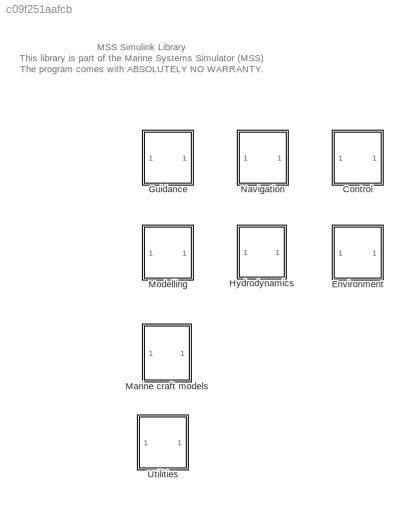
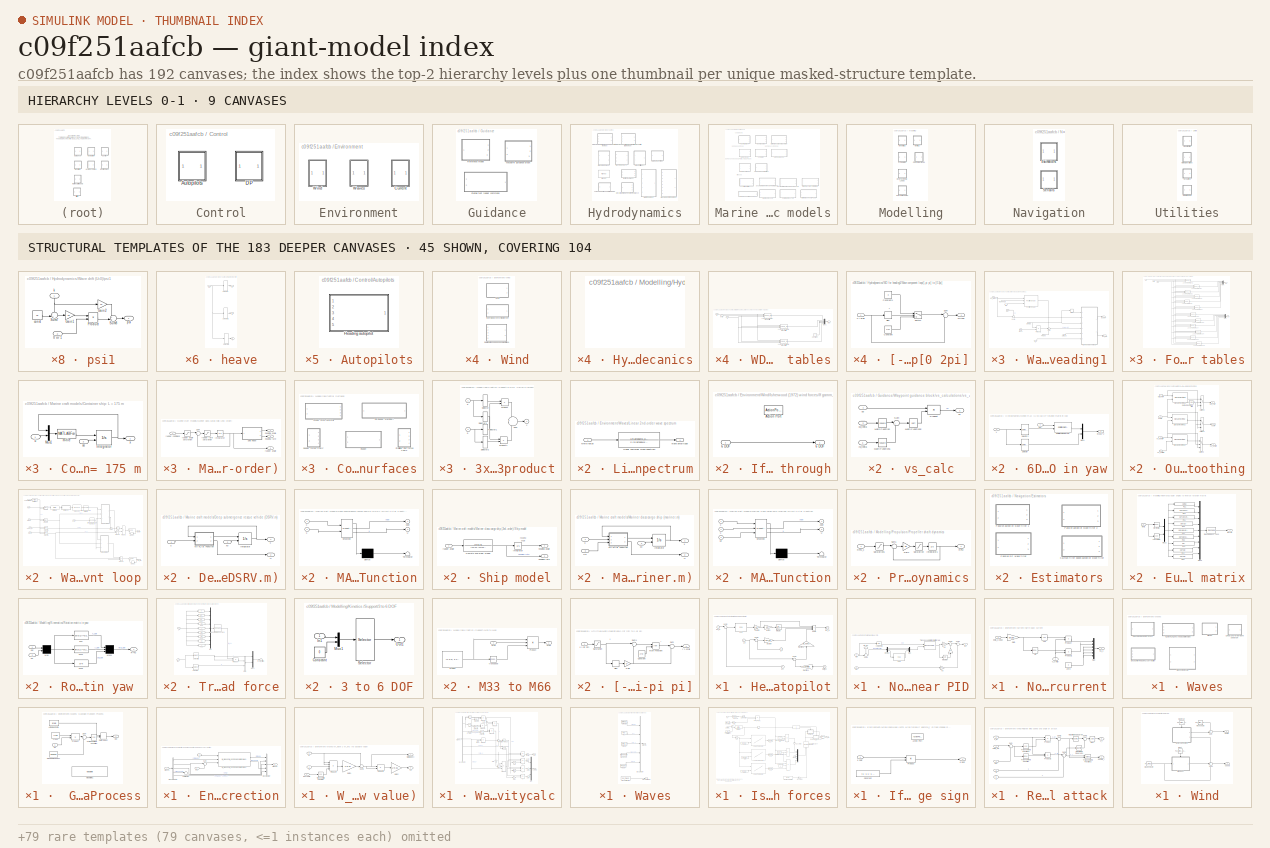
[diagram: thumbnail index - top-2 hierarchy levels (9 canvases) + 45 structural-template representatives of the remaining 183 canvases]
MODEL slx_c09f251aafcb
KIND library
CONFIG AbsTol = auto
CONFIG EnableMultiTasking = off
CONFIG FixedStep = auto
CONFIG MaxStep = auto
CONFIG MinStep = auto
CONFIG RelTol = 1e-3
CONFIG SampleTimeConstraint = Unconstrained
CONFIG SolverName = ode45
CONFIG StartTime = 0.0
CONFIG StopTime = 10.0
BLOCK [SubSystem] Control
  Ports = []
  RequestExecContextInheritance = off
BLOCK [SubSystem] Control/Autopilots
  Ports = []
  RequestExecContextInheritance = off
BLOCK [SubSystem] Control/Autopilots/Heading autopilot
  Ports = [5, 1]
  RequestExecContextInheritance = off
BLOCK [Gain] Control/Autopilots/Heading autopilot/D-action
  Gain = Kp*Td
  OutDataTypeStr = Inherit: Same as input
  ParamDataTypeStr = Inherit: Same as input
  SaturateOnIntegerOverflow = on
BLOCK [Gain] Control/Autopilots/Heading autopilot/D-action1
  Gain = T_nomoto
  OutDataTypeStr = Inherit: Same as input
  ParamDataTypeStr = Inherit: Same as input
  SaturateOnIntegerOverflow = on
BLOCK [Gain] Control/Autopilots/Heading autopilot/D-action2
  Gain = 1/K_nomoto
  NameLocation = left
  OutDataTypeStr = Inherit: Same as input
  ParamDataTypeStr = Inherit: Same as input
  SaturateOnIntegerOverflow = on
BLOCK [Gain] Control/Autopilots/Heading autopilot/I-action 
  Gain = 1/Ti
  OutDataTypeStr = Inherit: Same as input
  ParamDataTypeStr = Inherit: Same as input
  SaturateOnIntegerOverflow = on
BLOCK [TransferFcn] Control/Autopilots/Heading autopilot/Integral
  Denominator = [1 0]
BLOCK [Gain] Control/Autopilots/Heading autopilot/P-action
  Gain = Kp
  OutDataTypeStr = Inherit: Same as input
  ParamDataTypeStr = Inherit: Same as input
  SaturateOnIntegerOverflow = on
BLOCK [Sum] Control/Autopilots/Heading autopilot/Sum1
  IconShape = rectangular
  InputSameDT = on
  Inputs = ++++
  OutDataTypeStr = Inherit: Same as first input
  Ports = [4, 1]
  SaturateOnIntegerOverflow = on
BLOCK [Sum] Control/Autopilots/Heading autopilot/Sum2
  InputSameDT = on
  Inputs = |+-
  OutDataTypeStr = Inherit: Same as first input
  Ports = [2, 1]
  SaturateOnIntegerOverflow = on
BLOCK [Sum] Control/Autopilots/Heading autopilot/Sum3
  InputSameDT = on
  Inputs = |+-
  OutDataTypeStr = Inherit: Same as first input
  Ports = [2, 1]
  SaturateOnIntegerOverflow = on
BLOCK [Sum] Control/Autopilots/Heading autopilot/Sum4
  InputSameDT = on
  Inputs = |++
  OutDataTypeStr = Inherit: Same as first input
  Ports = [2, 1]
  SaturateOnIntegerOverflow = on
BLOCK [Inport] Control/Autopilots/Heading autopilot/d//dt(r_d)
  Port = 3
BLOCK [Inport] Control/Autopilots/Heading autopilot/psi
  NameLocation = top
  Port = 4
BLOCK [Inport] Control/Autopilots/Heading autopilot/psi_d
BLOCK [Inport] Control/Autopilots/Heading autopilot/r
  NameLocation = top
  Port = 5
BLOCK [Inport] Control/Autopilots/Heading autopilot/r_d
  Port = 2
BLOCK [Reference] Control/Autopilots/Heading autopilot/ssa   REF=$bdroot/Utilities/Math Operations/ssa
  Ports = [1, 1]
  SourceBlock = $bdroot/Utilities/Math Operations/ssa
  SourceType = SubSystem
BLOCK [Outport] Control/Autopilots/Heading autopilot/tau_N
  InitialOutput = 0
  VectorParamsAs1DForOutWhenUnconnected = off
BLOCK [SubSystem] Control/DP
  Ports = []
  RequestExecContextInheritance = off
BLOCK [SubSystem] Control/DP/Nonlinear PID
  Ports = [3, 1]
  RequestExecContextInheritance = off
BLOCK [Demux] Control/DP/Nonlinear PID/Demux
  Outputs = 3
  Ports = [1, 3]
BLOCK [Integrator] Control/DP/Nonlinear PID/Integrator
  Ports = [1, 1]
BLOCK [Gain] Control/DP/Nonlinear PID/Kd
  Gain = Kd
  Multiplication = Matrix(K*u)
  OutDataTypeStr = Inherit: Same as input
  ParamDataTypeStr = Inherit: Same as input
  SaturateOnIntegerOverflow = on
BLOCK [Gain] Control/DP/Nonlinear PID/Ki
  Gain = Ki
  Multiplication = Matrix(K*u)
  NameLocation = right
  OutDataTypeStr = Inherit: Same as input
  ParamDataTypeStr = Inherit: Same as input
  SaturateOnIntegerOverflow = on
BLOCK [Gain] Control/DP/Nonlinear PID/Kp
  Gain = Kp
  Multiplication = Matrix(K*u)
  OutDataTypeStr = Inherit: Same as input
  ParamDataTypeStr = Inherit: Same as input
  SaturateOnIntegerOverflow = on
BLOCK [Mux] Control/DP/Nonlinear PID/Mux
  DisplayOption = bar
  Inputs = 3
  Ports = [3, 1]
BLOCK [Sum] Control/DP/Nonlinear PID/Sum1
  InputSameDT = on
  Inputs = |+-
  NameLocation = top
  OutDataTypeStr = Inherit: Same as first input
  Ports = [2, 1]
  SaturateOnIntegerOverflow = on
BLOCK [Sum] Control/DP/Nonlinear PID/Sum2
  InputSameDT = on
  Inputs = +-|
  OutDataTypeStr = Inherit: Same as first input
  Ports = [2, 1]
  SaturateOnIntegerOverflow = on
BLOCK [Sum] Control/DP/Nonlinear PID/Sum3
  InputSameDT = on
  Inputs = |++
  NameLocation = top
  OutDataTypeStr = Inherit: Same as first input
  Ports = [2, 1]
  SaturateOnIntegerOverflow = on
BLOCK [Reference] Control/DP/Nonlinear PID/Transposed rotation matrix in yaw   REF=$bdroot/Modelling/Kinematics/Transposed rotation
 matrix in yaw
  Ports = [2, 1]
  SourceBlock = $bdroot/Modelling/Kinematics/Transposed rotation\n matrix in yaw
BLOCK [Inport] Control/DP/Nonlinear PID/eta
  Port = 2
BLOCK [Inport] Control/DP/Nonlinear PID/eta_ref
  NameLocation = right
BLOCK [Inport] Control/DP/Nonlinear PID/nu
  Port = 3
BLOCK [Reference] Control/DP/Nonlinear PID/ssa   REF=$bdroot/Utilities/Math Operations/ssa
  Ports = [1, 1]
  SourceBlock = $bdroot/Utilities/Math Operations/ssa
  SourceType = SubSystem
BLOCK [Outport] Control/DP/Nonlinear PID/tau
  InitialOutput = 0
  VectorParamsAs1DForOutWhenUnconnected = off
BLOCK [Fcn] Control/DP/Nonlinear PID/yaw angle
  Expr = u(3)
BLOCK [SubSystem] Environment
  Ports = []
  RequestExecContextInheritance = off
BLOCK [SubSystem] Environment/Current
  Ports = []
  RequestExecContextInheritance = off
BLOCK [SubSystem] Environment/Current/North-East current
  Ports = [2, 1]
  RequestExecContextInheritance = off
BLOCK [Gain] Environment/Current/North-East current/Gain
  Gain = pi/180
BLOCK [Mux] Environment/Current/North-East current/Mux
  DisplayOption = bar
  Inputs = 6
  Ports = [6, 1]
BLOCK [Product] Environment/Current/North-East current/Product
  Ports = [2, 1]
  RndMeth = Zero
BLOCK [Product] Environment/Current/North-East current/Product1
  Ports = [2, 1]
  RndMeth = Zero
BLOCK [Inport] Environment/Current/North-East current/V_c (m//s)
  NameLocation = left
  Port = 2
BLOCK [Inport] Environment/Current/North-East current/beta_c (deg)
BLOCK [Trigonometry] Environment/Current/North-East current/cos
  Operator = cos
  Ports = [1, 1]
BLOCK [Outport] Environment/Current/North-East current/nu_c
  VectorParamsAs1DForOutWhenUnconnected = off
BLOCK [Trigonometry] Environment/Current/North-East current/sin
  Ports = [1, 1]
BLOCK [Constant] Environment/Current/North-East current/zero
  Value = 0
BLOCK [SubSystem] Environment/Waves
  Ports = []
  RequestExecContextInheritance = off
BLOCK [SubSystem] Environment/Waves/ Gaussian Random Process
  Ports = [1, 1]
  RequestExecContextInheritance = off
BLOCK [Constant] Environment/Waves/ Gaussian Random Process/Amp Reg Comp. 
  Value = areg
  VectorParams1D = off
BLOCK [DotProduct] Environment/Waves/ Gaussian Random Process/Dot Product
  OutDataTypeStr = Inherit: Inherit via internal rule
BLOCK [Constant] Environment/Waves/ Gaussian Random Process/Freq1
  Value = freq
  VectorParams1D = off
BLOCK [Inport] Environment/Waves/ Gaussian Random Process/In1
BLOCK [Reference] Environment/Waves/ Gaussian Random Process/Model Info1  REF=simulink/Model-Wide
Utilities/Model Info
  Ports = []
  SourceBlock = simulink/Model-Wide\nUtilities/Model Info
  SourceProductBaseCode = SL
  SourceType = CMBlock
BLOCK [Outport] Environment/Waves/ Gaussian Random Process/Out
  VectorParamsAs1DForOutWhenUnconnected = off
BLOCK [Product] Environment/Waves/ Gaussian Random Process/Product
  OutDataTypeStr = Inherit: Same as first input
  Ports = [2, 1]
  SaturateOnIntegerOverflow = on
BLOCK [Constant] Environment/Waves/ Gaussian Random Process/Random Phases1
  Value = phases
  VectorParams1D = off
BLOCK [Sum] Environment/Waves/ Gaussian Random Process/Sum
  Inputs = |++
  Ports = [2, 1]
  SaturateOnIntegerOverflow = on
BLOCK [Trigonometry] Environment/Waves/ Gaussian Random Process/Trigonometric Function
  Operator = cos
  Ports = [1, 1]
BLOCK [SubSystem] Environment/Waves/Encounter frequency correction
  Ports = [3, 1]
  RequestExecContextInheritance = off
BLOCK [BusCreator] Environment/Waves/Encounter frequency correction/Bus Creator
  DisplayOption = bar
  InheritFromInputs = on
  Inputs = 5
  Ports = [5, 1]
BLOCK [BusSelector] Environment/Waves/Encounter frequency correction/Bus Selector
  OutputSignals = Omega,Psi,Zeta_a,Wavenum,Phase
  Ports = [1, 5]
BLOCK [Inport] Environment/Waves/Encounter frequency correction/Psi
  Port = 3
BLOCK [Sum] Environment/Waves/Encounter frequency correction/Sum
  Inputs = |+-
  Ports = [2, 1]
BLOCK [Terminator] Environment/Waves/Encounter frequency correction/Terminator
BLOCK [Inport] Environment/Waves/Encounter frequency correction/U
  Port = 2
BLOCK [Reference] Environment/Waves/Encounter frequency correction/W_wave 2 W_enc (no absolute value)  REF=$bdroot/Environment/Waves/W_wave 2 W_enc
(no absolute value)
  Ports = [3, 2]
  SourceBlock = $bdroot/Environment/Waves/W_wave 2 W_enc\n(no absolute value)
  SourceType = Wave frequency to Encounter Frequency
BLOCK [Inport] Environment/Waves/Encounter frequency correction/Waves
BLOCK [Outport] Environment/Waves/Encounter frequency correction/Waves 
  VectorParamsAs1DForOutWhenUnconnected = off
BLOCK [SubSystem] Environment/Waves/Linear 2nd-order wave spectrum
  Ports = [1, 1]
  RequestExecContextInheritance = off
BLOCK [TransferFcn] Environment/Waves/Linear 2nd-order wave spectrum/Linear 2nd-order wave spectrum
  Denominator = [1 2*lambda*w_0  w_0^2]
  Numerator = [2*lambda*w_0*sigma 0]
BLOCK [Outport] Environment/Waves/Linear 2nd-order wave spectrum/wave amplitude
  VectorParamsAs1DForOutWhenUnconnected = off
BLOCK [Inport] Environment/Waves/Linear 2nd-order wave spectrum/white noise
BLOCK [SubSystem] Environment/Waves/W_wave 2 W_enc (no absolute value)
  Ports = [3, 2]
  RequestExecContextInheritance = off
BLOCK [Inport] Environment/Waves/W_wave 2 W_enc (no absolute value)/Enc. Angle 
  Port = 3
BLOCK [Gain] Environment/Waves/W_wave 2 W_enc (no absolute value)/Gain1
  Gain = 1/9.81
BLOCK [Gain] Environment/Waves/W_wave 2 W_enc (no absolute value)/Gain2
  Gain = 1/9.81
BLOCK [Outport] Environment/Waves/W_wave 2 W_enc (no absolute value)/Ke
  Port = 2
  VectorParamsAs1DForOutWhenUnconnected = off
BLOCK [Product] Environment/Waves/W_wave 2 W_enc (no absolute value)/Product4
  Inputs = 4
  OutDataTypeStr = Inherit: Same as first input
  Ports = [4, 1]
  SaturateOnIntegerOverflow = on
BLOCK [Product] Environment/Waves/W_wave 2 W_enc (no absolute value)/Product5
  OutDataTypeStr = Inherit: Same as first input
  Ports = [2, 1]
  SaturateOnIntegerOverflow = on
BLOCK [Sum] Environment/Waves/W_wave 2 W_enc (no absolute value)/Sum3
  Inputs = +-|
  Ports = [2, 1]
  SaturateOnIntegerOverflow = on
BLOCK [Trigonometry] Environment/Waves/W_wave 2 W_enc (no absolute value)/Trigonometric Function
  Operator = cos
  Ports = [1, 1]
BLOCK [Inport] Environment/Waves/W_wave 2 W_enc (no absolute value)/U
BLOCK [Inport] Environment/Waves/W_wave 2 W_enc (no absolute value)/W 
  NameLocation = top
  Port = 2
BLOCK [Outport] Environment/Waves/W_wave 2 W_enc (no absolute value)/We (rad//sec)
  VectorParamsAs1DForOutWhenUnconnected = off
BLOCK [SubSystem] Environment/Waves/Wave velocitycalc
  Ports = [2, 2]
  RequestExecContextInheritance = off
BLOCK [BusSelector] Environment/Waves/Wave velocitycalc/Bus Selector
  OutputSignals = Psi,Wavenum,Omega,Phase,Zeta_a
  Ports = [1, 5]
BLOCK [Clock] Environment/Waves/Wave velocitycalc/Clock
BLOCK [Gain] Environment/Waves/Wave velocitycalc/Gain
  Gain = -1
  NameLocation = left
  OutDataTypeStr = Inherit: Same as input
  ParamDataTypeStr = Inherit: Same as input
  SaturateOnIntegerOverflow = on
BLOCK [Gain] Environment/Waves/Wave velocitycalc/Gain1
  Gain = -1
  OutDataTypeStr = Inherit: Same as input
  ParamDataTypeStr = Inherit: Same as input
  SaturateOnIntegerOverflow = on
BLOCK [Mux] Environment/Waves/Wave velocitycalc/Mux
  DisplayOption = bar
  Inputs = 3
  Ports = [3, 1]
BLOCK [Product] Environment/Waves/Wave velocitycalc/Product1
  Inputs = **
  OutDataTypeStr = Inherit: Same as first input
  Ports = [2, 1]
  SaturateOnIntegerOverflow = on
BLOCK [Product] Environment/Waves/Wave velocitycalc/Product2
  Inputs = **
  OutDataTypeStr = Inherit: Same as first input
  Ports = [2, 1]
  SaturateOnIntegerOverflow = on
BLOCK [Product] Environment/Waves/Wave velocitycalc/Product3
  Inputs = **
  OutDataTypeStr = Inherit: Same as first input
  Ports = [2, 1]
  SaturateOnIntegerOverflow = on
BLOCK [Product] Environment/Waves/Wave velocitycalc/Product4
  Inputs = 3
  OutDataTypeStr = Inherit: Same as first input
  Ports = [3, 1]
  SaturateOnIntegerOverflow = on
BLOCK [Product] Environment/Waves/Wave velocitycalc/Product6
  Inputs = **
  OutDataTypeStr = Inherit: Same as first input
  Ports = [2, 1]
  SaturateOnIntegerOverflow = on
BLOCK [Product] Environment/Waves/Wave velocitycalc/Product7
  Inputs = **
  OutDataTypeStr = Inherit: Same as first input
  Ports = [2, 1]
  SaturateOnIntegerOverflow = on
BLOCK [Selector] Environment/Waves/Wave velocitycalc/Selector
  IndexOptions = Index vector (dialog)
  Indices = 1
  InputPortWidth = 3
  OutputSizes = 1
  Ports = [1, 1]
BLOCK [Selector] Environment/Waves/Wave velocitycalc/Selector1
  IndexOptions = Index vector (dialog)
  Indices = 2
  InputPortWidth = 3
  OutputSizes = 1
  Ports = [1, 1]
BLOCK [Selector] Environment/Waves/Wave velocitycalc/Selector2
  IndexOptions = Index vector (dialog)
  Indices = 3
  InputPortWidth = 3
  OutputSizes = 1
  Ports = [1, 1]
BLOCK [Sum] Environment/Waves/Wave velocitycalc/Sum
  Inputs = -++
  Ports = [3, 1]
  SaturateOnIntegerOverflow = on
BLOCK [Sum] Environment/Waves/Wave velocitycalc/Sum1
  Inputs = 1
  Ports = [1, 1]
  SaturateOnIntegerOverflow = on
BLOCK [Sum] Environment/Waves/Wave velocitycalc/Sum2
  Inputs = 1
  Ports = [1, 1]
  SaturateOnIntegerOverflow = on
BLOCK [Sum] Environment/Waves/Wave velocitycalc/Sum3
  Inputs = 1
  Ports = [1, 1]
  SaturateOnIntegerOverflow = on
BLOCK [Sum] Environment/Waves/Wave velocitycalc/Sum4
  Inputs = 1
  Ports = [1, 1]
  SaturateOnIntegerOverflow = on
BLOCK [Sum] Environment/Waves/Wave velocitycalc/Sum5
  Ports = [2, 1]
  SaturateOnIntegerOverflow = on
BLOCK [Outport] Environment/Waves/Wave velocitycalc/V_w NED
  Port = 2
  VectorParamsAs1DForOutWhenUnconnected = off
BLOCK [Inport] Environment/Waves/Wave velocitycalc/Waves
  Port = 2
BLOCK [Outport] Environment/Waves/Wave velocitycalc/Zeta
  VectorParamsAs1DForOutWhenUnconnected = off
BLOCK [Inport] Environment/Waves/Wave velocitycalc/[x y z] NED
BLOCK [Trigonometry] Environment/Waves/Wave velocitycalc/cos
  Operator = cos
  Ports = [1, 1]
BLOCK [Trigonometry] Environment/Waves/Wave velocitycalc/cos 
  Operator = cos
  Ports = [1, 1]
BLOCK [Trigonometry] Environment/Waves/Wave velocitycalc/cos(wt-kx+phase)
  Operator = cos
  Ports = [1, 1]
BLOCK [Math] Environment/Waves/Wave velocitycalc/e^(kz)
  Ports = [1, 1]
  SignedPower = on
BLOCK [Trigonometry] Environment/Waves/Wave velocitycalc/sin
  Ports = [1, 1]
BLOCK [Trigonometry] Environment/Waves/Wave velocitycalc/sin 
  Ports = [1, 1]
BLOCK [Trigonometry] Environment/Waves/Wave velocitycalc/sin(wt-kx+phase)
  Ports = [1, 1]
BLOCK [Product] Environment/Waves/Wave velocitycalc/u
  Inputs = ***
  OutDataTypeStr = Inherit: Same as first input
  Ports = [3, 1]
  SaturateOnIntegerOverflow = on
BLOCK [Product] Environment/Waves/Wave velocitycalc/v
  Inputs = ***
  OutDataTypeStr = Inherit: Same as first input
  Ports = [3, 1]
  SaturateOnIntegerOverflow = on
BLOCK [Product] Environment/Waves/Wave velocitycalc/w
  Inputs = **
  OutDataTypeStr = Inherit: Same as first input
  Ports = [2, 1]
  SaturateOnIntegerOverflow = on
BLOCK [Product] Environment/Waves/Wave velocitycalc/zeta
  Inputs = **
  OutDataTypeStr = Inherit: Same as first input
  Ports = [2, 1]
  SaturateOnIntegerOverflow = on
BLOCK [SubSystem] Environment/Waves/Waves
  Ports = [0, 2]
  RequestExecContextInheritance = off
BLOCK [BusCreator] Environment/Waves/Waves/Bus Creator
  DisplayOption = bar
  InheritFromInputs = on
  Inputs = 5
  Ports = [5, 1]
BLOCK [Constant] Environment/Waves/Waves/Omega
  Value = Omega
BLOCK [Constant] Environment/Waves/Waves/Phase
  Value = Phase
BLOCK [Constant] Environment/Waves/Waves/Psi
  Value = Psi
BLOCK [Constant] Environment/Waves/Waves/Wavenum
  Value = Wavenum
BLOCK [Outport] Environment/Waves/Waves/Waves
  VectorParamsAs1DForOutWhenUnconnected = off
BLOCK [Constant] Environment/Waves/Waves/Zeta_a
  Value = Zeta_a
BLOCK [Outport] Environment/Waves/Waves/wave direction
  Port = 2
  VectorParamsAs1DForOutWhenUnconnected = off
BLOCK [Constant] Environment/Waves/Waves/wave direction 
  Value = psi_mean
BLOCK [SubSystem] Environment/Wind
  Ports = []
  RequestExecContextInheritance = off
BLOCK [SubSystem] Environment/Wind/Isherwood (1972) wind forces
  Ports = [2, 1]
  RequestExecContextInheritance = off
BLOCK [Product] Environment/Wind/Isherwood (1972) wind forces/0.5*rho_a*V_r*V_r
  OutDataTypeStr = Inherit: Same as first input
  Ports = [2, 1]
  SaturateOnIntegerOverflow = on
BLOCK [Constant] Environment/Wind/Isherwood (1972) wind forces/A0-A6
  Value = [1 2 3 4 5 6 7]
BLOCK [Abs] Environment/Wind/Isherwood (1972) wind forces/Abs
BLOCK [Constant] Environment/Wind/Isherwood (1972) wind forces/B0-B6
  Value = [1 2 3 4 5 6 7]
BLOCK [Constant] Environment/Wind/Isherwood (1972) wind forces/C0-C5
  Value = [1 2 3 4 5 6]
BLOCK [Fcn] Environment/Wind/Isherwood (1972) wind forces/Fcn
  Expr = u(1) + u(2)*2*A_L/L^2 + u(3)*2*A_T/B^2 + u(4)*(L/B) + u(5)*(S/L) + u(6)*(C/L) + u(7)*M
BLOCK [Fcn] Environment/Wind/Isherwood (1972) wind forces/Fcn1
  Expr = -(u(1) + u(2)*2*A_L/L^2 + u(3)*2*A_T/B^2 + u(4)*(L/B) + u(5)*(S/L) + u(6)*(C/L) + u(7)*A_SS/A_L)
BLOCK [Fcn] Environment/Wind/Isherwood (1972) wind forces/Fcn2
  Expr = -(u(1) + u(2)*2*A_L/L^2 + u(3)*2*A_T/B^2 + u(4)*(L/B) + u(5)*(S/L) + u(6)*(C/L))
BLOCK [Gain] Environment/Wind/Isherwood (1972) wind forces/Gain
  Gain = 0.5
  OutDataTypeStr = Inherit: Same as input
  ParamDataTypeStr = Inherit: Same as input
  SaturateOnIntegerOverflow = on
BLOCK [Ground] Environment/Wind/Isherwood (1972) wind forces/Ground
BLOCK [If] Environment/Wind/Isherwood (1972) wind forces/If
  IfExpression = u1 < 0
  Ports = [1, 2]
BLOCK [SubSystem] Environment/Wind/Isherwood (1972) wind forces/If gamm_r > 0 then feedthrough
  Ports = [1, 1, 0, 0, 0, 0, 0, 1]
  RequestExecContextInheritance = off
  TreatAsAtomicUnit = on
BLOCK [Inport] Environment/Wind/Isherwood (1972) wind forces/If gamm_r > 0 then feedthrough/6 DOF
BLOCK [Outport] Environment/Wind/Isherwood (1972) wind forces/If gamm_r > 0 then feedthrough/6 DOF  
  VectorParamsAs1DForOutWhenUnconnected = off
BLOCK [ActionPort] Environment/Wind/Isherwood (1972) wind forces/If gamm_r > 0 then feedthrough/Action Port
BLOCK [SubSystem] Environment/Wind/Isherwood (1972) wind forces/If gamma_r <0 then change sign
  Ports = [1, 1, 0, 0, 0, 0, 0, 1]
  RequestExecContextInheritance = off
  TreatAsAtomicUnit = on
BLOCK [Inport] Environment/Wind/Isherwood (1972) wind forces/If gamma_r <0 then change sign/6 DOF
BLOCK [Outport] Environment/Wind/Isherwood (1972) wind forces/If gamma_r <0 then change sign/6 DOF  
  VectorParamsAs1DForOutWhenUnconnected = off
BLOCK [ActionPort] Environment/Wind/Isherwood (1972) wind forces/If gamma_r <0 then change sign/Action Port
BLOCK [Constant] Environment/Wind/Isherwood (1972) wind forces/If gamma_r <0 then change sign/Constant
  Value = [1 -1 1 -1 1 -1]
BLOCK [Product] Environment/Wind/Isherwood (1972) wind forces/If gamma_r <0 then change sign/Product
  OutDataTypeStr = Inherit: Same as first input
  Ports = [2, 1]
  SaturateOnIntegerOverflow = on
BLOCK [Lookup2D] Environment/Wind/Isherwood (1972) wind forces/Look-Up Table CN-data
  ColumnIndex = [1:6]
  InputSameDT = off
  OutDataTypeStr = double
  RowIndex = gamma_r_iserwood
  Table = CN_data
BLOCK [Lookup2D] Environment/Wind/Isherwood (1972) wind forces/Look-Up Table CX-data
  ColumnIndex = [1:7]
  InputSameDT = off
  OutDataTypeStr = double
  RowIndex = gamma_r_iserwood
  Table = CX_data
BLOCK [Lookup2D] Environment/Wind/Isherwood (1972) wind forces/Look-Up Table CY-data
  ColumnIndex = [1:7]
  InputSameDT = off
  OutDataTypeStr = double
  RowIndex = gamma_r_iserwood
  Table = CY_data
BLOCK [Math] Environment/Wind/Isherwood (1972) wind forces/Math Function
  Operator = square
  Ports = [1, 1]
  SignedPower = on
BLOCK [Merge] Environment/Wind/Isherwood (1972) wind forces/Merge
  Ports = [2, 1]
BLOCK [Mux] Environment/Wind/Isherwood (1972) wind forces/Mux
  DisplayOption = bar
  Inputs = 6
  Ports = [6, 1]
BLOCK [Product] Environment/Wind/Isherwood (1972) wind forces/N
  Inputs = 4
  OutDataTypeStr = Inherit: Same as first input
  Ports = [4, 1]
  SaturateOnIntegerOverflow = on
BLOCK [Signum] Environment/Wind/Isherwood (1972) wind forces/Sign
BLOCK [Sum] Environment/Wind/Isherwood (1972) wind forces/Sum
  Inputs = |++
  Ports = [2, 1]
  SaturateOnIntegerOverflow = on
BLOCK [Reference] Environment/Wind/Isherwood (1972) wind forces/Transformation of gene ralized force  REF=$bdroot/Modelling/Kinematics/Transformation of
generalized force
  NameLocation = right
  Ports = [2, 1]
  SourceBlock = $bdroot/Modelling/Kinematics/Transformation of\ngeneralized force
  SourceType = Transformation of generalized force
BLOCK [Inport] Environment/Wind/Isherwood (1972) wind forces/V_r
  Port = 2
BLOCK [Product] Environment/Wind/Isherwood (1972) wind forces/X
  Inputs = 3
  OutDataTypeStr = Inherit: Same as first input
  Ports = [3, 1]
  SaturateOnIntegerOverflow = on
BLOCK [Product] Environment/Wind/Isherwood (1972) wind forces/Y
  Inputs = 3
  OutDataTypeStr = Inherit: Same as first input
  Ports = [3, 1]
  SaturateOnIntegerOverflow = on
BLOCK [Reference] Environment/Wind/Isherwood (1972) wind forces/[-inf inf] to [-pi pi]  REF=$bdroot/Utilities/Math Operations/[-inf inf] to [-pi pi]
  Ports = [1, 1]
  SourceBlock = $bdroot/Utilities/Math Operations/[-inf inf] to [-pi pi]
  SourceType = [-inf inf] to [-pi pi]
BLOCK [Constant] Environment/Wind/Isherwood (1972) wind forces/density of air
  Value = rho_a
BLOCK [Inport] Environment/Wind/Isherwood (1972) wind forces/gamma_r
BLOCK [Constant] Environment/Wind/Isherwood (1972) wind forces/lateral projected area
  Value = A_L
BLOCK [Constant] Environment/Wind/Isherwood (1972) wind forces/length over all
  Value = L
BLOCK [Gain] Environment/Wind/Isherwood (1972) wind forces/m//s 2 knots
  Gain = 1.9438
  OutDataTypeStr = Inherit: Same as input
  ParamDataTypeStr = Inherit: Same as input
  SaturateOnIntegerOverflow = on
BLOCK [Gain] Environment/Wind/Isherwood (1972) wind forces/sign correction
  Gain = -1
  NameLocation = left
  OutDataTypeStr = Inherit: Same as input
  ParamDataTypeStr = Inherit: Same as input
  SaturateOnIntegerOverflow = on
BLOCK [Gain] Environment/Wind/Isherwood (1972) wind forces/sign correction 
  Gain = -1
  OutDataTypeStr = Inherit: Same as input
  ParamDataTypeStr = Inherit: Same as input
  SaturateOnIntegerOverflow = on
BLOCK [Outport] Environment/Wind/Isherwood (1972) wind forces/tau_wind
  VectorParamsAs1DForOutWhenUnconnected = off
BLOCK [Constant] Environment/Wind/Isherwood (1972) wind forces/transverse projected area
  Value = A_T
BLOCK [Constant] Environment/Wind/Isherwood (1972) wind forces/wind attack point w.r.t. CO
  Value = [0  0 -4]
BLOCK [Constant] Environment/Wind/Isherwood (1972) wind forces/wind relative bow correction
  Value = pi
BLOCK [SubSystem] Environment/Wind/Relative wind speed and angle of attack
  Ports = [5, 2]
  RequestExecContextInheritance = off
BLOCK [Math] Environment/Wind/Relative wind speed and angle of attack/Magnitude Squared
  Operator = magnitude^2
  Ports = [1, 1]
BLOCK [Math] Environment/Wind/Relative wind speed and angle of attack/Magnitude Squared1
  Operator = magnitude^2
  Ports = [1, 1]
BLOCK [Product] Environment/Wind/Relative wind speed and angle of attack/Product
  Ports = [2, 1]
BLOCK [Product] Environment/Wind/Relative wind speed and angle of attack/Product1
  Ports = [2, 1]
BLOCK [Sqrt] Environment/Wind/Relative wind speed and angle of attack/Sqrt
BLOCK [Sum] Environment/Wind/Relative wind speed and angle of attack/Sum
  Inputs = |+-
  Ports = [2, 1]
BLOCK [Sum] Environment/Wind/Relative wind speed and angle of attack/Sum1
  Inputs = |-+
  Ports = [2, 1]
BLOCK [Sum] Environment/Wind/Relative wind speed and angle of attack/Sum2
  Inputs = |-+
  Ports = [2, 1]
BLOCK [Sum] Environment/Wind/Relative wind speed and angle of attack/Sum3
  Inputs = |++
  Ports = [2, 1]
BLOCK [Trigonometry] Environment/Wind/Relative wind speed and angle of attack/Trigonometric Function
  Ports = [1, 1]
BLOCK [Trigonometry] Environment/Wind/Relative wind speed and angle of attack/Trigonometric Function1
  Operator = cos
  Ports = [1, 1]
BLOCK [Trigonometry] Environment/Wind/Relative wind speed and angle of attack/Trigonometric Function2
  Operator = atan2
  Ports = [2, 1]
BLOCK [Outport] Environment/Wind/Relative wind speed and angle of attack/V_r
  Port = 2
BLOCK [Inport] Environment/Wind/Relative wind speed and angle of attack/V_w
  Port = 2
BLOCK [Inport] Environment/Wind/Relative wind speed and angle of attack/beta_Vw
BLOCK [Outport] Environment/Wind/Relative wind speed and angle of attack/gamma_r
BLOCK [Inport] Environment/Wind/Relative wind speed and angle of attack/psi
  Port = 3
BLOCK [Inport] Environment/Wind/Relative wind speed and angle of attack/u
  Port = 4
BLOCK [Inport] Environment/Wind/Relative wind speed and angle of attack/v
  Port = 5
BLOCK [SubSystem] Environment/Wind/Wind
  Ports = [0, 2]
  RequestExecContextInheritance = off
BLOCK [Constant] Environment/Wind/Wind/Gust
  NameLocation = left
  Value = Par_Wind_gust
BLOCK [Constant] Environment/Wind/Wind/Mean angle
  Value = Par_Wind_angle
BLOCK [Constant] Environment/Wind/Wind/Mean velocity
  Value = Par_Wind_V
BLOCK [SubSystem] Environment/Wind/Wind/Slowly-varying wind
  Ports = [0, 2, 1]
  RequestExecContextInheritance = off
BLOCK [Reference] Environment/Wind/Wind/Slowly-varying wind/Band-Limited White Noise  REF=simulink/Sources/Band-Limited
White Noise
  Ports = [0, 1]
  SourceBlock = simulink/Sources/Band-Limited\nWhite Noise
  SourceProductBaseCode = SL
  SourceType = Band-Limited White Noise.
BLOCK [Reference] Environment/Wind/Wind/Slowly-varying wind/Band-Limited White Noise   REF=simulink/Sources/Band-Limited
White Noise
  Ports = [0, 1]
  SourceBlock = simulink/Sources/Band-Limited\nWhite Noise
  SourceProductBaseCode = SL
  SourceType = Band-Limited White Noise.
BLOCK [EnablePort] Environment/Wind/Wind/Slowly-varying wind/Enable
  Ports = []
BLOCK [Gain] Environment/Wind/Wind/Slowly-varying wind/Gain
  Gain = 1/Par_Wind_speed_T
  OutDataTypeStr = Inherit: Same as input
  ParamDataTypeStr = Inherit: Same as input
  SaturateOnIntegerOverflow = on
BLOCK [Gain] Environment/Wind/Wind/Slowly-varying wind/Gain 
  Gain = 1/Par_Wind_angle_T
  OutDataTypeStr = Inherit: Same as input
  ParamDataTypeStr = Inherit: Same as input
  SaturateOnIntegerOverflow = on
BLOCK [Integrator] Environment/Wind/Wind/Slowly-varying wind/Integrator
  LimitOutput = on
  LowerSaturationLimit = -Par_Wind_speed_rand_max
  Ports = [1, 1]
  UpperSaturationLimit = Par_Wind_speed_rand_max
BLOCK [Integrator] Environment/Wind/Wind/Slowly-varying wind/Integrator 
  LimitOutput = on
  LowerSaturationLimit = -Par_Wind_angle_rand_max
  Ports = [1, 1]
  UpperSaturationLimit = Par_Wind_angle_rand_max
BLOCK [Sum] Environment/Wind/Wind/Slowly-varying wind/Sum
  InputSameDT = on
  Inputs = |+-
  NameLocation = top
  OutDataTypeStr = Inherit: Same as first input
  Ports = [2, 1]
  SaturateOnIntegerOverflow = on
BLOCK [Sum] Environment/Wind/Wind/Slowly-varying wind/Sum       
  InputSameDT = on
  Inputs = |+-
  NameLocation = top
  OutDataTypeStr = Inherit: Same as first input
  Ports = [2, 1]
  SaturateOnIntegerOverflow = on
BLOCK [Outport] Environment/Wind/Wind/Slowly-varying wind/angle
  InitialOutput = 0
  VectorParamsAs1DForOutWhenUnconnected = off
BLOCK [Outport] Environment/Wind/Wind/Slowly-varying wind/speed
  InitialOutput = 0
  Port = 2
  VectorParamsAs1DForOutWhenUnconnected = off
BLOCK [Constant] Environment/Wind/Wind/Slowlyvar
  NameLocation = left
  Value = Par_Wind_slowlyvar
BLOCK [Sum] Environment/Wind/Wind/Sum
  Inputs = ++|
  Ports = [2, 1]
  SaturateOnIntegerOverflow = on
BLOCK [Sum] Environment/Wind/Wind/Sum1
  Inputs = +++
  Ports = [3, 1]
  SaturateOnIntegerOverflow = on
BLOCK [SubSystem] Environment/Wind/Wind/Wind gust
  Ports = [1, 1, 1]
  RequestExecContextInheritance = off
BLOCK [Clock] Environment/Wind/Wind/Wind gust/Clock
BLOCK [DotProduct] Environment/Wind/Wind/Wind gust/Dot Product
  OutDataTypeStr = Inherit: Inherit via internal rule
BLOCK [EnablePort] Environment/Wind/Wind/Wind gust/Enable
  Ports = []
BLOCK [Constant] Environment/Wind/Wind/Wind gust/Frequencies
  Value = Par_Wind_minfreq:(Par_Wind_maxfreq - Par_Wind_minfreq)/(Par_Wind_nfreq-1):Par_Wind_maxfreq
BLOCK [Gain] Environment/Wind/Wind/Wind gust/Gain
  Gain = 2
  OutDataTypeStr = Inherit: Same as input
  ParamDataTypeStr = Inherit: Same as input
  SaturateOnIntegerOverflow = on
BLOCK [Gain] Environment/Wind/Wind/Wind gust/Gain1
  Gain = 2*pi
  OutDataTypeStr = Inherit: Same as input
  ParamDataTypeStr = Inherit: Same as input
  SaturateOnIntegerOverflow = on
BLOCK [Outport] Environment/Wind/Wind/Wind gust/Gust
  InitialOutput = 0
  VectorParamsAs1DForOutWhenUnconnected = off
BLOCK [SubSystem] Environment/Wind/Wind/Wind gust/Harris spectrum
  Ports = [2, 1]
  RequestExecContextInheritance = off
BLOCK [Constant] Environment/Wind/Wind/Wind gust/Harris spectrum/Constant
  Value = 4
BLOCK [Constant] Environment/Wind/Wind/Wind gust/Harris spectrum/Constant1
  Value = 5/6
BLOCK [Fcn] Environment/Wind/Wind/Wind gust/Harris spectrum/Fcn
  Expr = u^(8/3)
BLOCK [Fcn] Environment/Wind/Wind/Wind gust/Harris spectrum/Fcn1
  Expr = u^2
BLOCK [Inport] Environment/Wind/Wind/Wind gust/Harris spectrum/Freqs
BLOCK [Gain] Environment/Wind/Wind/Wind gust/Harris spectrum/Gain
  Gain = 2
  OutDataTypeStr = Inherit: Same as input
  ParamDataTypeStr = Inherit: Same as input
  SaturateOnIntegerOverflow = on
BLOCK [Constant] Environment/Wind/Wind/Wind gust/Harris spectrum/L
  Value = Par_Wind_L
BLOCK [Math] Environment/Wind/Wind/Wind gust/Harris spectrum/Math Function
  NameLocation = top
  Operator = magnitude^2
  Ports = [1, 1]
  SignedPower = on
BLOCK [Math] Environment/Wind/Wind/Wind gust/Harris spectrum/Math Function1
  Operator = magnitude^2
  Ports = [1, 1]
  SignedPower = on
BLOCK [Math] Environment/Wind/Wind/Wind gust/Harris spectrum/Math Function2
  Operator = pow
  Ports = [2, 1]
  SignedPower = on
BLOCK [Product] Environment/Wind/Wind/Wind gust/Harris spectrum/Product
  Inputs = 4
  OutDataTypeStr = Inherit: Same as first input
  Ports = [4, 1]
  SaturateOnIntegerOverflow = on
BLOCK [Product] Environment/Wind/Wind/Wind gust/Harris spectrum/Product1
  OutDataTypeStr = Inherit: Same as first input
  Ports = [2, 1]
  SaturateOnIntegerOverflow = on
BLOCK [Product] Environment/Wind/Wind/Wind gust/Harris spectrum/Product2
  Inputs = /*
  OutDataTypeStr = Inherit: Same as first input
  Ports = [2, 1]
  SaturateOnIntegerOverflow = on
BLOCK [Outport] Environment/Wind/Wind/Wind gust/Harris spectrum/S
  VectorParamsAs1DForOutWhenUnconnected = off
BLOCK [Sum] Environment/Wind/Wind/Wind gust/Harris spectrum/Sum
  Inputs = ++|
  Ports = [2, 1]
  SaturateOnIntegerOverflow = on
BLOCK [Constant] Environment/Wind/Wind/Wind gust/Harris spectrum/kappa_H
  Value = Par_Wind_kappa_H
BLOCK [Inport] Environment/Wind/Wind/Wind gust/Harris spectrum/u10
  Port = 2
BLOCK [Math] Environment/Wind/Wind/Wind gust/Math Function1
  Operator = sqrt
  Ports = [1, 1]
  SignedPower = on
BLOCK [MultiPortSwitch] Environment/Wind/Wind/Wind gust/Multiport Switch
  InputSameDT = off
  Inputs = 2
  Ports = [3, 1]
  RndMeth = Nearest
BLOCK [SubSystem] Environment/Wind/Wind/Wind gust/NORSOK spectrum
  Ports = [2, 1]
  RequestExecContextInheritance = off
BLOCK [Constant] Environment/Wind/Wind/Wind gust/NORSOK spectrum/5//(3n) (NORSOK parameter)
  Value = 5/(3*0.468)
BLOCK [Constant] Environment/Wind/Wind/Wind gust/NORSOK spectrum/Constant2
BLOCK [Fcn] Environment/Wind/Wind/Wind gust/NORSOK spectrum/Fcn2
  Expr = u^(2/3)
  NameLocation = top
BLOCK [Fcn] Environment/Wind/Wind/Wind gust/NORSOK spectrum/Fcn3
  Expr = (u+1E-4)^(-3/4)
BLOCK [Fcn] Environment/Wind/Wind/Wind gust/NORSOK spectrum/Fcn4
  Expr = u^0.45
  NameLocation = top
BLOCK [Inport] Environment/Wind/Wind/Wind gust/NORSOK spectrum/Freqs
BLOCK [Gain] Environment/Wind/Wind/Wind gust/NORSOK spectrum/Gain1
  Gain = 172
  OutDataTypeStr = Inherit: Same as input
  ParamDataTypeStr = Inherit: Same as input
  SaturateOnIntegerOverflow = on
BLOCK [Gain] Environment/Wind/Wind/Wind gust/NORSOK spectrum/Gain2
  Gain = 1/10
  OutDataTypeStr = Inherit: Same as input
  ParamDataTypeStr = Inherit: Same as input
  SaturateOnIntegerOverflow = on
BLOCK [Gain] Environment/Wind/Wind/Wind gust/NORSOK spectrum/Gain3
  Gain = 1/10
  OutDataTypeStr = Inherit: Same as input
  ParamDataTypeStr = Inherit: Same as input
  SaturateOnIntegerOverflow = on
BLOCK [Gain] Environment/Wind/Wind/Wind gust/NORSOK spectrum/Gain4
  Gain = 320
  OutDataTypeStr = Inherit: Same as input
  ParamDataTypeStr = Inherit: Same as input
  SaturateOnIntegerOverflow = on
BLOCK [Math] Environment/Wind/Wind/Wind gust/NORSOK spectrum/Math Function3
  NameLocation = top
  Operator = magnitude^2
  Ports = [1, 1]
  SignedPower = on
BLOCK [Math] Environment/Wind/Wind/Wind gust/NORSOK spectrum/Math Function4
  Operator = pow
  Ports = [2, 1]
  SignedPower = on
BLOCK [Math] Environment/Wind/Wind/Wind gust/NORSOK spectrum/Math Function5
  Operator = pow
  Ports = [2, 1]
  SignedPower = on
BLOCK [Product] Environment/Wind/Wind/Wind gust/NORSOK spectrum/Product3
  Inputs = 3
  OutDataTypeStr = Inherit: Same as first input
  Ports = [3, 1]
  SaturateOnIntegerOverflow = on
BLOCK [Product] Environment/Wind/Wind/Wind gust/NORSOK spectrum/Product4
  Inputs = /**
  OutDataTypeStr = Inherit: Same as first input
  Ports = [3, 1]
  SaturateOnIntegerOverflow = on
BLOCK [Outport] Environment/Wind/Wind/Wind gust/NORSOK spectrum/S
  VectorParamsAs1DForOutWhenUnconnected = off
BLOCK [Sum] Environment/Wind/Wind/Wind gust/NORSOK spectrum/Sum1
  Inputs = ++|
  Ports = [2, 1]
  SaturateOnIntegerOverflow = on
BLOCK [Constant] Environment/Wind/Wind/Wind gust/NORSOK spectrum/n (NORSOK parameter)
  Value = 0.468
BLOCK [Inport] Environment/Wind/Wind/Wind gust/NORSOK spectrum/u10
  Port = 2
BLOCK [Constant] Environment/Wind/Wind/Wind gust/NORSOK spectrum/z (height)
  Value = Par_Wind_z
BLOCK [SubSystem] Environment/Wind/Wind/Wind gust/Phase generator
  Ports = [0, 1, 0, 1]
  RequestExecContextInheritance = off
BLOCK [Outport] Environment/Wind/Wind/Wind gust/Phase generator/Phase
  VectorParamsAs1DForOutWhenUnconnected = off
BLOCK [RandomNumber] Environment/Wind/Wind/Wind gust/Phase generator/Random Number
  Seed = Par_Wind_phase_seed*[1:Par_Wind_nfreq]
  Variance = 3
BLOCK [MATLABFcn] Environment/Wind/Wind/Wind gust/Phase generator/SSA 
  MATLABFcn = ssa
  Ports = [1, 1]
BLOCK [TriggerPort] Environment/Wind/Wind/Wind gust/Phase generator/Trigger
  Ports = []
  StatesWhenEnabling = held
  VariantControl = (inherit)
BLOCK [Product] Environment/Wind/Wind/Wind gust/Product1
  OutDataTypeStr = Inherit: Same as first input
  Ports = [2, 1]
  SaturateOnIntegerOverflow = on
BLOCK [Product] Environment/Wind/Wind/Wind gust/Product2
  OutDataTypeStr = Inherit: Same as first input
  Ports = [2, 1]
  SaturateOnIntegerOverflow = on
BLOCK [Saturate] Environment/Wind/Wind/Wind gust/Saturation
  LowerLimit = 1
  UpperLimit = 2
BLOCK [Constant] Environment/Wind/Wind/Wind gust/Spectrum type
  Value = Par_Wind_spectrum_type
BLOCK [Sum] Environment/Wind/Wind/Wind gust/Sum
  Ports = [2, 1]
  SaturateOnIntegerOverflow = on
BLOCK [Trigonometry] Environment/Wind/Wind/Wind gust/Trigonometric Function
  Ports = [1, 1]
BLOCK [Constant] Environment/Wind/Wind/Wind gust/dfreq
  Value = (Par_Wind_maxfreq - Par_Wind_minfreq)/(Par_Wind_nfreq -1)
BLOCK [Inport] Environment/Wind/Wind/Wind gust/u10
BLOCK [Outport] Environment/Wind/Wind/angle
  VectorParamsAs1DForOutWhenUnconnected = off
BLOCK [Outport] Environment/Wind/Wind/speed
  Port = 2
  VectorParamsAs1DForOutWhenUnconnected = off
BLOCK [SubSystem] Guidance
  Ports = []
  RequestExecContextInheritance = off
BLOCK [SubSystem] Guidance/Reference model
  Ports = [1, 3]
  RequestExecContextInheritance = off
BLOCK [TransferFcn] Guidance/Reference model/    
  Denominator = [1 0]
BLOCK [Saturate] Guidance/Reference model/       
  LowerLimit = -v_max
  UpperLimit = v_max
BLOCK [TransferFcn] Guidance/Reference model/         
  Denominator = [1 0]
BLOCK [Sum] Guidance/Reference model/Sum2
  InputSameDT = on
  Inputs = |+-
  OutDataTypeStr = Inherit: Same as first input
  Ports = [2, 1]
  SaturateOnIntegerOverflow = on
BLOCK [Sum] Guidance/Reference model/Sum5
  InputSameDT = on
  Inputs = |+-
  OutDataTypeStr = Inherit: Same as first input
  Ports = [2, 1]
  SaturateOnIntegerOverflow = on
BLOCK [Gain] Guidance/Reference model/damping
  Gain = 2*zeta_d*w_d
  OutDataTypeStr = Inherit: Same as input
  ParamDataTypeStr = Inherit: Same as input
  SaturateOnIntegerOverflow = on
BLOCK [Outport] Guidance/Reference model/desired acceleration
  InitialOutput = 0
  Port = 3
  VectorParamsAs1DForOutWhenUnconnected = off
BLOCK [Inport] Guidance/Reference model/desired position
BLOCK [Outport] Guidance/Reference model/desired position 
  InitialOutput = 0
  VectorParamsAs1DForOutWhenUnconnected = off
BLOCK [Outport] Guidance/Reference model/desired velocity
  InitialOutput = 0
  Port = 2
  VectorParamsAs1DForOutWhenUnconnected = off
BLOCK [TransferFcn] Guidance/Reference model/low-pass filter
  Denominator = [1 w_d]
  Numerator = [w_d^3]
BLOCK [Gain] Guidance/Reference model/spring
  Gain = w_d*w_d
  OutDataTypeStr = Inherit: Same as input
  ParamDataTypeStr = Inherit: Same as input
  SaturateOnIntegerOverflow = on
BLOCK [SubSystem] Guidance/Waypoint guidance block
  Ports = [2, 3]
  RequestExecContextInheritance = off
BLOCK [Demux] Guidance/Waypoint guidance block/Demux2
  DisplayOption = none
  Outputs = 2
  Ports = [1, 2]
BLOCK [LookupNDDirect] Guidance/Waypoint guidance block/Direct Look-Up Table (n-D)
  DiagnosticForOutOfRangeInput = None
  InputsSelectThisObjectFromTable = Vector
  Ports = [1, 1]
  Table = table
BLOCK [DotProduct] Guidance/Waypoint guidance block/Dot Product
  OutDataTypeStr = Inherit: Inherit via internal rule
BLOCK [DotProduct] Guidance/Waypoint guidance block/Dot Product1
  OutDataTypeStr = Inherit: Inherit via internal rule
BLOCK [DotProduct] Guidance/Waypoint guidance block/Dot Product2
  OutDataTypeStr = Inherit: Inherit via internal rule
BLOCK [DotProduct] Guidance/Waypoint guidance block/Dot Product3
  OutDataTypeStr = Inherit: Inherit via internal rule
BLOCK [DotProduct] Guidance/Waypoint guidance block/Dot Product4
  OutDataTypeStr = Inherit: Inherit via internal rule
BLOCK [DotProduct] Guidance/Waypoint guidance block/Dot Product5
  OutDataTypeStr = Inherit: Inherit via internal rule
BLOCK [DotProduct] Guidance/Waypoint guidance block/Dot Product6
  OutDataTypeStr = Inherit: Inherit via internal rule
BLOCK [DotProduct] Guidance/Waypoint guidance block/Dot Product7
  OutDataTypeStr = Inherit: Inherit via internal rule
BLOCK [Reference] Guidance/Waypoint guidance block/Model Info  REF=simulink/Model-Wide
Utilities/Model Info
  Ports = []
  SourceBlock = simulink/Model-Wide\nUtilities/Model Info
  SourceProductBaseCode = SL
  SourceType = CMBlock
BLOCK [Mux] Guidance/Waypoint guidance block/Mux
  DisplayOption = bar
  Inputs = 9
  Ports = [9, 1]
BLOCK [Mux] Guidance/Waypoint guidance block/Mux1
  DisplayOption = bar
  Inputs = 2
  Ports = [2, 1]
BLOCK [Mux] Guidance/Waypoint guidance block/Mux10
  DisplayOption = bar
  Inputs = 3
  Ports = [3, 1]
BLOCK [Constant] Guidance/Waypoint guidance block/Pathlength
  Value = pathlength
BLOCK [Product] Guidance/Waypoint guidance block/Product
  OutDataTypeStr = Inherit: Same as first input
  Ports = [2, 1]
  SaturateOnIntegerOverflow = on
BLOCK [Rounding] Guidance/Waypoint guidance block/Rounding Function
BLOCK [Saturate] Guidance/Waypoint guidance block/Saturation
  LowerLimit = 0
  UpperLimit = size(table,2) -0.001
BLOCK [Selector] Guidance/Waypoint guidance block/Selector
  IndexOptions = Index vector (dialog)
  Indices = [0*(size(table,1)/8)+1 :1*(size(table,1)/8)]
  InputPortWidth = size(table,1)
  OutputSizes = 1
  Ports = [1, 1]
BLOCK [Selector] Guidance/Waypoint guidance block/Selector1
  IndexOptions = Index vector (dialog)
  Indices = [1*(size(table,1)/8)+1 :2*(size(table,1)/8)]
  InputPortWidth = size(table,1)
  OutputSizes = 1
  Ports = [1, 1]
BLOCK [Selector] Guidance/Waypoint guidance block/Selector2
  IndexOptions = Index vector (dialog)
  Indices = [2*(size(table,1)/8)+1 :3*(size(table,1)/8)]
  InputPortWidth = size(table,1)
  OutputSizes = 1
  Ports = [1, 1]
BLOCK [Selector] Guidance/Waypoint guidance block/Selector3
  IndexOptions = Index vector (dialog)
  Indices = [3*(size(table,1)/8)+1 :4*(size(table,1)/8)]
  InputPortWidth = size(table,1)
  OutputSizes = 1
  Ports = [1, 1]
BLOCK [Selector] Guidance/Waypoint guidance block/Selector4
  IndexOptions = Index vector (dialog)
  Indices = [4*(size(table,1)/8)+1 :5*(size(table,1)/8)]
  InputPortWidth = size(table,1)
  OutputSizes = 1
  Ports = [1, 1]
BLOCK [Selector] Guidance/Waypoint guidance block/Selector5
  IndexOptions = Index vector (dialog)
  Indices = [5*(size(table,1)/8)+1 :6*(size(table,1)/8)]
  InputPortWidth = size(table,1)
  OutputSizes = 1
  Ports = [1, 1]
BLOCK [Selector] Guidance/Waypoint guidance block/Selector6
  IndexOptions = Index vector (dialog)
  Indices = [6*(size(table,1)/8)+1 :7*(size(table,1)/8)]
  InputPortWidth = size(table,1)
  OutputSizes = 1
  Ports = [1, 1]
BLOCK [Selector] Guidance/Waypoint guidance block/Selector7
  IndexOptions = Index vector (dialog)
  Indices = [7*(size(table,1)/8)+1 :8*(size(table,1)/8)]
  InputPortWidth = size(table,1)
  OutputSizes = 1
  Ports = [1, 1]
BLOCK [SubSystem] Guidance/Waypoint guidance block/Stop vessel
  Ports = [1, 1]
  RequestExecContextInheritance = off
BLOCK [If] Guidance/Waypoint guidance block/Stop vessel/If endpoint1
  IfExpression = u1 > size(table,2)
  Ports = [1, 2]
BLOCK [Merge] Guidance/Waypoint guidance block/Stop vessel/Merge
  Ports = [2, 1]
BLOCK [Reference] Guidance/Waypoint guidance block/Stop vessel/Model Info  REF=simulink/Model-Wide
Utilities/Model Info
  Ports = []
  SourceBlock = simulink/Model-Wide\nUtilities/Model Info
  SourceProductBaseCode = SL
  SourceType = CMBlock
BLOCK [SubSystem] Guidance/Waypoint guidance block/Stop vessel/Reached endpoint
  Ports = [0, 1, 0, 0, 0, 0, 0, 1]
  RequestExecContextInheritance = off
  TreatAsAtomicUnit = on
BLOCK [Constant] Guidance/Waypoint guidance block/Stop vessel/Reached endpoint/Constant
  Value = 0
BLOCK [ActionPort] Guidance/Waypoint guidance block/Stop vessel/Reached endpoint/IfAction
BLOCK [Stop] Guidance/Waypoint guidance block/Stop vessel/Reached endpoint/Stop Simulation
BLOCK [Constant] Guidance/Waypoint guidance block/Stop vessel/Reached endpoint/stop
  Value = stop
BLOCK [Outport] Guidance/Waypoint guidance block/Stop vessel/Reached endpoint/zero
  VectorParamsAs1DForOutWhenUnconnected = off
BLOCK [SubSystem] Guidance/Waypoint guidance block/Stop vessel/Still travelling
  Ports = [0, 1, 0, 0, 0, 0, 0, 1]
  RequestExecContextInheritance = off
  TreatAsAtomicUnit = on
BLOCK [Constant] Guidance/Waypoint guidance block/Stop vessel/Still travelling/Constant
BLOCK [ActionPort] Guidance/Waypoint guidance block/Stop vessel/Still travelling/IfAction
BLOCK [Outport] Guidance/Waypoint guidance block/Stop vessel/Still travelling/one
  VectorParamsAs1DForOutWhenUnconnected = off
BLOCK [Outport] Guidance/Waypoint guidance block/Stop vessel/stopsignal
  VectorParamsAs1DForOutWhenUnconnected = off
BLOCK [Inport] Guidance/Waypoint guidance block/Stop vessel/theta
BLOCK [SubSystem] Guidance/Waypoint guidance block/Thetacomputation
  Ports = [1, 1]
  RequestExecContextInheritance = off
BLOCK [SubSystem] Guidance/Waypoint guidance block/Thetacomputation/5th order algorithm
  Ports = [1, 1, 0, 0, 0, 0, 0, 1]
  RequestExecContextInheritance = off
  TreatAsAtomicUnit = on
BLOCK [Constant] Guidance/Waypoint guidance block/Thetacomputation/5th order algorithm/Constant1
BLOCK [Constant] Guidance/Waypoint guidance block/Thetacomputation/5th order algorithm/Constant2
BLOCK [ActionPort] Guidance/Waypoint guidance block/Thetacomputation/5th order algorithm/IfAction
BLOCK [Math] Guidance/Waypoint guidance block/Thetacomputation/5th order algorithm/Math Function
  NameLocation = top
  Operator = mod
  Ports = [2, 1]
  SignedPower = on
BLOCK [Mux] Guidance/Waypoint guidance block/Thetacomputation/5th order algorithm/Mux1
  DisplayOption = bar
  Inputs = 6
  Ports = [6, 1]
BLOCK [Product] Guidance/Waypoint guidance block/Thetacomputation/5th order algorithm/Product
  InputSameDT = on
  OutDataTypeStr = Inherit: Same as first input
  Ports = [2, 1]
  SaturateOnIntegerOverflow = on
BLOCK [Product] Guidance/Waypoint guidance block/Thetacomputation/5th order algorithm/Product1
  InputSameDT = on
  OutDataTypeStr = Inherit: Same as first input
  Ports = [2, 1]
  SaturateOnIntegerOverflow = on
BLOCK [Product] Guidance/Waypoint guidance block/Thetacomputation/5th order algorithm/Product2
  InputSameDT = on
  OutDataTypeStr = Inherit: Same as first input
  Ports = [2, 1]
  SaturateOnIntegerOverflow = on
BLOCK [Product] Guidance/Waypoint guidance block/Thetacomputation/5th order algorithm/Product3
  InputSameDT = on
  OutDataTypeStr = Inherit: Same as first input
  Ports = [2, 1]
  SaturateOnIntegerOverflow = on
BLOCK [Inport] Guidance/Waypoint guidance block/Thetacomputation/5th order algorithm/theta
BLOCK [Outport] Guidance/Waypoint guidance block/Thetacomputation/5th order algorithm/theta_vector
  VectorParamsAs1DForOutWhenUnconnected = off
BLOCK [Constant] Guidance/Waypoint guidance block/Thetacomputation/Constant1
  Value = method
BLOCK [SubSystem] Guidance/Waypoint guidance block/Thetacomputation/Cubic splines
  Ports = [1, 1, 0, 0, 0, 0, 0, 1]
  RequestExecContextInheritance = off
  TreatAsAtomicUnit = on
BLOCK [Constant] Guidance/Waypoint guidance block/Thetacomputation/Cubic splines/Constant1
BLOCK [Constant] Guidance/Waypoint guidance block/Thetacomputation/Cubic splines/Constant2
  Value = 0
BLOCK [ActionPort] Guidance/Waypoint guidance block/Thetacomputation/Cubic splines/IfAction
BLOCK [Mux] Guidance/Waypoint guidance block/Thetacomputation/Cubic splines/Mux1
  DisplayOption = bar
  Inputs = 6
  Ports = [6, 1]
BLOCK [Product] Guidance/Waypoint guidance block/Thetacomputation/Cubic splines/Product
  InputSameDT = on
  OutDataTypeStr = Inherit: Same as first input
  Ports = [2, 1]
  SaturateOnIntegerOverflow = on
BLOCK [Product] Guidance/Waypoint guidance block/Thetacomputation/Cubic splines/Product1
  InputSameDT = on
  OutDataTypeStr = Inherit: Same as first input
  Ports = [2, 1]
  SaturateOnIntegerOverflow = on
BLOCK [Inport] Guidance/Waypoint guidance block/Thetacomputation/Cubic splines/theta
BLOCK [Outport] Guidance/Waypoint guidance block/Thetacomputation/Cubic splines/theta_vector
  VectorParamsAs1DForOutWhenUnconnected = off
BLOCK [If] Guidance/Waypoint guidance block/Thetacomputation/If endpoint1
  IfExpression = u1 == 1
  Ports = [1, 2]
BLOCK [Reference] Guidance/Waypoint guidance block/Thetacomputation/Model Info  REF=simulink/Model-Wide
Utilities/Model Info
  Ports = []
  SourceBlock = simulink/Model-Wide\nUtilities/Model Info
  SourceProductBaseCode = SL
  SourceType = CMBlock
BLOCK [MultiPortSwitch] Guidance/Waypoint guidance block/Thetacomputation/Multiport Switch
  InputSameDT = off
  Inputs = 2
  Ports = [3, 1]
BLOCK [Selector] Guidance/Waypoint guidance block/Thetacomputation/Selector
  IndexOptions = Index vector (dialog)
  Indices = [1:size(table,1)/8]
  InputPortWidth = 6
  OutputSizes = 1
  Ports = [1, 1]
BLOCK [Inport] Guidance/Waypoint guidance block/Thetacomputation/theta
BLOCK [Outport] Guidance/Waypoint guidance block/Thetacomputation/thetavector
  VectorParamsAs1DForOutWhenUnconnected = off
BLOCK [Display] Guidance/Waypoint guidance block/Total pathlength
  Decimation = 1
  Ports = [1]
BLOCK [Trigonometry] Guidance/Waypoint guidance block/Trigonometric Function
  Operator = atan2
  Ports = [2, 1]
BLOCK [Trigonometry] Guidance/Waypoint guidance block/Trigonometric Function1
  Operator = atan2
  Ports = [2, 1]
BLOCK [Trigonometry] Guidance/Waypoint guidance block/Trigonometric Function2
  Operator = atan2
  Ports = [2, 1]
BLOCK [Outport] Guidance/Waypoint guidance block/eta_vec
  Port = 2
  VectorParamsAs1DForOutWhenUnconnected = off
BLOCK [Inport] Guidance/Waypoint guidance block/theta
  Port = 2
BLOCK [Inport] Guidance/Waypoint guidance block/ud_total
  PortDimensions = 2
BLOCK [SubSystem] Guidance/Waypoint guidance block/vs_calculations
  Ports = [6, 3]
  RequestExecContextInheritance = off
BLOCK [Reference] Guidance/Waypoint guidance block/vs_calculations/Model Info  REF=simulink/Model-Wide
Utilities/Model Info
  Ports = []
  SourceBlock = simulink/Model-Wide\nUtilities/Model Info
  SourceProductBaseCode = SL
  SourceType = CMBlock
BLOCK [Inport] Guidance/Waypoint guidance block/vs_calculations/ud
BLOCK [Inport] Guidance/Waypoint guidance block/vs_calculations/ud_dot
  Port = 2
BLOCK [Outport] Guidance/Waypoint guidance block/vs_calculations/vs
  VectorParamsAs1DForOutWhenUnconnected = off
BLOCK [SubSystem] Guidance/Waypoint guidance block/vs_calculations/vs_calc
  Ports = [3, 1]
  RequestExecContextInheritance = off
BLOCK [Math] Guidance/Waypoint guidance block/vs_calculations/vs_calc/Math Function
  Operator = square
  Ports = [1, 1]
  SignedPower = on
BLOCK [Math] Guidance/Waypoint guidance block/vs_calculations/vs_calc/Math Function1
  Operator = square
  Ports = [1, 1]
  SignedPower = on
BLOCK [Math] Guidance/Waypoint guidance block/vs_calculations/vs_calc/Math Function2
  Operator = sqrt
  Ports = [1, 1]
  SignedPower = on
BLOCK [Product] Guidance/Waypoint guidance block/vs_calculations/vs_calc/Product
  InputSameDT = on
  Inputs = */
  OutDataTypeStr = Inherit: Same as first input
  Ports = [2, 1]
  SaturateOnIntegerOverflow = on
BLOCK [Sum] Guidance/Waypoint guidance block/vs_calculations/vs_calc/Sum
  InputSameDT = on
  Inputs = |++
  OutDataTypeStr = Inherit: Same as first input
  Ports = [2, 1]
  SaturateOnIntegerOverflow = on
BLOCK [Inport] Guidance/Waypoint guidance block/vs_calculations/vs_calc/ud
BLOCK [Outport] Guidance/Waypoint guidance block/vs_calculations/vs_calc/vs
  VectorParamsAs1DForOutWhenUnconnected = off
BLOCK [Inport] Guidance/Waypoint guidance block/vs_calculations/vs_calc/xd_theta
  Port = 2
BLOCK [Inport] Guidance/Waypoint guidance block/vs_calculations/vs_calc/yd_theta
  NameLocation = top
  Port = 3
BLOCK [Outport] Guidance/Waypoint guidance block/vs_calculations/vs_t
  Port = 3
  VectorParamsAs1DForOutWhenUnconnected = off
BLOCK [SubSystem] Guidance/Waypoint guidance block/vs_calculations/vs_t_calc
  Ports = [3, 1]
  RequestExecContextInheritance = off
BLOCK [Math] Guidance/Waypoint guidance block/vs_calculations/vs_t_calc/Math Function3
  Operator = square
  Ports = [1, 1]
  SignedPower = on
BLOCK [Math] Guidance/Waypoint guidance block/vs_calculations/vs_t_calc/Math Function4
  Operator = square
  Ports = [1, 1]
  SignedPower = on
BLOCK [Math] Guidance/Waypoint guidance block/vs_calculations/vs_t_calc/Math Function5
  NameLocation = top
  Operator = sqrt
  Ports = [1, 1]
  SignedPower = on
BLOCK [Product] Guidance/Waypoint guidance block/vs_calculations/vs_t_calc/Product7
  InputSameDT = on
  Inputs = */
  OutDataTypeStr = Inherit: Same as first input
  Ports = [2, 1]
  SaturateOnIntegerOverflow = on
BLOCK [Sum] Guidance/Waypoint guidance block/vs_calculations/vs_t_calc/Sum3
  InputSameDT = on
  Inputs = |++
  OutDataTypeStr = Inherit: Same as first input
  Ports = [2, 1]
  SaturateOnIntegerOverflow = on
BLOCK [Inport] Guidance/Waypoint guidance block/vs_calculations/vs_t_calc/ud_dot
  Port = 3
BLOCK [Outport] Guidance/Waypoint guidance block/vs_calculations/vs_t_calc/vs_t
  VectorParamsAs1DForOutWhenUnconnected = off
BLOCK [Inport] Guidance/Waypoint guidance block/vs_calculations/vs_t_calc/xd_theta
BLOCK [Inport] Guidance/Waypoint guidance block/vs_calculations/vs_t_calc/yd_theta
  Port = 2
BLOCK [Outport] Guidance/Waypoint guidance block/vs_calculations/vs_theta
  Port = 2
  VectorParamsAs1DForOutWhenUnconnected = off
BLOCK [SubSystem] Guidance/Waypoint guidance block/vs_calculations/vs_theta_calc
  Ports = [5, 1]
  RequestExecContextInheritance = off
BLOCK [Fcn] Guidance/Waypoint guidance block/vs_calculations/vs_theta_calc/Fcn1
  Expr = u^(3/2)
BLOCK [Gain] Guidance/Waypoint guidance block/vs_calculations/vs_theta_calc/Gain1
  Gain = -1
  OutDataTypeStr = Inherit: Same as input
  ParamDataTypeStr = Inherit: Same as input
  SaturateOnIntegerOverflow = on
BLOCK [Math] Guidance/Waypoint guidance block/vs_calculations/vs_theta_calc/Math Function2
  Operator = square
  Ports = [1, 1]
  SignedPower = on
BLOCK [Math] Guidance/Waypoint guidance block/vs_calculations/vs_theta_calc/Math Function3
  Operator = square
  Ports = [1, 1]
  SignedPower = on
BLOCK [Product] Guidance/Waypoint guidance block/vs_calculations/vs_theta_calc/Product4
  InputSameDT = on
  OutDataTypeStr = Inherit: Same as first input
  Ports = [2, 1]
  SaturateOnIntegerOverflow = on
BLOCK [Product] Guidance/Waypoint guidance block/vs_calculations/vs_theta_calc/Product5
  InputSameDT = on
  OutDataTypeStr = Inherit: Same as first input
  Ports = [2, 1]
  SaturateOnIntegerOverflow = on
BLOCK [Product] Guidance/Waypoint guidance block/vs_calculations/vs_theta_calc/Product6
  InputSameDT = on
  Inputs = /*
  OutDataTypeStr = Inherit: Same as first input
  Ports = [2, 1]
  SaturateOnIntegerOverflow = on
BLOCK [Product] Guidance/Waypoint guidance block/vs_calculations/vs_theta_calc/Product7
  InputSameDT = on
  OutDataTypeStr = Inherit: Same as first input
  Ports = [2, 1]
  SaturateOnIntegerOverflow = on
BLOCK [Sum] Guidance/Waypoint guidance block/vs_calculations/vs_theta_calc/Sum2
  InputSameDT = on
  Inputs = |++
  OutDataTypeStr = Inherit: Same as first input
  Ports = [2, 1]
  SaturateOnIntegerOverflow = on
BLOCK [Sum] Guidance/Waypoint guidance block/vs_calculations/vs_theta_calc/Sum3
  InputSameDT = on
  Inputs = |++
  OutDataTypeStr = Inherit: Same as first input
  Ports = [2, 1]
  SaturateOnIntegerOverflow = on
BLOCK [Inport] Guidance/Waypoint guidance block/vs_calculations/vs_theta_calc/ud
  Port = 5
BLOCK [Outport] Guidance/Waypoint guidance block/vs_calculations/vs_theta_calc/vs_theta
  VectorParamsAs1DForOutWhenUnconnected = off
BLOCK [Inport] Guidance/Waypoint guidance block/vs_calculations/vs_theta_calc/xd_theta
BLOCK [Inport] Guidance/Waypoint guidance block/vs_calculations/vs_theta_calc/xd_theta_2
  Port = 2
BLOCK [Inport] Guidance/Waypoint guidance block/vs_calculations/vs_theta_calc/yd_theta
  Port = 3
BLOCK [Inport] Guidance/Waypoint guidance block/vs_calculations/vs_theta_calc/yd_theta_2
  Port = 4
BLOCK [Inport] Guidance/Waypoint guidance block/vs_calculations/xd_theta
  Port = 3
BLOCK [Inport] Guidance/Waypoint guidance block/vs_calculations/xd_theta_2
  Port = 5
BLOCK [Inport] Guidance/Waypoint guidance block/vs_calculations/yd_theta
  Port = 4
BLOCK [Inport] Guidance/Waypoint guidance block/vs_calculations/yd_theta_2
  Port = 6
BLOCK [Outport] Guidance/Waypoint guidance block/vs_tot
  Port = 3
  VectorParamsAs1DForOutWhenUnconnected = off
BLOCK [Outport] Guidance/Waypoint guidance block/xy
  VectorParamsAs1DForOutWhenUnconnected = off
BLOCK [SubSystem] Guidance/Zigzag test rudder command 
  Ports = [2, 1]
  RequestExecContextInheritance = off
BLOCK [Gain] Guidance/Zigzag test rudder command /Matrix Gain4
  Gain = [-1]
  Multiplication = Matrix(K*u)
  OutDataTypeStr = Inherit: Same as input
  ParamDataTypeStr = Inherit: Same as input
  SaturateOnIntegerOverflow = on
BLOCK [Inport] Guidance/Zigzag test rudder command /Rudder Ang
BLOCK [Outport] Guidance/Zigzag test rudder command /Rudder Command 
  VectorParamsAs1DForOutWhenUnconnected = off
BLOCK [Sum] Guidance/Zigzag test rudder command /Sum3
  IconShape = rectangular
  InputSameDT = on
  OutDataTypeStr = Inherit: Same as first input
  Ports = [2, 1]
  SaturateOnIntegerOverflow = on
BLOCK [Switch] Guidance/Zigzag test rudder command /Switch
BLOCK [Inport] Guidance/Zigzag test rudder command /Yaw Ang  
  Port = 2
BLOCK [Step] Guidance/Zigzag test rudder command /test signal4
  After = RL
  SampleTime = 0
  Time = 0
BLOCK [SubSystem] Hydrodynamics
  Ports = []
  RequestExecContextInheritance = off
BLOCK [SubSystem] Hydrodynamics/6-DOF DP model (zero-speed model with fluid memory)
  Ports = [3, 2]
  RequestExecContextInheritance = off
BLOCK [Reference] Hydrodynamics/6-DOF DP model (zero-speed model with fluid memory)/6- DOF transformation  REF=$bdroot/Modelling/Kinematics/6 DOF transformation
  Ports = [2, 1]
  SourceBlock = $bdroot/Modelling/Kinematics/6 DOF transformation
  SourceType = SubSystem
BLOCK [Product] Hydrodynamics/6-DOF DP model (zero-speed model with fluid memory)/B(inf) * nu_r + Bv(0) * nu_r
  Multiplication = Matrix(*)
  OutDataTypeStr = Inherit: Same as first input
  Ports = [2, 1]
  SaturateOnIntegerOverflow = on
BLOCK [Constant] Hydrodynamics/6-DOF DP model (zero-speed model with fluid memory)/B(inf) + Bv(0)
  Value = vessel.B(:,:,end) + vessel.Bv(:,:,1)
BLOCK [Reference] Hydrodynamics/6-DOF DP model (zero-speed model with fluid memory)/Cross-flow drag and surge resistance   REF=$bdroot/Hydrodynamics/Cross-flow drag and surge resistance
  Ports = [1, 3]
  SourceBlock = $bdroot/Hydrodynamics/Cross-flow drag and surge resistance
  SourceType = Cross-flow drag and surge resistance
BLOCK [Reference] Hydrodynamics/6-DOF DP model (zero-speed model with fluid memory)/Fluid memory effetcs   REF=$bdroot/Hydrodynamics/Fluid memory effetcs
  Ports = [1, 1]
  SourceBlock = $bdroot/Hydrodynamics/Fluid memory effetcs
  SourceType = SubSystem
BLOCK [Product] Hydrodynamics/6-DOF DP model (zero-speed model with fluid memory)/G*eta
  Multiplication = Matrix(*)
  OutDataTypeStr = Inherit: Same as first input
  Ports = [2, 1]
  SaturateOnIntegerOverflow = on
BLOCK [Integrator] Hydrodynamics/6-DOF DP model (zero-speed model with fluid memory)/Integrator1 
  Ports = [1, 1]
BLOCK [Integrator] Hydrodynamics/6-DOF DP model (zero-speed model with fluid memory)/Integrator2
  Ports = [1, 1]
BLOCK [Constant] Hydrodynamics/6-DOF DP model (zero-speed model with fluid memory)/Invers inertia matrix
  Value = ABC.Minv
BLOCK [Product] Hydrodynamics/6-DOF DP model (zero-speed model with fluid memory)/Minv*tau
  Inputs = **
  Multiplication = Matrix(*)
  OutDataTypeStr = Inherit: Same as first input
  Ports = [2, 1]
  SaturateOnIntegerOverflow = on
BLOCK [Mux] Hydrodynamics/6-DOF DP model (zero-speed model with fluid memory)/Mux
  DisplayOption = bar
  Inputs = 6
  NameLocation = top
  Ports = [6, 1]
BLOCK [Mux] Hydrodynamics/6-DOF DP model (zero-speed model with fluid memory)/Mux1
  DisplayOption = bar
  Inputs = 2
  NameLocation = top
  Ports = [2, 1]
BLOCK [Selector] Hydrodynamics/6-DOF DP model (zero-speed model with fluid memory)/Selector
  IndexOptions = Index vector (dialog)
  Indices = [6]
  InputPortWidth = 6
  OutputSizes = 1
  Ports = [1, 1]
BLOCK [Constant] Hydrodynamics/6-DOF DP model (zero-speed model with fluid memory)/Spring stiffness
  Value = ABC.G
BLOCK [Sum] Hydrodynamics/6-DOF DP model (zero-speed model with fluid memory)/Sum
  Inputs = |+-
  Ports = [2, 1]
  SaturateOnIntegerOverflow = on
BLOCK [Sum] Hydrodynamics/6-DOF DP model (zero-speed model with fluid memory)/Sum1
  Inputs = |+-
  Ports = [2, 1]
  SaturateOnIntegerOverflow = on
BLOCK [Sum] Hydrodynamics/6-DOF DP model (zero-speed model with fluid memory)/Sum2
  Inputs = |+-
  Ports = [2, 1]
  SaturateOnIntegerOverflow = on
BLOCK [Sum] Hydrodynamics/6-DOF DP model (zero-speed model with fluid memory)/Sum3
  Inputs = |++
  Ports = [2, 1]
  SaturateOnIntegerOverflow = on
BLOCK [Sum] Hydrodynamics/6-DOF DP model (zero-speed model with fluid memory)/Sum5
  Inputs = |++
  Ports = [2, 1]
  SaturateOnIntegerOverflow = on
BLOCK [Sum] Hydrodynamics/6-DOF DP model (zero-speed model with fluid memory)/Sum6
  Inputs = -+|
  NameLocation = left
  Ports = [2, 1]
  SaturateOnIntegerOverflow = on
BLOCK [Reference] Hydrodynamics/6-DOF DP model (zero-speed model with fluid memory)/Transposed rotation matrix in yaw   REF=$bdroot/Modelling/Kinematics/Transposed rotation
 matrix in yaw
  Ports = [2, 1]
  SourceBlock = $bdroot/Modelling/Kinematics/Transposed rotation\n matrix in yaw
BLOCK [Outport] Hydrodynamics/6-DOF DP model (zero-speed model with fluid memory)/eta
BLOCK [Outport] Hydrodynamics/6-DOF DP model (zero-speed model with fluid memory)/nu
  Port = 2
BLOCK [Inport] Hydrodynamics/6-DOF DP model (zero-speed model with fluid memory)/tau
  Port = 2
BLOCK [Inport] Hydrodynamics/6-DOF DP model (zero-speed model with fluid memory)/tau_wave
BLOCK [Inport] Hydrodynamics/6-DOF DP model (zero-speed model with fluid memory)/v_c^n
  Port = 3
BLOCK [Constant] Hydrodynamics/6-DOF DP model (zero-speed model with fluid memory)/zero
  Value = 0
BLOCK [Constant] Hydrodynamics/6-DOF DP model (zero-speed model with fluid memory)/zero  
  Value = [0 0 0]'
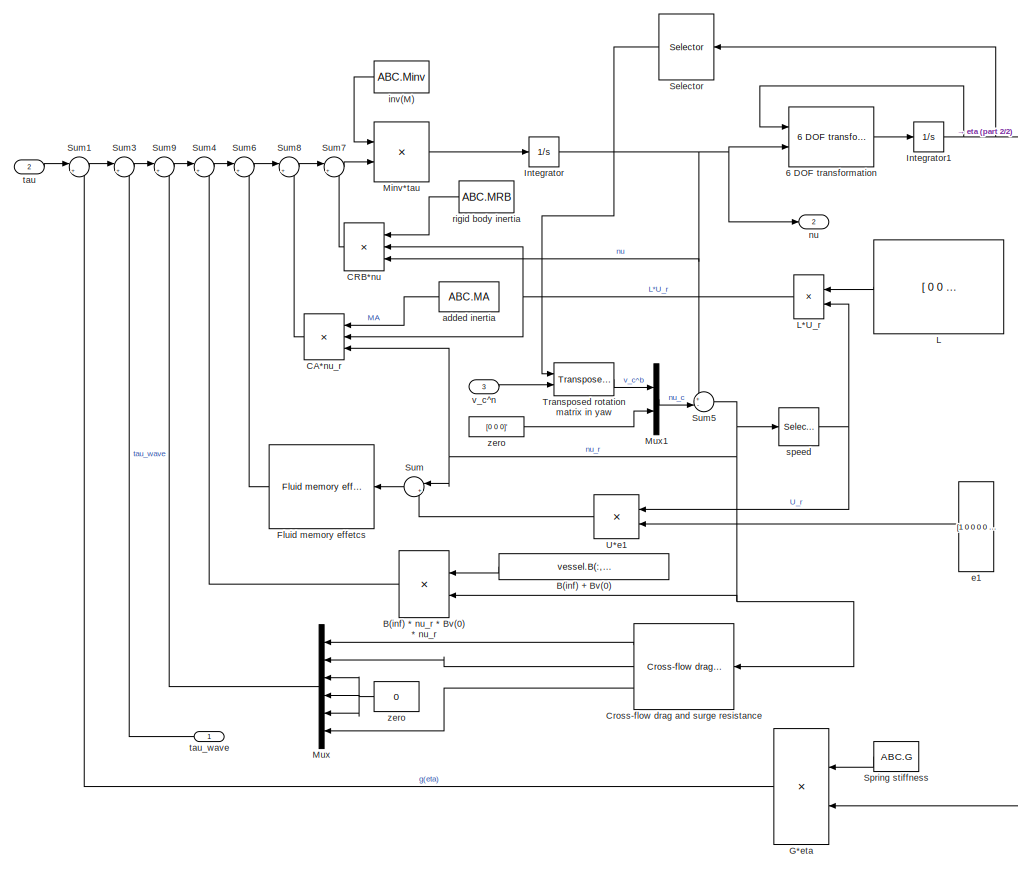
[diagram: Hydrodynamics/6-DOF maneuvering model (unified model with fluid memory) - part 1/2, center side, full height]
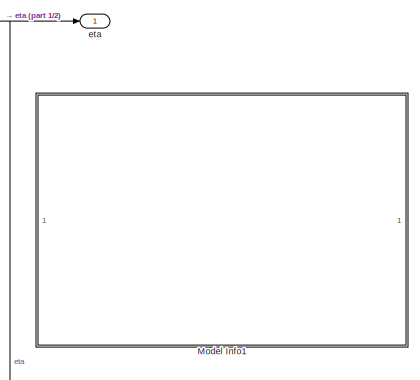
[diagram: Hydrodynamics/6-DOF maneuvering model (unified model with fluid memory) - part 2/2, middle right region]
BLOCK [SubSystem] Hydrodynamics/6-DOF maneuvering model (unified model with fluid memory)
  Ports = [3, 2]
  RequestExecContextInheritance = off
BLOCK [Reference] Hydrodynamics/6-DOF maneuvering model (unified model with fluid memory)/6 DOF transformation   REF=$bdroot/Modelling/Kinematics/6 DOF transformation
  Ports = [2, 1]
  SourceBlock = $bdroot/Modelling/Kinematics/6 DOF transformation
  SourceType = SubSystem
BLOCK [Product] Hydrodynamics/6-DOF maneuvering model (unified model with fluid memory)/B(inf) * nu_r * Bv(0) * nu_r
  Multiplication = Matrix(*)
  OutDataTypeStr = Inherit: Same as first input
  Ports = [2, 1]
  SaturateOnIntegerOverflow = on
BLOCK [Constant] Hydrodynamics/6-DOF maneuvering model (unified model with fluid memory)/B(inf) + Bv(0)
  Value = vessel.B(:,:,end) + vessel.Bv(:,:,1)
BLOCK [Product] Hydrodynamics/6-DOF maneuvering model (unified model with fluid memory)/CA*nu_r
  Inputs = 3
  Multiplication = Matrix(*)
  Ports = [3, 1]
  RndMeth = Zero
BLOCK [Product] Hydrodynamics/6-DOF maneuvering model (unified model with fluid memory)/CRB*nu
  Inputs = 3
  Multiplication = Matrix(*)
  Ports = [3, 1]
  RndMeth = Zero
BLOCK [Reference] Hydrodynamics/6-DOF maneuvering model (unified model with fluid memory)/Cross-flow drag and surge resistance   REF=$bdroot/Hydrodynamics/Cross-flow drag and surge resistance
  Ports = [1, 3]
  SourceBlock = $bdroot/Hydrodynamics/Cross-flow drag and surge resistance
  SourceType = Cross-flow drag and surge resistance
BLOCK [Reference] Hydrodynamics/6-DOF maneuvering model (unified model with fluid memory)/Fluid memory effetcs   REF=$bdroot/Hydrodynamics/Fluid memory effetcs
  Ports = [1, 1]
  SourceBlock = $bdroot/Hydrodynamics/Fluid memory effetcs
  SourceType = SubSystem
BLOCK [Product] Hydrodynamics/6-DOF maneuvering model (unified model with fluid memory)/G*eta
  Multiplication = Matrix(*)
  OutDataTypeStr = Inherit: Same as first input
  Ports = [2, 1]
  SaturateOnIntegerOverflow = on
BLOCK [Integrator] Hydrodynamics/6-DOF maneuvering model (unified model with fluid memory)/Integrator
  Ports = [1, 1]
BLOCK [Integrator] Hydrodynamics/6-DOF maneuvering model (unified model with fluid memory)/Integrator1
  Ports = [1, 1]
BLOCK [Constant] Hydrodynamics/6-DOF maneuvering model (unified model with fluid memory)/L
  Value = [ 0     0     0     0     0     0;   0     0     0     0     0     1;\n     0     0     0     0    -1     0;	\n     0     0     0     0     0     0	;\n     0     0     0     0     0     0	\n;     0     0     0     0     0     0]
BLOCK [Product] Hydrodynamics/6-DOF maneuvering model (unified model with fluid memory)/L*U_r
  Ports = [2, 1]
  RndMeth = Zero
BLOCK [Product] Hydrodynamics/6-DOF maneuvering model (unified model with fluid memory)/Minv*tau
  Inputs = **
  Multiplication = Matrix(*)
  OutDataTypeStr = Inherit: Same as first input
  Ports = [2, 1]
  SaturateOnIntegerOverflow = on
BLOCK [SubSystem] Hydrodynamics/6-DOF maneuvering model (unified model with fluid memory)/Model Info1
  CopyFcn = slcm CopyBlock;
  DeleteFcn = slcm Cancel;
  InitFcn = slcm('UpdateAllCMBlocksInThisModelInit')
  LoadFcn = slcm LoadBlock;
  NameChangeFcn = slcm Rename;
  OpenFcn = slcm
  Ports = []
  PostSaveFcn = slcm('UpdateAllCMBlocksInThisModel')
  RequestExecContextInheritance = off
BLOCK [SubSystem] Hydrodynamics/6-DOF maneuvering model (unified model with fluid memory)/Model Info1/EmptySubsystem
  Ports = []
  RequestExecContextInheritance = off
BLOCK [Mux] Hydrodynamics/6-DOF maneuvering model (unified model with fluid memory)/Mux
  DisplayOption = bar
  Inputs = 6
  NameLocation = top
  Ports = [6, 1]
BLOCK [Mux] Hydrodynamics/6-DOF maneuvering model (unified model with fluid memory)/Mux1
  DisplayOption = bar
  Inputs = 2
  NameLocation = top
  Ports = [2, 1]
BLOCK [Selector] Hydrodynamics/6-DOF maneuvering model (unified model with fluid memory)/Selector
  IndexOptions = Index vector (dialog)
  Indices = [6]
  InputPortWidth = 6
  OutputSizes = 1
  Ports = [1, 1]
BLOCK [Constant] Hydrodynamics/6-DOF maneuvering model (unified model with fluid memory)/Spring stiffness
  Value = ABC.G
BLOCK [Sum] Hydrodynamics/6-DOF maneuvering model (unified model with fluid memory)/Sum
  Inputs = |+-
  NameLocation = top
  Ports = [2, 1]
BLOCK [Sum] Hydrodynamics/6-DOF maneuvering model (unified model with fluid memory)/Sum1
  Inputs = |+-
  Ports = [2, 1]
  SaturateOnIntegerOverflow = on
BLOCK [Sum] Hydrodynamics/6-DOF maneuvering model (unified model with fluid memory)/Sum3
  Inputs = |++
  Ports = [2, 1]
  SaturateOnIntegerOverflow = on
BLOCK [Sum] Hydrodynamics/6-DOF maneuvering model (unified model with fluid memory)/Sum4
  Inputs = |+-
  Ports = [2, 1]
  SaturateOnIntegerOverflow = on
BLOCK [Sum] Hydrodynamics/6-DOF maneuvering model (unified model with fluid memory)/Sum5
  Inputs = +-|
  Ports = [2, 1]
  SaturateOnIntegerOverflow = on
BLOCK [Sum] Hydrodynamics/6-DOF maneuvering model (unified model with fluid memory)/Sum6
  Inputs = |+-
  Ports = [2, 1]
  SaturateOnIntegerOverflow = on
BLOCK [Sum] Hydrodynamics/6-DOF maneuvering model (unified model with fluid memory)/Sum7
  Inputs = |+-
  Ports = [2, 1]
  SaturateOnIntegerOverflow = on
BLOCK [Sum] Hydrodynamics/6-DOF maneuvering model (unified model with fluid memory)/Sum8
  Inputs = |+-
  Ports = [2, 1]
  SaturateOnIntegerOverflow = on
BLOCK [Sum] Hydrodynamics/6-DOF maneuvering model (unified model with fluid memory)/Sum9
  Inputs = |++
  Ports = [2, 1]
  SaturateOnIntegerOverflow = on
BLOCK [Reference] Hydrodynamics/6-DOF maneuvering model (unified model with fluid memory)/Transposed rotation matrix in yaw   REF=$bdroot/Modelling/Kinematics/Transposed rotation
 matrix in yaw
  Ports = [2, 1]
  SourceBlock = $bdroot/Modelling/Kinematics/Transposed rotation\n matrix in yaw
BLOCK [Product] Hydrodynamics/6-DOF maneuvering model (unified model with fluid memory)/U*e1
  Ports = [2, 1]
  RndMeth = Zero
BLOCK [Constant] Hydrodynamics/6-DOF maneuvering model (unified model with fluid memory)/added inertia
  Value = ABC.MA
BLOCK [Constant] Hydrodynamics/6-DOF maneuvering model (unified model with fluid memory)/e1
  Value = [1 0 0 0 0 0]'
  VectorParams1D = off
BLOCK [Outport] Hydrodynamics/6-DOF maneuvering model (unified model with fluid memory)/eta
BLOCK [Constant] Hydrodynamics/6-DOF maneuvering model (unified model with fluid memory)/inv(M)
  Value = ABC.Minv
BLOCK [Outport] Hydrodynamics/6-DOF maneuvering model (unified model with fluid memory)/nu
  Port = 2
BLOCK [Constant] Hydrodynamics/6-DOF maneuvering model (unified model with fluid memory)/rigid body inertia
  Value = ABC.MRB
BLOCK [Selector] Hydrodynamics/6-DOF maneuvering model (unified model with fluid memory)/speed
  IndexOptions = Index vector (dialog)
  Indices = [1]
  InputPortWidth = 6
  OutputSizes = 1
  Ports = [1, 1]
BLOCK [Inport] Hydrodynamics/6-DOF maneuvering model (unified model with fluid memory)/tau
  Port = 2
BLOCK [Inport] Hydrodynamics/6-DOF maneuvering model (unified model with fluid memory)/tau_wave
BLOCK [Inport] Hydrodynamics/6-DOF maneuvering model (unified model with fluid memory)/v_c^n
  Port = 3
BLOCK [Constant] Hydrodynamics/6-DOF maneuvering model (unified model with fluid memory)/zero
  Value = 0
BLOCK [Constant] Hydrodynamics/6-DOF maneuvering model (unified model with fluid memory)/zero  
  Value = [0 0 0]'
BLOCK [SubSystem] Hydrodynamics/Cross-flow drag and surge resistance
  Ports = [1, 3]
  RTWSystemCode = Reusable function
  RequestExecContextInheritance = off
  TreatAsAtomicUnit = on
BLOCK [Constant] Hydrodynamics/Cross-flow drag and surge resistance/2D drag coefficient 
  Value = CD
BLOCK [Abs] Hydrodynamics/Cross-flow drag and surge resistance/Abs1
BLOCK [SubSystem] Hydrodynamics/Cross-flow drag and surge resistance/Cross-flow drag trapezoidal integration
  Ports = [4, 2]
  RequestExecContextInheritance = off
  TreatAsAtomicUnit = on
BLOCK [Abs] Hydrodynamics/Cross-flow drag and surge resistance/Cross-flow drag trapezoidal integration/Abs
BLOCK [ForIterator] Hydrodynamics/Cross-flow drag and surge resistance/Cross-flow drag trapezoidal integration/For Iterator
  IterationSource = external
  IterationVariableDataType = double
  Ports = [1, 1]
  ResetStates = reset
BLOCK [If] Hydrodynamics/Cross-flow drag and surge resistance/Cross-flow drag trapezoidal integration/If i=1 or i=N
  IfExpression = u1 == 1 | u1 == u2
  NumInputs = 2
  Ports = [2, 2]
BLOCK [Constant] Hydrodynamics/Cross-flow drag and surge resistance/Cross-flow drag trapezoidal integration/Lpp//2
  Value = Lpp/2
BLOCK [Merge] Hydrodynamics/Cross-flow drag and surge resistance/Cross-flow drag trapezoidal integration/Merge
  Ports = [2, 1]
BLOCK [Inport] Hydrodynamics/Cross-flow drag and surge resistance/Cross-flow drag trapezoidal integration/N
BLOCK [Product] Hydrodynamics/Cross-flow drag and surge resistance/Cross-flow drag trapezoidal integration/Product
  Inputs = **
  OutDataTypeStr = Inherit: Same as first input
  Ports = [2, 1]
  SaturateOnIntegerOverflow = on
BLOCK [Product] Hydrodynamics/Cross-flow drag and surge resistance/Cross-flow drag trapezoidal integration/Product1
  Inputs = **
  NameLocation = left
  OutDataTypeStr = Inherit: Same as first input
  Ports = [2, 1]
  SaturateOnIntegerOverflow = on
BLOCK [Product] Hydrodynamics/Cross-flow drag and surge resistance/Cross-flow drag trapezoidal integration/Product3
  OutDataTypeStr = Inherit: Same as first input
  Ports = [2, 1]
  SaturateOnIntegerOverflow = on
BLOCK [Product] Hydrodynamics/Cross-flow drag and surge resistance/Cross-flow drag trapezoidal integration/Product4
  OutDataTypeStr = Inherit: Same as first input
  Ports = [2, 1]
  SaturateOnIntegerOverflow = on
BLOCK [Sum] Hydrodynamics/Cross-flow drag and surge resistance/Cross-flow drag trapezoidal integration/Sum
  InputSameDT = on
  Inputs = |++
  OutDataTypeStr = Inherit: Same as first input
  Ports = [2, 1]
  SaturateOnIntegerOverflow = on
BLOCK [Sum] Hydrodynamics/Cross-flow drag and surge resistance/Cross-flow drag trapezoidal integration/Sum1
  Inputs = ++|
  Ports = [2, 1]
  SaturateOnIntegerOverflow = on
BLOCK [Sum] Hydrodynamics/Cross-flow drag and surge resistance/Cross-flow drag trapezoidal integration/Sum2
  InputSameDT = on
  Inputs = |++
  OutDataTypeStr = Inherit: Same as first input
  Ports = [2, 1]
  SaturateOnIntegerOverflow = on
BLOCK [Sum] Hydrodynamics/Cross-flow drag and surge resistance/Cross-flow drag trapezoidal integration/Sum3
  InputSameDT = on
  Inputs = +-|
  OutDataTypeStr = Inherit: Same as first input
  Ports = [2, 1]
  SaturateOnIntegerOverflow = on
BLOCK [Sum] Hydrodynamics/Cross-flow drag and surge resistance/Cross-flow drag trapezoidal integration/Sum4
  InputSameDT = on
  Inputs = +-|
  NameLocation = top
  OutDataTypeStr = Inherit: Same as first input
  Ports = [2, 1]
  SaturateOnIntegerOverflow = on
BLOCK [Constant] Hydrodynamics/Cross-flow drag and surge resistance/Cross-flow drag trapezoidal integration/constant
BLOCK [Inport] Hydrodynamics/Cross-flow drag and surge resistance/Cross-flow drag trapezoidal integration/dx
  Port = 2
BLOCK [Memory] Hydrodynamics/Cross-flow drag and surge resistance/Cross-flow drag trapezoidal integration/memory1
  InheritSampleTime = on
BLOCK [Memory] Hydrodynamics/Cross-flow drag and surge resistance/Cross-flow drag trapezoidal integration/memory2
  InheritSampleTime = on
BLOCK [SubSystem] Hydrodynamics/Cross-flow drag and surge resistance/Cross-flow drag trapezoidal integration/multiply with 0.5
  Ports = [1, 1, 0, 0, 0, 0, 0, 1]
  RequestExecContextInheritance = off
  TreatAsAtomicUnit = on
BLOCK [ActionPort] Hydrodynamics/Cross-flow drag and surge resistance/Cross-flow drag trapezoidal integration/multiply with 0.5/Action Port
  InitializeStates = reset
BLOCK [Gain] Hydrodynamics/Cross-flow drag and surge resistance/Cross-flow drag trapezoidal integration/multiply with 0.5/Gain
  Gain = 0.5
BLOCK [Inport] Hydrodynamics/Cross-flow drag and surge resistance/Cross-flow drag trapezoidal integration/multiply with 0.5/In1
BLOCK [Outport] Hydrodynamics/Cross-flow drag and surge resistance/Cross-flow drag trapezoidal integration/multiply with 0.5/Out1
BLOCK [SubSystem] Hydrodynamics/Cross-flow drag and surge resistance/Cross-flow drag trapezoidal integration/multiply with 1
  Ports = [1, 1, 0, 0, 0, 0, 0, 1]
  RequestExecContextInheritance = off
  TreatAsAtomicUnit = on
BLOCK [ActionPort] Hydrodynamics/Cross-flow drag and surge resistance/Cross-flow drag trapezoidal integration/multiply with 1/Action Port
  InitializeStates = reset
BLOCK [Inport] Hydrodynamics/Cross-flow drag and surge resistance/Cross-flow drag trapezoidal integration/multiply with 1/In1
BLOCK [Outport] Hydrodynamics/Cross-flow drag and surge resistance/Cross-flow drag trapezoidal integration/multiply with 1/Out1
BLOCK [Inport] Hydrodynamics/Cross-flow drag and surge resistance/Cross-flow drag trapezoidal integration/r
  Port = 4
BLOCK [Outport] Hydrodynamics/Cross-flow drag and surge resistance/Cross-flow drag trapezoidal integration/sum1
BLOCK [Outport] Hydrodynamics/Cross-flow drag and surge resistance/Cross-flow drag trapezoidal integration/sum2
  Port = 2
BLOCK [Inport] Hydrodynamics/Cross-flow drag and surge resistance/Cross-flow drag trapezoidal integration/v_r
  Port = 3
BLOCK [Product] Hydrodynamics/Cross-flow drag and surge resistance/Cross-flow drag trapezoidal integration/x * r
  OutDataTypeStr = Inherit: Same as first input
  Ports = [2, 1]
  SaturateOnIntegerOverflow = on
BLOCK [Constant] Hydrodynamics/Cross-flow drag and surge resistance/Drag coefficient
  Value = Cx
BLOCK [Constant] Hydrodynamics/Cross-flow drag and surge resistance/Frontal area
  Value = Ax
BLOCK [Gain] Hydrodynamics/Cross-flow drag and surge resistance/Gain
  Gain = -0.5
  OutDataTypeStr = Inherit: Same as input
  ParamDataTypeStr = Inherit: Same as input
  SaturateOnIntegerOverflow = on
BLOCK [Gain] Hydrodynamics/Cross-flow drag and surge resistance/Gain1
  Gain = -0.5
  OutDataTypeStr = Inherit: Same as input
  ParamDataTypeStr = Inherit: Same as input
  SaturateOnIntegerOverflow = on
BLOCK [Gain] Hydrodynamics/Cross-flow drag and surge resistance/Gain2
  Gain = 0.5
  OutDataTypeStr = Inherit: Same as input
  ParamDataTypeStr = Inherit: Same as input
  SaturateOnIntegerOverflow = on
BLOCK [Gain] Hydrodynamics/Cross-flow drag and surge resistance/Gain3
  Gain = -1
  OutDataTypeStr = Inherit: Same as input
  ParamDataTypeStr = Inherit: Same as input
  SaturateOnIntegerOverflow = on
BLOCK [Constant] Hydrodynamics/Cross-flow drag and surge resistance/Lpp
  Value = Lpp
BLOCK [Constant] Hydrodynamics/Cross-flow drag and surge resistance/N
  Value = N
BLOCK [Outport] Hydrodynamics/Cross-flow drag and surge resistance/N_drag
  Port = 3
BLOCK [Product] Hydrodynamics/Cross-flow drag and surge resistance/Product5
  Inputs = 3
  OutDataTypeStr = Inherit: Same as first input
  Ports = [3, 1]
  SaturateOnIntegerOverflow = on
BLOCK [Product] Hydrodynamics/Cross-flow drag and surge resistance/Product7
  OutDataTypeStr = Inherit: Same as first input
  Ports = [2, 1]
  SaturateOnIntegerOverflow = on
BLOCK [Product] Hydrodynamics/Cross-flow drag and surge resistance/Product8
  OutDataTypeStr = Inherit: Same as first input
  Ports = [2, 1]
  SaturateOnIntegerOverflow = on
BLOCK [Selector] Hydrodynamics/Cross-flow drag and surge resistance/Selector
  IndexOptions = Index vector (dialog)
  Indices = [2]
  InputPortWidth = 6
  OutputSizes = 1
  Ports = [1, 1]
BLOCK [Selector] Hydrodynamics/Cross-flow drag and surge resistance/Selector1
  IndexOptions = Index vector (dialog)
  Indices = [6]
  InputPortWidth = 6
  OutputSizes = 1
  Ports = [1, 1]
BLOCK [Selector] Hydrodynamics/Cross-flow drag and surge resistance/Selector2
  IndexOptions = Index vector (dialog)
  Indices = [1]
  InputPortWidth = 6
  OutputSizes = 1
  Ports = [1, 1]
BLOCK [Sum] Hydrodynamics/Cross-flow drag and surge resistance/Sum
  InputSameDT = on
  Inputs = +-|
  OutDataTypeStr = Inherit: Same as first input
  Ports = [2, 1]
  SaturateOnIntegerOverflow = on
BLOCK [Constant] Hydrodynamics/Cross-flow drag and surge resistance/Transversal area//Lpp
  Value = Ay/Lpp
BLOCK [Outport] Hydrodynamics/Cross-flow drag and surge resistance/X_drag
BLOCK [Outport] Hydrodynamics/Cross-flow drag and surge resistance/Y_drag
  Port = 2
BLOCK [Constant] Hydrodynamics/Cross-flow drag and surge resistance/constant
BLOCK [Product] Hydrodynamics/Cross-flow drag and surge resistance/dx
  Inputs = /*
  Ports = [2, 1]
  RndMeth = Zero
BLOCK [Product] Hydrodynamics/Cross-flow drag and surge resistance/dx1
  Inputs = 4
  Ports = [4, 1]
  RndMeth = Zero
BLOCK [Product] Hydrodynamics/Cross-flow drag and surge resistance/dx2
  Inputs = 4
  Ports = [4, 1]
  RndMeth = Zero
BLOCK [Inport] Hydrodynamics/Cross-flow drag and surge resistance/nu_r
BLOCK [Constant] Hydrodynamics/Cross-flow drag and surge resistance/rho
  Value = rho_w
BLOCK [SubSystem] Hydrodynamics/Fluid memory effetcs
  Ports = [1, 1]
  RequestExecContextInheritance = off
BLOCK [StateSpace] Hydrodynamics/Fluid memory effetcs/Dp(1,1)
  A = ABC.Ar{1,1}
  B = ABC.Br{1,1}
  C = ABC.Cr{1,1}
  D = ABC.Dr{1,1}
  InitialCondition = 0
  Ports = [1, 1]
BLOCK [StateSpace] Hydrodynamics/Fluid memory effetcs/Dp(1,3)
  A = ABC.Ar{1,3}
  B = ABC.Br{1,3}
  C = ABC.Cr{1,3}
  D = ABC.Dr{1,3}
  InitialCondition = 0
  Ports = [1, 1]
BLOCK [StateSpace] Hydrodynamics/Fluid memory effetcs/Dp(1,5)
  A = ABC.Ar{1,5}
  B = ABC.Br{1,5}
  C = ABC.Cr{1,5}
  D = ABC.Dr{1,5}
  InitialCondition = 0
  Ports = [1, 1]
BLOCK [StateSpace] Hydrodynamics/Fluid memory effetcs/Dp(2,2)
  A = ABC.Ar{2,2}
  B = ABC.Br{2,2}
  C = ABC.Cr{2,2}
  D = ABC.Dr{2,2}
  InitialCondition = 0
  Ports = [1, 1]
BLOCK [StateSpace] Hydrodynamics/Fluid memory effetcs/Dp(2,4)
  A = ABC.Ar{2,4}
  B = ABC.Br{2,4}
  C = ABC.Cr{2,4}
  D = ABC.Dr{2,4}
  InitialCondition = 0
  Ports = [1, 1]
BLOCK [StateSpace] Hydrodynamics/Fluid memory effetcs/Dp(2,6)
  A = ABC.Ar{2,6}
  B = ABC.Br{2,6}
  C = ABC.Cr{2,6}
  D = ABC.Dr{2,6}
  InitialCondition = 0
  Ports = [1, 1]
BLOCK [StateSpace] Hydrodynamics/Fluid memory effetcs/Dp(3,1)
  A = ABC.Ar{3,1}
  B = ABC.Br{3,1}
  C = ABC.Cr{3,1}
  D = ABC.Dr{3,1}
  InitialCondition = 0
  Ports = [1, 1]
BLOCK [StateSpace] Hydrodynamics/Fluid memory effetcs/Dp(3,3)
  A = ABC.Ar{3,3}
  B = ABC.Br{3,3}
  C = ABC.Cr{3,3}
  D = ABC.Dr{3,3}
  InitialCondition = 0
  Ports = [1, 1]
BLOCK [StateSpace] Hydrodynamics/Fluid memory effetcs/Dp(3,5)
  A = ABC.Ar{3,5}
  B = ABC.Br{3,5}
  C = ABC.Cr{3,5}
  D = ABC.Dr{3,5}
  InitialCondition = 0
  Ports = [1, 1]
BLOCK [StateSpace] Hydrodynamics/Fluid memory effetcs/Dp(4,2)
  A = ABC.Ar{4,2}
  B = ABC.Br{4,2}
  C = ABC.Cr{4,2}
  D = ABC.Dr{4,2}
  InitialCondition = 0
  Ports = [1, 1]
BLOCK [StateSpace] Hydrodynamics/Fluid memory effetcs/Dp(4,4)
  A = ABC.Ar{4,4}
  B = ABC.Br{4,4}
  C = ABC.Cr{4,4}
  D = ABC.Dr{4,4}
  InitialCondition = 0
  Ports = [1, 1]
BLOCK [StateSpace] Hydrodynamics/Fluid memory effetcs/Dp(4,6)
  A = ABC.Ar{4,6}
  B = ABC.Br{4,6}
  C = ABC.Cr{4,6}
  D = ABC.Dr{4,6}
  InitialCondition = 0
  Ports = [1, 1]
BLOCK [StateSpace] Hydrodynamics/Fluid memory effetcs/Dp(5,1)
  A = ABC.Ar{5,1}
  B = ABC.Br{5,1}
  C = ABC.Cr{5,1}
  D = ABC.Dr{5,1}
  InitialCondition = 0
  Ports = [1, 1]
BLOCK [StateSpace] Hydrodynamics/Fluid memory effetcs/Dp(5,3)
  A = ABC.Ar{5,3}
  B = ABC.Br{5,3}
  C = ABC.Cr{5,3}
  D = ABC.Dr{5,3}
  InitialCondition = 0
  Ports = [1, 1]
BLOCK [StateSpace] Hydrodynamics/Fluid memory effetcs/Dp(5,5)
  A = ABC.Ar{5,5}
  B = ABC.Br{5,5}
  C = ABC.Cr{5,5}
  D = ABC.Dr{5,5}
  InitialCondition = 0
  Ports = [1, 1]
BLOCK [StateSpace] Hydrodynamics/Fluid memory effetcs/Dp(6,2)
  A = ABC.Ar{6,2}
  B = ABC.Br{6,2}
  C = ABC.Cr{6,2}
  D = ABC.Dr{6,2}
  InitialCondition = 0
  Ports = [1, 1]
BLOCK [StateSpace] Hydrodynamics/Fluid memory effetcs/Dp(6,4)
  A = ABC.Ar{6,4}
  B = ABC.Br{6,4}
  C = ABC.Cr{6,4}
  D = ABC.Dr{6,4}
  InitialCondition = 0
  Ports = [1, 1]
BLOCK [StateSpace] Hydrodynamics/Fluid memory effetcs/Dp(6,6)
  A = ABC.Ar{6,6}
  B = ABC.Br{6,6}
  C = ABC.Cr{6,6}
  D = ABC.Dr{6,6}
  InitialCondition = 0
  Ports = [1, 1]
BLOCK [Mux] Hydrodynamics/Fluid memory effetcs/Mux
  DisplayOption = bar
  Inputs = 6
  Ports = [6, 1]
BLOCK [Sum] Hydrodynamics/Fluid memory effetcs/Sum
  IconShape = rectangular
  Inputs = +++
  Ports = [3, 1]
  SaturateOnIntegerOverflow = on
BLOCK [Sum] Hydrodynamics/Fluid memory effetcs/Sum1
  IconShape = rectangular
  Inputs = +++
  Ports = [3, 1]
  SaturateOnIntegerOverflow = on
BLOCK [Sum] Hydrodynamics/Fluid memory effetcs/Sum2
  IconShape = rectangular
  Inputs = +++
  Ports = [3, 1]
  SaturateOnIntegerOverflow = on
BLOCK [Sum] Hydrodynamics/Fluid memory effetcs/Sum3
  IconShape = rectangular
  Inputs = +++
  Ports = [3, 1]
  SaturateOnIntegerOverflow = on
BLOCK [Sum] Hydrodynamics/Fluid memory effetcs/Sum4
  IconShape = rectangular
  Inputs = +++
  Ports = [3, 1]
  SaturateOnIntegerOverflow = on
BLOCK [Sum] Hydrodynamics/Fluid memory effetcs/Sum5
  IconShape = rectangular
  Inputs = +++
  Ports = [3, 1]
  SaturateOnIntegerOverflow = on
BLOCK [Inport] Hydrodynamics/Fluid memory effetcs/delta_nu
BLOCK [SubSystem] Hydrodynamics/Fluid memory effetcs/heave
  Ports = [1, 3]
  RequestExecContextInheritance = off
BLOCK [Selector] Hydrodynamics/Fluid memory effetcs/heave/Selector
  IndexOptions = Index vector (dialog)
  Indices = [1]
  InputPortWidth = 6
  OutputSizes = 1
  Ports = [1, 1]
BLOCK [Selector] Hydrodynamics/Fluid memory effetcs/heave/Selector1
  IndexOptions = Index vector (dialog)
  Indices = [3]
  InputPortWidth = 6
  OutputSizes = 1
  Ports = [1, 1]
BLOCK [Selector] Hydrodynamics/Fluid memory effetcs/heave/Selector2
  IndexOptions = Index vector (dialog)
  Indices = [5]
  InputPortWidth = 6
  OutputSizes = 1
  Ports = [1, 1]
BLOCK [Inport] Hydrodynamics/Fluid memory effetcs/heave/nu
BLOCK [Outport] Hydrodynamics/Fluid memory effetcs/heave/q
  Port = 3
BLOCK [Outport] Hydrodynamics/Fluid memory effetcs/heave/u
BLOCK [Outport] Hydrodynamics/Fluid memory effetcs/heave/w
  Port = 2
BLOCK [Outport] Hydrodynamics/Fluid memory effetcs/mu
BLOCK [SubSystem] Hydrodynamics/Fluid memory effetcs/pitch
  Ports = [1, 3]
  RequestExecContextInheritance = off
BLOCK [Selector] Hydrodynamics/Fluid memory effetcs/pitch/Selector
  IndexOptions = Index vector (dialog)
  Indices = [1]
  InputPortWidth = 6
  OutputSizes = 1
  Ports = [1, 1]
BLOCK [Selector] Hydrodynamics/Fluid memory effetcs/pitch/Selector1
  IndexOptions = Index vector (dialog)
  Indices = [3]
  InputPortWidth = 6
  OutputSizes = 1
  Ports = [1, 1]
BLOCK [Selector] Hydrodynamics/Fluid memory effetcs/pitch/Selector2
  IndexOptions = Index vector (dialog)
  Indices = [5]
  InputPortWidth = 6
  OutputSizes = 1
  Ports = [1, 1]
BLOCK [Inport] Hydrodynamics/Fluid memory effetcs/pitch/nu
BLOCK [Outport] Hydrodynamics/Fluid memory effetcs/pitch/q
  Port = 3
BLOCK [Outport] Hydrodynamics/Fluid memory effetcs/pitch/u
BLOCK [Outport] Hydrodynamics/Fluid memory effetcs/pitch/w
  Port = 2
BLOCK [SubSystem] Hydrodynamics/Fluid memory effetcs/roll
  Ports = [1, 3]
  RequestExecContextInheritance = off
BLOCK [Selector] Hydrodynamics/Fluid memory effetcs/roll/Selector
  IndexOptions = Index vector (dialog)
  Indices = [2]
  InputPortWidth = 6
  OutputSizes = 1
  Ports = [1, 1]
BLOCK [Selector] Hydrodynamics/Fluid memory effetcs/roll/Selector1
  IndexOptions = Index vector (dialog)
  Indices = [4]
  InputPortWidth = 6
  OutputSizes = 1
  Ports = [1, 1]
BLOCK [Selector] Hydrodynamics/Fluid memory effetcs/roll/Selector2
  IndexOptions = Index vector (dialog)
  Indices = [6]
  InputPortWidth = 6
  OutputSizes = 1
  Ports = [1, 1]
BLOCK [Inport] Hydrodynamics/Fluid memory effetcs/roll/nu
BLOCK [Outport] Hydrodynamics/Fluid memory effetcs/roll/p
  Port = 2
BLOCK [Outport] Hydrodynamics/Fluid memory effetcs/roll/r
  Port = 3
BLOCK [Outport] Hydrodynamics/Fluid memory effetcs/roll/v
BLOCK [SubSystem] Hydrodynamics/Fluid memory effetcs/surge
  Ports = [1, 3]
  RequestExecContextInheritance = off
BLOCK [Selector] Hydrodynamics/Fluid memory effetcs/surge/Selector
  IndexOptions = Index vector (dialog)
  Indices = [1]
  InputPortWidth = 6
  OutputSizes = 1
  Ports = [1, 1]
BLOCK [Selector] Hydrodynamics/Fluid memory effetcs/surge/Selector1
  IndexOptions = Index vector (dialog)
  Indices = [3]
  InputPortWidth = 6
  OutputSizes = 1
  Ports = [1, 1]
BLOCK [Selector] Hydrodynamics/Fluid memory effetcs/surge/Selector2
  IndexOptions = Index vector (dialog)
  Indices = [5]
  InputPortWidth = 6
  OutputSizes = 1
  Ports = [1, 1]
BLOCK [Inport] Hydrodynamics/Fluid memory effetcs/surge/nu
BLOCK [Outport] Hydrodynamics/Fluid memory effetcs/surge/q
  Port = 3
BLOCK [Outport] Hydrodynamics/Fluid memory effetcs/surge/u
BLOCK [Outport] Hydrodynamics/Fluid memory effetcs/surge/w
  Port = 2
BLOCK [SubSystem] Hydrodynamics/Fluid memory effetcs/sway
  Ports = [1, 3]
  RequestExecContextInheritance = off
BLOCK [Selector] Hydrodynamics/Fluid memory effetcs/sway/Selector
  IndexOptions = Index vector (dialog)
  Indices = [2]
  InputPortWidth = 6
  OutputSizes = 1
  Ports = [1, 1]
BLOCK [Selector] Hydrodynamics/Fluid memory effetcs/sway/Selector1
  IndexOptions = Index vector (dialog)
  Indices = [4]
  InputPortWidth = 6
  OutputSizes = 1
  Ports = [1, 1]
BLOCK [Selector] Hydrodynamics/Fluid memory effetcs/sway/Selector2
  IndexOptions = Index vector (dialog)
  Indices = [6]
  InputPortWidth = 6
  OutputSizes = 1
  Ports = [1, 1]
BLOCK [Inport] Hydrodynamics/Fluid memory effetcs/sway/nu
BLOCK [Outport] Hydrodynamics/Fluid memory effetcs/sway/p
  Port = 2
BLOCK [Outport] Hydrodynamics/Fluid memory effetcs/sway/r
  Port = 3
BLOCK [Outport] Hydrodynamics/Fluid memory effetcs/sway/v
BLOCK [SubSystem] Hydrodynamics/Fluid memory effetcs/yaw
  Ports = [1, 3]
  RequestExecContextInheritance = off
BLOCK [Selector] Hydrodynamics/Fluid memory effetcs/yaw/Selector
  IndexOptions = Index vector (dialog)
  Indices = [2]
  InputPortWidth = 6
  OutputSizes = 1
  Ports = [1, 1]
BLOCK [Selector] Hydrodynamics/Fluid memory effetcs/yaw/Selector1
  IndexOptions = Index vector (dialog)
  Indices = [4]
  InputPortWidth = 6
  OutputSizes = 1
  Ports = [1, 1]
BLOCK [Selector] Hydrodynamics/Fluid memory effetcs/yaw/Selector2
  IndexOptions = Index vector (dialog)
  Indices = [6]
  InputPortWidth = 6
  OutputSizes = 1
  Ports = [1, 1]
BLOCK [Inport] Hydrodynamics/Fluid memory effetcs/yaw/nu
BLOCK [Outport] Hydrodynamics/Fluid memory effetcs/yaw/p
  Port = 2
BLOCK [Outport] Hydrodynamics/Fluid memory effetcs/yaw/r
  Port = 3
BLOCK [Outport] Hydrodynamics/Fluid memory effetcs/yaw/v
BLOCK [SubSystem] Hydrodynamics/Motion RAO (U=0)
  Ports = [2, 3]
  RequestExecContextInheritance = off
BLOCK [SubSystem] Hydrodynamics/Motion RAO (U=0)/6DOF rotation matrix in yaw
  Ports = [2, 1]
  RequestExecContextInheritance = off
BLOCK [Mux] Hydrodynamics/Motion RAO (U=0)/6DOF rotation matrix in yaw/Mux1
  DisplayOption = bar
  Inputs = 2
  Ports = [2, 1]
BLOCK [Outport] Hydrodynamics/Motion RAO (U=0)/6DOF rotation matrix in yaw/R(psi)*V
BLOCK [Reference] Hydrodynamics/Motion RAO (U=0)/6DOF rotation matrix in yaw/Rotation matrix in yaw  REF=$bdroot/Modelling/Kinematics/Rotation matrix
in yaw 
  Ports = [2, 1]
  SourceBlock = $bdroot/Modelling/Kinematics/Rotation matrix\nin yaw
BLOCK [Selector] Hydrodynamics/Motion RAO (U=0)/6DOF rotation matrix in yaw/Selector
  IndexOptions = Index vector (dialog)
  Indices = [4 5 6]
  InputPortWidth = 6
  OutputSizes = 1
  Ports = [1, 1]
BLOCK [Selector] Hydrodynamics/Motion RAO (U=0)/6DOF rotation matrix in yaw/Selector2
  IndexOptions = Index vector (dialog)
  Indices = [1 2 3]
  InputPortWidth = 6
  OutputSizes = 1
  Ports = [1, 1]
BLOCK [Inport] Hydrodynamics/Motion RAO (U=0)/6DOF rotation matrix in yaw/V
  Port = 2
BLOCK [Inport] Hydrodynamics/Motion RAO (U=0)/6DOF rotation matrix in yaw/psi
BLOCK [BusSelector] Hydrodynamics/Motion RAO (U=0)/Bus Selector
  OutputSignals = Psi,Wavenum,Omega,Phase,Zeta_a
  Ports = [1, 5]
BLOCK [Clock] Hydrodynamics/Motion RAO (U=0)/Clock
BLOCK [SubSystem] Hydrodynamics/Motion RAO (U=0)/Output smoothing
  Ports = [4, 3]
  RequestExecContextInheritance = off
BLOCK [Constant] Hydrodynamics/Motion RAO (U=0)/Output smoothing/Output smoothing flag
  Value = RAO_smoothing_flag
BLOCK [Reference] Hydrodynamics/Motion RAO (U=0)/Output smoothing/Signal smoothing 1  REF=$bdroot/Modelling/Environmental
Loads/Utilities/Signal smoothing
  Ports = [2, 1]
  SourceBlock = $bdroot/Modelling/Environmental\nLoads/Utilities/Signal smoothing
  SourceType = Signal smoothing
BLOCK [Reference] Hydrodynamics/Motion RAO (U=0)/Output smoothing/Signal smoothing 2  REF=$bdroot/Modelling/Environmental
Loads/Utilities/Signal smoothing
  Ports = [2, 1]
  SourceBlock = $bdroot/Modelling/Environmental\nLoads/Utilities/Signal smoothing
  SourceType = Signal smoothing
BLOCK [Reference] Hydrodynamics/Motion RAO (U=0)/Output smoothing/Signal smoothing 3  REF=$bdroot/Modelling/Environmental
Loads/Utilities/Signal smoothing
  Ports = [2, 1]
  SourceBlock = $bdroot/Modelling/Environmental\nLoads/Utilities/Signal smoothing
  SourceType = Signal smoothing
BLOCK [Switch] Hydrodynamics/Motion RAO (U=0)/Output smoothing/Switch1
  InputSameDT = off
  SaturateOnIntegerOverflow = off
  Threshold = 0.5
BLOCK [Switch] Hydrodynamics/Motion RAO (U=0)/Output smoothing/Switch2
  InputSameDT = off
  SaturateOnIntegerOverflow = off
  Threshold = 0.5
BLOCK [Switch] Hydrodynamics/Motion RAO (U=0)/Output smoothing/Switch3
  InputSameDT = off
  SaturateOnIntegerOverflow = off
  Threshold = 0.5
BLOCK [Inport] Hydrodynamics/Motion RAO (U=0)/Output smoothing/eta_h WF
BLOCK [Outport] Hydrodynamics/Motion RAO (U=0)/Output smoothing/eta_h WF 
BLOCK [Outport] Hydrodynamics/Motion RAO (U=0)/Output smoothing/nu WF
  Port = 2
BLOCK [Inport] Hydrodynamics/Motion RAO (U=0)/Output smoothing/nu WF 
  Port = 2
BLOCK [Outport] Hydrodynamics/Motion RAO (U=0)/Output smoothing/nu_dot WF
  Port = 3
BLOCK [Inport] Hydrodynamics/Motion RAO (U=0)/Output smoothing/nu_dot WF 
  Port = 3
BLOCK [Inport] Hydrodynamics/Motion RAO (U=0)/Output smoothing/nu_dot rate
  Port = 4
BLOCK [Reference] Hydrodynamics/Motion RAO (U=0)/Position phase   REF=$bdroot/Modelling/Environmental
Loads/Utilities/Position phase
  Ports = [3, 1]
  SourceBlock = $bdroot/Modelling/Environmental\nLoads/Utilities/Position phase
  SourceType = Position Phase
BLOCK [Product] Hydrodynamics/Motion RAO (U=0)/Product1
  Inputs = **
  OutDataTypeStr = Inherit: Same as first input
  Ports = [2, 1]
  SaturateOnIntegerOverflow = on
BLOCK [Sum] Hydrodynamics/Motion RAO (U=0)/Sum
  Inputs = -++
  Ports = [3, 1]
  SaturateOnIntegerOverflow = on
BLOCK [SubSystem] Hydrodynamics/Motion RAO (U=0)/Wave component loop
  Ports = [5, 4]
  RequestExecContextInheritance = off
  TreatAsAtomicUnit = on
BLOCK [Trigonometry] Hydrodynamics/Motion RAO (U=0)/Wave component loop/              
  Operator = cos
  Ports = [1, 1]
BLOCK [Trigonometry] Hydrodynamics/Motion RAO (U=0)/Wave component loop/                
  Ports = [1, 1]
BLOCK [Trigonometry] Hydrodynamics/Motion RAO (U=0)/Wave component loop/                1
  Ports = [1, 1]
BLOCK [Trigonometry] Hydrodynamics/Motion RAO (U=0)/Wave component loop/              1
  Operator = cos
  Ports = [1, 1]
BLOCK [Constant] Hydrodynamics/Motion RAO (U=0)/Wave component loop/Constant
  Value = 0
BLOCK [ForIterator] Hydrodynamics/Motion RAO (U=0)/Wave component loop/For Iterator
  IterationSource = external
  IterationVariableDataType = double
  Ports = [1, 1]
  ResetStates = reset
BLOCK [Gain] Hydrodynamics/Motion RAO (U=0)/Wave component loop/Gain
  Gain = -1
  OutDataTypeStr = Inherit: Same as input
  ParamDataTypeStr = Inherit: Same as input
  SaturateOnIntegerOverflow = on
BLOCK [Gain] Hydrodynamics/Motion RAO (U=0)/Wave component loop/Gain1
  Gain = -1
  OutDataTypeStr = Inherit: Same as input
  ParamDataTypeStr = Inherit: Same as input
  SaturateOnIntegerOverflow = on
BLOCK [Math] Hydrodynamics/Motion RAO (U=0)/Wave component loop/Math Function
  Operator = magnitude^2
  Ports = [1, 1]
  SignedPower = on
BLOCK [Math] Hydrodynamics/Motion RAO (U=0)/Wave component loop/Math Function1
  Operator = magnitude^2
  Ports = [1, 1]
  SignedPower = on
BLOCK [Memory] Hydrodynamics/Motion RAO (U=0)/Wave component loop/Memory1
  InheritSampleTime = on
  InitialCondition = [0 0 0 0 0 0]'
BLOCK [Memory] Hydrodynamics/Motion RAO (U=0)/Wave component loop/Memory2
  InheritSampleTime = on
  InitialCondition = [0 0 0 0 0 0]'
BLOCK [Memory] Hydrodynamics/Motion RAO (U=0)/Wave component loop/Memory3
  InheritSampleTime = on
  InitialCondition = [0 0 0 0 0 0]'
BLOCK [Memory] Hydrodynamics/Motion RAO (U=0)/Wave component loop/Memory4
  InheritSampleTime = on
  InitialCondition = [0 0 0 0 0 0]'
BLOCK [Inport] Hydrodynamics/Motion RAO (U=0)/Wave component loop/Omega
  Port = 3
BLOCK [Inport] Hydrodynamics/Motion RAO (U=0)/Wave component loop/Phase_tot
  Port = 4
BLOCK [Product] Hydrodynamics/Motion RAO (U=0)/Wave component loop/Product1
  Inputs = 3
  OutDataTypeStr = Inherit: Same as first input
  Ports = [3, 1]
  SaturateOnIntegerOverflow = on
BLOCK [Product] Hydrodynamics/Motion RAO (U=0)/Wave component loop/Product2
  Inputs = 3
  OutDataTypeStr = Inherit: Same as first input
  Ports = [3, 1]
  SaturateOnIntegerOverflow = on
BLOCK [Product] Hydrodynamics/Motion RAO (U=0)/Wave component loop/Product3
  Inputs = **
  NameLocation = top
  OutDataTypeStr = Inherit: Same as first input
  Ports = [2, 1]
  SaturateOnIntegerOverflow = on
BLOCK [Product] Hydrodynamics/Motion RAO (U=0)/Wave component loop/Product4
  Inputs = 3
  OutDataTypeStr = Inherit: Same as first input
  Ports = [3, 1]
  SaturateOnIntegerOverflow = on
BLOCK [Product] Hydrodynamics/Motion RAO (U=0)/Wave component loop/Product5
  Inputs = **
  OutDataTypeStr = Inherit: Same as first input
  Ports = [2, 1]
  SaturateOnIntegerOverflow = on
BLOCK [Product] Hydrodynamics/Motion RAO (U=0)/Wave component loop/Product6
  Inputs = 3
  OutDataTypeStr = Inherit: Same as first input
  Ports = [3, 1]
  SaturateOnIntegerOverflow = on
BLOCK [Product] Hydrodynamics/Motion RAO (U=0)/Wave component loop/Product7
  Inputs = ***
  OutDataTypeStr = Inherit: Same as first input
  Ports = [3, 1]
  SaturateOnIntegerOverflow = on
BLOCK [Inport] Hydrodynamics/Motion RAO (U=0)/Wave component loop/Psi_r
  Port = 2
BLOCK [Reference] Hydrodynamics/Motion RAO (U=0)/Wave component loop/RAO tables   REF=$bdroot/Modelling/Environmental
Loads/Utilities/RAO tables
  Ports = [3, 2]
  SourceBlock = $bdroot/Modelling/Environmental\nLoads/Utilities/RAO tables
  SourceType = RAO table lookup
BLOCK [Selector] Hydrodynamics/Motion RAO (U=0)/Wave component loop/Selector2
  IndexOptions = Index vector (port)
  Indices = [1 3]
  OutputSizes = 1
  Ports = [2, 1]
BLOCK [Selector] Hydrodynamics/Motion RAO (U=0)/Wave component loop/Selector3
  IndexOptions = Index vector (port)
  Indices = [1 3]
  OutputSizes = 1
  Ports = [2, 1]
BLOCK [Selector] Hydrodynamics/Motion RAO (U=0)/Wave component loop/Selector4
  IndexOptions = Index vector (port)
  Indices = [1 3]
  OutputSizes = 1
  Ports = [2, 1]
BLOCK [Selector] Hydrodynamics/Motion RAO (U=0)/Wave component loop/Selector5
  IndexOptions = Index vector (port)
  Indices = [1 3]
  OutputSizes = 1
  Ports = [2, 1]
BLOCK [Sum] Hydrodynamics/Motion RAO (U=0)/Wave component loop/Sum1
  Inputs = ++|
  NameLocation = right
  Ports = [2, 1]
  SaturateOnIntegerOverflow = on
BLOCK [Sum] Hydrodynamics/Motion RAO (U=0)/Wave component loop/Sum2
  Inputs = ++|
  NameLocation = right
  Ports = [2, 1]
  SaturateOnIntegerOverflow = on
BLOCK [Sum] Hydrodynamics/Motion RAO (U=0)/Wave component loop/Sum3
  Inputs = ++|
  NameLocation = right
  Ports = [2, 1]
  SaturateOnIntegerOverflow = on
BLOCK [Sum] Hydrodynamics/Motion RAO (U=0)/Wave component loop/Sum4
  Inputs = ++|
  NameLocation = right
  Ports = [2, 1]
  SaturateOnIntegerOverflow = on
BLOCK [Sum] Hydrodynamics/Motion RAO (U=0)/Wave component loop/Sum5
  Inputs = ++|
  Ports = [2, 1]
  SaturateOnIntegerOverflow = on
BLOCK [Inport] Hydrodynamics/Motion RAO (U=0)/Wave component loop/Zeta_a
  Port = 5
BLOCK [Outport] Hydrodynamics/Motion RAO (U=0)/Wave component loop/eta_h WF
BLOCK [Outport] Hydrodynamics/Motion RAO (U=0)/Wave component loop/nu WF
  Port = 2
BLOCK [Outport] Hydrodynamics/Motion RAO (U=0)/Wave component loop/nu_dot WF
  Port = 3
BLOCK [Outport] Hydrodynamics/Motion RAO (U=0)/Wave component loop/nu_dot rate
  Port = 4
BLOCK [Inport] Hydrodynamics/Motion RAO (U=0)/Wave component loop/number of iterations
BLOCK [Inport] Hydrodynamics/Motion RAO (U=0)/Waves
  Port = 2
BLOCK [Width] Hydrodynamics/Motion RAO (U=0)/Width
  DataType = int32
BLOCK [Reference] Hydrodynamics/Motion RAO (U=0)/Yaw quantizer   REF=$bdroot/Modelling/Environmental
Loads/Utilities/Yaw quantizer
  Ports = [2, 1]
  SourceBlock = $bdroot/Modelling/Environmental\nLoads/Utilities/Yaw quantizer
  SourceType = Yaw quantizer
BLOCK [Reference] Hydrodynamics/Motion RAO (U=0)/[-inf inf] to [-pi pi]   REF=$bdroot/Utilities/Math Operations/[-inf inf] to [-pi pi]
  Ports = [1, 1]
  SourceBlock = $bdroot/Utilities/Math Operations/[-inf inf] to [-pi pi]
  SourceType = [-inf inf] to [-pi pi]
BLOCK [Inport] Hydrodynamics/Motion RAO (U=0)/eta LF
BLOCK [Outport] Hydrodynamics/Motion RAO (U=0)/eta WF
BLOCK [Outport] Hydrodynamics/Motion RAO (U=0)/nu WF
  Port = 2
BLOCK [Outport] Hydrodynamics/Motion RAO (U=0)/nu_dot WF
  Port = 3
BLOCK [Selector] Hydrodynamics/Motion RAO (U=0)/yaw angle
  IndexOptions = Index vector (dialog)
  Indices = 6
  InputPortWidth = 6
  OutputSizes = 1
  Ports = [1, 1]
BLOCK [SubSystem] Hydrodynamics/WD for heading1
  Ports = [5, 1]
  RequestExecContextInheritance = off
BLOCK [Inport] Hydrodynamics/WD for heading1/Omega
  Port = 3
BLOCK [Sum] Hydrodynamics/WD for heading1/Sum1
  Inputs = -+|
  Ports = [2, 1]
BLOCK [Inport] Hydrodynamics/WD for heading1/U
  Port = 5
BLOCK [SubSystem] Hydrodynamics/WD for heading1/Wave component loop
  Ports = [5, 1]
  RequestExecContextInheritance = off
  TreatAsAtomicUnit = on
BLOCK [LookupNDDirect] Hydrodynamics/WD for heading1/Wave component loop/Direct Lookup Table (n-D) Beta
  NumberOfTableDimensions = 1
  Ports = [1, 1]
  Table = vessel.headings
BLOCK [LookupNDDirect] Hydrodynamics/WD for heading1/Wave component loop/Direct Lookup Table (n-D) Velocity
  NumberOfTableDimensions = 1
  Ports = [1, 1]
  Table = RAO_Vel
BLOCK [ForIterator] Hydrodynamics/WD for heading1/Wave component loop/For Iterator
  IterationSource = external
  IterationVariableDataType = double
  Ports = [1, 1]
  ResetStates = reset
BLOCK [Memory] Hydrodynamics/WD for heading1/Wave component loop/Memory1
  InheritSampleTime = on
  InitialCondition = [0 0 0 0 0 0]'
BLOCK [Inport] Hydrodynamics/WD for heading1/Wave component loop/Omega
  Port = 3
BLOCK [PreLookup] Hydrodynamics/WD for heading1/Wave component loop/Prelookup1
  BeginIndexSearchUsingPreviousIndexResult = on
  BreakpointsData = vessel.headings
  IndexSearchMethod = Evenly spaced points
  InputPortMap = u0
  OutputSelection = Index only
  Ports = [1, 1]
BLOCK [PreLookup] Hydrodynamics/WD for heading1/Wave component loop/Prelookup2
  BeginIndexSearchUsingPreviousIndexResult = on
  BreakpointsData = RAO_Vel
  IndexSearchMethod = Linear search
  InputPortMap = u0
  OutputSelection = Index only
  Ports = [1, 1]
BLOCK [Product] Hydrodynamics/WD for heading1/Wave component loop/Product3
  Inputs = 3
  OutDataTypeStr = Inherit: Same as first input
  Ports = [3, 1]
  SaturateOnIntegerOverflow = on
BLOCK [Inport] Hydrodynamics/WD for heading1/Wave component loop/Psi_r
  Port = 2
BLOCK [Selector] Hydrodynamics/WD for heading1/Wave component loop/Selector2
  IndexOptions = Index vector (port)
  Indices = [1 3]
  OutputSizes = 1
  Ports = [2, 1]
BLOCK [Selector] Hydrodynamics/WD for heading1/Wave component loop/Selector3
  IndexOptions = Index vector (port)
  Indices = [1 3]
  OutputSizes = 1
  Ports = [2, 1]
BLOCK [Selector] Hydrodynamics/WD for heading1/Wave component loop/Selector4
  IndexOptions = Index vector (port)
  Indices = [1 3]
  OutputSizes = 1
  Ports = [2, 1]
BLOCK [Sum] Hydrodynamics/WD for heading1/Wave component loop/Sum1
  Inputs = ++|
  NameLocation = right
  Ports = [2, 1]
  SaturateOnIntegerOverflow = on
BLOCK [Inport] Hydrodynamics/WD for heading1/Wave component loop/U
  Port = 5
BLOCK [SubSystem] Hydrodynamics/WD for heading1/Wave component loop/WD RAO tables
  Ports = [3, 1]
  RequestExecContextInheritance = off
BLOCK [Constant] Hydrodynamics/WD for heading1/Wave component loop/WD RAO tables/Constant
  Value = 0
BLOCK [Lookup_n-D] Hydrodynamics/WD for heading1/Wave component loop/WD RAO tables/Lookup Table (n-D) Wavedrift 1
  BeginIndexSearchUsingPreviousIndexResult = on
  BreakpointsForDimension1 = WD_Freq
  BreakpointsForDimension2 = vessel.headings
  BreakpointsForDimension3 = RAO_Vel
  DiagnosticForOutOfRangeInput = Warning
  ExtrapMethod = Clip
  IndexSearchMethod = Linear search
  InputPortMap = u0,u1,u2
  InternalRulePriority = Speed
  NumberOfTableDimensions = 3
  Ports = [3, 1]
  RndMeth = Simplest
  Table = WD_Amp{1}
BLOCK [Lookup_n-D] Hydrodynamics/WD for heading1/Wave component loop/WD RAO tables/Lookup Table (n-D) Wavedrift 2
  BeginIndexSearchUsingPreviousIndexResult = on
  BreakpointsForDimension1 = WD_Freq
  BreakpointsForDimension2 = vessel.headings
  BreakpointsForDimension3 = RAO_Vel
  DiagnosticForOutOfRangeInput = Warning
  ExtrapMethod = Clip
  IndexSearchMethod = Linear search
  InputPortMap = u0,u1,u2
  InternalRulePriority = Speed
  NumberOfTableDimensions = 3
  Ports = [3, 1]
  RndMeth = Simplest
  Table = WD_Amp{2}
BLOCK [Lookup_n-D] Hydrodynamics/WD for heading1/Wave component loop/WD RAO tables/Lookup Table (n-D) Wavedrift 3
  BeginIndexSearchUsingPreviousIndexResult = on
  BreakpointsForDimension1 = WD_Freq
  BreakpointsForDimension2 = vessel.headings
  BreakpointsForDimension3 = RAO_Vel
  DiagnosticForOutOfRangeInput = Warning
  ExtrapMethod = Clip
  IndexSearchMethod = Linear search
  InputPortMap = u0,u1,u2
  InternalRulePriority = Speed
  NumberOfTableDimensions = 3
  Ports = [3, 1]
  RndMeth = Simplest
  Table = WD_Amp{3}
BLOCK [Mux] Hydrodynamics/WD for heading1/Wave component loop/WD RAO tables/Mux1
  DisplayOption = bar
  Inputs = 6
  Ports = [6, 1]
BLOCK [Inport] Hydrodynamics/WD for heading1/Wave component loop/WD RAO tables/U
  Port = 3
BLOCK [Outport] Hydrodynamics/WD for heading1/Wave component loop/WD RAO tables/amp
BLOCK [Inport] Hydrodynamics/WD for heading1/Wave component loop/WD RAO tables/beta
BLOCK [Inport] Hydrodynamics/WD for heading1/Wave component loop/WD RAO tables/w
  Port = 2
BLOCK [Inport] Hydrodynamics/WD for heading1/Wave component loop/Zeta_a
  Port = 4
BLOCK [Reference] Hydrodynamics/WD for heading1/Wave component loop/[-inf inf] to [-pi pi]   REF=$bdroot/Utilities/Math Operations/[-inf inf] to [-pi pi]
  Ports = [1, 1]
  SourceBlock = $bdroot/Utilities/Math Operations/[-inf inf] to [-pi pi]
  SourceType = [-inf inf] to [-pi pi]
BLOCK [SubSystem] Hydrodynamics/WD for heading1/Wave component loop/[-pi pi] to [0 2pi]
  Ports = [1, 1]
  RequestExecContextInheritance = off
BLOCK [Outport] Hydrodynamics/WD for heading1/Wave component loop/[-pi pi] to [0 2pi]/0<y<2pi
BLOCK [Constant] Hydrodynamics/WD for heading1/Wave component loop/[-pi pi] to [0 2pi]/Constant
  Value = 2*pi
BLOCK [Constant] Hydrodynamics/WD for heading1/Wave component loop/[-pi pi] to [0 2pi]/Constant1
  Value = 0
BLOCK [Signum] Hydrodynamics/WD for heading1/Wave component loop/[-pi pi] to [0 2pi]/Sign
BLOCK [Sum] Hydrodynamics/WD for heading1/Wave component loop/[-pi pi] to [0 2pi]/Sum
  Inputs = |++
  Ports = [2, 1]
  SaturateOnIntegerOverflow = on
BLOCK [Switch] Hydrodynamics/WD for heading1/Wave component loop/[-pi pi] to [0 2pi]/Switch
  InputSameDT = off
  SaturateOnIntegerOverflow = off
BLOCK [Inport] Hydrodynamics/WD for heading1/Wave component loop/[-pi pi] to [0 2pi]/x [-pi pi]
BLOCK [Inport] Hydrodynamics/WD for heading1/Wave component loop/number of iterations
BLOCK [Outport] Hydrodynamics/WD for heading1/Wave component loop/tau_WD
BLOCK [Width] Hydrodynamics/WD for heading1/Width
  DataType = int32
BLOCK [Inport] Hydrodynamics/WD for heading1/Zeta_a
  Port = 4
BLOCK [Inport] Hydrodynamics/WD for heading1/psi
BLOCK [Inport] Hydrodynamics/WD for heading1/psi_wave
  Port = 2
BLOCK [Outport] Hydrodynamics/WD for heading1/tau_WD
BLOCK [SubSystem] Hydrodynamics/Wave drift (U=0)
  Ports = [2, 1]
  RequestExecContextInheritance = off
BLOCK [Abs] Hydrodynamics/Wave drift (U=0)/Abs
BLOCK [BusSelector] Hydrodynamics/Wave drift (U=0)/Bus Selector
  OutputSignals = Psi,Wavenum,Omega,Phase,Zeta_a
  Ports = [1, 5]
BLOCK [Reference] Hydrodynamics/Wave drift (U=0)/Compare To Constant  REF=simulink/Logic and Bit
Operations/Compare
To Constant
  Ports = [1, 1]
  SourceBlock = simulink/Logic and Bit\nOperations/Compare\nTo Constant
  SourceProductBaseCode = SL
  SourceType = Compare To Constant
BLOCK [DataTypeConversion] Hydrodynamics/Wave drift (U=0)/Conversion
  OutDataTypeStr = double
  RndMeth = Floor
  SaturateOnIntegerOverflow = off
BLOCK [Gain] Hydrodynamics/Wave drift (U=0)/D2R
  Gain = pi/180
BLOCK [Gain] Hydrodynamics/Wave drift (U=0)/D2R 
  Gain = pi/180
BLOCK [PreLookup] Hydrodynamics/Wave drift (U=0)/Prelookup [0,180]
  BeginIndexSearchUsingPreviousIndexResult = on
  BreakpointsData = [0:10:180]
  IndexSearchMethod = Evenly spaced points
  InputPortMap = u0
  Ports = [1, 2]
BLOCK [Product] Hydrodynamics/Wave drift (U=0)/Product2
  Ports = [2, 1]
  RndMeth = Zero
BLOCK [Product] Hydrodynamics/Wave drift (U=0)/Product3
  Ports = [2, 1]
  RndMeth = Zero
BLOCK [Gain] Hydrodynamics/Wave drift (U=0)/R2D
  Gain = 180/pi
  NameLocation = right
BLOCK [Selector] Hydrodynamics/Wave drift (U=0)/Selector
  IndexOptions = Index vector (dialog)
  Indices = [6]
  InputPortWidth = 6
  NameLocation = right
  OutputSizes = 1
  Ports = [1, 1]
BLOCK [Signum] Hydrodynamics/Wave drift (U=0)/Sign
BLOCK [Sum] Hydrodynamics/Wave drift (U=0)/Sum2
  Inputs = ++|
  Ports = [2, 1]
BLOCK [Sum] Hydrodynamics/Wave drift (U=0)/Sum4
  Inputs = -+|
  Ports = [2, 1]
BLOCK [Sum] Hydrodynamics/Wave drift (U=0)/Sum5
  Inputs = ++|
  Ports = [2, 1]
BLOCK [Terminator] Hydrodynamics/Wave drift (U=0)/Terminator
BLOCK [Terminator] Hydrodynamics/Wave drift (U=0)/Terminator1
BLOCK [Reference] Hydrodynamics/Wave drift (U=0)/WD for heading1   REF=$bdroot/Hydrodynamics/WD for heading1
  Ports = [5, 1]
  SourceBlock = $bdroot/Hydrodynamics/WD for heading1
  SourceType = Force RAO
BLOCK [Reference] Hydrodynamics/Wave drift (U=0)/WD for heading2   REF=$bdroot/Hydrodynamics/WD for heading1
  Ports = [5, 1]
  SourceBlock = $bdroot/Hydrodynamics/WD for heading1
  SourceType = Force RAO
BLOCK [Reference] Hydrodynamics/Wave drift (U=0)/deg to 180//180   REF=$bdroot/Utilities/Math Operations/deg to 180//180
  Ports = [1, 1]
  SourceBlock = $bdroot/Utilities/Math Operations/deg to 180//180
  SourceType = deg to 180/180
BLOCK [Inport] Hydrodynamics/Wave drift (U=0)/eta
BLOCK [Display] Hydrodynamics/Wave drift (U=0)/k = 0:18
  Decimation = 1
  Ports = [1]
BLOCK [Constant] Hydrodynamics/Wave drift (U=0)/one
BLOCK [Constant] Hydrodynamics/Wave drift (U=0)/one 
BLOCK [Display] Hydrodynamics/Wave drift (U=0)/psi 1
  Decimation = 1
  Ports = [1]
BLOCK [Display] Hydrodynamics/Wave drift (U=0)/psi 2
  Decimation = 1
  Ports = [1]
BLOCK [SubSystem] Hydrodynamics/Wave drift (U=0)/psi1
  Ports = [2, 1]
  RequestExecContextInheritance = off
BLOCK [Inport] Hydrodynamics/Wave drift (U=0)/psi1/0 or 1
  Port = 2
BLOCK [Gain] Hydrodynamics/Wave drift (U=0)/psi1/Gain1
  Gain = 20
BLOCK [Gain] Hydrodynamics/Wave drift (U=0)/psi1/Gain2
  Gain = 10
BLOCK [Product] Hydrodynamics/Wave drift (U=0)/psi1/Product
  Ports = [2, 1]
  RndMeth = Zero
BLOCK [Sum] Hydrodynamics/Wave drift (U=0)/psi1/Sum7
  Inputs = -+|
  Ports = [2, 1]
BLOCK [Sum] Hydrodynamics/Wave drift (U=0)/psi1/Sum8
  Inputs = ++|
  Ports = [2, 1]
BLOCK [Constant] Hydrodynamics/Wave drift (U=0)/psi1/const
  Value = 18
BLOCK [Inport] Hydrodynamics/Wave drift (U=0)/psi1/k
  NameLocation = right
BLOCK [Outport] Hydrodynamics/Wave drift (U=0)/psi1/psi
BLOCK [SubSystem] Hydrodynamics/Wave drift (U=0)/psi2
  Ports = [2, 1]
  RequestExecContextInheritance = off
BLOCK [Inport] Hydrodynamics/Wave drift (U=0)/psi2/0 or 1
  Port = 2
BLOCK [Gain] Hydrodynamics/Wave drift (U=0)/psi2/Gain1
  Gain = 20
BLOCK [Gain] Hydrodynamics/Wave drift (U=0)/psi2/Gain2
  Gain = 10
BLOCK [Product] Hydrodynamics/Wave drift (U=0)/psi2/Product
  Ports = [2, 1]
  RndMeth = Zero
BLOCK [Sum] Hydrodynamics/Wave drift (U=0)/psi2/Sum7
  Inputs = -+|
  Ports = [2, 1]
BLOCK [Sum] Hydrodynamics/Wave drift (U=0)/psi2/Sum8
  Inputs = ++|
  Ports = [2, 1]
BLOCK [Constant] Hydrodynamics/Wave drift (U=0)/psi2/const
  Value = 18
BLOCK [Inport] Hydrodynamics/Wave drift (U=0)/psi2/k
  NameLocation = right
BLOCK [Outport] Hydrodynamics/Wave drift (U=0)/psi2/psi
BLOCK [Constant] Hydrodynamics/Wave drift (U=0)/speed
  Value = 0
BLOCK [Outport] Hydrodynamics/Wave drift (U=0)/tau_WD
BLOCK [Inport] Hydrodynamics/Wave drift (U=0)/waves
  Port = 2
BLOCK [SubSystem] Hydrodynamics/Wave loads (U=0)
  Ports = [2, 2]
  RequestExecContextInheritance = off
BLOCK [Abs] Hydrodynamics/Wave loads (U=0)/Abs
BLOCK [BusSelector] Hydrodynamics/Wave loads (U=0)/Bus Selector
  OutputSignals = Psi,Wavenum,Omega,Phase,Zeta_a
  Ports = [1, 5]
BLOCK [Reference] Hydrodynamics/Wave loads (U=0)/Compare To Constant  REF=simulink/Logic and Bit
Operations/Compare
To Constant
  Ports = [1, 1]
  SourceBlock = simulink/Logic and Bit\nOperations/Compare\nTo Constant
  SourceProductBaseCode = SL
  SourceType = Compare To Constant
BLOCK [DataTypeConversion] Hydrodynamics/Wave loads (U=0)/Conversion
  OutDataTypeStr = double
  RndMeth = Floor
  SaturateOnIntegerOverflow = off
BLOCK [Gain] Hydrodynamics/Wave loads (U=0)/D2R
  Gain = pi/180
BLOCK [Gain] Hydrodynamics/Wave loads (U=0)/D2R 
  Gain = pi/180
BLOCK [PreLookup] Hydrodynamics/Wave loads (U=0)/Prelookup [0,180]
  BeginIndexSearchUsingPreviousIndexResult = on
  BreakpointsData = [0:10:180]
  IndexSearchMethod = Evenly spaced points
  InputPortMap = u0
  Ports = [1, 2]
BLOCK [Product] Hydrodynamics/Wave loads (U=0)/Product
  Ports = [2, 1]
  RndMeth = Zero
BLOCK [Product] Hydrodynamics/Wave loads (U=0)/Product1
  Ports = [2, 1]
  RndMeth = Zero
BLOCK [Product] Hydrodynamics/Wave loads (U=0)/Product2
  Ports = [2, 1]
  RndMeth = Zero
BLOCK [Product] Hydrodynamics/Wave loads (U=0)/Product3
  Ports = [2, 1]
  RndMeth = Zero
BLOCK [Gain] Hydrodynamics/Wave loads (U=0)/R2D
  Gain = 180/pi
  NameLocation = right
BLOCK [Selector] Hydrodynamics/Wave loads (U=0)/Selector
  IndexOptions = Index vector (dialog)
  Indices = [6]
  InputPortWidth = 6
  NameLocation = right
  OutputSizes = 1
  Ports = [1, 1]
BLOCK [Signum] Hydrodynamics/Wave loads (U=0)/Sign
BLOCK [Sum] Hydrodynamics/Wave loads (U=0)/Sum1
  Inputs = ++|
  Ports = [2, 1]
BLOCK [Sum] Hydrodynamics/Wave loads (U=0)/Sum2
  Inputs = ++|
  Ports = [2, 1]
BLOCK [Sum] Hydrodynamics/Wave loads (U=0)/Sum4
  Inputs = -+|
  Ports = [2, 1]
BLOCK [Sum] Hydrodynamics/Wave loads (U=0)/Sum5
  Inputs = ++|
  Ports = [2, 1]
BLOCK [Reference] Hydrodynamics/Wave loads (U=0)/Wave loads for heading1   REF=$bdroot/Hydrodynamics/Wave loads for heading1
  Ports = [8, 2]
  SourceBlock = $bdroot/Hydrodynamics/Wave loads for heading1
  SourceType = Force RAO
BLOCK [Reference] Hydrodynamics/Wave loads (U=0)/Wave loads for heading2  REF=$bdroot/Hydrodynamics/Wave loads for heading1
  Ports = [8, 2]
  SourceBlock = $bdroot/Hydrodynamics/Wave loads for heading1
  SourceType = Force RAO
BLOCK [Reference] Hydrodynamics/Wave loads (U=0)/deg to 180//180   REF=$bdroot/Utilities/Math Operations/deg to 180//180
  Ports = [1, 1]
  SourceBlock = $bdroot/Utilities/Math Operations/deg to 180//180
  SourceType = deg to 180/180
BLOCK [Inport] Hydrodynamics/Wave loads (U=0)/eta
BLOCK [Display] Hydrodynamics/Wave loads (U=0)/k = 0:18
  Decimation = 1
  Ports = [1]
BLOCK [Constant] Hydrodynamics/Wave loads (U=0)/one
BLOCK [Constant] Hydrodynamics/Wave loads (U=0)/one 
BLOCK [Display] Hydrodynamics/Wave loads (U=0)/psi 1
  Decimation = 1
  Ports = [1]
BLOCK [Display] Hydrodynamics/Wave loads (U=0)/psi 2
  Decimation = 1
  Ports = [1]
BLOCK [SubSystem] Hydrodynamics/Wave loads (U=0)/psi1
  Ports = [2, 1]
  RequestExecContextInheritance = off
BLOCK [Inport] Hydrodynamics/Wave loads (U=0)/psi1/0 or 1
  Port = 2
BLOCK [Gain] Hydrodynamics/Wave loads (U=0)/psi1/Gain1
  Gain = 20
BLOCK [Gain] Hydrodynamics/Wave loads (U=0)/psi1/Gain2
  Gain = 10
BLOCK [Product] Hydrodynamics/Wave loads (U=0)/psi1/Product
  Ports = [2, 1]
  RndMeth = Zero
BLOCK [Sum] Hydrodynamics/Wave loads (U=0)/psi1/Sum7
  Inputs = -+|
  Ports = [2, 1]
BLOCK [Sum] Hydrodynamics/Wave loads (U=0)/psi1/Sum8
  Inputs = ++|
  Ports = [2, 1]
BLOCK [Constant] Hydrodynamics/Wave loads (U=0)/psi1/const
  Value = 18
BLOCK [Inport] Hydrodynamics/Wave loads (U=0)/psi1/k
  NameLocation = right
BLOCK [Outport] Hydrodynamics/Wave loads (U=0)/psi1/psi
BLOCK [SubSystem] Hydrodynamics/Wave loads (U=0)/psi2
  Ports = [2, 1]
  RequestExecContextInheritance = off
BLOCK [Inport] Hydrodynamics/Wave loads (U=0)/psi2/0 or 1
  Port = 2
BLOCK [Gain] Hydrodynamics/Wave loads (U=0)/psi2/Gain1
  Gain = 20
BLOCK [Gain] Hydrodynamics/Wave loads (U=0)/psi2/Gain2
  Gain = 10
BLOCK [Product] Hydrodynamics/Wave loads (U=0)/psi2/Product
  Ports = [2, 1]
  RndMeth = Zero
BLOCK [Sum] Hydrodynamics/Wave loads (U=0)/psi2/Sum7
  Inputs = -+|
  Ports = [2, 1]
BLOCK [Sum] Hydrodynamics/Wave loads (U=0)/psi2/Sum8
  Inputs = ++|
  Ports = [2, 1]
BLOCK [Constant] Hydrodynamics/Wave loads (U=0)/psi2/const
  Value = 18
BLOCK [Inport] Hydrodynamics/Wave loads (U=0)/psi2/k
  NameLocation = right
BLOCK [Outport] Hydrodynamics/Wave loads (U=0)/psi2/psi
BLOCK [Constant] Hydrodynamics/Wave loads (U=0)/speed
  Value = 0
BLOCK [Outport] Hydrodynamics/Wave loads (U=0)/tau_WD
  Port = 2
BLOCK [Outport] Hydrodynamics/Wave loads (U=0)/tau_WF
BLOCK [Inport] Hydrodynamics/Wave loads (U=0)/waves
  Port = 2
BLOCK [SubSystem] Hydrodynamics/Wave loads (U>0)
  Ports = [3, 2]
  RequestExecContextInheritance = off
BLOCK [Abs] Hydrodynamics/Wave loads (U>0)/Abs
BLOCK [DataTypeConversion] Hydrodynamics/Wave loads (U>0)/Conversion
  OutDataTypeStr = double
  RndMeth = Floor
  SaturateOnIntegerOverflow = off
BLOCK [PreLookup] Hydrodynamics/Wave loads (U>0)/Prelookup
  BeginIndexSearchUsingPreviousIndexResult = on
  BreakpointsData = vessel.velocities
  IndexSearchMethod = Linear search
  InputPortMap = u0
  Ports = [1, 2]
BLOCK [Product] Hydrodynamics/Wave loads (U>0)/Product
  Ports = [2, 1]
  RndMeth = Zero
BLOCK [Product] Hydrodynamics/Wave loads (U>0)/Product1
  Ports = [2, 1]
  RndMeth = Zero
BLOCK [Product] Hydrodynamics/Wave loads (U>0)/Product2
  Ports = [2, 1]
  RndMeth = Zero
BLOCK [Product] Hydrodynamics/Wave loads (U>0)/Product3
  Ports = [2, 1]
  RndMeth = Zero
BLOCK [Sum] Hydrodynamics/Wave loads (U>0)/Sum1
  Inputs = ++|
  Ports = [2, 1]
BLOCK [Sum] Hydrodynamics/Wave loads (U>0)/Sum2
  Inputs = ++|
  Ports = [2, 1]
BLOCK [Sum] Hydrodynamics/Wave loads (U>0)/Sum4
  Inputs = -+|
  Ports = [2, 1]
BLOCK [Sum] Hydrodynamics/Wave loads (U>0)/Sum5
  Inputs = ++|
  Ports = [2, 1]
BLOCK [Inport] Hydrodynamics/Wave loads (U>0)/U
  Port = 3
BLOCK [SubSystem] Hydrodynamics/Wave loads (U>0)/Wave loads U = U1
  Ports = [3, 2]
  RequestExecContextInheritance = off
BLOCK [Abs] Hydrodynamics/Wave loads (U>0)/Wave loads U = U1/Abs
BLOCK [BusSelector] Hydrodynamics/Wave loads (U>0)/Wave loads U = U1/Bus Selector
  OutputSignals = Psi,Wavenum,Omega,Phase,Zeta_a
  Ports = [1, 5]
BLOCK [Reference] Hydrodynamics/Wave loads (U>0)/Wave loads U = U1/Compare To Constant  REF=simulink/Logic and Bit
Operations/Compare
To Constant
  Ports = [1, 1]
  SourceBlock = simulink/Logic and Bit\nOperations/Compare\nTo Constant
  SourceProductBaseCode = SL
  SourceType = Compare To Constant
BLOCK [DataTypeConversion] Hydrodynamics/Wave loads (U>0)/Wave loads U = U1/Conversion
  OutDataTypeStr = double
  RndMeth = Floor
  SaturateOnIntegerOverflow = off
BLOCK [Gain] Hydrodynamics/Wave loads (U>0)/Wave loads U = U1/D2R
  Gain = pi/180
BLOCK [Gain] Hydrodynamics/Wave loads (U>0)/Wave loads U = U1/D2R 
  Gain = pi/180
BLOCK [PreLookup] Hydrodynamics/Wave loads (U>0)/Wave loads U = U1/Prelookup [0,180]
  BeginIndexSearchUsingPreviousIndexResult = on
  BreakpointsData = [0:10:180]
  IndexSearchMethod = Evenly spaced points
  InputPortMap = u0
  Ports = [1, 2]
BLOCK [Product] Hydrodynamics/Wave loads (U>0)/Wave loads U = U1/Product
  Ports = [2, 1]
  RndMeth = Zero
BLOCK [Product] Hydrodynamics/Wave loads (U>0)/Wave loads U = U1/Product1
  Ports = [2, 1]
  RndMeth = Zero
BLOCK [Product] Hydrodynamics/Wave loads (U>0)/Wave loads U = U1/Product2
  Ports = [2, 1]
  RndMeth = Zero
BLOCK [Product] Hydrodynamics/Wave loads (U>0)/Wave loads U = U1/Product3
  Ports = [2, 1]
  RndMeth = Zero
BLOCK [Gain] Hydrodynamics/Wave loads (U>0)/Wave loads U = U1/R2D
  Gain = 180/pi
  NameLocation = right
BLOCK [Selector] Hydrodynamics/Wave loads (U>0)/Wave loads U = U1/Selector
  IndexOptions = Index vector (dialog)
  Indices = [6]
  InputPortWidth = 6
  NameLocation = right
  OutputSizes = 1
  Ports = [1, 1]
BLOCK [Signum] Hydrodynamics/Wave loads (U>0)/Wave loads U = U1/Sign
BLOCK [Sum] Hydrodynamics/Wave loads (U>0)/Wave loads U = U1/Sum1
  Inputs = ++|
  Ports = [2, 1]
BLOCK [Sum] Hydrodynamics/Wave loads (U>0)/Wave loads U = U1/Sum2
  Inputs = ++|
  Ports = [2, 1]
BLOCK [Sum] Hydrodynamics/Wave loads (U>0)/Wave loads U = U1/Sum4
  Inputs = -+|
  Ports = [2, 1]
BLOCK [Sum] Hydrodynamics/Wave loads (U>0)/Wave loads U = U1/Sum5
  Inputs = ++|
  Ports = [2, 1]
BLOCK [Inport] Hydrodynamics/Wave loads (U>0)/Wave loads U = U1/U_idx
  Port = 3
BLOCK [Reference] Hydrodynamics/Wave loads (U>0)/Wave loads U = U1/Wave loads for heading 1  REF=$bdroot/Hydrodynamics/Wave loads for heading1
  Ports = [8, 2]
  SourceBlock = $bdroot/Hydrodynamics/Wave loads for heading1
  SourceType = Force RAO
BLOCK [Reference] Hydrodynamics/Wave loads (U>0)/Wave loads U = U1/Wave loads for heading 2  REF=$bdroot/Hydrodynamics/Wave loads for heading1
  Ports = [8, 2]
  SourceBlock = $bdroot/Hydrodynamics/Wave loads for heading1
  SourceType = Force RAO
BLOCK [Reference] Hydrodynamics/Wave loads (U>0)/Wave loads U = U1/deg to 180//180   REF=$bdroot/Utilities/Math Operations/deg to 180//180
  Ports = [1, 1]
  SourceBlock = $bdroot/Utilities/Math Operations/deg to 180//180
  SourceType = deg to 180/180
BLOCK [Inport] Hydrodynamics/Wave loads (U>0)/Wave loads U = U1/eta
BLOCK [Constant] Hydrodynamics/Wave loads (U>0)/Wave loads U = U1/one
BLOCK [Constant] Hydrodynamics/Wave loads (U>0)/Wave loads U = U1/one 
BLOCK [SubSystem] Hydrodynamics/Wave loads (U>0)/Wave loads U = U1/psi1
  Ports = [2, 1]
  RequestExecContextInheritance = off
BLOCK [Inport] Hydrodynamics/Wave loads (U>0)/Wave loads U = U1/psi1/0 or 1
  Port = 2
BLOCK [Gain] Hydrodynamics/Wave loads (U>0)/Wave loads U = U1/psi1/Gain1
  Gain = 20
BLOCK [Gain] Hydrodynamics/Wave loads (U>0)/Wave loads U = U1/psi1/Gain2
  Gain = 10
BLOCK [Product] Hydrodynamics/Wave loads (U>0)/Wave loads U = U1/psi1/Product
  Ports = [2, 1]
  RndMeth = Zero
BLOCK [Sum] Hydrodynamics/Wave loads (U>0)/Wave loads U = U1/psi1/Sum7
  Inputs = -+|
  Ports = [2, 1]
BLOCK [Sum] Hydrodynamics/Wave loads (U>0)/Wave loads U = U1/psi1/Sum8
  Inputs = ++|
  Ports = [2, 1]
BLOCK [Constant] Hydrodynamics/Wave loads (U>0)/Wave loads U = U1/psi1/const
  Value = 18
BLOCK [Inport] Hydrodynamics/Wave loads (U>0)/Wave loads U = U1/psi1/k
  NameLocation = right
BLOCK [Outport] Hydrodynamics/Wave loads (U>0)/Wave loads U = U1/psi1/psi
BLOCK [SubSystem] Hydrodynamics/Wave loads (U>0)/Wave loads U = U1/psi2
  Ports = [2, 1]
  RequestExecContextInheritance = off
BLOCK [Inport] Hydrodynamics/Wave loads (U>0)/Wave loads U = U1/psi2/0 or 1
  Port = 2
BLOCK [Gain] Hydrodynamics/Wave loads (U>0)/Wave loads U = U1/psi2/Gain1
  Gain = 20
BLOCK [Gain] Hydrodynamics/Wave loads (U>0)/Wave loads U = U1/psi2/Gain2
  Gain = 10
BLOCK [Product] Hydrodynamics/Wave loads (U>0)/Wave loads U = U1/psi2/Product
  Ports = [2, 1]
  RndMeth = Zero
BLOCK [Sum] Hydrodynamics/Wave loads (U>0)/Wave loads U = U1/psi2/Sum7
  Inputs = -+|
  Ports = [2, 1]
BLOCK [Sum] Hydrodynamics/Wave loads (U>0)/Wave loads U = U1/psi2/Sum8
  Inputs = ++|
  Ports = [2, 1]
BLOCK [Constant] Hydrodynamics/Wave loads (U>0)/Wave loads U = U1/psi2/const
  Value = 18
BLOCK [Inport] Hydrodynamics/Wave loads (U>0)/Wave loads U = U1/psi2/k
  NameLocation = right
BLOCK [Outport] Hydrodynamics/Wave loads (U>0)/Wave loads U = U1/psi2/psi
BLOCK [Outport] Hydrodynamics/Wave loads (U>0)/Wave loads U = U1/tau_WD
  Port = 2
BLOCK [Outport] Hydrodynamics/Wave loads (U>0)/Wave loads U = U1/tau_WF
BLOCK [Inport] Hydrodynamics/Wave loads (U>0)/Wave loads U = U1/waves
  Port = 2
BLOCK [SubSystem] Hydrodynamics/Wave loads (U>0)/Wave loads U = U2
  Ports = [3, 2]
  RequestExecContextInheritance = off
BLOCK [Abs] Hydrodynamics/Wave loads (U>0)/Wave loads U = U2/Abs
BLOCK [BusSelector] Hydrodynamics/Wave loads (U>0)/Wave loads U = U2/Bus Selector
  OutputSignals = Psi,Wavenum,Omega,Phase,Zeta_a
  Ports = [1, 5]
BLOCK [Reference] Hydrodynamics/Wave loads (U>0)/Wave loads U = U2/Compare To Constant  REF=simulink/Logic and Bit
Operations/Compare
To Constant
  Ports = [1, 1]
  SourceBlock = simulink/Logic and Bit\nOperations/Compare\nTo Constant
  SourceProductBaseCode = SL
  SourceType = Compare To Constant
BLOCK [DataTypeConversion] Hydrodynamics/Wave loads (U>0)/Wave loads U = U2/Conversion
  OutDataTypeStr = double
  RndMeth = Floor
  SaturateOnIntegerOverflow = off
BLOCK [Gain] Hydrodynamics/Wave loads (U>0)/Wave loads U = U2/D2R
  Gain = pi/180
BLOCK [Gain] Hydrodynamics/Wave loads (U>0)/Wave loads U = U2/D2R 
  Gain = pi/180
BLOCK [PreLookup] Hydrodynamics/Wave loads (U>0)/Wave loads U = U2/Prelookup [0,180]
  BeginIndexSearchUsingPreviousIndexResult = on
  BreakpointsData = [0:10:180]
  IndexSearchMethod = Evenly spaced points
  InputPortMap = u0
  Ports = [1, 2]
BLOCK [Product] Hydrodynamics/Wave loads (U>0)/Wave loads U = U2/Product
  Ports = [2, 1]
  RndMeth = Zero
BLOCK [Product] Hydrodynamics/Wave loads (U>0)/Wave loads U = U2/Product1
  Ports = [2, 1]
  RndMeth = Zero
BLOCK [Product] Hydrodynamics/Wave loads (U>0)/Wave loads U = U2/Product2
  Ports = [2, 1]
  RndMeth = Zero
BLOCK [Product] Hydrodynamics/Wave loads (U>0)/Wave loads U = U2/Product3
  Ports = [2, 1]
  RndMeth = Zero
BLOCK [Gain] Hydrodynamics/Wave loads (U>0)/Wave loads U = U2/R2D
  Gain = 180/pi
  NameLocation = right
BLOCK [Selector] Hydrodynamics/Wave loads (U>0)/Wave loads U = U2/Selector
  IndexOptions = Index vector (dialog)
  Indices = [6]
  InputPortWidth = 6
  NameLocation = right
  OutputSizes = 1
  Ports = [1, 1]
BLOCK [Signum] Hydrodynamics/Wave loads (U>0)/Wave loads U = U2/Sign
BLOCK [Sum] Hydrodynamics/Wave loads (U>0)/Wave loads U = U2/Sum1
  Inputs = ++|
  Ports = [2, 1]
BLOCK [Sum] Hydrodynamics/Wave loads (U>0)/Wave loads U = U2/Sum2
  Inputs = ++|
  Ports = [2, 1]
BLOCK [Sum] Hydrodynamics/Wave loads (U>0)/Wave loads U = U2/Sum4
  Inputs = -+|
  Ports = [2, 1]
BLOCK [Sum] Hydrodynamics/Wave loads (U>0)/Wave loads U = U2/Sum5
  Inputs = ++|
  Ports = [2, 1]
BLOCK [Inport] Hydrodynamics/Wave loads (U>0)/Wave loads U = U2/U_idx
  Port = 3
BLOCK [SubSystem] Hydrodynamics/Wave loads (U>0)/Wave loads U = U2/Wave loads for heading1
  Ports = [8, 2]
  RequestExecContextInheritance = off
BLOCK [Clock] Hydrodynamics/Wave loads (U>0)/Wave loads U = U2/Wave loads for heading1/Clock
BLOCK [Inport] Hydrodynamics/Wave loads (U>0)/Wave loads U = U2/Wave loads for heading1/Omega
  Port = 5
BLOCK [Inport] Hydrodynamics/Wave loads (U>0)/Wave loads U = U2/Wave loads for heading1/Phase
  Port = 6
BLOCK [Reference] Hydrodynamics/Wave loads (U>0)/Wave loads U = U2/Wave loads for heading1/Position phase   REF=$bdroot/Modelling/Environmental
Loads/Utilities/Position phase
  Ports = [3, 1]
  SourceBlock = $bdroot/Modelling/Environmental\nLoads/Utilities/Position phase
  SourceType = Position Phase
BLOCK [Product] Hydrodynamics/Wave loads (U>0)/Wave loads U = U2/Wave loads for heading1/Product1
  Inputs = **
  OutDataTypeStr = Inherit: Same as first input
  Ports = [2, 1]
  SaturateOnIntegerOverflow = on
BLOCK [Sum] Hydrodynamics/Wave loads (U>0)/Wave loads U = U2/Wave loads for heading1/Sum
  Inputs = -++
  Ports = [3, 1]
  SaturateOnIntegerOverflow = on
BLOCK [Sum] Hydrodynamics/Wave loads (U>0)/Wave loads U = U2/Wave loads for heading1/Sum1
  Inputs = -+|
  Ports = [2, 1]
BLOCK [Inport] Hydrodynamics/Wave loads (U>0)/Wave loads U = U2/Wave loads for heading1/U_idx
  Port = 8
BLOCK [SubSystem] Hydrodynamics/Wave loads (U>0)/Wave loads U = U2/Wave loads for heading1/Wave component loop
  Ports = [6, 2]
  RequestExecContextInheritance = off
  TreatAsAtomicUnit = on
BLOCK [Trigonometry] Hydrodynamics/Wave loads (U>0)/Wave loads U = U2/Wave loads for heading1/Wave component loop/                
  Ports = [1, 1]
BLOCK [LookupNDDirect] Hydrodynamics/Wave loads (U>0)/Wave loads U = U2/Wave loads for heading1/Wave component loop/Direct Lookup Table (n-D) Beta
  NumberOfTableDimensions = 1
  Ports = [1, 1]
  Table = vessel.headings
BLOCK [LookupNDDirect] Hydrodynamics/Wave loads (U>0)/Wave loads U = U2/Wave loads for heading1/Wave component loop/Direct Lookup Table (n-D) Velocity
  NumberOfTableDimensions = 1
  Ports = [1, 1]
  Table = RAO_Vel
BLOCK [ForIterator] Hydrodynamics/Wave loads (U>0)/Wave loads U = U2/Wave loads for heading1/Wave component loop/For Iterator
  IterationSource = external
  IterationVariableDataType = double
  Ports = [1, 1]
  ResetStates = reset
BLOCK [SubSystem] Hydrodynamics/Wave loads (U>0)/Wave loads U = U2/Wave loads for heading1/Wave component loop/Force RAO tables
  Ports = [3, 2]
  RequestExecContextInheritance = off
BLOCK [Lookup_n-D] Hydrodynamics/Wave loads (U>0)/Wave loads U = U2/Wave loads for heading1/Wave component loop/Force RAO tables/Lookup Table (n-D) Amp1
  BeginIndexSearchUsingPreviousIndexResult = on
  BreakpointsForDimension1 = ForceRAO_Freq
  BreakpointsForDimension2 = vessel.headings
  BreakpointsForDimension3 = RAO_Vel
  DiagnosticForOutOfRangeInput = Warning
  ExtrapMethod = Clip
  IndexSearchMethod = Linear search
  InputPortMap = u0,u1,u2
  InternalRulePriority = Speed
  NumberOfTableDimensions = 3
  Ports = [3, 1]
  RndMeth = Simplest
  Table = ForceRAO_Amp{1}
BLOCK [Lookup_n-D] Hydrodynamics/Wave loads (U>0)/Wave loads U = U2/Wave loads for heading1/Wave component loop/Force RAO tables/Lookup Table (n-D) Amp2
  BeginIndexSearchUsingPreviousIndexResult = on
  BreakpointsForDimension1 = ForceRAO_Freq
  BreakpointsForDimension2 = vessel.headings
  BreakpointsForDimension3 = RAO_Vel
  DiagnosticForOutOfRangeInput = Warning
  ExtrapMethod = Clip
  IndexSearchMethod = Linear search
  InputPortMap = u0,u1,u2
  InternalRulePriority = Speed
  NumberOfTableDimensions = 3
  Ports = [3, 1]
  RndMeth = Simplest
  Table = ForceRAO_Amp{2}
BLOCK [Lookup_n-D] Hydrodynamics/Wave loads (U>0)/Wave loads U = U2/Wave loads for heading1/Wave component loop/Force RAO tables/Lookup Table (n-D) Amp3
  BeginIndexSearchUsingPreviousIndexResult = on
  BreakpointsForDimension1 = ForceRAO_Freq
  BreakpointsForDimension2 = vessel.headings
  BreakpointsForDimension3 = RAO_Vel
  DiagnosticForOutOfRangeInput = Warning
  ExtrapMethod = Clip
  IndexSearchMethod = Linear search
  InputPortMap = u0,u1,u2
  InternalRulePriority = Speed
  NumberOfTableDimensions = 3
  Ports = [3, 1]
  RndMeth = Simplest
  Table = ForceRAO_Amp{3}
BLOCK [Lookup_n-D] Hydrodynamics/Wave loads (U>0)/Wave loads U = U2/Wave loads for heading1/Wave component loop/Force RAO tables/Lookup Table (n-D) Amp4
  BeginIndexSearchUsingPreviousIndexResult = on
  BreakpointsForDimension1 = ForceRAO_Freq
  BreakpointsForDimension2 = vessel.headings
  BreakpointsForDimension3 = RAO_Vel
  DiagnosticForOutOfRangeInput = Warning
  ExtrapMethod = Clip
  IndexSearchMethod = Linear search
  InputPortMap = u0,u1,u2
  InternalRulePriority = Speed
  NumberOfTableDimensions = 3
  Ports = [3, 1]
  RndMeth = Simplest
  Table = ForceRAO_Amp{4}
BLOCK [Lookup_n-D] Hydrodynamics/Wave loads (U>0)/Wave loads U = U2/Wave loads for heading1/Wave component loop/Force RAO tables/Lookup Table (n-D) Amp5
  BeginIndexSearchUsingPreviousIndexResult = on
  BreakpointsForDimension1 = ForceRAO_Freq
  BreakpointsForDimension2 = vessel.headings
  BreakpointsForDimension3 = RAO_Vel
  DiagnosticForOutOfRangeInput = Warning
  ExtrapMethod = Clip
  IndexSearchMethod = Linear search
  InputPortMap = u0,u1,u2
  InternalRulePriority = Speed
  NumberOfTableDimensions = 3
  Ports = [3, 1]
  RndMeth = Simplest
  Table = ForceRAO_Amp{5}
BLOCK [Lookup_n-D] Hydrodynamics/Wave loads (U>0)/Wave loads U = U2/Wave loads for heading1/Wave component loop/Force RAO tables/Lookup Table (n-D) Amp6
  BeginIndexSearchUsingPreviousIndexResult = on
  BreakpointsForDimension1 = ForceRAO_Freq
  BreakpointsForDimension2 = vessel.headings
  BreakpointsForDimension3 = RAO_Vel
  DiagnosticForOutOfRangeInput = Warning
  ExtrapMethod = Clip
  IndexSearchMethod = Linear search
  InputPortMap = u0,u1,u2
  InternalRulePriority = Speed
  NumberOfTableDimensions = 3
  Ports = [3, 1]
  RndMeth = Simplest
  Table = ForceRAO_Amp{6}
BLOCK [Lookup_n-D] Hydrodynamics/Wave loads (U>0)/Wave loads U = U2/Wave loads for heading1/Wave component loop/Force RAO tables/Lookup Table (n-D) Phase
  BeginIndexSearchUsingPreviousIndexResult = on
  BreakpointsForDimension1 = ForceRAO_Freq
  BreakpointsForDimension2 = vessel.headings
  BreakpointsForDimension3 = RAO_Vel
  DiagnosticForOutOfRangeInput = Warning
  ExtrapMethod = Clip
  IndexSearchMethod = Linear search
  InputPortMap = u0,u1,u2
  InternalRulePriority = Speed
  NumberOfTableDimensions = 3
  Ports = [3, 1]
  RndMeth = Simplest
  Table = ForceRAO_Phase{3}
BLOCK [Lookup_n-D] Hydrodynamics/Wave loads (U>0)/Wave loads U = U2/Wave loads for heading1/Wave component loop/Force RAO tables/Lookup Table (n-D) Phase1
  BeginIndexSearchUsingPreviousIndexResult = on
  BreakpointsForDimension1 = ForceRAO_Freq
  BreakpointsForDimension2 = vessel.headings
  BreakpointsForDimension3 = RAO_Vel
  DiagnosticForOutOfRangeInput = Warning
  ExtrapMethod = Clip
  IndexSearchMethod = Linear search
  InputPortMap = u0,u1,u2
  InternalRulePriority = Speed
  NumberOfTableDimensions = 3
  Ports = [3, 1]
  RndMeth = Simplest
  Table = ForceRAO_Phase{1}
BLOCK [Lookup_n-D] Hydrodynamics/Wave loads (U>0)/Wave loads U = U2/Wave loads for heading1/Wave component loop/Force RAO tables/Lookup Table (n-D) Phase2
  BeginIndexSearchUsingPreviousIndexResult = on
  BreakpointsForDimension1 = ForceRAO_Freq
  BreakpointsForDimension2 = vessel.headings
  BreakpointsForDimension3 = RAO_Vel
  DiagnosticForOutOfRangeInput = Warning
  ExtrapMethod = Clip
  IndexSearchMethod = Linear search
  InputPortMap = u0,u1,u2
  InternalRulePriority = Speed
  NumberOfTableDimensions = 3
  Ports = [3, 1]
  RndMeth = Simplest
  Table = ForceRAO_Phase{2}
BLOCK [Lookup_n-D] Hydrodynamics/Wave loads (U>0)/Wave loads U = U2/Wave loads for heading1/Wave component loop/Force RAO tables/Lookup Table (n-D) Phase4
  BeginIndexSearchUsingPreviousIndexResult = on
  BreakpointsForDimension1 = ForceRAO_Freq
  BreakpointsForDimension2 = vessel.headings
  BreakpointsForDimension3 = RAO_Vel
  DiagnosticForOutOfRangeInput = Warning
  ExtrapMethod = Clip
  IndexSearchMethod = Linear search
  InputPortMap = u0,u1,u2
  InternalRulePriority = Speed
  NumberOfTableDimensions = 3
  Ports = [3, 1]
  RndMeth = Simplest
  Table = ForceRAO_Phase{4}
BLOCK [Lookup_n-D] Hydrodynamics/Wave loads (U>0)/Wave loads U = U2/Wave loads for heading1/Wave component loop/Force RAO tables/Lookup Table (n-D) Phase5
  BeginIndexSearchUsingPreviousIndexResult = on
  BreakpointsForDimension1 = ForceRAO_Freq
  BreakpointsForDimension2 = vessel.headings
  BreakpointsForDimension3 = RAO_Vel
  DiagnosticForOutOfRangeInput = Warning
  ExtrapMethod = Clip
  IndexSearchMethod = Linear search
  InputPortMap = u0,u1,u2
  InternalRulePriority = Speed
  NumberOfTableDimensions = 3
  Ports = [3, 1]
  RndMeth = Simplest
  Table = ForceRAO_Phase{5}
BLOCK [Lookup_n-D] Hydrodynamics/Wave loads (U>0)/Wave loads U = U2/Wave loads for heading1/Wave component loop/Force RAO tables/Lookup Table (n-D) Phase6
  BeginIndexSearchUsingPreviousIndexResult = on
  BreakpointsForDimension1 = ForceRAO_Freq
  BreakpointsForDimension2 = vessel.headings
  BreakpointsForDimension3 = RAO_Vel
  DiagnosticForOutOfRangeInput = Warning
  ExtrapMethod = Clip
  IndexSearchMethod = Linear search
  InputPortMap = u0,u1,u2
  InternalRulePriority = Speed
  NumberOfTableDimensions = 3
  Ports = [3, 1]
  RndMeth = Simplest
  Table = ForceRAO_Phase{6}
BLOCK [Mux] Hydrodynamics/Wave loads (U>0)/Wave loads U = U2/Wave loads for heading1/Wave component loop/Force RAO tables/Mux1
  DisplayOption = bar
  Inputs = 6
  Ports = [6, 1]
BLOCK [Mux] Hydrodynamics/Wave loads (U>0)/Wave loads U = U2/Wave loads for heading1/Wave component loop/Force RAO tables/Mux2
  DisplayOption = bar
  Inputs = 6
  Ports = [6, 1]
BLOCK [Inport] Hydrodynamics/Wave loads (U>0)/Wave loads U = U2/Wave loads for heading1/Wave component loop/Force RAO tables/U
  Port = 3
BLOCK [Outport] Hydrodynamics/Wave loads (U>0)/Wave loads U = U2/Wave loads for heading1/Wave component loop/Force RAO tables/amp
BLOCK [Inport] Hydrodynamics/Wave loads (U>0)/Wave loads U = U2/Wave loads for heading1/Wave component loop/Force RAO tables/beta
BLOCK [Outport] Hydrodynamics/Wave loads (U>0)/Wave loads U = U2/Wave loads for heading1/Wave component loop/Force RAO tables/phase
  Port = 2
BLOCK [Inport] Hydrodynamics/Wave loads (U>0)/Wave loads U = U2/Wave loads for heading1/Wave component loop/Force RAO tables/w
  Port = 2
BLOCK [Memory] Hydrodynamics/Wave loads (U>0)/Wave loads U = U2/Wave loads for heading1/Wave component loop/Memory1
  InheritSampleTime = on
  InitialCondition = [0 0 0 0 0 0]'
BLOCK [Memory] Hydrodynamics/Wave loads (U>0)/Wave loads U = U2/Wave loads for heading1/Wave component loop/Memory2
  InheritSampleTime = on
  InitialCondition = [0 0 0 0 0 0]'
BLOCK [Inport] Hydrodynamics/Wave loads (U>0)/Wave loads U = U2/Wave loads for heading1/Wave component loop/Omega
  Port = 3
BLOCK [Inport] Hydrodynamics/Wave loads (U>0)/Wave loads U = U2/Wave loads for heading1/Wave component loop/Phase_tot
  Port = 4
BLOCK [PreLookup] Hydrodynamics/Wave loads (U>0)/Wave loads U = U2/Wave loads for heading1/Wave component loop/Prelookup1
  BeginIndexSearchUsingPreviousIndexResult = on
  BreakpointsData = vessel.headings
  IndexSearchMethod = Evenly spaced points
  InputPortMap = u0
  OutputSelection = Index only
  Ports = [1, 1]
BLOCK [Product] Hydrodynamics/Wave loads (U>0)/Wave loads U = U2/Wave loads for heading1/Wave component loop/Product1
  OutDataTypeStr = Inherit: Same as first input
  Ports = [2, 1]
  SaturateOnIntegerOverflow = on
BLOCK [Product] Hydrodynamics/Wave loads (U>0)/Wave loads U = U2/Wave loads for heading1/Wave component loop/Product3
  Inputs = 3
  OutDataTypeStr = Inherit: Same as first input
  Ports = [3, 1]
  SaturateOnIntegerOverflow = on
BLOCK [Product] Hydrodynamics/Wave loads (U>0)/Wave loads U = U2/Wave loads for heading1/Wave component loop/Product4
  OutDataTypeStr = Inherit: Same as first input
  Ports = [2, 1]
  SaturateOnIntegerOverflow = on
BLOCK [Inport] Hydrodynamics/Wave loads (U>0)/Wave loads U = U2/Wave loads for heading1/Wave component loop/Psi_r
  Port = 2
BLOCK [Selector] Hydrodynamics/Wave loads (U>0)/Wave loads U = U2/Wave loads for heading1/Wave component loop/Selector2
  IndexOptions = Index vector (port)
  Indices = [1 3]
  OutputSizes = 1
  Ports = [2, 1]
BLOCK [Selector] Hydrodynamics/Wave loads (U>0)/Wave loads U = U2/Wave loads for heading1/Wave component loop/Selector3
  IndexOptions = Index vector (port)
  Indices = [1 3]
  OutputSizes = 1
  Ports = [2, 1]
BLOCK [Selector] Hydrodynamics/Wave loads (U>0)/Wave loads U = U2/Wave loads for heading1/Wave component loop/Selector4
  IndexOptions = Index vector (port)
  Indices = [1 3]
  OutputSizes = 1
  Ports = [2, 1]
BLOCK [Selector] Hydrodynamics/Wave loads (U>0)/Wave loads U = U2/Wave loads for heading1/Wave component loop/Selector5
  IndexOptions = Index vector (port)
  Indices = [1 3]
  OutputSizes = 1
  Ports = [2, 1]
BLOCK [Sum] Hydrodynamics/Wave loads (U>0)/Wave loads U = U2/Wave loads for heading1/Wave component loop/Sum1
  Inputs = ++|
  NameLocation = right
  Ports = [2, 1]
  SaturateOnIntegerOverflow = on
BLOCK [Sum] Hydrodynamics/Wave loads (U>0)/Wave loads U = U2/Wave loads for heading1/Wave component loop/Sum4
  Inputs = ++|
  NameLocation = right
  Ports = [2, 1]
  SaturateOnIntegerOverflow = on
BLOCK [Sum] Hydrodynamics/Wave loads (U>0)/Wave loads U = U2/Wave loads for heading1/Wave component loop/Sum5
  Inputs = ++|
  Ports = [2, 1]
  SaturateOnIntegerOverflow = on
BLOCK [Inport] Hydrodynamics/Wave loads (U>0)/Wave loads U = U2/Wave loads for heading1/Wave component loop/U_idx
  Port = 6
BLOCK [SubSystem] Hydrodynamics/Wave loads (U>0)/Wave loads U = U2/Wave loads for heading1/Wave component loop/WD RAO tables
  Ports = [3, 1]
  RequestExecContextInheritance = off
BLOCK [Constant] Hydrodynamics/Wave loads (U>0)/Wave loads U = U2/Wave loads for heading1/Wave component loop/WD RAO tables/Constant
  Value = 0
BLOCK [Lookup_n-D] Hydrodynamics/Wave loads (U>0)/Wave loads U = U2/Wave loads for heading1/Wave component loop/WD RAO tables/Lookup Table (n-D) Wavedrift 1
  BeginIndexSearchUsingPreviousIndexResult = on
  BreakpointsForDimension1 = WD_Freq
  BreakpointsForDimension2 = vessel.headings
  BreakpointsForDimension3 = RAO_Vel
  DiagnosticForOutOfRangeInput = Warning
  ExtrapMethod = Clip
  IndexSearchMethod = Linear search
  InputPortMap = u0,u1,u2
  InternalRulePriority = Speed
  NumberOfTableDimensions = 3
  Ports = [3, 1]
  RndMeth = Simplest
  Table = WD_Amp{1}
BLOCK [Lookup_n-D] Hydrodynamics/Wave loads (U>0)/Wave loads U = U2/Wave loads for heading1/Wave component loop/WD RAO tables/Lookup Table (n-D) Wavedrift 2
  BeginIndexSearchUsingPreviousIndexResult = on
  BreakpointsForDimension1 = WD_Freq
  BreakpointsForDimension2 = vessel.headings
  BreakpointsForDimension3 = RAO_Vel
  DiagnosticForOutOfRangeInput = Warning
  ExtrapMethod = Clip
  IndexSearchMethod = Linear search
  InputPortMap = u0,u1,u2
  InternalRulePriority = Speed
  NumberOfTableDimensions = 3
  Ports = [3, 1]
  RndMeth = Simplest
  Table = WD_Amp{2}
BLOCK [Lookup_n-D] Hydrodynamics/Wave loads (U>0)/Wave loads U = U2/Wave loads for heading1/Wave component loop/WD RAO tables/Lookup Table (n-D) Wavedrift 3
  BeginIndexSearchUsingPreviousIndexResult = on
  BreakpointsForDimension1 = WD_Freq
  BreakpointsForDimension2 = vessel.headings
  BreakpointsForDimension3 = RAO_Vel
  DiagnosticForOutOfRangeInput = Warning
  ExtrapMethod = Clip
  IndexSearchMethod = Linear search
  InputPortMap = u0,u1,u2
  InternalRulePriority = Speed
  NumberOfTableDimensions = 3
  Ports = [3, 1]
  RndMeth = Simplest
  Table = WD_Amp{3}
BLOCK [Mux] Hydrodynamics/Wave loads (U>0)/Wave loads U = U2/Wave loads for heading1/Wave component loop/WD RAO tables/Mux1
  DisplayOption = bar
  Inputs = 6
  Ports = [6, 1]
BLOCK [Inport] Hydrodynamics/Wave loads (U>0)/Wave loads U = U2/Wave loads for heading1/Wave component loop/WD RAO tables/U
  Port = 3
BLOCK [Outport] Hydrodynamics/Wave loads (U>0)/Wave loads U = U2/Wave loads for heading1/Wave component loop/WD RAO tables/amp
BLOCK [Inport] Hydrodynamics/Wave loads (U>0)/Wave loads U = U2/Wave loads for heading1/Wave component loop/WD RAO tables/beta
BLOCK [Inport] Hydrodynamics/Wave loads (U>0)/Wave loads U = U2/Wave loads for heading1/Wave component loop/WD RAO tables/w
  Port = 2
BLOCK [Inport] Hydrodynamics/Wave loads (U>0)/Wave loads U = U2/Wave loads for heading1/Wave component loop/Zeta_a
  Port = 5
BLOCK [Reference] Hydrodynamics/Wave loads (U>0)/Wave loads U = U2/Wave loads for heading1/Wave component loop/[-inf inf] to [-pi pi]   REF=$bdroot/Utilities/Math Operations/[-inf inf] to [-pi pi]
  Ports = [1, 1]
  SourceBlock = $bdroot/Utilities/Math Operations/[-inf inf] to [-pi pi]
  SourceType = [-inf inf] to [-pi pi]
BLOCK [SubSystem] Hydrodynamics/Wave loads (U>0)/Wave loads U = U2/Wave loads for heading1/Wave component loop/[-pi pi] to [0 2pi]
  Ports = [1, 1]
  RequestExecContextInheritance = off
BLOCK [Outport] Hydrodynamics/Wave loads (U>0)/Wave loads U = U2/Wave loads for heading1/Wave component loop/[-pi pi] to [0 2pi]/0<y<2pi
BLOCK [Constant] Hydrodynamics/Wave loads (U>0)/Wave loads U = U2/Wave loads for heading1/Wave component loop/[-pi pi] to [0 2pi]/Constant
  Value = 2*pi
BLOCK [Constant] Hydrodynamics/Wave loads (U>0)/Wave loads U = U2/Wave loads for heading1/Wave component loop/[-pi pi] to [0 2pi]/Constant1
  Value = 0
BLOCK [Signum] Hydrodynamics/Wave loads (U>0)/Wave loads U = U2/Wave loads for heading1/Wave component loop/[-pi pi] to [0 2pi]/Sign
BLOCK [Sum] Hydrodynamics/Wave loads (U>0)/Wave loads U = U2/Wave loads for heading1/Wave component loop/[-pi pi] to [0 2pi]/Sum
  Inputs = |++
  Ports = [2, 1]
  SaturateOnIntegerOverflow = on
BLOCK [Switch] Hydrodynamics/Wave loads (U>0)/Wave loads U = U2/Wave loads for heading1/Wave component loop/[-pi pi] to [0 2pi]/Switch
  InputSameDT = off
  SaturateOnIntegerOverflow = off
BLOCK [Inport] Hydrodynamics/Wave loads (U>0)/Wave loads U = U2/Wave loads for heading1/Wave component loop/[-pi pi] to [0 2pi]/x [-pi pi]
BLOCK [Inport] Hydrodynamics/Wave loads (U>0)/Wave loads U = U2/Wave loads for heading1/Wave component loop/number of iterations
BLOCK [Outport] Hydrodynamics/Wave loads (U>0)/Wave loads U = U2/Wave loads for heading1/Wave component loop/tau_WD
  Port = 2
BLOCK [Outport] Hydrodynamics/Wave loads (U>0)/Wave loads U = U2/Wave loads for heading1/Wave component loop/tau_WF
BLOCK [Width] Hydrodynamics/Wave loads (U>0)/Wave loads U = U2/Wave loads for heading1/Width
  DataType = int32
BLOCK [Inport] Hydrodynamics/Wave loads (U>0)/Wave loads U = U2/Wave loads for heading1/Zeta_a
  Port = 7
BLOCK [Inport] Hydrodynamics/Wave loads (U>0)/Wave loads U = U2/Wave loads for heading1/eta
BLOCK [Inport] Hydrodynamics/Wave loads (U>0)/Wave loads U = U2/Wave loads for heading1/psi
  Port = 2
BLOCK [Inport] Hydrodynamics/Wave loads (U>0)/Wave loads U = U2/Wave loads for heading1/psi_wave
  Port = 3
BLOCK [Outport] Hydrodynamics/Wave loads (U>0)/Wave loads U = U2/Wave loads for heading1/tau_WD
  Port = 2
BLOCK [Outport] Hydrodynamics/Wave loads (U>0)/Wave loads U = U2/Wave loads for heading1/tau_WF
BLOCK [Inport] Hydrodynamics/Wave loads (U>0)/Wave loads U = U2/Wave loads for heading1/wavenum
  Port = 4
BLOCK [SubSystem] Hydrodynamics/Wave loads (U>0)/Wave loads U = U2/Wave loads for heading2
  Ports = [8, 2]
  RequestExecContextInheritance = off
BLOCK [Clock] Hydrodynamics/Wave loads (U>0)/Wave loads U = U2/Wave loads for heading2/Clock
BLOCK [Inport] Hydrodynamics/Wave loads (U>0)/Wave loads U = U2/Wave loads for heading2/Omega
  Port = 5
BLOCK [Inport] Hydrodynamics/Wave loads (U>0)/Wave loads U = U2/Wave loads for heading2/Phase
  Port = 6
BLOCK [Reference] Hydrodynamics/Wave loads (U>0)/Wave loads U = U2/Wave loads for heading2/Position phase   REF=$bdroot/Modelling/Environmental
Loads/Utilities/Position phase
  Ports = [3, 1]
  SourceBlock = $bdroot/Modelling/Environmental\nLoads/Utilities/Position phase
  SourceType = Position Phase
BLOCK [Product] Hydrodynamics/Wave loads (U>0)/Wave loads U = U2/Wave loads for heading2/Product1
  Inputs = **
  OutDataTypeStr = Inherit: Same as first input
  Ports = [2, 1]
  SaturateOnIntegerOverflow = on
BLOCK [Sum] Hydrodynamics/Wave loads (U>0)/Wave loads U = U2/Wave loads for heading2/Sum
  Inputs = -++
  Ports = [3, 1]
  SaturateOnIntegerOverflow = on
BLOCK [Sum] Hydrodynamics/Wave loads (U>0)/Wave loads U = U2/Wave loads for heading2/Sum1
  Inputs = -+|
  Ports = [2, 1]
BLOCK [Inport] Hydrodynamics/Wave loads (U>0)/Wave loads U = U2/Wave loads for heading2/U
  Port = 8
BLOCK [SubSystem] Hydrodynamics/Wave loads (U>0)/Wave loads U = U2/Wave loads for heading2/Wave component loop
  Ports = [6, 2]
  RequestExecContextInheritance = off
  TreatAsAtomicUnit = on
BLOCK [Trigonometry] Hydrodynamics/Wave loads (U>0)/Wave loads U = U2/Wave loads for heading2/Wave component loop/                
  Ports = [1, 1]
BLOCK [LookupNDDirect] Hydrodynamics/Wave loads (U>0)/Wave loads U = U2/Wave loads for heading2/Wave component loop/Direct Lookup Table (n-D)
  NumberOfTableDimensions = 1
  Ports = [1, 1]
  Table = vessel.headings
BLOCK [LookupNDDirect] Hydrodynamics/Wave loads (U>0)/Wave loads U = U2/Wave loads for heading2/Wave component loop/Direct Lookup Table (n-D)1
  NumberOfTableDimensions = 1
  Ports = [1, 1]
  Table = RAO_Vel
BLOCK [ForIterator] Hydrodynamics/Wave loads (U>0)/Wave loads U = U2/Wave loads for heading2/Wave component loop/For Iterator
  IterationSource = external
  IterationVariableDataType = double
  Ports = [1, 1]
  ResetStates = reset
BLOCK [SubSystem] Hydrodynamics/Wave loads (U>0)/Wave loads U = U2/Wave loads for heading2/Wave component loop/Force RAO tables
  Ports = [3, 2]
  RequestExecContextInheritance = off
BLOCK [Lookup_n-D] Hydrodynamics/Wave loads (U>0)/Wave loads U = U2/Wave loads for heading2/Wave component loop/Force RAO tables/Lookup Table (n-D) Amp1
  BeginIndexSearchUsingPreviousIndexResult = on
  BreakpointsForDimension1 = ForceRAO_Freq
  BreakpointsForDimension2 = vessel.headings
  BreakpointsForDimension3 = RAO_Vel
  DiagnosticForOutOfRangeInput = Warning
  ExtrapMethod = Clip
  IndexSearchMethod = Linear search
  InputPortMap = u0,u1,u2
  InternalRulePriority = Speed
  NumberOfTableDimensions = 3
  Ports = [3, 1]
  RndMeth = Simplest
  Table = ForceRAO_Amp{1}
BLOCK [Lookup_n-D] Hydrodynamics/Wave loads (U>0)/Wave loads U = U2/Wave loads for heading2/Wave component loop/Force RAO tables/Lookup Table (n-D) Amp2
  BeginIndexSearchUsingPreviousIndexResult = on
  BreakpointsForDimension1 = ForceRAO_Freq
  BreakpointsForDimension2 = vessel.headings
  BreakpointsForDimension3 = RAO_Vel
  DiagnosticForOutOfRangeInput = Warning
  ExtrapMethod = Clip
  IndexSearchMethod = Linear search
  InputPortMap = u0,u1,u2
  InternalRulePriority = Speed
  NumberOfTableDimensions = 3
  Ports = [3, 1]
  RndMeth = Simplest
  Table = ForceRAO_Amp{2}
BLOCK [Lookup_n-D] Hydrodynamics/Wave loads (U>0)/Wave loads U = U2/Wave loads for heading2/Wave component loop/Force RAO tables/Lookup Table (n-D) Amp3
  BeginIndexSearchUsingPreviousIndexResult = on
  BreakpointsForDimension1 = ForceRAO_Freq
  BreakpointsForDimension2 = vessel.headings
  BreakpointsForDimension3 = RAO_Vel
  DiagnosticForOutOfRangeInput = Warning
  ExtrapMethod = Clip
  IndexSearchMethod = Linear search
  InputPortMap = u0,u1,u2
  InternalRulePriority = Speed
  NumberOfTableDimensions = 3
  Ports = [3, 1]
  RndMeth = Simplest
  Table = ForceRAO_Amp{3}
BLOCK [Lookup_n-D] Hydrodynamics/Wave loads (U>0)/Wave loads U = U2/Wave loads for heading2/Wave component loop/Force RAO tables/Lookup Table (n-D) Amp4
  BeginIndexSearchUsingPreviousIndexResult = on
  BreakpointsForDimension1 = ForceRAO_Freq
  BreakpointsForDimension2 = vessel.headings
  BreakpointsForDimension3 = RAO_Vel
  DiagnosticForOutOfRangeInput = Warning
  ExtrapMethod = Clip
  IndexSearchMethod = Linear search
  InputPortMap = u0,u1,u2
  InternalRulePriority = Speed
  NumberOfTableDimensions = 3
  Ports = [3, 1]
  RndMeth = Simplest
  Table = ForceRAO_Amp{4}
BLOCK [Lookup_n-D] Hydrodynamics/Wave loads (U>0)/Wave loads U = U2/Wave loads for heading2/Wave component loop/Force RAO tables/Lookup Table (n-D) Amp5
  BeginIndexSearchUsingPreviousIndexResult = on
  BreakpointsForDimension1 = ForceRAO_Freq
  BreakpointsForDimension2 = vessel.headings
  BreakpointsForDimension3 = RAO_Vel
  DiagnosticForOutOfRangeInput = Warning
  ExtrapMethod = Clip
  IndexSearchMethod = Linear search
  InputPortMap = u0,u1,u2
  InternalRulePriority = Speed
  NumberOfTableDimensions = 3
  Ports = [3, 1]
  RndMeth = Simplest
  Table = ForceRAO_Amp{5}
BLOCK [Lookup_n-D] Hydrodynamics/Wave loads (U>0)/Wave loads U = U2/Wave loads for heading2/Wave component loop/Force RAO tables/Lookup Table (n-D) Amp6
  BeginIndexSearchUsingPreviousIndexResult = on
  BreakpointsForDimension1 = ForceRAO_Freq
  BreakpointsForDimension2 = vessel.headings
  BreakpointsForDimension3 = RAO_Vel
  DiagnosticForOutOfRangeInput = Warning
  ExtrapMethod = Clip
  IndexSearchMethod = Linear search
  InputPortMap = u0,u1,u2
  InternalRulePriority = Speed
  NumberOfTableDimensions = 3
  Ports = [3, 1]
  RndMeth = Simplest
  Table = ForceRAO_Amp{6}
BLOCK [Lookup_n-D] Hydrodynamics/Wave loads (U>0)/Wave loads U = U2/Wave loads for heading2/Wave component loop/Force RAO tables/Lookup Table (n-D) Phase
  BeginIndexSearchUsingPreviousIndexResult = on
  BreakpointsForDimension1 = ForceRAO_Freq
  BreakpointsForDimension2 = vessel.headings
  BreakpointsForDimension3 = RAO_Vel
  DiagnosticForOutOfRangeInput = Warning
  ExtrapMethod = Clip
  IndexSearchMethod = Linear search
  InputPortMap = u0,u1,u2
  InternalRulePriority = Speed
  NumberOfTableDimensions = 3
  Ports = [3, 1]
  RndMeth = Simplest
  Table = ForceRAO_Phase{3}
BLOCK [Lookup_n-D] Hydrodynamics/Wave loads (U>0)/Wave loads U = U2/Wave loads for heading2/Wave component loop/Force RAO tables/Lookup Table (n-D) Phase1
  BeginIndexSearchUsingPreviousIndexResult = on
  BreakpointsForDimension1 = ForceRAO_Freq
  BreakpointsForDimension2 = vessel.headings
  BreakpointsForDimension3 = RAO_Vel
  DiagnosticForOutOfRangeInput = Warning
  ExtrapMethod = Clip
  IndexSearchMethod = Linear search
  InputPortMap = u0,u1,u2
  InternalRulePriority = Speed
  NumberOfTableDimensions = 3
  Ports = [3, 1]
  RndMeth = Simplest
  Table = ForceRAO_Phase{1}
BLOCK [Lookup_n-D] Hydrodynamics/Wave loads (U>0)/Wave loads U = U2/Wave loads for heading2/Wave component loop/Force RAO tables/Lookup Table (n-D) Phase2
  BeginIndexSearchUsingPreviousIndexResult = on
  BreakpointsForDimension1 = ForceRAO_Freq
  BreakpointsForDimension2 = vessel.headings
  BreakpointsForDimension3 = RAO_Vel
  DiagnosticForOutOfRangeInput = Warning
  ExtrapMethod = Clip
  IndexSearchMethod = Linear search
  InputPortMap = u0,u1,u2
  InternalRulePriority = Speed
  NumberOfTableDimensions = 3
  Ports = [3, 1]
  RndMeth = Simplest
  Table = ForceRAO_Phase{2}
BLOCK [Lookup_n-D] Hydrodynamics/Wave loads (U>0)/Wave loads U = U2/Wave loads for heading2/Wave component loop/Force RAO tables/Lookup Table (n-D) Phase4
  BeginIndexSearchUsingPreviousIndexResult = on
  BreakpointsForDimension1 = ForceRAO_Freq
  BreakpointsForDimension2 = vessel.headings
  BreakpointsForDimension3 = RAO_Vel
  DiagnosticForOutOfRangeInput = Warning
  ExtrapMethod = Clip
  IndexSearchMethod = Linear search
  InputPortMap = u0,u1,u2
  InternalRulePriority = Speed
  NumberOfTableDimensions = 3
  Ports = [3, 1]
  RndMeth = Simplest
  Table = ForceRAO_Phase{4}
BLOCK [Lookup_n-D] Hydrodynamics/Wave loads (U>0)/Wave loads U = U2/Wave loads for heading2/Wave component loop/Force RAO tables/Lookup Table (n-D) Phase5
  BeginIndexSearchUsingPreviousIndexResult = on
  BreakpointsForDimension1 = ForceRAO_Freq
  BreakpointsForDimension2 = vessel.headings
  BreakpointsForDimension3 = RAO_Vel
  DiagnosticForOutOfRangeInput = Warning
  ExtrapMethod = Clip
  IndexSearchMethod = Linear search
  InputPortMap = u0,u1,u2
  InternalRulePriority = Speed
  NumberOfTableDimensions = 3
  Ports = [3, 1]
  RndMeth = Simplest
  Table = ForceRAO_Phase{5}
BLOCK [Lookup_n-D] Hydrodynamics/Wave loads (U>0)/Wave loads U = U2/Wave loads for heading2/Wave component loop/Force RAO tables/Lookup Table (n-D) Phase6
  BeginIndexSearchUsingPreviousIndexResult = on
  BreakpointsForDimension1 = ForceRAO_Freq
  BreakpointsForDimension2 = vessel.headings
  BreakpointsForDimension3 = RAO_Vel
  DiagnosticForOutOfRangeInput = Warning
  ExtrapMethod = Clip
  IndexSearchMethod = Linear search
  InputPortMap = u0,u1,u2
  InternalRulePriority = Speed
  NumberOfTableDimensions = 3
  Ports = [3, 1]
  RndMeth = Simplest
  Table = ForceRAO_Phase{6}
BLOCK [Mux] Hydrodynamics/Wave loads (U>0)/Wave loads U = U2/Wave loads for heading2/Wave component loop/Force RAO tables/Mux1
  DisplayOption = bar
  Inputs = 6
  Ports = [6, 1]
BLOCK [Mux] Hydrodynamics/Wave loads (U>0)/Wave loads U = U2/Wave loads for heading2/Wave component loop/Force RAO tables/Mux2
  DisplayOption = bar
  Inputs = 6
  Ports = [6, 1]
BLOCK [Inport] Hydrodynamics/Wave loads (U>0)/Wave loads U = U2/Wave loads for heading2/Wave component loop/Force RAO tables/U
  Port = 3
BLOCK [Outport] Hydrodynamics/Wave loads (U>0)/Wave loads U = U2/Wave loads for heading2/Wave component loop/Force RAO tables/amp
BLOCK [Inport] Hydrodynamics/Wave loads (U>0)/Wave loads U = U2/Wave loads for heading2/Wave component loop/Force RAO tables/beta
BLOCK [Outport] Hydrodynamics/Wave loads (U>0)/Wave loads U = U2/Wave loads for heading2/Wave component loop/Force RAO tables/phase
  Port = 2
BLOCK [Inport] Hydrodynamics/Wave loads (U>0)/Wave loads U = U2/Wave loads for heading2/Wave component loop/Force RAO tables/w
  Port = 2
BLOCK [Memory] Hydrodynamics/Wave loads (U>0)/Wave loads U = U2/Wave loads for heading2/Wave component loop/Memory1
  InheritSampleTime = on
  InitialCondition = [0 0 0 0 0 0]'
BLOCK [Memory] Hydrodynamics/Wave loads (U>0)/Wave loads U = U2/Wave loads for heading2/Wave component loop/Memory2
  InheritSampleTime = on
  InitialCondition = [0 0 0 0 0 0]'
BLOCK [Inport] Hydrodynamics/Wave loads (U>0)/Wave loads U = U2/Wave loads for heading2/Wave component loop/Omega
  Port = 3
BLOCK [Inport] Hydrodynamics/Wave loads (U>0)/Wave loads U = U2/Wave loads for heading2/Wave component loop/Phase_tot
  Port = 4
BLOCK [PreLookup] Hydrodynamics/Wave loads (U>0)/Wave loads U = U2/Wave loads for heading2/Wave component loop/Prelookup
  BeginIndexSearchUsingPreviousIndexResult = on
  BreakpointsData = vessel.headings
  IndexSearchMethod = Evenly spaced points
  InputPortMap = u0
  OutputSelection = Index only
  Ports = [1, 1]
BLOCK [Product] Hydrodynamics/Wave loads (U>0)/Wave loads U = U2/Wave loads for heading2/Wave component loop/Product1
  OutDataTypeStr = Inherit: Same as first input
  Ports = [2, 1]
  SaturateOnIntegerOverflow = on
BLOCK [Product] Hydrodynamics/Wave loads (U>0)/Wave loads U = U2/Wave loads for heading2/Wave component loop/Product3
  Inputs = 3
  OutDataTypeStr = Inherit: Same as first input
  Ports = [3, 1]
  SaturateOnIntegerOverflow = on
BLOCK [Product] Hydrodynamics/Wave loads (U>0)/Wave loads U = U2/Wave loads for heading2/Wave component loop/Product4
  OutDataTypeStr = Inherit: Same as first input
  Ports = [2, 1]
  SaturateOnIntegerOverflow = on
BLOCK [Inport] Hydrodynamics/Wave loads (U>0)/Wave loads U = U2/Wave loads for heading2/Wave component loop/Psi_r
  Port = 2
BLOCK [Selector] Hydrodynamics/Wave loads (U>0)/Wave loads U = U2/Wave loads for heading2/Wave component loop/Selector2
  IndexOptions = Index vector (port)
  Indices = [1 3]
  OutputSizes = 1
  Ports = [2, 1]
BLOCK [Selector] Hydrodynamics/Wave loads (U>0)/Wave loads U = U2/Wave loads for heading2/Wave component loop/Selector3
  IndexOptions = Index vector (port)
  Indices = [1 3]
  OutputSizes = 1
  Ports = [2, 1]
BLOCK [Selector] Hydrodynamics/Wave loads (U>0)/Wave loads U = U2/Wave loads for heading2/Wave component loop/Selector4
  IndexOptions = Index vector (port)
  Indices = [1 3]
  OutputSizes = 1
  Ports = [2, 1]
BLOCK [Selector] Hydrodynamics/Wave loads (U>0)/Wave loads U = U2/Wave loads for heading2/Wave component loop/Selector5
  IndexOptions = Index vector (port)
  Indices = [1 3]
  OutputSizes = 1
  Ports = [2, 1]
BLOCK [Sum] Hydrodynamics/Wave loads (U>0)/Wave loads U = U2/Wave loads for heading2/Wave component loop/Sum1
  Inputs = ++|
  NameLocation = right
  Ports = [2, 1]
  SaturateOnIntegerOverflow = on
BLOCK [Sum] Hydrodynamics/Wave loads (U>0)/Wave loads U = U2/Wave loads for heading2/Wave component loop/Sum4
  Inputs = ++|
  NameLocation = right
  Ports = [2, 1]
  SaturateOnIntegerOverflow = on
BLOCK [Sum] Hydrodynamics/Wave loads (U>0)/Wave loads U = U2/Wave loads for heading2/Wave component loop/Sum5
  Inputs = ++|
  Ports = [2, 1]
  SaturateOnIntegerOverflow = on
BLOCK [Inport] Hydrodynamics/Wave loads (U>0)/Wave loads U = U2/Wave loads for heading2/Wave component loop/U
  Port = 6
BLOCK [SubSystem] Hydrodynamics/Wave loads (U>0)/Wave loads U = U2/Wave loads for heading2/Wave component loop/WD RAO tables
  Ports = [3, 1]
  RequestExecContextInheritance = off
BLOCK [Constant] Hydrodynamics/Wave loads (U>0)/Wave loads U = U2/Wave loads for heading2/Wave component loop/WD RAO tables/Constant
  Value = 0
BLOCK [Lookup_n-D] Hydrodynamics/Wave loads (U>0)/Wave loads U = U2/Wave loads for heading2/Wave component loop/WD RAO tables/Lookup Table (n-D) Wavedrift 1
  BeginIndexSearchUsingPreviousIndexResult = on
  BreakpointsForDimension1 = WD_Freq
  BreakpointsForDimension2 = vessel.headings
  BreakpointsForDimension3 = RAO_Vel
  DiagnosticForOutOfRangeInput = Warning
  ExtrapMethod = Clip
  IndexSearchMethod = Linear search
  InputPortMap = u0,u1,u2
  InternalRulePriority = Speed
  NumberOfTableDimensions = 3
  Ports = [3, 1]
  RndMeth = Simplest
  Table = WD_Amp{1}
BLOCK [Lookup_n-D] Hydrodynamics/Wave loads (U>0)/Wave loads U = U2/Wave loads for heading2/Wave component loop/WD RAO tables/Lookup Table (n-D) Wavedrift 2
  BeginIndexSearchUsingPreviousIndexResult = on
  BreakpointsForDimension1 = WD_Freq
  BreakpointsForDimension2 = vessel.headings
  BreakpointsForDimension3 = RAO_Vel
  DiagnosticForOutOfRangeInput = Warning
  ExtrapMethod = Clip
  IndexSearchMethod = Linear search
  InputPortMap = u0,u1,u2
  InternalRulePriority = Speed
  NumberOfTableDimensions = 3
  Ports = [3, 1]
  RndMeth = Simplest
  Table = WD_Amp{2}
BLOCK [Lookup_n-D] Hydrodynamics/Wave loads (U>0)/Wave loads U = U2/Wave loads for heading2/Wave component loop/WD RAO tables/Lookup Table (n-D) Wavedrift 3
  BeginIndexSearchUsingPreviousIndexResult = on
  BreakpointsForDimension1 = WD_Freq
  BreakpointsForDimension2 = vessel.headings
  BreakpointsForDimension3 = RAO_Vel
  DiagnosticForOutOfRangeInput = Warning
  ExtrapMethod = Clip
  IndexSearchMethod = Linear search
  InputPortMap = u0,u1,u2
  InternalRulePriority = Speed
  NumberOfTableDimensions = 3
  Ports = [3, 1]
  RndMeth = Simplest
  Table = WD_Amp{3}
BLOCK [Mux] Hydrodynamics/Wave loads (U>0)/Wave loads U = U2/Wave loads for heading2/Wave component loop/WD RAO tables/Mux1
  DisplayOption = bar
  Inputs = 6
  Ports = [6, 1]
BLOCK [Inport] Hydrodynamics/Wave loads (U>0)/Wave loads U = U2/Wave loads for heading2/Wave component loop/WD RAO tables/U
  Port = 3
BLOCK [Outport] Hydrodynamics/Wave loads (U>0)/Wave loads U = U2/Wave loads for heading2/Wave component loop/WD RAO tables/amp
BLOCK [Inport] Hydrodynamics/Wave loads (U>0)/Wave loads U = U2/Wave loads for heading2/Wave component loop/WD RAO tables/beta
BLOCK [Inport] Hydrodynamics/Wave loads (U>0)/Wave loads U = U2/Wave loads for heading2/Wave component loop/WD RAO tables/w
  Port = 2
BLOCK [Inport] Hydrodynamics/Wave loads (U>0)/Wave loads U = U2/Wave loads for heading2/Wave component loop/Zeta_a
  Port = 5
BLOCK [Reference] Hydrodynamics/Wave loads (U>0)/Wave loads U = U2/Wave loads for heading2/Wave component loop/[-inf inf] to [-pi pi]   REF=$bdroot/Utilities/Math Operations/[-inf inf] to [-pi pi]
  Ports = [1, 1]
  SourceBlock = $bdroot/Utilities/Math Operations/[-inf inf] to [-pi pi]
  SourceType = [-inf inf] to [-pi pi]
BLOCK [SubSystem] Hydrodynamics/Wave loads (U>0)/Wave loads U = U2/Wave loads for heading2/Wave component loop/[-pi pi] to [0 2pi]
  Ports = [1, 1]
  RequestExecContextInheritance = off
BLOCK [Outport] Hydrodynamics/Wave loads (U>0)/Wave loads U = U2/Wave loads for heading2/Wave component loop/[-pi pi] to [0 2pi]/0<y<2pi
BLOCK [Constant] Hydrodynamics/Wave loads (U>0)/Wave loads U = U2/Wave loads for heading2/Wave component loop/[-pi pi] to [0 2pi]/Constant
  Value = 2*pi
BLOCK [Constant] Hydrodynamics/Wave loads (U>0)/Wave loads U = U2/Wave loads for heading2/Wave component loop/[-pi pi] to [0 2pi]/Constant1
  Value = 0
BLOCK [Signum] Hydrodynamics/Wave loads (U>0)/Wave loads U = U2/Wave loads for heading2/Wave component loop/[-pi pi] to [0 2pi]/Sign
BLOCK [Sum] Hydrodynamics/Wave loads (U>0)/Wave loads U = U2/Wave loads for heading2/Wave component loop/[-pi pi] to [0 2pi]/Sum
  Inputs = |++
  Ports = [2, 1]
  SaturateOnIntegerOverflow = on
BLOCK [Switch] Hydrodynamics/Wave loads (U>0)/Wave loads U = U2/Wave loads for heading2/Wave component loop/[-pi pi] to [0 2pi]/Switch
  InputSameDT = off
  SaturateOnIntegerOverflow = off
BLOCK [Inport] Hydrodynamics/Wave loads (U>0)/Wave loads U = U2/Wave loads for heading2/Wave component loop/[-pi pi] to [0 2pi]/x [-pi pi]
BLOCK [Inport] Hydrodynamics/Wave loads (U>0)/Wave loads U = U2/Wave loads for heading2/Wave component loop/number of iterations
BLOCK [Outport] Hydrodynamics/Wave loads (U>0)/Wave loads U = U2/Wave loads for heading2/Wave component loop/tau_WD
  Port = 2
BLOCK [Outport] Hydrodynamics/Wave loads (U>0)/Wave loads U = U2/Wave loads for heading2/Wave component loop/tau_WF
BLOCK [Width] Hydrodynamics/Wave loads (U>0)/Wave loads U = U2/Wave loads for heading2/Width
  DataType = int32
BLOCK [Inport] Hydrodynamics/Wave loads (U>0)/Wave loads U = U2/Wave loads for heading2/Zeta_a
  Port = 7
BLOCK [Inport] Hydrodynamics/Wave loads (U>0)/Wave loads U = U2/Wave loads for heading2/eta
BLOCK [Inport] Hydrodynamics/Wave loads (U>0)/Wave loads U = U2/Wave loads for heading2/psi
  Port = 2
BLOCK [Inport] Hydrodynamics/Wave loads (U>0)/Wave loads U = U2/Wave loads for heading2/psi_wave
  Port = 3
BLOCK [Outport] Hydrodynamics/Wave loads (U>0)/Wave loads U = U2/Wave loads for heading2/tau_WD
  Port = 2
BLOCK [Outport] Hydrodynamics/Wave loads (U>0)/Wave loads U = U2/Wave loads for heading2/tau_WF
BLOCK [Inport] Hydrodynamics/Wave loads (U>0)/Wave loads U = U2/Wave loads for heading2/wavenum
  Port = 4
BLOCK [Reference] Hydrodynamics/Wave loads (U>0)/Wave loads U = U2/deg to 180//180    REF=$bdroot/Utilities/Math Operations/deg to 180//180
  Ports = [1, 1]
  SourceBlock = $bdroot/Utilities/Math Operations/deg to 180//180
  SourceType = deg to 180/180
BLOCK [Inport] Hydrodynamics/Wave loads (U>0)/Wave loads U = U2/eta
BLOCK [Constant] Hydrodynamics/Wave loads (U>0)/Wave loads U = U2/one
BLOCK [Constant] Hydrodynamics/Wave loads (U>0)/Wave loads U = U2/one 
BLOCK [SubSystem] Hydrodynamics/Wave loads (U>0)/Wave loads U = U2/psi1
  Ports = [2, 1]
  RequestExecContextInheritance = off
BLOCK [Inport] Hydrodynamics/Wave loads (U>0)/Wave loads U = U2/psi1/0 or 1
  Port = 2
BLOCK [Gain] Hydrodynamics/Wave loads (U>0)/Wave loads U = U2/psi1/Gain1
  Gain = 20
BLOCK [Gain] Hydrodynamics/Wave loads (U>0)/Wave loads U = U2/psi1/Gain2
  Gain = 10
BLOCK [Product] Hydrodynamics/Wave loads (U>0)/Wave loads U = U2/psi1/Product
  Ports = [2, 1]
  RndMeth = Zero
BLOCK [Sum] Hydrodynamics/Wave loads (U>0)/Wave loads U = U2/psi1/Sum7
  Inputs = -+|
  Ports = [2, 1]
BLOCK [Sum] Hydrodynamics/Wave loads (U>0)/Wave loads U = U2/psi1/Sum8
  Inputs = ++|
  Ports = [2, 1]
BLOCK [Constant] Hydrodynamics/Wave loads (U>0)/Wave loads U = U2/psi1/const
  Value = 18
BLOCK [Inport] Hydrodynamics/Wave loads (U>0)/Wave loads U = U2/psi1/k
  NameLocation = right
BLOCK [Outport] Hydrodynamics/Wave loads (U>0)/Wave loads U = U2/psi1/psi
BLOCK [SubSystem] Hydrodynamics/Wave loads (U>0)/Wave loads U = U2/psi2
  Ports = [2, 1]
  RequestExecContextInheritance = off
BLOCK [Inport] Hydrodynamics/Wave loads (U>0)/Wave loads U = U2/psi2/0 or 1
  Port = 2
BLOCK [Gain] Hydrodynamics/Wave loads (U>0)/Wave loads U = U2/psi2/Gain1
  Gain = 20
BLOCK [Gain] Hydrodynamics/Wave loads (U>0)/Wave loads U = U2/psi2/Gain2
  Gain = 10
BLOCK [Product] Hydrodynamics/Wave loads (U>0)/Wave loads U = U2/psi2/Product
  Ports = [2, 1]
  RndMeth = Zero
BLOCK [Sum] Hydrodynamics/Wave loads (U>0)/Wave loads U = U2/psi2/Sum7
  Inputs = -+|
  Ports = [2, 1]
BLOCK [Sum] Hydrodynamics/Wave loads (U>0)/Wave loads U = U2/psi2/Sum8
  Inputs = ++|
  Ports = [2, 1]
BLOCK [Constant] Hydrodynamics/Wave loads (U>0)/Wave loads U = U2/psi2/const
  Value = 18
BLOCK [Inport] Hydrodynamics/Wave loads (U>0)/Wave loads U = U2/psi2/k
  NameLocation = right
BLOCK [Outport] Hydrodynamics/Wave loads (U>0)/Wave loads U = U2/psi2/psi
BLOCK [Outport] Hydrodynamics/Wave loads (U>0)/Wave loads U = U2/tau_WD
  Port = 2
BLOCK [Outport] Hydrodynamics/Wave loads (U>0)/Wave loads U = U2/tau_WF
BLOCK [Inport] Hydrodynamics/Wave loads (U>0)/Wave loads U = U2/waves
  Port = 2
BLOCK [Inport] Hydrodynamics/Wave loads (U>0)/eta
  NameLocation = right
BLOCK [Constant] Hydrodynamics/Wave loads (U>0)/one
BLOCK [Constant] Hydrodynamics/Wave loads (U>0)/one 
BLOCK [Outport] Hydrodynamics/Wave loads (U>0)/tau_WD
  Port = 2
BLOCK [Outport] Hydrodynamics/Wave loads (U>0)/tau_WF
BLOCK [Inport] Hydrodynamics/Wave loads (U>0)/waves
  Port = 2
BLOCK [SubSystem] Hydrodynamics/Wave loads for heading1
  Ports = [8, 2]
  RequestExecContextInheritance = off
BLOCK [Clock] Hydrodynamics/Wave loads for heading1/Clock
BLOCK [Inport] Hydrodynamics/Wave loads for heading1/Omega
  Port = 5
BLOCK [Inport] Hydrodynamics/Wave loads for heading1/Phase
  Port = 6
BLOCK [Reference] Hydrodynamics/Wave loads for heading1/Position phase   REF=$bdroot/Modelling/Environmental
Loads/Utilities/Position phase
  Ports = [3, 1]
  SourceBlock = $bdroot/Modelling/Environmental\nLoads/Utilities/Position phase
  SourceType = Position Phase
BLOCK [Product] Hydrodynamics/Wave loads for heading1/Product1
  Inputs = **
  OutDataTypeStr = Inherit: Same as first input
  Ports = [2, 1]
  SaturateOnIntegerOverflow = on
BLOCK [Sum] Hydrodynamics/Wave loads for heading1/Sum
  Inputs = -++
  Ports = [3, 1]
  SaturateOnIntegerOverflow = on
BLOCK [Sum] Hydrodynamics/Wave loads for heading1/Sum1
  Inputs = -+|
  Ports = [2, 1]
BLOCK [Inport] Hydrodynamics/Wave loads for heading1/U
  Port = 8
BLOCK [SubSystem] Hydrodynamics/Wave loads for heading1/Wave component loop
  Ports = [6, 2]
  RequestExecContextInheritance = off
  TreatAsAtomicUnit = on
BLOCK [Trigonometry] Hydrodynamics/Wave loads for heading1/Wave component loop/                
  Ports = [1, 1]
BLOCK [LookupNDDirect] Hydrodynamics/Wave loads for heading1/Wave component loop/Direct Lookup Table (n-D) Beta
  NumberOfTableDimensions = 1
  Ports = [1, 1]
  Table = vessel.headings
BLOCK [LookupNDDirect] Hydrodynamics/Wave loads for heading1/Wave component loop/Direct Lookup Table (n-D) Velocity
  NumberOfTableDimensions = 1
  Ports = [1, 1]
  Table = RAO_Vel
BLOCK [ForIterator] Hydrodynamics/Wave loads for heading1/Wave component loop/For Iterator
  IterationSource = external
  IterationVariableDataType = double
  Ports = [1, 1]
  ResetStates = reset
BLOCK [SubSystem] Hydrodynamics/Wave loads for heading1/Wave component loop/Force RAO tables
  Ports = [3, 2]
  RequestExecContextInheritance = off
BLOCK [Lookup_n-D] Hydrodynamics/Wave loads for heading1/Wave component loop/Force RAO tables/Lookup Table (n-D) Amp1
  BeginIndexSearchUsingPreviousIndexResult = on
  BreakpointsForDimension1 = ForceRAO_Freq
  BreakpointsForDimension2 = vessel.headings
  BreakpointsForDimension3 = RAO_Vel
  DiagnosticForOutOfRangeInput = Warning
  ExtrapMethod = Clip
  IndexSearchMethod = Linear search
  InputPortMap = u0,u1,u2
  InternalRulePriority = Speed
  NumberOfTableDimensions = 3
  Ports = [3, 1]
  RndMeth = Simplest
  Table = ForceRAO_Amp{1}
BLOCK [Lookup_n-D] Hydrodynamics/Wave loads for heading1/Wave component loop/Force RAO tables/Lookup Table (n-D) Amp2
  BeginIndexSearchUsingPreviousIndexResult = on
  BreakpointsForDimension1 = ForceRAO_Freq
  BreakpointsForDimension2 = vessel.headings
  BreakpointsForDimension3 = RAO_Vel
  DiagnosticForOutOfRangeInput = Warning
  ExtrapMethod = Clip
  IndexSearchMethod = Linear search
  InputPortMap = u0,u1,u2
  InternalRulePriority = Speed
  NumberOfTableDimensions = 3
  Ports = [3, 1]
  RndMeth = Simplest
  Table = ForceRAO_Amp{2}
BLOCK [Lookup_n-D] Hydrodynamics/Wave loads for heading1/Wave component loop/Force RAO tables/Lookup Table (n-D) Amp3
  BeginIndexSearchUsingPreviousIndexResult = on
  BreakpointsForDimension1 = ForceRAO_Freq
  BreakpointsForDimension2 = vessel.headings
  BreakpointsForDimension3 = RAO_Vel
  DiagnosticForOutOfRangeInput = Warning
  ExtrapMethod = Clip
  IndexSearchMethod = Linear search
  InputPortMap = u0,u1,u2
  InternalRulePriority = Speed
  NumberOfTableDimensions = 3
  Ports = [3, 1]
  RndMeth = Simplest
  Table = ForceRAO_Amp{3}
BLOCK [Lookup_n-D] Hydrodynamics/Wave loads for heading1/Wave component loop/Force RAO tables/Lookup Table (n-D) Amp4
  BeginIndexSearchUsingPreviousIndexResult = on
  BreakpointsForDimension1 = ForceRAO_Freq
  BreakpointsForDimension2 = vessel.headings
  BreakpointsForDimension3 = RAO_Vel
  DiagnosticForOutOfRangeInput = Warning
  ExtrapMethod = Clip
  IndexSearchMethod = Linear search
  InputPortMap = u0,u1,u2
  InternalRulePriority = Speed
  NumberOfTableDimensions = 3
  Ports = [3, 1]
  RndMeth = Simplest
  Table = ForceRAO_Amp{4}
BLOCK [Lookup_n-D] Hydrodynamics/Wave loads for heading1/Wave component loop/Force RAO tables/Lookup Table (n-D) Amp5
  BeginIndexSearchUsingPreviousIndexResult = on
  BreakpointsForDimension1 = ForceRAO_Freq
  BreakpointsForDimension2 = vessel.headings
  BreakpointsForDimension3 = RAO_Vel
  DiagnosticForOutOfRangeInput = Warning
  ExtrapMethod = Clip
  IndexSearchMethod = Linear search
  InputPortMap = u0,u1,u2
  InternalRulePriority = Speed
  NumberOfTableDimensions = 3
  Ports = [3, 1]
  RndMeth = Simplest
  Table = ForceRAO_Amp{5}
BLOCK [Lookup_n-D] Hydrodynamics/Wave loads for heading1/Wave component loop/Force RAO tables/Lookup Table (n-D) Amp6
  BeginIndexSearchUsingPreviousIndexResult = on
  BreakpointsForDimension1 = ForceRAO_Freq
  BreakpointsForDimension2 = vessel.headings
  BreakpointsForDimension3 = RAO_Vel
  DiagnosticForOutOfRangeInput = Warning
  ExtrapMethod = Clip
  IndexSearchMethod = Linear search
  InputPortMap = u0,u1,u2
  InternalRulePriority = Speed
  NumberOfTableDimensions = 3
  Ports = [3, 1]
  RndMeth = Simplest
  Table = ForceRAO_Amp{6}
BLOCK [Lookup_n-D] Hydrodynamics/Wave loads for heading1/Wave component loop/Force RAO tables/Lookup Table (n-D) Phase
  BeginIndexSearchUsingPreviousIndexResult = on
  BreakpointsForDimension1 = ForceRAO_Freq
  BreakpointsForDimension2 = vessel.headings
  BreakpointsForDimension3 = RAO_Vel
  DiagnosticForOutOfRangeInput = Warning
  ExtrapMethod = Clip
  IndexSearchMethod = Linear search
  InputPortMap = u0,u1,u2
  InternalRulePriority = Speed
  NumberOfTableDimensions = 3
  Ports = [3, 1]
  RndMeth = Simplest
  Table = ForceRAO_Phase{3}
BLOCK [Lookup_n-D] Hydrodynamics/Wave loads for heading1/Wave component loop/Force RAO tables/Lookup Table (n-D) Phase1
  BeginIndexSearchUsingPreviousIndexResult = on
  BreakpointsForDimension1 = ForceRAO_Freq
  BreakpointsForDimension2 = vessel.headings
  BreakpointsForDimension3 = RAO_Vel
  DiagnosticForOutOfRangeInput = Warning
  ExtrapMethod = Clip
  IndexSearchMethod = Linear search
  InputPortMap = u0,u1,u2
  InternalRulePriority = Speed
  NumberOfTableDimensions = 3
  Ports = [3, 1]
  RndMeth = Simplest
  Table = ForceRAO_Phase{1}
BLOCK [Lookup_n-D] Hydrodynamics/Wave loads for heading1/Wave component loop/Force RAO tables/Lookup Table (n-D) Phase2
  BeginIndexSearchUsingPreviousIndexResult = on
  BreakpointsForDimension1 = ForceRAO_Freq
  BreakpointsForDimension2 = vessel.headings
  BreakpointsForDimension3 = RAO_Vel
  DiagnosticForOutOfRangeInput = Warning
  ExtrapMethod = Clip
  IndexSearchMethod = Linear search
  InputPortMap = u0,u1,u2
  InternalRulePriority = Speed
  NumberOfTableDimensions = 3
  Ports = [3, 1]
  RndMeth = Simplest
  Table = ForceRAO_Phase{2}
BLOCK [Lookup_n-D] Hydrodynamics/Wave loads for heading1/Wave component loop/Force RAO tables/Lookup Table (n-D) Phase4
  BeginIndexSearchUsingPreviousIndexResult = on
  BreakpointsForDimension1 = ForceRAO_Freq
  BreakpointsForDimension2 = vessel.headings
  BreakpointsForDimension3 = RAO_Vel
  DiagnosticForOutOfRangeInput = Warning
  ExtrapMethod = Clip
  IndexSearchMethod = Linear search
  InputPortMap = u0,u1,u2
  InternalRulePriority = Speed
  NumberOfTableDimensions = 3
  Ports = [3, 1]
  RndMeth = Simplest
  Table = ForceRAO_Phase{4}
BLOCK [Lookup_n-D] Hydrodynamics/Wave loads for heading1/Wave component loop/Force RAO tables/Lookup Table (n-D) Phase5
  BeginIndexSearchUsingPreviousIndexResult = on
  BreakpointsForDimension1 = ForceRAO_Freq
  BreakpointsForDimension2 = vessel.headings
  BreakpointsForDimension3 = RAO_Vel
  DiagnosticForOutOfRangeInput = Warning
  ExtrapMethod = Clip
  IndexSearchMethod = Linear search
  InputPortMap = u0,u1,u2
  InternalRulePriority = Speed
  NumberOfTableDimensions = 3
  Ports = [3, 1]
  RndMeth = Simplest
  Table = ForceRAO_Phase{5}
BLOCK [Lookup_n-D] Hydrodynamics/Wave loads for heading1/Wave component loop/Force RAO tables/Lookup Table (n-D) Phase6
  BeginIndexSearchUsingPreviousIndexResult = on
  BreakpointsForDimension1 = ForceRAO_Freq
  BreakpointsForDimension2 = vessel.headings
  BreakpointsForDimension3 = RAO_Vel
  DiagnosticForOutOfRangeInput = Warning
  ExtrapMethod = Clip
  IndexSearchMethod = Linear search
  InputPortMap = u0,u1,u2
  InternalRulePriority = Speed
  NumberOfTableDimensions = 3
  Ports = [3, 1]
  RndMeth = Simplest
  Table = ForceRAO_Phase{6}
BLOCK [Mux] Hydrodynamics/Wave loads for heading1/Wave component loop/Force RAO tables/Mux1
  DisplayOption = bar
  Inputs = 6
  Ports = [6, 1]
BLOCK [Mux] Hydrodynamics/Wave loads for heading1/Wave component loop/Force RAO tables/Mux2
  DisplayOption = bar
  Inputs = 6
  Ports = [6, 1]
BLOCK [Inport] Hydrodynamics/Wave loads for heading1/Wave component loop/Force RAO tables/U
  Port = 3
BLOCK [Outport] Hydrodynamics/Wave loads for heading1/Wave component loop/Force RAO tables/amp
BLOCK [Inport] Hydrodynamics/Wave loads for heading1/Wave component loop/Force RAO tables/beta
BLOCK [Outport] Hydrodynamics/Wave loads for heading1/Wave component loop/Force RAO tables/phase
  Port = 2
BLOCK [Inport] Hydrodynamics/Wave loads for heading1/Wave component loop/Force RAO tables/w
  Port = 2
BLOCK [Memory] Hydrodynamics/Wave loads for heading1/Wave component loop/Memory1
  InheritSampleTime = on
  InitialCondition = [0 0 0 0 0 0]'
BLOCK [Memory] Hydrodynamics/Wave loads for heading1/Wave component loop/Memory2
  InheritSampleTime = on
  InitialCondition = [0 0 0 0 0 0]'
BLOCK [Inport] Hydrodynamics/Wave loads for heading1/Wave component loop/Omega
  Port = 3
BLOCK [Inport] Hydrodynamics/Wave loads for heading1/Wave component loop/Phase_tot
  Port = 4
BLOCK [PreLookup] Hydrodynamics/Wave loads for heading1/Wave component loop/Prelookup1
  BeginIndexSearchUsingPreviousIndexResult = on
  BreakpointsData = vessel.headings
  IndexSearchMethod = Evenly spaced points
  InputPortMap = u0
  OutputSelection = Index only
  Ports = [1, 1]
BLOCK [PreLookup] Hydrodynamics/Wave loads for heading1/Wave component loop/Prelookup2
  BeginIndexSearchUsingPreviousIndexResult = on
  BreakpointsData = RAO_Vel
  IndexSearchMethod = Linear search
  InputPortMap = u0
  OutputSelection = Index only
  Ports = [1, 1]
BLOCK [Product] Hydrodynamics/Wave loads for heading1/Wave component loop/Product1
  OutDataTypeStr = Inherit: Same as first input
  Ports = [2, 1]
  SaturateOnIntegerOverflow = on
BLOCK [Product] Hydrodynamics/Wave loads for heading1/Wave component loop/Product3
  Inputs = 3
  OutDataTypeStr = Inherit: Same as first input
  Ports = [3, 1]
  SaturateOnIntegerOverflow = on
BLOCK [Product] Hydrodynamics/Wave loads for heading1/Wave component loop/Product4
  OutDataTypeStr = Inherit: Same as first input
  Ports = [2, 1]
  SaturateOnIntegerOverflow = on
BLOCK [Inport] Hydrodynamics/Wave loads for heading1/Wave component loop/Psi_r
  Port = 2
BLOCK [Selector] Hydrodynamics/Wave loads for heading1/Wave component loop/Selector2
  IndexOptions = Index vector (port)
  Indices = [1 3]
  OutputSizes = 1
  Ports = [2, 1]
BLOCK [Selector] Hydrodynamics/Wave loads for heading1/Wave component loop/Selector3
  IndexOptions = Index vector (port)
  Indices = [1 3]
  OutputSizes = 1
  Ports = [2, 1]
BLOCK [Selector] Hydrodynamics/Wave loads for heading1/Wave component loop/Selector4
  IndexOptions = Index vector (port)
  Indices = [1 3]
  OutputSizes = 1
  Ports = [2, 1]
BLOCK [Selector] Hydrodynamics/Wave loads for heading1/Wave component loop/Selector5
  IndexOptions = Index vector (port)
  Indices = [1 3]
  OutputSizes = 1
  Ports = [2, 1]
BLOCK [Sum] Hydrodynamics/Wave loads for heading1/Wave component loop/Sum1
  Inputs = ++|
  NameLocation = right
  Ports = [2, 1]
  SaturateOnIntegerOverflow = on
BLOCK [Sum] Hydrodynamics/Wave loads for heading1/Wave component loop/Sum4
  Inputs = ++|
  NameLocation = right
  Ports = [2, 1]
  SaturateOnIntegerOverflow = on
BLOCK [Sum] Hydrodynamics/Wave loads for heading1/Wave component loop/Sum5
  Inputs = ++|
  Ports = [2, 1]
  SaturateOnIntegerOverflow = on
BLOCK [Inport] Hydrodynamics/Wave loads for heading1/Wave component loop/U
  Port = 6
BLOCK [SubSystem] Hydrodynamics/Wave loads for heading1/Wave component loop/WD RAO tables
  Ports = [3, 1]
  RequestExecContextInheritance = off
BLOCK [Constant] Hydrodynamics/Wave loads for heading1/Wave component loop/WD RAO tables/Constant
  Value = 0
BLOCK [Lookup_n-D] Hydrodynamics/Wave loads for heading1/Wave component loop/WD RAO tables/Lookup Table (n-D) Wavedrift 1
  BeginIndexSearchUsingPreviousIndexResult = on
  BreakpointsForDimension1 = WD_Freq
  BreakpointsForDimension2 = vessel.headings
  BreakpointsForDimension3 = RAO_Vel
  DiagnosticForOutOfRangeInput = Warning
  ExtrapMethod = Clip
  IndexSearchMethod = Linear search
  InputPortMap = u0,u1,u2
  InternalRulePriority = Speed
  NumberOfTableDimensions = 3
  Ports = [3, 1]
  RndMeth = Simplest
  Table = WD_Amp{1}
BLOCK [Lookup_n-D] Hydrodynamics/Wave loads for heading1/Wave component loop/WD RAO tables/Lookup Table (n-D) Wavedrift 2
  BeginIndexSearchUsingPreviousIndexResult = on
  BreakpointsForDimension1 = WD_Freq
  BreakpointsForDimension2 = vessel.headings
  BreakpointsForDimension3 = RAO_Vel
  DiagnosticForOutOfRangeInput = Warning
  ExtrapMethod = Clip
  IndexSearchMethod = Linear search
  InputPortMap = u0,u1,u2
  InternalRulePriority = Speed
  NumberOfTableDimensions = 3
  Ports = [3, 1]
  RndMeth = Simplest
  Table = WD_Amp{2}
BLOCK [Lookup_n-D] Hydrodynamics/Wave loads for heading1/Wave component loop/WD RAO tables/Lookup Table (n-D) Wavedrift 3
  BeginIndexSearchUsingPreviousIndexResult = on
  BreakpointsForDimension1 = WD_Freq
  BreakpointsForDimension2 = vessel.headings
  BreakpointsForDimension3 = RAO_Vel
  DiagnosticForOutOfRangeInput = Warning
  ExtrapMethod = Clip
  IndexSearchMethod = Linear search
  InputPortMap = u0,u1,u2
  InternalRulePriority = Speed
  NumberOfTableDimensions = 3
  Ports = [3, 1]
  RndMeth = Simplest
  Table = WD_Amp{3}
BLOCK [Mux] Hydrodynamics/Wave loads for heading1/Wave component loop/WD RAO tables/Mux1
  DisplayOption = bar
  Inputs = 6
  Ports = [6, 1]
BLOCK [Inport] Hydrodynamics/Wave loads for heading1/Wave component loop/WD RAO tables/U
  Port = 3
BLOCK [Outport] Hydrodynamics/Wave loads for heading1/Wave component loop/WD RAO tables/amp
BLOCK [Inport] Hydrodynamics/Wave loads for heading1/Wave component loop/WD RAO tables/beta
BLOCK [Inport] Hydrodynamics/Wave loads for heading1/Wave component loop/WD RAO tables/w
  Port = 2
BLOCK [Inport] Hydrodynamics/Wave loads for heading1/Wave component loop/Zeta_a
  Port = 5
BLOCK [Reference] Hydrodynamics/Wave loads for heading1/Wave component loop/[-inf inf] to [-pi pi]   REF=$bdroot/Utilities/Math Operations/[-inf inf] to [-pi pi]
  Ports = [1, 1]
  SourceBlock = $bdroot/Utilities/Math Operations/[-inf inf] to [-pi pi]
  SourceType = [-inf inf] to [-pi pi]
BLOCK [SubSystem] Hydrodynamics/Wave loads for heading1/Wave component loop/[-pi pi] to [0 2pi]
  Ports = [1, 1]
  RequestExecContextInheritance = off
BLOCK [Outport] Hydrodynamics/Wave loads for heading1/Wave component loop/[-pi pi] to [0 2pi]/0<y<2pi
BLOCK [Constant] Hydrodynamics/Wave loads for heading1/Wave component loop/[-pi pi] to [0 2pi]/Constant
  Value = 2*pi
BLOCK [Constant] Hydrodynamics/Wave loads for heading1/Wave component loop/[-pi pi] to [0 2pi]/Constant1
  Value = 0
BLOCK [Signum] Hydrodynamics/Wave loads for heading1/Wave component loop/[-pi pi] to [0 2pi]/Sign
BLOCK [Sum] Hydrodynamics/Wave loads for heading1/Wave component loop/[-pi pi] to [0 2pi]/Sum
  Inputs = |++
  Ports = [2, 1]
  SaturateOnIntegerOverflow = on
BLOCK [Switch] Hydrodynamics/Wave loads for heading1/Wave component loop/[-pi pi] to [0 2pi]/Switch
  InputSameDT = off
  SaturateOnIntegerOverflow = off
BLOCK [Inport] Hydrodynamics/Wave loads for heading1/Wave component loop/[-pi pi] to [0 2pi]/x [-pi pi]
BLOCK [Inport] Hydrodynamics/Wave loads for heading1/Wave component loop/number of iterations
BLOCK [Outport] Hydrodynamics/Wave loads for heading1/Wave component loop/tau_WD
  Port = 2
BLOCK [Outport] Hydrodynamics/Wave loads for heading1/Wave component loop/tau_WF
BLOCK [Width] Hydrodynamics/Wave loads for heading1/Width
  DataType = int32
BLOCK [Inport] Hydrodynamics/Wave loads for heading1/Zeta_a
  Port = 7
BLOCK [Inport] Hydrodynamics/Wave loads for heading1/eta
BLOCK [Inport] Hydrodynamics/Wave loads for heading1/psi
  Port = 2
BLOCK [Inport] Hydrodynamics/Wave loads for heading1/psi_wave
  Port = 3
BLOCK [Outport] Hydrodynamics/Wave loads for heading1/tau_WD
  Port = 2
BLOCK [Outport] Hydrodynamics/Wave loads for heading1/tau_WF
BLOCK [Inport] Hydrodynamics/Wave loads for heading1/wavenum
  Port = 4
BLOCK [Reference] Hydrodynamics/Waves   REF=$bdroot/Environment/Waves/Waves
  Ports = [0, 2]
  SourceBlock = $bdroot/Environment/Waves/Waves
  SourceType = Waves
BLOCK [SubSystem] Hydrodynamics/zero-speed viiscous roll damping
  Ports = [1, 1]
  RequestExecContextInheritance = off
BLOCK [Constant] Hydrodynamics/zero-speed viiscous roll damping/A44
  Value = vesselABC.A44(:,:,1)
BLOCK [Constant] Hydrodynamics/zero-speed viiscous roll damping/B44
  Value = vesselABC.B44(:,:,1)
BLOCK [Constant] Hydrodynamics/zero-speed viiscous roll damping/B44_inf
  Value = vesselABC.B44_inf(1)
BLOCK [Constant] Hydrodynamics/zero-speed viiscous roll damping/C44
  Value = vesselABC.C44(:,:,1)
BLOCK [Constant] Hydrodynamics/zero-speed viiscous roll damping/D44
  Value = vesselABC.D44(:,:,1)
BLOCK [Integrator] Hydrodynamics/zero-speed viiscous roll damping/Integrator
  Ports = [1, 1]
BLOCK [Outport] Hydrodynamics/zero-speed viiscous roll damping/K_visc
BLOCK [Math] Hydrodynamics/zero-speed viiscous roll damping/Math Function
  Operator = transpose
  Ports = [1, 1]
  SignedPower = on
BLOCK [Product] Hydrodynamics/zero-speed viiscous roll damping/Product
  Multiplication = Matrix(*)
  Ports = [2, 1]
  RndMeth = Zero
BLOCK [Product] Hydrodynamics/zero-speed viiscous roll damping/Product1
  Multiplication = Matrix(*)
  Ports = [2, 1]
  RndMeth = Zero
BLOCK [Product] Hydrodynamics/zero-speed viiscous roll damping/Product2
  Multiplication = Matrix(*)
  Ports = [2, 1]
  RndMeth = Zero
BLOCK [Product] Hydrodynamics/zero-speed viiscous roll damping/Product3
  Ports = [2, 1]
  RndMeth = Zero
BLOCK [Product] Hydrodynamics/zero-speed viiscous roll damping/Product4
  Multiplication = Matrix(*)
  Ports = [2, 1]
  RndMeth = Zero
BLOCK [Sum] Hydrodynamics/zero-speed viiscous roll damping/Sum
  Inputs = ++|
  Ports = [2, 1]
BLOCK [Sum] Hydrodynamics/zero-speed viiscous roll damping/Sum1
  Inputs = |++
  Ports = [2, 1]
BLOCK [Sum] Hydrodynamics/zero-speed viiscous roll damping/Sum2
  Inputs = ++|
  Ports = [2, 1]
BLOCK [Inport] Hydrodynamics/zero-speed viiscous roll damping/p
BLOCK [SubSystem] Marine craft models
  Ports = []
  RequestExecContextInheritance = off
BLOCK [SubSystem] Marine craft models/4-DOF naval vessel
  Ports = [1, 2]
  RequestExecContextInheritance = off
BLOCK [Constant] Marine craft models/4-DOF naval vessel/Initial conditions (u,v,p,r,phi,psi)
  Value = x0
BLOCK [Integrator] Marine craft models/4-DOF naval vessel/Integrator
  InitialCondition = [1 1]
  InitialConditionSource = external
  LowerSaturationLimit = -10
  Ports = [2, 1]
  UpperSaturationLimit = 10
BLOCK [Mux] Marine craft models/4-DOF naval vessel/Mux1
  DisplayOption = bar
  Inputs = 2
  Ports = [2, 1]
BLOCK [Selector] Marine craft models/4-DOF naval vessel/Selector
  IndexOptions = Index vector (dialog)
  Indices = [1 2 3 4]
  InputPortWidth = 6
  OutputSizes = 1
  Ports = [1, 1]
BLOCK [Selector] Marine craft models/4-DOF naval vessel/Selector1
  IndexOptions = Index vector (dialog)
  Indices = [5 6]
  InputPortWidth = 6
  OutputSizes = 1
  Ports = [1, 1]
BLOCK [Outport] Marine craft models/4-DOF naval vessel/eta (phi,psi)
  VectorParamsAs1DForOutWhenUnconnected = off
BLOCK [MATLABFcn] Marine craft models/4-DOF naval vessel/navalvessel.m
  MATLABFcn = feval('navalvessel',u(1:6),u(7:10))
  Output1D = off
  OutputDimensions = 6
  Ports = [1, 1]
BLOCK [Outport] Marine craft models/4-DOF naval vessel/nu (u,v,p,r)
  Port = 2
  VectorParamsAs1DForOutWhenUnconnected = off
BLOCK [Inport] Marine craft models/4-DOF naval vessel/tau (X,Y,K,N)
BLOCK [SubSystem] Marine craft models/6-DOF semisub
  InitFcn = load MSS/VESSELS/rigModel/rig.mat
  Ports = [2, 2]
  RequestExecContextInheritance = off
BLOCK [Reference] Marine craft models/6-DOF semisub/6 DOF Eqs. of motion   REF=$bdroot/Modelling/Kinetics /6 DOF Eqs. of motion
  Ports = [4, 2]
  SourceBlock = $bdroot/Modelling/Kinetics /6 DOF Eqs. of motion
  SourceType = Equations of motion
BLOCK [Constant] Marine craft models/6-DOF semisub/Constant
  Value = MRB
BLOCK [Constant] Marine craft models/6-DOF semisub/Constant 
  Value = MA
BLOCK [Gain] Marine craft models/6-DOF semisub/D
  Gain = D
  Multiplication = Matrix(K*u)
  OutDataTypeStr = Inherit: Same as input
  ParamDataTypeStr = Inherit: Same as input
  SaturateOnIntegerOverflow = on
BLOCK [Gain] Marine craft models/6-DOF semisub/G
  Gain = G
  Multiplication = Matrix(K*u)
  OutDataTypeStr = Inherit: Same as input
  ParamDataTypeStr = Inherit: Same as input
  SaturateOnIntegerOverflow = on
BLOCK [Sum] Marine craft models/6-DOF semisub/Sum
  IconShape = rectangular
  InputSameDT = on
  Inputs = +--
  OutDataTypeStr = Inherit: Same as first input
  Ports = [3, 1]
  SaturateOnIntegerOverflow = on
BLOCK [Sum] Marine craft models/6-DOF semisub/Sum1
  Inputs = -+|
  NameLocation = top
  Ports = [2, 1]
  SaturateOnIntegerOverflow = on
BLOCK [Outport] Marine craft models/6-DOF semisub/eta
  InitialOutput = 0
  VectorParamsAs1DForOutWhenUnconnected = off
BLOCK [Outport] Marine craft models/6-DOF semisub/nu
  InitialOutput = 0
  Port = 2
  VectorParamsAs1DForOutWhenUnconnected = off
BLOCK [Inport] Marine craft models/6-DOF semisub/nu_c
  Port = 2
BLOCK [Inport] Marine craft models/6-DOF semisub/tau
BLOCK [SubSystem] Marine craft models/6-DOF supply vessel interface
  Ports = [1, 2]
  RequestExecContextInheritance = off
BLOCK [Reference] Marine craft models/6-DOF supply vessel interface/3 to 6 DOF  REF=$bdroot/Modelling/Kinetics /Support/3 to 6 DOF
  Ports = [1, 1]
  SourceBlock = $bdroot/Modelling/Kinetics /Support/3 to 6 DOF
BLOCK [Reference] Marine craft models/6-DOF supply vessel interface/3 to 6 DOF1  REF=$bdroot/Modelling/Kinetics /Support/3 to 6 DOF
  Ports = [1, 1]
  SourceBlock = $bdroot/Modelling/Kinetics /Support/3 to 6 DOF
BLOCK [Selector] Marine craft models/6-DOF supply vessel interface/6 to 3 DOF1
  IndexOptions = Index vector (dialog)
  Indices = [1 2 6]
  InputPortWidth = 6
  OutputSizes = 1
  Ports = [1, 1]
BLOCK [Reference] Marine craft models/6-DOF supply vessel interface/Supply vessel  REF=$bdroot/Marine craft models/Supply vessel
  Ports = [1, 2]
  SourceBlock = $bdroot/Marine craft models/Supply vessel
  SourceType = Supply Vessel (surge, sway and yaw)
BLOCK [Outport] Marine craft models/6-DOF supply vessel interface/eta
  VectorParamsAs1DForOutWhenUnconnected = off
BLOCK [Outport] Marine craft models/6-DOF supply vessel interface/nu
  Port = 2
  VectorParamsAs1DForOutWhenUnconnected = off
BLOCK [Inport] Marine craft models/6-DOF supply vessel interface/tau
BLOCK [SubSystem] Marine craft models/Container ship: L = 175 m
  Ports = [2, 1]
  RequestExecContextInheritance = off
BLOCK [Integrator] Marine craft models/Container ship: L = 175 m/Integrator
  InitialCondition = [1 1]
  InitialConditionSource = external
  LowerSaturationLimit = -10
  Ports = [2, 1]
  UpperSaturationLimit = 10
BLOCK [Mux] Marine craft models/Container ship: L = 175 m/Mux1
  DisplayOption = bar
  Inputs = 2
  Ports = [2, 1]
BLOCK [MATLABFcn] Marine craft models/Container ship: L = 175 m/m-file
  MATLABFcn = feval(vessmodel,u(1:dimx_model),u(dimx_model+1:length(u)))
  Output1D = off
  Ports = [1, 1]
BLOCK [Inport] Marine craft models/Container ship: L = 175 m/u
BLOCK [Outport] Marine craft models/Container ship: L = 175 m/x
  VectorParamsAs1DForOutWhenUnconnected = off
BLOCK [Inport] Marine craft models/Container ship: L = 175 m/xo
  Port = 2
BLOCK [SubSystem] Marine craft models/CyberShipII
  LoadFcn = initCS2
  Ports = [1, 2]
  RequestExecContextInheritance = off
BLOCK [Gain] Marine craft models/CyberShipII/D
  Gain = D
  Multiplication = Matrix(K*u)
  NameLocation = top
  OutDataTypeStr = Inherit: Same as input
  ParamDataTypeStr = Inherit: Same as input
  SaturateOnIntegerOverflow = on
BLOCK [Integrator] Marine craft models/CyberShipII/Integrator1
  Ports = [1, 1]
BLOCK [Integrator] Marine craft models/CyberShipII/Integrator2
  Ports = [1, 1]
BLOCK [Reference] Marine craft models/CyberShipII/Rotation matrix in yaw 1  REF=$bdroot/Modelling/Kinematics/Rotation matrix
in yaw 
  Ports = [2, 1]
  SourceBlock = $bdroot/Modelling/Kinematics/Rotation matrix\nin yaw
BLOCK [Sum] Marine craft models/CyberShipII/Sum3
  IconShape = rectangular
  InputSameDT = on
  Inputs = +-
  OutDataTypeStr = Inherit: Same as first input
  Ports = [2, 1]
  SaturateOnIntegerOverflow = on
BLOCK [Outport] Marine craft models/CyberShipII/eta
  VectorParamsAs1DForOutWhenUnconnected = off
BLOCK [Gain] Marine craft models/CyberShipII/inv(M)
  Gain = inv(M)
  Multiplication = Matrix(K*u)
  OutDataTypeStr = Inherit: Same as input
  ParamDataTypeStr = Inherit: Same as input
  SaturateOnIntegerOverflow = on
BLOCK [Outport] Marine craft models/CyberShipII/nu
  Port = 2
  VectorParamsAs1DForOutWhenUnconnected = off
BLOCK [Selector] Marine craft models/CyberShipII/psi
  IndexOptions = Index vector (dialog)
  Indices = [3]
  InputPortWidth = 3
  NameLocation = top
  OutputSizes = 1
  Ports = [1, 1]
BLOCK [SubSystem] Marine craft models/CyberShipII/saturation
  Ports = [1, 1]
  RequestExecContextInheritance = off
BLOCK [Demux] Marine craft models/CyberShipII/saturation/Demux
  DisplayOption = none
  Outputs = 3
  Ports = [1, 3]
BLOCK [Mux] Marine craft models/CyberShipII/saturation/Mux1
  DisplayOption = bar
  Inputs = 3
  Ports = [3, 1]
BLOCK [Saturate] Marine craft models/CyberShipII/saturation/Saturation
  LowerLimit = -2
  UpperLimit = 2
BLOCK [Saturate] Marine craft models/CyberShipII/saturation/Saturation1
  LowerLimit = -1.5
  UpperLimit = 1.5
BLOCK [Saturate] Marine craft models/CyberShipII/saturation/Saturation2
  LowerLimit = -1.5
  UpperLimit = 1.5
BLOCK [Outport] Marine craft models/CyberShipII/saturation/sat_tau
  VectorParamsAs1DForOutWhenUnconnected = off
BLOCK [Inport] Marine craft models/CyberShipII/saturation/tau
BLOCK [Inport] Marine craft models/CyberShipII/tau
BLOCK [SubSystem] Marine craft models/Deep submergence rescue vehicle (DSRV.m)
  Ports = [2, 2]
  RequestExecContextInheritance = off
BLOCK [Integrator] Marine craft models/Deep submergence rescue vehicle (DSRV.m)/Integrator
  InitialCondition = [1 1]
  InitialConditionSource = external
  LowerSaturationLimit = -10
  Ports = [2, 1]
  UpperSaturationLimit = 10
BLOCK [SubSystem] Marine craft models/Deep submergence rescue vehicle (DSRV.m)/MATLAB Function
  ErrorFcn = Stateflow.Translate.translate
  PermitHierarchicalResolution = ExplicitOnly
  Ports = [2, 2]
  RequestExecContextInheritance = off
  SFBlockType = MATLAB Function
  TreatAsAtomicUnit = on
BLOCK [Demux] Marine craft models/Deep submergence rescue vehicle (DSRV.m)/MATLAB Function/ Demux 
  Outputs = 1
  Ports = [1, 1]
BLOCK [S-Function] Marine craft models/Deep submergence rescue vehicle (DSRV.m)/MATLAB Function/ SFunction 
  EnableBusSupport = off
  FunctionName = sf_sfun
  PortCounts = [2 3]
  Ports = [2, 3]
  SFcnIsStateOwnerBlock = off
  SFunctionDeploymentMode = off
  Tag = Stateflow S-Function 3
BLOCK [Terminator] Marine craft models/Deep submergence rescue vehicle (DSRV.m)/MATLAB Function/ Terminator 
BLOCK [Outport] Marine craft models/Deep submergence rescue vehicle (DSRV.m)/MATLAB Function/U
  Port = 2
BLOCK [Inport] Marine craft models/Deep submergence rescue vehicle (DSRV.m)/MATLAB Function/u
  Port = 2
BLOCK [Inport] Marine craft models/Deep submergence rescue vehicle (DSRV.m)/MATLAB Function/x
BLOCK [Outport] Marine craft models/Deep submergence rescue vehicle (DSRV.m)/MATLAB Function/xdot
BLOCK [Outport] Marine craft models/Deep submergence rescue vehicle (DSRV.m)/U
  Port = 2
BLOCK [Inport] Marine craft models/Deep submergence rescue vehicle (DSRV.m)/u
BLOCK [Outport] Marine craft models/Deep submergence rescue vehicle (DSRV.m)/x
BLOCK [Inport] Marine craft models/Deep submergence rescue vehicle (DSRV.m)/x0
  Port = 2
BLOCK [SubSystem] Marine craft models/Large tanker: L = 304 m
  Ports = [2, 1]
  RequestExecContextInheritance = off
BLOCK [Integrator] Marine craft models/Large tanker: L = 304 m/Integrator
  InitialCondition = [1 1]
  InitialConditionSource = external
  LowerSaturationLimit = -10
  Ports = [2, 1]
  UpperSaturationLimit = 10
BLOCK [Mux] Marine craft models/Large tanker: L = 304 m/Mux1
  DisplayOption = bar
  Inputs = 2
  Ports = [2, 1]
BLOCK [MATLABFcn] Marine craft models/Large tanker: L = 304 m/m-file
  MATLABFcn = feval(vessmodel,u(1:dimx_model),u(dimx_model+1:length(u)))
  Output1D = off
  Ports = [1, 1]
BLOCK [Inport] Marine craft models/Large tanker: L = 304 m/u
BLOCK [Outport] Marine craft models/Large tanker: L = 304 m/x
  VectorParamsAs1DForOutWhenUnconnected = off
BLOCK [Inport] Marine craft models/Large tanker: L = 304 m/xo
  Port = 2
BLOCK [SubSystem] Marine craft models/Mariner class cargo ship (2nd -order)
  Ports = [1, 3]
  RequestExecContextInheritance = off
BLOCK [Integrator] Marine craft models/Mariner class cargo ship (2nd -order)/Integrator
  Ports = [1, 1]
BLOCK [SubSystem] Marine craft models/Mariner class cargo ship (2nd -order)/Ship model
  Ports = [1, 2]
  RequestExecContextInheritance = off
BLOCK [Integrator] Marine craft models/Mariner class cargo ship (2nd -order)/Ship model/Integrator
  Ports = [1, 1]
BLOCK [TransferFcn] Marine craft models/Mariner class cargo ship (2nd -order)/Ship model/Nomoto 2nd-order model
  Denominator = [T1*T2 (T1+T2) 1]
  Numerator = [K*T3 K]
BLOCK [Outport] Marine craft models/Mariner class cargo ship (2nd -order)/Ship model/heading angle
  VectorParamsAs1DForOutWhenUnconnected = off
BLOCK [Outport] Marine craft models/Mariner class cargo ship (2nd -order)/Ship model/heading rate
  Port = 2
  VectorParamsAs1DForOutWhenUnconnected = off
BLOCK [Inport] Marine craft models/Mariner class cargo ship (2nd -order)/Ship model/rudder angle
BLOCK [Sum] Marine craft models/Mariner class cargo ship (2nd -order)/Sum
  InputSameDT = on
  Inputs = |+-
  OutDataTypeStr = Inherit: Same as first input
  Ports = [2, 1]
  SaturateOnIntegerOverflow = on
BLOCK [Outport] Marine craft models/Mariner class cargo ship (2nd -order)/heading angle
  VectorParamsAs1DForOutWhenUnconnected = off
BLOCK [Outport] Marine craft models/Mariner class cargo ship (2nd -order)/heading rate
  Port = 2
  VectorParamsAs1DForOutWhenUnconnected = off
BLOCK [Outport] Marine craft models/Mariner class cargo ship (2nd -order)/rudder angle
  Port = 3
  VectorParamsAs1DForOutWhenUnconnected = off
BLOCK [Saturate] Marine craft models/Mariner class cargo ship (2nd -order)/rudder angle saturation
  LowerLimit = -delta_max
  UpperLimit = delta_max
BLOCK [Inport] Marine craft models/Mariner class cargo ship (2nd -order)/rudder command
BLOCK [Saturate] Marine craft models/Mariner class cargo ship (2nd -order)/rudder rate saturation
  LowerLimit = -rate_max
  UpperLimit = rate_max
BLOCK [SubSystem] Marine craft models/Mariner class cargo ship (mariner.m)
  Ports = [3, 2]
  RequestExecContextInheritance = off
BLOCK [Integrator] Marine craft models/Mariner class cargo ship (mariner.m)/Integrator
  InitialCondition = [1 1]
  InitialConditionSource = external
  LowerSaturationLimit = -10
  Ports = [2, 1]
  UpperSaturationLimit = 10
BLOCK [SubSystem] Marine craft models/Mariner class cargo ship (mariner.m)/MATLAB Function
  ErrorFcn = Stateflow.Translate.translate
  PermitHierarchicalResolution = ExplicitOnly
  Ports = [3, 2]
  RequestExecContextInheritance = off
  SFBlockType = MATLAB Function
  TreatAsAtomicUnit = on
BLOCK [Demux] Marine craft models/Mariner class cargo ship (mariner.m)/MATLAB Function/ Demux 
  Outputs = 1
  Ports = [1, 1]
BLOCK [S-Function] Marine craft models/Mariner class cargo ship (mariner.m)/MATLAB Function/ SFunction 
  EnableBusSupport = off
  FunctionName = sf_sfun
  PortCounts = [3 3]
  Ports = [3, 3]
  SFcnIsStateOwnerBlock = off
  SFunctionDeploymentMode = off
  Tag = Stateflow S-Function 4
BLOCK [Terminator] Marine craft models/Mariner class cargo ship (mariner.m)/MATLAB Function/ Terminator 
BLOCK [Outport] Marine craft models/Mariner class cargo ship (mariner.m)/MATLAB Function/U
  Port = 2
BLOCK [Inport] Marine craft models/Mariner class cargo ship (mariner.m)/MATLAB Function/U0
  Port = 3
BLOCK [Inport] Marine craft models/Mariner class cargo ship (mariner.m)/MATLAB Function/u
  Port = 2
BLOCK [Inport] Marine craft models/Mariner class cargo ship (mariner.m)/MATLAB Function/x
BLOCK [Outport] Marine craft models/Mariner class cargo ship (mariner.m)/MATLAB Function/xdot
BLOCK [Outport] Marine craft models/Mariner class cargo ship (mariner.m)/U
  Port = 2
BLOCK [Inport] Marine craft models/Mariner class cargo ship (mariner.m)/U0
  Port = 3
BLOCK [Inport] Marine craft models/Mariner class cargo ship (mariner.m)/u
BLOCK [Outport] Marine craft models/Mariner class cargo ship (mariner.m)/x
BLOCK [Inport] Marine craft models/Mariner class cargo ship (mariner.m)/x0
  Port = 2
BLOCK [SubSystem] Marine craft models/Mariner class vessel: L = 160 m
  Ports = [2, 1]
  RequestExecContextInheritance = off
BLOCK [Integrator] Marine craft models/Mariner class vessel: L = 160 m/Integrator
  InitialCondition = [1 1]
  InitialConditionSource = external
  LowerSaturationLimit = -10
  Ports = [2, 1]
  UpperSaturationLimit = 10
BLOCK [Mux] Marine craft models/Mariner class vessel: L = 160 m/Mux1
  DisplayOption = bar
  Inputs = 2
  Ports = [2, 1]
BLOCK [MATLABFcn] Marine craft models/Mariner class vessel: L = 160 m/m-file
  MATLABFcn = feval(vessmodel,u(1:dimx_model),u(dimx_model+1:length(u)))
  Output1D = off
  Ports = [1, 1]
BLOCK [Inport] Marine craft models/Mariner class vessel: L = 160 m/u
BLOCK [Outport] Marine craft models/Mariner class vessel: L = 160 m/x
  VectorParamsAs1DForOutWhenUnconnected = off
BLOCK [Inport] Marine craft models/Mariner class vessel: L = 160 m/xo
  Port = 2
BLOCK [SubSystem] Marine craft models/Naval Postgraduate School AUV (npsAUV.m)
  Ports = [2, 2]
  RequestExecContextInheritance = off
BLOCK [Integrator] Marine craft models/Naval Postgraduate School AUV (npsAUV.m)/Integrator
  InitialCondition = [1 1]
  InitialConditionSource = external
  LowerSaturationLimit = -10
  Ports = [2, 1]
  UpperSaturationLimit = 10
BLOCK [SubSystem] Marine craft models/Naval Postgraduate School AUV (npsAUV.m)/MATLAB Function
  ErrorFcn = Stateflow.Translate.translate
  PermitHierarchicalResolution = ExplicitOnly
  Ports = [2, 2]
  RequestExecContextInheritance = off
  SFBlockType = MATLAB Function
  TreatAsAtomicUnit = on
BLOCK [Demux] Marine craft models/Naval Postgraduate School AUV (npsAUV.m)/MATLAB Function/ Demux 
  Outputs = 1
  Ports = [1, 1]
BLOCK [S-Function] Marine craft models/Naval Postgraduate School AUV (npsAUV.m)/MATLAB Function/ SFunction 
  EnableBusSupport = off
  FunctionName = sf_sfun
  PortCounts = [2 3]
  Ports = [2, 3]
  SFcnIsStateOwnerBlock = off
  SFunctionDeploymentMode = off
  Tag = Stateflow S-Function 1
BLOCK [Terminator] Marine craft models/Naval Postgraduate School AUV (npsAUV.m)/MATLAB Function/ Terminator 
BLOCK [Outport] Marine craft models/Naval Postgraduate School AUV (npsAUV.m)/MATLAB Function/U
  Port = 2
BLOCK [Inport] Marine craft models/Naval Postgraduate School AUV (npsAUV.m)/MATLAB Function/u
  Port = 2
BLOCK [Inport] Marine craft models/Naval Postgraduate School AUV (npsAUV.m)/MATLAB Function/x
BLOCK [Outport] Marine craft models/Naval Postgraduate School AUV (npsAUV.m)/MATLAB Function/xdot
BLOCK [Outport] Marine craft models/Naval Postgraduate School AUV (npsAUV.m)/U
  Port = 2
BLOCK [Inport] Marine craft models/Naval Postgraduate School AUV (npsAUV.m)/u
BLOCK [Outport] Marine craft models/Naval Postgraduate School AUV (npsAUV.m)/x
BLOCK [Inport] Marine craft models/Naval Postgraduate School AUV (npsAUV.m)/x0
  Port = 2
BLOCK [SubSystem] Marine craft models/Otter USV (otter.m)
  Ports = [6, 2]
  RequestExecContextInheritance = off
BLOCK [Integrator] Marine craft models/Otter USV (otter.m)/Integrator
  InitialCondition = [1 1]
  InitialConditionSource = external
  LowerSaturationLimit = -10
  Ports = [2, 1]
  UpperSaturationLimit = 10
BLOCK [SubSystem] Marine craft models/Otter USV (otter.m)/Otter USV
  ErrorFcn = Stateflow.Translate.translate
  PermitHierarchicalResolution = ExplicitOnly
  Ports = [6, 2]
  RequestExecContextInheritance = off
  SFBlockType = MATLAB Function
  TreatAsAtomicUnit = on
BLOCK [Demux] Marine craft models/Otter USV (otter.m)/Otter USV/ Demux 
  Outputs = 1
  Ports = [1, 1]
BLOCK [S-Function] Marine craft models/Otter USV (otter.m)/Otter USV/ SFunction 
  EnableBusSupport = on
  FunctionName = sf_sfun
  PortCounts = [6 3]
  Ports = [6, 3]
  SFcnIsStateOwnerBlock = off
  SFunctionDeploymentMode = off
  Tag = Stateflow S-Function 2
BLOCK [Terminator] Marine craft models/Otter USV (otter.m)/Otter USV/ Terminator 
BLOCK [Outport] Marine craft models/Otter USV (otter.m)/Otter USV/U
  Port = 2
BLOCK [Inport] Marine craft models/Otter USV (otter.m)/Otter USV/V_c
  Port = 5
BLOCK [Inport] Marine craft models/Otter USV (otter.m)/Otter USV/beta_c
  Port = 6
BLOCK [Inport] Marine craft models/Otter USV (otter.m)/Otter USV/mp
  Port = 3
BLOCK [Inport] Marine craft models/Otter USV (otter.m)/Otter USV/n
  Port = 2
BLOCK [Inport] Marine craft models/Otter USV (otter.m)/Otter USV/rp
  Port = 4
BLOCK [Inport] Marine craft models/Otter USV (otter.m)/Otter USV/x
BLOCK [Outport] Marine craft models/Otter USV (otter.m)/Otter USV/xdot
BLOCK [Outport] Marine craft models/Otter USV (otter.m)/U
  Port = 2
BLOCK [Inport] Marine craft models/Otter USV (otter.m)/V_c
  Port = 4
BLOCK [Inport] Marine craft models/Otter USV (otter.m)/beta_c
  Port = 5
BLOCK [Inport] Marine craft models/Otter USV (otter.m)/mp
  Port = 2
BLOCK [Inport] Marine craft models/Otter USV (otter.m)/n
BLOCK [Inport] Marine craft models/Otter USV (otter.m)/rp
  Port = 3
BLOCK [Outport] Marine craft models/Otter USV (otter.m)/x
BLOCK [Inport] Marine craft models/Otter USV (otter.m)/x0
  Port = 6
BLOCK [SubSystem] Marine craft models/Remus 100 AUV (remus100.m)
  Ports = [3, 2]
  RequestExecContextInheritance = off
BLOCK [Integrator] Marine craft models/Remus 100 AUV (remus100.m)/Integrator
  InitialCondition = [1 1]
  InitialConditionSource = external
  LowerSaturationLimit = -10
  Ports = [2, 1]
  UpperSaturationLimit = 10
BLOCK [SubSystem] Marine craft models/Remus 100 AUV (remus100.m)/MATLAB Function
  ErrorFcn = Stateflow.Translate.translate
  PermitHierarchicalResolution = ExplicitOnly
  Ports = [3, 2]
  RequestExecContextInheritance = off
  SFBlockType = MATLAB Function
  TreatAsAtomicUnit = on
BLOCK [Demux] Marine craft models/Remus 100 AUV (remus100.m)/MATLAB Function/ Demux 
  Outputs = 1
  Ports = [1, 1]
BLOCK [S-Function] Marine craft models/Remus 100 AUV (remus100.m)/MATLAB Function/ SFunction 
  EnableBusSupport = off
  FunctionName = sf_sfun
  PortCounts = [3 3]
  Ports = [3, 3]
  SFcnIsStateOwnerBlock = off
  SFunctionDeploymentMode = off
  Tag = Stateflow S-Function 5
BLOCK [Terminator] Marine craft models/Remus 100 AUV (remus100.m)/MATLAB Function/ Terminator 
BLOCK [Outport] Marine craft models/Remus 100 AUV (remus100.m)/MATLAB Function/U
  Port = 2
BLOCK [Inport] Marine craft models/Remus 100 AUV (remus100.m)/MATLAB Function/ui
  Port = 2
BLOCK [Inport] Marine craft models/Remus 100 AUV (remus100.m)/MATLAB Function/v_current
  Port = 3
BLOCK [Inport] Marine craft models/Remus 100 AUV (remus100.m)/MATLAB Function/x
BLOCK [Outport] Marine craft models/Remus 100 AUV (remus100.m)/MATLAB Function/xdot
BLOCK [Outport] Marine craft models/Remus 100 AUV (remus100.m)/U
  Port = 2
BLOCK [Inport] Marine craft models/Remus 100 AUV (remus100.m)/u
BLOCK [Inport] Marine craft models/Remus 100 AUV (remus100.m)/v_current
  Port = 3
BLOCK [Outport] Marine craft models/Remus 100 AUV (remus100.m)/x
BLOCK [Inport] Marine craft models/Remus 100 AUV (remus100.m)/x0
  Port = 2
BLOCK [SubSystem] Marine craft models/Supply vessel
  Ports = [1, 2]
  RequestExecContextInheritance = off
BLOCK [Gain] Marine craft models/Supply vessel/D
  Gain = D
  Multiplication = Matrix(K*u)
  OutDataTypeStr = Inherit: Same as input
  ParamDataTypeStr = Inherit: Same as input
  SaturateOnIntegerOverflow = on
BLOCK [Integrator] Marine craft models/Supply vessel/Integrator
  Ports = [1, 1]
BLOCK [Integrator] Marine craft models/Supply vessel/Integrator1
  Ports = [1, 1]
BLOCK [Gain] Marine craft models/Supply vessel/Minv
  Gain = Minv
  Multiplication = Matrix(K*u)
  OutDataTypeStr = Inherit: Same as input
  ParamDataTypeStr = Inherit: Same as input
  SaturateOnIntegerOverflow = on
BLOCK [Reference] Marine craft models/Supply vessel/Rotation matrix in yaw   REF=$bdroot/Modelling/Kinematics/Rotation matrix
in yaw 
  Ports = [2, 1]
  SourceBlock = $bdroot/Modelling/Kinematics/Rotation matrix\nin yaw
BLOCK [Sum] Marine craft models/Supply vessel/Sum
  IconShape = rectangular
  InputSameDT = on
  Inputs = +-
  OutDataTypeStr = Inherit: Same as first input
  Ports = [2, 1]
  SaturateOnIntegerOverflow = on
BLOCK [Outport] Marine craft models/Supply vessel/eta
  InitialOutput = 0
  VectorParamsAs1DForOutWhenUnconnected = off
BLOCK [Outport] Marine craft models/Supply vessel/nu
  InitialOutput = 0
  Port = 2
  VectorParamsAs1DForOutWhenUnconnected = off
BLOCK [Inport] Marine craft models/Supply vessel/tau
BLOCK [Fcn] Marine craft models/Supply vessel/yaw angle
  Expr = u(3)
BLOCK [SubSystem] Marine craft models/Tanker (1st-order)
  Ports = [1, 3]
  RequestExecContextInheritance = off
BLOCK [Integrator] Marine craft models/Tanker (1st-order)/Integrator
  Ports = [1, 1]
BLOCK [SubSystem] Marine craft models/Tanker (1st-order)/Ship model
  Ports = [1, 2]
  RequestExecContextInheritance = off
BLOCK [Gain] Marine craft models/Tanker (1st-order)/Ship model/ Nomoto time constant
  Gain = 1/T_supply
  NameLocation = top
  OutDataTypeStr = Inherit: Same as input
  ParamDataTypeStr = Inherit: Same as input
  SaturateOnIntegerOverflow = on
BLOCK [Integrator] Marine craft models/Tanker (1st-order)/Ship model/Integrator
  Ports = [1, 1]
BLOCK [Integrator] Marine craft models/Tanker (1st-order)/Ship model/Integrator1
  Ports = [1, 1]
BLOCK [Gain] Marine craft models/Tanker (1st-order)/Ship model/Nomoto gain constant
  Gain = K_supply
  NameLocation = top
  OutDataTypeStr = Inherit: Same as input
  ParamDataTypeStr = Inherit: Same as input
  SaturateOnIntegerOverflow = on
BLOCK [Sum] Marine craft models/Tanker (1st-order)/Ship model/Sum
  InputSameDT = on
  Inputs = |+-
  OutDataTypeStr = Inherit: Same as first input
  Ports = [2, 1]
  SaturateOnIntegerOverflow = on
BLOCK [Outport] Marine craft models/Tanker (1st-order)/Ship model/heading angle
  VectorParamsAs1DForOutWhenUnconnected = off
BLOCK [Outport] Marine craft models/Tanker (1st-order)/Ship model/heading rate
  Port = 2
  VectorParamsAs1DForOutWhenUnconnected = off
BLOCK [Inport] Marine craft models/Tanker (1st-order)/Ship model/rudder angle
BLOCK [Sum] Marine craft models/Tanker (1st-order)/Sum
  InputSameDT = on
  Inputs = |+-
  OutDataTypeStr = Inherit: Same as first input
  Ports = [2, 1]
  SaturateOnIntegerOverflow = on
BLOCK [Outport] Marine craft models/Tanker (1st-order)/heading angle
  VectorParamsAs1DForOutWhenUnconnected = off
BLOCK [Outport] Marine craft models/Tanker (1st-order)/heading rate
  Port = 2
  VectorParamsAs1DForOutWhenUnconnected = off
BLOCK [Outport] Marine craft models/Tanker (1st-order)/rudder angle
  Port = 3
  VectorParamsAs1DForOutWhenUnconnected = off
BLOCK [Saturate] Marine craft models/Tanker (1st-order)/rudder angle saturation
  LowerLimit = -delta_max
  UpperLimit = delta_max
BLOCK [Inport] Marine craft models/Tanker (1st-order)/rudder command
BLOCK [Saturate] Marine craft models/Tanker (1st-order)/rudder rate saturation
  LowerLimit = -rate_max
  UpperLimit = rate_max
BLOCK [SubSystem] Marine craft models/Tanker (2nd-order)
  Ports = [1, 3]
  RequestExecContextInheritance = off
BLOCK [Integrator] Marine craft models/Tanker (2nd-order)/Integrator
  Ports = [1, 1]
BLOCK [SubSystem] Marine craft models/Tanker (2nd-order)/Ship model
  Ports = [1, 2]
  RequestExecContextInheritance = off
BLOCK [Integrator] Marine craft models/Tanker (2nd-order)/Ship model/Integrator
  Ports = [1, 1]
BLOCK [TransferFcn] Marine craft models/Tanker (2nd-order)/Ship model/Nomoto 2nd-order model
  Denominator = [T1*T2 (T1+T2) 1]
  Numerator = [K*T3 K]
BLOCK [Outport] Marine craft models/Tanker (2nd-order)/Ship model/heading angle
  VectorParamsAs1DForOutWhenUnconnected = off
BLOCK [Outport] Marine craft models/Tanker (2nd-order)/Ship model/heading rate
  Port = 2
  VectorParamsAs1DForOutWhenUnconnected = off
BLOCK [Inport] Marine craft models/Tanker (2nd-order)/Ship model/rudder angle
BLOCK [Sum] Marine craft models/Tanker (2nd-order)/Sum
  InputSameDT = on
  Inputs = |+-
  OutDataTypeStr = Inherit: Same as first input
  Ports = [2, 1]
  SaturateOnIntegerOverflow = on
BLOCK [Outport] Marine craft models/Tanker (2nd-order)/heading angle
  VectorParamsAs1DForOutWhenUnconnected = off
BLOCK [Outport] Marine craft models/Tanker (2nd-order)/heading rate
  Port = 2
  VectorParamsAs1DForOutWhenUnconnected = off
BLOCK [Outport] Marine craft models/Tanker (2nd-order)/rudder angle
  Port = 3
  VectorParamsAs1DForOutWhenUnconnected = off
BLOCK [Saturate] Marine craft models/Tanker (2nd-order)/rudder angle saturation
  LowerLimit = -delta_max
  UpperLimit = delta_max
BLOCK [Inport] Marine craft models/Tanker (2nd-order)/rudder command
BLOCK [Saturate] Marine craft models/Tanker (2nd-order)/rudder rate saturation
  LowerLimit = -rate_max
  UpperLimit = rate_max
BLOCK [SubSystem] Modelling
  Ports = []
  RequestExecContextInheritance = off
BLOCK [SubSystem] Modelling/Control Surfaces
  Ports = []
  RequestExecContextInheritance = off
BLOCK [SubSystem] Modelling/Control Surfaces/Fin//Rudder Machinery
  Ports = [1, 1]
  RequestExecContextInheritance = off
BLOCK [Outport] Modelling/Control Surfaces/Fin//Rudder Machinery/Actual Ang. 
  VectorParamsAs1DForOutWhenUnconnected = off
BLOCK [Inport] Modelling/Control Surfaces/Fin//Rudder Machinery/Angle Comm
BLOCK [Gain] Modelling/Control Surfaces/Fin//Rudder Machinery/Gain
  Gain = 1/tc
  OutDataTypeStr = Inherit: Same as input
  ParamDataTypeStr = Inherit: Same as input
  SaturateOnIntegerOverflow = on
BLOCK [Integrator] Modelling/Control Surfaces/Fin//Rudder Machinery/Integrator
  Ports = [1, 1]
BLOCK [Saturate] Modelling/Control Surfaces/Fin//Rudder Machinery/Saturation
  LowerLimit = -Dvmax
  UpperLimit = Dvmax
BLOCK [Saturate] Modelling/Control Surfaces/Fin//Rudder Machinery/Saturation1
  LowerLimit = -Dmax
  UpperLimit = Dmax
BLOCK [Sum] Modelling/Control Surfaces/Fin//Rudder Machinery/Sum
  InputSameDT = on
  Inputs = |+-
  OutDataTypeStr = Inherit: Same as first input
  Ports = [2, 1]
  SaturateOnIntegerOverflow = on
BLOCK [SubSystem] Modelling/Control Surfaces/Rudder
  Ports = [2, 1]
  RequestExecContextInheritance = off
BLOCK [SubSystem] Modelling/Control Surfaces/Rudder forces 4-DOF
  Ports = [2, 4]
  RequestExecContextInheritance = off
BLOCK [Constant] Modelling/Control Surfaces/Rudder forces 4-DOF/Constant
  Value = LCG
BLOCK [Constant] Modelling/Control Surfaces/Rudder forces 4-DOF/Constant2
  Value = rr
BLOCK [Inport] Modelling/Control Surfaces/Rudder forces 4-DOF/Drag
  Port = 2
BLOCK [Gain] Modelling/Control Surfaces/Rudder forces 4-DOF/Gain
  Gain = -1
  OutDataTypeStr = Inherit: Same as input
  ParamDataTypeStr = Inherit: Same as input
  SaturateOnIntegerOverflow = on
BLOCK [Gain] Modelling/Control Surfaces/Rudder forces 4-DOF/Gain1
  Gain = -1
  OutDataTypeStr = Inherit: Same as input
  ParamDataTypeStr = Inherit: Same as input
  SaturateOnIntegerOverflow = on
BLOCK [Outport] Modelling/Control Surfaces/Rudder forces 4-DOF/K
  Port = 3
  VectorParamsAs1DForOutWhenUnconnected = off
BLOCK [Inport] Modelling/Control Surfaces/Rudder forces 4-DOF/Lift
BLOCK [Outport] Modelling/Control Surfaces/Rudder forces 4-DOF/N
  Port = 4
  VectorParamsAs1DForOutWhenUnconnected = off
BLOCK [Product] Modelling/Control Surfaces/Rudder forces 4-DOF/Product1
  InputSameDT = on
  OutDataTypeStr = Inherit: Same as first input
  Ports = [2, 1]
  SaturateOnIntegerOverflow = on
BLOCK [Product] Modelling/Control Surfaces/Rudder forces 4-DOF/Product2
  InputSameDT = on
  OutDataTypeStr = Inherit: Same as first input
  Ports = [2, 1]
  SaturateOnIntegerOverflow = on
BLOCK [Outport] Modelling/Control Surfaces/Rudder forces 4-DOF/X
  VectorParamsAs1DForOutWhenUnconnected = off
BLOCK [Outport] Modelling/Control Surfaces/Rudder forces 4-DOF/Y
  Port = 2
  VectorParamsAs1DForOutWhenUnconnected = off
BLOCK [Inport] Modelling/Control Surfaces/Rudder/Alpha_eff 
BLOCK [Constant] Modelling/Control Surfaces/Rudder/Constant1
  Value = CD0
BLOCK [Math] Modelling/Control Surfaces/Rudder/Math Function
  Operator = square
  Ports = [1, 1]
  SignedPower = on
BLOCK [Mux] Modelling/Control Surfaces/Rudder/Mux2
  DisplayOption = bar
  Ports = [4, 1]
BLOCK [Product] Modelling/Control Surfaces/Rudder/Product1
  InputSameDT = on
  Inputs = **
  OutDataTypeStr = Inherit: Same as first input
  Ports = [2, 1]
  SaturateOnIntegerOverflow = on
BLOCK [Product] Modelling/Control Surfaces/Rudder/Product2
  InputSameDT = on
  OutDataTypeStr = Inherit: Same as first input
  Ports = [2, 1]
  SaturateOnIntegerOverflow = on
BLOCK [Product] Modelling/Control Surfaces/Rudder/Product4
  InputSameDT = on
  OutDataTypeStr = Inherit: Same as first input
  Ports = [2, 1]
  SaturateOnIntegerOverflow = on
BLOCK [Saturate] Modelling/Control Surfaces/Rudder/Saturation
  LowerLimit = -stall
  UpperLimit = stall
BLOCK [Sum] Modelling/Control Surfaces/Rudder/Sum1
  InputSameDT = on
  Inputs = |++
  OutDataTypeStr = Inherit: Same as first input
  Ports = [2, 1]
  SaturateOnIntegerOverflow = on
BLOCK [Inport] Modelling/Control Surfaces/Rudder/Vrel
  Port = 2
BLOCK [Outport] Modelling/Control Surfaces/Rudder/[XYKN]'
  VectorParamsAs1DForOutWhenUnconnected = off
BLOCK [Gain] Modelling/Control Surfaces/Rudder/gain 
  Gain = 1/(0.9*pi*ar)
  OutDataTypeStr = Inherit: Same as input
  ParamDataTypeStr = Inherit: Same as input
  SaturateOnIntegerOverflow = on
BLOCK [Gain] Modelling/Control Surfaces/Rudder/gain 1
  Gain = dCL
  OutDataTypeStr = Inherit: Same as input
  ParamDataTypeStr = Inherit: Same as input
  SaturateOnIntegerOverflow = on
BLOCK [Gain] Modelling/Control Surfaces/Rudder/gain 2
  Gain = -1
  OutDataTypeStr = Inherit: Same as input
  ParamDataTypeStr = Inherit: Same as input
  SaturateOnIntegerOverflow = on
BLOCK [Gain] Modelling/Control Surfaces/Rudder/pi//(2*stall)2
  Gain = 0.5*rho*A
  OutDataTypeStr = Inherit: Same as input
  ParamDataTypeStr = Inherit: Same as input
  SaturateOnIntegerOverflow = on
BLOCK [Gain] Modelling/Control Surfaces/Rudder/pi//(2*stall)6
  Gain = -(VCG-0.5*sp)
  OutDataTypeStr = Inherit: Same as input
  ParamDataTypeStr = Inherit: Same as input
  SaturateOnIntegerOverflow = on
BLOCK [Gain] Modelling/Control Surfaces/Rudder/pi//(2*stall)7
  Gain = -LCG
  OutDataTypeStr = Inherit: Same as input
  ParamDataTypeStr = Inherit: Same as input
  SaturateOnIntegerOverflow = on
BLOCK [SubSystem] Modelling/Control Surfaces/Stabilizer Fins forces 4-DOF
  Ports = [2, 4]
  RequestExecContextInheritance = off
BLOCK [Constant] Modelling/Control Surfaces/Stabilizer Fins forces 4-DOF/Constant
  Value = FCG
BLOCK [Constant] Modelling/Control Surfaces/Stabilizer Fins forces 4-DOF/Constant1
  Value = sinB
BLOCK [Constant] Modelling/Control Surfaces/Stabilizer Fins forces 4-DOF/Constant2
  Value = rf
BLOCK [Gain] Modelling/Control Surfaces/Stabilizer Fins forces 4-DOF/Gain
  Gain = -1
  OutDataTypeStr = Inherit: Same as input
  ParamDataTypeStr = Inherit: Same as input
  SaturateOnIntegerOverflow = on
BLOCK [Gain] Modelling/Control Surfaces/Stabilizer Fins forces 4-DOF/Gain1
  Gain = -2
  OutDataTypeStr = Inherit: Same as input
  ParamDataTypeStr = Inherit: Same as input
  SaturateOnIntegerOverflow = on
BLOCK [Outport] Modelling/Control Surfaces/Stabilizer Fins forces 4-DOF/K
  Port = 3
  VectorParamsAs1DForOutWhenUnconnected = off
BLOCK [Outport] Modelling/Control Surfaces/Stabilizer Fins forces 4-DOF/N
  Port = 4
  VectorParamsAs1DForOutWhenUnconnected = off
BLOCK [Inport] Modelling/Control Surfaces/Stabilizer Fins forces 4-DOF/Nf
BLOCK [Product] Modelling/Control Surfaces/Stabilizer Fins forces 4-DOF/Product
  InputSameDT = on
  Inputs = 3
  OutDataTypeStr = Inherit: Same as first input
  Ports = [3, 1]
  SaturateOnIntegerOverflow = on
BLOCK [Product] Modelling/Control Surfaces/Stabilizer Fins forces 4-DOF/Product1
  InputSameDT = on
  OutDataTypeStr = Inherit: Same as first input
  Ports = [2, 1]
  SaturateOnIntegerOverflow = on
BLOCK [Product] Modelling/Control Surfaces/Stabilizer Fins forces 4-DOF/Product2
  InputSameDT = on
  OutDataTypeStr = Inherit: Same as first input
  Ports = [2, 1]
  SaturateOnIntegerOverflow = on
BLOCK [Inport] Modelling/Control Surfaces/Stabilizer Fins forces 4-DOF/Tf
  Port = 2
BLOCK [Outport] Modelling/Control Surfaces/Stabilizer Fins forces 4-DOF/X
  VectorParamsAs1DForOutWhenUnconnected = off
BLOCK [Outport] Modelling/Control Surfaces/Stabilizer Fins forces 4-DOF/Y
  Port = 2
  VectorParamsAs1DForOutWhenUnconnected = off
BLOCK [SubSystem] Modelling/Control Surfaces/Steady State Hydrofoil
  Ports = [2, 4]
  RequestExecContextInheritance = off
BLOCK [Inport] Modelling/Control Surfaces/Steady State Hydrofoil/Ang
BLOCK [Constant] Modelling/Control Surfaces/Steady State Hydrofoil/Constant1
  Value = CD0
BLOCK [Outport] Modelling/Control Surfaces/Steady State Hydrofoil/Drag
  Port = 2
  VectorParamsAs1DForOutWhenUnconnected = off
BLOCK [Gain] Modelling/Control Surfaces/Steady State Hydrofoil/Gain
  Gain = 0.5*rho*A
  OutDataTypeStr = Inherit: Same as input
  ParamDataTypeStr = Inherit: Same as input
  SaturateOnIntegerOverflow = on
BLOCK [Outport] Modelling/Control Surfaces/Steady State Hydrofoil/Lift
  VectorParamsAs1DForOutWhenUnconnected = off
BLOCK [Lookup] Modelling/Control Surfaces/Steady State Hydrofoil/Lookup Table CL(Ang)
  InputValues = AE
  LookUpMeth = Interpolation-Use End Values
  SaturateOnIntegerOverflow = off
  Table = CLAE
BLOCK [Math] Modelling/Control Surfaces/Steady State Hydrofoil/Math Function
  Operator = square
  Ports = [1, 1]
  SignedPower = on
BLOCK [Outport] Modelling/Control Surfaces/Steady State Hydrofoil/N
  Port = 3
  VectorParamsAs1DForOutWhenUnconnected = off
BLOCK [Product] Modelling/Control Surfaces/Steady State Hydrofoil/Product1
  InputSameDT = on
  Inputs = **
  OutDataTypeStr = Inherit: Same as first input
  Ports = [2, 1]
  SaturateOnIntegerOverflow = on
BLOCK [Product] Modelling/Control Surfaces/Steady State Hydrofoil/Product2
  InputSameDT = on
  OutDataTypeStr = Inherit: Same as first input
  Ports = [2, 1]
  SaturateOnIntegerOverflow = on
BLOCK [Product] Modelling/Control Surfaces/Steady State Hydrofoil/Product3
  InputSameDT = on
  Inputs = **
  OutDataTypeStr = Inherit: Same as first input
  Ports = [2, 1]
  SaturateOnIntegerOverflow = on
BLOCK [Product] Modelling/Control Surfaces/Steady State Hydrofoil/Product4
  InputSameDT = on
  OutDataTypeStr = Inherit: Same as first input
  Ports = [2, 1]
  SaturateOnIntegerOverflow = on
BLOCK [Product] Modelling/Control Surfaces/Steady State Hydrofoil/Product5
  InputSameDT = on
  Inputs = **
  OutDataTypeStr = Inherit: Same as first input
  Ports = [2, 1]
  SaturateOnIntegerOverflow = on
BLOCK [Product] Modelling/Control Surfaces/Steady State Hydrofoil/Product6
  InputSameDT = on
  Inputs = **
  OutDataTypeStr = Inherit: Same as first input
  Ports = [2, 1]
  SaturateOnIntegerOverflow = on
BLOCK [Product] Modelling/Control Surfaces/Steady State Hydrofoil/Product7
  InputSameDT = on
  Inputs = **
  OutDataTypeStr = Inherit: Same as first input
  Ports = [2, 1]
  SaturateOnIntegerOverflow = on
BLOCK [Saturate] Modelling/Control Surfaces/Steady State Hydrofoil/Saturation
  LowerLimit = -AM
  UpperLimit = AM
BLOCK [Sum] Modelling/Control Surfaces/Steady State Hydrofoil/Sum1
  InputSameDT = on
  Inputs = |++
  OutDataTypeStr = Inherit: Same as first input
  Ports = [2, 1]
  SaturateOnIntegerOverflow = on
BLOCK [Sum] Modelling/Control Surfaces/Steady State Hydrofoil/Sum2
  InputSameDT = on
  Inputs = |++
  OutDataTypeStr = Inherit: Same as first input
  Ports = [2, 1]
  SaturateOnIntegerOverflow = on
BLOCK [Sum] Modelling/Control Surfaces/Steady State Hydrofoil/Sum3
  InputSameDT = on
  Inputs = |-+
  OutDataTypeStr = Inherit: Same as first input
  Ports = [2, 1]
  SaturateOnIntegerOverflow = on
BLOCK [Outport] Modelling/Control Surfaces/Steady State Hydrofoil/T
  Port = 4
  VectorParamsAs1DForOutWhenUnconnected = off
BLOCK [Trigonometry] Modelling/Control Surfaces/Steady State Hydrofoil/Trigonometric Function
  Operator = cos
  Ports = [1, 1]
BLOCK [Trigonometry] Modelling/Control Surfaces/Steady State Hydrofoil/Trigonometric Function1
  Ports = [1, 1]
BLOCK [Inport] Modelling/Control Surfaces/Steady State Hydrofoil/Vf 
  Port = 2
BLOCK [Gain] Modelling/Control Surfaces/Steady State Hydrofoil/gain 
  Gain = 1/(0.9*pi*ar)
  OutDataTypeStr = Inherit: Same as input
  ParamDataTypeStr = Inherit: Same as input
  SaturateOnIntegerOverflow = on
BLOCK [SubSystem] Modelling/Environmental Loads
  Ports = []
  RequestExecContextInheritance = off
BLOCK [SubSystem] Modelling/Environmental Loads/Force RAO
  Ports = [3, 1]
  RequestExecContextInheritance = off
BLOCK [Abs] Modelling/Environmental Loads/Force RAO/Abs
  SaturateOnIntegerOverflow = off
BLOCK [Backlash] Modelling/Environmental Loads/Force RAO/Backlash
  BacklashWidth = RAO_speed_back
BLOCK [BusSelector] Modelling/Environmental Loads/Force RAO/Bus Selector
  OutputSignals = Psi,Wavenum,Omega,Phase,Zeta_a
  Ports = [1, 5]
BLOCK [Clock] Modelling/Environmental Loads/Force RAO/Clock
BLOCK [Reference] Modelling/Environmental Loads/Force RAO/Omega range error  REF=$bdroot/Utilities/Simulation tools/Signal range error
  Ports = [1]
  SourceBlock = $bdroot/Utilities/Simulation tools/Signal range error
  SourceType = Signal range error
BLOCK [Constant] Modelling/Environmental Loads/Force RAO/Output smoothing flag
  Value = RAO_smoothing_flag
BLOCK [Reference] Modelling/Environmental Loads/Force RAO/Position phase   REF=$bdroot/Modelling/Environmental
Loads/Utilities/Position phase
  Ports = [3, 1]
  SourceBlock = $bdroot/Modelling/Environmental\nLoads/Utilities/Position phase
  SourceType = Position Phase
BLOCK [Product] Modelling/Environmental Loads/Force RAO/Product1
  Inputs = **
  OutDataTypeStr = Inherit: Same as first input
  Ports = [2, 1]
  SaturateOnIntegerOverflow = on
BLOCK [Reference] Modelling/Environmental Loads/Force RAO/Psi_r range error  REF=$bdroot/Utilities/Simulation tools/Signal range error
  Ports = [1]
  SourceBlock = $bdroot/Utilities/Simulation tools/Signal range error
  SourceType = Signal range error
BLOCK [Reference] Modelling/Environmental Loads/Force RAO/Signal smoothing   REF=$bdroot/Modelling/Environmental
Loads/Utilities/Signal smoothing
  Ports = [2, 1]
  SourceBlock = $bdroot/Modelling/Environmental\nLoads/Utilities/Signal smoothing
  SourceType = Signal smoothing
BLOCK [Lookup] Modelling/Environmental Loads/Force RAO/Speed lookup table
  InputValues = RAO_Vel
  LookUpMeth = Use Input Nearest
  SaturateOnIntegerOverflow = off
  Table = RAO_Vel
BLOCK [Constant] Modelling/Environmental Loads/Force RAO/Speed quantizer flag
  Value = RAO_speed_backlash_flag
BLOCK [Sum] Modelling/Environmental Loads/Force RAO/Sum
  Inputs = -++
  Ports = [3, 1]
  SaturateOnIntegerOverflow = on
BLOCK [Switch] Modelling/Environmental Loads/Force RAO/Switch1
  InputSameDT = off
  SaturateOnIntegerOverflow = off
  Threshold = 0.5
BLOCK [Switch] Modelling/Environmental Loads/Force RAO/Switch2
  InputSameDT = off
  SaturateOnIntegerOverflow = off
  Threshold = 0.5
BLOCK [Inport] Modelling/Environmental Loads/Force RAO/U
  Port = 2
BLOCK [SubSystem] Modelling/Environmental Loads/Force RAO/Wave component loop
  Ports = [6, 2]
  RequestExecContextInheritance = off
  TreatAsAtomicUnit = on
BLOCK [Trigonometry] Modelling/Environmental Loads/Force RAO/Wave component loop/                
  Ports = [1, 1]
BLOCK [Trigonometry] Modelling/Environmental Loads/Force RAO/Wave component loop/                1
  Operator = cos
  Ports = [1, 1]
BLOCK [ForIterator] Modelling/Environmental Loads/Force RAO/Wave component loop/For Iterator
  IterationSource = external
  IterationVariableDataType = double
  Ports = [1, 1]
  ResetStates = reset
BLOCK [Memory] Modelling/Environmental Loads/Force RAO/Wave component loop/Memory1
  InheritSampleTime = on
  InitialCondition = [0 0 0 0 0 0]'
BLOCK [Memory] Modelling/Environmental Loads/Force RAO/Wave component loop/Memory2
  InheritSampleTime = on
  InitialCondition = [0 0 0 0 0 0]'
BLOCK [Inport] Modelling/Environmental Loads/Force RAO/Wave component loop/Omega
  Port = 3
BLOCK [Inport] Modelling/Environmental Loads/Force RAO/Wave component loop/Phase_tot
  Port = 4
BLOCK [Product] Modelling/Environmental Loads/Force RAO/Wave component loop/Product1
  OutDataTypeStr = Inherit: Same as first input
  Ports = [2, 1]
  SaturateOnIntegerOverflow = on
BLOCK [Product] Modelling/Environmental Loads/Force RAO/Wave component loop/Product3
  Inputs = 3
  OutDataTypeStr = Inherit: Same as first input
  Ports = [3, 1]
  SaturateOnIntegerOverflow = on
BLOCK [Product] Modelling/Environmental Loads/Force RAO/Wave component loop/Product4
  OutDataTypeStr = Inherit: Same as first input
  Ports = [2, 1]
  SaturateOnIntegerOverflow = on
BLOCK [Inport] Modelling/Environmental Loads/Force RAO/Wave component loop/Psi_r
  Port = 2
BLOCK [Reference] Modelling/Environmental Loads/Force RAO/Wave component loop/RAO tables   REF=$bdroot/Modelling/Environmental
Loads/Utilities/RAO tables
  Ports = [3, 2]
  SourceBlock = $bdroot/Modelling/Environmental\nLoads/Utilities/RAO tables
  SourceType = RAO table lookup
BLOCK [Selector] Modelling/Environmental Loads/Force RAO/Wave component loop/Selector2
  IndexOptions = Index vector (port)
  Indices = [1 3]
  OutputSizes = 1
  Ports = [2, 1]
BLOCK [Selector] Modelling/Environmental Loads/Force RAO/Wave component loop/Selector3
  IndexOptions = Index vector (port)
  Indices = [1 3]
  OutputSizes = 1
  Ports = [2, 1]
BLOCK [Selector] Modelling/Environmental Loads/Force RAO/Wave component loop/Selector4
  IndexOptions = Index vector (port)
  Indices = [1 3]
  OutputSizes = 1
  Ports = [2, 1]
BLOCK [Selector] Modelling/Environmental Loads/Force RAO/Wave component loop/Selector5
  IndexOptions = Index vector (port)
  Indices = [1 3]
  OutputSizes = 1
  Ports = [2, 1]
BLOCK [Sum] Modelling/Environmental Loads/Force RAO/Wave component loop/Sum1
  Inputs = ++|
  NameLocation = right
  Ports = [2, 1]
  SaturateOnIntegerOverflow = on
BLOCK [Sum] Modelling/Environmental Loads/Force RAO/Wave component loop/Sum4
  Inputs = ++|
  NameLocation = right
  Ports = [2, 1]
  SaturateOnIntegerOverflow = on
BLOCK [Sum] Modelling/Environmental Loads/Force RAO/Wave component loop/Sum5
  Inputs = ++|
  Ports = [2, 1]
  SaturateOnIntegerOverflow = on
BLOCK [Outport] Modelling/Environmental Loads/Force RAO/Wave component loop/Tau WF
  VectorParamsAs1DForOutWhenUnconnected = off
BLOCK [Outport] Modelling/Environmental Loads/Force RAO/Wave component loop/Tau rate
  Port = 2
  VectorParamsAs1DForOutWhenUnconnected = off
BLOCK [Inport] Modelling/Environmental Loads/Force RAO/Wave component loop/U
  Port = 6
BLOCK [Inport] Modelling/Environmental Loads/Force RAO/Wave component loop/Zeta_a
  Port = 5
BLOCK [Inport] Modelling/Environmental Loads/Force RAO/Wave component loop/number of iterations
BLOCK [Inport] Modelling/Environmental Loads/Force RAO/Waves
  Port = 3
BLOCK [Width] Modelling/Environmental Loads/Force RAO/Width
  DataType = int32
BLOCK [Reference] Modelling/Environmental Loads/Force RAO/Yaw quantizer   REF=$bdroot/Modelling/Environmental
Loads/Utilities/Yaw quantizer
  Ports = [2, 1]
  SourceBlock = $bdroot/Modelling/Environmental\nLoads/Utilities/Yaw quantizer
  SourceType = Yaw quantizer
BLOCK [Reference] Modelling/Environmental Loads/Force RAO/[-inf inf] to [-pi pi]  REF=$bdroot/Utilities/Math Operations/[-inf inf] to [-pi pi]
  Ports = [1, 1]
  SourceBlock = $bdroot/Utilities/Math Operations/[-inf inf] to [-pi pi]
  SourceType = [-inf inf] to [-pi pi]
BLOCK [Inport] Modelling/Environmental Loads/Force RAO/eta
BLOCK [Outport] Modelling/Environmental Loads/Force RAO/tau WF
  VectorParamsAs1DForOutWhenUnconnected = off
BLOCK [Selector] Modelling/Environmental Loads/Force RAO/yaw angle
  IndexOptions = Index vector (dialog)
  Indices = 6
  InputPortWidth = 6
  OutputSizes = 1
  Ports = [1, 1]
BLOCK [SubSystem] Modelling/Environmental Loads/Motion RAO
  Ports = [3, 3]
  RequestExecContextInheritance = off
BLOCK [SubSystem] Modelling/Environmental Loads/Motion RAO/6DOF rotation matrix in yaw
  Ports = [2, 1]
  RequestExecContextInheritance = off
BLOCK [Mux] Modelling/Environmental Loads/Motion RAO/6DOF rotation matrix in yaw/Mux1
  DisplayOption = bar
  Inputs = 2
  Ports = [2, 1]
BLOCK [Outport] Modelling/Environmental Loads/Motion RAO/6DOF rotation matrix in yaw/R(psi)*V
  VectorParamsAs1DForOutWhenUnconnected = off
BLOCK [Reference] Modelling/Environmental Loads/Motion RAO/6DOF rotation matrix in yaw/Rotation matrix in yaw  REF=$bdroot/Modelling/Kinematics/Rotation matrix
in yaw 
  Ports = [2, 1]
  SourceBlock = $bdroot/Modelling/Kinematics/Rotation matrix\nin yaw
BLOCK [Selector] Modelling/Environmental Loads/Motion RAO/6DOF rotation matrix in yaw/Selector
  IndexOptions = Index vector (dialog)
  Indices = [4 5 6]
  InputPortWidth = 6
  OutputSizes = 1
  Ports = [1, 1]
BLOCK [Selector] Modelling/Environmental Loads/Motion RAO/6DOF rotation matrix in yaw/Selector2
  IndexOptions = Index vector (dialog)
  Indices = [1 2 3]
  InputPortWidth = 6
  OutputSizes = 1
  Ports = [1, 1]
BLOCK [Inport] Modelling/Environmental Loads/Motion RAO/6DOF rotation matrix in yaw/V
  Port = 2
BLOCK [Inport] Modelling/Environmental Loads/Motion RAO/6DOF rotation matrix in yaw/psi
BLOCK [Abs] Modelling/Environmental Loads/Motion RAO/Abs
  SaturateOnIntegerOverflow = off
BLOCK [Backlash] Modelling/Environmental Loads/Motion RAO/Backlash
  BacklashWidth = RAO_speed_back
BLOCK [BusSelector] Modelling/Environmental Loads/Motion RAO/Bus Selector
  OutputSignals = Psi,Wavenum,Omega,Phase,Zeta_a
  Ports = [1, 5]
BLOCK [Clock] Modelling/Environmental Loads/Motion RAO/Clock
BLOCK [Reference] Modelling/Environmental Loads/Motion RAO/Omega range error  REF=$bdroot/Utilities/Simulation tools/Signal range error
  Ports = [1]
  SourceBlock = $bdroot/Utilities/Simulation tools/Signal range error
  SourceType = Signal range error
BLOCK [SubSystem] Modelling/Environmental Loads/Motion RAO/Output smoothing
  Ports = [4, 3]
  RequestExecContextInheritance = off
BLOCK [Constant] Modelling/Environmental Loads/Motion RAO/Output smoothing/Output smoothing flag
  Value = RAO_smoothing_flag
BLOCK [Reference] Modelling/Environmental Loads/Motion RAO/Output smoothing/Signal smoothing 1   REF=$bdroot/Modelling/Environmental
Loads/Utilities/Signal smoothing
  Ports = [2, 1]
  SourceBlock = $bdroot/Modelling/Environmental\nLoads/Utilities/Signal smoothing
  SourceType = Signal smoothing
BLOCK [Reference] Modelling/Environmental Loads/Motion RAO/Output smoothing/Signal smoothing 2  REF=$bdroot/Modelling/Environmental
Loads/Utilities/Signal smoothing
  Ports = [2, 1]
  SourceBlock = $bdroot/Modelling/Environmental\nLoads/Utilities/Signal smoothing
  SourceType = Signal smoothing
BLOCK [Reference] Modelling/Environmental Loads/Motion RAO/Output smoothing/Signal smoothing 3  REF=$bdroot/Modelling/Environmental
Loads/Utilities/Signal smoothing
  Ports = [2, 1]
  SourceBlock = $bdroot/Modelling/Environmental\nLoads/Utilities/Signal smoothing
  SourceType = Signal smoothing
BLOCK [Switch] Modelling/Environmental Loads/Motion RAO/Output smoothing/Switch1
  InputSameDT = off
  SaturateOnIntegerOverflow = off
  Threshold = 0.5
BLOCK [Switch] Modelling/Environmental Loads/Motion RAO/Output smoothing/Switch2
  InputSameDT = off
  SaturateOnIntegerOverflow = off
  Threshold = 0.5
BLOCK [Switch] Modelling/Environmental Loads/Motion RAO/Output smoothing/Switch3
  InputSameDT = off
  SaturateOnIntegerOverflow = off
  Threshold = 0.5
BLOCK [Inport] Modelling/Environmental Loads/Motion RAO/Output smoothing/eta_h WF
BLOCK [Outport] Modelling/Environmental Loads/Motion RAO/Output smoothing/eta_h WF 
  VectorParamsAs1DForOutWhenUnconnected = off
BLOCK [Outport] Modelling/Environmental Loads/Motion RAO/Output smoothing/nu WF
  Port = 2
  VectorParamsAs1DForOutWhenUnconnected = off
BLOCK [Inport] Modelling/Environmental Loads/Motion RAO/Output smoothing/nu WF 
  Port = 2
BLOCK [Outport] Modelling/Environmental Loads/Motion RAO/Output smoothing/nu_dot WF
  Port = 3
  VectorParamsAs1DForOutWhenUnconnected = off
BLOCK [Inport] Modelling/Environmental Loads/Motion RAO/Output smoothing/nu_dot WF 
  Port = 3
BLOCK [Inport] Modelling/Environmental Loads/Motion RAO/Output smoothing/nu_dot rate
  Port = 4
BLOCK [Reference] Modelling/Environmental Loads/Motion RAO/Position phase   REF=$bdroot/Modelling/Environmental
Loads/Utilities/Position phase
  Ports = [3, 1]
  SourceBlock = $bdroot/Modelling/Environmental\nLoads/Utilities/Position phase
  SourceType = Position Phase
BLOCK [Product] Modelling/Environmental Loads/Motion RAO/Product1
  Inputs = **
  OutDataTypeStr = Inherit: Same as first input
  Ports = [2, 1]
  SaturateOnIntegerOverflow = on
BLOCK [Reference] Modelling/Environmental Loads/Motion RAO/Psi_r range error  REF=$bdroot/Utilities/Simulation tools/Signal range error
  Ports = [1]
  SourceBlock = $bdroot/Utilities/Simulation tools/Signal range error
  SourceType = Signal range error
BLOCK [Lookup] Modelling/Environmental Loads/Motion RAO/Speed lookup table
  InputValues = RAO_Vel
  LookUpMeth = Use Input Nearest
  SaturateOnIntegerOverflow = off
  Table = RAO_Vel
BLOCK [Constant] Modelling/Environmental Loads/Motion RAO/Speed quantizer flag
  Value = RAO_speed_backlash_flag
BLOCK [Sum] Modelling/Environmental Loads/Motion RAO/Sum
  Inputs = -++
  Ports = [3, 1]
  SaturateOnIntegerOverflow = on
BLOCK [Switch] Modelling/Environmental Loads/Motion RAO/Switch1
  InputSameDT = off
  SaturateOnIntegerOverflow = off
  Threshold = 0.5
BLOCK [Inport] Modelling/Environmental Loads/Motion RAO/U
  Port = 2
BLOCK [SubSystem] Modelling/Environmental Loads/Motion RAO/Wave component loop
  Ports = [6, 4]
  RequestExecContextInheritance = off
  TreatAsAtomicUnit = on
BLOCK [Trigonometry] Modelling/Environmental Loads/Motion RAO/Wave component loop/              
  Operator = cos
  Ports = [1, 1]
BLOCK [Trigonometry] Modelling/Environmental Loads/Motion RAO/Wave component loop/                
  Ports = [1, 1]
BLOCK [Trigonometry] Modelling/Environmental Loads/Motion RAO/Wave component loop/                1
  Ports = [1, 1]
BLOCK [Trigonometry] Modelling/Environmental Loads/Motion RAO/Wave component loop/              1
  Operator = cos
  Ports = [1, 1]
BLOCK [ForIterator] Modelling/Environmental Loads/Motion RAO/Wave component loop/For Iterator
  IterationSource = external
  IterationVariableDataType = double
  Ports = [1, 1]
  ResetStates = reset
BLOCK [Gain] Modelling/Environmental Loads/Motion RAO/Wave component loop/Gain
  Gain = -1
  OutDataTypeStr = Inherit: Same as input
  ParamDataTypeStr = Inherit: Same as input
  SaturateOnIntegerOverflow = on
BLOCK [Gain] Modelling/Environmental Loads/Motion RAO/Wave component loop/Gain1
  Gain = -1
  OutDataTypeStr = Inherit: Same as input
  ParamDataTypeStr = Inherit: Same as input
  SaturateOnIntegerOverflow = on
BLOCK [Math] Modelling/Environmental Loads/Motion RAO/Wave component loop/Math Function
  Operator = magnitude^2
  Ports = [1, 1]
  SignedPower = on
BLOCK [Math] Modelling/Environmental Loads/Motion RAO/Wave component loop/Math Function1
  Operator = magnitude^2
  Ports = [1, 1]
  SignedPower = on
BLOCK [Memory] Modelling/Environmental Loads/Motion RAO/Wave component loop/Memory1
  InheritSampleTime = on
  InitialCondition = [0 0 0 0 0 0]'
BLOCK [Memory] Modelling/Environmental Loads/Motion RAO/Wave component loop/Memory2
  InheritSampleTime = on
  InitialCondition = [0 0 0 0 0 0]'
BLOCK [Memory] Modelling/Environmental Loads/Motion RAO/Wave component loop/Memory3
  InheritSampleTime = on
  InitialCondition = [0 0 0 0 0 0]'
BLOCK [Memory] Modelling/Environmental Loads/Motion RAO/Wave component loop/Memory4
  InheritSampleTime = on
  InitialCondition = [0 0 0 0 0 0]'
BLOCK [Inport] Modelling/Environmental Loads/Motion RAO/Wave component loop/Omega
  Port = 3
BLOCK [Inport] Modelling/Environmental Loads/Motion RAO/Wave component loop/Phase_tot
  Port = 4
BLOCK [Product] Modelling/Environmental Loads/Motion RAO/Wave component loop/Product1
  Inputs = 3
  OutDataTypeStr = Inherit: Same as first input
  Ports = [3, 1]
  SaturateOnIntegerOverflow = on
BLOCK [Product] Modelling/Environmental Loads/Motion RAO/Wave component loop/Product2
  Inputs = 3
  OutDataTypeStr = Inherit: Same as first input
  Ports = [3, 1]
  SaturateOnIntegerOverflow = on
BLOCK [Product] Modelling/Environmental Loads/Motion RAO/Wave component loop/Product3
  Inputs = **
  NameLocation = top
  OutDataTypeStr = Inherit: Same as first input
  Ports = [2, 1]
  SaturateOnIntegerOverflow = on
BLOCK [Product] Modelling/Environmental Loads/Motion RAO/Wave component loop/Product4
  Inputs = 3
  OutDataTypeStr = Inherit: Same as first input
  Ports = [3, 1]
  SaturateOnIntegerOverflow = on
BLOCK [Product] Modelling/Environmental Loads/Motion RAO/Wave component loop/Product5
  Inputs = **
  OutDataTypeStr = Inherit: Same as first input
  Ports = [2, 1]
  SaturateOnIntegerOverflow = on
BLOCK [Product] Modelling/Environmental Loads/Motion RAO/Wave component loop/Product6
  Inputs = 3
  OutDataTypeStr = Inherit: Same as first input
  Ports = [3, 1]
  SaturateOnIntegerOverflow = on
BLOCK [Product] Modelling/Environmental Loads/Motion RAO/Wave component loop/Product7
  Inputs = ***
  OutDataTypeStr = Inherit: Same as first input
  Ports = [3, 1]
  SaturateOnIntegerOverflow = on
BLOCK [Inport] Modelling/Environmental Loads/Motion RAO/Wave component loop/Psi_r
  Port = 2
BLOCK [Reference] Modelling/Environmental Loads/Motion RAO/Wave component loop/RAO tables   REF=$bdroot/Modelling/Environmental
Loads/Utilities/RAO tables
  Ports = [3, 2]
  SourceBlock = $bdroot/Modelling/Environmental\nLoads/Utilities/RAO tables
  SourceType = RAO table lookup
BLOCK [Selector] Modelling/Environmental Loads/Motion RAO/Wave component loop/Selector2
  IndexOptions = Index vector (port)
  Indices = [1 3]
  OutputSizes = 1
  Ports = [2, 1]
BLOCK [Selector] Modelling/Environmental Loads/Motion RAO/Wave component loop/Selector3
  IndexOptions = Index vector (port)
  Indices = [1 3]
  OutputSizes = 1
  Ports = [2, 1]
BLOCK [Selector] Modelling/Environmental Loads/Motion RAO/Wave component loop/Selector4
  IndexOptions = Index vector (port)
  Indices = [1 3]
  OutputSizes = 1
  Ports = [2, 1]
BLOCK [Selector] Modelling/Environmental Loads/Motion RAO/Wave component loop/Selector5
  IndexOptions = Index vector (port)
  Indices = [1 3]
  OutputSizes = 1
  Ports = [2, 1]
BLOCK [Sum] Modelling/Environmental Loads/Motion RAO/Wave component loop/Sum1
  Inputs = ++|
  NameLocation = right
  Ports = [2, 1]
  SaturateOnIntegerOverflow = on
BLOCK [Sum] Modelling/Environmental Loads/Motion RAO/Wave component loop/Sum2
  Inputs = ++|
  NameLocation = right
  Ports = [2, 1]
  SaturateOnIntegerOverflow = on
BLOCK [Sum] Modelling/Environmental Loads/Motion RAO/Wave component loop/Sum3
  Inputs = ++|
  NameLocation = right
  Ports = [2, 1]
  SaturateOnIntegerOverflow = on
BLOCK [Sum] Modelling/Environmental Loads/Motion RAO/Wave component loop/Sum4
  Inputs = ++|
  NameLocation = right
  Ports = [2, 1]
  SaturateOnIntegerOverflow = on
BLOCK [Sum] Modelling/Environmental Loads/Motion RAO/Wave component loop/Sum5
  Inputs = ++|
  Ports = [2, 1]
  SaturateOnIntegerOverflow = on
BLOCK [Inport] Modelling/Environmental Loads/Motion RAO/Wave component loop/U
  Port = 6
BLOCK [Inport] Modelling/Environmental Loads/Motion RAO/Wave component loop/Zeta_a
  Port = 5
BLOCK [Outport] Modelling/Environmental Loads/Motion RAO/Wave component loop/eta_h WF
  VectorParamsAs1DForOutWhenUnconnected = off
BLOCK [Outport] Modelling/Environmental Loads/Motion RAO/Wave component loop/nu WF
  Port = 2
  VectorParamsAs1DForOutWhenUnconnected = off
BLOCK [Outport] Modelling/Environmental Loads/Motion RAO/Wave component loop/nu_dot WF
  Port = 3
  VectorParamsAs1DForOutWhenUnconnected = off
BLOCK [Outport] Modelling/Environmental Loads/Motion RAO/Wave component loop/nu_dot rate
  Port = 4
  VectorParamsAs1DForOutWhenUnconnected = off
BLOCK [Inport] Modelling/Environmental Loads/Motion RAO/Wave component loop/number of iterations
BLOCK [Inport] Modelling/Environmental Loads/Motion RAO/Waves
  Port = 3
BLOCK [Width] Modelling/Environmental Loads/Motion RAO/Width
  DataType = int32
BLOCK [Reference] Modelling/Environmental Loads/Motion RAO/Yaw quantizer   REF=$bdroot/Modelling/Environmental
Loads/Utilities/Yaw quantizer
  Ports = [2, 1]
  SourceBlock = $bdroot/Modelling/Environmental\nLoads/Utilities/Yaw quantizer
  SourceType = Yaw quantizer
BLOCK [Reference] Modelling/Environmental Loads/Motion RAO/[-inf inf] to [-pi pi]  REF=$bdroot/Utilities/Math Operations/[-inf inf] to [-pi pi]
  Ports = [1, 1]
  SourceBlock = $bdroot/Utilities/Math Operations/[-inf inf] to [-pi pi]
  SourceType = [-inf inf] to [-pi pi]
BLOCK [Inport] Modelling/Environmental Loads/Motion RAO/eta LF
BLOCK [Outport] Modelling/Environmental Loads/Motion RAO/eta WF
  VectorParamsAs1DForOutWhenUnconnected = off
BLOCK [Outport] Modelling/Environmental Loads/Motion RAO/nu WF
  Port = 2
  VectorParamsAs1DForOutWhenUnconnected = off
BLOCK [Outport] Modelling/Environmental Loads/Motion RAO/nu_dot WF
  Port = 3
  VectorParamsAs1DForOutWhenUnconnected = off
BLOCK [Selector] Modelling/Environmental Loads/Motion RAO/yaw angle
  IndexOptions = Index vector (dialog)
  Indices = 6
  InputPortWidth = 6
  OutputSizes = 1
  Ports = [1, 1]
BLOCK [SubSystem] Modelling/Environmental Loads/Utilities
  Ports = []
  RequestExecContextInheritance = off
BLOCK [SubSystem] Modelling/Environmental Loads/Utilities/Position phase
  Ports = [3, 1]
  RequestExecContextInheritance = off
BLOCK [Product] Modelling/Environmental Loads/Utilities/Position phase/Product2
  Inputs = **
  OutDataTypeStr = Inherit: Same as first input
  Ports = [2, 1]
  SaturateOnIntegerOverflow = on
BLOCK [Product] Modelling/Environmental Loads/Utilities/Position phase/Product6
  Inputs = **
  OutDataTypeStr = Inherit: Same as first input
  Ports = [2, 1]
  SaturateOnIntegerOverflow = on
BLOCK [Product] Modelling/Environmental Loads/Utilities/Position phase/Product7
  Inputs = **
  OutDataTypeStr = Inherit: Same as first input
  Ports = [2, 1]
  SaturateOnIntegerOverflow = on
BLOCK [Sum] Modelling/Environmental Loads/Utilities/Position phase/Sum5
  Ports = [2, 1]
  SaturateOnIntegerOverflow = on
BLOCK [Trigonometry] Modelling/Environmental Loads/Utilities/Position phase/cos
  Operator = cos
  Ports = [1, 1]
BLOCK [Inport] Modelling/Environmental Loads/Utilities/Position phase/eta LF
  Port = 3
BLOCK [Outport] Modelling/Environmental Loads/Utilities/Position phase/pos phase
  VectorParamsAs1DForOutWhenUnconnected = off
BLOCK [Inport] Modelling/Environmental Loads/Utilities/Position phase/psi wave
BLOCK [Trigonometry] Modelling/Environmental Loads/Utilities/Position phase/sin
  Ports = [1, 1]
BLOCK [Inport] Modelling/Environmental Loads/Utilities/Position phase/wavenum
  Port = 2
BLOCK [Selector] Modelling/Environmental Loads/Utilities/Position phase/x-position
  IndexOptions = Index vector (dialog)
  Indices = 1
  OutputSizes = 1
  Ports = [1, 1]
BLOCK [Selector] Modelling/Environmental Loads/Utilities/Position phase/y-position
  IndexOptions = Index vector (dialog)
  Indices = 2
  InputPortWidth = 6
  OutputSizes = 1
  Ports = [1, 1]
BLOCK [SubSystem] Modelling/Environmental Loads/Utilities/RAO tables
  Ports = [3, 2]
  RequestExecContextInheritance = off
BLOCK [Abs] Modelling/Environmental Loads/Utilities/RAO tables/Abs
BLOCK [Lookup_n-D] Modelling/Environmental Loads/Utilities/RAO tables/Amplitude table lookup1
  BreakpointsForDimension1 = RAO_Freq
  BreakpointsForDimension2 = RAO_Dir
  BreakpointsForDimension3 = RAO_Vel
  DiagnosticForOutOfRangeInput = Warning
  InputPortMap = u0,u1,u2
  InternalRulePriority = Speed
  NumberOfTableDimensions = 3
  Ports = [3, 1]
  RndMeth = Simplest
  Table = RAO_Amp{1}
BLOCK [Lookup_n-D] Modelling/Environmental Loads/Utilities/RAO tables/Amplitude table lookup2
  BreakpointsForDimension1 = RAO_Freq
  BreakpointsForDimension2 = RAO_Dir
  BreakpointsForDimension3 = RAO_Vel
  InputPortMap = u0,u1,u2
  InternalRulePriority = Speed
  NumberOfTableDimensions = 3
  Ports = [3, 1]
  RndMeth = Simplest
  Table = RAO_Amp{2}
BLOCK [Lookup_n-D] Modelling/Environmental Loads/Utilities/RAO tables/Amplitude table lookup3
  BreakpointsForDimension1 = RAO_Freq
  BreakpointsForDimension2 = RAO_Dir
  BreakpointsForDimension3 = RAO_Vel
  InputPortMap = u0,u1,u2
  InternalRulePriority = Speed
  NumberOfTableDimensions = 3
  Ports = [3, 1]
  RndMeth = Simplest
  Table = RAO_Amp{3}
BLOCK [Lookup_n-D] Modelling/Environmental Loads/Utilities/RAO tables/Amplitude table lookup4
  BreakpointsForDimension1 = RAO_Freq
  BreakpointsForDimension2 = RAO_Dir
  BreakpointsForDimension3 = RAO_Vel
  InputPortMap = u0,u1,u2
  InternalRulePriority = Speed
  NumberOfTableDimensions = 3
  Ports = [3, 1]
  RndMeth = Simplest
  Table = RAO_Amp{4}
BLOCK [Lookup_n-D] Modelling/Environmental Loads/Utilities/RAO tables/Amplitude table lookup5
  BreakpointsForDimension1 = RAO_Freq
  BreakpointsForDimension2 = RAO_Dir
  BreakpointsForDimension3 = RAO_Vel
  InputPortMap = u0,u1,u2
  InternalRulePriority = Speed
  NumberOfTableDimensions = 3
  Ports = [3, 1]
  RndMeth = Simplest
  Table = RAO_Amp {5}
BLOCK [Lookup_n-D] Modelling/Environmental Loads/Utilities/RAO tables/Amplitude table lookup6
  BreakpointsForDimension1 = RAO_Freq
  BreakpointsForDimension2 = RAO_Dir
  BreakpointsForDimension3 = RAO_Vel
  InputPortMap = u0,u1,u2
  InternalRulePriority = Speed
  NumberOfTableDimensions = 3
  Ports = [3, 1]
  RndMeth = Simplest
  Table = RAO_Amp{6}
BLOCK [Mux] Modelling/Environmental Loads/Utilities/RAO tables/Mux1
  DisplayOption = bar
  Inputs = 6
  Ports = [6, 1]
BLOCK [Mux] Modelling/Environmental Loads/Utilities/RAO tables/Mux2
  DisplayOption = bar
  Inputs = 6
  Ports = [6, 1]
BLOCK [Lookup_n-D] Modelling/Environmental Loads/Utilities/RAO tables/Phase table lookup1
  BreakpointsForDimension1 = RAO_Freq
  BreakpointsForDimension2 = RAO_Dir
  BreakpointsForDimension3 = RAO_Vel
  InputPortMap = u0,u1,u2
  InternalRulePriority = Speed
  NumberOfTableDimensions = 3
  Ports = [3, 1]
  RndMeth = Simplest
  Table = RAO_Phase{1}
BLOCK [Lookup_n-D] Modelling/Environmental Loads/Utilities/RAO tables/Phase table lookup2
  BreakpointsForDimension1 = RAO_Freq
  BreakpointsForDimension2 = RAO_Dir
  BreakpointsForDimension3 = RAO_Vel
  InputPortMap = u0,u1,u2
  InternalRulePriority = Speed
  NumberOfTableDimensions = 3
  Ports = [3, 1]
  RndMeth = Simplest
  Table = RAO_Phase{2}
BLOCK [Lookup_n-D] Modelling/Environmental Loads/Utilities/RAO tables/Phase table lookup3
  BreakpointsForDimension1 = RAO_Freq
  BreakpointsForDimension2 = RAO_Dir
  BreakpointsForDimension3 = RAO_Vel
  InputPortMap = u0,u1,u2
  InternalRulePriority = Speed
  NumberOfTableDimensions = 3
  Ports = [3, 1]
  RndMeth = Simplest
  Table = RAO_Phase{3}
BLOCK [Lookup_n-D] Modelling/Environmental Loads/Utilities/RAO tables/Phase table lookup4
  BreakpointsForDimension1 = RAO_Freq
  BreakpointsForDimension2 = RAO_Dir
  BreakpointsForDimension3 = RAO_Vel
  InputPortMap = u0,u1,u2
  InternalRulePriority = Speed
  NumberOfTableDimensions = 3
  Ports = [3, 1]
  RndMeth = Simplest
  Table = RAO_Phase{4}
BLOCK [Lookup_n-D] Modelling/Environmental Loads/Utilities/RAO tables/Phase table lookup5
  BreakpointsForDimension1 = RAO_Freq
  BreakpointsForDimension2 = RAO_Dir
  BreakpointsForDimension3 = RAO_Vel
  InputPortMap = u0,u1,u2
  InternalRulePriority = Speed
  NumberOfTableDimensions = 3
  Ports = [3, 1]
  RndMeth = Simplest
  Table = RAO_Phase{5}
BLOCK [Lookup_n-D] Modelling/Environmental Loads/Utilities/RAO tables/Phase table lookup6
  BreakpointsForDimension1 = RAO_Freq
  BreakpointsForDimension2 = RAO_Dir
  BreakpointsForDimension3 = RAO_Vel
  InputPortMap = u0,u1,u2
  InternalRulePriority = Speed
  NumberOfTableDimensions = 3
  Ports = [3, 1]
  RndMeth = Simplest
  Table = RAO_Phase{6}
BLOCK [Product] Modelling/Environmental Loads/Utilities/RAO tables/Product1
  Inputs = **
  OutDataTypeStr = Inherit: Same as first input
  Ports = [2, 1]
  SaturateOnIntegerOverflow = on
BLOCK [Product] Modelling/Environmental Loads/Utilities/RAO tables/Product2
  Inputs = **
  OutDataTypeStr = Inherit: Same as first input
  Ports = [2, 1]
  SaturateOnIntegerOverflow = on
BLOCK [Product] Modelling/Environmental Loads/Utilities/RAO tables/Product3
  Inputs = **
  OutDataTypeStr = Inherit: Same as first input
  Ports = [2, 1]
  SaturateOnIntegerOverflow = on
BLOCK [Signum] Modelling/Environmental Loads/Utilities/RAO tables/Sign
  NameLocation = top
BLOCK [Inport] Modelling/Environmental Loads/Utilities/RAO tables/U
  Port = 3
BLOCK [Reference] Modelling/Environmental Loads/Utilities/RAO tables/[-inf inf] to [-pi pi]  REF=$bdroot/Utilities/Math Operations/[-inf inf] to [-pi pi]
  Ports = [1, 1]
  SourceBlock = $bdroot/Utilities/Math Operations/[-inf inf] to [-pi pi]
  SourceType = [-inf inf] to [-pi pi]
BLOCK [Outport] Modelling/Environmental Loads/Utilities/RAO tables/amp
  VectorParamsAs1DForOutWhenUnconnected = off
BLOCK [Inport] Modelling/Environmental Loads/Utilities/RAO tables/omega
  Port = 2
BLOCK [Outport] Modelling/Environmental Loads/Utilities/RAO tables/phase
  Port = 2
  VectorParamsAs1DForOutWhenUnconnected = off
BLOCK [Inport] Modelling/Environmental Loads/Utilities/RAO tables/psi_r
BLOCK [SubSystem] Modelling/Environmental Loads/Utilities/Signal smoothing
  Ports = [2, 1]
  RequestExecContextInheritance = off
BLOCK [Gain] Modelling/Environmental Loads/Utilities/Signal smoothing/-1
  Gain = -1
BLOCK [Abs] Modelling/Environmental Loads/Utilities/Signal smoothing/Abs
  SaturateOnIntegerOverflow = off
BLOCK [Constant] Modelling/Environmental Loads/Utilities/Signal smoothing/Constant
  OutDataTypeStr = boolean
  Value = 0
BLOCK [Reference] Modelling/Environmental Loads/Utilities/Signal smoothing/MinMax Running Resettable  REF=simulink/Math
Operations/MinMax
Running
Resettable
  Ports = [2, 1]
  SourceBlock = simulink/Math\nOperations/MinMax\nRunning\nResettable
  SourceProductBaseCode = SL
  SourceType = MinMax Running Resettable
BLOCK [Reference] Modelling/Environmental Loads/Utilities/Signal smoothing/Rate Limiter Dynamic  REF=simulink/Discontinuities/Rate Limiter
Dynamic
  Ports = [3, 1]
  SourceBlock = simulink/Discontinuities/Rate Limiter\nDynamic
  SourceProductBaseCode = SL
  SourceType = Rate Limiter Dynamic
BLOCK [Inport] Modelling/Environmental Loads/Utilities/Signal smoothing/Signal in
BLOCK [Outport] Modelling/Environmental Loads/Utilities/Signal smoothing/Signal out
  VectorParamsAs1DForOutWhenUnconnected = off
BLOCK [Inport] Modelling/Environmental Loads/Utilities/Signal smoothing/Signal rate
  Port = 2
BLOCK [SubSystem] Modelling/Environmental Loads/Utilities/Yaw quantizer
  Ports = [2, 1]
  RequestExecContextInheritance = off
BLOCK [Backlash] Modelling/Environmental Loads/Utilities/Yaw quantizer/Backlash
  BacklashWidth = back
BLOCK [Quantizer] Modelling/Environmental Loads/Utilities/Yaw quantizer/Quantizer
  QuantizationInterval = quant
BLOCK [Constant] Modelling/Environmental Loads/Utilities/Yaw quantizer/Quantizer flag
  Value = quant_flag
BLOCK [Sum] Modelling/Environmental Loads/Utilities/Yaw quantizer/Sum
  Inputs = |-+
  Ports = [2, 1]
BLOCK [Switch] Modelling/Environmental Loads/Utilities/Yaw quantizer/Switch
  InputSameDT = off
  SaturateOnIntegerOverflow = off
  Threshold = 0.5
BLOCK [Inport] Modelling/Environmental Loads/Utilities/Yaw quantizer/psi LF
BLOCK [Inport] Modelling/Environmental Loads/Utilities/Yaw quantizer/psi wave
  Port = 2
BLOCK [Outport] Modelling/Environmental Loads/Utilities/Yaw quantizer/psi_r quantized
  VectorParamsAs1DForOutWhenUnconnected = off
BLOCK [SubSystem] Modelling/Hydromecanics
  Ports = []
  RequestExecContextInheritance = off
BLOCK [SubSystem] Modelling/Kinematics
  Ports = []
  RequestExecContextInheritance = off
BLOCK [SubSystem] Modelling/Kinematics/6 DOF transformation
  Ports = [2, 1]
  RequestExecContextInheritance = off
BLOCK [Reference] Modelling/Kinematics/6 DOF transformation/Euler angles to attitude transformation matrix   REF=$bdroot/Modelling/Kinematics/Euler angles to attitude
transformation matrix
  Ports = [1, 1]
  SourceBlock = $bdroot/Modelling/Kinematics/Euler angles to attitude\ntransformation matrix
  SourceType = Euler2T
BLOCK [Reference] Modelling/Kinematics/6 DOF transformation/Euler angles to rotation matrix   REF=$bdroot/Modelling/Kinematics/Euler angles to
rotation matrix
  Ports = [1, 1]
  SourceBlock = $bdroot/Modelling/Kinematics/Euler angles to\nrotation matrix
  SourceType = Euler2R
BLOCK [Outport] Modelling/Kinematics/6 DOF transformation/J(eta)*nu
  VectorParamsAs1DForOutWhenUnconnected = off
BLOCK [Mux] Modelling/Kinematics/6 DOF transformation/Mux
  DisplayOption = bar
  Inputs = 2
  Ports = [2, 1]
BLOCK [Product] Modelling/Kinematics/6 DOF transformation/Product
  Inputs = **
  Multiplication = Matrix(*)
  OutDataTypeStr = Inherit: Same as first input
  Ports = [2, 1]
  SaturateOnIntegerOverflow = on
BLOCK [Product] Modelling/Kinematics/6 DOF transformation/Product1
  Inputs = **
  Multiplication = Matrix(*)
  OutDataTypeStr = Inherit: Same as first input
  Ports = [2, 1]
  SaturateOnIntegerOverflow = on
BLOCK [Selector] Modelling/Kinematics/6 DOF transformation/Selector
  IndexOptions = Index vector (dialog)
  Indices = [4 5 6]
  InputPortWidth = 6
  OutputSizes = 1
  Ports = [1, 1]
BLOCK [Selector] Modelling/Kinematics/6 DOF transformation/Selector1
  IndexOptions = Index vector (dialog)
  Indices = [1 2 3]
  InputPortWidth = 6
  OutputSizes = 1
  Ports = [1, 1]
BLOCK [Selector] Modelling/Kinematics/6 DOF transformation/Selector2
  IndexOptions = Index vector (dialog)
  Indices = [4 5 6]
  InputPortWidth = 6
  OutputSizes = 1
  Ports = [1, 1]
BLOCK [Inport] Modelling/Kinematics/6 DOF transformation/eta
BLOCK [Inport] Modelling/Kinematics/6 DOF transformation/nu
  Port = 2
BLOCK [SubSystem] Modelling/Kinematics/Euler angles to attitude transformation matrix
  Ports = [1, 1]
  RequestExecContextInheritance = off
  ShowPortLabels = none
BLOCK [Constant] Modelling/Kinematics/Euler angles to attitude transformation matrix/Constant
BLOCK [Constant] Modelling/Kinematics/Euler angles to attitude transformation matrix/Constant 
  Value = 0
BLOCK [Mux] Modelling/Kinematics/Euler angles to attitude transformation matrix/Mux2
  DisplayOption = bar
  Inputs = 9
  Ports = [9, 1]
BLOCK [Reshape] Modelling/Kinematics/Euler angles to attitude transformation matrix/Reshape 9x1->3x3
  OutputDimensionality = Customize
  OutputDimensions = [3,3]
  Ports = [1, 1]
BLOCK [Outport] Modelling/Kinematics/Euler angles to attitude transformation matrix/T
  InitialOutput = 0
  VectorParamsAs1DForOutWhenUnconnected = off
BLOCK [Fcn] Modelling/Kinematics/Euler angles to attitude transformation matrix/T21 
  Expr = sin(u(1))*tan(u(2))
BLOCK [Fcn] Modelling/Kinematics/Euler angles to attitude transformation matrix/T22
  Expr = cos(u(1))
BLOCK [Fcn] Modelling/Kinematics/Euler angles to attitude transformation matrix/T23
  Expr = sin(u(1))/cos(u(2))
BLOCK [Fcn] Modelling/Kinematics/Euler angles to attitude transformation matrix/T31 
  Expr = cos(u(1))*tan(u(2))
BLOCK [Fcn] Modelling/Kinematics/Euler angles to attitude transformation matrix/T32
  Expr = -sin(u(1))
BLOCK [Fcn] Modelling/Kinematics/Euler angles to attitude transformation matrix/T33
  Expr = cos(u(1))/cos(u(2))
BLOCK [Inport] Modelling/Kinematics/Euler angles to attitude transformation matrix/theta
BLOCK [SubSystem] Modelling/Kinematics/Euler angles to inverse rotation matrix
  Ports = [1, 1]
  RequestExecContextInheritance = off
BLOCK [Mux] Modelling/Kinematics/Euler angles to inverse rotation matrix/Mux2
  DisplayOption = bar
  Inputs = 2
  Ports = [2, 1]
BLOCK [Mux] Modelling/Kinematics/Euler angles to inverse rotation matrix/Mux3
  DisplayOption = bar
  Inputs = 9
  Ports = [9, 1]
BLOCK [Fcn] Modelling/Kinematics/Euler angles to inverse rotation matrix/R11
  Expr = u(5)*u(6)
BLOCK [Fcn] Modelling/Kinematics/Euler angles to inverse rotation matrix/R12
  Expr = u(5)*u(3)
BLOCK [Fcn] Modelling/Kinematics/Euler angles to inverse rotation matrix/R13
  Expr = -u(2)
BLOCK [Fcn] Modelling/Kinematics/Euler angles to inverse rotation matrix/R21 
  Expr = -u(4)*u(3)+u(1)*u(2)*u(6)
BLOCK [Fcn] Modelling/Kinematics/Euler angles to inverse rotation matrix/R22
  Expr = u(4)*u(6)+u(1)*u(2)*u(3)
BLOCK [Fcn] Modelling/Kinematics/Euler angles to inverse rotation matrix/R23
  Expr = u(1)*u(5)
BLOCK [Fcn] Modelling/Kinematics/Euler angles to inverse rotation matrix/R31 
  Expr = u(1)*u(3)+u(4)*u(2)*u(6)
BLOCK [Fcn] Modelling/Kinematics/Euler angles to inverse rotation matrix/R32
  Expr = -u(1)*u(6)+u(4)*u(2)*u(3)
BLOCK [Fcn] Modelling/Kinematics/Euler angles to inverse rotation matrix/R33
  Expr = u(4)*u(5)
BLOCK [Reshape] Modelling/Kinematics/Euler angles to inverse rotation matrix/Reshape 9x1->3x3
  OutputDimensionality = Customize
  OutputDimensions = [3,3]
  Ports = [1, 1]
BLOCK [Trigonometry] Modelling/Kinematics/Euler angles to inverse rotation matrix/cos(theta)
  Operator = cos
  Ports = [1, 1]
BLOCK [Outport] Modelling/Kinematics/Euler angles to inverse rotation matrix/inv(R)
  InitialOutput = 0
  VectorParamsAs1DForOutWhenUnconnected = off
BLOCK [Trigonometry] Modelling/Kinematics/Euler angles to inverse rotation matrix/sin(theta)
  Ports = [1, 1]
BLOCK [Inport] Modelling/Kinematics/Euler angles to inverse rotation matrix/theta
BLOCK [SubSystem] Modelling/Kinematics/Euler angles to rotation matrix
  Ports = [1, 1]
  RequestExecContextInheritance = off
  ShowPortLabels = none
BLOCK [Mux] Modelling/Kinematics/Euler angles to rotation matrix/Mux
  DisplayOption = bar
  Inputs = 2
  Ports = [2, 1]
BLOCK [Mux] Modelling/Kinematics/Euler angles to rotation matrix/Mux2
  DisplayOption = bar
  Inputs = 9
  Ports = [9, 1]
BLOCK [Fcn] Modelling/Kinematics/Euler angles to rotation matrix/R11
  Expr = u(6)*u(5)
BLOCK [Fcn] Modelling/Kinematics/Euler angles to rotation matrix/R12
  Expr = u(6)*u(2)*u(1)-u(3)*u(4)
BLOCK [Fcn] Modelling/Kinematics/Euler angles to rotation matrix/R13
  Expr = u(4)*u(2)*u(6)+u(3)*u(1)
BLOCK [Fcn] Modelling/Kinematics/Euler angles to rotation matrix/R21 
  Expr = u(3)*u(5)
BLOCK [Fcn] Modelling/Kinematics/Euler angles to rotation matrix/R22
  Expr = u(3)*u(2)*u(1)+u(6)*u(4)
BLOCK [Fcn] Modelling/Kinematics/Euler angles to rotation matrix/R23
  Expr = u(3)*u(2)*u(4)-u(6)*u(1)
BLOCK [Fcn] Modelling/Kinematics/Euler angles to rotation matrix/R31 
  Expr = -u(2)
BLOCK [Fcn] Modelling/Kinematics/Euler angles to rotation matrix/R32
  Expr = u(5)*u(1)
BLOCK [Fcn] Modelling/Kinematics/Euler angles to rotation matrix/R33
  Expr = u(5)*u(4)
BLOCK [Reshape] Modelling/Kinematics/Euler angles to rotation matrix/Reshape 9x1->3x3
  OutputDimensionality = Customize
  OutputDimensions = [3,3]
  Ports = [1, 1]
BLOCK [Outport] Modelling/Kinematics/Euler angles to rotation matrix/Rzyx
  InitialOutput = 0
  VectorParamsAs1DForOutWhenUnconnected = off
BLOCK [Trigonometry] Modelling/Kinematics/Euler angles to rotation matrix/cos(theta)
  Operator = cos
  Ports = [1, 1]
BLOCK [Trigonometry] Modelling/Kinematics/Euler angles to rotation matrix/sin(theta)
  Ports = [1, 1]
BLOCK [Inport] Modelling/Kinematics/Euler angles to rotation matrix/theta
BLOCK [SubSystem] Modelling/Kinematics/Rotation matrix in yaw 
  Ports = [2, 1]
  RequestExecContextInheritance = off
BLOCK [Fcn] Modelling/Kinematics/Rotation matrix in yaw /Fcn
  Expr = cos(u(1))*u(2)-sin(u(1))*u(3)
BLOCK [Fcn] Modelling/Kinematics/Rotation matrix in yaw /Fcn1
  Expr = sin(u(1))*u(2)+cos(u(1))*u(3)
BLOCK [Fcn] Modelling/Kinematics/Rotation matrix in yaw /Fcn2
  Expr = u(4)
BLOCK [Mux] Modelling/Kinematics/Rotation matrix in yaw /Mux
  Inputs = 2
  Ports = [2, 1]
BLOCK [Mux] Modelling/Kinematics/Rotation matrix in yaw /Mux1
  Inputs = 3
  Ports = [3, 1]
BLOCK [Outport] Modelling/Kinematics/Rotation matrix in yaw /R*nu
  VectorParamsAs1DForOutWhenUnconnected = off
BLOCK [Inport] Modelling/Kinematics/Rotation matrix in yaw /nu
  Port = 2
BLOCK [Inport] Modelling/Kinematics/Rotation matrix in yaw /psi
BLOCK [SubSystem] Modelling/Kinematics/Transformation of generalized force
  Ports = [2, 1]
  RequestExecContextInheritance = off
BLOCK [Mux] Modelling/Kinematics/Transformation of generalized force/Mux
  DisplayOption = bar
  Inputs = 9
  Ports = [9, 1]
BLOCK [Mux] Modelling/Kinematics/Transformation of generalized force/Mux1
  DisplayOption = bar
  Inputs = 2
  Ports = [2, 1]
BLOCK [Product] Modelling/Kinematics/Transformation of generalized force/Product
  Multiplication = Matrix(*)
  OutDataTypeStr = Inherit: Same as first input
  Ports = [2, 1]
  SaturateOnIntegerOverflow = on
BLOCK [Reshape] Modelling/Kinematics/Transformation of generalized force/Reshape 9x1 => 3x3
  OutputDimensionality = Customize
  OutputDimensions = [3,3]
  Ports = [1, 1]
BLOCK [Selector] Modelling/Kinematics/Transformation of generalized force/Selector1
  IndexOptions = Index vector (dialog)
  Indices = [4 5 6]
  InputPortWidth = 6
  OutputSizes = 1
  Ports = [1, 1]
BLOCK [Selector] Modelling/Kinematics/Transformation of generalized force/Selector2
  IndexOptions = Index vector (dialog)
  Indices = [1 2 3]
  InputPortWidth = 6
  OutputSizes = 1
  Ports = [1, 1]
BLOCK [Sum] Modelling/Kinematics/Transformation of generalized force/Sum
  IconShape = rectangular
  Ports = [2, 1]
  SaturateOnIntegerOverflow = on
BLOCK [Fcn] Modelling/Kinematics/Transformation of generalized force/h11
  Expr = 0
BLOCK [Fcn] Modelling/Kinematics/Transformation of generalized force/h12
  Expr = u(3)
BLOCK [Fcn] Modelling/Kinematics/Transformation of generalized force/h13
  Expr = -u(2)
BLOCK [Fcn] Modelling/Kinematics/Transformation of generalized force/h21
  Expr = -u(3)
BLOCK [Fcn] Modelling/Kinematics/Transformation of generalized force/h22
  Expr = 0
BLOCK [Fcn] Modelling/Kinematics/Transformation of generalized force/h23
  Expr = u(1)
BLOCK [Fcn] Modelling/Kinematics/Transformation of generalized force/h31
  Expr = u(2)
BLOCK [Fcn] Modelling/Kinematics/Transformation of generalized force/h32
  Expr = -u(1)
BLOCK [Fcn] Modelling/Kinematics/Transformation of generalized force/h33
  Expr = 0
BLOCK [Outport] Modelling/Kinematics/Transformation of generalized force/inv(H'(r_p))*tau
  VectorParamsAs1DForOutWhenUnconnected = off
BLOCK [Inport] Modelling/Kinematics/Transformation of generalized force/r_p
  Port = 2
BLOCK [Inport] Modelling/Kinematics/Transformation of generalized force/tau
BLOCK [SubSystem] Modelling/Kinematics/Transformation of generalized velocity
  Ports = [2, 1]
  RequestExecContextInheritance = off
BLOCK [Outport] Modelling/Kinematics/Transformation of generalized velocity/H(r_p)*nu
  VectorParamsAs1DForOutWhenUnconnected = off
BLOCK [Mux] Modelling/Kinematics/Transformation of generalized velocity/Mux
  DisplayOption = bar
  Inputs = 9
  Ports = [9, 1]
BLOCK [Mux] Modelling/Kinematics/Transformation of generalized velocity/Mux1
  DisplayOption = bar
  Inputs = 2
  Ports = [2, 1]
BLOCK [Product] Modelling/Kinematics/Transformation of generalized velocity/Product
  Multiplication = Matrix(*)
  OutDataTypeStr = Inherit: Same as first input
  Ports = [2, 1]
  SaturateOnIntegerOverflow = on
BLOCK [Reshape] Modelling/Kinematics/Transformation of generalized velocity/Reshape 9x1 => 3x3
  OutputDimensionality = Customize
  OutputDimensions = [3,3]
  Ports = [1, 1]
BLOCK [Selector] Modelling/Kinematics/Transformation of generalized velocity/Selector1
  IndexOptions = Index vector (dialog)
  Indices = [4 5 6]
  InputPortWidth = 6
  OutputSizes = 1
  Ports = [1, 1]
BLOCK [Selector] Modelling/Kinematics/Transformation of generalized velocity/Selector2
  IndexOptions = Index vector (dialog)
  Indices = [1 2 3]
  InputPortWidth = 6
  OutputSizes = 1
  Ports = [1, 1]
BLOCK [Sum] Modelling/Kinematics/Transformation of generalized velocity/Sum
  IconShape = rectangular
  Ports = [2, 1]
  SaturateOnIntegerOverflow = on
BLOCK [Fcn] Modelling/Kinematics/Transformation of generalized velocity/h11
  Expr = 0
BLOCK [Fcn] Modelling/Kinematics/Transformation of generalized velocity/h12
  Expr = u(3)
BLOCK [Fcn] Modelling/Kinematics/Transformation of generalized velocity/h13
  Expr = -u(2)
BLOCK [Fcn] Modelling/Kinematics/Transformation of generalized velocity/h21
  Expr = -u(3)
BLOCK [Fcn] Modelling/Kinematics/Transformation of generalized velocity/h22
  Expr = 0
BLOCK [Fcn] Modelling/Kinematics/Transformation of generalized velocity/h23
  Expr = u(1)
BLOCK [Fcn] Modelling/Kinematics/Transformation of generalized velocity/h31
  Expr = u(2)
BLOCK [Fcn] Modelling/Kinematics/Transformation of generalized velocity/h32
  Expr = -u(1)
BLOCK [Fcn] Modelling/Kinematics/Transformation of generalized velocity/h33
  Expr = 0
BLOCK [Inport] Modelling/Kinematics/Transformation of generalized velocity/nu
BLOCK [Inport] Modelling/Kinematics/Transformation of generalized velocity/r_p
  Port = 2
BLOCK [SubSystem] Modelling/Kinematics/Transposed rotation matrix in yaw
  Ports = [2, 1]
  RequestExecContextInheritance = off
BLOCK [Mux] Modelling/Kinematics/Transposed rotation matrix in yaw/Mux
  Inputs = 2
  Ports = [2, 1]
BLOCK [Mux] Modelling/Kinematics/Transposed rotation matrix in yaw/Mux1
  Inputs = 3
  Ports = [3, 1]
BLOCK [Outport] Modelling/Kinematics/Transposed rotation matrix in yaw/Out1
  VectorParamsAs1DForOutWhenUnconnected = off
BLOCK [Fcn] Modelling/Kinematics/Transposed rotation matrix in yaw/Row1
  Expr = cos(u(1))*u(2)+sin(u(1))*u(3)
BLOCK [Fcn] Modelling/Kinematics/Transposed rotation matrix in yaw/Row2
  Expr = -sin(u(1))*u(2)+cos(u(1))*u(3)
BLOCK [Fcn] Modelling/Kinematics/Transposed rotation matrix in yaw/Row3
  Expr = u(4)
BLOCK [Inport] Modelling/Kinematics/Transposed rotation matrix in yaw/nu
  Port = 2
BLOCK [Inport] Modelling/Kinematics/Transposed rotation matrix in yaw/psi
BLOCK [SubSystem] Modelling/Kinetics 
  Ports = []
  RequestExecContextInheritance = off
BLOCK [SubSystem] Modelling/Kinetics /3 DOF Eqs. of motion
  Ports = [4, 2]
  RequestExecContextInheritance = off
BLOCK [Gain] Modelling/Kinetics /3 DOF Eqs. of motion/0 or 1   
  Gain = CoriolisOnOff-1
  OutDataTypeStr = Inherit: Same as input
  ParamDataTypeStr = Inherit: Same as input
  SaturateOnIntegerOverflow = on
BLOCK [Gain] Modelling/Kinetics /3 DOF Eqs. of motion/0-1
  Gain = CoriolisOnOff
  OutDataTypeStr = Inherit: Same as input
  ParamDataTypeStr = Inherit: Same as input
  SaturateOnIntegerOverflow = on
BLOCK [Reference] Modelling/Kinetics /3 DOF Eqs. of motion/3 to 6 DOF  REF=$bdroot/Modelling/Kinetics /Support/3 to 6 DOF
  Ports = [1, 1]
  SourceBlock = $bdroot/Modelling/Kinetics /Support/3 to 6 DOF
BLOCK [Reference] Modelling/Kinetics /3 DOF Eqs. of motion/3 to 6 DOF1  REF=$bdroot/Modelling/Kinetics /Support/3 to 6 DOF
  Ports = [1, 1]
  SourceBlock = $bdroot/Modelling/Kinetics /Support/3 to 6 DOF
BLOCK [Reference] Modelling/Kinetics /3 DOF Eqs. of motion/6 DOF Coriolis forces  REF=$bdroot/Modelling/Kinetics /Support/6 DOF Coriolis forces
  Ports = [2, 1]
  SourceBlock = $bdroot/Modelling/Kinetics /Support/6 DOF Coriolis forces
  SourceType = SubSystem
BLOCK [Reference] Modelling/Kinetics /3 DOF Eqs. of motion/6 DOF Coriolis forces1  REF=$bdroot/Modelling/Kinetics /Support/6 DOF Coriolis forces
  Ports = [2, 1]
  SourceBlock = $bdroot/Modelling/Kinetics /Support/6 DOF Coriolis forces
  SourceType = SubSystem
BLOCK [Selector] Modelling/Kinetics /3 DOF Eqs. of motion/6 to 3 DOF
  IndexOptions = Index vector (dialog)
  Indices = [1 2 6]
  InputPortWidth = 6
  OutputSizes = 1
  Ports = [1, 1]
BLOCK [Selector] Modelling/Kinetics /3 DOF Eqs. of motion/6 to 3 DOF1
  IndexOptions = Index vector (dialog)
  Indices = [1 2 6]
  InputPortWidth = 6
  OutputSizes = 1
  Ports = [1, 1]
BLOCK [Integrator] Modelling/Kinetics /3 DOF Eqs. of motion/Integrator1
  InitialCondition = nu0
  Ports = [1, 1]
BLOCK [Integrator] Modelling/Kinetics /3 DOF Eqs. of motion/Integrator2
  InitialCondition = eta0
  Ports = [1, 1]
BLOCK [Reference] Modelling/Kinetics /3 DOF Eqs. of motion/M33 to M1  REF=$bdroot/Modelling/Kinetics /Support/M33 to M66
  Ports = [1, 1]
  SourceBlock = $bdroot/Modelling/Kinetics /Support/M33 to M66
BLOCK [Reference] Modelling/Kinetics /3 DOF Eqs. of motion/M33 to M66  REF=$bdroot/Modelling/Kinetics /Support/M33 to M66
  Ports = [1, 1]
  SourceBlock = $bdroot/Modelling/Kinetics /Support/M33 to M66
BLOCK [Inport] Modelling/Kinetics /3 DOF Eqs. of motion/M_A
  Port = 2
BLOCK [Inport] Modelling/Kinetics /3 DOF Eqs. of motion/M_RB
BLOCK [Product] Modelling/Kinetics /3 DOF Eqs. of motion/Product
  Inputs = /*
  Multiplication = Matrix(*)
  OutDataTypeStr = Inherit: Same as first input
  Ports = [2, 1]
  SaturateOnIntegerOverflow = on
BLOCK [Reference] Modelling/Kinetics /3 DOF Eqs. of motion/Rotation matrix in yaw   REF=$bdroot/Modelling/Kinematics/Rotation matrix
in yaw 
  Ports = [2, 1]
  SourceBlock = $bdroot/Modelling/Kinematics/Rotation matrix\nin yaw
BLOCK [Selector] Modelling/Kinetics /3 DOF Eqs. of motion/Selector2
  IndexOptions = Index vector (dialog)
  Indices = [3]
  InputPortWidth = 3
  OutputSizes = 1
  Ports = [1, 1]
BLOCK [Sum] Modelling/Kinetics /3 DOF Eqs. of motion/Sum
  Inputs = |+-
  Ports = [2, 1]
  SaturateOnIntegerOverflow = on
BLOCK [Sum] Modelling/Kinetics /3 DOF Eqs. of motion/Sum1
  Inputs = |+-
  NameLocation = top
  Ports = [2, 1]
  SaturateOnIntegerOverflow = on
BLOCK [Sum] Modelling/Kinetics /3 DOF Eqs. of motion/Sum2
  IconShape = rectangular
  Ports = [2, 1]
  SaturateOnIntegerOverflow = on
BLOCK [Sum] Modelling/Kinetics /3 DOF Eqs. of motion/Sum3
  Inputs = |+-
  Ports = [2, 1]
  SaturateOnIntegerOverflow = on
BLOCK [Outport] Modelling/Kinetics /3 DOF Eqs. of motion/eta
  VectorParamsAs1DForOutWhenUnconnected = off
BLOCK [Outport] Modelling/Kinetics /3 DOF Eqs. of motion/nu
  Port = 2
  VectorParamsAs1DForOutWhenUnconnected = off
BLOCK [Inport] Modelling/Kinetics /3 DOF Eqs. of motion/nu_c
  Port = 4
BLOCK [Inport] Modelling/Kinetics /3 DOF Eqs. of motion/tau
  Port = 3
BLOCK [SubSystem] Modelling/Kinetics /6 DOF Eqs. of motion
  Ports = [4, 2]
  RequestExecContextInheritance = off
BLOCK [Gain] Modelling/Kinetics /6 DOF Eqs. of motion/0 or 1
  Gain = CoriolisOnOff-1
  OutDataTypeStr = Inherit: Same as input
  ParamDataTypeStr = Inherit: Same as input
  SaturateOnIntegerOverflow = on
BLOCK [Gain] Modelling/Kinetics /6 DOF Eqs. of motion/0 or 1   
  Gain = CoriolisOnOff-1
  OutDataTypeStr = Inherit: Same as input
  ParamDataTypeStr = Inherit: Same as input
  SaturateOnIntegerOverflow = on
BLOCK [Reference] Modelling/Kinetics /6 DOF Eqs. of motion/6 DOF Coriolis forces  REF=$bdroot/Modelling/Kinetics /Support/6 DOF Coriolis forces
  Ports = [2, 1]
  SourceBlock = $bdroot/Modelling/Kinetics /Support/6 DOF Coriolis forces
  SourceType = SubSystem
BLOCK [Reference] Modelling/Kinetics /6 DOF Eqs. of motion/6 DOF Coriolis forces1  REF=$bdroot/Modelling/Kinetics /Support/6 DOF Coriolis forces
  Ports = [2, 1]
  SourceBlock = $bdroot/Modelling/Kinetics /Support/6 DOF Coriolis forces
  SourceType = SubSystem
BLOCK [Reference] Modelling/Kinetics /6 DOF Eqs. of motion/Euler angles to attitude transformation matrix  REF=$bdroot/Modelling/Kinematics/Euler angles to attitude
transformation matrix
  Ports = [1, 1]
  SourceBlock = $bdroot/Modelling/Kinematics/Euler angles to attitude\ntransformation matrix
  SourceType = Euler2T
BLOCK [Reference] Modelling/Kinetics /6 DOF Eqs. of motion/Euler angles to rotation matrix  REF=$bdroot/Modelling/Kinematics/Euler angles to
rotation matrix
  Ports = [1, 1]
  SourceBlock = $bdroot/Modelling/Kinematics/Euler angles to\nrotation matrix
  SourceType = Euler2R
BLOCK [Integrator] Modelling/Kinetics /6 DOF Eqs. of motion/Integrator
  InitialCondition = nu0
  Ports = [1, 1]
BLOCK [Integrator] Modelling/Kinetics /6 DOF Eqs. of motion/Integrator1
  InitialCondition = eta0(1:3)
  Ports = [1, 1]
BLOCK [Integrator] Modelling/Kinetics /6 DOF Eqs. of motion/Integrator2
  InitialCondition = eta0(4:6)
  Ports = [1, 1]
BLOCK [Inport] Modelling/Kinetics /6 DOF Eqs. of motion/M_A
  Port = 2
BLOCK [Inport] Modelling/Kinetics /6 DOF Eqs. of motion/M_RB
BLOCK [Mux] Modelling/Kinetics /6 DOF Eqs. of motion/Mux
  DisplayOption = bar
  Inputs = 2
  Ports = [2, 1]
BLOCK [Mux] Modelling/Kinetics /6 DOF Eqs. of motion/Mux1
  DisplayOption = bar
  Inputs = 2
  Ports = [2, 1]
BLOCK [Product] Modelling/Kinetics /6 DOF Eqs. of motion/Product
  Inputs = /*
  Multiplication = Matrix(*)
  OutDataTypeStr = Inherit: Same as first input
  Ports = [2, 1]
  SaturateOnIntegerOverflow = on
BLOCK [Product] Modelling/Kinetics /6 DOF Eqs. of motion/Product1
  Inputs = **
  Multiplication = Matrix(*)
  OutDataTypeStr = Inherit: Same as first input
  Ports = [2, 1]
  SaturateOnIntegerOverflow = on
BLOCK [Product] Modelling/Kinetics /6 DOF Eqs. of motion/Product2
  Inputs = **
  Multiplication = Matrix(*)
  OutDataTypeStr = Inherit: Same as first input
  Ports = [2, 1]
  SaturateOnIntegerOverflow = on
BLOCK [Selector] Modelling/Kinetics /6 DOF Eqs. of motion/Selector1
  IndexOptions = Index vector (dialog)
  Indices = [1 2 3]
  InputPortWidth = 6
  OutputSizes = 1
  Ports = [1, 1]
BLOCK [Selector] Modelling/Kinetics /6 DOF Eqs. of motion/Selector2
  IndexOptions = Index vector (dialog)
  Indices = [4 5 6]
  InputPortWidth = 6
  OutputSizes = 1
  Ports = [1, 1]
BLOCK [Sum] Modelling/Kinetics /6 DOF Eqs. of motion/Sum
  Inputs = |+-
  Ports = [2, 1]
  SaturateOnIntegerOverflow = on
BLOCK [Sum] Modelling/Kinetics /6 DOF Eqs. of motion/Sum1
  Inputs = |+-
  NameLocation = top
  Ports = [2, 1]
  SaturateOnIntegerOverflow = on
BLOCK [Sum] Modelling/Kinetics /6 DOF Eqs. of motion/Sum2
  IconShape = rectangular
  Ports = [2, 1]
  SaturateOnIntegerOverflow = on
BLOCK [Sum] Modelling/Kinetics /6 DOF Eqs. of motion/Sum3
  Inputs = |+-
  Ports = [2, 1]
  SaturateOnIntegerOverflow = on
BLOCK [Outport] Modelling/Kinetics /6 DOF Eqs. of motion/eta
  VectorParamsAs1DForOutWhenUnconnected = off
BLOCK [Outport] Modelling/Kinetics /6 DOF Eqs. of motion/nu
  Port = 2
  VectorParamsAs1DForOutWhenUnconnected = off
BLOCK [Inport] Modelling/Kinetics /6 DOF Eqs. of motion/nu_c
  Port = 4
BLOCK [Inport] Modelling/Kinetics /6 DOF Eqs. of motion/tau
  Port = 3
BLOCK [SubSystem] Modelling/Kinetics /Support
  Ports = []
  RequestExecContextInheritance = off
BLOCK [SubSystem] Modelling/Kinetics /Support/3 to 6 DOF
  Ports = [1, 1]
  RequestExecContextInheritance = off
BLOCK [Constant] Modelling/Kinetics /Support/3 to 6 DOF/Constant
  Value = 0
BLOCK [Inport] Modelling/Kinetics /Support/3 to 6 DOF/In1
BLOCK [Mux] Modelling/Kinetics /Support/3 to 6 DOF/Mux1
  DisplayOption = bar
  Inputs = 2
  Ports = [2, 1]
BLOCK [Outport] Modelling/Kinetics /Support/3 to 6 DOF/Out1
  VectorParamsAs1DForOutWhenUnconnected = off
BLOCK [Selector] Modelling/Kinetics /Support/3 to 6 DOF/Selector
  IndexOptions = Index vector (dialog)
  Indices = [1 2  4 4 4 3]
  InputPortWidth = 4
  OutputSizes = 1
  Ports = [1, 1]
BLOCK [SubSystem] Modelling/Kinetics /Support/4 to 6 DOF
  Ports = [1, 1]
  RequestExecContextInheritance = off
BLOCK [Constant] Modelling/Kinetics /Support/4 to 6 DOF/Constant
  Value = 0
BLOCK [Inport] Modelling/Kinetics /Support/4 to 6 DOF/In1
BLOCK [Mux] Modelling/Kinetics /Support/4 to 6 DOF/Mux1
  DisplayOption = bar
  Inputs = 2
  Ports = [2, 1]
BLOCK [Outport] Modelling/Kinetics /Support/4 to 6 DOF/Out1
  VectorParamsAs1DForOutWhenUnconnected = off
BLOCK [Selector] Modelling/Kinetics /Support/4 to 6 DOF/Selector
  IndexOptions = Index vector (dialog)
  Indices = [1 2  5 3 5 4]
  InputPortWidth = 5
  OutputSizes = 1
  Ports = [1, 1]
BLOCK [SubSystem] Modelling/Kinetics /Support/6 DOF Coriolis forces
  Ports = [2, 1]
  RequestExecContextInheritance = off
BLOCK [SubSystem] Modelling/Kinetics /Support/6 DOF Coriolis forces/3x3 cross product
  Ports = [2, 1]
  RequestExecContextInheritance = off
BLOCK [Product] Modelling/Kinetics /Support/6 DOF Coriolis forces/3x3 cross product/Product
  InputSameDT = on
  OutDataTypeStr = Inherit: Same as first input
  Ports = [2, 1]
  SaturateOnIntegerOverflow = on
BLOCK [Product] Modelling/Kinetics /Support/6 DOF Coriolis forces/3x3 cross product/Product1
  InputSameDT = on
  OutDataTypeStr = Inherit: Same as first input
  Ports = [2, 1]
  SaturateOnIntegerOverflow = on
BLOCK [Selector] Modelling/Kinetics /Support/6 DOF Coriolis forces/3x3 cross product/Selector
  IndexOptions = Index vector (dialog)
  Indices = [2 3 1]
  InputPortWidth = 3
  OutputSizes = 1
  Ports = [1, 1]
BLOCK [Selector] Modelling/Kinetics /Support/6 DOF Coriolis forces/3x3 cross product/Selector1
  IndexOptions = Index vector (dialog)
  Indices = [3 1 2]
  InputPortWidth = 3
  OutputSizes = 1
  Ports = [1, 1]
BLOCK [Selector] Modelling/Kinetics /Support/6 DOF Coriolis forces/3x3 cross product/Selector2
  IndexOptions = Index vector (dialog)
  Indices = [2 3 1]
  InputPortWidth = 3
  OutputSizes = 1
  Ports = [1, 1]
BLOCK [Selector] Modelling/Kinetics /Support/6 DOF Coriolis forces/3x3 cross product/Selector3
  IndexOptions = Index vector (dialog)
  Indices = [3 1 2]
  InputPortWidth = 3
  OutputSizes = 1
  Ports = [1, 1]
BLOCK [Sum] Modelling/Kinetics /Support/6 DOF Coriolis forces/3x3 cross product/Sum
  InputSameDT = on
  Inputs = +|-
  OutDataTypeStr = Inherit: Same as first input
  Ports = [2, 1]
  SaturateOnIntegerOverflow = on
BLOCK [Inport] Modelling/Kinetics /Support/6 DOF Coriolis forces/3x3 cross product/a
BLOCK [Inport] Modelling/Kinetics /Support/6 DOF Coriolis forces/3x3 cross product/b
  Port = 2
BLOCK [Outport] Modelling/Kinetics /Support/6 DOF Coriolis forces/3x3 cross product/c
  InitialOutput = 0
  VectorParamsAs1DForOutWhenUnconnected = off
BLOCK [SubSystem] Modelling/Kinetics /Support/6 DOF Coriolis forces/3x3 cross product1
  Ports = [2, 1]
  RequestExecContextInheritance = off
BLOCK [Product] Modelling/Kinetics /Support/6 DOF Coriolis forces/3x3 cross product1/Product
  InputSameDT = on
  OutDataTypeStr = Inherit: Same as first input
  Ports = [2, 1]
  SaturateOnIntegerOverflow = on
BLOCK [Product] Modelling/Kinetics /Support/6 DOF Coriolis forces/3x3 cross product1/Product1
  InputSameDT = on
  OutDataTypeStr = Inherit: Same as first input
  Ports = [2, 1]
  SaturateOnIntegerOverflow = on
BLOCK [Selector] Modelling/Kinetics /Support/6 DOF Coriolis forces/3x3 cross product1/Selector
  IndexOptions = Index vector (dialog)
  Indices = [2 3 1]
  InputPortWidth = 3
  OutputSizes = 1
  Ports = [1, 1]
BLOCK [Selector] Modelling/Kinetics /Support/6 DOF Coriolis forces/3x3 cross product1/Selector1
  IndexOptions = Index vector (dialog)
  Indices = [3 1 2]
  InputPortWidth = 3
  OutputSizes = 1
  Ports = [1, 1]
BLOCK [Selector] Modelling/Kinetics /Support/6 DOF Coriolis forces/3x3 cross product1/Selector2
  IndexOptions = Index vector (dialog)
  Indices = [2 3 1]
  InputPortWidth = 3
  OutputSizes = 1
  Ports = [1, 1]
BLOCK [Selector] Modelling/Kinetics /Support/6 DOF Coriolis forces/3x3 cross product1/Selector3
  IndexOptions = Index vector (dialog)
  Indices = [3 1 2]
  InputPortWidth = 3
  OutputSizes = 1
  Ports = [1, 1]
BLOCK [Sum] Modelling/Kinetics /Support/6 DOF Coriolis forces/3x3 cross product1/Sum
  InputSameDT = on
  Inputs = +|-
  OutDataTypeStr = Inherit: Same as first input
  Ports = [2, 1]
  SaturateOnIntegerOverflow = on
BLOCK [Inport] Modelling/Kinetics /Support/6 DOF Coriolis forces/3x3 cross product1/a
BLOCK [Inport] Modelling/Kinetics /Support/6 DOF Coriolis forces/3x3 cross product1/b
  Port = 2
BLOCK [Outport] Modelling/Kinetics /Support/6 DOF Coriolis forces/3x3 cross product1/c
  InitialOutput = 0
  VectorParamsAs1DForOutWhenUnconnected = off
BLOCK [SubSystem] Modelling/Kinetics /Support/6 DOF Coriolis forces/3x3 cross product2
  Ports = [2, 1]
  RequestExecContextInheritance = off
BLOCK [Product] Modelling/Kinetics /Support/6 DOF Coriolis forces/3x3 cross product2/Product
  InputSameDT = on
  OutDataTypeStr = Inherit: Same as first input
  Ports = [2, 1]
  SaturateOnIntegerOverflow = on
BLOCK [Product] Modelling/Kinetics /Support/6 DOF Coriolis forces/3x3 cross product2/Product1
  InputSameDT = on
  OutDataTypeStr = Inherit: Same as first input
  Ports = [2, 1]
  SaturateOnIntegerOverflow = on
BLOCK [Selector] Modelling/Kinetics /Support/6 DOF Coriolis forces/3x3 cross product2/Selector
  IndexOptions = Index vector (dialog)
  Indices = [2 3 1]
  InputPortWidth = 3
  OutputSizes = 1
  Ports = [1, 1]
BLOCK [Selector] Modelling/Kinetics /Support/6 DOF Coriolis forces/3x3 cross product2/Selector1
  IndexOptions = Index vector (dialog)
  Indices = [3 1 2]
  InputPortWidth = 3
  OutputSizes = 1
  Ports = [1, 1]
BLOCK [Selector] Modelling/Kinetics /Support/6 DOF Coriolis forces/3x3 cross product2/Selector2
  IndexOptions = Index vector (dialog)
  Indices = [2 3 1]
  InputPortWidth = 3
  OutputSizes = 1
  Ports = [1, 1]
BLOCK [Selector] Modelling/Kinetics /Support/6 DOF Coriolis forces/3x3 cross product2/Selector3
  IndexOptions = Index vector (dialog)
  Indices = [3 1 2]
  InputPortWidth = 3
  OutputSizes = 1
  Ports = [1, 1]
BLOCK [Sum] Modelling/Kinetics /Support/6 DOF Coriolis forces/3x3 cross product2/Sum
  InputSameDT = on
  Inputs = +|-
  OutDataTypeStr = Inherit: Same as first input
  Ports = [2, 1]
  SaturateOnIntegerOverflow = on
BLOCK [Inport] Modelling/Kinetics /Support/6 DOF Coriolis forces/3x3 cross product2/a
BLOCK [Inport] Modelling/Kinetics /Support/6 DOF Coriolis forces/3x3 cross product2/b
  Port = 2
BLOCK [Outport] Modelling/Kinetics /Support/6 DOF Coriolis forces/3x3 cross product2/c
  InitialOutput = 0
  VectorParamsAs1DForOutWhenUnconnected = off
BLOCK [Outport] Modelling/Kinetics /Support/6 DOF Coriolis forces/C(nu)nu
  VectorParamsAs1DForOutWhenUnconnected = off
BLOCK [Gain] Modelling/Kinetics /Support/6 DOF Coriolis forces/Gain
  Gain = 0.5
  OutDataTypeStr = Inherit: Same as input
  ParamDataTypeStr = Inherit: Same as input
  SaturateOnIntegerOverflow = on
BLOCK [Gain] Modelling/Kinetics /Support/6 DOF Coriolis forces/Gain1
  Gain = -1
  OutDataTypeStr = Inherit: Same as input
  ParamDataTypeStr = Inherit: Same as input
  SaturateOnIntegerOverflow = on
BLOCK [Gain] Modelling/Kinetics /Support/6 DOF Coriolis forces/Gain2
  Gain = -1
  OutDataTypeStr = Inherit: Same as input
  ParamDataTypeStr = Inherit: Same as input
  SaturateOnIntegerOverflow = on
BLOCK [Inport] Modelling/Kinetics /Support/6 DOF Coriolis forces/M
BLOCK [Selector] Modelling/Kinetics /Support/6 DOF Coriolis forces/M11
  IndexOptions = Index vector (dialog),Index vector (dialog)
  Indices = [1 2 3],[1 2 3]
  InputPortWidth = 3
  NumberOfDimensions = 2
  OutputSizes = 1
  Ports = [1, 1]
BLOCK [Selector] Modelling/Kinetics /Support/6 DOF Coriolis forces/M12
  IndexOptions = Index vector (dialog),Index vector (dialog)
  Indices = [1 2 3],[4 5 6]
  InputPortWidth = 3
  NumberOfDimensions = 2
  OutputSizes = 1
  Ports = [1, 1]
BLOCK [Selector] Modelling/Kinetics /Support/6 DOF Coriolis forces/M22
  IndexOptions = Index vector (dialog),Index vector (dialog)
  Indices = [4 5 6],[4 5 6]
  InputPortWidth = 3
  NumberOfDimensions = 2
  OutputSizes = 1
  Ports = [1, 1]
BLOCK [Mux] Modelling/Kinetics /Support/6 DOF Coriolis forces/Mux
  DisplayOption = bar
  Inputs = 2
  Ports = [2, 1]
BLOCK [Product] Modelling/Kinetics /Support/6 DOF Coriolis forces/Product
  Multiplication = Matrix(*)
  OutDataTypeStr = Inherit: Same as first input
  Ports = [2, 1]
  SaturateOnIntegerOverflow = on
BLOCK [Product] Modelling/Kinetics /Support/6 DOF Coriolis forces/Product1
  Multiplication = Matrix(*)
  OutDataTypeStr = Inherit: Same as first input
  Ports = [2, 1]
  SaturateOnIntegerOverflow = on
BLOCK [Product] Modelling/Kinetics /Support/6 DOF Coriolis forces/Product2
  Multiplication = Matrix(*)
  OutDataTypeStr = Inherit: Same as first input
  Ports = [2, 1]
  SaturateOnIntegerOverflow = on
BLOCK [Product] Modelling/Kinetics /Support/6 DOF Coriolis forces/Product3
  Multiplication = Matrix(*)
  OutDataTypeStr = Inherit: Same as first input
  Ports = [2, 1]
  SaturateOnIntegerOverflow = on
BLOCK [Selector] Modelling/Kinetics /Support/6 DOF Coriolis forces/Selector
  IndexOptions = Index vector (dialog)
  Indices = [1 2 3]
  InputPortWidth = 6
  OutputSizes = 1
  Ports = [1, 1]
BLOCK [Selector] Modelling/Kinetics /Support/6 DOF Coriolis forces/Selector1
  IndexOptions = Index vector (dialog)
  Indices = [4 5 6]
  InputPortWidth = 6
  OutputSizes = 1
  Ports = [1, 1]
BLOCK [Sum] Modelling/Kinetics /Support/6 DOF Coriolis forces/Sum
  Inputs = |++
  Ports = [2, 1]
  SaturateOnIntegerOverflow = on
BLOCK [Sum] Modelling/Kinetics /Support/6 DOF Coriolis forces/Sum1
  Inputs = |++
  Ports = [2, 1]
  SaturateOnIntegerOverflow = on
BLOCK [Sum] Modelling/Kinetics /Support/6 DOF Coriolis forces/Sum2
  Inputs = |++
  Ports = [2, 1]
  SaturateOnIntegerOverflow = on
BLOCK [Sum] Modelling/Kinetics /Support/6 DOF Coriolis forces/Sum3
  Inputs = |++
  Ports = [2, 1]
  SaturateOnIntegerOverflow = on
BLOCK [Inport] Modelling/Kinetics /Support/6 DOF Coriolis forces/nu
  Port = 2
BLOCK [Math] Modelling/Kinetics /Support/6 DOF Coriolis forces/transpose
  Operator = transpose
  Ports = [1, 1]
  SignedPower = on
BLOCK [Math] Modelling/Kinetics /Support/6 DOF Coriolis forces/transpose1
  Operator = transpose
  Ports = [1, 1]
  SignedPower = on
BLOCK [Selector] Modelling/Kinetics /Support/6 to 3 DOF
  IndexOptions = Index vector (dialog)
  Indices = [1 2 6]
  InputPortWidth = 6
  OutputSizes = 1
  Ports = [1, 1]
BLOCK [Selector] Modelling/Kinetics /Support/6 to 4 DOF
  IndexOptions = Index vector (dialog)
  Indices = [1 2 4 6]
  InputPortWidth = 6
  OutputSizes = 1
  Ports = [1, 1]
BLOCK [SubSystem] Modelling/Kinetics /Support/M33 to M66
  Ports = [1, 1]
  RequestExecContextInheritance = off
BLOCK [Inport] Modelling/Kinetics /Support/M33 to M66/M33
BLOCK [Outport] Modelling/Kinetics /Support/M33 to M66/M66
  VectorParamsAs1DForOutWhenUnconnected = off
BLOCK [Product] Modelling/Kinetics /Support/M33 to M66/Product
  Inputs = 3
  Multiplication = Matrix(*)
  OutDataTypeStr = Inherit: Same as first input
  Ports = [3, 1]
  SaturateOnIntegerOverflow = on
BLOCK [Constant] Modelling/Kinetics /Support/M33 to M66/modes
  Value = [1 0 0; 0 1 0; 0 0 0; 0 0 0; 0 0 0; 0 0 1]
BLOCK [Math] Modelling/Kinetics /Support/M33 to M66/transpose
  Operator = transpose
  Ports = [1, 1]
  SignedPower = on
BLOCK [SubSystem] Modelling/Kinetics /Support/M44 to M66
  Ports = [1, 1]
  RequestExecContextInheritance = off
BLOCK [Inport] Modelling/Kinetics /Support/M44 to M66/M44
BLOCK [Outport] Modelling/Kinetics /Support/M44 to M66/M66
  VectorParamsAs1DForOutWhenUnconnected = off
BLOCK [Product] Modelling/Kinetics /Support/M44 to M66/Product
  Inputs = 3
  Multiplication = Matrix(*)
  OutDataTypeStr = Inherit: Same as first input
  Ports = [3, 1]
  SaturateOnIntegerOverflow = on
BLOCK [Constant] Modelling/Kinetics /Support/M44 to M66/modes
  Value = [1 0 0 0; 0 1 0 0; 0 0 0 0; 0 0 1 0; 0 0 0 0; 0 0 0 1]
BLOCK [Math] Modelling/Kinetics /Support/M44 to M66/transpose
  Operator = transpose
  Ports = [1, 1]
  SignedPower = on
BLOCK [Selector] Modelling/Kinetics /Support/M66 to M33
  IndexOptions = Index vector (dialog),Index vector (dialog)
  Indices = [1 2 6],[1 2 6]
  InputPortWidth = 3
  NumberOfDimensions = 2
  OutputSizes = 1
  Ports = [1, 1]
BLOCK [Selector] Modelling/Kinetics /Support/M66 to M44
  IndexOptions = Index vector (dialog),Index vector (dialog)
  Indices = [1 2 4 6],[1 2 4 6]
  InputPortWidth = 3
  NumberOfDimensions = 2
  OutputSizes = 1
  Ports = [1, 1]
BLOCK [SubSystem] Modelling/Propulsion
  Ports = []
  RequestExecContextInheritance = off
BLOCK [SubSystem] Modelling/Propulsion/Actuator Configuration
  Ports = []
  RequestExecContextInheritance = off
BLOCK [SubSystem] Modelling/Propulsion/Actuator Configuration/2 main propellers and 3 tunnel  thrusters
  Ports = [2, 1]
  RequestExecContextInheritance = off
BLOCK [Inport] Modelling/Propulsion/Actuator Configuration/2 main propellers and 3 tunnel  thrusters/K(n)
BLOCK [Mux] Modelling/Propulsion/Actuator Configuration/2 main propellers and 3 tunnel  thrusters/Mux
  DisplayOption = bar
  Inputs = 5
  Ports = [5, 1]
BLOCK [Reference] Modelling/Propulsion/Actuator Configuration/2 main propellers and 3 tunnel  thrusters/Thruster configuration matrix   REF=$bdroot/Modelling/Propulsion/Actuator Configuration/Thruster configuration matrix
  Ports = [1, 1]
  SourceBlock = $bdroot/Modelling/Propulsion/Actuator Configuration/Thruster configuration matrix
  SourceType = SubSystem
BLOCK [Product] Modelling/Propulsion/Actuator Configuration/2 main propellers and 3 tunnel  thrusters/f=K(n)*u
  InputSameDT = on
  OutDataTypeStr = Inherit: Same as first input
  Ports = [2, 1]
  SaturateOnIntegerOverflow = on
BLOCK [Constant] Modelling/Propulsion/Actuator Configuration/2 main propellers and 3 tunnel  thrusters/main propeller
  Value = 0
BLOCK [Outport] Modelling/Propulsion/Actuator Configuration/2 main propellers and 3 tunnel  thrusters/tau
  VectorParamsAs1DForOutWhenUnconnected = off
BLOCK [Product] Modelling/Propulsion/Actuator Configuration/2 main propellers and 3 tunnel  thrusters/tau=T(alpha)*f
  InputSameDT = on
  Multiplication = Matrix(*)
  OutDataTypeStr = Inherit: Same as first input
  Ports = [2, 1]
  SaturateOnIntegerOverflow = on
BLOCK [Constant] Modelling/Propulsion/Actuator Configuration/2 main propellers and 3 tunnel  thrusters/tunnel thruster
  Value = pi/2
BLOCK [Inport] Modelling/Propulsion/Actuator Configuration/2 main propellers and 3 tunnel  thrusters/u
  Port = 2
BLOCK [SubSystem] Modelling/Propulsion/Actuator Configuration/2 main propellers, 1 azimuth and 2 tunnel thrusters
  Ports = [3, 1]
  RequestExecContextInheritance = off
BLOCK [Inport] Modelling/Propulsion/Actuator Configuration/2 main propellers, 1 azimuth and 2 tunnel thrusters/K(n)
  Port = 2
BLOCK [Mux] Modelling/Propulsion/Actuator Configuration/2 main propellers, 1 azimuth and 2 tunnel thrusters/Mux
  DisplayOption = bar
  Inputs = 5
  Ports = [5, 1]
BLOCK [Reference] Modelling/Propulsion/Actuator Configuration/2 main propellers, 1 azimuth and 2 tunnel thrusters/Thruster configuration matrix   REF=$bdroot/Modelling/Propulsion/Actuator Configuration/Thruster configuration matrix
  Ports = [1, 1]
  SourceBlock = $bdroot/Modelling/Propulsion/Actuator Configuration/Thruster configuration matrix
  SourceType = SubSystem
BLOCK [Inport] Modelling/Propulsion/Actuator Configuration/2 main propellers, 1 azimuth and 2 tunnel thrusters/alpha
BLOCK [Product] Modelling/Propulsion/Actuator Configuration/2 main propellers, 1 azimuth and 2 tunnel thrusters/f=K(n)*u
  InputSameDT = on
  OutDataTypeStr = Inherit: Same as first input
  Ports = [2, 1]
  SaturateOnIntegerOverflow = on
BLOCK [Constant] Modelling/Propulsion/Actuator Configuration/2 main propellers, 1 azimuth and 2 tunnel thrusters/main propeller
  Value = 0
BLOCK [Outport] Modelling/Propulsion/Actuator Configuration/2 main propellers, 1 azimuth and 2 tunnel thrusters/tau
  VectorParamsAs1DForOutWhenUnconnected = off
BLOCK [Product] Modelling/Propulsion/Actuator Configuration/2 main propellers, 1 azimuth and 2 tunnel thrusters/tau=T(alpha)*f
  InputSameDT = on
  Multiplication = Matrix(*)
  OutDataTypeStr = Inherit: Same as first input
  Ports = [2, 1]
  SaturateOnIntegerOverflow = on
BLOCK [Constant] Modelling/Propulsion/Actuator Configuration/2 main propellers, 1 azimuth and 2 tunnel thrusters/tunnel thruster
  Value = pi/2
BLOCK [Inport] Modelling/Propulsion/Actuator Configuration/2 main propellers, 1 azimuth and 2 tunnel thrusters/u
  Port = 3
BLOCK [SubSystem] Modelling/Propulsion/Actuator Configuration/4 azimuth thrusters
  Ports = [3, 1]
  RequestExecContextInheritance = off
BLOCK [Inport] Modelling/Propulsion/Actuator Configuration/4 azimuth thrusters/K(n)
  Port = 2
BLOCK [Reference] Modelling/Propulsion/Actuator Configuration/4 azimuth thrusters/Thruster configuration matrix    REF=$bdroot/Modelling/Propulsion/Actuator Configuration/Thruster configuration matrix
  Ports = [1, 1]
  SourceBlock = $bdroot/Modelling/Propulsion/Actuator Configuration/Thruster configuration matrix
  SourceType = SubSystem
BLOCK [Inport] Modelling/Propulsion/Actuator Configuration/4 azimuth thrusters/alpha
BLOCK [Product] Modelling/Propulsion/Actuator Configuration/4 azimuth thrusters/f=K(n)*u
  InputSameDT = on
  OutDataTypeStr = Inherit: Same as first input
  Ports = [2, 1]
  SaturateOnIntegerOverflow = on
BLOCK [Outport] Modelling/Propulsion/Actuator Configuration/4 azimuth thrusters/tau
  VectorParamsAs1DForOutWhenUnconnected = off
BLOCK [Product] Modelling/Propulsion/Actuator Configuration/4 azimuth thrusters/tau=T(alpha)*f
  InputSameDT = on
  Multiplication = Matrix(*)
  OutDataTypeStr = Inherit: Same as first input
  Ports = [2, 1]
  SaturateOnIntegerOverflow = on
BLOCK [Inport] Modelling/Propulsion/Actuator Configuration/4 azimuth thrusters/u
  Port = 3
BLOCK [SubSystem] Modelling/Propulsion/Actuator Configuration/Column vector t
  Ports = [3, 1]
  RequestExecContextInheritance = off
BLOCK [Trigonometry] Modelling/Propulsion/Actuator Configuration/Column vector t/  
  Operator = cos
  Ports = [1, 1]
BLOCK [Trigonometry] Modelling/Propulsion/Actuator Configuration/Column vector t/   
  Ports = [1, 1]
BLOCK [Product] Modelling/Propulsion/Actuator Configuration/Column vector t/    
  InputSameDT = on
  OutDataTypeStr = Inherit: Same as first input
  Ports = [2, 1]
  SaturateOnIntegerOverflow = on
BLOCK [Product] Modelling/Propulsion/Actuator Configuration/Column vector t/       
  InputSameDT = on
  OutDataTypeStr = Inherit: Same as first input
  Ports = [2, 1]
  SaturateOnIntegerOverflow = on
BLOCK [Sum] Modelling/Propulsion/Actuator Configuration/Column vector t/Sum
  InputSameDT = on
  Inputs = |-+
  OutDataTypeStr = Inherit: Same as first input
  Ports = [2, 1]
  SaturateOnIntegerOverflow = on
BLOCK [Concatenate] Modelling/Propulsion/Actuator Configuration/Column vector t/Thruster column vector
  Mode = Multidimensional array
  NumInputs = 3
  Ports = [3, 1]
BLOCK [Inport] Modelling/Propulsion/Actuator Configuration/Column vector t/alpha
BLOCK [Inport] Modelling/Propulsion/Actuator Configuration/Column vector t/lx
  Port = 2
BLOCK [Inport] Modelling/Propulsion/Actuator Configuration/Column vector t/ly
  Port = 3
BLOCK [Outport] Modelling/Propulsion/Actuator Configuration/Column vector t/t
  VectorParamsAs1DForOutWhenUnconnected = off
BLOCK [SubSystem] Modelling/Propulsion/Actuator Configuration/Thruster configuration matrix
  Ports = [1, 1]
  RequestExecContextInheritance = off
BLOCK [Reference] Modelling/Propulsion/Actuator Configuration/Thruster configuration matrix/Column vector t1   REF=$bdroot/Modelling/Propulsion/Actuator Configuration/Column vector t
  Ports = [3, 1]
  SourceBlock = $bdroot/Modelling/Propulsion/Actuator Configuration/Column vector t
  SourceType = SubSystem
BLOCK [Reference] Modelling/Propulsion/Actuator Configuration/Thruster configuration matrix/Column vector t2   REF=$bdroot/Modelling/Propulsion/Actuator Configuration/Column vector t
  Ports = [3, 1]
  SourceBlock = $bdroot/Modelling/Propulsion/Actuator Configuration/Column vector t
  SourceType = SubSystem
BLOCK [Reference] Modelling/Propulsion/Actuator Configuration/Thruster configuration matrix/Column vector t3   REF=$bdroot/Modelling/Propulsion/Actuator Configuration/Column vector t
  Ports = [3, 1]
  SourceBlock = $bdroot/Modelling/Propulsion/Actuator Configuration/Column vector t
  SourceType = SubSystem
BLOCK [Reference] Modelling/Propulsion/Actuator Configuration/Thruster configuration matrix/Column vector t4   REF=$bdroot/Modelling/Propulsion/Actuator Configuration/Column vector t
  Ports = [3, 1]
  SourceBlock = $bdroot/Modelling/Propulsion/Actuator Configuration/Column vector t
  SourceType = SubSystem
BLOCK [Demux] Modelling/Propulsion/Actuator Configuration/Thruster configuration matrix/Demux
  DisplayOption = none
  Ports = [1, 4]
BLOCK [Outport] Modelling/Propulsion/Actuator Configuration/Thruster configuration matrix/T(alpha)
  VectorParamsAs1DForOutWhenUnconnected = off
BLOCK [Concatenate] Modelling/Propulsion/Actuator Configuration/Thruster configuration matrix/Thruster Configuration Matrix
  ConcatenateDimension = 2
  Mode = Multidimensional array
  NumInputs = 4
  Ports = [4, 1]
BLOCK [Inport] Modelling/Propulsion/Actuator Configuration/Thruster configuration matrix/alpha
BLOCK [Constant] Modelling/Propulsion/Actuator Configuration/Thruster configuration matrix/lx1
  Value = 0
BLOCK [Constant] Modelling/Propulsion/Actuator Configuration/Thruster configuration matrix/lx2
  Value = 0
BLOCK [Constant] Modelling/Propulsion/Actuator Configuration/Thruster configuration matrix/lx3
  Value = 0
BLOCK [Constant] Modelling/Propulsion/Actuator Configuration/Thruster configuration matrix/lx4
  Value = 0
BLOCK [Constant] Modelling/Propulsion/Actuator Configuration/Thruster configuration matrix/ly1
  Value = 0
BLOCK [Constant] Modelling/Propulsion/Actuator Configuration/Thruster configuration matrix/ly2
  Value = 0
BLOCK [Constant] Modelling/Propulsion/Actuator Configuration/Thruster configuration matrix/ly3
  Value = 0
BLOCK [Constant] Modelling/Propulsion/Actuator Configuration/Thruster configuration matrix/ly4
  Value = 0
BLOCK [SubSystem] Modelling/Propulsion/Open-water propeller characteristics
  Ports = [2, 2]
  RequestExecContextInheritance = off
BLOCK [DotProduct] Modelling/Propulsion/Open-water propeller characteristics/Dot Product1
  OutDataTypeStr = Inherit: Inherit via internal rule
BLOCK [DotProduct] Modelling/Propulsion/Open-water propeller characteristics/Dot Product2
  OutDataTypeStr = Inherit: Inherit via internal rule
BLOCK [Constant] Modelling/Propulsion/Open-water propeller characteristics/Kq poly
  Value = Par_Thruster_Kqp
BLOCK [Constant] Modelling/Propulsion/Open-water propeller characteristics/Kt poly
  Value = Par_Thruster_Ktp
BLOCK [Math] Modelling/Propulsion/Open-water propeller characteristics/Math Function3
  NameLocation = top
  Operator = magnitude^2
  Ports = [1, 1]
  SignedPower = on
BLOCK [Math] Modelling/Propulsion/Open-water propeller characteristics/Math Function4
  Operator = magnitude^2
  Ports = [1, 1]
  SignedPower = on
BLOCK [Mux] Modelling/Propulsion/Open-water propeller characteristics/Mux1
  DisplayOption = bar
  Inputs = 3
  Ports = [3, 1]
BLOCK [Product] Modelling/Propulsion/Open-water propeller characteristics/Product10
  OutDataTypeStr = Inherit: Same as first input
  Ports = [2, 1]
  SaturateOnIntegerOverflow = on
BLOCK [Product] Modelling/Propulsion/Open-water propeller characteristics/Product2
  OutDataTypeStr = Inherit: Same as first input
  Ports = [2, 1]
  SaturateOnIntegerOverflow = on
BLOCK [Product] Modelling/Propulsion/Open-water propeller characteristics/Product3
  OutDataTypeStr = Inherit: Same as first input
  Ports = [2, 1]
  SaturateOnIntegerOverflow = on
BLOCK [Product] Modelling/Propulsion/Open-water propeller characteristics/Product6
  OutDataTypeStr = Inherit: Same as first input
  Ports = [2, 1]
  SaturateOnIntegerOverflow = on
BLOCK [Product] Modelling/Propulsion/Open-water propeller characteristics/Product9
  OutDataTypeStr = Inherit: Same as first input
  Ports = [2, 1]
  SaturateOnIntegerOverflow = on
BLOCK [Outport] Modelling/Propulsion/Open-water propeller characteristics/Q_a
  Port = 2
  VectorParamsAs1DForOutWhenUnconnected = off
BLOCK [Signum] Modelling/Propulsion/Open-water propeller characteristics/Sign
BLOCK [Switch] Modelling/Propulsion/Open-water propeller characteristics/Switch
  InputSameDT = off
BLOCK [Outport] Modelling/Propulsion/Open-water propeller characteristics/T_a
  VectorParamsAs1DForOutWhenUnconnected = off
BLOCK [Inport] Modelling/Propulsion/Open-water propeller characteristics/Va
  Port = 2
BLOCK [Saturate] Modelling/Propulsion/Open-water propeller characteristics/Zero limit
  LowerLimit = 0
  UpperLimit = inf
BLOCK [Saturate] Modelling/Propulsion/Open-water propeller characteristics/Zero limit1
  LowerLimit = 0
  UpperLimit = inf
BLOCK [Saturate] Modelling/Propulsion/Open-water propeller characteristics/Zero limit2
  LowerLimit = 0
  UpperLimit = inf
BLOCK [Inport] Modelling/Propulsion/Open-water propeller characteristics/n
BLOCK [Gain] Modelling/Propulsion/Open-water propeller characteristics/reverse reduction
  Gain = Par_Thruster_reverse_reduction
  OutDataTypeStr = Inherit: Same as input
  ParamDataTypeStr = Inherit: Same as input
  SaturateOnIntegerOverflow = on
BLOCK [Constant] Modelling/Propulsion/Open-water propeller characteristics/rhow[D^2 D^3 D^4]
  Value = Glob_rhow*[Par_Thruster_D^2 Par_Thruster_D^3 Par_Thruster_D^4]
BLOCK [Constant] Modelling/Propulsion/Open-water propeller characteristics/rhow[D^3 D^4 D^5] 
  Value = Glob_rhow*[Par_Thruster_D^3 Par_Thruster_D^4 Par_Thruster_D^5]
BLOCK [SubSystem] Modelling/Propulsion/Propeller shaft dynamics
  Ports = [1, 1]
  RequestExecContextInheritance = off
BLOCK [Gain] Modelling/Propulsion/Propeller shaft dynamics/Gain
  Gain = 1/tc
  OutDataTypeStr = Inherit: Same as input
  ParamDataTypeStr = Inherit: Same as input
  SaturateOnIntegerOverflow = on
BLOCK [Integrator] Modelling/Propulsion/Propeller shaft dynamics/Integrator1
  Ports = [1, 1]
BLOCK [Outport] Modelling/Propulsion/Propeller shaft dynamics/RPM
  VectorParamsAs1DForOutWhenUnconnected = off
BLOCK [Inport] Modelling/Propulsion/Propeller shaft dynamics/RPM_c
BLOCK [Saturate] Modelling/Propulsion/Propeller shaft dynamics/Saturation
  LowerLimit = -rpm_rate
  UpperLimit = rpm_rate
BLOCK [Saturate] Modelling/Propulsion/Propeller shaft dynamics/Saturation1
  LowerLimit = -rpm_max
  UpperLimit = rpm_max
BLOCK [Sum] Modelling/Propulsion/Propeller shaft dynamics/Sum1
  InputSameDT = on
  Inputs = |+-
  OutDataTypeStr = Inherit: Same as first input
  Ports = [2, 1]
  SaturateOnIntegerOverflow = on
BLOCK [SubSystem] Navigation
  Ports = []
  RequestExecContextInheritance = off
BLOCK [SubSystem] Navigation/Estimators
  Ports = []
  RequestExecContextInheritance = off
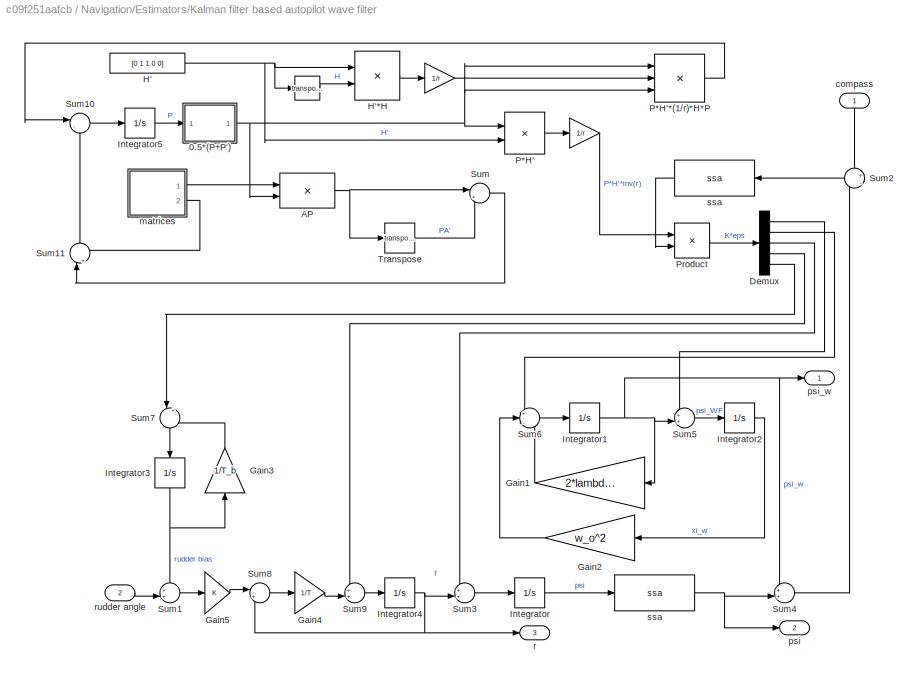
BLOCK [SubSystem] Navigation/Estimators/Kalman filter based autopilot wave filter
  Ports = [2, 3]
  RequestExecContextInheritance = off
BLOCK [Math] Navigation/Estimators/Kalman filter based autopilot wave filter/  
  Operator = transpose
  Ports = [1, 1]
  SignedPower = on
BLOCK [Gain] Navigation/Estimators/Kalman filter based autopilot wave filter/    
  Gain = 1/r
  OutDataTypeStr = Inherit: Same as input
  ParamDataTypeStr = Inherit: Same as input
  SaturateOnIntegerOverflow = on
BLOCK [Gain] Navigation/Estimators/Kalman filter based autopilot wave filter/     
  Gain = 1/r
  OutDataTypeStr = Inherit: Same as input
  ParamDataTypeStr = Inherit: Same as input
  SaturateOnIntegerOverflow = on
BLOCK [SubSystem] Navigation/Estimators/Kalman filter based autopilot wave filter/0.5*(P+P')
  Ports = [1, 1]
  RequestExecContextInheritance = off
BLOCK [Math] Navigation/Estimators/Kalman filter based autopilot wave filter/0.5*(P+P')/    
  Operator = transpose
  Ports = [1, 1]
  SignedPower = on
BLOCK [Gain] Navigation/Estimators/Kalman filter based autopilot wave filter/0.5*(P+P')/Gain6
  Gain = 0.5
  OutDataTypeStr = Inherit: Same as input
  ParamDataTypeStr = Inherit: Same as input
  SaturateOnIntegerOverflow = on
BLOCK [Inport] Navigation/Estimators/Kalman filter based autopilot wave filter/0.5*(P+P')/P
BLOCK [Outport] Navigation/Estimators/Kalman filter based autopilot wave filter/0.5*(P+P')/P=P'
  VectorParamsAs1DForOutWhenUnconnected = off
BLOCK [Sum] Navigation/Estimators/Kalman filter based autopilot wave filter/0.5*(P+P')/Sum12
  Inputs = |++
  Ports = [2, 1]
  SaturateOnIntegerOverflow = on
BLOCK [Product] Navigation/Estimators/Kalman filter based autopilot wave filter/AP
  Multiplication = Matrix(*)
  OutDataTypeStr = Inherit: Same as first input
  Ports = [2, 1]
  SaturateOnIntegerOverflow = on
BLOCK [Demux] Navigation/Estimators/Kalman filter based autopilot wave filter/Demux
  DisplayOption = none
  Outputs = 5
  Ports = [1, 5]
BLOCK [Gain] Navigation/Estimators/Kalman filter based autopilot wave filter/Gain1
  Gain = 2*lambda*w_o
  OutDataTypeStr = Inherit: Same as input
  ParamDataTypeStr = Inherit: Same as input
  SaturateOnIntegerOverflow = on
BLOCK [Gain] Navigation/Estimators/Kalman filter based autopilot wave filter/Gain2
  Gain = w_o^2
  OutDataTypeStr = Inherit: Same as input
  ParamDataTypeStr = Inherit: Same as input
  SaturateOnIntegerOverflow = on
BLOCK [Gain] Navigation/Estimators/Kalman filter based autopilot wave filter/Gain3
  Gain = 1/T_b
  NameLocation = left
  OutDataTypeStr = Inherit: Same as input
  ParamDataTypeStr = Inherit: Same as input
  SaturateOnIntegerOverflow = on
BLOCK [Gain] Navigation/Estimators/Kalman filter based autopilot wave filter/Gain4
  Gain = 1/T
  NameLocation = top
  OutDataTypeStr = Inherit: Same as input
  ParamDataTypeStr = Inherit: Same as input
  SaturateOnIntegerOverflow = on
BLOCK [Gain] Navigation/Estimators/Kalman filter based autopilot wave filter/Gain5
  Gain = K
  NameLocation = top
  OutDataTypeStr = Inherit: Same as input
  ParamDataTypeStr = Inherit: Same as input
  SaturateOnIntegerOverflow = on
BLOCK [Constant] Navigation/Estimators/Kalman filter based autopilot wave filter/H'
  Value = [0 1 1 0 0]
BLOCK [Product] Navigation/Estimators/Kalman filter based autopilot wave filter/H'*H
  Multiplication = Matrix(*)
  OutDataTypeStr = Inherit: Same as first input
  Ports = [2, 1]
  SaturateOnIntegerOverflow = on
BLOCK [Integrator] Navigation/Estimators/Kalman filter based autopilot wave filter/Integrator
  Ports = [1, 1]
BLOCK [Integrator] Navigation/Estimators/Kalman filter based autopilot wave filter/Integrator1
  Ports = [1, 1]
BLOCK [Integrator] Navigation/Estimators/Kalman filter based autopilot wave filter/Integrator2
  Ports = [1, 1]
BLOCK [Integrator] Navigation/Estimators/Kalman filter based autopilot wave filter/Integrator3
  NameLocation = right
  Ports = [1, 1]
BLOCK [Integrator] Navigation/Estimators/Kalman filter based autopilot wave filter/Integrator4
  Ports = [1, 1]
BLOCK [Integrator] Navigation/Estimators/Kalman filter based autopilot wave filter/Integrator5
  InitialCondition = P0
  Ports = [1, 1]
BLOCK [Product] Navigation/Estimators/Kalman filter based autopilot wave filter/P*H'
  Inputs = **
  Multiplication = Matrix(*)
  OutDataTypeStr = Inherit: Same as first input
  Ports = [2, 1]
  SaturateOnIntegerOverflow = on
BLOCK [Product] Navigation/Estimators/Kalman filter based autopilot wave filter/P*H'*(1//r)*H*P
  Inputs = ***
  Multiplication = Matrix(*)
  OutDataTypeStr = Inherit: Same as first input
  Ports = [3, 1]
  SaturateOnIntegerOverflow = on
BLOCK [Product] Navigation/Estimators/Kalman filter based autopilot wave filter/Product
  OutDataTypeStr = Inherit: Same as first input
  Ports = [2, 1]
  SaturateOnIntegerOverflow = on
BLOCK [Sum] Navigation/Estimators/Kalman filter based autopilot wave filter/Sum
  Inputs = |++
  Ports = [2, 1]
  SaturateOnIntegerOverflow = on
BLOCK [Sum] Navigation/Estimators/Kalman filter based autopilot wave filter/Sum1
  InputSameDT = on
  Inputs = ++|
  OutDataTypeStr = Inherit: Same as first input
  Ports = [2, 1]
  SaturateOnIntegerOverflow = on
BLOCK [Sum] Navigation/Estimators/Kalman filter based autopilot wave filter/Sum10
  Inputs = |-+
  Ports = [2, 1]
  SaturateOnIntegerOverflow = on
BLOCK [Sum] Navigation/Estimators/Kalman filter based autopilot wave filter/Sum11
  Inputs = |++
  NameLocation = right
  Ports = [2, 1]
  SaturateOnIntegerOverflow = on
BLOCK [Sum] Navigation/Estimators/Kalman filter based autopilot wave filter/Sum2
  InputSameDT = on
  Inputs = +|-
  OutDataTypeStr = Inherit: Same as first input
  Ports = [2, 1]
  SaturateOnIntegerOverflow = on
BLOCK [Sum] Navigation/Estimators/Kalman filter based autopilot wave filter/Sum3
  InputSameDT = on
  Inputs = ++|
  NameLocation = top
  OutDataTypeStr = Inherit: Same as first input
  Ports = [2, 1]
  SaturateOnIntegerOverflow = on
BLOCK [Sum] Navigation/Estimators/Kalman filter based autopilot wave filter/Sum4
  InputSameDT = on
  Inputs = ++|
  NameLocation = top
  OutDataTypeStr = Inherit: Same as first input
  Ports = [2, 1]
  SaturateOnIntegerOverflow = on
BLOCK [Sum] Navigation/Estimators/Kalman filter based autopilot wave filter/Sum5
  InputSameDT = on
  Inputs = ++|
  NameLocation = top
  OutDataTypeStr = Inherit: Same as first input
  Ports = [2, 1]
  SaturateOnIntegerOverflow = on
BLOCK [Sum] Navigation/Estimators/Kalman filter based autopilot wave filter/Sum6
  InputSameDT = on
  Inputs = +--
  NameLocation = top
  OutDataTypeStr = Inherit: Same as first input
  Ports = [3, 1]
  SaturateOnIntegerOverflow = on
BLOCK [Sum] Navigation/Estimators/Kalman filter based autopilot wave filter/Sum7
  InputSameDT = on
  Inputs = |+-
  NameLocation = right
  OutDataTypeStr = Inherit: Same as first input
  Ports = [2, 1]
  SaturateOnIntegerOverflow = on
BLOCK [Sum] Navigation/Estimators/Kalman filter based autopilot wave filter/Sum8
  InputSameDT = on
  Inputs = |+-
  OutDataTypeStr = Inherit: Same as first input
  Ports = [2, 1]
  SaturateOnIntegerOverflow = on
BLOCK [Sum] Navigation/Estimators/Kalman filter based autopilot wave filter/Sum9
  InputSameDT = on
  Inputs = ++|
  NameLocation = top
  OutDataTypeStr = Inherit: Same as first input
  Ports = [2, 1]
  SaturateOnIntegerOverflow = on
BLOCK [Math] Navigation/Estimators/Kalman filter based autopilot wave filter/Transpose
  Operator = transpose
  Ports = [1, 1]
  SignedPower = on
BLOCK [Inport] Navigation/Estimators/Kalman filter based autopilot wave filter/compass
  NameLocation = right
BLOCK [SubSystem] Navigation/Estimators/Kalman filter based autopilot wave filter/matrices
  Ports = [0, 2]
  RequestExecContextInheritance = off
BLOCK [Outport] Navigation/Estimators/Kalman filter based autopilot wave filter/matrices/A
  VectorParamsAs1DForOutWhenUnconnected = off
BLOCK [Constant] Navigation/Estimators/Kalman filter based autopilot wave filter/matrices/A-matrix
  Value = [0 1 0 0 0;  -w_o^2  -2*w_o*lambda 0 0 0; 0 0 0 1 0; 0 0 0 -1/T -K/T; 0 0 0 0 -1/T_b]
BLOCK [Outport] Navigation/Estimators/Kalman filter based autopilot wave filter/matrices/EQE'
  Port = 2
  VectorParamsAs1DForOutWhenUnconnected = off
BLOCK [Constant] Navigation/Estimators/Kalman filter based autopilot wave filter/matrices/EQE'-matrix
  Value = [0 0 0 0 0; 0 q1 0 0 0; 0 0 0 0 0; 0 0 0 q2 0; 0 0 0 0 q3]
BLOCK [Outport] Navigation/Estimators/Kalman filter based autopilot wave filter/psi
  Port = 2
  VectorParamsAs1DForOutWhenUnconnected = off
BLOCK [Outport] Navigation/Estimators/Kalman filter based autopilot wave filter/psi_w
  VectorParamsAs1DForOutWhenUnconnected = off
BLOCK [Outport] Navigation/Estimators/Kalman filter based autopilot wave filter/r
  Port = 3
  VectorParamsAs1DForOutWhenUnconnected = off
BLOCK [Inport] Navigation/Estimators/Kalman filter based autopilot wave filter/rudder angle
  Port = 2
BLOCK [Reference] Navigation/Estimators/Kalman filter based autopilot wave filter/ssa   REF=$bdroot/Utilities/Math Operations/ssa
  NameLocation = top
  Ports = [1, 1]
  SourceBlock = $bdroot/Utilities/Math Operations/ssa
  SourceType = SubSystem
BLOCK [Reference] Navigation/Estimators/Kalman filter based autopilot wave filter/ssa    REF=$bdroot/Utilities/Math Operations/ssa
  Ports = [1, 1]
  SourceBlock = $bdroot/Utilities/Math Operations/ssa
  SourceType = SubSystem
BLOCK [SubSystem] Navigation/Estimators/Passive DP wave filter
  Ports = [2, 3]
  RequestExecContextInheritance = off
BLOCK [Demux] Navigation/Estimators/Passive DP wave filter/Demux
  DisplayOption = none
  Outputs = 3
  Ports = [1, 3]
BLOCK [Demux] Navigation/Estimators/Passive DP wave filter/Demux1
  DisplayOption = none
  NameLocation = top
  Outputs = 3
  Ports = [1, 3]
BLOCK [Gain] Navigation/Estimators/Passive DP wave filter/Gain1
  Gain = 2*lambda*w_o
  Multiplication = Matrix(K*u)
  OutDataTypeStr = Inherit: Same as input
  ParamDataTypeStr = Inherit: Same as input
  SaturateOnIntegerOverflow = on
BLOCK [Gain] Navigation/Estimators/Passive DP wave filter/Gain2
  Gain = w_o*w_o
  Multiplication = Matrix(K*u)
  OutDataTypeStr = Inherit: Same as input
  ParamDataTypeStr = Inherit: Same as input
  SaturateOnIntegerOverflow = on
BLOCK [Gain] Navigation/Estimators/Passive DP wave filter/Gain3
  Gain = inv(M)
  Multiplication = Matrix(K*u)
  NameLocation = top
  OutDataTypeStr = Inherit: Same as input
  ParamDataTypeStr = Inherit: Same as input
  SaturateOnIntegerOverflow = on
BLOCK [Gain] Navigation/Estimators/Passive DP wave filter/Gain6
  Gain = D
  Multiplication = Matrix(K*u)
  OutDataTypeStr = Inherit: Same as input
  ParamDataTypeStr = Inherit: Same as input
  SaturateOnIntegerOverflow = on
BLOCK [Integrator] Navigation/Estimators/Passive DP wave filter/Integrator
  Ports = [1, 1]
BLOCK [Integrator] Navigation/Estimators/Passive DP wave filter/Integrator1
  Ports = [1, 1]
BLOCK [Integrator] Navigation/Estimators/Passive DP wave filter/Integrator2
  Ports = [1, 1]
BLOCK [Integrator] Navigation/Estimators/Passive DP wave filter/Integrator3
  NameLocation = right
  Ports = [1, 1]
BLOCK [Integrator] Navigation/Estimators/Passive DP wave filter/Integrator4
  Ports = [1, 1]
BLOCK [Gain] Navigation/Estimators/Passive DP wave filter/K11
  Gain = -2*(eye(3)-lambda)*diag([w_c(1,1)/w_o(1,1) w_c(2,2)/w_o(2,2) w_c(3,3)/w_o(3,3)])
  Multiplication = Matrix(K*u)
  NameLocation = right
  OutDataTypeStr = Inherit: Same as input
  ParamDataTypeStr = Inherit: Same as input
  SaturateOnIntegerOverflow = on
BLOCK [Gain] Navigation/Estimators/Passive DP wave filter/K12
  Gain = 2*w_o*(eye(3)-lambda)
  Multiplication = Matrix(K*u)
  NameLocation = right
  OutDataTypeStr = Inherit: Same as input
  ParamDataTypeStr = Inherit: Same as input
  SaturateOnIntegerOverflow = on
BLOCK [Gain] Navigation/Estimators/Passive DP wave filter/K2
  Gain = w_c
  Multiplication = Matrix(K*u)
  NameLocation = right
  OutDataTypeStr = Inherit: Same as input
  ParamDataTypeStr = Inherit: Same as input
  SaturateOnIntegerOverflow = on
BLOCK [Gain] Navigation/Estimators/Passive DP wave filter/K3
  Gain = K3
  Multiplication = Matrix(K*u)
  NameLocation = right
  OutDataTypeStr = Inherit: Same as input
  ParamDataTypeStr = Inherit: Same as input
  SaturateOnIntegerOverflow = on
BLOCK [Gain] Navigation/Estimators/Passive DP wave filter/K4
  Gain = K4
  Multiplication = Matrix(K*u)
  NameLocation = right
  OutDataTypeStr = Inherit: Same as input
  ParamDataTypeStr = Inherit: Same as input
  SaturateOnIntegerOverflow = on
BLOCK [Mux] Navigation/Estimators/Passive DP wave filter/Mux
  DisplayOption = bar
  Inputs = 3
  Ports = [3, 1]
BLOCK [Mux] Navigation/Estimators/Passive DP wave filter/Mux1
  DisplayOption = bar
  Inputs = 3
  NameLocation = top
  Ports = [3, 1]
BLOCK [Reference] Navigation/Estimators/Passive DP wave filter/Rotation matrix in yaw     REF=$bdroot/Modelling/Kinematics/Rotation matrix
in yaw 
  Ports = [2, 1]
  SourceBlock = $bdroot/Modelling/Kinematics/Rotation matrix\nin yaw
BLOCK [Selector] Navigation/Estimators/Passive DP wave filter/Selector
  IndexOptions = Index vector (dialog)
  Indices = [3]
  InputPortWidth = 3
  NameLocation = top
  OutputSizes = 1
  Ports = [1, 1]
BLOCK [Sum] Navigation/Estimators/Passive DP wave filter/Sum1
  InputSameDT = on
  Inputs = ++|
  OutDataTypeStr = Inherit: Same as first input
  Ports = [2, 1]
  SaturateOnIntegerOverflow = on
BLOCK [Sum] Navigation/Estimators/Passive DP wave filter/Sum2
  InputSameDT = on
  Inputs = +|-
  OutDataTypeStr = Inherit: Same as first input
  Ports = [2, 1]
  SaturateOnIntegerOverflow = on
BLOCK [Sum] Navigation/Estimators/Passive DP wave filter/Sum3
  InputSameDT = on
  Inputs = ++|
  NameLocation = top
  OutDataTypeStr = Inherit: Same as first input
  Ports = [2, 1]
  SaturateOnIntegerOverflow = on
BLOCK [Sum] Navigation/Estimators/Passive DP wave filter/Sum4
  InputSameDT = on
  Inputs = ++|
  NameLocation = top
  OutDataTypeStr = Inherit: Same as first input
  Ports = [2, 1]
  SaturateOnIntegerOverflow = on
BLOCK [Sum] Navigation/Estimators/Passive DP wave filter/Sum5
  InputSameDT = on
  Inputs = ++|
  NameLocation = top
  OutDataTypeStr = Inherit: Same as first input
  Ports = [2, 1]
  SaturateOnIntegerOverflow = on
BLOCK [Sum] Navigation/Estimators/Passive DP wave filter/Sum6
  InputSameDT = on
  Inputs = +--
  NameLocation = top
  OutDataTypeStr = Inherit: Same as first input
  Ports = [3, 1]
  SaturateOnIntegerOverflow = on
BLOCK [Sum] Navigation/Estimators/Passive DP wave filter/Sum7
  InputSameDT = on
  Inputs = |+-
  NameLocation = right
  OutDataTypeStr = Inherit: Same as first input
  Ports = [2, 1]
  SaturateOnIntegerOverflow = on
BLOCK [Sum] Navigation/Estimators/Passive DP wave filter/Sum8
  InputSameDT = on
  Inputs = ++-
  OutDataTypeStr = Inherit: Same as first input
  Ports = [3, 1]
  SaturateOnIntegerOverflow = on
BLOCK [Reference] Navigation/Estimators/Passive DP wave filter/Transposed rotation matrix in yaw   REF=$bdroot/Modelling/Kinematics/Transposed rotation
 matrix in yaw
  NameLocation = left
  Ports = [2, 1]
  SourceBlock = $bdroot/Modelling/Kinematics/Transposed rotation\n matrix in yaw
BLOCK [Reference] Navigation/Estimators/Passive DP wave filter/Transposed rotation matrix in yaw       REF=$bdroot/Modelling/Kinematics/Transposed rotation
 matrix in yaw
  NameLocation = left
  Ports = [2, 1]
  SourceBlock = $bdroot/Modelling/Kinematics/Transposed rotation\n matrix in yaw
BLOCK [Outport] Navigation/Estimators/Passive DP wave filter/eta
  Port = 2
  VectorParamsAs1DForOutWhenUnconnected = off
BLOCK [Outport] Navigation/Estimators/Passive DP wave filter/eta_w
  VectorParamsAs1DForOutWhenUnconnected = off
BLOCK [Gain] Navigation/Estimators/Passive DP wave filter/inv(T_b)
  Gain = diag([1/T_b(1,1) 1/T_b(2,2) 1/T_b(3,3)])
  Multiplication = Matrix(K*u)
  NameLocation = right
  OutDataTypeStr = Inherit: Same as input
  ParamDataTypeStr = Inherit: Same as input
  SaturateOnIntegerOverflow = on
BLOCK [Outport] Navigation/Estimators/Passive DP wave filter/nu
  Port = 3
  VectorParamsAs1DForOutWhenUnconnected = off
BLOCK [Reference] Navigation/Estimators/Passive DP wave filter/ssa   REF=$bdroot/Utilities/Math Operations/ssa
  Ports = [1, 1]
  SourceBlock = $bdroot/Utilities/Math Operations/ssa
  SourceType = SubSystem
BLOCK [Reference] Navigation/Estimators/Passive DP wave filter/ssa     REF=$bdroot/Utilities/Math Operations/ssa
  NameLocation = top
  Ports = [1, 1]
  SourceBlock = $bdroot/Utilities/Math Operations/ssa
  SourceType = SubSystem
BLOCK [Inport] Navigation/Estimators/Passive DP wave filter/tau
  Port = 2
BLOCK [Inport] Navigation/Estimators/Passive DP wave filter/y
BLOCK [SubSystem] Navigation/Estimators/Passive autopilot wave filter 1
  Ports = [2, 3]
  RequestExecContextInheritance = off
BLOCK [Gain] Navigation/Estimators/Passive autopilot wave filter 1/Gain1
  Gain = 2*lambda*w_o
  OutDataTypeStr = Inherit: Same as input
  ParamDataTypeStr = Inherit: Same as input
  SaturateOnIntegerOverflow = on
BLOCK [Gain] Navigation/Estimators/Passive autopilot wave filter 1/Gain2
  Gain = w_o^2
  OutDataTypeStr = Inherit: Same as input
  ParamDataTypeStr = Inherit: Same as input
  SaturateOnIntegerOverflow = on
BLOCK [Gain] Navigation/Estimators/Passive autopilot wave filter 1/Gain3
  Gain = 1/T_b
  NameLocation = left
  OutDataTypeStr = Inherit: Same as input
  ParamDataTypeStr = Inherit: Same as input
  SaturateOnIntegerOverflow = on
BLOCK [Gain] Navigation/Estimators/Passive autopilot wave filter 1/Gain4
  Gain = 1/T
  NameLocation = top
  OutDataTypeStr = Inherit: Same as input
  ParamDataTypeStr = Inherit: Same as input
  SaturateOnIntegerOverflow = on
BLOCK [Gain] Navigation/Estimators/Passive autopilot wave filter 1/Gain5
  Gain = K
  NameLocation = top
  OutDataTypeStr = Inherit: Same as input
  ParamDataTypeStr = Inherit: Same as input
  SaturateOnIntegerOverflow = on
BLOCK [Integrator] Navigation/Estimators/Passive autopilot wave filter 1/Integrator
  Ports = [1, 1]
BLOCK [Integrator] Navigation/Estimators/Passive autopilot wave filter 1/Integrator1
  Ports = [1, 1]
BLOCK [Integrator] Navigation/Estimators/Passive autopilot wave filter 1/Integrator2
  Ports = [1, 1]
BLOCK [Integrator] Navigation/Estimators/Passive autopilot wave filter 1/Integrator3
  NameLocation = right
  Ports = [1, 1]
BLOCK [Integrator] Navigation/Estimators/Passive autopilot wave filter 1/Integrator4
  Ports = [1, 1]
BLOCK [Gain] Navigation/Estimators/Passive autopilot wave filter 1/K1
  Gain = -2*w_c*(1.0-lambda)/w_o
  NameLocation = right
  OutDataTypeStr = Inherit: Same as input
  ParamDataTypeStr = Inherit: Same as input
  SaturateOnIntegerOverflow = on
BLOCK [Gain] Navigation/Estimators/Passive autopilot wave filter 1/K2
  Gain = 2*w_o*(1.0-lambda)
  NameLocation = right
  OutDataTypeStr = Inherit: Same as input
  ParamDataTypeStr = Inherit: Same as input
  SaturateOnIntegerOverflow = on
BLOCK [Gain] Navigation/Estimators/Passive autopilot wave filter 1/K3
  Gain = w_c
  NameLocation = right
  OutDataTypeStr = Inherit: Same as input
  ParamDataTypeStr = Inherit: Same as input
  SaturateOnIntegerOverflow = on
BLOCK [Gain] Navigation/Estimators/Passive autopilot wave filter 1/K4
  Gain = K4
  NameLocation = right
  OutDataTypeStr = Inherit: Same as input
  ParamDataTypeStr = Inherit: Same as input
  SaturateOnIntegerOverflow = on
BLOCK [Gain] Navigation/Estimators/Passive autopilot wave filter 1/K5
  Gain = K5
  NameLocation = right
  OutDataTypeStr = Inherit: Same as input
  ParamDataTypeStr = Inherit: Same as input
  SaturateOnIntegerOverflow = on
BLOCK [Sum] Navigation/Estimators/Passive autopilot wave filter 1/Sum1
  InputSameDT = on
  Inputs = -+|
  OutDataTypeStr = Inherit: Same as first input
  Ports = [2, 1]
  SaturateOnIntegerOverflow = on
BLOCK [Sum] Navigation/Estimators/Passive autopilot wave filter 1/Sum2
  InputSameDT = on
  Inputs = +|-
  OutDataTypeStr = Inherit: Same as first input
  Ports = [2, 1]
  SaturateOnIntegerOverflow = on
BLOCK [Sum] Navigation/Estimators/Passive autopilot wave filter 1/Sum3
  InputSameDT = on
  Inputs = ++|
  NameLocation = top
  OutDataTypeStr = Inherit: Same as first input
  Ports = [2, 1]
  SaturateOnIntegerOverflow = on
BLOCK [Sum] Navigation/Estimators/Passive autopilot wave filter 1/Sum4
  InputSameDT = on
  Inputs = ++|
  NameLocation = top
  OutDataTypeStr = Inherit: Same as first input
  Ports = [2, 1]
  SaturateOnIntegerOverflow = on
BLOCK [Sum] Navigation/Estimators/Passive autopilot wave filter 1/Sum5
  InputSameDT = on
  Inputs = ++|
  NameLocation = top
  OutDataTypeStr = Inherit: Same as first input
  Ports = [2, 1]
  SaturateOnIntegerOverflow = on
BLOCK [Sum] Navigation/Estimators/Passive autopilot wave filter 1/Sum6
  InputSameDT = on
  Inputs = +--
  NameLocation = top
  OutDataTypeStr = Inherit: Same as first input
  Ports = [3, 1]
  SaturateOnIntegerOverflow = on
BLOCK [Sum] Navigation/Estimators/Passive autopilot wave filter 1/Sum7
  InputSameDT = on
  Inputs = |+-
  NameLocation = right
  OutDataTypeStr = Inherit: Same as first input
  Ports = [2, 1]
  SaturateOnIntegerOverflow = on
BLOCK [Sum] Navigation/Estimators/Passive autopilot wave filter 1/Sum8
  InputSameDT = on
  Inputs = |+-
  OutDataTypeStr = Inherit: Same as first input
  Ports = [2, 1]
  SaturateOnIntegerOverflow = on
BLOCK [Sum] Navigation/Estimators/Passive autopilot wave filter 1/Sum9
  InputSameDT = on
  Inputs = ++|
  NameLocation = top
  OutDataTypeStr = Inherit: Same as first input
  Ports = [2, 1]
  SaturateOnIntegerOverflow = on
BLOCK [Inport] Navigation/Estimators/Passive autopilot wave filter 1/compass
BLOCK [Outport] Navigation/Estimators/Passive autopilot wave filter 1/psi
  Port = 2
  VectorParamsAs1DForOutWhenUnconnected = off
BLOCK [Outport] Navigation/Estimators/Passive autopilot wave filter 1/psi_w
  VectorParamsAs1DForOutWhenUnconnected = off
BLOCK [Outport] Navigation/Estimators/Passive autopilot wave filter 1/r
  Port = 3
  VectorParamsAs1DForOutWhenUnconnected = off
BLOCK [Inport] Navigation/Estimators/Passive autopilot wave filter 1/rudder angle
  Port = 2
BLOCK [Reference] Navigation/Estimators/Passive autopilot wave filter 1/ssa   REF=$bdroot/Utilities/Math Operations/ssa
  Ports = [1, 1]
  SourceBlock = $bdroot/Utilities/Math Operations/ssa
  SourceType = SubSystem
BLOCK [Reference] Navigation/Estimators/Passive autopilot wave filter 1/ssa    REF=$bdroot/Utilities/Math Operations/ssa
  NameLocation = top
  Ports = [1, 1]
  SourceBlock = $bdroot/Utilities/Math Operations/ssa
  SourceType = SubSystem
BLOCK [SubSystem] Navigation/Estimators/Passive autopilot wave filter 2
  Ports = [2, 3]
  RequestExecContextInheritance = off
BLOCK [Gain] Navigation/Estimators/Passive autopilot wave filter 2/Gain1
  Gain = 2*lambda*w_o
  OutDataTypeStr = Inherit: Same as input
  ParamDataTypeStr = Inherit: Same as input
  SaturateOnIntegerOverflow = on
BLOCK [Gain] Navigation/Estimators/Passive autopilot wave filter 2/Gain2
  Gain = w_o^2
  OutDataTypeStr = Inherit: Same as input
  ParamDataTypeStr = Inherit: Same as input
  SaturateOnIntegerOverflow = on
BLOCK [Gain] Navigation/Estimators/Passive autopilot wave filter 2/Gain3
  Gain = 1/T_b
  NameLocation = top
  OutDataTypeStr = Inherit: Same as input
  ParamDataTypeStr = Inherit: Same as input
  SaturateOnIntegerOverflow = on
BLOCK [Integrator] Navigation/Estimators/Passive autopilot wave filter 2/Integrator
  Ports = [1, 1]
BLOCK [Integrator] Navigation/Estimators/Passive autopilot wave filter 2/Integrator1
  Ports = [1, 1]
BLOCK [Integrator] Navigation/Estimators/Passive autopilot wave filter 2/Integrator2
  Ports = [1, 1]
BLOCK [Integrator] Navigation/Estimators/Passive autopilot wave filter 2/Integrator3
  Ports = [1, 1]
BLOCK [Gain] Navigation/Estimators/Passive autopilot wave filter 2/K1
  Gain = -2*w_c*(1.0-lambda)/w_o
  NameLocation = right
  OutDataTypeStr = Inherit: Same as input
  ParamDataTypeStr = Inherit: Same as input
  SaturateOnIntegerOverflow = on
BLOCK [Gain] Navigation/Estimators/Passive autopilot wave filter 2/K2
  Gain = 2*w_o*(1.0-lambda)
  NameLocation = right
  OutDataTypeStr = Inherit: Same as input
  ParamDataTypeStr = Inherit: Same as input
  SaturateOnIntegerOverflow = on
BLOCK [Gain] Navigation/Estimators/Passive autopilot wave filter 2/K3
  Gain = w_c
  NameLocation = right
  OutDataTypeStr = Inherit: Same as input
  ParamDataTypeStr = Inherit: Same as input
  SaturateOnIntegerOverflow = on
BLOCK [Gain] Navigation/Estimators/Passive autopilot wave filter 2/K4
  Gain = K4
  NameLocation = right
  OutDataTypeStr = Inherit: Same as input
  ParamDataTypeStr = Inherit: Same as input
  SaturateOnIntegerOverflow = on
BLOCK [TransferFcn] Navigation/Estimators/Passive autopilot wave filter 2/LP filter
  Denominator = [1 w_c]
  Numerator = [w_c]
BLOCK [TransferFcn] Navigation/Estimators/Passive autopilot wave filter 2/Notch filter
  Denominator = [1 2*w_o w_o^2]
  Numerator = [1 2*zeta_n*w_o w_o*w_o]
BLOCK [Sum] Navigation/Estimators/Passive autopilot wave filter 2/Sum1
  InputSameDT = on
  Inputs = ++|
  OutDataTypeStr = Inherit: Same as first input
  Ports = [2, 1]
  SaturateOnIntegerOverflow = on
BLOCK [Sum] Navigation/Estimators/Passive autopilot wave filter 2/Sum2
  InputSameDT = on
  Inputs = +|-
  OutDataTypeStr = Inherit: Same as first input
  Ports = [2, 1]
  SaturateOnIntegerOverflow = on
BLOCK [Sum] Navigation/Estimators/Passive autopilot wave filter 2/Sum3
  InputSameDT = on
  Inputs = ++|
  NameLocation = top
  OutDataTypeStr = Inherit: Same as first input
  Ports = [2, 1]
  SaturateOnIntegerOverflow = on
BLOCK [Sum] Navigation/Estimators/Passive autopilot wave filter 2/Sum4
  InputSameDT = on
  Inputs = ++|
  NameLocation = top
  OutDataTypeStr = Inherit: Same as first input
  Ports = [2, 1]
  SaturateOnIntegerOverflow = on
BLOCK [Sum] Navigation/Estimators/Passive autopilot wave filter 2/Sum5
  InputSameDT = on
  Inputs = ++|
  NameLocation = top
  OutDataTypeStr = Inherit: Same as first input
  Ports = [2, 1]
  SaturateOnIntegerOverflow = on
BLOCK [Sum] Navigation/Estimators/Passive autopilot wave filter 2/Sum6
  InputSameDT = on
  Inputs = +--
  NameLocation = top
  OutDataTypeStr = Inherit: Same as first input
  Ports = [3, 1]
  SaturateOnIntegerOverflow = on
BLOCK [Sum] Navigation/Estimators/Passive autopilot wave filter 2/Sum7
  InputSameDT = on
  Inputs = |+-
  OutDataTypeStr = Inherit: Same as first input
  Ports = [2, 1]
  SaturateOnIntegerOverflow = on
BLOCK [Inport] Navigation/Estimators/Passive autopilot wave filter 2/compass
BLOCK [Outport] Navigation/Estimators/Passive autopilot wave filter 2/psi
  Port = 2
  VectorParamsAs1DForOutWhenUnconnected = off
BLOCK [Outport] Navigation/Estimators/Passive autopilot wave filter 2/psi_w
  VectorParamsAs1DForOutWhenUnconnected = off
BLOCK [Outport] Navigation/Estimators/Passive autopilot wave filter 2/r
  Port = 3
  VectorParamsAs1DForOutWhenUnconnected = off
BLOCK [Inport] Navigation/Estimators/Passive autopilot wave filter 2/rate gyro
  Port = 2
BLOCK [Reference] Navigation/Estimators/Passive autopilot wave filter 2/ssa   REF=$bdroot/Utilities/Math Operations/ssa
  Ports = [1, 1]
  SourceBlock = $bdroot/Utilities/Math Operations/ssa
  SourceType = SubSystem
BLOCK [Reference] Navigation/Estimators/Passive autopilot wave filter 2/ssa    REF=$bdroot/Utilities/Math Operations/ssa
  NameLocation = top
  Ports = [1, 1]
  SourceBlock = $bdroot/Utilities/Math Operations/ssa
  SourceType = SubSystem
BLOCK [SubSystem] Navigation/Sensors 
  Ports = []
  RequestExecContextInheritance = off
BLOCK [SubSystem] Utilities
  Ports = []
  RequestExecContextInheritance = off
BLOCK [SubSystem] Utilities/Dynamics
  Ports = []
  RequestExecContextInheritance = off
BLOCK [SubSystem] Utilities/Dynamics/2nd order time constant
  Ports = [1, 1]
  RequestExecContextInheritance = off
BLOCK [Inport] Utilities/Dynamics/2nd order time constant/In
BLOCK [Outport] Utilities/Dynamics/2nd order time constant/Out
  VectorParamsAs1DForOutWhenUnconnected = off
BLOCK [TransferFcn] Utilities/Dynamics/2nd order time constant/Transfer Fcn1
  Denominator = [1/(1.5/T)^2 2/(1.5/T) 1]
BLOCK [SubSystem] Utilities/Math Operations
  Ports = []
  RequestExecContextInheritance = off
BLOCK [SubSystem] Utilities/Math Operations/Unit Conversion
  Ports = [1, 1]
  RequestExecContextInheritance = off
BLOCK [Gain] Utilities/Math Operations/Unit Conversion/Gain
  Gain = k
  OutDataTypeStr = Inherit: Same as input
  ParamDataTypeStr = Inherit: Same as input
  SaturateOnIntegerOverflow = on
BLOCK [Inport] Utilities/Math Operations/Unit Conversion/In
BLOCK [Outport] Utilities/Math Operations/Unit Conversion/Out
  VectorParamsAs1DForOutWhenUnconnected = off
BLOCK [SubSystem] Utilities/Math Operations/[-inf inf] to [-pi pi]
  Ports = [1, 1]
  RequestExecContextInheritance = off
BLOCK [Constant] Utilities/Math Operations/[-inf inf] to [-pi pi]/Constant
  Value = 2*pi
BLOCK [Gain] Utilities/Math Operations/[-inf inf] to [-pi pi]/Gain
  Gain = pi
  OutDataTypeStr = Inherit: Same as input
  ParamDataTypeStr = Inherit: Same as input
  SaturateOnIntegerOverflow = on
BLOCK [Math] Utilities/Math Operations/[-inf inf] to [-pi pi]/Math Function
  Operator = rem
  Ports = [2, 1]
  SignedPower = on
BLOCK [Saturate] Utilities/Math Operations/[-inf inf] to [-pi pi]/Saturation
  LowerLimit = -1e10
  UpperLimit = 1e10
BLOCK [Signum] Utilities/Math Operations/[-inf inf] to [-pi pi]/Sign
BLOCK [Sum] Utilities/Math Operations/[-inf inf] to [-pi pi]/Sum
  Inputs = |+-
  Ports = [2, 1]
  SaturateOnIntegerOverflow = on
BLOCK [Sum] Utilities/Math Operations/[-inf inf] to [-pi pi]/Sum1
  Inputs = |++
  Ports = [2, 1]
  SaturateOnIntegerOverflow = on
BLOCK [Inport] Utilities/Math Operations/[-inf inf] to [-pi pi]/x [-inf inf]
BLOCK [Outport] Utilities/Math Operations/[-inf inf] to [-pi pi]/y [-pi pi]
  VectorParamsAs1DForOutWhenUnconnected = off
BLOCK [SubSystem] Utilities/Math Operations/[-pi pi] to [-inf inf]
  Ports = [1, 1]
  RequestExecContextInheritance = off
BLOCK [S-Function] Utilities/Math Operations/[-pi pi] to [-inf inf]/S-Function
  EnableBusSupport = off
  FunctionName = pipi2inf
  Ports = [1, 1]
  SFcnIsStateOwnerBlock = off
  SFunctionDeploymentMode = off
BLOCK [Inport] Utilities/Math Operations/[-pi pi] to [-inf inf]/x [-pi pi]
BLOCK [Outport] Utilities/Math Operations/[-pi pi] to [-inf inf]/y [-inf inf]
  VectorParamsAs1DForOutWhenUnconnected = off
BLOCK [SubSystem] Utilities/Math Operations/deg to 180//180
  Ports = [1, 1]
  RequestExecContextInheritance = off
BLOCK [Outport] Utilities/Math Operations/deg to 180//180/-180<y<180
  VectorParamsAs1DForOutWhenUnconnected = off
BLOCK [Constant] Utilities/Math Operations/deg to 180//180/Constant
  Value = 2*180
BLOCK [Gain] Utilities/Math Operations/deg to 180//180/Gain
  Gain = 180
  OutDataTypeStr = Inherit: Same as input
  ParamDataTypeStr = Inherit: Same as input
  SaturateOnIntegerOverflow = on
BLOCK [Math] Utilities/Math Operations/deg to 180//180/Math Function
  Operator = rem
  Ports = [2, 1]
  SignedPower = on
BLOCK [Saturate] Utilities/Math Operations/deg to 180//180/Saturation
  LowerLimit = -1e10
  UpperLimit = 1e10
BLOCK [Signum] Utilities/Math Operations/deg to 180//180/Sign
BLOCK [Sum] Utilities/Math Operations/deg to 180//180/Sum
  Inputs = |+-
  Ports = [2, 1]
  SaturateOnIntegerOverflow = on
BLOCK [Sum] Utilities/Math Operations/deg to 180//180/Sum1
  Inputs = |++
  Ports = [2, 1]
  SaturateOnIntegerOverflow = on
BLOCK [Inport] Utilities/Math Operations/deg to 180//180/x (deg)
BLOCK [SubSystem] Utilities/Math Operations/ssa
  Ports = [1, 1]
  RequestExecContextInheritance = off
BLOCK [Math] Utilities/Math Operations/ssa/ 
  Operator = mod
  Ports = [2, 1]
BLOCK [Constant] Utilities/Math Operations/ssa/Constant
  Value = 2*pi
BLOCK [Constant] Utilities/Math Operations/ssa/Constant1
  Value = pi
BLOCK [Sum] Utilities/Math Operations/ssa/Sum
  Inputs = |++
  Ports = [2, 1]
BLOCK [Sum] Utilities/Math Operations/ssa/Sum1
  Inputs = -+|
  Ports = [2, 1]
BLOCK [Inport] Utilities/Math Operations/ssa/angle
BLOCK [Outport] Utilities/Math Operations/ssa/angle_pipi
BLOCK [SubSystem] Utilities/Simulation tools
  Ports = []
  RequestExecContextInheritance = off
BLOCK [SubSystem] Utilities/Simulation tools/6DOF comparison
  Ports = [2]
  RequestExecContextInheritance = off
BLOCK [Scope] Utilities/Simulation tools/6DOF comparison/6DOF comparison
  Floating = off
  NumInputPorts = 6
  Ports = [6]
  ScopeSpecificationString = C++SS(StrPVP('Location','[766, 70, 1670, 1016]'),StrPVP('Open','off'),MxPVP('AxesTitles',54,'struct(''axes1'',''%<SignalLabel>'',''axes2'',''%<SignalLabel>'',''axes3'',''%<SignalLabel>'',''axes4'',''%<SignalLabel>'',''axes5'',''%<SignalLabel>'',''axes6'',''%<SignalLabel>'')'),StrPVP('ShowLegends','off'),StrPVP('TimeRange','200'),StrPVP('YMin','-0.2~-0.15~-0.5~-0.2~-0.02~-0.015'),StrPVP('YMax','0.3...<+231ch>
BLOCK [Demux] Utilities/Simulation tools/6DOF comparison/Demux1
  DisplayOption = none
  Outputs = 6
  Ports = [1, 6]
BLOCK [Demux] Utilities/Simulation tools/6DOF comparison/Demux2
  DisplayOption = none
  Outputs = 6
  Ports = [1, 6]
BLOCK [Inport] Utilities/Simulation tools/6DOF comparison/In 1
BLOCK [Inport] Utilities/Simulation tools/6DOF comparison/In 2
  Port = 2
BLOCK [Mux] Utilities/Simulation tools/6DOF comparison/Mux
  DisplayOption = bar
  Inputs = 2
  Ports = [2, 1]
BLOCK [Mux] Utilities/Simulation tools/6DOF comparison/Mux1
  DisplayOption = bar
  Inputs = 2
  Ports = [2, 1]
BLOCK [Mux] Utilities/Simulation tools/6DOF comparison/Mux2
  DisplayOption = bar
  Inputs = 2
  Ports = [2, 1]
BLOCK [Mux] Utilities/Simulation tools/6DOF comparison/Mux3
  DisplayOption = bar
  Inputs = 2
  Ports = [2, 1]
BLOCK [Mux] Utilities/Simulation tools/6DOF comparison/Mux4
  DisplayOption = bar
  Inputs = 2
  Ports = [2, 1]
BLOCK [Mux] Utilities/Simulation tools/6DOF comparison/Mux5
  DisplayOption = bar
  Inputs = 2
  Ports = [2, 1]
BLOCK [SubSystem] Utilities/Simulation tools/Signal range error
  Ports = [1]
  RequestExecContextInheritance = off
BLOCK [Sum] Utilities/Simulation tools/Signal range error/Add
  IconShape = rectangular
  Ports = [2, 1]
BLOCK [Constant] Utilities/Simulation tools/Signal range error/Constant
  Value = Values
BLOCK [MinMax] Utilities/Simulation tools/Signal range error/MinMax
  Function = max
  Ports = [1, 1]
BLOCK [MinMax] Utilities/Simulation tools/Signal range error/MinMax1
  Function = max
  Ports = [1, 1]
BLOCK [MinMax] Utilities/Simulation tools/Signal range error/MinMax2
  Ports = [1, 1]
BLOCK [MinMax] Utilities/Simulation tools/Signal range error/MinMax3
  Ports = [1, 1]
BLOCK [Saturate] Utilities/Simulation tools/Signal range error/Saturation
  LowerLimit = 0
  UpperLimit = 1
BLOCK [Saturate] Utilities/Simulation tools/Signal range error/Saturation1
  LowerLimit = 0
  UpperLimit = 1
BLOCK [Signum] Utilities/Simulation tools/Signal range error/Sign
BLOCK [Signum] Utilities/Simulation tools/Signal range error/Sign1
BLOCK [Inport] Utilities/Simulation tools/Signal range error/Signal
BLOCK [Reference] Utilities/Simulation tools/Signal range error/Stop simulation  REF=$bdroot/Utilities/Simulation tools/Stop simulation
  Ports = [1]
  SourceBlock = $bdroot/Utilities/Simulation tools/Stop simulation
  SourceType = Stop simulation
BLOCK [Sum] Utilities/Simulation tools/Signal range error/Subtract
  IconShape = rectangular
  Inputs = +-
  Ports = [2, 1]
BLOCK [Sum] Utilities/Simulation tools/Signal range error/Subtract1
  IconShape = rectangular
  Inputs = -+
  Ports = [2, 1]
BLOCK [S-Function] Utilities/Simulation tools/Stop simulation
  EnableBusSupport = off
  FunctionName = stopSimulation
  Parameters = message
  Ports = [1]
  SFcnIsStateOwnerBlock = off
  SFunctionDeploymentMode = off
BLOCK [SubSystem] Utilities/Visualization
  Ports = []
  RequestExecContextInheritance = off
ANNOTATION (root): MSS Simulink Library This library is part of the Marine Systems Simulator (MSS) The program comes with ABSOLUTELY NO WARRANTY.
ANNOTATION Environment/Wind/Isherwood (1972) wind forces: 6 DOF wind forces and moments using the formulas of Isherwood (1972). Wind coefficients are loaded from the data file: Iserwood72.m Fossen 2004
ANNOTATION Environment/Wind/Relative wind speed and angle of attack: v
ANNOTATION Hydrodynamics/WD for heading1/Wave component loop/[-pi pi] to [0 2pi]: x
ANNOTATION Hydrodynamics/Wave loads (U>0)/Wave loads U = U2/Wave loads for heading1/Wave component loop/[-pi pi] to [0 2pi]: x
ANNOTATION Hydrodynamics/Wave loads (U>0)/Wave loads U = U2/Wave loads for heading2/Wave component loop/[-pi pi] to [0 2pi]: x
ANNOTATION Hydrodynamics/Wave loads for heading1/Wave component loop/[-pi pi] to [0 2pi]: x
ANNOTATION Marine craft models: 3-DOF low-speed models
ANNOTATION Marine craft models: 4-DOF maneuveing models
ANNOTATION Marine craft models: 6-DOF low-speed models 6-DOF interface for 3-DOF models
ANNOTATION Marine craft models: Nomoto models
ANNOTATION Marine craft models: m-file models
ANNOTATION Marine craft models/CyberShipII: etadot
ANNOTATION Marine craft models/CyberShipII: nu
ANNOTATION Marine craft models/CyberShipII: nu_dot
ANNOTATION Marine craft models/Mariner class cargo ship (2nd -order)/Ship model: heading angle
ANNOTATION Marine craft models/Tanker (1st-order)/Ship model: heading angle
ANNOTATION Marine craft models/Tanker (2nd-order)/Ship model: heading angle
ANNOTATION Modelling/Control Surfaces/Rudder: Drag
ANNOTATION Modelling/Control Surfaces/Rudder: Lift
ANNOTATION Modelling/Kinematics: 3 DOF kinematic transformations
ANNOTATION Modelling/Kinematics: 6 DOF kinematic transformations
ANNOTATION Modelling/Kinematics: Euler angles
ANNOTATION Modelling/Kinematics/6 DOF transformation: Theta
ANNOTATION Modelling/Kinematics/6 DOF transformation: omega
ANNOTATION Modelling/Kinematics/6 DOF transformation: v
ANNOTATION Modelling/Kinematics/Transformation of generalized velocity: S'(r_p)
ANNOTATION Modelling/Kinematics/Transformation of generalized velocity: omega
ANNOTATION Modelling/Kinematics/Transformation of generalized velocity: v
ANNOTATION Navigation/Estimators/Kalman filter based autopilot wave filter: r
ANNOTATION Navigation/Estimators/Passive DP wave filter: nu
ANNOTATION Navigation/Estimators/Passive autopilot wave filter 1: r
ANNOTATION Utilities/Math Operations/[-inf inf] to [-pi pi]: r
ANNOTATION Utilities/Math Operations/[-inf inf] to [-pi pi]: x
ANNOTATION Utilities/Math Operations/deg to 180//180: r
ANNOTATION Utilities/Math Operations/deg to 180//180: x
LINE Control/Autopilots/Heading autopilot/D-action1:1 -> Control/Autopilots/Heading autopilot/Sum4:2
LINE Control/Autopilots/Heading autopilot/D-action2:1 -> Control/Autopilots/Heading autopilot/Sum1:4
LINE Control/Autopilots/Heading autopilot/D-action:1 -> Control/Autopilots/Heading autopilot/Sum1:3
LINE Control/Autopilots/Heading autopilot/I-action :1 -> Control/Autopilots/Heading autopilot/Integral:1
LINE Control/Autopilots/Heading autopilot/Integral:1 -> Control/Autopilots/Heading autopilot/Sum1:2
NET Control/Autopilots/Heading autopilot/P-action:1 -> Control/Autopilots/Heading autopilot/I-action :1, Control/Autopilots/Heading autopilot/Sum1:1
LINE Control/Autopilots/Heading autopilot/Sum1:1 -> Control/Autopilots/Heading autopilot/tau_N:1
LINE Control/Autopilots/Heading autopilot/Sum2:1 -> Control/Autopilots/Heading autopilot/ssa :1
LINE Control/Autopilots/Heading autopilot/Sum3:1 -> Control/Autopilots/Heading autopilot/D-action:1
LINE Control/Autopilots/Heading autopilot/Sum4:1 -> Control/Autopilots/Heading autopilot/D-action2:1
LINE Control/Autopilots/Heading autopilot/d//dt(r_d):1 -> Control/Autopilots/Heading autopilot/D-action1:1
LINE Control/Autopilots/Heading autopilot/psi:1 -> Control/Autopilots/Heading autopilot/Sum2:2
LINE Control/Autopilots/Heading autopilot/psi_d:1 -> Control/Autopilots/Heading autopilot/Sum2:1
LINE Control/Autopilots/Heading autopilot/r:1 -> Control/Autopilots/Heading autopilot/Sum3:2
NET Control/Autopilots/Heading autopilot/r_d:1 -> Control/Autopilots/Heading autopilot/Sum3:1, Control/Autopilots/Heading autopilot/Sum4:1
LINE Control/Autopilots/Heading autopilot/ssa :1 -> Control/Autopilots/Heading autopilot/P-action:1
LINE Control/DP/Nonlinear PID/Demux:1 -> Control/DP/Nonlinear PID/Mux:1
LINE Control/DP/Nonlinear PID/Demux:2 -> Control/DP/Nonlinear PID/Mux:2
LINE Control/DP/Nonlinear PID/Demux:3 -> Control/DP/Nonlinear PID/ssa :1
LINE Control/DP/Nonlinear PID/Integrator:1 -> Control/DP/Nonlinear PID/Ki:1
LINE Control/DP/Nonlinear PID/Kd:1 -> Control/DP/Nonlinear PID/Sum1:2
LINE Control/DP/Nonlinear PID/Ki:1 -> Control/DP/Nonlinear PID/Sum3:2
LINE Control/DP/Nonlinear PID/Kp:1 -> Control/DP/Nonlinear PID/Sum3:1
LINE Control/DP/Nonlinear PID/Mux:1 -> Control/DP/Nonlinear PID/Transposed rotation matrix in yaw :2
LINE Control/DP/Nonlinear PID/Sum1:1 -> Control/DP/Nonlinear PID/tau:1
LINE Control/DP/Nonlinear PID/Sum2:1 -> Control/DP/Nonlinear PID/Demux:1
LINE Control/DP/Nonlinear PID/Sum3:1 -> Control/DP/Nonlinear PID/Sum1:1
NET Control/DP/Nonlinear PID/Transposed rotation matrix in yaw :1 -> Control/DP/Nonlinear PID/Integrator:1, Control/DP/Nonlinear PID/Kp:1
NET Control/DP/Nonlinear PID/eta:1 -> Control/DP/Nonlinear PID/Sum2:2, Control/DP/Nonlinear PID/yaw angle:1
LINE Control/DP/Nonlinear PID/eta_ref:1 -> Control/DP/Nonlinear PID/Sum2:1
LINE Control/DP/Nonlinear PID/nu:1 -> Control/DP/Nonlinear PID/Kd:1
LINE Control/DP/Nonlinear PID/ssa :1 -> Control/DP/Nonlinear PID/Mux:3
LINE Control/DP/Nonlinear PID/yaw angle:1 -> Control/DP/Nonlinear PID/Transposed rotation matrix in yaw :1
NET Environment/Current/North-East current/Gain:1 -> Environment/Current/North-East current/cos:1, Environment/Current/North-East current/sin:1
LINE Environment/Current/North-East current/Mux:1 -> Environment/Current/North-East current/nu_c:1
LINE Environment/Current/North-East current/Product1:1 -> Environment/Current/North-East current/Mux:2
LINE Environment/Current/North-East current/Product:1 -> Environment/Current/North-East current/Mux:1
NET Environment/Current/North-East current/V_c (m//s):1 -> Environment/Current/North-East current/Product1:2, Environment/Current/North-East current/Product:2
LINE Environment/Current/North-East current/beta_c (deg):1 -> Environment/Current/North-East current/Gain:1
LINE Environment/Current/North-East current/cos:1 -> Environment/Current/North-East current/Product:1
LINE Environment/Current/North-East current/sin:1 -> Environment/Current/North-East current/Product1:1
NET Environment/Current/North-East current/zero:1 -> Environment/Current/North-East current/Mux:3, Environment/Current/North-East current/Mux:4, Environment/Current/North-East current/Mux:5, Environment/Current/North-East current/Mux:6
LINE Environment/Waves/ Gaussian Random Process/Amp Reg Comp. :1 -> Environment/Waves/ Gaussian Random Process/Dot Product:1
LINE Environment/Waves/ Gaussian Random Process/Dot Product:1 -> Environment/Waves/ Gaussian Random Process/Out:1
LINE Environment/Waves/ Gaussian Random Process/Freq1:1 -> Environment/Waves/ Gaussian Random Process/Product:1
LINE Environment/Waves/ Gaussian Random Process/In1:1 -> Environment/Waves/ Gaussian Random Process/Product:2
LINE Environment/Waves/ Gaussian Random Process/Product:1 -> Environment/Waves/ Gaussian Random Process/Sum:1
LINE Environment/Waves/ Gaussian Random Process/Random Phases1:1 -> Environment/Waves/ Gaussian Random Process/Sum:2
LINE Environment/Waves/ Gaussian Random Process/Sum:1 -> Environment/Waves/ Gaussian Random Process/Trigonometric Function:1
LINE Environment/Waves/ Gaussian Random Process/Trigonometric Function:1 -> Environment/Waves/ Gaussian Random Process/Dot Product:2
LINE Environment/Waves/Encounter frequency correction/Bus Creator:1 -> Environment/Waves/Encounter frequency correction/Waves :1
LINE Environment/Waves/Encounter frequency correction/Bus Selector:1 -> Environment/Waves/Encounter frequency correction/W_wave 2 W_enc (no absolute value):2
NET Environment/Waves/Encounter frequency correction/Bus Selector:2 -> Environment/Waves/Encounter frequency correction/Bus Creator:2, Environment/Waves/Encounter frequency correction/Sum:1
LINE Environment/Waves/Encounter frequency correction/Bus Selector:3 -> Environment/Waves/Encounter frequency correction/Bus Creator:3
LINE Environment/Waves/Encounter frequency correction/Bus Selector:4 -> Environment/Waves/Encounter frequency correction/Terminator:1
LINE Environment/Waves/Encounter frequency correction/Bus Selector:5 -> Environment/Waves/Encounter frequency correction/Bus Creator:5
LINE Environment/Waves/Encounter frequency correction/Psi:1 -> Environment/Waves/Encounter frequency correction/Sum:2
LINE Environment/Waves/Encounter frequency correction/Sum:1 -> Environment/Waves/Encounter frequency correction/W_wave 2 W_enc (no absolute value):3
LINE Environment/Waves/Encounter frequency correction/U:1 -> Environment/Waves/Encounter frequency correction/W_wave 2 W_enc (no absolute value):1
LINE Environment/Waves/Encounter frequency correction/W_wave 2 W_enc (no absolute value):1 -> Environment/Waves/Encounter frequency correction/Bus Creator:1
LINE Environment/Waves/Encounter frequency correction/W_wave 2 W_enc (no absolute value):2 -> Environment/Waves/Encounter frequency correction/Bus Creator:4
LINE Environment/Waves/Encounter frequency correction/Waves:1 -> Environment/Waves/Encounter frequency correction/Bus Selector:1
LINE Environment/Waves/Linear 2nd-order wave spectrum/Linear 2nd-order wave spectrum:1 -> Environment/Waves/Linear 2nd-order wave spectrum/wave amplitude:1
LINE Environment/Waves/Linear 2nd-order wave spectrum/white noise:1 -> Environment/Waves/Linear 2nd-order wave spectrum/Linear 2nd-order wave spectrum:1
LINE Environment/Waves/W_wave 2 W_enc (no absolute value)/Enc. Angle :1 -> Environment/Waves/W_wave 2 W_enc (no absolute value)/Trigonometric Function:1
LINE Environment/Waves/W_wave 2 W_enc (no absolute value)/Gain1:1 -> Environment/Waves/W_wave 2 W_enc (no absolute value)/Sum3:2
LINE Environment/Waves/W_wave 2 W_enc (no absolute value)/Gain2:1 -> Environment/Waves/W_wave 2 W_enc (no absolute value)/Ke:1
LINE Environment/Waves/W_wave 2 W_enc (no absolute value)/Product4:1 -> Environment/Waves/W_wave 2 W_enc (no absolute value)/Gain1:1
LINE Environment/Waves/W_wave 2 W_enc (no absolute value)/Product5:1 -> Environment/Waves/W_wave 2 W_enc (no absolute value)/Gain2:1
NET Environment/Waves/W_wave 2 W_enc (no absolute value)/Sum3:1 -> Environment/Waves/W_wave 2 W_enc (no absolute value)/Product5:1, Environment/Waves/W_wave 2 W_enc (no absolute value)/Product5:2, Environment/Waves/W_wave 2 W_enc (no absolute value)/We (rad//sec):1
LINE Environment/Waves/W_wave 2 W_enc (no absolute value)/Trigonometric Function:1 -> Environment/Waves/W_wave 2 W_enc (no absolute value)/Product4:4
LINE Environment/Waves/W_wave 2 W_enc (no absolute value)/U:1 -> Environment/Waves/W_wave 2 W_enc (no absolute value)/Product4:3
NET Environment/Waves/W_wave 2 W_enc (no absolute value)/W :1 -> Environment/Waves/W_wave 2 W_enc (no absolute value)/Product4:1, Environment/Waves/W_wave 2 W_enc (no absolute value)/Product4:2, Environment/Waves/W_wave 2 W_enc (no absolute value)/Sum3:1
NET Environment/Waves/Wave velocitycalc/Bus Selector:1 -> Environment/Waves/Wave velocitycalc/cos :1, Environment/Waves/Wave velocitycalc/cos:1, Environment/Waves/Wave velocitycalc/sin :1, Environment/Waves/Wave velocitycalc/sin:1
NET Environment/Waves/Wave velocitycalc/Bus Selector:2 -> Environment/Waves/Wave velocitycalc/Product3:1, Environment/Waves/Wave velocitycalc/Product7:2
NET Environment/Waves/Wave velocitycalc/Bus Selector:3 -> Environment/Waves/Wave velocitycalc/Product1:1, Environment/Waves/Wave velocitycalc/Product4:3
LINE Environment/Waves/Wave velocitycalc/Bus Selector:4 -> Environment/Waves/Wave velocitycalc/Sum:3
NET Environment/Waves/Wave velocitycalc/Bus Selector:5 -> Environment/Waves/Wave velocitycalc/Product4:1, Environment/Waves/Wave velocitycalc/zeta:2
LINE Environment/Waves/Wave velocitycalc/Clock:1 -> Environment/Waves/Wave velocitycalc/Product1:2
LINE Environment/Waves/Wave velocitycalc/Gain1:1 -> Environment/Waves/Wave velocitycalc/w:2
LINE Environment/Waves/Wave velocitycalc/Gain:1 -> Environment/Waves/Wave velocitycalc/e^(kz):1
LINE Environment/Waves/Wave velocitycalc/Mux:1 -> Environment/Waves/Wave velocitycalc/V_w NED:1
LINE Environment/Waves/Wave velocitycalc/Product1:1 -> Environment/Waves/Wave velocitycalc/Sum:2
LINE Environment/Waves/Wave velocitycalc/Product2:1 -> Environment/Waves/Wave velocitycalc/Sum5:1
LINE Environment/Waves/Wave velocitycalc/Product3:1 -> Environment/Waves/Wave velocitycalc/Gain:1
NET Environment/Waves/Wave velocitycalc/Product4:1 -> Environment/Waves/Wave velocitycalc/u:2, Environment/Waves/Wave velocitycalc/v:2, Environment/Waves/Wave velocitycalc/w:1
LINE Environment/Waves/Wave velocitycalc/Product6:1 -> Environment/Waves/Wave velocitycalc/Sum5:2
LINE Environment/Waves/Wave velocitycalc/Product7:1 -> Environment/Waves/Wave velocitycalc/Sum:1
LINE Environment/Waves/Wave velocitycalc/Selector1:1 -> Environment/Waves/Wave velocitycalc/Product2:2
LINE Environment/Waves/Wave velocitycalc/Selector2:1 -> Environment/Waves/Wave velocitycalc/Product3:2
LINE Environment/Waves/Wave velocitycalc/Selector:1 -> Environment/Waves/Wave velocitycalc/Product6:2
LINE Environment/Waves/Wave velocitycalc/Sum1:1 -> Environment/Waves/Wave velocitycalc/Zeta:1
LINE Environment/Waves/Wave velocitycalc/Sum2:1 -> Environment/Waves/Wave velocitycalc/Mux:1
LINE Environment/Waves/Wave velocitycalc/Sum3:1 -> Environment/Waves/Wave velocitycalc/Mux:2
LINE Environment/Waves/Wave velocitycalc/Sum4:1 -> Environment/Waves/Wave velocitycalc/Mux:3
LINE Environment/Waves/Wave velocitycalc/Sum5:1 -> Environment/Waves/Wave velocitycalc/Product7:1
NET Environment/Waves/Wave velocitycalc/Sum:1 -> Environment/Waves/Wave velocitycalc/cos(wt-kx+phase):1, Environment/Waves/Wave velocitycalc/sin(wt-kx+phase):1
LINE Environment/Waves/Wave velocitycalc/Waves:1 -> Environment/Waves/Wave velocitycalc/Bus Selector:1
NET Environment/Waves/Wave velocitycalc/[x y z] NED:1 -> Environment/Waves/Wave velocitycalc/Selector1:1, Environment/Waves/Wave velocitycalc/Selector2:1, Environment/Waves/Wave velocitycalc/Selector:1
LINE Environment/Waves/Wave velocitycalc/cos :1 -> Environment/Waves/Wave velocitycalc/u:3
LINE Environment/Waves/Wave velocitycalc/cos(wt-kx+phase):1 -> Environment/Waves/Wave velocitycalc/Gain1:1
LINE Environment/Waves/Wave velocitycalc/cos:1 -> Environment/Waves/Wave velocitycalc/Product6:1
LINE Environment/Waves/Wave velocitycalc/e^(kz):1 -> Environment/Waves/Wave velocitycalc/Product4:2
LINE Environment/Waves/Wave velocitycalc/sin :1 -> Environment/Waves/Wave velocitycalc/v:3
NET Environment/Waves/Wave velocitycalc/sin(wt-kx+phase):1 -> Environment/Waves/Wave velocitycalc/u:1, Environment/Waves/Wave velocitycalc/v:1, Environment/Waves/Wave velocitycalc/zeta:1
LINE Environment/Waves/Wave velocitycalc/sin:1 -> Environment/Waves/Wave velocitycalc/Product2:1
LINE Environment/Waves/Wave velocitycalc/u:1 -> Environment/Waves/Wave velocitycalc/Sum2:1
LINE Environment/Waves/Wave velocitycalc/v:1 -> Environment/Waves/Wave velocitycalc/Sum3:1
LINE Environment/Waves/Wave velocitycalc/w:1 -> Environment/Waves/Wave velocitycalc/Sum4:1
LINE Environment/Waves/Wave velocitycalc/zeta:1 -> Environment/Waves/Wave velocitycalc/Sum1:1
LINE Environment/Waves/Waves/Bus Creator:1 -> Environment/Waves/Waves/Waves:1
LINE Environment/Waves/Waves/Omega:1 -> Environment/Waves/Waves/Bus Creator:1
LINE Environment/Waves/Waves/Phase:1 -> Environment/Waves/Waves/Bus Creator:5
LINE Environment/Waves/Waves/Psi:1 -> Environment/Waves/Waves/Bus Creator:2
LINE Environment/Waves/Waves/Wavenum:1 -> Environment/Waves/Waves/Bus Creator:4
LINE Environment/Waves/Waves/Zeta_a:1 -> Environment/Waves/Waves/Bus Creator:3
LINE Environment/Waves/Waves/wave direction :1 -> Environment/Waves/Waves/wave direction:1
NET Environment/Wind/Isherwood (1972) wind forces/0.5*rho_a*V_r*V_r:1 -> Environment/Wind/Isherwood (1972) wind forces/N:2, Environment/Wind/Isherwood (1972) wind forces/X:1, Environment/Wind/Isherwood (1972) wind forces/Y:1
LINE Environment/Wind/Isherwood (1972) wind forces/A0-A6:1 -> Environment/Wind/Isherwood (1972) wind forces/Look-Up Table CX-data:2
NET Environment/Wind/Isherwood (1972) wind forces/Abs:1 -> Environment/Wind/Isherwood (1972) wind forces/Look-Up Table CN-data:1, Environment/Wind/Isherwood (1972) wind forces/Look-Up Table CX-data:1, Environment/Wind/Isherwood (1972) wind forces/Look-Up Table CY-data:1
LINE Environment/Wind/Isherwood (1972) wind forces/B0-B6:1 -> Environment/Wind/Isherwood (1972) wind forces/Look-Up Table CY-data:2
LINE Environment/Wind/Isherwood (1972) wind forces/C0-C5:1 -> Environment/Wind/Isherwood (1972) wind forces/Look-Up Table CN-data:2
LINE Environment/Wind/Isherwood (1972) wind forces/Fcn1:1 -> Environment/Wind/Isherwood (1972) wind forces/Y:3
LINE Environment/Wind/Isherwood (1972) wind forces/Fcn2:1 -> Environment/Wind/Isherwood (1972) wind forces/N:4
LINE Environment/Wind/Isherwood (1972) wind forces/Fcn:1 -> Environment/Wind/Isherwood (1972) wind forces/X:3
LINE Environment/Wind/Isherwood (1972) wind forces/Gain:1 -> Environment/Wind/Isherwood (1972) wind forces/0.5*rho_a*V_r*V_r:2
NET Environment/Wind/Isherwood (1972) wind forces/Ground:1 -> Environment/Wind/Isherwood (1972) wind forces/Mux:3, Environment/Wind/Isherwood (1972) wind forces/Mux:4, Environment/Wind/Isherwood (1972) wind forces/Mux:5
LINE Environment/Wind/Isherwood (1972) wind forces/If gamm_r > 0 then feedthrough/6 DOF:1 -> Environment/Wind/Isherwood (1972) wind forces/If gamm_r > 0 then feedthrough/6 DOF  :1
LINE Environment/Wind/Isherwood (1972) wind forces/If gamm_r > 0 then feedthrough:1 -> Environment/Wind/Isherwood (1972) wind forces/Merge:1
LINE Environment/Wind/Isherwood (1972) wind forces/If gamma_r <0 then change sign/6 DOF:1 -> Environment/Wind/Isherwood (1972) wind forces/If gamma_r <0 then change sign/Product:1
LINE Environment/Wind/Isherwood (1972) wind forces/If gamma_r <0 then change sign/Constant:1 -> Environment/Wind/Isherwood (1972) wind forces/If gamma_r <0 then change sign/Product:2
LINE Environment/Wind/Isherwood (1972) wind forces/If gamma_r <0 then change sign/Product:1 -> Environment/Wind/Isherwood (1972) wind forces/If gamma_r <0 then change sign/6 DOF  :1
LINE Environment/Wind/Isherwood (1972) wind forces/If gamma_r <0 then change sign:1 -> Environment/Wind/Isherwood (1972) wind forces/Merge:2
LINE Environment/Wind/Isherwood (1972) wind forces/If:1 -> Environment/Wind/Isherwood (1972) wind forces/If gamma_r <0 then change sign:ifaction
LINE Environment/Wind/Isherwood (1972) wind forces/If:2 -> Environment/Wind/Isherwood (1972) wind forces/If gamm_r > 0 then feedthrough:ifaction
LINE Environment/Wind/Isherwood (1972) wind forces/Look-Up Table CN-data:1 -> Environment/Wind/Isherwood (1972) wind forces/Fcn2:1
LINE Environment/Wind/Isherwood (1972) wind forces/Look-Up Table CX-data:1 -> Environment/Wind/Isherwood (1972) wind forces/Fcn:1
LINE Environment/Wind/Isherwood (1972) wind forces/Look-Up Table CY-data:1 -> Environment/Wind/Isherwood (1972) wind forces/Fcn1:1
LINE Environment/Wind/Isherwood (1972) wind forces/Math Function:1 -> Environment/Wind/Isherwood (1972) wind forces/0.5*rho_a*V_r*V_r:1
LINE Environment/Wind/Isherwood (1972) wind forces/Merge:1 -> Environment/Wind/Isherwood (1972) wind forces/tau_wind:1
LINE Environment/Wind/Isherwood (1972) wind forces/Mux:1 -> Environment/Wind/Isherwood (1972) wind forces/Transformation of gene ralized force:1
LINE Environment/Wind/Isherwood (1972) wind forces/N:1 -> Environment/Wind/Isherwood (1972) wind forces/Mux:6
LINE Environment/Wind/Isherwood (1972) wind forces/Sign:1 -> Environment/Wind/Isherwood (1972) wind forces/If:1
LINE Environment/Wind/Isherwood (1972) wind forces/Sum:1 -> Environment/Wind/Isherwood (1972) wind forces/[-inf inf] to [-pi pi]:1
NET Environment/Wind/Isherwood (1972) wind forces/Transformation of gene ralized force:1 -> Environment/Wind/Isherwood (1972) wind forces/If gamm_r > 0 then feedthrough:1, Environment/Wind/Isherwood (1972) wind forces/If gamma_r <0 then change sign:1
LINE Environment/Wind/Isherwood (1972) wind forces/V_r:1 -> Environment/Wind/Isherwood (1972) wind forces/m//s 2 knots:1
LINE Environment/Wind/Isherwood (1972) wind forces/X:1 -> Environment/Wind/Isherwood (1972) wind forces/sign correction:1
LINE Environment/Wind/Isherwood (1972) wind forces/Y:1 -> Environment/Wind/Isherwood (1972) wind forces/Mux:2
NET Environment/Wind/Isherwood (1972) wind forces/[-inf inf] to [-pi pi]:1 -> Environment/Wind/Isherwood (1972) wind forces/Abs:1, Environment/Wind/Isherwood (1972) wind forces/Sign:1
LINE Environment/Wind/Isherwood (1972) wind forces/density of air:1 -> Environment/Wind/Isherwood (1972) wind forces/Gain:1
LINE Environment/Wind/Isherwood (1972) wind forces/gamma_r:1 -> Environment/Wind/Isherwood (1972) wind forces/Sum:1
NET Environment/Wind/Isherwood (1972) wind forces/lateral projected area:1 -> Environment/Wind/Isherwood (1972) wind forces/N:1, Environment/Wind/Isherwood (1972) wind forces/Y:2
LINE Environment/Wind/Isherwood (1972) wind forces/length over all:1 -> Environment/Wind/Isherwood (1972) wind forces/N:3
LINE Environment/Wind/Isherwood (1972) wind forces/m//s 2 knots:1 -> Environment/Wind/Isherwood (1972) wind forces/Math Function:1
LINE Environment/Wind/Isherwood (1972) wind forces/sign correction :1 -> Environment/Wind/Isherwood (1972) wind forces/Transformation of gene ralized force:2
LINE Environment/Wind/Isherwood (1972) wind forces/sign correction:1 -> Environment/Wind/Isherwood (1972) wind forces/Mux:1
LINE Environment/Wind/Isherwood (1972) wind forces/transverse projected area:1 -> Environment/Wind/Isherwood (1972) wind forces/X:2
LINE Environment/Wind/Isherwood (1972) wind forces/wind attack point w.r.t. CO:1 -> Environment/Wind/Isherwood (1972) wind forces/sign correction :1
LINE Environment/Wind/Isherwood (1972) wind forces/wind relative bow correction:1 -> Environment/Wind/Isherwood (1972) wind forces/Sum:2
LINE Environment/Wind/Relative wind speed and angle of attack/Magnitude Squared1:1 -> Environment/Wind/Relative wind speed and angle of attack/Sum3:2
LINE Environment/Wind/Relative wind speed and angle of attack/Magnitude Squared:1 -> Environment/Wind/Relative wind speed and angle of attack/Sum3:1
LINE Environment/Wind/Relative wind speed and angle of attack/Product1:1 -> Environment/Wind/Relative wind speed and angle of attack/Sum1:1
LINE Environment/Wind/Relative wind speed and angle of attack/Product:1 -> Environment/Wind/Relative wind speed and angle of attack/Sum2:1
LINE Environment/Wind/Relative wind speed and angle of attack/Sqrt:1 -> Environment/Wind/Relative wind speed and angle of attack/V_r:1
NET Environment/Wind/Relative wind speed and angle of attack/Sum1:1 -> Environment/Wind/Relative wind speed and angle of attack/Magnitude Squared1:1, Environment/Wind/Relative wind speed and angle of attack/Trigonometric Function2:1
NET Environment/Wind/Relative wind speed and angle of attack/Sum2:1 -> Environment/Wind/Relative wind speed and angle of attack/Magnitude Squared:1, Environment/Wind/Relative wind speed and angle of attack/Trigonometric Function2:2
LINE Environment/Wind/Relative wind speed and angle of attack/Sum3:1 -> Environment/Wind/Relative wind speed and angle of attack/Sqrt:1
NET Environment/Wind/Relative wind speed and angle of attack/Sum:1 -> Environment/Wind/Relative wind speed and angle of attack/Trigonometric Function1:1, Environment/Wind/Relative wind speed and angle of attack/Trigonometric Function:1
LINE Environment/Wind/Relative wind speed and angle of attack/Trigonometric Function1:1 -> Environment/Wind/Relative wind speed and angle of attack/Product:2
LINE Environment/Wind/Relative wind speed and angle of attack/Trigonometric Function2:1 -> Environment/Wind/Relative wind speed and angle of attack/gamma_r:1
LINE Environment/Wind/Relative wind speed and angle of attack/Trigonometric Function:1 -> Environment/Wind/Relative wind speed and angle of attack/Product1:2
NET Environment/Wind/Relative wind speed and angle of attack/V_w:1 -> Environment/Wind/Relative wind speed and angle of attack/Product1:1, Environment/Wind/Relative wind speed and angle of attack/Product:1
LINE Environment/Wind/Relative wind speed and angle of attack/beta_Vw:1 -> Environment/Wind/Relative wind speed and angle of attack/Sum:1
LINE Environment/Wind/Relative wind speed and angle of attack/psi:1 -> Environment/Wind/Relative wind speed and angle of attack/Sum:2
LINE Environment/Wind/Relative wind speed and angle of attack/u:1 -> Environment/Wind/Relative wind speed and angle of attack/Sum2:2
LINE Environment/Wind/Relative wind speed and angle of attack/v:1 -> Environment/Wind/Relative wind speed and angle of attack/Sum1:2
LINE Environment/Wind/Wind/Gust:1 -> Environment/Wind/Wind/Wind gust:enable
LINE Environment/Wind/Wind/Mean angle:1 -> Environment/Wind/Wind/Sum:1
NET Environment/Wind/Wind/Mean velocity:1 -> Environment/Wind/Wind/Sum1:3, Environment/Wind/Wind/Wind gust:1
LINE Environment/Wind/Wind/Slowly-varying wind/Band-Limited White Noise :1 -> Environment/Wind/Wind/Slowly-varying wind/Sum       :1
LINE Environment/Wind/Wind/Slowly-varying wind/Band-Limited White Noise:1 -> Environment/Wind/Wind/Slowly-varying wind/Sum:1
LINE Environment/Wind/Wind/Slowly-varying wind/Gain :1 -> Environment/Wind/Wind/Slowly-varying wind/Integrator :1
LINE Environment/Wind/Wind/Slowly-varying wind/Gain:1 -> Environment/Wind/Wind/Slowly-varying wind/Integrator:1
NET Environment/Wind/Wind/Slowly-varying wind/Integrator :1 -> Environment/Wind/Wind/Slowly-varying wind/Sum       :2, Environment/Wind/Wind/Slowly-varying wind/angle:1
NET Environment/Wind/Wind/Slowly-varying wind/Integrator:1 -> Environment/Wind/Wind/Slowly-varying wind/Sum:2, Environment/Wind/Wind/Slowly-varying wind/speed:1
LINE Environment/Wind/Wind/Slowly-varying wind/Sum       :1 -> Environment/Wind/Wind/Slowly-varying wind/Gain :1
LINE Environment/Wind/Wind/Slowly-varying wind/Sum:1 -> Environment/Wind/Wind/Slowly-varying wind/Gain:1
LINE Environment/Wind/Wind/Slowly-varying wind:1 -> Environment/Wind/Wind/Sum:2
LINE Environment/Wind/Wind/Slowly-varying wind:2 -> Environment/Wind/Wind/Sum1:1
LINE Environment/Wind/Wind/Slowlyvar:1 -> Environment/Wind/Wind/Slowly-varying wind:enable
LINE Environment/Wind/Wind/Sum1:1 -> Environment/Wind/Wind/speed:1
LINE Environment/Wind/Wind/Sum:1 -> Environment/Wind/Wind/angle:1
NET Environment/Wind/Wind/Wind gust/Clock:1 -> Environment/Wind/Wind/Wind gust/Phase generator:trigger, Environment/Wind/Wind/Wind gust/Product2:2
LINE Environment/Wind/Wind/Wind gust/Dot Product:1 -> Environment/Wind/Wind/Wind gust/Gust:1
NET Environment/Wind/Wind/Wind gust/Frequencies:1 -> Environment/Wind/Wind/Wind gust/Gain1:1, Environment/Wind/Wind/Wind gust/Harris spectrum:1, Environment/Wind/Wind/Wind gust/NORSOK spectrum:1
LINE Environment/Wind/Wind/Wind gust/Gain1:1 -> Environment/Wind/Wind/Wind gust/Product2:1
LINE Environment/Wind/Wind/Wind gust/Gain:1 -> Environment/Wind/Wind/Wind gust/Product1:1
LINE Environment/Wind/Wind/Wind gust/Harris spectrum/Constant1:1 -> Environment/Wind/Wind/Wind gust/Harris spectrum/Math Function2:2
LINE Environment/Wind/Wind/Wind gust/Harris spectrum/Constant:1 -> Environment/Wind/Wind/Wind gust/Harris spectrum/Product:4
LINE Environment/Wind/Wind/Wind gust/Harris spectrum/Fcn1:1 -> Environment/Wind/Wind/Wind gust/Harris spectrum/Gain:1
LINE Environment/Wind/Wind/Wind gust/Harris spectrum/Fcn:1 -> Environment/Wind/Wind/Wind gust/Harris spectrum/Product:1
LINE Environment/Wind/Wind/Wind gust/Harris spectrum/Freqs:1 -> Environment/Wind/Wind/Wind gust/Harris spectrum/Math Function:1
LINE Environment/Wind/Wind/Wind gust/Harris spectrum/Gain:1 -> Environment/Wind/Wind/Wind gust/Harris spectrum/Sum:2
NET Environment/Wind/Wind/Wind gust/Harris spectrum/L:1 -> Environment/Wind/Wind/Wind gust/Harris spectrum/Math Function1:1, Environment/Wind/Wind/Wind gust/Harris spectrum/Product:2
LINE Environment/Wind/Wind/Wind gust/Harris spectrum/Math Function1:1 -> Environment/Wind/Wind/Wind gust/Harris spectrum/Product1:2
LINE Environment/Wind/Wind/Wind gust/Harris spectrum/Math Function2:1 -> Environment/Wind/Wind/Wind gust/Harris spectrum/Product2:1
LINE Environment/Wind/Wind/Wind gust/Harris spectrum/Math Function:1 -> Environment/Wind/Wind/Wind gust/Harris spectrum/Product1:1
LINE Environment/Wind/Wind/Wind gust/Harris spectrum/Product1:1 -> Environment/Wind/Wind/Wind gust/Harris spectrum/Sum:1
LINE Environment/Wind/Wind/Wind gust/Harris spectrum/Product2:1 -> Environment/Wind/Wind/Wind gust/Harris spectrum/S:1
LINE Environment/Wind/Wind/Wind gust/Harris spectrum/Product:1 -> Environment/Wind/Wind/Wind gust/Harris spectrum/Product2:2
LINE Environment/Wind/Wind/Wind gust/Harris spectrum/Sum:1 -> Environment/Wind/Wind/Wind gust/Harris spectrum/Math Function2:1
LINE Environment/Wind/Wind/Wind gust/Harris spectrum/kappa_H:1 -> Environment/Wind/Wind/Wind gust/Harris spectrum/Product:3
NET Environment/Wind/Wind/Wind gust/Harris spectrum/u10:1 -> Environment/Wind/Wind/Wind gust/Harris spectrum/Fcn1:1, Environment/Wind/Wind/Wind gust/Harris spectrum/Fcn:1
LINE Environment/Wind/Wind/Wind gust/Harris spectrum:1 -> Environment/Wind/Wind/Wind gust/Multiport Switch:2
LINE Environment/Wind/Wind/Wind gust/Math Function1:1 -> Environment/Wind/Wind/Wind gust/Dot Product:1
LINE Environment/Wind/Wind/Wind gust/Multiport Switch:1 -> Environment/Wind/Wind/Wind gust/Gain:1
LINE Environment/Wind/Wind/Wind gust/NORSOK spectrum/5//(3n) (NORSOK parameter):1 -> Environment/Wind/Wind/Wind gust/NORSOK spectrum/Math Function5:2
LINE Environment/Wind/Wind/Wind gust/NORSOK spectrum/Constant2:1 -> Environment/Wind/Wind/Wind gust/NORSOK spectrum/Sum1:1
LINE Environment/Wind/Wind/Wind gust/NORSOK spectrum/Fcn2:1 -> Environment/Wind/Wind/Wind gust/NORSOK spectrum/Product3:2
LINE Environment/Wind/Wind/Wind gust/NORSOK spectrum/Fcn3:1 -> Environment/Wind/Wind/Wind gust/NORSOK spectrum/Product3:3
LINE Environment/Wind/Wind/Wind gust/NORSOK spectrum/Fcn4:1 -> Environment/Wind/Wind/Wind gust/NORSOK spectrum/Gain4:1
LINE Environment/Wind/Wind/Wind gust/NORSOK spectrum/Freqs:1 -> Environment/Wind/Wind/Wind gust/NORSOK spectrum/Gain1:1
LINE Environment/Wind/Wind/Wind gust/NORSOK spectrum/Gain1:1 -> Environment/Wind/Wind/Wind gust/NORSOK spectrum/Product3:1
NET Environment/Wind/Wind/Wind gust/NORSOK spectrum/Gain2:1 -> Environment/Wind/Wind/Wind gust/NORSOK spectrum/Fcn2:1, Environment/Wind/Wind/Wind gust/NORSOK spectrum/Fcn4:1
NET Environment/Wind/Wind/Wind gust/NORSOK spectrum/Gain3:1 -> Environment/Wind/Wind/Wind gust/NORSOK spectrum/Fcn3:1, Environment/Wind/Wind/Wind gust/NORSOK spectrum/Math Function3:1
LINE Environment/Wind/Wind/Wind gust/NORSOK spectrum/Gain4:1 -> Environment/Wind/Wind/Wind gust/NORSOK spectrum/Product4:2
LINE Environment/Wind/Wind/Wind gust/NORSOK spectrum/Math Function3:1 -> Environment/Wind/Wind/Wind gust/NORSOK spectrum/Product4:3
LINE Environment/Wind/Wind/Wind gust/NORSOK spectrum/Math Function4:1 -> Environment/Wind/Wind/Wind gust/NORSOK spectrum/Sum1:2
LINE Environment/Wind/Wind/Wind gust/NORSOK spectrum/Math Function5:1 -> Environment/Wind/Wind/Wind gust/NORSOK spectrum/Product4:1
LINE Environment/Wind/Wind/Wind gust/NORSOK spectrum/Product3:1 -> Environment/Wind/Wind/Wind gust/NORSOK spectrum/Math Function4:1
LINE Environment/Wind/Wind/Wind gust/NORSOK spectrum/Product4:1 -> Environment/Wind/Wind/Wind gust/NORSOK spectrum/S:1
LINE Environment/Wind/Wind/Wind gust/NORSOK spectrum/Sum1:1 -> Environment/Wind/Wind/Wind gust/NORSOK spectrum/Math Function5:1
LINE Environment/Wind/Wind/Wind gust/NORSOK spectrum/n (NORSOK parameter):1 -> Environment/Wind/Wind/Wind gust/NORSOK spectrum/Math Function4:2
LINE Environment/Wind/Wind/Wind gust/NORSOK spectrum/u10:1 -> Environment/Wind/Wind/Wind gust/NORSOK spectrum/Gain3:1
LINE Environment/Wind/Wind/Wind gust/NORSOK spectrum/z (height):1 -> Environment/Wind/Wind/Wind gust/NORSOK spectrum/Gain2:1
LINE Environment/Wind/Wind/Wind gust/NORSOK spectrum:1 -> Environment/Wind/Wind/Wind gust/Multiport Switch:3
LINE Environment/Wind/Wind/Wind gust/Phase generator/Random Number:1 -> Environment/Wind/Wind/Wind gust/Phase generator/SSA :1
LINE Environment/Wind/Wind/Wind gust/Phase generator/SSA :1 -> Environment/Wind/Wind/Wind gust/Phase generator/Phase:1
LINE Environment/Wind/Wind/Wind gust/Phase generator:1 -> Environment/Wind/Wind/Wind gust/Sum:2
LINE Environment/Wind/Wind/Wind gust/Product1:1 -> Environment/Wind/Wind/Wind gust/Math Function1:1
LINE Environment/Wind/Wind/Wind gust/Product2:1 -> Environment/Wind/Wind/Wind gust/Sum:1
LINE Environment/Wind/Wind/Wind gust/Saturation:1 -> Environment/Wind/Wind/Wind gust/Multiport Switch:1
LINE Environment/Wind/Wind/Wind gust/Spectrum type:1 -> Environment/Wind/Wind/Wind gust/Saturation:1
LINE Environment/Wind/Wind/Wind gust/Sum:1 -> Environment/Wind/Wind/Wind gust/Trigonometric Function:1
LINE Environment/Wind/Wind/Wind gust/Trigonometric Function:1 -> Environment/Wind/Wind/Wind gust/Dot Product:2
LINE Environment/Wind/Wind/Wind gust/dfreq:1 -> Environment/Wind/Wind/Wind gust/Product1:2
NET Environment/Wind/Wind/Wind gust/u10:1 -> Environment/Wind/Wind/Wind gust/Harris spectrum:2, Environment/Wind/Wind/Wind gust/NORSOK spectrum:2
LINE Environment/Wind/Wind/Wind gust:1 -> Environment/Wind/Wind/Sum1:2
LINE Guidance/Reference model/         :1 -> Guidance/Reference model/       :1
NET Guidance/Reference model/       :1 -> Guidance/Reference model/    :1, Guidance/Reference model/damping:1, Guidance/Reference model/desired velocity:1
NET Guidance/Reference model/    :1 -> Guidance/Reference model/desired position :1, Guidance/Reference model/spring:1
LINE Guidance/Reference model/Sum2:1 -> Guidance/Reference model/Sum5:1
NET Guidance/Reference model/Sum5:1 -> Guidance/Reference model/         :1, Guidance/Reference model/desired acceleration:1
LINE Guidance/Reference model/damping:1 -> Guidance/Reference model/Sum5:2
LINE Guidance/Reference model/desired position:1 -> Guidance/Reference model/low-pass filter:1
LINE Guidance/Reference model/low-pass filter:1 -> Guidance/Reference model/Sum2:1
LINE Guidance/Reference model/spring:1 -> Guidance/Reference model/Sum2:2
LINE Guidance/Waypoint guidance block/Demux2:1 -> Guidance/Waypoint guidance block/Product:1
LINE Guidance/Waypoint guidance block/Demux2:2 -> Guidance/Waypoint guidance block/vs_calculations:2
NET Guidance/Waypoint guidance block/Direct Look-Up Table (n-D):1 -> Guidance/Waypoint guidance block/Selector1:1, Guidance/Waypoint guidance block/Selector2:1, Guidance/Waypoint guidance block/Selector3:1, Guidance/Waypoint guidance block/Selector4:1, Guidance/Waypoint guidance block/Selector5:1, Guidance/Waypoint guidance block/Selector6:1, Guidance/Waypoint guidance block/Selector7:1, Guidance/Waypoint guidance block/Selector:1
LINE Guidance/Waypoint guidance block/Dot Product1:1 -> Guidance/Waypoint guidance block/Trigonometric Function2:2
NET Guidance/Waypoint guidance block/Dot Product2:1 -> Guidance/Waypoint guidance block/Mux1:2, Guidance/Waypoint guidance block/Mux:2
NET Guidance/Waypoint guidance block/Dot Product3:1 -> Guidance/Waypoint guidance block/Mux:4, Guidance/Waypoint guidance block/Trigonometric Function:2, Guidance/Waypoint guidance block/vs_calculations:3
NET Guidance/Waypoint guidance block/Dot Product4:1 -> Guidance/Waypoint guidance block/Mux:5, Guidance/Waypoint guidance block/Trigonometric Function:1, Guidance/Waypoint guidance block/vs_calculations:4
NET Guidance/Waypoint guidance block/Dot Product5:1 -> Guidance/Waypoint guidance block/Mux:7, Guidance/Waypoint guidance block/Trigonometric Function1:2, Guidance/Waypoint guidance block/vs_calculations:5
NET Guidance/Waypoint guidance block/Dot Product6:1 -> Guidance/Waypoint guidance block/Mux:8, Guidance/Waypoint guidance block/Trigonometric Function1:1, Guidance/Waypoint guidance block/vs_calculations:6
LINE Guidance/Waypoint guidance block/Dot Product7:1 -> Guidance/Waypoint guidance block/Trigonometric Function2:1
NET Guidance/Waypoint guidance block/Dot Product:1 -> Guidance/Waypoint guidance block/Mux1:1, Guidance/Waypoint guidance block/Mux:1
LINE Guidance/Waypoint guidance block/Mux10:1 -> Guidance/Waypoint guidance block/vs_tot:1
LINE Guidance/Waypoint guidance block/Mux1:1 -> Guidance/Waypoint guidance block/xy:1
LINE Guidance/Waypoint guidance block/Mux:1 -> Guidance/Waypoint guidance block/eta_vec:1
LINE Guidance/Waypoint guidance block/Pathlength:1 -> Guidance/Waypoint guidance block/Total pathlength:1
LINE Guidance/Waypoint guidance block/Product:1 -> Guidance/Waypoint guidance block/vs_calculations:1
LINE Guidance/Waypoint guidance block/Rounding Function:1 -> Guidance/Waypoint guidance block/Direct Look-Up Table (n-D):1
NET Guidance/Waypoint guidance block/Saturation:1 -> Guidance/Waypoint guidance block/Rounding Function:1, Guidance/Waypoint guidance block/Thetacomputation:1
LINE Guidance/Waypoint guidance block/Selector1:1 -> Guidance/Waypoint guidance block/Dot Product2:2
LINE Guidance/Waypoint guidance block/Selector2:1 -> Guidance/Waypoint guidance block/Dot Product3:2
LINE Guidance/Waypoint guidance block/Selector3:1 -> Guidance/Waypoint guidance block/Dot Product4:2
LINE Guidance/Waypoint guidance block/Selector4:1 -> Guidance/Waypoint guidance block/Dot Product5:2
LINE Guidance/Waypoint guidance block/Selector5:1 -> Guidance/Waypoint guidance block/Dot Product6:2
LINE Guidance/Waypoint guidance block/Selector6:1 -> Guidance/Waypoint guidance block/Dot Product1:2
LINE Guidance/Waypoint guidance block/Selector7:1 -> Guidance/Waypoint guidance block/Dot Product7:2
LINE Guidance/Waypoint guidance block/Selector:1 -> Guidance/Waypoint guidance block/Dot Product:2
LINE Guidance/Waypoint guidance block/Stop vessel/If endpoint1:1 -> Guidance/Waypoint guidance block/Stop vessel/Reached endpoint:ifaction
LINE Guidance/Waypoint guidance block/Stop vessel/If endpoint1:2 -> Guidance/Waypoint guidance block/Stop vessel/Still travelling:ifaction
LINE Guidance/Waypoint guidance block/Stop vessel/Merge:1 -> Guidance/Waypoint guidance block/Stop vessel/stopsignal:1
LINE Guidance/Waypoint guidance block/Stop vessel/Reached endpoint/Constant:1 -> Guidance/Waypoint guidance block/Stop vessel/Reached endpoint/zero:1
LINE Guidance/Waypoint guidance block/Stop vessel/Reached endpoint/stop:1 -> Guidance/Waypoint guidance block/Stop vessel/Reached endpoint/Stop Simulation:1
LINE Guidance/Waypoint guidance block/Stop vessel/Reached endpoint:1 -> Guidance/Waypoint guidance block/Stop vessel/Merge:1
LINE Guidance/Waypoint guidance block/Stop vessel/Still travelling/Constant:1 -> Guidance/Waypoint guidance block/Stop vessel/Still travelling/one:1
LINE Guidance/Waypoint guidance block/Stop vessel/Still travelling:1 -> Guidance/Waypoint guidance block/Stop vessel/Merge:2
LINE Guidance/Waypoint guidance block/Stop vessel/theta:1 -> Guidance/Waypoint guidance block/Stop vessel/If endpoint1:1
LINE Guidance/Waypoint guidance block/Stop vessel:1 -> Guidance/Waypoint guidance block/Product:2
LINE Guidance/Waypoint guidance block/Thetacomputation/5th order algorithm/Constant1:1 -> Guidance/Waypoint guidance block/Thetacomputation/5th order algorithm/Math Function:2
LINE Guidance/Waypoint guidance block/Thetacomputation/5th order algorithm/Constant2:1 -> Guidance/Waypoint guidance block/Thetacomputation/5th order algorithm/Mux1:6
NET Guidance/Waypoint guidance block/Thetacomputation/5th order algorithm/Math Function:1 -> Guidance/Waypoint guidance block/Thetacomputation/5th order algorithm/Mux1:5, Guidance/Waypoint guidance block/Thetacomputation/5th order algorithm/Product1:2, Guidance/Waypoint guidance block/Thetacomputation/5th order algorithm/Product2:2, Guidance/Waypoint guidance block/Thetacomputation/5th order algorithm/Product3:2, Guidance/Waypoint guidance block/Thetacomputation/5th order algorithm/Product:1, Guidance/Waypoint guidance block/Thetacomputation/5th order algorithm/Product:2
LINE Guidance/Waypoint guidance block/Thetacomputation/5th order algorithm/Mux1:1 -> Guidance/Waypoint guidance block/Thetacomputation/5th order algorithm/theta_vector:1
NET Guidance/Waypoint guidance block/Thetacomputation/5th order algorithm/Product1:1 -> Guidance/Waypoint guidance block/Thetacomputation/5th order algorithm/Mux1:3, Guidance/Waypoint guidance block/Thetacomputation/5th order algorithm/Product2:1
NET Guidance/Waypoint guidance block/Thetacomputation/5th order algorithm/Product2:1 -> Guidance/Waypoint guidance block/Thetacomputation/5th order algorithm/Mux1:2, Guidance/Waypoint guidance block/Thetacomputation/5th order algorithm/Product3:1
LINE Guidance/Waypoint guidance block/Thetacomputation/5th order algorithm/Product3:1 -> Guidance/Waypoint guidance block/Thetacomputation/5th order algorithm/Mux1:1
NET Guidance/Waypoint guidance block/Thetacomputation/5th order algorithm/Product:1 -> Guidance/Waypoint guidance block/Thetacomputation/5th order algorithm/Mux1:4, Guidance/Waypoint guidance block/Thetacomputation/5th order algorithm/Product1:1
LINE Guidance/Waypoint guidance block/Thetacomputation/5th order algorithm/theta:1 -> Guidance/Waypoint guidance block/Thetacomputation/5th order algorithm/Math Function:1
LINE Guidance/Waypoint guidance block/Thetacomputation/5th order algorithm:1 -> Guidance/Waypoint guidance block/Thetacomputation/Multiport Switch:3
NET Guidance/Waypoint guidance block/Thetacomputation/Constant1:1 -> Guidance/Waypoint guidance block/Thetacomputation/If endpoint1:1, Guidance/Waypoint guidance block/Thetacomputation/Multiport Switch:1
LINE Guidance/Waypoint guidance block/Thetacomputation/Cubic splines/Constant1:1 -> Guidance/Waypoint guidance block/Thetacomputation/Cubic splines/Mux1:4
NET Guidance/Waypoint guidance block/Thetacomputation/Cubic splines/Constant2:1 -> Guidance/Waypoint guidance block/Thetacomputation/Cubic splines/Mux1:5, Guidance/Waypoint guidance block/Thetacomputation/Cubic splines/Mux1:6
LINE Guidance/Waypoint guidance block/Thetacomputation/Cubic splines/Mux1:1 -> Guidance/Waypoint guidance block/Thetacomputation/Cubic splines/theta_vector:1
LINE Guidance/Waypoint guidance block/Thetacomputation/Cubic splines/Product1:1 -> Guidance/Waypoint guidance block/Thetacomputation/Cubic splines/Mux1:1
NET Guidance/Waypoint guidance block/Thetacomputation/Cubic splines/Product:1 -> Guidance/Waypoint guidance block/Thetacomputation/Cubic splines/Mux1:2, Guidance/Waypoint guidance block/Thetacomputation/Cubic splines/Product1:1
NET Guidance/Waypoint guidance block/Thetacomputation/Cubic splines/theta:1 -> Guidance/Waypoint guidance block/Thetacomputation/Cubic splines/Mux1:3, Guidance/Waypoint guidance block/Thetacomputation/Cubic splines/Product1:2, Guidance/Waypoint guidance block/Thetacomputation/Cubic splines/Product:1, Guidance/Waypoint guidance block/Thetacomputation/Cubic splines/Product:2
LINE Guidance/Waypoint guidance block/Thetacomputation/Cubic splines:1 -> Guidance/Waypoint guidance block/Thetacomputation/Multiport Switch:2
LINE Guidance/Waypoint guidance block/Thetacomputation/If endpoint1:1 -> Guidance/Waypoint guidance block/Thetacomputation/Cubic splines:ifaction
LINE Guidance/Waypoint guidance block/Thetacomputation/If endpoint1:2 -> Guidance/Waypoint guidance block/Thetacomputation/5th order algorithm:ifaction
LINE Guidance/Waypoint guidance block/Thetacomputation/Multiport Switch:1 -> Guidance/Waypoint guidance block/Thetacomputation/Selector:1
LINE Guidance/Waypoint guidance block/Thetacomputation/Selector:1 -> Guidance/Waypoint guidance block/Thetacomputation/thetavector:1
NET Guidance/Waypoint guidance block/Thetacomputation/theta:1 -> Guidance/Waypoint guidance block/Thetacomputation/5th order algorithm:1, Guidance/Waypoint guidance block/Thetacomputation/Cubic splines:1
NET Guidance/Waypoint guidance block/Thetacomputation:1 -> Guidance/Waypoint guidance block/Dot Product1:1, Guidance/Waypoint guidance block/Dot Product2:1, Guidance/Waypoint guidance block/Dot Product3:1, Guidance/Waypoint guidance block/Dot Product4:1, Guidance/Waypoint guidance block/Dot Product5:1, Guidance/Waypoint guidance block/Dot Product6:1, Guidance/Waypoint guidance block/Dot Product7:1, Guidance/Waypoint guidance block/Dot Product:1
LINE Guidance/Waypoint guidance block/Trigonometric Function1:1 -> Guidance/Waypoint guidance block/Mux:6
LINE Guidance/Waypoint guidance block/Trigonometric Function2:1 -> Guidance/Waypoint guidance block/Mux:9
LINE Guidance/Waypoint guidance block/Trigonometric Function:1 -> Guidance/Waypoint guidance block/Mux:3
NET Guidance/Waypoint guidance block/theta:1 -> Guidance/Waypoint guidance block/Saturation:1, Guidance/Waypoint guidance block/Stop vessel:1
LINE Guidance/Waypoint guidance block/ud_total:1 -> Guidance/Waypoint guidance block/Demux2:1
NET Guidance/Waypoint guidance block/vs_calculations/ud:1 -> Guidance/Waypoint guidance block/vs_calculations/vs_calc:1, Guidance/Waypoint guidance block/vs_calculations/vs_theta_calc:5
LINE Guidance/Waypoint guidance block/vs_calculations/ud_dot:1 -> Guidance/Waypoint guidance block/vs_calculations/vs_t_calc:3
LINE Guidance/Waypoint guidance block/vs_calculations/vs_calc/Math Function1:1 -> Guidance/Waypoint guidance block/vs_calculations/vs_calc/Sum:2
LINE Guidance/Waypoint guidance block/vs_calculations/vs_calc/Math Function2:1 -> Guidance/Waypoint guidance block/vs_calculations/vs_calc/Product:2
LINE Guidance/Waypoint guidance block/vs_calculations/vs_calc/Math Function:1 -> Guidance/Waypoint guidance block/vs_calculations/vs_calc/Sum:1
LINE Guidance/Waypoint guidance block/vs_calculations/vs_calc/Product:1 -> Guidance/Waypoint guidance block/vs_calculations/vs_calc/vs:1
LINE Guidance/Waypoint guidance block/vs_calculations/vs_calc/Sum:1 -> Guidance/Waypoint guidance block/vs_calculations/vs_calc/Math Function2:1
LINE Guidance/Waypoint guidance block/vs_calculations/vs_calc/ud:1 -> Guidance/Waypoint guidance block/vs_calculations/vs_calc/Product:1
LINE Guidance/Waypoint guidance block/vs_calculations/vs_calc/xd_theta:1 -> Guidance/Waypoint guidance block/vs_calculations/vs_calc/Math Function:1
LINE Guidance/Waypoint guidance block/vs_calculations/vs_calc/yd_theta:1 -> Guidance/Waypoint guidance block/vs_calculations/vs_calc/Math Function1:1
LINE Guidance/Waypoint guidance block/vs_calculations/vs_calc:1 -> Guidance/Waypoint guidance block/vs_calculations/vs:1
LINE Guidance/Waypoint guidance block/vs_calculations/vs_t_calc/Math Function3:1 -> Guidance/Waypoint guidance block/vs_calculations/vs_t_calc/Sum3:1
LINE Guidance/Waypoint guidance block/vs_calculations/vs_t_calc/Math Function4:1 -> Guidance/Waypoint guidance block/vs_calculations/vs_t_calc/Sum3:2
LINE Guidance/Waypoint guidance block/vs_calculations/vs_t_calc/Math Function5:1 -> Guidance/Waypoint guidance block/vs_calculations/vs_t_calc/Product7:2
LINE Guidance/Waypoint guidance block/vs_calculations/vs_t_calc/Product7:1 -> Guidance/Waypoint guidance block/vs_calculations/vs_t_calc/vs_t:1
LINE Guidance/Waypoint guidance block/vs_calculations/vs_t_calc/Sum3:1 -> Guidance/Waypoint guidance block/vs_calculations/vs_t_calc/Math Function5:1
LINE Guidance/Waypoint guidance block/vs_calculations/vs_t_calc/ud_dot:1 -> Guidance/Waypoint guidance block/vs_calculations/vs_t_calc/Product7:1
LINE Guidance/Waypoint guidance block/vs_calculations/vs_t_calc/xd_theta:1 -> Guidance/Waypoint guidance block/vs_calculations/vs_t_calc/Math Function3:1
LINE Guidance/Waypoint guidance block/vs_calculations/vs_t_calc/yd_theta:1 -> Guidance/Waypoint guidance block/vs_calculations/vs_t_calc/Math Function4:1
LINE Guidance/Waypoint guidance block/vs_calculations/vs_t_calc:1 -> Guidance/Waypoint guidance block/vs_calculations/vs_t:1
LINE Guidance/Waypoint guidance block/vs_calculations/vs_theta_calc/Fcn1:1 -> Guidance/Waypoint guidance block/vs_calculations/vs_theta_calc/Product6:1
LINE Guidance/Waypoint guidance block/vs_calculations/vs_theta_calc/Gain1:1 -> Guidance/Waypoint guidance block/vs_calculations/vs_theta_calc/Product7:1
LINE Guidance/Waypoint guidance block/vs_calculations/vs_theta_calc/Math Function2:1 -> Guidance/Waypoint guidance block/vs_calculations/vs_theta_calc/Sum2:1
LINE Guidance/Waypoint guidance block/vs_calculations/vs_theta_calc/Math Function3:1 -> Guidance/Waypoint guidance block/vs_calculations/vs_theta_calc/Sum2:2
LINE Guidance/Waypoint guidance block/vs_calculations/vs_theta_calc/Product4:1 -> Guidance/Waypoint guidance block/vs_calculations/vs_theta_calc/Sum3:1
LINE Guidance/Waypoint guidance block/vs_calculations/vs_theta_calc/Product5:1 -> Guidance/Waypoint guidance block/vs_calculations/vs_theta_calc/Sum3:2
LINE Guidance/Waypoint guidance block/vs_calculations/vs_theta_calc/Product6:1 -> Guidance/Waypoint guidance block/vs_calculations/vs_theta_calc/Gain1:1
LINE Guidance/Waypoint guidance block/vs_calculations/vs_theta_calc/Product7:1 -> Guidance/Waypoint guidance block/vs_calculations/vs_theta_calc/vs_theta:1
LINE Guidance/Waypoint guidance block/vs_calculations/vs_theta_calc/Sum2:1 -> Guidance/Waypoint guidance block/vs_calculations/vs_theta_calc/Fcn1:1
LINE Guidance/Waypoint guidance block/vs_calculations/vs_theta_calc/Sum3:1 -> Guidance/Waypoint guidance block/vs_calculations/vs_theta_calc/Product6:2
LINE Guidance/Waypoint guidance block/vs_calculations/vs_theta_calc/ud:1 -> Guidance/Waypoint guidance block/vs_calculations/vs_theta_calc/Product7:2
NET Guidance/Waypoint guidance block/vs_calculations/vs_theta_calc/xd_theta:1 -> Guidance/Waypoint guidance block/vs_calculations/vs_theta_calc/Math Function2:1, Guidance/Waypoint guidance block/vs_calculations/vs_theta_calc/Product4:1
LINE Guidance/Waypoint guidance block/vs_calculations/vs_theta_calc/xd_theta_2:1 -> Guidance/Waypoint guidance block/vs_calculations/vs_theta_calc/Product4:2
NET Guidance/Waypoint guidance block/vs_calculations/vs_theta_calc/yd_theta:1 -> Guidance/Waypoint guidance block/vs_calculations/vs_theta_calc/Math Function3:1, Guidance/Waypoint guidance block/vs_calculations/vs_theta_calc/Product5:1
LINE Guidance/Waypoint guidance block/vs_calculations/vs_theta_calc/yd_theta_2:1 -> Guidance/Waypoint guidance block/vs_calculations/vs_theta_calc/Product5:2
LINE Guidance/Waypoint guidance block/vs_calculations/vs_theta_calc:1 -> Guidance/Waypoint guidance block/vs_calculations/vs_theta:1
NET Guidance/Waypoint guidance block/vs_calculations/xd_theta:1 -> Guidance/Waypoint guidance block/vs_calculations/vs_calc:2, Guidance/Waypoint guidance block/vs_calculations/vs_t_calc:1, Guidance/Waypoint guidance block/vs_calculations/vs_theta_calc:1
LINE Guidance/Waypoint guidance block/vs_calculations/xd_theta_2:1 -> Guidance/Waypoint guidance block/vs_calculations/vs_theta_calc:2
NET Guidance/Waypoint guidance block/vs_calculations/yd_theta:1 -> Guidance/Waypoint guidance block/vs_calculations/vs_calc:3, Guidance/Waypoint guidance block/vs_calculations/vs_t_calc:2, Guidance/Waypoint guidance block/vs_calculations/vs_theta_calc:3
LINE Guidance/Waypoint guidance block/vs_calculations/yd_theta_2:1 -> Guidance/Waypoint guidance block/vs_calculations/vs_theta_calc:4
LINE Guidance/Waypoint guidance block/vs_calculations:1 -> Guidance/Waypoint guidance block/Mux10:1
LINE Guidance/Waypoint guidance block/vs_calculations:2 -> Guidance/Waypoint guidance block/Mux10:2
LINE Guidance/Waypoint guidance block/vs_calculations:3 -> Guidance/Waypoint guidance block/Mux10:3
LINE Guidance/Zigzag test rudder command /Matrix Gain4:1 -> Guidance/Zigzag test rudder command /Switch:3
LINE Guidance/Zigzag test rudder command /Rudder Ang:1 -> Guidance/Zigzag test rudder command /Sum3:1
LINE Guidance/Zigzag test rudder command /Sum3:1 -> Guidance/Zigzag test rudder command /Switch:2
LINE Guidance/Zigzag test rudder command /Switch:1 -> Guidance/Zigzag test rudder command /Rudder Command :1
LINE Guidance/Zigzag test rudder command /Yaw Ang  :1 -> Guidance/Zigzag test rudder command /Sum3:2
NET Guidance/Zigzag test rudder command /test signal4:1 -> Guidance/Zigzag test rudder command /Matrix Gain4:1, Guidance/Zigzag test rudder command /Switch:1
LINE Hydrodynamics/6-DOF DP model (zero-speed model with fluid memory)/6- DOF transformation:1 -> Hydrodynamics/6-DOF DP model (zero-speed model with fluid memory)/Integrator2:1
LINE Hydrodynamics/6-DOF DP model (zero-speed model with fluid memory)/B(inf) * nu_r + Bv(0) * nu_r:1 -> Hydrodynamics/6-DOF DP model (zero-speed model with fluid memory)/Sum2:2
LINE Hydrodynamics/6-DOF DP model (zero-speed model with fluid memory)/B(inf) + Bv(0):1 -> Hydrodynamics/6-DOF DP model (zero-speed model with fluid memory)/B(inf) * nu_r + Bv(0) * nu_r:1
LINE Hydrodynamics/6-DOF DP model (zero-speed model with fluid memory)/Cross-flow drag and surge resistance :1 -> Hydrodynamics/6-DOF DP model (zero-speed model with fluid memory)/Mux:1
LINE Hydrodynamics/6-DOF DP model (zero-speed model with fluid memory)/Cross-flow drag and surge resistance :2 -> Hydrodynamics/6-DOF DP model (zero-speed model with fluid memory)/Mux:2
LINE Hydrodynamics/6-DOF DP model (zero-speed model with fluid memory)/Cross-flow drag and surge resistance :3 -> Hydrodynamics/6-DOF DP model (zero-speed model with fluid memory)/Mux:6
LINE Hydrodynamics/6-DOF DP model (zero-speed model with fluid memory)/Fluid memory effetcs :1 -> Hydrodynamics/6-DOF DP model (zero-speed model with fluid memory)/Sum:2
LINE Hydrodynamics/6-DOF DP model (zero-speed model with fluid memory)/G*eta:1 -> Hydrodynamics/6-DOF DP model (zero-speed model with fluid memory)/Sum1:2
NET Hydrodynamics/6-DOF DP model (zero-speed model with fluid memory)/Integrator1 :1 -> Hydrodynamics/6-DOF DP model (zero-speed model with fluid memory)/6- DOF transformation:2, Hydrodynamics/6-DOF DP model (zero-speed model with fluid memory)/Sum6:2, Hydrodynamics/6-DOF DP model (zero-speed model with fluid memory)/nu:1
NET Hydrodynamics/6-DOF DP model (zero-speed model with fluid memory)/Integrator2:1 -> Hydrodynamics/6-DOF DP model (zero-speed model with fluid memory)/6- DOF transformation:1, Hydrodynamics/6-DOF DP model (zero-speed model with fluid memory)/G*eta:2, Hydrodynamics/6-DOF DP model (zero-speed model with fluid memory)/Selector:1, Hydrodynamics/6-DOF DP model (zero-speed model with fluid memory)/eta:1
LINE Hydrodynamics/6-DOF DP model (zero-speed model with fluid memory)/Invers inertia matrix:1 -> Hydrodynamics/6-DOF DP model (zero-speed model with fluid memory)/Minv*tau:1
LINE Hydrodynamics/6-DOF DP model (zero-speed model with fluid memory)/Minv*tau:1 -> Hydrodynamics/6-DOF DP model (zero-speed model with fluid memory)/Integrator1 :1
LINE Hydrodynamics/6-DOF DP model (zero-speed model with fluid memory)/Mux1:1 -> Hydrodynamics/6-DOF DP model (zero-speed model with fluid memory)/Sum6:1
LINE Hydrodynamics/6-DOF DP model (zero-speed model with fluid memory)/Mux:1 -> Hydrodynamics/6-DOF DP model (zero-speed model with fluid memory)/Sum5:2
LINE Hydrodynamics/6-DOF DP model (zero-speed model with fluid memory)/Selector:1 -> Hydrodynamics/6-DOF DP model (zero-speed model with fluid memory)/Transposed rotation matrix in yaw :1
LINE Hydrodynamics/6-DOF DP model (zero-speed model with fluid memory)/Spring stiffness:1 -> Hydrodynamics/6-DOF DP model (zero-speed model with fluid memory)/G*eta:1
LINE Hydrodynamics/6-DOF DP model (zero-speed model with fluid memory)/Sum1:1 -> Hydrodynamics/6-DOF DP model (zero-speed model with fluid memory)/Sum3:1
LINE Hydrodynamics/6-DOF DP model (zero-speed model with fluid memory)/Sum2:1 -> Hydrodynamics/6-DOF DP model (zero-speed model with fluid memory)/Sum:1
LINE Hydrodynamics/6-DOF DP model (zero-speed model with fluid memory)/Sum3:1 -> Hydrodynamics/6-DOF DP model (zero-speed model with fluid memory)/Sum5:1
LINE Hydrodynamics/6-DOF DP model (zero-speed model with fluid memory)/Sum5:1 -> Hydrodynamics/6-DOF DP model (zero-speed model with fluid memory)/Sum2:1
NET Hydrodynamics/6-DOF DP model (zero-speed model with fluid memory)/Sum6:1 -> Hydrodynamics/6-DOF DP model (zero-speed model with fluid memory)/B(inf) * nu_r + Bv(0) * nu_r:2, Hydrodynamics/6-DOF DP model (zero-speed model with fluid memory)/Cross-flow drag and surge resistance :1, Hydrodynamics/6-DOF DP model (zero-speed model with fluid memory)/Fluid memory effetcs :1
LINE Hydrodynamics/6-DOF DP model (zero-speed model with fluid memory)/Sum:1 -> Hydrodynamics/6-DOF DP model (zero-speed model with fluid memory)/Minv*tau:2
LINE Hydrodynamics/6-DOF DP model (zero-speed model with fluid memory)/Transposed rotation matrix in yaw :1 -> Hydrodynamics/6-DOF DP model (zero-speed model with fluid memory)/Mux1:1
LINE Hydrodynamics/6-DOF DP model (zero-speed model with fluid memory)/tau:1 -> Hydrodynamics/6-DOF DP model (zero-speed model with fluid memory)/Sum1:1
LINE Hydrodynamics/6-DOF DP model (zero-speed model with fluid memory)/tau_wave:1 -> Hydrodynamics/6-DOF DP model (zero-speed model with fluid memory)/Sum3:2
LINE Hydrodynamics/6-DOF DP model (zero-speed model with fluid memory)/v_c^n:1 -> Hydrodynamics/6-DOF DP model (zero-speed model with fluid memory)/Transposed rotation matrix in yaw :2
LINE Hydrodynamics/6-DOF DP model (zero-speed model with fluid memory)/zero  :1 -> Hydrodynamics/6-DOF DP model (zero-speed model with fluid memory)/Mux1:2
NET Hydrodynamics/6-DOF DP model (zero-speed model with fluid memory)/zero:1 -> Hydrodynamics/6-DOF DP model (zero-speed model with fluid memory)/Mux:3, Hydrodynamics/6-DOF DP model (zero-speed model with fluid memory)/Mux:4, Hydrodynamics/6-DOF DP model (zero-speed model with fluid memory)/Mux:5
LINE Hydrodynamics/6-DOF maneuvering model (unified model with fluid memory)/6 DOF transformation :1 -> Hydrodynamics/6-DOF maneuvering model (unified model with fluid memory)/Integrator1:1
LINE Hydrodynamics/6-DOF maneuvering model (unified model with fluid memory)/B(inf) * nu_r * Bv(0) * nu_r:1 -> Hydrodynamics/6-DOF maneuvering model (unified model with fluid memory)/Sum4:2
LINE Hydrodynamics/6-DOF maneuvering model (unified model with fluid memory)/B(inf) + Bv(0):1 -> Hydrodynamics/6-DOF maneuvering model (unified model with fluid memory)/B(inf) * nu_r * Bv(0) * nu_r:1
LINE Hydrodynamics/6-DOF maneuvering model (unified model with fluid memory)/CA*nu_r:1 -> Hydrodynamics/6-DOF maneuvering model (unified model with fluid memory)/Sum8:2
LINE Hydrodynamics/6-DOF maneuvering model (unified model with fluid memory)/CRB*nu:1 -> Hydrodynamics/6-DOF maneuvering model (unified model with fluid memory)/Sum7:2
LINE Hydrodynamics/6-DOF maneuvering model (unified model with fluid memory)/Cross-flow drag and surge resistance :1 -> Hydrodynamics/6-DOF maneuvering model (unified model with fluid memory)/Mux:1
LINE Hydrodynamics/6-DOF maneuvering model (unified model with fluid memory)/Cross-flow drag and surge resistance :2 -> Hydrodynamics/6-DOF maneuvering model (unified model with fluid memory)/Mux:2
LINE Hydrodynamics/6-DOF maneuvering model (unified model with fluid memory)/Cross-flow drag and surge resistance :3 -> Hydrodynamics/6-DOF maneuvering model (unified model with fluid memory)/Mux:6
LINE Hydrodynamics/6-DOF maneuvering model (unified model with fluid memory)/Fluid memory effetcs :1 -> Hydrodynamics/6-DOF maneuvering model (unified model with fluid memory)/Sum6:2
LINE Hydrodynamics/6-DOF maneuvering model (unified model with fluid memory)/G*eta:1 -> Hydrodynamics/6-DOF maneuvering model (unified model with fluid memory)/Sum1:2
NET Hydrodynamics/6-DOF maneuvering model (unified model with fluid memory)/Integrator1:1 -> Hydrodynamics/6-DOF maneuvering model (unified model with fluid memory)/6 DOF transformation :1, Hydrodynamics/6-DOF maneuvering model (unified model with fluid memory)/G*eta:2, Hydrodynamics/6-DOF maneuvering model (unified model with fluid memory)/Selector:1, Hydrodynamics/6-DOF maneuvering model (unified model with fluid memory)/eta:1
NET Hydrodynamics/6-DOF maneuvering model (unified model with fluid memory)/Integrator:1 -> Hydrodynamics/6-DOF maneuvering model (unified model with fluid memory)/6 DOF transformation :2, Hydrodynamics/6-DOF maneuvering model (unified model with fluid memory)/CRB*nu:3, Hydrodynamics/6-DOF maneuvering model (unified model with fluid memory)/Sum5:1, Hydrodynamics/6-DOF maneuvering model (unified model with fluid memory)/nu:1
NET Hydrodynamics/6-DOF maneuvering model (unified model with fluid memory)/L*U_r:1 -> Hydrodynamics/6-DOF maneuvering model (unified model with fluid memory)/CA*nu_r:2, Hydrodynamics/6-DOF maneuvering model (unified model with fluid memory)/CRB*nu:2
LINE Hydrodynamics/6-DOF maneuvering model (unified model with fluid memory)/L:1 -> Hydrodynamics/6-DOF maneuvering model (unified model with fluid memory)/L*U_r:1
LINE Hydrodynamics/6-DOF maneuvering model (unified model with fluid memory)/Minv*tau:1 -> Hydrodynamics/6-DOF maneuvering model (unified model with fluid memory)/Integrator:1
LINE Hydrodynamics/6-DOF maneuvering model (unified model with fluid memory)/Mux1:1 -> Hydrodynamics/6-DOF maneuvering model (unified model with fluid memory)/Sum5:2
LINE Hydrodynamics/6-DOF maneuvering model (unified model with fluid memory)/Mux:1 -> Hydrodynamics/6-DOF maneuvering model (unified model with fluid memory)/Sum9:2
LINE Hydrodynamics/6-DOF maneuvering model (unified model with fluid memory)/Selector:1 -> Hydrodynamics/6-DOF maneuvering model (unified model with fluid memory)/Transposed rotation matrix in yaw :1
LINE Hydrodynamics/6-DOF maneuvering model (unified model with fluid memory)/Spring stiffness:1 -> Hydrodynamics/6-DOF maneuvering model (unified model with fluid memory)/G*eta:1
LINE Hydrodynamics/6-DOF maneuvering model (unified model with fluid memory)/Sum1:1 -> Hydrodynamics/6-DOF maneuvering model (unified model with fluid memory)/Sum3:1
LINE Hydrodynamics/6-DOF maneuvering model (unified model with fluid memory)/Sum3:1 -> Hydrodynamics/6-DOF maneuvering model (unified model with fluid memory)/Sum9:1
LINE Hydrodynamics/6-DOF maneuvering model (unified model with fluid memory)/Sum4:1 -> Hydrodynamics/6-DOF maneuvering model (unified model with fluid memory)/Sum6:1
NET Hydrodynamics/6-DOF maneuvering model (unified model with fluid memory)/Sum5:1 -> Hydrodynamics/6-DOF maneuvering model (unified model with fluid memory)/B(inf) * nu_r * Bv(0) * nu_r:2, Hydrodynamics/6-DOF maneuvering model (unified model with fluid memory)/CA*nu_r:3, Hydrodynamics/6-DOF maneuvering model (unified model with fluid memory)/Cross-flow drag and surge resistance :1, Hydrodynamics/6-DOF maneuvering model (unified model with fluid memory)/Sum:1, Hydrodynamics/6-DOF maneuvering model (unified model with fluid memory)/speed:1
LINE Hydrodynamics/6-DOF maneuvering model (unified model with fluid memory)/Sum6:1 -> Hydrodynamics/6-DOF maneuvering model (unified model with fluid memory)/Sum8:1
LINE Hydrodynamics/6-DOF maneuvering model (unified model with fluid memory)/Sum7:1 -> Hydrodynamics/6-DOF maneuvering model (unified model with fluid memory)/Minv*tau:2
LINE Hydrodynamics/6-DOF maneuvering model (unified model with fluid memory)/Sum8:1 -> Hydrodynamics/6-DOF maneuvering model (unified model with fluid memory)/Sum7:1
LINE Hydrodynamics/6-DOF maneuvering model (unified model with fluid memory)/Sum9:1 -> Hydrodynamics/6-DOF maneuvering model (unified model with fluid memory)/Sum4:1
LINE Hydrodynamics/6-DOF maneuvering model (unified model with fluid memory)/Sum:1 -> Hydrodynamics/6-DOF maneuvering model (unified model with fluid memory)/Fluid memory effetcs :1
LINE Hydrodynamics/6-DOF maneuvering model (unified model with fluid memory)/Transposed rotation matrix in yaw :1 -> Hydrodynamics/6-DOF maneuvering model (unified model with fluid memory)/Mux1:1
LINE Hydrodynamics/6-DOF maneuvering model (unified model with fluid memory)/U*e1:1 -> Hydrodynamics/6-DOF maneuvering model (unified model with fluid memory)/Sum:2
LINE Hydrodynamics/6-DOF maneuvering model (unified model with fluid memory)/added inertia:1 -> Hydrodynamics/6-DOF maneuvering model (unified model with fluid memory)/CA*nu_r:1
LINE Hydrodynamics/6-DOF maneuvering model (unified model with fluid memory)/e1:1 -> Hydrodynamics/6-DOF maneuvering model (unified model with fluid memory)/U*e1:2
LINE Hydrodynamics/6-DOF maneuvering model (unified model with fluid memory)/inv(M):1 -> Hydrodynamics/6-DOF maneuvering model (unified model with fluid memory)/Minv*tau:1
LINE Hydrodynamics/6-DOF maneuvering model (unified model with fluid memory)/rigid body inertia:1 -> Hydrodynamics/6-DOF maneuvering model (unified model with fluid memory)/CRB*nu:1
NET Hydrodynamics/6-DOF maneuvering model (unified model with fluid memory)/speed:1 -> Hydrodynamics/6-DOF maneuvering model (unified model with fluid memory)/L*U_r:2, Hydrodynamics/6-DOF maneuvering model (unified model with fluid memory)/U*e1:1
LINE Hydrodynamics/6-DOF maneuvering model (unified model with fluid memory)/tau:1 -> Hydrodynamics/6-DOF maneuvering model (unified model with fluid memory)/Sum1:1
LINE Hydrodynamics/6-DOF maneuvering model (unified model with fluid memory)/tau_wave:1 -> Hydrodynamics/6-DOF maneuvering model (unified model with fluid memory)/Sum3:2
LINE Hydrodynamics/6-DOF maneuvering model (unified model with fluid memory)/v_c^n:1 -> Hydrodynamics/6-DOF maneuvering model (unified model with fluid memory)/Transposed rotation matrix in yaw :2
LINE Hydrodynamics/6-DOF maneuvering model (unified model with fluid memory)/zero  :1 -> Hydrodynamics/6-DOF maneuvering model (unified model with fluid memory)/Mux1:2
NET Hydrodynamics/6-DOF maneuvering model (unified model with fluid memory)/zero:1 -> Hydrodynamics/6-DOF maneuvering model (unified model with fluid memory)/Mux:3, Hydrodynamics/6-DOF maneuvering model (unified model with fluid memory)/Mux:4, Hydrodynamics/6-DOF maneuvering model (unified model with fluid memory)/Mux:5
NET Hydrodynamics/Cross-flow drag and surge resistance/2D drag coefficient :1 -> Hydrodynamics/Cross-flow drag and surge resistance/dx1:4, Hydrodynamics/Cross-flow drag and surge resistance/dx2:4
LINE Hydrodynamics/Cross-flow drag and surge resistance/Abs1:1 -> Hydrodynamics/Cross-flow drag and surge resistance/Product7:1
LINE Hydrodynamics/Cross-flow drag and surge resistance/Cross-flow drag trapezoidal integration/Abs:1 -> Hydrodynamics/Cross-flow drag and surge resistance/Cross-flow drag trapezoidal integration/Product3:1
NET Hydrodynamics/Cross-flow drag and surge resistance/Cross-flow drag trapezoidal integration/For Iterator:1 -> Hydrodynamics/Cross-flow drag and surge resistance/Cross-flow drag trapezoidal integration/If i=1 or i=N:1, Hydrodynamics/Cross-flow drag and surge resistance/Cross-flow drag trapezoidal integration/Sum4:1
LINE Hydrodynamics/Cross-flow drag and surge resistance/Cross-flow drag trapezoidal integration/If i=1 or i=N:1 -> Hydrodynamics/Cross-flow drag and surge resistance/Cross-flow drag trapezoidal integration/multiply with 0.5:ifaction
LINE Hydrodynamics/Cross-flow drag and surge resistance/Cross-flow drag trapezoidal integration/If i=1 or i=N:2 -> Hydrodynamics/Cross-flow drag and surge resistance/Cross-flow drag trapezoidal integration/multiply with 1:ifaction
LINE Hydrodynamics/Cross-flow drag and surge resistance/Cross-flow drag trapezoidal integration/Lpp//2:1 -> Hydrodynamics/Cross-flow drag and surge resistance/Cross-flow drag trapezoidal integration/Sum3:2
NET Hydrodynamics/Cross-flow drag and surge resistance/Cross-flow drag trapezoidal integration/Merge:1 -> Hydrodynamics/Cross-flow drag and surge resistance/Cross-flow drag trapezoidal integration/Product4:1, Hydrodynamics/Cross-flow drag and surge resistance/Cross-flow drag trapezoidal integration/Sum:2
NET Hydrodynamics/Cross-flow drag and surge resistance/Cross-flow drag trapezoidal integration/N:1 -> Hydrodynamics/Cross-flow drag and surge resistance/Cross-flow drag trapezoidal integration/For Iterator:1, Hydrodynamics/Cross-flow drag and surge resistance/Cross-flow drag trapezoidal integration/If i=1 or i=N:2
LINE Hydrodynamics/Cross-flow drag and surge resistance/Cross-flow drag trapezoidal integration/Product1:1 -> Hydrodynamics/Cross-flow drag and surge resistance/Cross-flow drag trapezoidal integration/Sum3:1
LINE Hydrodynamics/Cross-flow drag and surge resistance/Cross-flow drag trapezoidal integration/Product3:1 -> Hydrodynamics/Cross-flow drag and surge resistance/Cross-flow drag trapezoidal integration/Product:2
LINE Hydrodynamics/Cross-flow drag and surge resistance/Cross-flow drag trapezoidal integration/Product4:1 -> Hydrodynamics/Cross-flow drag and surge resistance/Cross-flow drag trapezoidal integration/Sum2:2
NET Hydrodynamics/Cross-flow drag and surge resistance/Cross-flow drag trapezoidal integration/Product:1 -> Hydrodynamics/Cross-flow drag and surge resistance/Cross-flow drag trapezoidal integration/multiply with 0.5:1, Hydrodynamics/Cross-flow drag and surge resistance/Cross-flow drag trapezoidal integration/multiply with 1:1
NET Hydrodynamics/Cross-flow drag and surge resistance/Cross-flow drag trapezoidal integration/Sum1:1 -> Hydrodynamics/Cross-flow drag and surge resistance/Cross-flow drag trapezoidal integration/Abs:1, Hydrodynamics/Cross-flow drag and surge resistance/Cross-flow drag trapezoidal integration/Product3:2
NET Hydrodynamics/Cross-flow drag and surge resistance/Cross-flow drag trapezoidal integration/Sum2:1 -> Hydrodynamics/Cross-flow drag and surge resistance/Cross-flow drag trapezoidal integration/memory2:1, Hydrodynamics/Cross-flow drag and surge resistance/Cross-flow drag trapezoidal integration/sum2:1
NET Hydrodynamics/Cross-flow drag and surge resistance/Cross-flow drag trapezoidal integration/Sum3:1 -> Hydrodynamics/Cross-flow drag and surge resistance/Cross-flow drag trapezoidal integration/Product4:2, Hydrodynamics/Cross-flow drag and surge resistance/Cross-flow drag trapezoidal integration/x * r:2
LINE Hydrodynamics/Cross-flow drag and surge resistance/Cross-flow drag trapezoidal integration/Sum4:1 -> Hydrodynamics/Cross-flow drag and surge resistance/Cross-flow drag trapezoidal integration/Product1:2
NET Hydrodynamics/Cross-flow drag and surge resistance/Cross-flow drag trapezoidal integration/Sum:1 -> Hydrodynamics/Cross-flow drag and surge resistance/Cross-flow drag trapezoidal integration/memory1:1, Hydrodynamics/Cross-flow drag and surge resistance/Cross-flow drag trapezoidal integration/sum1:1
LINE Hydrodynamics/Cross-flow drag and surge resistance/Cross-flow drag trapezoidal integration/constant:1 -> Hydrodynamics/Cross-flow drag and surge resistance/Cross-flow drag trapezoidal integration/Sum4:2
NET Hydrodynamics/Cross-flow drag and surge resistance/Cross-flow drag trapezoidal integration/dx:1 -> Hydrodynamics/Cross-flow drag and surge resistance/Cross-flow drag trapezoidal integration/Product1:1, Hydrodynamics/Cross-flow drag and surge resistance/Cross-flow drag trapezoidal integration/Product:1
LINE Hydrodynamics/Cross-flow drag and surge resistance/Cross-flow drag trapezoidal integration/memory1:1 -> Hydrodynamics/Cross-flow drag and surge resistance/Cross-flow drag trapezoidal integration/Sum:1
LINE Hydrodynamics/Cross-flow drag and surge resistance/Cross-flow drag trapezoidal integration/memory2:1 -> Hydrodynamics/Cross-flow drag and surge resistance/Cross-flow drag trapezoidal integration/Sum2:1
LINE Hydrodynamics/Cross-flow drag and surge resistance/Cross-flow drag trapezoidal integration/multiply with 0.5/Gain:1 -> Hydrodynamics/Cross-flow drag and surge resistance/Cross-flow drag trapezoidal integration/multiply with 0.5/Out1:1
LINE Hydrodynamics/Cross-flow drag and surge resistance/Cross-flow drag trapezoidal integration/multiply with 0.5/In1:1 -> Hydrodynamics/Cross-flow drag and surge resistance/Cross-flow drag trapezoidal integration/multiply with 0.5/Gain:1
LINE Hydrodynamics/Cross-flow drag and surge resistance/Cross-flow drag trapezoidal integration/multiply with 0.5:1 -> Hydrodynamics/Cross-flow drag and surge resistance/Cross-flow drag trapezoidal integration/Merge:1
LINE Hydrodynamics/Cross-flow drag and surge resistance/Cross-flow drag trapezoidal integration/multiply with 1/In1:1 -> Hydrodynamics/Cross-flow drag and surge resistance/Cross-flow drag trapezoidal integration/multiply with 1/Out1:1
LINE Hydrodynamics/Cross-flow drag and surge resistance/Cross-flow drag trapezoidal integration/multiply with 1:1 -> Hydrodynamics/Cross-flow drag and surge resistance/Cross-flow drag trapezoidal integration/Merge:2
LINE Hydrodynamics/Cross-flow drag and surge resistance/Cross-flow drag trapezoidal integration/r:1 -> Hydrodynamics/Cross-flow drag and surge resistance/Cross-flow drag trapezoidal integration/x * r:1
LINE Hydrodynamics/Cross-flow drag and surge resistance/Cross-flow drag trapezoidal integration/v_r:1 -> Hydrodynamics/Cross-flow drag and surge resistance/Cross-flow drag trapezoidal integration/Sum1:1
LINE Hydrodynamics/Cross-flow drag and surge resistance/Cross-flow drag trapezoidal integration/x * r:1 -> Hydrodynamics/Cross-flow drag and surge resistance/Cross-flow drag trapezoidal integration/Sum1:2
LINE Hydrodynamics/Cross-flow drag and surge resistance/Cross-flow drag trapezoidal integration:1 -> Hydrodynamics/Cross-flow drag and surge resistance/Gain1:1
LINE Hydrodynamics/Cross-flow drag and surge resistance/Cross-flow drag trapezoidal integration:2 -> Hydrodynamics/Cross-flow drag and surge resistance/Gain:1
LINE Hydrodynamics/Cross-flow drag and surge resistance/Drag coefficient:1 -> Hydrodynamics/Cross-flow drag and surge resistance/Product5:2
LINE Hydrodynamics/Cross-flow drag and surge resistance/Frontal area:1 -> Hydrodynamics/Cross-flow drag and surge resistance/Gain2:1
LINE Hydrodynamics/Cross-flow drag and surge resistance/Gain1:1 -> Hydrodynamics/Cross-flow drag and surge resistance/dx1:1
LINE Hydrodynamics/Cross-flow drag and surge resistance/Gain2:1 -> Hydrodynamics/Cross-flow drag and surge resistance/Product5:1
LINE Hydrodynamics/Cross-flow drag and surge resistance/Gain3:1 -> Hydrodynamics/Cross-flow drag and surge resistance/X_drag:1
LINE Hydrodynamics/Cross-flow drag and surge resistance/Gain:1 -> Hydrodynamics/Cross-flow drag and surge resistance/dx2:1
LINE Hydrodynamics/Cross-flow drag and surge resistance/Lpp:1 -> Hydrodynamics/Cross-flow drag and surge resistance/dx:2
NET Hydrodynamics/Cross-flow drag and surge resistance/N:1 -> Hydrodynamics/Cross-flow drag and surge resistance/Cross-flow drag trapezoidal integration:1, Hydrodynamics/Cross-flow drag and surge resistance/Sum:1
LINE Hydrodynamics/Cross-flow drag and surge resistance/Product5:1 -> Hydrodynamics/Cross-flow drag and surge resistance/Product8:2
LINE Hydrodynamics/Cross-flow drag and surge resistance/Product7:1 -> Hydrodynamics/Cross-flow drag and surge resistance/Product8:1
LINE Hydrodynamics/Cross-flow drag and surge resistance/Product8:1 -> Hydrodynamics/Cross-flow drag and surge resistance/Gain3:1
LINE Hydrodynamics/Cross-flow drag and surge resistance/Selector1:1 -> Hydrodynamics/Cross-flow drag and surge resistance/Cross-flow drag trapezoidal integration:4
NET Hydrodynamics/Cross-flow drag and surge resistance/Selector2:1 -> Hydrodynamics/Cross-flow drag and surge resistance/Abs1:1, Hydrodynamics/Cross-flow drag and surge resistance/Product7:2
LINE Hydrodynamics/Cross-flow drag and surge resistance/Selector:1 -> Hydrodynamics/Cross-flow drag and surge resistance/Cross-flow drag trapezoidal integration:3
LINE Hydrodynamics/Cross-flow drag and surge resistance/Sum:1 -> Hydrodynamics/Cross-flow drag and surge resistance/dx:1
NET Hydrodynamics/Cross-flow drag and surge resistance/Transversal area//Lpp:1 -> Hydrodynamics/Cross-flow drag and surge resistance/dx1:3, Hydrodynamics/Cross-flow drag and surge resistance/dx2:3
LINE Hydrodynamics/Cross-flow drag and surge resistance/constant:1 -> Hydrodynamics/Cross-flow drag and surge resistance/Sum:2
LINE Hydrodynamics/Cross-flow drag and surge resistance/dx1:1 -> Hydrodynamics/Cross-flow drag and surge resistance/Y_drag:1
LINE Hydrodynamics/Cross-flow drag and surge resistance/dx2:1 -> Hydrodynamics/Cross-flow drag and surge resistance/N_drag:1
LINE Hydrodynamics/Cross-flow drag and surge resistance/dx:1 -> Hydrodynamics/Cross-flow drag and surge resistance/Cross-flow drag trapezoidal integration:2
NET Hydrodynamics/Cross-flow drag and surge resistance/nu_r:1 -> Hydrodynamics/Cross-flow drag and surge resistance/Selector1:1, Hydrodynamics/Cross-flow drag and surge resistance/Selector2:1, Hydrodynamics/Cross-flow drag and surge resistance/Selector:1
NET Hydrodynamics/Cross-flow drag and surge resistance/rho:1 -> Hydrodynamics/Cross-flow drag and surge resistance/Product5:3, Hydrodynamics/Cross-flow drag and surge resistance/dx1:2, Hydrodynamics/Cross-flow drag and surge resistance/dx2:2
LINE Hydrodynamics/Fluid memory effetcs/Dp(1,1):1 -> Hydrodynamics/Fluid memory effetcs/Sum2:1
LINE Hydrodynamics/Fluid memory effetcs/Dp(1,3):1 -> Hydrodynamics/Fluid memory effetcs/Sum2:2
LINE Hydrodynamics/Fluid memory effetcs/Dp(1,5):1 -> Hydrodynamics/Fluid memory effetcs/Sum2:3
LINE Hydrodynamics/Fluid memory effetcs/Dp(2,2):1 -> Hydrodynamics/Fluid memory effetcs/Sum:1
LINE Hydrodynamics/Fluid memory effetcs/Dp(2,4):1 -> Hydrodynamics/Fluid memory effetcs/Sum:2
LINE Hydrodynamics/Fluid memory effetcs/Dp(2,6):1 -> Hydrodynamics/Fluid memory effetcs/Sum:3
LINE Hydrodynamics/Fluid memory effetcs/Dp(3,1):1 -> Hydrodynamics/Fluid memory effetcs/Sum1:1
LINE Hydrodynamics/Fluid memory effetcs/Dp(3,3):1 -> Hydrodynamics/Fluid memory effetcs/Sum1:2
LINE Hydrodynamics/Fluid memory effetcs/Dp(3,5):1 -> Hydrodynamics/Fluid memory effetcs/Sum1:3
LINE Hydrodynamics/Fluid memory effetcs/Dp(4,2):1 -> Hydrodynamics/Fluid memory effetcs/Sum3:1
LINE Hydrodynamics/Fluid memory effetcs/Dp(4,4):1 -> Hydrodynamics/Fluid memory effetcs/Sum3:2
LINE Hydrodynamics/Fluid memory effetcs/Dp(4,6):1 -> Hydrodynamics/Fluid memory effetcs/Sum3:3
LINE Hydrodynamics/Fluid memory effetcs/Dp(5,1):1 -> Hydrodynamics/Fluid memory effetcs/Sum4:1
LINE Hydrodynamics/Fluid memory effetcs/Dp(5,3):1 -> Hydrodynamics/Fluid memory effetcs/Sum4:2
LINE Hydrodynamics/Fluid memory effetcs/Dp(5,5):1 -> Hydrodynamics/Fluid memory effetcs/Sum4:3
LINE Hydrodynamics/Fluid memory effetcs/Dp(6,2):1 -> Hydrodynamics/Fluid memory effetcs/Sum5:1
LINE Hydrodynamics/Fluid memory effetcs/Dp(6,4):1 -> Hydrodynamics/Fluid memory effetcs/Sum5:2
LINE Hydrodynamics/Fluid memory effetcs/Dp(6,6):1 -> Hydrodynamics/Fluid memory effetcs/Sum5:3
LINE Hydrodynamics/Fluid memory effetcs/Mux:1 -> Hydrodynamics/Fluid memory effetcs/mu:1
LINE Hydrodynamics/Fluid memory effetcs/Sum1:1 -> Hydrodynamics/Fluid memory effetcs/Mux:3
LINE Hydrodynamics/Fluid memory effetcs/Sum2:1 -> Hydrodynamics/Fluid memory effetcs/Mux:1
LINE Hydrodynamics/Fluid memory effetcs/Sum3:1 -> Hydrodynamics/Fluid memory effetcs/Mux:4
LINE Hydrodynamics/Fluid memory effetcs/Sum4:1 -> Hydrodynamics/Fluid memory effetcs/Mux:5
LINE Hydrodynamics/Fluid memory effetcs/Sum5:1 -> Hydrodynamics/Fluid memory effetcs/Mux:6
LINE Hydrodynamics/Fluid memory effetcs/Sum:1 -> Hydrodynamics/Fluid memory effetcs/Mux:2
NET Hydrodynamics/Fluid memory effetcs/delta_nu:1 -> Hydrodynamics/Fluid memory effetcs/heave:1, Hydrodynamics/Fluid memory effetcs/pitch:1, Hydrodynamics/Fluid memory effetcs/roll:1, Hydrodynamics/Fluid memory effetcs/surge:1, Hydrodynamics/Fluid memory effetcs/sway:1, Hydrodynamics/Fluid memory effetcs/yaw:1
LINE Hydrodynamics/Fluid memory effetcs/heave/Selector1:1 -> Hydrodynamics/Fluid memory effetcs/heave/w:1
LINE Hydrodynamics/Fluid memory effetcs/heave/Selector2:1 -> Hydrodynamics/Fluid memory effetcs/heave/q:1
LINE Hydrodynamics/Fluid memory effetcs/heave/Selector:1 -> Hydrodynamics/Fluid memory effetcs/heave/u:1
NET Hydrodynamics/Fluid memory effetcs/heave/nu:1 -> Hydrodynamics/Fluid memory effetcs/heave/Selector1:1, Hydrodynamics/Fluid memory effetcs/heave/Selector2:1, Hydrodynamics/Fluid memory effetcs/heave/Selector:1
LINE Hydrodynamics/Fluid memory effetcs/heave:1 -> Hydrodynamics/Fluid memory effetcs/Dp(3,1):1
LINE Hydrodynamics/Fluid memory effetcs/heave:2 -> Hydrodynamics/Fluid memory effetcs/Dp(3,3):1
LINE Hydrodynamics/Fluid memory effetcs/heave:3 -> Hydrodynamics/Fluid memory effetcs/Dp(3,5):1
LINE Hydrodynamics/Fluid memory effetcs/pitch/Selector1:1 -> Hydrodynamics/Fluid memory effetcs/pitch/w:1
LINE Hydrodynamics/Fluid memory effetcs/pitch/Selector2:1 -> Hydrodynamics/Fluid memory effetcs/pitch/q:1
LINE Hydrodynamics/Fluid memory effetcs/pitch/Selector:1 -> Hydrodynamics/Fluid memory effetcs/pitch/u:1
NET Hydrodynamics/Fluid memory effetcs/pitch/nu:1 -> Hydrodynamics/Fluid memory effetcs/pitch/Selector1:1, Hydrodynamics/Fluid memory effetcs/pitch/Selector2:1, Hydrodynamics/Fluid memory effetcs/pitch/Selector:1
LINE Hydrodynamics/Fluid memory effetcs/pitch:1 -> Hydrodynamics/Fluid memory effetcs/Dp(5,1):1
LINE Hydrodynamics/Fluid memory effetcs/pitch:2 -> Hydrodynamics/Fluid memory effetcs/Dp(5,3):1
LINE Hydrodynamics/Fluid memory effetcs/pitch:3 -> Hydrodynamics/Fluid memory effetcs/Dp(5,5):1
LINE Hydrodynamics/Fluid memory effetcs/roll/Selector1:1 -> Hydrodynamics/Fluid memory effetcs/roll/p:1
LINE Hydrodynamics/Fluid memory effetcs/roll/Selector2:1 -> Hydrodynamics/Fluid memory effetcs/roll/r:1
LINE Hydrodynamics/Fluid memory effetcs/roll/Selector:1 -> Hydrodynamics/Fluid memory effetcs/roll/v:1
NET Hydrodynamics/Fluid memory effetcs/roll/nu:1 -> Hydrodynamics/Fluid memory effetcs/roll/Selector1:1, Hydrodynamics/Fluid memory effetcs/roll/Selector2:1, Hydrodynamics/Fluid memory effetcs/roll/Selector:1
LINE Hydrodynamics/Fluid memory effetcs/roll:1 -> Hydrodynamics/Fluid memory effetcs/Dp(4,2):1
LINE Hydrodynamics/Fluid memory effetcs/roll:2 -> Hydrodynamics/Fluid memory effetcs/Dp(4,4):1
LINE Hydrodynamics/Fluid memory effetcs/roll:3 -> Hydrodynamics/Fluid memory effetcs/Dp(4,6):1
LINE Hydrodynamics/Fluid memory effetcs/surge/Selector1:1 -> Hydrodynamics/Fluid memory effetcs/surge/w:1
LINE Hydrodynamics/Fluid memory effetcs/surge/Selector2:1 -> Hydrodynamics/Fluid memory effetcs/surge/q:1
LINE Hydrodynamics/Fluid memory effetcs/surge/Selector:1 -> Hydrodynamics/Fluid memory effetcs/surge/u:1
NET Hydrodynamics/Fluid memory effetcs/surge/nu:1 -> Hydrodynamics/Fluid memory effetcs/surge/Selector1:1, Hydrodynamics/Fluid memory effetcs/surge/Selector2:1, Hydrodynamics/Fluid memory effetcs/surge/Selector:1
LINE Hydrodynamics/Fluid memory effetcs/surge:1 -> Hydrodynamics/Fluid memory effetcs/Dp(1,1):1
LINE Hydrodynamics/Fluid memory effetcs/surge:2 -> Hydrodynamics/Fluid memory effetcs/Dp(1,3):1
LINE Hydrodynamics/Fluid memory effetcs/surge:3 -> Hydrodynamics/Fluid memory effetcs/Dp(1,5):1
LINE Hydrodynamics/Fluid memory effetcs/sway/Selector1:1 -> Hydrodynamics/Fluid memory effetcs/sway/p:1
LINE Hydrodynamics/Fluid memory effetcs/sway/Selector2:1 -> Hydrodynamics/Fluid memory effetcs/sway/r:1
LINE Hydrodynamics/Fluid memory effetcs/sway/Selector:1 -> Hydrodynamics/Fluid memory effetcs/sway/v:1
NET Hydrodynamics/Fluid memory effetcs/sway/nu:1 -> Hydrodynamics/Fluid memory effetcs/sway/Selector1:1, Hydrodynamics/Fluid memory effetcs/sway/Selector2:1, Hydrodynamics/Fluid memory effetcs/sway/Selector:1
LINE Hydrodynamics/Fluid memory effetcs/sway:1 -> Hydrodynamics/Fluid memory effetcs/Dp(2,2):1
LINE Hydrodynamics/Fluid memory effetcs/sway:2 -> Hydrodynamics/Fluid memory effetcs/Dp(2,4):1
LINE Hydrodynamics/Fluid memory effetcs/sway:3 -> Hydrodynamics/Fluid memory effetcs/Dp(2,6):1
LINE Hydrodynamics/Fluid memory effetcs/yaw/Selector1:1 -> Hydrodynamics/Fluid memory effetcs/yaw/p:1
LINE Hydrodynamics/Fluid memory effetcs/yaw/Selector2:1 -> Hydrodynamics/Fluid memory effetcs/yaw/r:1
LINE Hydrodynamics/Fluid memory effetcs/yaw/Selector:1 -> Hydrodynamics/Fluid memory effetcs/yaw/v:1
NET Hydrodynamics/Fluid memory effetcs/yaw/nu:1 -> Hydrodynamics/Fluid memory effetcs/yaw/Selector1:1, Hydrodynamics/Fluid memory effetcs/yaw/Selector2:1, Hydrodynamics/Fluid memory effetcs/yaw/Selector:1
LINE Hydrodynamics/Fluid memory effetcs/yaw:1 -> Hydrodynamics/Fluid memory effetcs/Dp(6,2):1
LINE Hydrodynamics/Fluid memory effetcs/yaw:2 -> Hydrodynamics/Fluid memory effetcs/Dp(6,4):1
LINE Hydrodynamics/Fluid memory effetcs/yaw:3 -> Hydrodynamics/Fluid memory effetcs/Dp(6,6):1
LINE Hydrodynamics/Motion RAO (U=0)/6DOF rotation matrix in yaw/Mux1:1 -> Hydrodynamics/Motion RAO (U=0)/6DOF rotation matrix in yaw/R(psi)*V:1
LINE Hydrodynamics/Motion RAO (U=0)/6DOF rotation matrix in yaw/Rotation matrix in yaw:1 -> Hydrodynamics/Motion RAO (U=0)/6DOF rotation matrix in yaw/Mux1:1
LINE Hydrodynamics/Motion RAO (U=0)/6DOF rotation matrix in yaw/Selector2:1 -> Hydrodynamics/Motion RAO (U=0)/6DOF rotation matrix in yaw/Rotation matrix in yaw:2
LINE Hydrodynamics/Motion RAO (U=0)/6DOF rotation matrix in yaw/Selector:1 -> Hydrodynamics/Motion RAO (U=0)/6DOF rotation matrix in yaw/Mux1:2
NET Hydrodynamics/Motion RAO (U=0)/6DOF rotation matrix in yaw/V:1 -> Hydrodynamics/Motion RAO (U=0)/6DOF rotation matrix in yaw/Selector2:1, Hydrodynamics/Motion RAO (U=0)/6DOF rotation matrix in yaw/Selector:1
LINE Hydrodynamics/Motion RAO (U=0)/6DOF rotation matrix in yaw/psi:1 -> Hydrodynamics/Motion RAO (U=0)/6DOF rotation matrix in yaw/Rotation matrix in yaw:1
LINE Hydrodynamics/Motion RAO (U=0)/6DOF rotation matrix in yaw:1 -> Hydrodynamics/Motion RAO (U=0)/eta WF:1
NET Hydrodynamics/Motion RAO (U=0)/Bus Selector:1 -> Hydrodynamics/Motion RAO (U=0)/Position phase :1, Hydrodynamics/Motion RAO (U=0)/Yaw quantizer :2
LINE Hydrodynamics/Motion RAO (U=0)/Bus Selector:2 -> Hydrodynamics/Motion RAO (U=0)/Position phase :2
NET Hydrodynamics/Motion RAO (U=0)/Bus Selector:3 -> Hydrodynamics/Motion RAO (U=0)/Product1:1, Hydrodynamics/Motion RAO (U=0)/Wave component loop:3, Hydrodynamics/Motion RAO (U=0)/Width:1
LINE Hydrodynamics/Motion RAO (U=0)/Bus Selector:4 -> Hydrodynamics/Motion RAO (U=0)/Sum:3
LINE Hydrodynamics/Motion RAO (U=0)/Bus Selector:5 -> Hydrodynamics/Motion RAO (U=0)/Wave component loop:5
LINE Hydrodynamics/Motion RAO (U=0)/Clock:1 -> Hydrodynamics/Motion RAO (U=0)/Product1:2
NET Hydrodynamics/Motion RAO (U=0)/Output smoothing/Output smoothing flag:1 -> Hydrodynamics/Motion RAO (U=0)/Output smoothing/Switch1:2, Hydrodynamics/Motion RAO (U=0)/Output smoothing/Switch2:2, Hydrodynamics/Motion RAO (U=0)/Output smoothing/Switch3:2
LINE Hydrodynamics/Motion RAO (U=0)/Output smoothing/Signal smoothing 1:1 -> Hydrodynamics/Motion RAO (U=0)/Output smoothing/Switch2:1
LINE Hydrodynamics/Motion RAO (U=0)/Output smoothing/Signal smoothing 2:1 -> Hydrodynamics/Motion RAO (U=0)/Output smoothing/Switch1:1
LINE Hydrodynamics/Motion RAO (U=0)/Output smoothing/Signal smoothing 3:1 -> Hydrodynamics/Motion RAO (U=0)/Output smoothing/Switch3:1
LINE Hydrodynamics/Motion RAO (U=0)/Output smoothing/Switch1:1 -> Hydrodynamics/Motion RAO (U=0)/Output smoothing/nu WF:1
LINE Hydrodynamics/Motion RAO (U=0)/Output smoothing/Switch2:1 -> Hydrodynamics/Motion RAO (U=0)/Output smoothing/eta_h WF :1
LINE Hydrodynamics/Motion RAO (U=0)/Output smoothing/Switch3:1 -> Hydrodynamics/Motion RAO (U=0)/Output smoothing/nu_dot WF:1
NET Hydrodynamics/Motion RAO (U=0)/Output smoothing/eta_h WF:1 -> Hydrodynamics/Motion RAO (U=0)/Output smoothing/Signal smoothing 1:1, Hydrodynamics/Motion RAO (U=0)/Output smoothing/Switch2:3
NET Hydrodynamics/Motion RAO (U=0)/Output smoothing/nu WF :1 -> Hydrodynamics/Motion RAO (U=0)/Output smoothing/Signal smoothing 1:2, Hydrodynamics/Motion RAO (U=0)/Output smoothing/Signal smoothing 2:1, Hydrodynamics/Motion RAO (U=0)/Output smoothing/Switch1:3
NET Hydrodynamics/Motion RAO (U=0)/Output smoothing/nu_dot WF :1 -> Hydrodynamics/Motion RAO (U=0)/Output smoothing/Signal smoothing 2:2, Hydrodynamics/Motion RAO (U=0)/Output smoothing/Signal smoothing 3:1, Hydrodynamics/Motion RAO (U=0)/Output smoothing/Switch3:3
LINE Hydrodynamics/Motion RAO (U=0)/Output smoothing/nu_dot rate:1 -> Hydrodynamics/Motion RAO (U=0)/Output smoothing/Signal smoothing 3:2
LINE Hydrodynamics/Motion RAO (U=0)/Output smoothing:1 -> Hydrodynamics/Motion RAO (U=0)/6DOF rotation matrix in yaw:2
LINE Hydrodynamics/Motion RAO (U=0)/Output smoothing:2 -> Hydrodynamics/Motion RAO (U=0)/nu WF:1
LINE Hydrodynamics/Motion RAO (U=0)/Output smoothing:3 -> Hydrodynamics/Motion RAO (U=0)/nu_dot WF:1
LINE Hydrodynamics/Motion RAO (U=0)/Position phase :1 -> Hydrodynamics/Motion RAO (U=0)/Sum:1
LINE Hydrodynamics/Motion RAO (U=0)/Product1:1 -> Hydrodynamics/Motion RAO (U=0)/Sum:2
LINE Hydrodynamics/Motion RAO (U=0)/Sum:1 -> Hydrodynamics/Motion RAO (U=0)/Wave component loop:4
LINE Hydrodynamics/Motion RAO (U=0)/Wave component loop/                1:1 -> Hydrodynamics/Motion RAO (U=0)/Wave component loop/Product2:1
LINE Hydrodynamics/Motion RAO (U=0)/Wave component loop/                :1 -> Hydrodynamics/Motion RAO (U=0)/Wave component loop/Product4:1
LINE Hydrodynamics/Motion RAO (U=0)/Wave component loop/              1:1 -> Hydrodynamics/Motion RAO (U=0)/Wave component loop/Product6:1
LINE Hydrodynamics/Motion RAO (U=0)/Wave component loop/              :1 -> Hydrodynamics/Motion RAO (U=0)/Wave component loop/Product1:1
LINE Hydrodynamics/Motion RAO (U=0)/Wave component loop/Constant:1 -> Hydrodynamics/Motion RAO (U=0)/Wave component loop/RAO tables :3
NET Hydrodynamics/Motion RAO (U=0)/Wave component loop/For Iterator:1 -> Hydrodynamics/Motion RAO (U=0)/Wave component loop/Selector2:2, Hydrodynamics/Motion RAO (U=0)/Wave component loop/Selector3:2, Hydrodynamics/Motion RAO (U=0)/Wave component loop/Selector4:2, Hydrodynamics/Motion RAO (U=0)/Wave component loop/Selector5:2
LINE Hydrodynamics/Motion RAO (U=0)/Wave component loop/Gain1:1 -> Hydrodynamics/Motion RAO (U=0)/Wave component loop/Product7:2
LINE Hydrodynamics/Motion RAO (U=0)/Wave component loop/Gain:1 -> Hydrodynamics/Motion RAO (U=0)/Wave component loop/Product5:2
LINE Hydrodynamics/Motion RAO (U=0)/Wave component loop/Math Function1:1 -> Hydrodynamics/Motion RAO (U=0)/Wave component loop/Gain1:1
LINE Hydrodynamics/Motion RAO (U=0)/Wave component loop/Math Function:1 -> Hydrodynamics/Motion RAO (U=0)/Wave component loop/Gain:1
LINE Hydrodynamics/Motion RAO (U=0)/Wave component loop/Memory1:1 -> Hydrodynamics/Motion RAO (U=0)/Wave component loop/Sum1:2
LINE Hydrodynamics/Motion RAO (U=0)/Wave component loop/Memory2:1 -> Hydrodynamics/Motion RAO (U=0)/Wave component loop/Sum4:2
LINE Hydrodynamics/Motion RAO (U=0)/Wave component loop/Memory3:1 -> Hydrodynamics/Motion RAO (U=0)/Wave component loop/Sum2:2
LINE Hydrodynamics/Motion RAO (U=0)/Wave component loop/Memory4:1 -> Hydrodynamics/Motion RAO (U=0)/Wave component loop/Sum3:2
LINE Hydrodynamics/Motion RAO (U=0)/Wave component loop/Omega:1 -> Hydrodynamics/Motion RAO (U=0)/Wave component loop/Selector2:1
LINE Hydrodynamics/Motion RAO (U=0)/Wave component loop/Phase_tot:1 -> Hydrodynamics/Motion RAO (U=0)/Wave component loop/Selector5:1
LINE Hydrodynamics/Motion RAO (U=0)/Wave component loop/Product1:1 -> Hydrodynamics/Motion RAO (U=0)/Wave component loop/Sum1:1
LINE Hydrodynamics/Motion RAO (U=0)/Wave component loop/Product2:1 -> Hydrodynamics/Motion RAO (U=0)/Wave component loop/Sum2:1
LINE Hydrodynamics/Motion RAO (U=0)/Wave component loop/Product3:1 -> Hydrodynamics/Motion RAO (U=0)/Wave component loop/Product1:2
LINE Hydrodynamics/Motion RAO (U=0)/Wave component loop/Product4:1 -> Hydrodynamics/Motion RAO (U=0)/Wave component loop/Sum4:1
LINE Hydrodynamics/Motion RAO (U=0)/Wave component loop/Product5:1 -> Hydrodynamics/Motion RAO (U=0)/Wave component loop/Product2:2
LINE Hydrodynamics/Motion RAO (U=0)/Wave component loop/Product6:1 -> Hydrodynamics/Motion RAO (U=0)/Wave component loop/Sum3:1
LINE Hydrodynamics/Motion RAO (U=0)/Wave component loop/Product7:1 -> Hydrodynamics/Motion RAO (U=0)/Wave component loop/Product6:2
LINE Hydrodynamics/Motion RAO (U=0)/Wave component loop/Psi_r:1 -> Hydrodynamics/Motion RAO (U=0)/Wave component loop/Selector3:1
NET Hydrodynamics/Motion RAO (U=0)/Wave component loop/RAO tables :1 -> Hydrodynamics/Motion RAO (U=0)/Wave component loop/Product3:1, Hydrodynamics/Motion RAO (U=0)/Wave component loop/Product4:2, Hydrodynamics/Motion RAO (U=0)/Wave component loop/Product5:1, Hydrodynamics/Motion RAO (U=0)/Wave component loop/Product7:1
LINE Hydrodynamics/Motion RAO (U=0)/Wave component loop/RAO tables :2 -> Hydrodynamics/Motion RAO (U=0)/Wave component loop/Sum5:1
NET Hydrodynamics/Motion RAO (U=0)/Wave component loop/Selector2:1 -> Hydrodynamics/Motion RAO (U=0)/Wave component loop/Math Function1:1, Hydrodynamics/Motion RAO (U=0)/Wave component loop/Math Function:1, Hydrodynamics/Motion RAO (U=0)/Wave component loop/Product3:2, Hydrodynamics/Motion RAO (U=0)/Wave component loop/Product7:3, Hydrodynamics/Motion RAO (U=0)/Wave component loop/RAO tables :2
LINE Hydrodynamics/Motion RAO (U=0)/Wave component loop/Selector3:1 -> Hydrodynamics/Motion RAO (U=0)/Wave component loop/RAO tables :1
NET Hydrodynamics/Motion RAO (U=0)/Wave component loop/Selector4:1 -> Hydrodynamics/Motion RAO (U=0)/Wave component loop/Product1:3, Hydrodynamics/Motion RAO (U=0)/Wave component loop/Product2:3, Hydrodynamics/Motion RAO (U=0)/Wave component loop/Product4:3, Hydrodynamics/Motion RAO (U=0)/Wave component loop/Product6:3
LINE Hydrodynamics/Motion RAO (U=0)/Wave component loop/Selector5:1 -> Hydrodynamics/Motion RAO (U=0)/Wave component loop/Sum5:2
NET Hydrodynamics/Motion RAO (U=0)/Wave component loop/Sum1:1 -> Hydrodynamics/Motion RAO (U=0)/Wave component loop/Memory1:1, Hydrodynamics/Motion RAO (U=0)/Wave component loop/nu WF:1
NET Hydrodynamics/Motion RAO (U=0)/Wave component loop/Sum2:1 -> Hydrodynamics/Motion RAO (U=0)/Wave component loop/Memory3:1, Hydrodynamics/Motion RAO (U=0)/Wave component loop/nu_dot WF:1
NET Hydrodynamics/Motion RAO (U=0)/Wave component loop/Sum3:1 -> Hydrodynamics/Motion RAO (U=0)/Wave component loop/Memory4:1, Hydrodynamics/Motion RAO (U=0)/Wave component loop/nu_dot rate:1
NET Hydrodynamics/Motion RAO (U=0)/Wave component loop/Sum4:1 -> Hydrodynamics/Motion RAO (U=0)/Wave component loop/Memory2:1, Hydrodynamics/Motion RAO (U=0)/Wave component loop/eta_h WF:1
NET Hydrodynamics/Motion RAO (U=0)/Wave component loop/Sum5:1 -> Hydrodynamics/Motion RAO (U=0)/Wave component loop/                1:1, Hydrodynamics/Motion RAO (U=0)/Wave component loop/                :1, Hydrodynamics/Motion RAO (U=0)/Wave component loop/              1:1, Hydrodynamics/Motion RAO (U=0)/Wave component loop/              :1
LINE Hydrodynamics/Motion RAO (U=0)/Wave component loop/Zeta_a:1 -> Hydrodynamics/Motion RAO (U=0)/Wave component loop/Selector4:1
LINE Hydrodynamics/Motion RAO (U=0)/Wave component loop/number of iterations:1 -> Hydrodynamics/Motion RAO (U=0)/Wave component loop/For Iterator:1
LINE Hydrodynamics/Motion RAO (U=0)/Wave component loop:1 -> Hydrodynamics/Motion RAO (U=0)/Output smoothing:1
LINE Hydrodynamics/Motion RAO (U=0)/Wave component loop:2 -> Hydrodynamics/Motion RAO (U=0)/Output smoothing:2
LINE Hydrodynamics/Motion RAO (U=0)/Wave component loop:3 -> Hydrodynamics/Motion RAO (U=0)/Output smoothing:3
LINE Hydrodynamics/Motion RAO (U=0)/Wave component loop:4 -> Hydrodynamics/Motion RAO (U=0)/Output smoothing:4
LINE Hydrodynamics/Motion RAO (U=0)/Waves:1 -> Hydrodynamics/Motion RAO (U=0)/Bus Selector:1
LINE Hydrodynamics/Motion RAO (U=0)/Width:1 -> Hydrodynamics/Motion RAO (U=0)/Wave component loop:1
LINE Hydrodynamics/Motion RAO (U=0)/Yaw quantizer :1 -> Hydrodynamics/Motion RAO (U=0)/[-inf inf] to [-pi pi] :1
LINE Hydrodynamics/Motion RAO (U=0)/[-inf inf] to [-pi pi] :1 -> Hydrodynamics/Motion RAO (U=0)/Wave component loop:2
NET Hydrodynamics/Motion RAO (U=0)/eta LF:1 -> Hydrodynamics/Motion RAO (U=0)/Position phase :3, Hydrodynamics/Motion RAO (U=0)/yaw angle:1
NET Hydrodynamics/Motion RAO (U=0)/yaw angle:1 -> Hydrodynamics/Motion RAO (U=0)/6DOF rotation matrix in yaw:1, Hydrodynamics/Motion RAO (U=0)/Yaw quantizer :1
NET Hydrodynamics/WD for heading1/Omega:1 -> Hydrodynamics/WD for heading1/Wave component loop:3, Hydrodynamics/WD for heading1/Width:1
LINE Hydrodynamics/WD for heading1/Sum1:1 -> Hydrodynamics/WD for heading1/Wave component loop:2
LINE Hydrodynamics/WD for heading1/U:1 -> Hydrodynamics/WD for heading1/Wave component loop:5
LINE Hydrodynamics/WD for heading1/Wave component loop/Direct Lookup Table (n-D) Beta:1 -> Hydrodynamics/WD for heading1/Wave component loop/WD RAO tables:1
LINE Hydrodynamics/WD for heading1/Wave component loop/Direct Lookup Table (n-D) Velocity:1 -> Hydrodynamics/WD for heading1/Wave component loop/WD RAO tables:3
NET Hydrodynamics/WD for heading1/Wave component loop/For Iterator:1 -> Hydrodynamics/WD for heading1/Wave component loop/Selector2:2, Hydrodynamics/WD for heading1/Wave component loop/Selector3:2, Hydrodynamics/WD for heading1/Wave component loop/Selector4:2
LINE Hydrodynamics/WD for heading1/Wave component loop/Memory1:1 -> Hydrodynamics/WD for heading1/Wave component loop/Sum1:2
LINE Hydrodynamics/WD for heading1/Wave component loop/Omega:1 -> Hydrodynamics/WD for heading1/Wave component loop/Selector2:1
LINE Hydrodynamics/WD for heading1/Wave component loop/Prelookup1:1 -> Hydrodynamics/WD for heading1/Wave component loop/Direct Lookup Table (n-D) Beta:1
LINE Hydrodynamics/WD for heading1/Wave component loop/Prelookup2:1 -> Hydrodynamics/WD for heading1/Wave component loop/Direct Lookup Table (n-D) Velocity:1
LINE Hydrodynamics/WD for heading1/Wave component loop/Product3:1 -> Hydrodynamics/WD for heading1/Wave component loop/Sum1:1
LINE Hydrodynamics/WD for heading1/Wave component loop/Psi_r:1 -> Hydrodynamics/WD for heading1/Wave component loop/Selector3:1
LINE Hydrodynamics/WD for heading1/Wave component loop/Selector2:1 -> Hydrodynamics/WD for heading1/Wave component loop/WD RAO tables:2
LINE Hydrodynamics/WD for heading1/Wave component loop/Selector3:1 -> Hydrodynamics/WD for heading1/Wave component loop/[-inf inf] to [-pi pi] :1
NET Hydrodynamics/WD for heading1/Wave component loop/Selector4:1 -> Hydrodynamics/WD for heading1/Wave component loop/Product3:2, Hydrodynamics/WD for heading1/Wave component loop/Product3:3
NET Hydrodynamics/WD for heading1/Wave component loop/Sum1:1 -> Hydrodynamics/WD for heading1/Wave component loop/Memory1:1, Hydrodynamics/WD for heading1/Wave component loop/tau_WD:1
LINE Hydrodynamics/WD for heading1/Wave component loop/U:1 -> Hydrodynamics/WD for heading1/Wave component loop/Prelookup2:1
NET Hydrodynamics/WD for heading1/Wave component loop/WD RAO tables/Constant:1 -> Hydrodynamics/WD for heading1/Wave component loop/WD RAO tables/Mux1:3, Hydrodynamics/WD for heading1/Wave component loop/WD RAO tables/Mux1:4, Hydrodynamics/WD for heading1/Wave component loop/WD RAO tables/Mux1:5
LINE Hydrodynamics/WD for heading1/Wave component loop/WD RAO tables/Lookup Table (n-D) Wavedrift 1:1 -> Hydrodynamics/WD for heading1/Wave component loop/WD RAO tables/Mux1:1
LINE Hydrodynamics/WD for heading1/Wave component loop/WD RAO tables/Lookup Table (n-D) Wavedrift 2:1 -> Hydrodynamics/WD for heading1/Wave component loop/WD RAO tables/Mux1:2
LINE Hydrodynamics/WD for heading1/Wave component loop/WD RAO tables/Lookup Table (n-D) Wavedrift 3:1 -> Hydrodynamics/WD for heading1/Wave component loop/WD RAO tables/Mux1:6
LINE Hydrodynamics/WD for heading1/Wave component loop/WD RAO tables/Mux1:1 -> Hydrodynamics/WD for heading1/Wave component loop/WD RAO tables/amp:1
NET Hydrodynamics/WD for heading1/Wave component loop/WD RAO tables/U:1 -> Hydrodynamics/WD for heading1/Wave component loop/WD RAO tables/Lookup Table (n-D) Wavedrift 1:3, Hydrodynamics/WD for heading1/Wave component loop/WD RAO tables/Lookup Table (n-D) Wavedrift 2:3, Hydrodynamics/WD for heading1/Wave component loop/WD RAO tables/Lookup Table (n-D) Wavedrift 3:3
NET Hydrodynamics/WD for heading1/Wave component loop/WD RAO tables/beta:1 -> Hydrodynamics/WD for heading1/Wave component loop/WD RAO tables/Lookup Table (n-D) Wavedrift 1:2, Hydrodynamics/WD for heading1/Wave component loop/WD RAO tables/Lookup Table (n-D) Wavedrift 2:2, Hydrodynamics/WD for heading1/Wave component loop/WD RAO tables/Lookup Table (n-D) Wavedrift 3:2
NET Hydrodynamics/WD for heading1/Wave component loop/WD RAO tables/w:1 -> Hydrodynamics/WD for heading1/Wave component loop/WD RAO tables/Lookup Table (n-D) Wavedrift 1:1, Hydrodynamics/WD for heading1/Wave component loop/WD RAO tables/Lookup Table (n-D) Wavedrift 2:1, Hydrodynamics/WD for heading1/Wave component loop/WD RAO tables/Lookup Table (n-D) Wavedrift 3:1
LINE Hydrodynamics/WD for heading1/Wave component loop/WD RAO tables:1 -> Hydrodynamics/WD for heading1/Wave component loop/Product3:1
LINE Hydrodynamics/WD for heading1/Wave component loop/Zeta_a:1 -> Hydrodynamics/WD for heading1/Wave component loop/Selector4:1
LINE Hydrodynamics/WD for heading1/Wave component loop/[-inf inf] to [-pi pi] :1 -> Hydrodynamics/WD for heading1/Wave component loop/[-pi pi] to [0 2pi]:1
LINE Hydrodynamics/WD for heading1/Wave component loop/[-pi pi] to [0 2pi]/Constant1:1 -> Hydrodynamics/WD for heading1/Wave component loop/[-pi pi] to [0 2pi]/Switch:1
LINE Hydrodynamics/WD for heading1/Wave component loop/[-pi pi] to [0 2pi]/Constant:1 -> Hydrodynamics/WD for heading1/Wave component loop/[-pi pi] to [0 2pi]/Switch:3
LINE Hydrodynamics/WD for heading1/Wave component loop/[-pi pi] to [0 2pi]/Sign:1 -> Hydrodynamics/WD for heading1/Wave component loop/[-pi pi] to [0 2pi]/Switch:2
LINE Hydrodynamics/WD for heading1/Wave component loop/[-pi pi] to [0 2pi]/Sum:1 -> Hydrodynamics/WD for heading1/Wave component loop/[-pi pi] to [0 2pi]/0<y<2pi:1
LINE Hydrodynamics/WD for heading1/Wave component loop/[-pi pi] to [0 2pi]/Switch:1 -> Hydrodynamics/WD for heading1/Wave component loop/[-pi pi] to [0 2pi]/Sum:1
NET Hydrodynamics/WD for heading1/Wave component loop/[-pi pi] to [0 2pi]/x [-pi pi]:1 -> Hydrodynamics/WD for heading1/Wave component loop/[-pi pi] to [0 2pi]/Sign:1, Hydrodynamics/WD for heading1/Wave component loop/[-pi pi] to [0 2pi]/Sum:2
LINE Hydrodynamics/WD for heading1/Wave component loop/[-pi pi] to [0 2pi]:1 -> Hydrodynamics/WD for heading1/Wave component loop/Prelookup1:1
LINE Hydrodynamics/WD for heading1/Wave component loop/number of iterations:1 -> Hydrodynamics/WD for heading1/Wave component loop/For Iterator:1
LINE Hydrodynamics/WD for heading1/Wave component loop:1 -> Hydrodynamics/WD for heading1/tau_WD:1
LINE Hydrodynamics/WD for heading1/Width:1 -> Hydrodynamics/WD for heading1/Wave component loop:1
LINE Hydrodynamics/WD for heading1/Zeta_a:1 -> Hydrodynamics/WD for heading1/Wave component loop:4
LINE Hydrodynamics/WD for heading1/psi:1 -> Hydrodynamics/WD for heading1/Sum1:1
LINE Hydrodynamics/WD for heading1/psi_wave:1 -> Hydrodynamics/WD for heading1/Sum1:2
LINE Hydrodynamics/Wave drift (U=0)/Abs:1 -> Hydrodynamics/Wave drift (U=0)/Prelookup [0,180]:1
NET Hydrodynamics/Wave drift (U=0)/Bus Selector:1 -> Hydrodynamics/Wave drift (U=0)/WD for heading1 :2, Hydrodynamics/Wave drift (U=0)/WD for heading2 :1
LINE Hydrodynamics/Wave drift (U=0)/Bus Selector:2 -> Hydrodynamics/Wave drift (U=0)/Terminator:1
NET Hydrodynamics/Wave drift (U=0)/Bus Selector:3 -> Hydrodynamics/Wave drift (U=0)/WD for heading1 :3, Hydrodynamics/Wave drift (U=0)/WD for heading2 :3
LINE Hydrodynamics/Wave drift (U=0)/Bus Selector:4 -> Hydrodynamics/Wave drift (U=0)/Terminator1:1
NET Hydrodynamics/Wave drift (U=0)/Bus Selector:5 -> Hydrodynamics/Wave drift (U=0)/WD for heading1 :4, Hydrodynamics/Wave drift (U=0)/WD for heading2 :4
NET Hydrodynamics/Wave drift (U=0)/Compare To Constant:1 -> Hydrodynamics/Wave drift (U=0)/psi1:2, Hydrodynamics/Wave drift (U=0)/psi2:2
NET Hydrodynamics/Wave drift (U=0)/Conversion:1 -> Hydrodynamics/Wave drift (U=0)/Sum2:2, Hydrodynamics/Wave drift (U=0)/psi1:1
LINE Hydrodynamics/Wave drift (U=0)/D2R :1 -> Hydrodynamics/Wave drift (U=0)/WD for heading2 :2
LINE Hydrodynamics/Wave drift (U=0)/D2R:1 -> Hydrodynamics/Wave drift (U=0)/WD for heading1 :1
NET Hydrodynamics/Wave drift (U=0)/Prelookup [0,180]:1 -> Hydrodynamics/Wave drift (U=0)/Conversion:1, Hydrodynamics/Wave drift (U=0)/k = 0:18:1
NET Hydrodynamics/Wave drift (U=0)/Prelookup [0,180]:2 -> Hydrodynamics/Wave drift (U=0)/Product3:1, Hydrodynamics/Wave drift (U=0)/Sum4:1
LINE Hydrodynamics/Wave drift (U=0)/Product2:1 -> Hydrodynamics/Wave drift (U=0)/Sum5:1
LINE Hydrodynamics/Wave drift (U=0)/Product3:1 -> Hydrodynamics/Wave drift (U=0)/Sum5:2
LINE Hydrodynamics/Wave drift (U=0)/R2D:1 -> Hydrodynamics/Wave drift (U=0)/deg to 180//180 :1
LINE Hydrodynamics/Wave drift (U=0)/Selector:1 -> Hydrodynamics/Wave drift (U=0)/R2D:1
LINE Hydrodynamics/Wave drift (U=0)/Sign:1 -> Hydrodynamics/Wave drift (U=0)/Compare To Constant:1
LINE Hydrodynamics/Wave drift (U=0)/Sum2:1 -> Hydrodynamics/Wave drift (U=0)/psi2:1
LINE Hydrodynamics/Wave drift (U=0)/Sum4:1 -> Hydrodynamics/Wave drift (U=0)/Product2:1
LINE Hydrodynamics/Wave drift (U=0)/Sum5:1 -> Hydrodynamics/Wave drift (U=0)/tau_WD:1
LINE Hydrodynamics/Wave drift (U=0)/WD for heading1 :1 -> Hydrodynamics/Wave drift (U=0)/Product2:2
LINE Hydrodynamics/Wave drift (U=0)/WD for heading2 :1 -> Hydrodynamics/Wave drift (U=0)/Product3:2
NET Hydrodynamics/Wave drift (U=0)/deg to 180//180 :1 -> Hydrodynamics/Wave drift (U=0)/Abs:1, Hydrodynamics/Wave drift (U=0)/Sign:1
LINE Hydrodynamics/Wave drift (U=0)/eta:1 -> Hydrodynamics/Wave drift (U=0)/Selector:1
LINE Hydrodynamics/Wave drift (U=0)/one :1 -> Hydrodynamics/Wave drift (U=0)/Sum4:2
LINE Hydrodynamics/Wave drift (U=0)/one:1 -> Hydrodynamics/Wave drift (U=0)/Sum2:1
LINE Hydrodynamics/Wave drift (U=0)/psi1/0 or 1:1 -> Hydrodynamics/Wave drift (U=0)/psi1/Product:2
LINE Hydrodynamics/Wave drift (U=0)/psi1/Gain1:1 -> Hydrodynamics/Wave drift (U=0)/psi1/Product:1
LINE Hydrodynamics/Wave drift (U=0)/psi1/Gain2:1 -> Hydrodynamics/Wave drift (U=0)/psi1/Sum8:1
LINE Hydrodynamics/Wave drift (U=0)/psi1/Product:1 -> Hydrodynamics/Wave drift (U=0)/psi1/Sum8:2
LINE Hydrodynamics/Wave drift (U=0)/psi1/Sum7:1 -> Hydrodynamics/Wave drift (U=0)/psi1/Gain1:1
LINE Hydrodynamics/Wave drift (U=0)/psi1/Sum8:1 -> Hydrodynamics/Wave drift (U=0)/psi1/psi:1
LINE Hydrodynamics/Wave drift (U=0)/psi1/const:1 -> Hydrodynamics/Wave drift (U=0)/psi1/Sum7:2
NET Hydrodynamics/Wave drift (U=0)/psi1/k:1 -> Hydrodynamics/Wave drift (U=0)/psi1/Gain2:1, Hydrodynamics/Wave drift (U=0)/psi1/Sum7:1
NET Hydrodynamics/Wave drift (U=0)/psi1:1 -> Hydrodynamics/Wave drift (U=0)/D2R:1, Hydrodynamics/Wave drift (U=0)/psi 1:1
LINE Hydrodynamics/Wave drift (U=0)/psi2/0 or 1:1 -> Hydrodynamics/Wave drift (U=0)/psi2/Product:2
LINE Hydrodynamics/Wave drift (U=0)/psi2/Gain1:1 -> Hydrodynamics/Wave drift (U=0)/psi2/Product:1
LINE Hydrodynamics/Wave drift (U=0)/psi2/Gain2:1 -> Hydrodynamics/Wave drift (U=0)/psi2/Sum8:1
LINE Hydrodynamics/Wave drift (U=0)/psi2/Product:1 -> Hydrodynamics/Wave drift (U=0)/psi2/Sum8:2
LINE Hydrodynamics/Wave drift (U=0)/psi2/Sum7:1 -> Hydrodynamics/Wave drift (U=0)/psi2/Gain1:1
LINE Hydrodynamics/Wave drift (U=0)/psi2/Sum8:1 -> Hydrodynamics/Wave drift (U=0)/psi2/psi:1
LINE Hydrodynamics/Wave drift (U=0)/psi2/const:1 -> Hydrodynamics/Wave drift (U=0)/psi2/Sum7:2
NET Hydrodynamics/Wave drift (U=0)/psi2/k:1 -> Hydrodynamics/Wave drift (U=0)/psi2/Gain2:1, Hydrodynamics/Wave drift (U=0)/psi2/Sum7:1
NET Hydrodynamics/Wave drift (U=0)/psi2:1 -> Hydrodynamics/Wave drift (U=0)/D2R :1, Hydrodynamics/Wave drift (U=0)/psi 2:1
NET Hydrodynamics/Wave drift (U=0)/speed:1 -> Hydrodynamics/Wave drift (U=0)/WD for heading1 :5, Hydrodynamics/Wave drift (U=0)/WD for heading2 :5
LINE Hydrodynamics/Wave drift (U=0)/waves:1 -> Hydrodynamics/Wave drift (U=0)/Bus Selector:1
LINE Hydrodynamics/Wave loads (U=0)/Abs:1 -> Hydrodynamics/Wave loads (U=0)/Prelookup [0,180]:1
NET Hydrodynamics/Wave loads (U=0)/Bus Selector:1 -> Hydrodynamics/Wave loads (U=0)/Wave loads for heading1 :3, Hydrodynamics/Wave loads (U=0)/Wave loads for heading2:3
NET Hydrodynamics/Wave loads (U=0)/Bus Selector:2 -> Hydrodynamics/Wave loads (U=0)/Wave loads for heading1 :4, Hydrodynamics/Wave loads (U=0)/Wave loads for heading2:4
NET Hydrodynamics/Wave loads (U=0)/Bus Selector:3 -> Hydrodynamics/Wave loads (U=0)/Wave loads for heading1 :5, Hydrodynamics/Wave loads (U=0)/Wave loads for heading2:5
NET Hydrodynamics/Wave loads (U=0)/Bus Selector:4 -> Hydrodynamics/Wave loads (U=0)/Wave loads for heading1 :6, Hydrodynamics/Wave loads (U=0)/Wave loads for heading2:6
NET Hydrodynamics/Wave loads (U=0)/Bus Selector:5 -> Hydrodynamics/Wave loads (U=0)/Wave loads for heading1 :7, Hydrodynamics/Wave loads (U=0)/Wave loads for heading2:7
NET Hydrodynamics/Wave loads (U=0)/Compare To Constant:1 -> Hydrodynamics/Wave loads (U=0)/psi1:2, Hydrodynamics/Wave loads (U=0)/psi2:2
NET Hydrodynamics/Wave loads (U=0)/Conversion:1 -> Hydrodynamics/Wave loads (U=0)/Sum2:2, Hydrodynamics/Wave loads (U=0)/psi1:1
LINE Hydrodynamics/Wave loads (U=0)/D2R :1 -> Hydrodynamics/Wave loads (U=0)/Wave loads for heading2:2
LINE Hydrodynamics/Wave loads (U=0)/D2R:1 -> Hydrodynamics/Wave loads (U=0)/Wave loads for heading1 :2
NET Hydrodynamics/Wave loads (U=0)/Prelookup [0,180]:1 -> Hydrodynamics/Wave loads (U=0)/Conversion:1, Hydrodynamics/Wave loads (U=0)/k = 0:18:1
NET Hydrodynamics/Wave loads (U=0)/Prelookup [0,180]:2 -> Hydrodynamics/Wave loads (U=0)/Product1:1, Hydrodynamics/Wave loads (U=0)/Product3:1, Hydrodynamics/Wave loads (U=0)/Sum4:1
LINE Hydrodynamics/Wave loads (U=0)/Product1:1 -> Hydrodynamics/Wave loads (U=0)/Sum1:2
LINE Hydrodynamics/Wave loads (U=0)/Product2:1 -> Hydrodynamics/Wave loads (U=0)/Sum5:1
LINE Hydrodynamics/Wave loads (U=0)/Product3:1 -> Hydrodynamics/Wave loads (U=0)/Sum5:2
LINE Hydrodynamics/Wave loads (U=0)/Product:1 -> Hydrodynamics/Wave loads (U=0)/Sum1:1
LINE Hydrodynamics/Wave loads (U=0)/R2D:1 -> Hydrodynamics/Wave loads (U=0)/deg to 180//180 :1
LINE Hydrodynamics/Wave loads (U=0)/Selector:1 -> Hydrodynamics/Wave loads (U=0)/R2D:1
LINE Hydrodynamics/Wave loads (U=0)/Sign:1 -> Hydrodynamics/Wave loads (U=0)/Compare To Constant:1
LINE Hydrodynamics/Wave loads (U=0)/Sum1:1 -> Hydrodynamics/Wave loads (U=0)/tau_WF:1
LINE Hydrodynamics/Wave loads (U=0)/Sum2:1 -> Hydrodynamics/Wave loads (U=0)/psi2:1
NET Hydrodynamics/Wave loads (U=0)/Sum4:1 -> Hydrodynamics/Wave loads (U=0)/Product2:1, Hydrodynamics/Wave loads (U=0)/Product:1
LINE Hydrodynamics/Wave loads (U=0)/Sum5:1 -> Hydrodynamics/Wave loads (U=0)/tau_WD:1
LINE Hydrodynamics/Wave loads (U=0)/Wave loads for heading1 :1 -> Hydrodynamics/Wave loads (U=0)/Product:2
LINE Hydrodynamics/Wave loads (U=0)/Wave loads for heading1 :2 -> Hydrodynamics/Wave loads (U=0)/Product2:2
LINE Hydrodynamics/Wave loads (U=0)/Wave loads for heading2:1 -> Hydrodynamics/Wave loads (U=0)/Product1:2
LINE Hydrodynamics/Wave loads (U=0)/Wave loads for heading2:2 -> Hydrodynamics/Wave loads (U=0)/Product3:2
NET Hydrodynamics/Wave loads (U=0)/deg to 180//180 :1 -> Hydrodynamics/Wave loads (U=0)/Abs:1, Hydrodynamics/Wave loads (U=0)/Sign:1
NET Hydrodynamics/Wave loads (U=0)/eta:1 -> Hydrodynamics/Wave loads (U=0)/Selector:1, Hydrodynamics/Wave loads (U=0)/Wave loads for heading1 :1, Hydrodynamics/Wave loads (U=0)/Wave loads for heading2:1
LINE Hydrodynamics/Wave loads (U=0)/one :1 -> Hydrodynamics/Wave loads (U=0)/Sum4:2
LINE Hydrodynamics/Wave loads (U=0)/one:1 -> Hydrodynamics/Wave loads (U=0)/Sum2:1
LINE Hydrodynamics/Wave loads (U=0)/psi1/0 or 1:1 -> Hydrodynamics/Wave loads (U=0)/psi1/Product:2
LINE Hydrodynamics/Wave loads (U=0)/psi1/Gain1:1 -> Hydrodynamics/Wave loads (U=0)/psi1/Product:1
LINE Hydrodynamics/Wave loads (U=0)/psi1/Gain2:1 -> Hydrodynamics/Wave loads (U=0)/psi1/Sum8:1
LINE Hydrodynamics/Wave loads (U=0)/psi1/Product:1 -> Hydrodynamics/Wave loads (U=0)/psi1/Sum8:2
LINE Hydrodynamics/Wave loads (U=0)/psi1/Sum7:1 -> Hydrodynamics/Wave loads (U=0)/psi1/Gain1:1
LINE Hydrodynamics/Wave loads (U=0)/psi1/Sum8:1 -> Hydrodynamics/Wave loads (U=0)/psi1/psi:1
LINE Hydrodynamics/Wave loads (U=0)/psi1/const:1 -> Hydrodynamics/Wave loads (U=0)/psi1/Sum7:2
NET Hydrodynamics/Wave loads (U=0)/psi1/k:1 -> Hydrodynamics/Wave loads (U=0)/psi1/Gain2:1, Hydrodynamics/Wave loads (U=0)/psi1/Sum7:1
NET Hydrodynamics/Wave loads (U=0)/psi1:1 -> Hydrodynamics/Wave loads (U=0)/D2R:1, Hydrodynamics/Wave loads (U=0)/psi 1:1
LINE Hydrodynamics/Wave loads (U=0)/psi2/0 or 1:1 -> Hydrodynamics/Wave loads (U=0)/psi2/Product:2
LINE Hydrodynamics/Wave loads (U=0)/psi2/Gain1:1 -> Hydrodynamics/Wave loads (U=0)/psi2/Product:1
LINE Hydrodynamics/Wave loads (U=0)/psi2/Gain2:1 -> Hydrodynamics/Wave loads (U=0)/psi2/Sum8:1
LINE Hydrodynamics/Wave loads (U=0)/psi2/Product:1 -> Hydrodynamics/Wave loads (U=0)/psi2/Sum8:2
LINE Hydrodynamics/Wave loads (U=0)/psi2/Sum7:1 -> Hydrodynamics/Wave loads (U=0)/psi2/Gain1:1
LINE Hydrodynamics/Wave loads (U=0)/psi2/Sum8:1 -> Hydrodynamics/Wave loads (U=0)/psi2/psi:1
LINE Hydrodynamics/Wave loads (U=0)/psi2/const:1 -> Hydrodynamics/Wave loads (U=0)/psi2/Sum7:2
NET Hydrodynamics/Wave loads (U=0)/psi2/k:1 -> Hydrodynamics/Wave loads (U=0)/psi2/Gain2:1, Hydrodynamics/Wave loads (U=0)/psi2/Sum7:1
NET Hydrodynamics/Wave loads (U=0)/psi2:1 -> Hydrodynamics/Wave loads (U=0)/D2R :1, Hydrodynamics/Wave loads (U=0)/psi 2:1
NET Hydrodynamics/Wave loads (U=0)/speed:1 -> Hydrodynamics/Wave loads (U=0)/Wave loads for heading1 :8, Hydrodynamics/Wave loads (U=0)/Wave loads for heading2:8
LINE Hydrodynamics/Wave loads (U=0)/waves:1 -> Hydrodynamics/Wave loads (U=0)/Bus Selector:1
LINE Hydrodynamics/Wave loads (U>0)/Abs:1 -> Hydrodynamics/Wave loads (U>0)/Prelookup:1
NET Hydrodynamics/Wave loads (U>0)/Conversion:1 -> Hydrodynamics/Wave loads (U>0)/Sum2:2, Hydrodynamics/Wave loads (U>0)/Wave loads U = U1:3
LINE Hydrodynamics/Wave loads (U>0)/Prelookup:1 -> Hydrodynamics/Wave loads (U>0)/Conversion:1
NET Hydrodynamics/Wave loads (U>0)/Prelookup:2 -> Hydrodynamics/Wave loads (U>0)/Product1:1, Hydrodynamics/Wave loads (U>0)/Product3:1, Hydrodynamics/Wave loads (U>0)/Sum4:1
LINE Hydrodynamics/Wave loads (U>0)/Product1:1 -> Hydrodynamics/Wave loads (U>0)/Sum1:2
LINE Hydrodynamics/Wave loads (U>0)/Product2:1 -> Hydrodynamics/Wave loads (U>0)/Sum5:1
LINE Hydrodynamics/Wave loads (U>0)/Product3:1 -> Hydrodynamics/Wave loads (U>0)/Sum5:2
LINE Hydrodynamics/Wave loads (U>0)/Product:1 -> Hydrodynamics/Wave loads (U>0)/Sum1:1
LINE Hydrodynamics/Wave loads (U>0)/Sum1:1 -> Hydrodynamics/Wave loads (U>0)/tau_WF:1
LINE Hydrodynamics/Wave loads (U>0)/Sum2:1 -> Hydrodynamics/Wave loads (U>0)/Wave loads U = U2:3
NET Hydrodynamics/Wave loads (U>0)/Sum4:1 -> Hydrodynamics/Wave loads (U>0)/Product2:1, Hydrodynamics/Wave loads (U>0)/Product:1
LINE Hydrodynamics/Wave loads (U>0)/Sum5:1 -> Hydrodynamics/Wave loads (U>0)/tau_WD:1
LINE Hydrodynamics/Wave loads (U>0)/U:1 -> Hydrodynamics/Wave loads (U>0)/Abs:1
LINE Hydrodynamics/Wave loads (U>0)/Wave loads U = U1/Abs:1 -> Hydrodynamics/Wave loads (U>0)/Wave loads U = U1/Prelookup [0,180]:1
NET Hydrodynamics/Wave loads (U>0)/Wave loads U = U1/Bus Selector:1 -> Hydrodynamics/Wave loads (U>0)/Wave loads U = U1/Wave loads for heading 1:3, Hydrodynamics/Wave loads (U>0)/Wave loads U = U1/Wave loads for heading 2:3
NET Hydrodynamics/Wave loads (U>0)/Wave loads U = U1/Bus Selector:2 -> Hydrodynamics/Wave loads (U>0)/Wave loads U = U1/Wave loads for heading 1:4, Hydrodynamics/Wave loads (U>0)/Wave loads U = U1/Wave loads for heading 2:4
NET Hydrodynamics/Wave loads (U>0)/Wave loads U = U1/Bus Selector:3 -> Hydrodynamics/Wave loads (U>0)/Wave loads U = U1/Wave loads for heading 1:5, Hydrodynamics/Wave loads (U>0)/Wave loads U = U1/Wave loads for heading 2:5
NET Hydrodynamics/Wave loads (U>0)/Wave loads U = U1/Bus Selector:4 -> Hydrodynamics/Wave loads (U>0)/Wave loads U = U1/Wave loads for heading 1:6, Hydrodynamics/Wave loads (U>0)/Wave loads U = U1/Wave loads for heading 2:6
NET Hydrodynamics/Wave loads (U>0)/Wave loads U = U1/Bus Selector:5 -> Hydrodynamics/Wave loads (U>0)/Wave loads U = U1/Wave loads for heading 1:7, Hydrodynamics/Wave loads (U>0)/Wave loads U = U1/Wave loads for heading 2:7
NET Hydrodynamics/Wave loads (U>0)/Wave loads U = U1/Compare To Constant:1 -> Hydrodynamics/Wave loads (U>0)/Wave loads U = U1/psi1:2, Hydrodynamics/Wave loads (U>0)/Wave loads U = U1/psi2:2
NET Hydrodynamics/Wave loads (U>0)/Wave loads U = U1/Conversion:1 -> Hydrodynamics/Wave loads (U>0)/Wave loads U = U1/Sum2:2, Hydrodynamics/Wave loads (U>0)/Wave loads U = U1/psi1:1
LINE Hydrodynamics/Wave loads (U>0)/Wave loads U = U1/D2R :1 -> Hydrodynamics/Wave loads (U>0)/Wave loads U = U1/Wave loads for heading 2:2
LINE Hydrodynamics/Wave loads (U>0)/Wave loads U = U1/D2R:1 -> Hydrodynamics/Wave loads (U>0)/Wave loads U = U1/Wave loads for heading 1:2
LINE Hydrodynamics/Wave loads (U>0)/Wave loads U = U1/Prelookup [0,180]:1 -> Hydrodynamics/Wave loads (U>0)/Wave loads U = U1/Conversion:1
NET Hydrodynamics/Wave loads (U>0)/Wave loads U = U1/Prelookup [0,180]:2 -> Hydrodynamics/Wave loads (U>0)/Wave loads U = U1/Product1:1, Hydrodynamics/Wave loads (U>0)/Wave loads U = U1/Product3:1, Hydrodynamics/Wave loads (U>0)/Wave loads U = U1/Sum4:1
LINE Hydrodynamics/Wave loads (U>0)/Wave loads U = U1/Product1:1 -> Hydrodynamics/Wave loads (U>0)/Wave loads U = U1/Sum1:2
LINE Hydrodynamics/Wave loads (U>0)/Wave loads U = U1/Product2:1 -> Hydrodynamics/Wave loads (U>0)/Wave loads U = U1/Sum5:1
LINE Hydrodynamics/Wave loads (U>0)/Wave loads U = U1/Product3:1 -> Hydrodynamics/Wave loads (U>0)/Wave loads U = U1/Sum5:2
LINE Hydrodynamics/Wave loads (U>0)/Wave loads U = U1/Product:1 -> Hydrodynamics/Wave loads (U>0)/Wave loads U = U1/Sum1:1
LINE Hydrodynamics/Wave loads (U>0)/Wave loads U = U1/R2D:1 -> Hydrodynamics/Wave loads (U>0)/Wave loads U = U1/deg to 180//180 :1
LINE Hydrodynamics/Wave loads (U>0)/Wave loads U = U1/Selector:1 -> Hydrodynamics/Wave loads (U>0)/Wave loads U = U1/R2D:1
LINE Hydrodynamics/Wave loads (U>0)/Wave loads U = U1/Sign:1 -> Hydrodynamics/Wave loads (U>0)/Wave loads U = U1/Compare To Constant:1
LINE Hydrodynamics/Wave loads (U>0)/Wave loads U = U1/Sum1:1 -> Hydrodynamics/Wave loads (U>0)/Wave loads U = U1/tau_WF:1
LINE Hydrodynamics/Wave loads (U>0)/Wave loads U = U1/Sum2:1 -> Hydrodynamics/Wave loads (U>0)/Wave loads U = U1/psi2:1
NET Hydrodynamics/Wave loads (U>0)/Wave loads U = U1/Sum4:1 -> Hydrodynamics/Wave loads (U>0)/Wave loads U = U1/Product2:1, Hydrodynamics/Wave loads (U>0)/Wave loads U = U1/Product:1
LINE Hydrodynamics/Wave loads (U>0)/Wave loads U = U1/Sum5:1 -> Hydrodynamics/Wave loads (U>0)/Wave loads U = U1/tau_WD:1
NET Hydrodynamics/Wave loads (U>0)/Wave loads U = U1/U_idx:1 -> Hydrodynamics/Wave loads (U>0)/Wave loads U = U1/Wave loads for heading 1:8, Hydrodynamics/Wave loads (U>0)/Wave loads U = U1/Wave loads for heading 2:8
LINE Hydrodynamics/Wave loads (U>0)/Wave loads U = U1/Wave loads for heading 1:1 -> Hydrodynamics/Wave loads (U>0)/Wave loads U = U1/Product:2
LINE Hydrodynamics/Wave loads (U>0)/Wave loads U = U1/Wave loads for heading 1:2 -> Hydrodynamics/Wave loads (U>0)/Wave loads U = U1/Product2:2
LINE Hydrodynamics/Wave loads (U>0)/Wave loads U = U1/Wave loads for heading 2:1 -> Hydrodynamics/Wave loads (U>0)/Wave loads U = U1/Product1:2
LINE Hydrodynamics/Wave loads (U>0)/Wave loads U = U1/Wave loads for heading 2:2 -> Hydrodynamics/Wave loads (U>0)/Wave loads U = U1/Product3:2
NET Hydrodynamics/Wave loads (U>0)/Wave loads U = U1/deg to 180//180 :1 -> Hydrodynamics/Wave loads (U>0)/Wave loads U = U1/Abs:1, Hydrodynamics/Wave loads (U>0)/Wave loads U = U1/Sign:1
NET Hydrodynamics/Wave loads (U>0)/Wave loads U = U1/eta:1 -> Hydrodynamics/Wave loads (U>0)/Wave loads U = U1/Selector:1, Hydrodynamics/Wave loads (U>0)/Wave loads U = U1/Wave loads for heading 1:1, Hydrodynamics/Wave loads (U>0)/Wave loads U = U1/Wave loads for heading 2:1
LINE Hydrodynamics/Wave loads (U>0)/Wave loads U = U1/one :1 -> Hydrodynamics/Wave loads (U>0)/Wave loads U = U1/Sum4:2
LINE Hydrodynamics/Wave loads (U>0)/Wave loads U = U1/one:1 -> Hydrodynamics/Wave loads (U>0)/Wave loads U = U1/Sum2:1
LINE Hydrodynamics/Wave loads (U>0)/Wave loads U = U1/psi1/0 or 1:1 -> Hydrodynamics/Wave loads (U>0)/Wave loads U = U1/psi1/Product:2
LINE Hydrodynamics/Wave loads (U>0)/Wave loads U = U1/psi1/Gain1:1 -> Hydrodynamics/Wave loads (U>0)/Wave loads U = U1/psi1/Product:1
LINE Hydrodynamics/Wave loads (U>0)/Wave loads U = U1/psi1/Gain2:1 -> Hydrodynamics/Wave loads (U>0)/Wave loads U = U1/psi1/Sum8:1
LINE Hydrodynamics/Wave loads (U>0)/Wave loads U = U1/psi1/Product:1 -> Hydrodynamics/Wave loads (U>0)/Wave loads U = U1/psi1/Sum8:2
LINE Hydrodynamics/Wave loads (U>0)/Wave loads U = U1/psi1/Sum7:1 -> Hydrodynamics/Wave loads (U>0)/Wave loads U = U1/psi1/Gain1:1
LINE Hydrodynamics/Wave loads (U>0)/Wave loads U = U1/psi1/Sum8:1 -> Hydrodynamics/Wave loads (U>0)/Wave loads U = U1/psi1/psi:1
LINE Hydrodynamics/Wave loads (U>0)/Wave loads U = U1/psi1/const:1 -> Hydrodynamics/Wave loads (U>0)/Wave loads U = U1/psi1/Sum7:2
NET Hydrodynamics/Wave loads (U>0)/Wave loads U = U1/psi1/k:1 -> Hydrodynamics/Wave loads (U>0)/Wave loads U = U1/psi1/Gain2:1, Hydrodynamics/Wave loads (U>0)/Wave loads U = U1/psi1/Sum7:1
LINE Hydrodynamics/Wave loads (U>0)/Wave loads U = U1/psi1:1 -> Hydrodynamics/Wave loads (U>0)/Wave loads U = U1/D2R:1
LINE Hydrodynamics/Wave loads (U>0)/Wave loads U = U1/psi2/0 or 1:1 -> Hydrodynamics/Wave loads (U>0)/Wave loads U = U1/psi2/Product:2
LINE Hydrodynamics/Wave loads (U>0)/Wave loads U = U1/psi2/Gain1:1 -> Hydrodynamics/Wave loads (U>0)/Wave loads U = U1/psi2/Product:1
LINE Hydrodynamics/Wave loads (U>0)/Wave loads U = U1/psi2/Gain2:1 -> Hydrodynamics/Wave loads (U>0)/Wave loads U = U1/psi2/Sum8:1
LINE Hydrodynamics/Wave loads (U>0)/Wave loads U = U1/psi2/Product:1 -> Hydrodynamics/Wave loads (U>0)/Wave loads U = U1/psi2/Sum8:2
LINE Hydrodynamics/Wave loads (U>0)/Wave loads U = U1/psi2/Sum7:1 -> Hydrodynamics/Wave loads (U>0)/Wave loads U = U1/psi2/Gain1:1
LINE Hydrodynamics/Wave loads (U>0)/Wave loads U = U1/psi2/Sum8:1 -> Hydrodynamics/Wave loads (U>0)/Wave loads U = U1/psi2/psi:1
LINE Hydrodynamics/Wave loads (U>0)/Wave loads U = U1/psi2/const:1 -> Hydrodynamics/Wave loads (U>0)/Wave loads U = U1/psi2/Sum7:2
NET Hydrodynamics/Wave loads (U>0)/Wave loads U = U1/psi2/k:1 -> Hydrodynamics/Wave loads (U>0)/Wave loads U = U1/psi2/Gain2:1, Hydrodynamics/Wave loads (U>0)/Wave loads U = U1/psi2/Sum7:1
LINE Hydrodynamics/Wave loads (U>0)/Wave loads U = U1/psi2:1 -> Hydrodynamics/Wave loads (U>0)/Wave loads U = U1/D2R :1
LINE Hydrodynamics/Wave loads (U>0)/Wave loads U = U1/waves:1 -> Hydrodynamics/Wave loads (U>0)/Wave loads U = U1/Bus Selector:1
LINE Hydrodynamics/Wave loads (U>0)/Wave loads U = U1:1 -> Hydrodynamics/Wave loads (U>0)/Product:2
LINE Hydrodynamics/Wave loads (U>0)/Wave loads U = U1:2 -> Hydrodynamics/Wave loads (U>0)/Product2:2
LINE Hydrodynamics/Wave loads (U>0)/Wave loads U = U2/Abs:1 -> Hydrodynamics/Wave loads (U>0)/Wave loads U = U2/Prelookup [0,180]:1
NET Hydrodynamics/Wave loads (U>0)/Wave loads U = U2/Bus Selector:1 -> Hydrodynamics/Wave loads (U>0)/Wave loads U = U2/Wave loads for heading1:3, Hydrodynamics/Wave loads (U>0)/Wave loads U = U2/Wave loads for heading2:3
NET Hydrodynamics/Wave loads (U>0)/Wave loads U = U2/Bus Selector:2 -> Hydrodynamics/Wave loads (U>0)/Wave loads U = U2/Wave loads for heading1:4, Hydrodynamics/Wave loads (U>0)/Wave loads U = U2/Wave loads for heading2:4
NET Hydrodynamics/Wave loads (U>0)/Wave loads U = U2/Bus Selector:3 -> Hydrodynamics/Wave loads (U>0)/Wave loads U = U2/Wave loads for heading1:5, Hydrodynamics/Wave loads (U>0)/Wave loads U = U2/Wave loads for heading2:5
NET Hydrodynamics/Wave loads (U>0)/Wave loads U = U2/Bus Selector:4 -> Hydrodynamics/Wave loads (U>0)/Wave loads U = U2/Wave loads for heading1:6, Hydrodynamics/Wave loads (U>0)/Wave loads U = U2/Wave loads for heading2:6
NET Hydrodynamics/Wave loads (U>0)/Wave loads U = U2/Bus Selector:5 -> Hydrodynamics/Wave loads (U>0)/Wave loads U = U2/Wave loads for heading1:7, Hydrodynamics/Wave loads (U>0)/Wave loads U = U2/Wave loads for heading2:7
NET Hydrodynamics/Wave loads (U>0)/Wave loads U = U2/Compare To Constant:1 -> Hydrodynamics/Wave loads (U>0)/Wave loads U = U2/psi1:2, Hydrodynamics/Wave loads (U>0)/Wave loads U = U2/psi2:2
NET Hydrodynamics/Wave loads (U>0)/Wave loads U = U2/Conversion:1 -> Hydrodynamics/Wave loads (U>0)/Wave loads U = U2/Sum2:2, Hydrodynamics/Wave loads (U>0)/Wave loads U = U2/psi1:1
LINE Hydrodynamics/Wave loads (U>0)/Wave loads U = U2/D2R :1 -> Hydrodynamics/Wave loads (U>0)/Wave loads U = U2/Wave loads for heading2:2
LINE Hydrodynamics/Wave loads (U>0)/Wave loads U = U2/D2R:1 -> Hydrodynamics/Wave loads (U>0)/Wave loads U = U2/Wave loads for heading1:2
LINE Hydrodynamics/Wave loads (U>0)/Wave loads U = U2/Prelookup [0,180]:1 -> Hydrodynamics/Wave loads (U>0)/Wave loads U = U2/Conversion:1
NET Hydrodynamics/Wave loads (U>0)/Wave loads U = U2/Prelookup [0,180]:2 -> Hydrodynamics/Wave loads (U>0)/Wave loads U = U2/Product1:1, Hydrodynamics/Wave loads (U>0)/Wave loads U = U2/Product3:1, Hydrodynamics/Wave loads (U>0)/Wave loads U = U2/Sum4:1
LINE Hydrodynamics/Wave loads (U>0)/Wave loads U = U2/Product1:1 -> Hydrodynamics/Wave loads (U>0)/Wave loads U = U2/Sum1:2
LINE Hydrodynamics/Wave loads (U>0)/Wave loads U = U2/Product2:1 -> Hydrodynamics/Wave loads (U>0)/Wave loads U = U2/Sum5:1
LINE Hydrodynamics/Wave loads (U>0)/Wave loads U = U2/Product3:1 -> Hydrodynamics/Wave loads (U>0)/Wave loads U = U2/Sum5:2
LINE Hydrodynamics/Wave loads (U>0)/Wave loads U = U2/Product:1 -> Hydrodynamics/Wave loads (U>0)/Wave loads U = U2/Sum1:1
LINE Hydrodynamics/Wave loads (U>0)/Wave loads U = U2/R2D:1 -> Hydrodynamics/Wave loads (U>0)/Wave loads U = U2/deg to 180//180  :1
LINE Hydrodynamics/Wave loads (U>0)/Wave loads U = U2/Selector:1 -> Hydrodynamics/Wave loads (U>0)/Wave loads U = U2/R2D:1
LINE Hydrodynamics/Wave loads (U>0)/Wave loads U = U2/Sign:1 -> Hydrodynamics/Wave loads (U>0)/Wave loads U = U2/Compare To Constant:1
LINE Hydrodynamics/Wave loads (U>0)/Wave loads U = U2/Sum1:1 -> Hydrodynamics/Wave loads (U>0)/Wave loads U = U2/tau_WF:1
LINE Hydrodynamics/Wave loads (U>0)/Wave loads U = U2/Sum2:1 -> Hydrodynamics/Wave loads (U>0)/Wave loads U = U2/psi2:1
NET Hydrodynamics/Wave loads (U>0)/Wave loads U = U2/Sum4:1 -> Hydrodynamics/Wave loads (U>0)/Wave loads U = U2/Product2:1, Hydrodynamics/Wave loads (U>0)/Wave loads U = U2/Product:1
LINE Hydrodynamics/Wave loads (U>0)/Wave loads U = U2/Sum5:1 -> Hydrodynamics/Wave loads (U>0)/Wave loads U = U2/tau_WD:1
NET Hydrodynamics/Wave loads (U>0)/Wave loads U = U2/U_idx:1 -> Hydrodynamics/Wave loads (U>0)/Wave loads U = U2/Wave loads for heading1:8, Hydrodynamics/Wave loads (U>0)/Wave loads U = U2/Wave loads for heading2:8
LINE Hydrodynamics/Wave loads (U>0)/Wave loads U = U2/Wave loads for heading1/Clock:1 -> Hydrodynamics/Wave loads (U>0)/Wave loads U = U2/Wave loads for heading1/Product1:2
NET Hydrodynamics/Wave loads (U>0)/Wave loads U = U2/Wave loads for heading1/Omega:1 -> Hydrodynamics/Wave loads (U>0)/Wave loads U = U2/Wave loads for heading1/Product1:1, Hydrodynamics/Wave loads (U>0)/Wave loads U = U2/Wave loads for heading1/Wave component loop:3, Hydrodynamics/Wave loads (U>0)/Wave loads U = U2/Wave loads for heading1/Width:1
LINE Hydrodynamics/Wave loads (U>0)/Wave loads U = U2/Wave loads for heading1/Phase:1 -> Hydrodynamics/Wave loads (U>0)/Wave loads U = U2/Wave loads for heading1/Sum:3
LINE Hydrodynamics/Wave loads (U>0)/Wave loads U = U2/Wave loads for heading1/Position phase :1 -> Hydrodynamics/Wave loads (U>0)/Wave loads U = U2/Wave loads for heading1/Sum:1
LINE Hydrodynamics/Wave loads (U>0)/Wave loads U = U2/Wave loads for heading1/Product1:1 -> Hydrodynamics/Wave loads (U>0)/Wave loads U = U2/Wave loads for heading1/Sum:2
LINE Hydrodynamics/Wave loads (U>0)/Wave loads U = U2/Wave loads for heading1/Sum1:1 -> Hydrodynamics/Wave loads (U>0)/Wave loads U = U2/Wave loads for heading1/Wave component loop:2
LINE Hydrodynamics/Wave loads (U>0)/Wave loads U = U2/Wave loads for heading1/Sum:1 -> Hydrodynamics/Wave loads (U>0)/Wave loads U = U2/Wave loads for heading1/Wave component loop:4
LINE Hydrodynamics/Wave loads (U>0)/Wave loads U = U2/Wave loads for heading1/U_idx:1 -> Hydrodynamics/Wave loads (U>0)/Wave loads U = U2/Wave loads for heading1/Wave component loop:6
LINE Hydrodynamics/Wave loads (U>0)/Wave loads U = U2/Wave loads for heading1/Wave component loop/                :1 -> Hydrodynamics/Wave loads (U>0)/Wave loads U = U2/Wave loads for heading1/Wave component loop/Product1:1
NET Hydrodynamics/Wave loads (U>0)/Wave loads U = U2/Wave loads for heading1/Wave component loop/Direct Lookup Table (n-D) Beta:1 -> Hydrodynamics/Wave loads (U>0)/Wave loads U = U2/Wave loads for heading1/Wave component loop/Force RAO tables:1, Hydrodynamics/Wave loads (U>0)/Wave loads U = U2/Wave loads for heading1/Wave component loop/WD RAO tables:1
NET Hydrodynamics/Wave loads (U>0)/Wave loads U = U2/Wave loads for heading1/Wave component loop/Direct Lookup Table (n-D) Velocity:1 -> Hydrodynamics/Wave loads (U>0)/Wave loads U = U2/Wave loads for heading1/Wave component loop/Force RAO tables:3, Hydrodynamics/Wave loads (U>0)/Wave loads U = U2/Wave loads for heading1/Wave component loop/WD RAO tables:3
NET Hydrodynamics/Wave loads (U>0)/Wave loads U = U2/Wave loads for heading1/Wave component loop/For Iterator:1 -> Hydrodynamics/Wave loads (U>0)/Wave loads U = U2/Wave loads for heading1/Wave component loop/Selector2:2, Hydrodynamics/Wave loads (U>0)/Wave loads U = U2/Wave loads for heading1/Wave component loop/Selector3:2, Hydrodynamics/Wave loads (U>0)/Wave loads U = U2/Wave loads for heading1/Wave component loop/Selector4:2, Hydrodynamics/Wave loads (U>0)/Wave loads U = U2/Wave loads for heading1/Wave component loop/Selector5:2
LINE Hydrodynamics/Wave loads (U>0)/Wave loads U = U2/Wave loads for heading1/Wave component loop/Force RAO tables/Lookup Table (n-D) Amp1:1 -> Hydrodynamics/Wave loads (U>0)/Wave loads U = U2/Wave loads for heading1/Wave component loop/Force RAO tables/Mux1:1
LINE Hydrodynamics/Wave loads (U>0)/Wave loads U = U2/Wave loads for heading1/Wave component loop/Force RAO tables/Lookup Table (n-D) Amp2:1 -> Hydrodynamics/Wave loads (U>0)/Wave loads U = U2/Wave loads for heading1/Wave component loop/Force RAO tables/Mux1:2
LINE Hydrodynamics/Wave loads (U>0)/Wave loads U = U2/Wave loads for heading1/Wave component loop/Force RAO tables/Lookup Table (n-D) Amp3:1 -> Hydrodynamics/Wave loads (U>0)/Wave loads U = U2/Wave loads for heading1/Wave component loop/Force RAO tables/Mux1:3
LINE Hydrodynamics/Wave loads (U>0)/Wave loads U = U2/Wave loads for heading1/Wave component loop/Force RAO tables/Lookup Table (n-D) Amp4:1 -> Hydrodynamics/Wave loads (U>0)/Wave loads U = U2/Wave loads for heading1/Wave component loop/Force RAO tables/Mux1:4
LINE Hydrodynamics/Wave loads (U>0)/Wave loads U = U2/Wave loads for heading1/Wave component loop/Force RAO tables/Lookup Table (n-D) Amp5:1 -> Hydrodynamics/Wave loads (U>0)/Wave loads U = U2/Wave loads for heading1/Wave component loop/Force RAO tables/Mux1:5
LINE Hydrodynamics/Wave loads (U>0)/Wave loads U = U2/Wave loads for heading1/Wave component loop/Force RAO tables/Lookup Table (n-D) Amp6:1 -> Hydrodynamics/Wave loads (U>0)/Wave loads U = U2/Wave loads for heading1/Wave component loop/Force RAO tables/Mux1:6
LINE Hydrodynamics/Wave loads (U>0)/Wave loads U = U2/Wave loads for heading1/Wave component loop/Force RAO tables/Lookup Table (n-D) Phase1:1 -> Hydrodynamics/Wave loads (U>0)/Wave loads U = U2/Wave loads for heading1/Wave component loop/Force RAO tables/Mux2:1
LINE Hydrodynamics/Wave loads (U>0)/Wave loads U = U2/Wave loads for heading1/Wave component loop/Force RAO tables/Lookup Table (n-D) Phase2:1 -> Hydrodynamics/Wave loads (U>0)/Wave loads U = U2/Wave loads for heading1/Wave component loop/Force RAO tables/Mux2:2
LINE Hydrodynamics/Wave loads (U>0)/Wave loads U = U2/Wave loads for heading1/Wave component loop/Force RAO tables/Lookup Table (n-D) Phase4:1 -> Hydrodynamics/Wave loads (U>0)/Wave loads U = U2/Wave loads for heading1/Wave component loop/Force RAO tables/Mux2:4
LINE Hydrodynamics/Wave loads (U>0)/Wave loads U = U2/Wave loads for heading1/Wave component loop/Force RAO tables/Lookup Table (n-D) Phase5:1 -> Hydrodynamics/Wave loads (U>0)/Wave loads U = U2/Wave loads for heading1/Wave component loop/Force RAO tables/Mux2:5
LINE Hydrodynamics/Wave loads (U>0)/Wave loads U = U2/Wave loads for heading1/Wave component loop/Force RAO tables/Lookup Table (n-D) Phase6:1 -> Hydrodynamics/Wave loads (U>0)/Wave loads U = U2/Wave loads for heading1/Wave component loop/Force RAO tables/Mux2:6
LINE Hydrodynamics/Wave loads (U>0)/Wave loads U = U2/Wave loads for heading1/Wave component loop/Force RAO tables/Lookup Table (n-D) Phase:1 -> Hydrodynamics/Wave loads (U>0)/Wave loads U = U2/Wave loads for heading1/Wave component loop/Force RAO tables/Mux2:3
LINE Hydrodynamics/Wave loads (U>0)/Wave loads U = U2/Wave loads for heading1/Wave component loop/Force RAO tables/Mux1:1 -> Hydrodynamics/Wave loads (U>0)/Wave loads U = U2/Wave loads for heading1/Wave component loop/Force RAO tables/amp:1
LINE Hydrodynamics/Wave loads (U>0)/Wave loads U = U2/Wave loads for heading1/Wave component loop/Force RAO tables/Mux2:1 -> Hydrodynamics/Wave loads (U>0)/Wave loads U = U2/Wave loads for heading1/Wave component loop/Force RAO tables/phase:1
NET Hydrodynamics/Wave loads (U>0)/Wave loads U = U2/Wave loads for heading1/Wave component loop/Force RAO tables/U:1 -> Hydrodynamics/Wave loads (U>0)/Wave loads U = U2/Wave loads for heading1/Wave component loop/Force RAO tables/Lookup Table (n-D) Amp1:3, Hydrodynamics/Wave loads (U>0)/Wave loads U = U2/Wave loads for heading1/Wave component loop/Force RAO tables/Lookup Table (n-D) Amp2:3, Hydrodynamics/Wave loads (U>0)/Wave loads U = U2/Wave loads for heading1/Wave component loop/Force RAO tables/Lookup Table (n-D) Amp3:3, Hydrodynamics/Wave loads (U>0)/Wave loads U = U2/Wave loads for heading1/Wave component loop/Force RAO tables/Lookup Table (n-D) Amp4:3, Hydrodynamics/Wave loads (U>0)/Wave loads U = U2/Wave loads for heading1/Wave component loop/Force RAO tables/Lookup Table (n-D) Amp5:3, Hydrodynamics/Wave loads (U>0)/Wave loads U = U2/Wave loads for heading1/Wave component loop/Force RAO tables/Lookup Table (n-D) Amp6:3, Hydrodynamics/Wave loads (U>0)/Wave loads U = U2/Wave loads for heading1/Wave component loop/Force RAO tables/Lookup Table (n-D) Phase1:3, Hydrodynamics/Wave loads (U>0)/Wave loads U = U2/Wave loads for heading1/Wave component loop/Force RAO tables/Lookup Table (n-D) Phase2:3, Hydrodynamics/Wave loads (U>0)/Wave loads U = U2/Wave loads for heading1/Wave component loop/Force RAO tables/Lookup Table (n-D) Phase4:3, Hydrodynamics/Wave loads (U>0)/Wave loads U = U2/Wave loads for heading1/Wave component loop/Force RAO tables/Lookup Table (n-D) Phase5:3, Hydrodynamics/Wave loads (U>0)/Wave loads U = U2/Wave loads for heading1/Wave component loop/Force RAO tables/Lookup Table (n-D) Phase6:3, Hydrodynamics/Wave loads (U>0)/Wave loads U = U2/Wave loads for heading1/Wave component loop/Force RAO tables/Lookup Table (n-D) Phase:3
NET Hydrodynamics/Wave loads (U>0)/Wave loads U = U2/Wave loads for heading1/Wave component loop/Force RAO tables/beta:1 -> Hydrodynamics/Wave loads (U>0)/Wave loads U = U2/Wave loads for heading1/Wave component loop/Force RAO tables/Lookup Table (n-D) Amp1:2, Hydrodynamics/Wave loads (U>0)/Wave loads U = U2/Wave loads for heading1/Wave component loop/Force RAO tables/Lookup Table (n-D) Amp2:2, Hydrodynamics/Wave loads (U>0)/Wave loads U = U2/Wave loads for heading1/Wave component loop/Force RAO tables/Lookup Table (n-D) Amp3:2, Hydrodynamics/Wave loads (U>0)/Wave loads U = U2/Wave loads for heading1/Wave component loop/Force RAO tables/Lookup Table (n-D) Amp4:2, Hydrodynamics/Wave loads (U>0)/Wave loads U = U2/Wave loads for heading1/Wave component loop/Force RAO tables/Lookup Table (n-D) Amp5:2, Hydrodynamics/Wave loads (U>0)/Wave loads U = U2/Wave loads for heading1/Wave component loop/Force RAO tables/Lookup Table (n-D) Amp6:2, Hydrodynamics/Wave loads (U>0)/Wave loads U = U2/Wave loads for heading1/Wave component loop/Force RAO tables/Lookup Table (n-D) Phase1:2, Hydrodynamics/Wave loads (U>0)/Wave loads U = U2/Wave loads for heading1/Wave component loop/Force RAO tables/Lookup Table (n-D) Phase2:2, Hydrodynamics/Wave loads (U>0)/Wave loads U = U2/Wave loads for heading1/Wave component loop/Force RAO tables/Lookup Table (n-D) Phase4:2, Hydrodynamics/Wave loads (U>0)/Wave loads U = U2/Wave loads for heading1/Wave component loop/Force RAO tables/Lookup Table (n-D) Phase5:2, Hydrodynamics/Wave loads (U>0)/Wave loads U = U2/Wave loads for heading1/Wave component loop/Force RAO tables/Lookup Table (n-D) Phase6:2, Hydrodynamics/Wave loads (U>0)/Wave loads U = U2/Wave loads for heading1/Wave component loop/Force RAO tables/Lookup Table (n-D) Phase:2
NET Hydrodynamics/Wave loads (U>0)/Wave loads U = U2/Wave loads for heading1/Wave component loop/Force RAO tables/w:1 -> Hydrodynamics/Wave loads (U>0)/Wave loads U = U2/Wave loads for heading1/Wave component loop/Force RAO tables/Lookup Table (n-D) Amp1:1, Hydrodynamics/Wave loads (U>0)/Wave loads U = U2/Wave loads for heading1/Wave component loop/Force RAO tables/Lookup Table (n-D) Amp2:1, Hydrodynamics/Wave loads (U>0)/Wave loads U = U2/Wave loads for heading1/Wave component loop/Force RAO tables/Lookup Table (n-D) Amp3:1, Hydrodynamics/Wave loads (U>0)/Wave loads U = U2/Wave loads for heading1/Wave component loop/Force RAO tables/Lookup Table (n-D) Amp4:1, Hydrodynamics/Wave loads (U>0)/Wave loads U = U2/Wave loads for heading1/Wave component loop/Force RAO tables/Lookup Table (n-D) Amp5:1, Hydrodynamics/Wave loads (U>0)/Wave loads U = U2/Wave loads for heading1/Wave component loop/Force RAO tables/Lookup Table (n-D) Amp6:1, Hydrodynamics/Wave loads (U>0)/Wave loads U = U2/Wave loads for heading1/Wave component loop/Force RAO tables/Lookup Table (n-D) Phase1:1, Hydrodynamics/Wave loads (U>0)/Wave loads U = U2/Wave loads for heading1/Wave component loop/Force RAO tables/Lookup Table (n-D) Phase2:1, Hydrodynamics/Wave loads (U>0)/Wave loads U = U2/Wave loads for heading1/Wave component loop/Force RAO tables/Lookup Table (n-D) Phase4:1, Hydrodynamics/Wave loads (U>0)/Wave loads U = U2/Wave loads for heading1/Wave component loop/Force RAO tables/Lookup Table (n-D) Phase5:1, Hydrodynamics/Wave loads (U>0)/Wave loads U = U2/Wave loads for heading1/Wave component loop/Force RAO tables/Lookup Table (n-D) Phase6:1, Hydrodynamics/Wave loads (U>0)/Wave loads U = U2/Wave loads for heading1/Wave component loop/Force RAO tables/Lookup Table (n-D) Phase:1
LINE Hydrodynamics/Wave loads (U>0)/Wave loads U = U2/Wave loads for heading1/Wave component loop/Force RAO tables:1 -> Hydrodynamics/Wave loads (U>0)/Wave loads U = U2/Wave loads for heading1/Wave component loop/Product4:1
LINE Hydrodynamics/Wave loads (U>0)/Wave loads U = U2/Wave loads for heading1/Wave component loop/Force RAO tables:2 -> Hydrodynamics/Wave loads (U>0)/Wave loads U = U2/Wave loads for heading1/Wave component loop/Sum5:1
LINE Hydrodynamics/Wave loads (U>0)/Wave loads U = U2/Wave loads for heading1/Wave component loop/Memory1:1 -> Hydrodynamics/Wave loads (U>0)/Wave loads U = U2/Wave loads for heading1/Wave component loop/Sum1:2
LINE Hydrodynamics/Wave loads (U>0)/Wave loads U = U2/Wave loads for heading1/Wave component loop/Memory2:1 -> Hydrodynamics/Wave loads (U>0)/Wave loads U = U2/Wave loads for heading1/Wave component loop/Sum4:2
LINE Hydrodynamics/Wave loads (U>0)/Wave loads U = U2/Wave loads for heading1/Wave component loop/Omega:1 -> Hydrodynamics/Wave loads (U>0)/Wave loads U = U2/Wave loads for heading1/Wave component loop/Selector2:1
LINE Hydrodynamics/Wave loads (U>0)/Wave loads U = U2/Wave loads for heading1/Wave component loop/Phase_tot:1 -> Hydrodynamics/Wave loads (U>0)/Wave loads U = U2/Wave loads for heading1/Wave component loop/Selector5:1
LINE Hydrodynamics/Wave loads (U>0)/Wave loads U = U2/Wave loads for heading1/Wave component loop/Prelookup1:1 -> Hydrodynamics/Wave loads (U>0)/Wave loads U = U2/Wave loads for heading1/Wave component loop/Direct Lookup Table (n-D) Beta:1
LINE Hydrodynamics/Wave loads (U>0)/Wave loads U = U2/Wave loads for heading1/Wave component loop/Product1:1 -> Hydrodynamics/Wave loads (U>0)/Wave loads U = U2/Wave loads for heading1/Wave component loop/Sum4:1
LINE Hydrodynamics/Wave loads (U>0)/Wave loads U = U2/Wave loads for heading1/Wave component loop/Product3:1 -> Hydrodynamics/Wave loads (U>0)/Wave loads U = U2/Wave loads for heading1/Wave component loop/Sum1:1
LINE Hydrodynamics/Wave loads (U>0)/Wave loads U = U2/Wave loads for heading1/Wave component loop/Product4:1 -> Hydrodynamics/Wave loads (U>0)/Wave loads U = U2/Wave loads for heading1/Wave component loop/Product1:2
LINE Hydrodynamics/Wave loads (U>0)/Wave loads U = U2/Wave loads for heading1/Wave component loop/Psi_r:1 -> Hydrodynamics/Wave loads (U>0)/Wave loads U = U2/Wave loads for heading1/Wave component loop/Selector3:1
NET Hydrodynamics/Wave loads (U>0)/Wave loads U = U2/Wave loads for heading1/Wave component loop/Selector2:1 -> Hydrodynamics/Wave loads (U>0)/Wave loads U = U2/Wave loads for heading1/Wave component loop/Force RAO tables:2, Hydrodynamics/Wave loads (U>0)/Wave loads U = U2/Wave loads for heading1/Wave component loop/WD RAO tables:2
LINE Hydrodynamics/Wave loads (U>0)/Wave loads U = U2/Wave loads for heading1/Wave component loop/Selector3:1 -> Hydrodynamics/Wave loads (U>0)/Wave loads U = U2/Wave loads for heading1/Wave component loop/[-inf inf] to [-pi pi] :1
NET Hydrodynamics/Wave loads (U>0)/Wave loads U = U2/Wave loads for heading1/Wave component loop/Selector4:1 -> Hydrodynamics/Wave loads (U>0)/Wave loads U = U2/Wave loads for heading1/Wave component loop/Product3:2, Hydrodynamics/Wave loads (U>0)/Wave loads U = U2/Wave loads for heading1/Wave component loop/Product3:3, Hydrodynamics/Wave loads (U>0)/Wave loads U = U2/Wave loads for heading1/Wave component loop/Product4:2
LINE Hydrodynamics/Wave loads (U>0)/Wave loads U = U2/Wave loads for heading1/Wave component loop/Selector5:1 -> Hydrodynamics/Wave loads (U>0)/Wave loads U = U2/Wave loads for heading1/Wave component loop/Sum5:2
NET Hydrodynamics/Wave loads (U>0)/Wave loads U = U2/Wave loads for heading1/Wave component loop/Sum1:1 -> Hydrodynamics/Wave loads (U>0)/Wave loads U = U2/Wave loads for heading1/Wave component loop/Memory1:1, Hydrodynamics/Wave loads (U>0)/Wave loads U = U2/Wave loads for heading1/Wave component loop/tau_WD:1
NET Hydrodynamics/Wave loads (U>0)/Wave loads U = U2/Wave loads for heading1/Wave component loop/Sum4:1 -> Hydrodynamics/Wave loads (U>0)/Wave loads U = U2/Wave loads for heading1/Wave component loop/Memory2:1, Hydrodynamics/Wave loads (U>0)/Wave loads U = U2/Wave loads for heading1/Wave component loop/tau_WF:1
LINE Hydrodynamics/Wave loads (U>0)/Wave loads U = U2/Wave loads for heading1/Wave component loop/Sum5:1 -> Hydrodynamics/Wave loads (U>0)/Wave loads U = U2/Wave loads for heading1/Wave component loop/                :1
LINE Hydrodynamics/Wave loads (U>0)/Wave loads U = U2/Wave loads for heading1/Wave component loop/U_idx:1 -> Hydrodynamics/Wave loads (U>0)/Wave loads U = U2/Wave loads for heading1/Wave component loop/Direct Lookup Table (n-D) Velocity:1
NET Hydrodynamics/Wave loads (U>0)/Wave loads U = U2/Wave loads for heading1/Wave component loop/WD RAO tables/Constant:1 -> Hydrodynamics/Wave loads (U>0)/Wave loads U = U2/Wave loads for heading1/Wave component loop/WD RAO tables/Mux1:3, Hydrodynamics/Wave loads (U>0)/Wave loads U = U2/Wave loads for heading1/Wave component loop/WD RAO tables/Mux1:4, Hydrodynamics/Wave loads (U>0)/Wave loads U = U2/Wave loads for heading1/Wave component loop/WD RAO tables/Mux1:5
LINE Hydrodynamics/Wave loads (U>0)/Wave loads U = U2/Wave loads for heading1/Wave component loop/WD RAO tables/Lookup Table (n-D) Wavedrift 1:1 -> Hydrodynamics/Wave loads (U>0)/Wave loads U = U2/Wave loads for heading1/Wave component loop/WD RAO tables/Mux1:1
LINE Hydrodynamics/Wave loads (U>0)/Wave loads U = U2/Wave loads for heading1/Wave component loop/WD RAO tables/Lookup Table (n-D) Wavedrift 2:1 -> Hydrodynamics/Wave loads (U>0)/Wave loads U = U2/Wave loads for heading1/Wave component loop/WD RAO tables/Mux1:2
LINE Hydrodynamics/Wave loads (U>0)/Wave loads U = U2/Wave loads for heading1/Wave component loop/WD RAO tables/Lookup Table (n-D) Wavedrift 3:1 -> Hydrodynamics/Wave loads (U>0)/Wave loads U = U2/Wave loads for heading1/Wave component loop/WD RAO tables/Mux1:6
LINE Hydrodynamics/Wave loads (U>0)/Wave loads U = U2/Wave loads for heading1/Wave component loop/WD RAO tables/Mux1:1 -> Hydrodynamics/Wave loads (U>0)/Wave loads U = U2/Wave loads for heading1/Wave component loop/WD RAO tables/amp:1
NET Hydrodynamics/Wave loads (U>0)/Wave loads U = U2/Wave loads for heading1/Wave component loop/WD RAO tables/U:1 -> Hydrodynamics/Wave loads (U>0)/Wave loads U = U2/Wave loads for heading1/Wave component loop/WD RAO tables/Lookup Table (n-D) Wavedrift 1:3, Hydrodynamics/Wave loads (U>0)/Wave loads U = U2/Wave loads for heading1/Wave component loop/WD RAO tables/Lookup Table (n-D) Wavedrift 2:3, Hydrodynamics/Wave loads (U>0)/Wave loads U = U2/Wave loads for heading1/Wave component loop/WD RAO tables/Lookup Table (n-D) Wavedrift 3:3
NET Hydrodynamics/Wave loads (U>0)/Wave loads U = U2/Wave loads for heading1/Wave component loop/WD RAO tables/beta:1 -> Hydrodynamics/Wave loads (U>0)/Wave loads U = U2/Wave loads for heading1/Wave component loop/WD RAO tables/Lookup Table (n-D) Wavedrift 1:2, Hydrodynamics/Wave loads (U>0)/Wave loads U = U2/Wave loads for heading1/Wave component loop/WD RAO tables/Lookup Table (n-D) Wavedrift 2:2, Hydrodynamics/Wave loads (U>0)/Wave loads U = U2/Wave loads for heading1/Wave component loop/WD RAO tables/Lookup Table (n-D) Wavedrift 3:2
NET Hydrodynamics/Wave loads (U>0)/Wave loads U = U2/Wave loads for heading1/Wave component loop/WD RAO tables/w:1 -> Hydrodynamics/Wave loads (U>0)/Wave loads U = U2/Wave loads for heading1/Wave component loop/WD RAO tables/Lookup Table (n-D) Wavedrift 1:1, Hydrodynamics/Wave loads (U>0)/Wave loads U = U2/Wave loads for heading1/Wave component loop/WD RAO tables/Lookup Table (n-D) Wavedrift 2:1, Hydrodynamics/Wave loads (U>0)/Wave loads U = U2/Wave loads for heading1/Wave component loop/WD RAO tables/Lookup Table (n-D) Wavedrift 3:1
LINE Hydrodynamics/Wave loads (U>0)/Wave loads U = U2/Wave loads for heading1/Wave component loop/WD RAO tables:1 -> Hydrodynamics/Wave loads (U>0)/Wave loads U = U2/Wave loads for heading1/Wave component loop/Product3:1
LINE Hydrodynamics/Wave loads (U>0)/Wave loads U = U2/Wave loads for heading1/Wave component loop/Zeta_a:1 -> Hydrodynamics/Wave loads (U>0)/Wave loads U = U2/Wave loads for heading1/Wave component loop/Selector4:1
LINE Hydrodynamics/Wave loads (U>0)/Wave loads U = U2/Wave loads for heading1/Wave component loop/[-inf inf] to [-pi pi] :1 -> Hydrodynamics/Wave loads (U>0)/Wave loads U = U2/Wave loads for heading1/Wave component loop/[-pi pi] to [0 2pi]:1
LINE Hydrodynamics/Wave loads (U>0)/Wave loads U = U2/Wave loads for heading1/Wave component loop/[-pi pi] to [0 2pi]/Constant1:1 -> Hydrodynamics/Wave loads (U>0)/Wave loads U = U2/Wave loads for heading1/Wave component loop/[-pi pi] to [0 2pi]/Switch:1
LINE Hydrodynamics/Wave loads (U>0)/Wave loads U = U2/Wave loads for heading1/Wave component loop/[-pi pi] to [0 2pi]/Constant:1 -> Hydrodynamics/Wave loads (U>0)/Wave loads U = U2/Wave loads for heading1/Wave component loop/[-pi pi] to [0 2pi]/Switch:3
LINE Hydrodynamics/Wave loads (U>0)/Wave loads U = U2/Wave loads for heading1/Wave component loop/[-pi pi] to [0 2pi]/Sign:1 -> Hydrodynamics/Wave loads (U>0)/Wave loads U = U2/Wave loads for heading1/Wave component loop/[-pi pi] to [0 2pi]/Switch:2
LINE Hydrodynamics/Wave loads (U>0)/Wave loads U = U2/Wave loads for heading1/Wave component loop/[-pi pi] to [0 2pi]/Sum:1 -> Hydrodynamics/Wave loads (U>0)/Wave loads U = U2/Wave loads for heading1/Wave component loop/[-pi pi] to [0 2pi]/0<y<2pi:1
LINE Hydrodynamics/Wave loads (U>0)/Wave loads U = U2/Wave loads for heading1/Wave component loop/[-pi pi] to [0 2pi]/Switch:1 -> Hydrodynamics/Wave loads (U>0)/Wave loads U = U2/Wave loads for heading1/Wave component loop/[-pi pi] to [0 2pi]/Sum:1
NET Hydrodynamics/Wave loads (U>0)/Wave loads U = U2/Wave loads for heading1/Wave component loop/[-pi pi] to [0 2pi]/x [-pi pi]:1 -> Hydrodynamics/Wave loads (U>0)/Wave loads U = U2/Wave loads for heading1/Wave component loop/[-pi pi] to [0 2pi]/Sign:1, Hydrodynamics/Wave loads (U>0)/Wave loads U = U2/Wave loads for heading1/Wave component loop/[-pi pi] to [0 2pi]/Sum:2
LINE Hydrodynamics/Wave loads (U>0)/Wave loads U = U2/Wave loads for heading1/Wave component loop/[-pi pi] to [0 2pi]:1 -> Hydrodynamics/Wave loads (U>0)/Wave loads U = U2/Wave loads for heading1/Wave component loop/Prelookup1:1
LINE Hydrodynamics/Wave loads (U>0)/Wave loads U = U2/Wave loads for heading1/Wave component loop/number of iterations:1 -> Hydrodynamics/Wave loads (U>0)/Wave loads U = U2/Wave loads for heading1/Wave component loop/For Iterator:1
LINE Hydrodynamics/Wave loads (U>0)/Wave loads U = U2/Wave loads for heading1/Wave component loop:1 -> Hydrodynamics/Wave loads (U>0)/Wave loads U = U2/Wave loads for heading1/tau_WF:1
LINE Hydrodynamics/Wave loads (U>0)/Wave loads U = U2/Wave loads for heading1/Wave component loop:2 -> Hydrodynamics/Wave loads (U>0)/Wave loads U = U2/Wave loads for heading1/tau_WD:1
LINE Hydrodynamics/Wave loads (U>0)/Wave loads U = U2/Wave loads for heading1/Width:1 -> Hydrodynamics/Wave loads (U>0)/Wave loads U = U2/Wave loads for heading1/Wave component loop:1
LINE Hydrodynamics/Wave loads (U>0)/Wave loads U = U2/Wave loads for heading1/Zeta_a:1 -> Hydrodynamics/Wave loads (U>0)/Wave loads U = U2/Wave loads for heading1/Wave component loop:5
LINE Hydrodynamics/Wave loads (U>0)/Wave loads U = U2/Wave loads for heading1/eta:1 -> Hydrodynamics/Wave loads (U>0)/Wave loads U = U2/Wave loads for heading1/Position phase :3
LINE Hydrodynamics/Wave loads (U>0)/Wave loads U = U2/Wave loads for heading1/psi:1 -> Hydrodynamics/Wave loads (U>0)/Wave loads U = U2/Wave loads for heading1/Sum1:1
NET Hydrodynamics/Wave loads (U>0)/Wave loads U = U2/Wave loads for heading1/psi_wave:1 -> Hydrodynamics/Wave loads (U>0)/Wave loads U = U2/Wave loads for heading1/Position phase :1, Hydrodynamics/Wave loads (U>0)/Wave loads U = U2/Wave loads for heading1/Sum1:2
LINE Hydrodynamics/Wave loads (U>0)/Wave loads U = U2/Wave loads for heading1/wavenum:1 -> Hydrodynamics/Wave loads (U>0)/Wave loads U = U2/Wave loads for heading1/Position phase :2
LINE Hydrodynamics/Wave loads (U>0)/Wave loads U = U2/Wave loads for heading1:1 -> Hydrodynamics/Wave loads (U>0)/Wave loads U = U2/Product:2
LINE Hydrodynamics/Wave loads (U>0)/Wave loads U = U2/Wave loads for heading1:2 -> Hydrodynamics/Wave loads (U>0)/Wave loads U = U2/Product2:2
LINE Hydrodynamics/Wave loads (U>0)/Wave loads U = U2/Wave loads for heading2/Clock:1 -> Hydrodynamics/Wave loads (U>0)/Wave loads U = U2/Wave loads for heading2/Product1:2
NET Hydrodynamics/Wave loads (U>0)/Wave loads U = U2/Wave loads for heading2/Omega:1 -> Hydrodynamics/Wave loads (U>0)/Wave loads U = U2/Wave loads for heading2/Product1:1, Hydrodynamics/Wave loads (U>0)/Wave loads U = U2/Wave loads for heading2/Wave component loop:3, Hydrodynamics/Wave loads (U>0)/Wave loads U = U2/Wave loads for heading2/Width:1
LINE Hydrodynamics/Wave loads (U>0)/Wave loads U = U2/Wave loads for heading2/Phase:1 -> Hydrodynamics/Wave loads (U>0)/Wave loads U = U2/Wave loads for heading2/Sum:3
LINE Hydrodynamics/Wave loads (U>0)/Wave loads U = U2/Wave loads for heading2/Position phase :1 -> Hydrodynamics/Wave loads (U>0)/Wave loads U = U2/Wave loads for heading2/Sum:1
LINE Hydrodynamics/Wave loads (U>0)/Wave loads U = U2/Wave loads for heading2/Product1:1 -> Hydrodynamics/Wave loads (U>0)/Wave loads U = U2/Wave loads for heading2/Sum:2
LINE Hydrodynamics/Wave loads (U>0)/Wave loads U = U2/Wave loads for heading2/Sum1:1 -> Hydrodynamics/Wave loads (U>0)/Wave loads U = U2/Wave loads for heading2/Wave component loop:2
LINE Hydrodynamics/Wave loads (U>0)/Wave loads U = U2/Wave loads for heading2/Sum:1 -> Hydrodynamics/Wave loads (U>0)/Wave loads U = U2/Wave loads for heading2/Wave component loop:4
LINE Hydrodynamics/Wave loads (U>0)/Wave loads U = U2/Wave loads for heading2/U:1 -> Hydrodynamics/Wave loads (U>0)/Wave loads U = U2/Wave loads for heading2/Wave component loop:6
LINE Hydrodynamics/Wave loads (U>0)/Wave loads U = U2/Wave loads for heading2/Wave component loop/                :1 -> Hydrodynamics/Wave loads (U>0)/Wave loads U = U2/Wave loads for heading2/Wave component loop/Product1:1
NET Hydrodynamics/Wave loads (U>0)/Wave loads U = U2/Wave loads for heading2/Wave component loop/Direct Lookup Table (n-D)1:1 -> Hydrodynamics/Wave loads (U>0)/Wave loads U = U2/Wave loads for heading2/Wave component loop/Force RAO tables:3, Hydrodynamics/Wave loads (U>0)/Wave loads U = U2/Wave loads for heading2/Wave component loop/WD RAO tables:3
NET Hydrodynamics/Wave loads (U>0)/Wave loads U = U2/Wave loads for heading2/Wave component loop/Direct Lookup Table (n-D):1 -> Hydrodynamics/Wave loads (U>0)/Wave loads U = U2/Wave loads for heading2/Wave component loop/Force RAO tables:1, Hydrodynamics/Wave loads (U>0)/Wave loads U = U2/Wave loads for heading2/Wave component loop/WD RAO tables:1
NET Hydrodynamics/Wave loads (U>0)/Wave loads U = U2/Wave loads for heading2/Wave component loop/For Iterator:1 -> Hydrodynamics/Wave loads (U>0)/Wave loads U = U2/Wave loads for heading2/Wave component loop/Selector2:2, Hydrodynamics/Wave loads (U>0)/Wave loads U = U2/Wave loads for heading2/Wave component loop/Selector3:2, Hydrodynamics/Wave loads (U>0)/Wave loads U = U2/Wave loads for heading2/Wave component loop/Selector4:2, Hydrodynamics/Wave loads (U>0)/Wave loads U = U2/Wave loads for heading2/Wave component loop/Selector5:2
LINE Hydrodynamics/Wave loads (U>0)/Wave loads U = U2/Wave loads for heading2/Wave component loop/Force RAO tables/Lookup Table (n-D) Amp1:1 -> Hydrodynamics/Wave loads (U>0)/Wave loads U = U2/Wave loads for heading2/Wave component loop/Force RAO tables/Mux1:1
LINE Hydrodynamics/Wave loads (U>0)/Wave loads U = U2/Wave loads for heading2/Wave component loop/Force RAO tables/Lookup Table (n-D) Amp2:1 -> Hydrodynamics/Wave loads (U>0)/Wave loads U = U2/Wave loads for heading2/Wave component loop/Force RAO tables/Mux1:2
LINE Hydrodynamics/Wave loads (U>0)/Wave loads U = U2/Wave loads for heading2/Wave component loop/Force RAO tables/Lookup Table (n-D) Amp3:1 -> Hydrodynamics/Wave loads (U>0)/Wave loads U = U2/Wave loads for heading2/Wave component loop/Force RAO tables/Mux1:3
LINE Hydrodynamics/Wave loads (U>0)/Wave loads U = U2/Wave loads for heading2/Wave component loop/Force RAO tables/Lookup Table (n-D) Amp4:1 -> Hydrodynamics/Wave loads (U>0)/Wave loads U = U2/Wave loads for heading2/Wave component loop/Force RAO tables/Mux1:4
LINE Hydrodynamics/Wave loads (U>0)/Wave loads U = U2/Wave loads for heading2/Wave component loop/Force RAO tables/Lookup Table (n-D) Amp5:1 -> Hydrodynamics/Wave loads (U>0)/Wave loads U = U2/Wave loads for heading2/Wave component loop/Force RAO tables/Mux1:5
LINE Hydrodynamics/Wave loads (U>0)/Wave loads U = U2/Wave loads for heading2/Wave component loop/Force RAO tables/Lookup Table (n-D) Amp6:1 -> Hydrodynamics/Wave loads (U>0)/Wave loads U = U2/Wave loads for heading2/Wave component loop/Force RAO tables/Mux1:6
LINE Hydrodynamics/Wave loads (U>0)/Wave loads U = U2/Wave loads for heading2/Wave component loop/Force RAO tables/Lookup Table (n-D) Phase1:1 -> Hydrodynamics/Wave loads (U>0)/Wave loads U = U2/Wave loads for heading2/Wave component loop/Force RAO tables/Mux2:1
LINE Hydrodynamics/Wave loads (U>0)/Wave loads U = U2/Wave loads for heading2/Wave component loop/Force RAO tables/Lookup Table (n-D) Phase2:1 -> Hydrodynamics/Wave loads (U>0)/Wave loads U = U2/Wave loads for heading2/Wave component loop/Force RAO tables/Mux2:2
LINE Hydrodynamics/Wave loads (U>0)/Wave loads U = U2/Wave loads for heading2/Wave component loop/Force RAO tables/Lookup Table (n-D) Phase4:1 -> Hydrodynamics/Wave loads (U>0)/Wave loads U = U2/Wave loads for heading2/Wave component loop/Force RAO tables/Mux2:4
LINE Hydrodynamics/Wave loads (U>0)/Wave loads U = U2/Wave loads for heading2/Wave component loop/Force RAO tables/Lookup Table (n-D) Phase5:1 -> Hydrodynamics/Wave loads (U>0)/Wave loads U = U2/Wave loads for heading2/Wave component loop/Force RAO tables/Mux2:5
LINE Hydrodynamics/Wave loads (U>0)/Wave loads U = U2/Wave loads for heading2/Wave component loop/Force RAO tables/Lookup Table (n-D) Phase6:1 -> Hydrodynamics/Wave loads (U>0)/Wave loads U = U2/Wave loads for heading2/Wave component loop/Force RAO tables/Mux2:6
LINE Hydrodynamics/Wave loads (U>0)/Wave loads U = U2/Wave loads for heading2/Wave component loop/Force RAO tables/Lookup Table (n-D) Phase:1 -> Hydrodynamics/Wave loads (U>0)/Wave loads U = U2/Wave loads for heading2/Wave component loop/Force RAO tables/Mux2:3
LINE Hydrodynamics/Wave loads (U>0)/Wave loads U = U2/Wave loads for heading2/Wave component loop/Force RAO tables/Mux1:1 -> Hydrodynamics/Wave loads (U>0)/Wave loads U = U2/Wave loads for heading2/Wave component loop/Force RAO tables/amp:1
LINE Hydrodynamics/Wave loads (U>0)/Wave loads U = U2/Wave loads for heading2/Wave component loop/Force RAO tables/Mux2:1 -> Hydrodynamics/Wave loads (U>0)/Wave loads U = U2/Wave loads for heading2/Wave component loop/Force RAO tables/phase:1
NET Hydrodynamics/Wave loads (U>0)/Wave loads U = U2/Wave loads for heading2/Wave component loop/Force RAO tables/U:1 -> Hydrodynamics/Wave loads (U>0)/Wave loads U = U2/Wave loads for heading2/Wave component loop/Force RAO tables/Lookup Table (n-D) Amp1:3, Hydrodynamics/Wave loads (U>0)/Wave loads U = U2/Wave loads for heading2/Wave component loop/Force RAO tables/Lookup Table (n-D) Amp2:3, Hydrodynamics/Wave loads (U>0)/Wave loads U = U2/Wave loads for heading2/Wave component loop/Force RAO tables/Lookup Table (n-D) Amp3:3, Hydrodynamics/Wave loads (U>0)/Wave loads U = U2/Wave loads for heading2/Wave component loop/Force RAO tables/Lookup Table (n-D) Amp4:3, Hydrodynamics/Wave loads (U>0)/Wave loads U = U2/Wave loads for heading2/Wave component loop/Force RAO tables/Lookup Table (n-D) Amp5:3, Hydrodynamics/Wave loads (U>0)/Wave loads U = U2/Wave loads for heading2/Wave component loop/Force RAO tables/Lookup Table (n-D) Amp6:3, Hydrodynamics/Wave loads (U>0)/Wave loads U = U2/Wave loads for heading2/Wave component loop/Force RAO tables/Lookup Table (n-D) Phase1:3, Hydrodynamics/Wave loads (U>0)/Wave loads U = U2/Wave loads for heading2/Wave component loop/Force RAO tables/Lookup Table (n-D) Phase2:3, Hydrodynamics/Wave loads (U>0)/Wave loads U = U2/Wave loads for heading2/Wave component loop/Force RAO tables/Lookup Table (n-D) Phase4:3, Hydrodynamics/Wave loads (U>0)/Wave loads U = U2/Wave loads for heading2/Wave component loop/Force RAO tables/Lookup Table (n-D) Phase5:3, Hydrodynamics/Wave loads (U>0)/Wave loads U = U2/Wave loads for heading2/Wave component loop/Force RAO tables/Lookup Table (n-D) Phase6:3, Hydrodynamics/Wave loads (U>0)/Wave loads U = U2/Wave loads for heading2/Wave component loop/Force RAO tables/Lookup Table (n-D) Phase:3
NET Hydrodynamics/Wave loads (U>0)/Wave loads U = U2/Wave loads for heading2/Wave component loop/Force RAO tables/beta:1 -> Hydrodynamics/Wave loads (U>0)/Wave loads U = U2/Wave loads for heading2/Wave component loop/Force RAO tables/Lookup Table (n-D) Amp1:2, Hydrodynamics/Wave loads (U>0)/Wave loads U = U2/Wave loads for heading2/Wave component loop/Force RAO tables/Lookup Table (n-D) Amp2:2, Hydrodynamics/Wave loads (U>0)/Wave loads U = U2/Wave loads for heading2/Wave component loop/Force RAO tables/Lookup Table (n-D) Amp3:2, Hydrodynamics/Wave loads (U>0)/Wave loads U = U2/Wave loads for heading2/Wave component loop/Force RAO tables/Lookup Table (n-D) Amp4:2, Hydrodynamics/Wave loads (U>0)/Wave loads U = U2/Wave loads for heading2/Wave component loop/Force RAO tables/Lookup Table (n-D) Amp5:2, Hydrodynamics/Wave loads (U>0)/Wave loads U = U2/Wave loads for heading2/Wave component loop/Force RAO tables/Lookup Table (n-D) Amp6:2, Hydrodynamics/Wave loads (U>0)/Wave loads U = U2/Wave loads for heading2/Wave component loop/Force RAO tables/Lookup Table (n-D) Phase1:2, Hydrodynamics/Wave loads (U>0)/Wave loads U = U2/Wave loads for heading2/Wave component loop/Force RAO tables/Lookup Table (n-D) Phase2:2, Hydrodynamics/Wave loads (U>0)/Wave loads U = U2/Wave loads for heading2/Wave component loop/Force RAO tables/Lookup Table (n-D) Phase4:2, Hydrodynamics/Wave loads (U>0)/Wave loads U = U2/Wave loads for heading2/Wave component loop/Force RAO tables/Lookup Table (n-D) Phase5:2, Hydrodynamics/Wave loads (U>0)/Wave loads U = U2/Wave loads for heading2/Wave component loop/Force RAO tables/Lookup Table (n-D) Phase6:2, Hydrodynamics/Wave loads (U>0)/Wave loads U = U2/Wave loads for heading2/Wave component loop/Force RAO tables/Lookup Table (n-D) Phase:2
NET Hydrodynamics/Wave loads (U>0)/Wave loads U = U2/Wave loads for heading2/Wave component loop/Force RAO tables/w:1 -> Hydrodynamics/Wave loads (U>0)/Wave loads U = U2/Wave loads for heading2/Wave component loop/Force RAO tables/Lookup Table (n-D) Amp1:1, Hydrodynamics/Wave loads (U>0)/Wave loads U = U2/Wave loads for heading2/Wave component loop/Force RAO tables/Lookup Table (n-D) Amp2:1, Hydrodynamics/Wave loads (U>0)/Wave loads U = U2/Wave loads for heading2/Wave component loop/Force RAO tables/Lookup Table (n-D) Amp3:1, Hydrodynamics/Wave loads (U>0)/Wave loads U = U2/Wave loads for heading2/Wave component loop/Force RAO tables/Lookup Table (n-D) Amp4:1, Hydrodynamics/Wave loads (U>0)/Wave loads U = U2/Wave loads for heading2/Wave component loop/Force RAO tables/Lookup Table (n-D) Amp5:1, Hydrodynamics/Wave loads (U>0)/Wave loads U = U2/Wave loads for heading2/Wave component loop/Force RAO tables/Lookup Table (n-D) Amp6:1, Hydrodynamics/Wave loads (U>0)/Wave loads U = U2/Wave loads for heading2/Wave component loop/Force RAO tables/Lookup Table (n-D) Phase1:1, Hydrodynamics/Wave loads (U>0)/Wave loads U = U2/Wave loads for heading2/Wave component loop/Force RAO tables/Lookup Table (n-D) Phase2:1, Hydrodynamics/Wave loads (U>0)/Wave loads U = U2/Wave loads for heading2/Wave component loop/Force RAO tables/Lookup Table (n-D) Phase4:1, Hydrodynamics/Wave loads (U>0)/Wave loads U = U2/Wave loads for heading2/Wave component loop/Force RAO tables/Lookup Table (n-D) Phase5:1, Hydrodynamics/Wave loads (U>0)/Wave loads U = U2/Wave loads for heading2/Wave component loop/Force RAO tables/Lookup Table (n-D) Phase6:1, Hydrodynamics/Wave loads (U>0)/Wave loads U = U2/Wave loads for heading2/Wave component loop/Force RAO tables/Lookup Table (n-D) Phase:1
LINE Hydrodynamics/Wave loads (U>0)/Wave loads U = U2/Wave loads for heading2/Wave component loop/Force RAO tables:1 -> Hydrodynamics/Wave loads (U>0)/Wave loads U = U2/Wave loads for heading2/Wave component loop/Product4:1
LINE Hydrodynamics/Wave loads (U>0)/Wave loads U = U2/Wave loads for heading2/Wave component loop/Force RAO tables:2 -> Hydrodynamics/Wave loads (U>0)/Wave loads U = U2/Wave loads for heading2/Wave component loop/Sum5:1
LINE Hydrodynamics/Wave loads (U>0)/Wave loads U = U2/Wave loads for heading2/Wave component loop/Memory1:1 -> Hydrodynamics/Wave loads (U>0)/Wave loads U = U2/Wave loads for heading2/Wave component loop/Sum1:2
LINE Hydrodynamics/Wave loads (U>0)/Wave loads U = U2/Wave loads for heading2/Wave component loop/Memory2:1 -> Hydrodynamics/Wave loads (U>0)/Wave loads U = U2/Wave loads for heading2/Wave component loop/Sum4:2
LINE Hydrodynamics/Wave loads (U>0)/Wave loads U = U2/Wave loads for heading2/Wave component loop/Omega:1 -> Hydrodynamics/Wave loads (U>0)/Wave loads U = U2/Wave loads for heading2/Wave component loop/Selector2:1
LINE Hydrodynamics/Wave loads (U>0)/Wave loads U = U2/Wave loads for heading2/Wave component loop/Phase_tot:1 -> Hydrodynamics/Wave loads (U>0)/Wave loads U = U2/Wave loads for heading2/Wave component loop/Selector5:1
LINE Hydrodynamics/Wave loads (U>0)/Wave loads U = U2/Wave loads for heading2/Wave component loop/Prelookup:1 -> Hydrodynamics/Wave loads (U>0)/Wave loads U = U2/Wave loads for heading2/Wave component loop/Direct Lookup Table (n-D):1
LINE Hydrodynamics/Wave loads (U>0)/Wave loads U = U2/Wave loads for heading2/Wave component loop/Product1:1 -> Hydrodynamics/Wave loads (U>0)/Wave loads U = U2/Wave loads for heading2/Wave component loop/Sum4:1
LINE Hydrodynamics/Wave loads (U>0)/Wave loads U = U2/Wave loads for heading2/Wave component loop/Product3:1 -> Hydrodynamics/Wave loads (U>0)/Wave loads U = U2/Wave loads for heading2/Wave component loop/Sum1:1
LINE Hydrodynamics/Wave loads (U>0)/Wave loads U = U2/Wave loads for heading2/Wave component loop/Product4:1 -> Hydrodynamics/Wave loads (U>0)/Wave loads U = U2/Wave loads for heading2/Wave component loop/Product1:2
LINE Hydrodynamics/Wave loads (U>0)/Wave loads U = U2/Wave loads for heading2/Wave component loop/Psi_r:1 -> Hydrodynamics/Wave loads (U>0)/Wave loads U = U2/Wave loads for heading2/Wave component loop/Selector3:1
NET Hydrodynamics/Wave loads (U>0)/Wave loads U = U2/Wave loads for heading2/Wave component loop/Selector2:1 -> Hydrodynamics/Wave loads (U>0)/Wave loads U = U2/Wave loads for heading2/Wave component loop/Force RAO tables:2, Hydrodynamics/Wave loads (U>0)/Wave loads U = U2/Wave loads for heading2/Wave component loop/WD RAO tables:2
LINE Hydrodynamics/Wave loads (U>0)/Wave loads U = U2/Wave loads for heading2/Wave component loop/Selector3:1 -> Hydrodynamics/Wave loads (U>0)/Wave loads U = U2/Wave loads for heading2/Wave component loop/[-inf inf] to [-pi pi] :1
NET Hydrodynamics/Wave loads (U>0)/Wave loads U = U2/Wave loads for heading2/Wave component loop/Selector4:1 -> Hydrodynamics/Wave loads (U>0)/Wave loads U = U2/Wave loads for heading2/Wave component loop/Product3:2, Hydrodynamics/Wave loads (U>0)/Wave loads U = U2/Wave loads for heading2/Wave component loop/Product3:3, Hydrodynamics/Wave loads (U>0)/Wave loads U = U2/Wave loads for heading2/Wave component loop/Product4:2
LINE Hydrodynamics/Wave loads (U>0)/Wave loads U = U2/Wave loads for heading2/Wave component loop/Selector5:1 -> Hydrodynamics/Wave loads (U>0)/Wave loads U = U2/Wave loads for heading2/Wave component loop/Sum5:2
NET Hydrodynamics/Wave loads (U>0)/Wave loads U = U2/Wave loads for heading2/Wave component loop/Sum1:1 -> Hydrodynamics/Wave loads (U>0)/Wave loads U = U2/Wave loads for heading2/Wave component loop/Memory1:1, Hydrodynamics/Wave loads (U>0)/Wave loads U = U2/Wave loads for heading2/Wave component loop/tau_WD:1
NET Hydrodynamics/Wave loads (U>0)/Wave loads U = U2/Wave loads for heading2/Wave component loop/Sum4:1 -> Hydrodynamics/Wave loads (U>0)/Wave loads U = U2/Wave loads for heading2/Wave component loop/Memory2:1, Hydrodynamics/Wave loads (U>0)/Wave loads U = U2/Wave loads for heading2/Wave component loop/tau_WF:1
LINE Hydrodynamics/Wave loads (U>0)/Wave loads U = U2/Wave loads for heading2/Wave component loop/Sum5:1 -> Hydrodynamics/Wave loads (U>0)/Wave loads U = U2/Wave loads for heading2/Wave component loop/                :1
LINE Hydrodynamics/Wave loads (U>0)/Wave loads U = U2/Wave loads for heading2/Wave component loop/U:1 -> Hydrodynamics/Wave loads (U>0)/Wave loads U = U2/Wave loads for heading2/Wave component loop/Direct Lookup Table (n-D)1:1
NET Hydrodynamics/Wave loads (U>0)/Wave loads U = U2/Wave loads for heading2/Wave component loop/WD RAO tables/Constant:1 -> Hydrodynamics/Wave loads (U>0)/Wave loads U = U2/Wave loads for heading2/Wave component loop/WD RAO tables/Mux1:3, Hydrodynamics/Wave loads (U>0)/Wave loads U = U2/Wave loads for heading2/Wave component loop/WD RAO tables/Mux1:4, Hydrodynamics/Wave loads (U>0)/Wave loads U = U2/Wave loads for heading2/Wave component loop/WD RAO tables/Mux1:5
LINE Hydrodynamics/Wave loads (U>0)/Wave loads U = U2/Wave loads for heading2/Wave component loop/WD RAO tables/Lookup Table (n-D) Wavedrift 1:1 -> Hydrodynamics/Wave loads (U>0)/Wave loads U = U2/Wave loads for heading2/Wave component loop/WD RAO tables/Mux1:1
LINE Hydrodynamics/Wave loads (U>0)/Wave loads U = U2/Wave loads for heading2/Wave component loop/WD RAO tables/Lookup Table (n-D) Wavedrift 2:1 -> Hydrodynamics/Wave loads (U>0)/Wave loads U = U2/Wave loads for heading2/Wave component loop/WD RAO tables/Mux1:2
LINE Hydrodynamics/Wave loads (U>0)/Wave loads U = U2/Wave loads for heading2/Wave component loop/WD RAO tables/Lookup Table (n-D) Wavedrift 3:1 -> Hydrodynamics/Wave loads (U>0)/Wave loads U = U2/Wave loads for heading2/Wave component loop/WD RAO tables/Mux1:6
LINE Hydrodynamics/Wave loads (U>0)/Wave loads U = U2/Wave loads for heading2/Wave component loop/WD RAO tables/Mux1:1 -> Hydrodynamics/Wave loads (U>0)/Wave loads U = U2/Wave loads for heading2/Wave component loop/WD RAO tables/amp:1
NET Hydrodynamics/Wave loads (U>0)/Wave loads U = U2/Wave loads for heading2/Wave component loop/WD RAO tables/U:1 -> Hydrodynamics/Wave loads (U>0)/Wave loads U = U2/Wave loads for heading2/Wave component loop/WD RAO tables/Lookup Table (n-D) Wavedrift 1:3, Hydrodynamics/Wave loads (U>0)/Wave loads U = U2/Wave loads for heading2/Wave component loop/WD RAO tables/Lookup Table (n-D) Wavedrift 2:3, Hydrodynamics/Wave loads (U>0)/Wave loads U = U2/Wave loads for heading2/Wave component loop/WD RAO tables/Lookup Table (n-D) Wavedrift 3:3
NET Hydrodynamics/Wave loads (U>0)/Wave loads U = U2/Wave loads for heading2/Wave component loop/WD RAO tables/beta:1 -> Hydrodynamics/Wave loads (U>0)/Wave loads U = U2/Wave loads for heading2/Wave component loop/WD RAO tables/Lookup Table (n-D) Wavedrift 1:2, Hydrodynamics/Wave loads (U>0)/Wave loads U = U2/Wave loads for heading2/Wave component loop/WD RAO tables/Lookup Table (n-D) Wavedrift 2:2, Hydrodynamics/Wave loads (U>0)/Wave loads U = U2/Wave loads for heading2/Wave component loop/WD RAO tables/Lookup Table (n-D) Wavedrift 3:2
NET Hydrodynamics/Wave loads (U>0)/Wave loads U = U2/Wave loads for heading2/Wave component loop/WD RAO tables/w:1 -> Hydrodynamics/Wave loads (U>0)/Wave loads U = U2/Wave loads for heading2/Wave component loop/WD RAO tables/Lookup Table (n-D) Wavedrift 1:1, Hydrodynamics/Wave loads (U>0)/Wave loads U = U2/Wave loads for heading2/Wave component loop/WD RAO tables/Lookup Table (n-D) Wavedrift 2:1, Hydrodynamics/Wave loads (U>0)/Wave loads U = U2/Wave loads for heading2/Wave component loop/WD RAO tables/Lookup Table (n-D) Wavedrift 3:1
LINE Hydrodynamics/Wave loads (U>0)/Wave loads U = U2/Wave loads for heading2/Wave component loop/WD RAO tables:1 -> Hydrodynamics/Wave loads (U>0)/Wave loads U = U2/Wave loads for heading2/Wave component loop/Product3:1
LINE Hydrodynamics/Wave loads (U>0)/Wave loads U = U2/Wave loads for heading2/Wave component loop/Zeta_a:1 -> Hydrodynamics/Wave loads (U>0)/Wave loads U = U2/Wave loads for heading2/Wave component loop/Selector4:1
LINE Hydrodynamics/Wave loads (U>0)/Wave loads U = U2/Wave loads for heading2/Wave component loop/[-inf inf] to [-pi pi] :1 -> Hydrodynamics/Wave loads (U>0)/Wave loads U = U2/Wave loads for heading2/Wave component loop/[-pi pi] to [0 2pi]:1
LINE Hydrodynamics/Wave loads (U>0)/Wave loads U = U2/Wave loads for heading2/Wave component loop/[-pi pi] to [0 2pi]/Constant1:1 -> Hydrodynamics/Wave loads (U>0)/Wave loads U = U2/Wave loads for heading2/Wave component loop/[-pi pi] to [0 2pi]/Switch:1
LINE Hydrodynamics/Wave loads (U>0)/Wave loads U = U2/Wave loads for heading2/Wave component loop/[-pi pi] to [0 2pi]/Constant:1 -> Hydrodynamics/Wave loads (U>0)/Wave loads U = U2/Wave loads for heading2/Wave component loop/[-pi pi] to [0 2pi]/Switch:3
LINE Hydrodynamics/Wave loads (U>0)/Wave loads U = U2/Wave loads for heading2/Wave component loop/[-pi pi] to [0 2pi]/Sign:1 -> Hydrodynamics/Wave loads (U>0)/Wave loads U = U2/Wave loads for heading2/Wave component loop/[-pi pi] to [0 2pi]/Switch:2
LINE Hydrodynamics/Wave loads (U>0)/Wave loads U = U2/Wave loads for heading2/Wave component loop/[-pi pi] to [0 2pi]/Sum:1 -> Hydrodynamics/Wave loads (U>0)/Wave loads U = U2/Wave loads for heading2/Wave component loop/[-pi pi] to [0 2pi]/0<y<2pi:1
LINE Hydrodynamics/Wave loads (U>0)/Wave loads U = U2/Wave loads for heading2/Wave component loop/[-pi pi] to [0 2pi]/Switch:1 -> Hydrodynamics/Wave loads (U>0)/Wave loads U = U2/Wave loads for heading2/Wave component loop/[-pi pi] to [0 2pi]/Sum:1
NET Hydrodynamics/Wave loads (U>0)/Wave loads U = U2/Wave loads for heading2/Wave component loop/[-pi pi] to [0 2pi]/x [-pi pi]:1 -> Hydrodynamics/Wave loads (U>0)/Wave loads U = U2/Wave loads for heading2/Wave component loop/[-pi pi] to [0 2pi]/Sign:1, Hydrodynamics/Wave loads (U>0)/Wave loads U = U2/Wave loads for heading2/Wave component loop/[-pi pi] to [0 2pi]/Sum:2
LINE Hydrodynamics/Wave loads (U>0)/Wave loads U = U2/Wave loads for heading2/Wave component loop/[-pi pi] to [0 2pi]:1 -> Hydrodynamics/Wave loads (U>0)/Wave loads U = U2/Wave loads for heading2/Wave component loop/Prelookup:1
LINE Hydrodynamics/Wave loads (U>0)/Wave loads U = U2/Wave loads for heading2/Wave component loop/number of iterations:1 -> Hydrodynamics/Wave loads (U>0)/Wave loads U = U2/Wave loads for heading2/Wave component loop/For Iterator:1
LINE Hydrodynamics/Wave loads (U>0)/Wave loads U = U2/Wave loads for heading2/Wave component loop:1 -> Hydrodynamics/Wave loads (U>0)/Wave loads U = U2/Wave loads for heading2/tau_WF:1
LINE Hydrodynamics/Wave loads (U>0)/Wave loads U = U2/Wave loads for heading2/Wave component loop:2 -> Hydrodynamics/Wave loads (U>0)/Wave loads U = U2/Wave loads for heading2/tau_WD:1
LINE Hydrodynamics/Wave loads (U>0)/Wave loads U = U2/Wave loads for heading2/Width:1 -> Hydrodynamics/Wave loads (U>0)/Wave loads U = U2/Wave loads for heading2/Wave component loop:1
LINE Hydrodynamics/Wave loads (U>0)/Wave loads U = U2/Wave loads for heading2/Zeta_a:1 -> Hydrodynamics/Wave loads (U>0)/Wave loads U = U2/Wave loads for heading2/Wave component loop:5
LINE Hydrodynamics/Wave loads (U>0)/Wave loads U = U2/Wave loads for heading2/eta:1 -> Hydrodynamics/Wave loads (U>0)/Wave loads U = U2/Wave loads for heading2/Position phase :3
LINE Hydrodynamics/Wave loads (U>0)/Wave loads U = U2/Wave loads for heading2/psi:1 -> Hydrodynamics/Wave loads (U>0)/Wave loads U = U2/Wave loads for heading2/Sum1:1
NET Hydrodynamics/Wave loads (U>0)/Wave loads U = U2/Wave loads for heading2/psi_wave:1 -> Hydrodynamics/Wave loads (U>0)/Wave loads U = U2/Wave loads for heading2/Position phase :1, Hydrodynamics/Wave loads (U>0)/Wave loads U = U2/Wave loads for heading2/Sum1:2
LINE Hydrodynamics/Wave loads (U>0)/Wave loads U = U2/Wave loads for heading2/wavenum:1 -> Hydrodynamics/Wave loads (U>0)/Wave loads U = U2/Wave loads for heading2/Position phase :2
LINE Hydrodynamics/Wave loads (U>0)/Wave loads U = U2/Wave loads for heading2:1 -> Hydrodynamics/Wave loads (U>0)/Wave loads U = U2/Product1:2
LINE Hydrodynamics/Wave loads (U>0)/Wave loads U = U2/Wave loads for heading2:2 -> Hydrodynamics/Wave loads (U>0)/Wave loads U = U2/Product3:2
NET Hydrodynamics/Wave loads (U>0)/Wave loads U = U2/deg to 180//180  :1 -> Hydrodynamics/Wave loads (U>0)/Wave loads U = U2/Abs:1, Hydrodynamics/Wave loads (U>0)/Wave loads U = U2/Sign:1
NET Hydrodynamics/Wave loads (U>0)/Wave loads U = U2/eta:1 -> Hydrodynamics/Wave loads (U>0)/Wave loads U = U2/Selector:1, Hydrodynamics/Wave loads (U>0)/Wave loads U = U2/Wave loads for heading1:1, Hydrodynamics/Wave loads (U>0)/Wave loads U = U2/Wave loads for heading2:1
LINE Hydrodynamics/Wave loads (U>0)/Wave loads U = U2/one :1 -> Hydrodynamics/Wave loads (U>0)/Wave loads U = U2/Sum4:2
LINE Hydrodynamics/Wave loads (U>0)/Wave loads U = U2/one:1 -> Hydrodynamics/Wave loads (U>0)/Wave loads U = U2/Sum2:1
LINE Hydrodynamics/Wave loads (U>0)/Wave loads U = U2/psi1/0 or 1:1 -> Hydrodynamics/Wave loads (U>0)/Wave loads U = U2/psi1/Product:2
LINE Hydrodynamics/Wave loads (U>0)/Wave loads U = U2/psi1/Gain1:1 -> Hydrodynamics/Wave loads (U>0)/Wave loads U = U2/psi1/Product:1
LINE Hydrodynamics/Wave loads (U>0)/Wave loads U = U2/psi1/Gain2:1 -> Hydrodynamics/Wave loads (U>0)/Wave loads U = U2/psi1/Sum8:1
LINE Hydrodynamics/Wave loads (U>0)/Wave loads U = U2/psi1/Product:1 -> Hydrodynamics/Wave loads (U>0)/Wave loads U = U2/psi1/Sum8:2
LINE Hydrodynamics/Wave loads (U>0)/Wave loads U = U2/psi1/Sum7:1 -> Hydrodynamics/Wave loads (U>0)/Wave loads U = U2/psi1/Gain1:1
LINE Hydrodynamics/Wave loads (U>0)/Wave loads U = U2/psi1/Sum8:1 -> Hydrodynamics/Wave loads (U>0)/Wave loads U = U2/psi1/psi:1
LINE Hydrodynamics/Wave loads (U>0)/Wave loads U = U2/psi1/const:1 -> Hydrodynamics/Wave loads (U>0)/Wave loads U = U2/psi1/Sum7:2
NET Hydrodynamics/Wave loads (U>0)/Wave loads U = U2/psi1/k:1 -> Hydrodynamics/Wave loads (U>0)/Wave loads U = U2/psi1/Gain2:1, Hydrodynamics/Wave loads (U>0)/Wave loads U = U2/psi1/Sum7:1
LINE Hydrodynamics/Wave loads (U>0)/Wave loads U = U2/psi1:1 -> Hydrodynamics/Wave loads (U>0)/Wave loads U = U2/D2R:1
LINE Hydrodynamics/Wave loads (U>0)/Wave loads U = U2/psi2/0 or 1:1 -> Hydrodynamics/Wave loads (U>0)/Wave loads U = U2/psi2/Product:2
LINE Hydrodynamics/Wave loads (U>0)/Wave loads U = U2/psi2/Gain1:1 -> Hydrodynamics/Wave loads (U>0)/Wave loads U = U2/psi2/Product:1
LINE Hydrodynamics/Wave loads (U>0)/Wave loads U = U2/psi2/Gain2:1 -> Hydrodynamics/Wave loads (U>0)/Wave loads U = U2/psi2/Sum8:1
LINE Hydrodynamics/Wave loads (U>0)/Wave loads U = U2/psi2/Product:1 -> Hydrodynamics/Wave loads (U>0)/Wave loads U = U2/psi2/Sum8:2
LINE Hydrodynamics/Wave loads (U>0)/Wave loads U = U2/psi2/Sum7:1 -> Hydrodynamics/Wave loads (U>0)/Wave loads U = U2/psi2/Gain1:1
LINE Hydrodynamics/Wave loads (U>0)/Wave loads U = U2/psi2/Sum8:1 -> Hydrodynamics/Wave loads (U>0)/Wave loads U = U2/psi2/psi:1
LINE Hydrodynamics/Wave loads (U>0)/Wave loads U = U2/psi2/const:1 -> Hydrodynamics/Wave loads (U>0)/Wave loads U = U2/psi2/Sum7:2
NET Hydrodynamics/Wave loads (U>0)/Wave loads U = U2/psi2/k:1 -> Hydrodynamics/Wave loads (U>0)/Wave loads U = U2/psi2/Gain2:1, Hydrodynamics/Wave loads (U>0)/Wave loads U = U2/psi2/Sum7:1
LINE Hydrodynamics/Wave loads (U>0)/Wave loads U = U2/psi2:1 -> Hydrodynamics/Wave loads (U>0)/Wave loads U = U2/D2R :1
LINE Hydrodynamics/Wave loads (U>0)/Wave loads U = U2/waves:1 -> Hydrodynamics/Wave loads (U>0)/Wave loads U = U2/Bus Selector:1
LINE Hydrodynamics/Wave loads (U>0)/Wave loads U = U2:1 -> Hydrodynamics/Wave loads (U>0)/Product1:2
LINE Hydrodynamics/Wave loads (U>0)/Wave loads U = U2:2 -> Hydrodynamics/Wave loads (U>0)/Product3:2
NET Hydrodynamics/Wave loads (U>0)/eta:1 -> Hydrodynamics/Wave loads (U>0)/Wave loads U = U1:1, Hydrodynamics/Wave loads (U>0)/Wave loads U = U2:1
LINE Hydrodynamics/Wave loads (U>0)/one :1 -> Hydrodynamics/Wave loads (U>0)/Sum4:2
LINE Hydrodynamics/Wave loads (U>0)/one:1 -> Hydrodynamics/Wave loads (U>0)/Sum2:1
NET Hydrodynamics/Wave loads (U>0)/waves:1 -> Hydrodynamics/Wave loads (U>0)/Wave loads U = U1:2, Hydrodynamics/Wave loads (U>0)/Wave loads U = U2:2
LINE Hydrodynamics/Wave loads for heading1/Clock:1 -> Hydrodynamics/Wave loads for heading1/Product1:2
NET Hydrodynamics/Wave loads for heading1/Omega:1 -> Hydrodynamics/Wave loads for heading1/Product1:1, Hydrodynamics/Wave loads for heading1/Wave component loop:3, Hydrodynamics/Wave loads for heading1/Width:1
LINE Hydrodynamics/Wave loads for heading1/Phase:1 -> Hydrodynamics/Wave loads for heading1/Sum:3
LINE Hydrodynamics/Wave loads for heading1/Position phase :1 -> Hydrodynamics/Wave loads for heading1/Sum:1
LINE Hydrodynamics/Wave loads for heading1/Product1:1 -> Hydrodynamics/Wave loads for heading1/Sum:2
LINE Hydrodynamics/Wave loads for heading1/Sum1:1 -> Hydrodynamics/Wave loads for heading1/Wave component loop:2
LINE Hydrodynamics/Wave loads for heading1/Sum:1 -> Hydrodynamics/Wave loads for heading1/Wave component loop:4
LINE Hydrodynamics/Wave loads for heading1/U:1 -> Hydrodynamics/Wave loads for heading1/Wave component loop:6
LINE Hydrodynamics/Wave loads for heading1/Wave component loop/                :1 -> Hydrodynamics/Wave loads for heading1/Wave component loop/Product1:1
NET Hydrodynamics/Wave loads for heading1/Wave component loop/Direct Lookup Table (n-D) Beta:1 -> Hydrodynamics/Wave loads for heading1/Wave component loop/Force RAO tables:1, Hydrodynamics/Wave loads for heading1/Wave component loop/WD RAO tables:1
NET Hydrodynamics/Wave loads for heading1/Wave component loop/Direct Lookup Table (n-D) Velocity:1 -> Hydrodynamics/Wave loads for heading1/Wave component loop/Force RAO tables:3, Hydrodynamics/Wave loads for heading1/Wave component loop/WD RAO tables:3
NET Hydrodynamics/Wave loads for heading1/Wave component loop/For Iterator:1 -> Hydrodynamics/Wave loads for heading1/Wave component loop/Selector2:2, Hydrodynamics/Wave loads for heading1/Wave component loop/Selector3:2, Hydrodynamics/Wave loads for heading1/Wave component loop/Selector4:2, Hydrodynamics/Wave loads for heading1/Wave component loop/Selector5:2
LINE Hydrodynamics/Wave loads for heading1/Wave component loop/Force RAO tables/Lookup Table (n-D) Amp1:1 -> Hydrodynamics/Wave loads for heading1/Wave component loop/Force RAO tables/Mux1:1
LINE Hydrodynamics/Wave loads for heading1/Wave component loop/Force RAO tables/Lookup Table (n-D) Amp2:1 -> Hydrodynamics/Wave loads for heading1/Wave component loop/Force RAO tables/Mux1:2
LINE Hydrodynamics/Wave loads for heading1/Wave component loop/Force RAO tables/Lookup Table (n-D) Amp3:1 -> Hydrodynamics/Wave loads for heading1/Wave component loop/Force RAO tables/Mux1:3
LINE Hydrodynamics/Wave loads for heading1/Wave component loop/Force RAO tables/Lookup Table (n-D) Amp4:1 -> Hydrodynamics/Wave loads for heading1/Wave component loop/Force RAO tables/Mux1:4
LINE Hydrodynamics/Wave loads for heading1/Wave component loop/Force RAO tables/Lookup Table (n-D) Amp5:1 -> Hydrodynamics/Wave loads for heading1/Wave component loop/Force RAO tables/Mux1:5
LINE Hydrodynamics/Wave loads for heading1/Wave component loop/Force RAO tables/Lookup Table (n-D) Amp6:1 -> Hydrodynamics/Wave loads for heading1/Wave component loop/Force RAO tables/Mux1:6
LINE Hydrodynamics/Wave loads for heading1/Wave component loop/Force RAO tables/Lookup Table (n-D) Phase1:1 -> Hydrodynamics/Wave loads for heading1/Wave component loop/Force RAO tables/Mux2:1
LINE Hydrodynamics/Wave loads for heading1/Wave component loop/Force RAO tables/Lookup Table (n-D) Phase2:1 -> Hydrodynamics/Wave loads for heading1/Wave component loop/Force RAO tables/Mux2:2
LINE Hydrodynamics/Wave loads for heading1/Wave component loop/Force RAO tables/Lookup Table (n-D) Phase4:1 -> Hydrodynamics/Wave loads for heading1/Wave component loop/Force RAO tables/Mux2:4
LINE Hydrodynamics/Wave loads for heading1/Wave component loop/Force RAO tables/Lookup Table (n-D) Phase5:1 -> Hydrodynamics/Wave loads for heading1/Wave component loop/Force RAO tables/Mux2:5
LINE Hydrodynamics/Wave loads for heading1/Wave component loop/Force RAO tables/Lookup Table (n-D) Phase6:1 -> Hydrodynamics/Wave loads for heading1/Wave component loop/Force RAO tables/Mux2:6
LINE Hydrodynamics/Wave loads for heading1/Wave component loop/Force RAO tables/Lookup Table (n-D) Phase:1 -> Hydrodynamics/Wave loads for heading1/Wave component loop/Force RAO tables/Mux2:3
LINE Hydrodynamics/Wave loads for heading1/Wave component loop/Force RAO tables/Mux1:1 -> Hydrodynamics/Wave loads for heading1/Wave component loop/Force RAO tables/amp:1
LINE Hydrodynamics/Wave loads for heading1/Wave component loop/Force RAO tables/Mux2:1 -> Hydrodynamics/Wave loads for heading1/Wave component loop/Force RAO tables/phase:1
NET Hydrodynamics/Wave loads for heading1/Wave component loop/Force RAO tables/U:1 -> Hydrodynamics/Wave loads for heading1/Wave component loop/Force RAO tables/Lookup Table (n-D) Amp1:3, Hydrodynamics/Wave loads for heading1/Wave component loop/Force RAO tables/Lookup Table (n-D) Amp2:3, Hydrodynamics/Wave loads for heading1/Wave component loop/Force RAO tables/Lookup Table (n-D) Amp3:3, Hydrodynamics/Wave loads for heading1/Wave component loop/Force RAO tables/Lookup Table (n-D) Amp4:3, Hydrodynamics/Wave loads for heading1/Wave component loop/Force RAO tables/Lookup Table (n-D) Amp5:3, Hydrodynamics/Wave loads for heading1/Wave component loop/Force RAO tables/Lookup Table (n-D) Amp6:3, Hydrodynamics/Wave loads for heading1/Wave component loop/Force RAO tables/Lookup Table (n-D) Phase1:3, Hydrodynamics/Wave loads for heading1/Wave component loop/Force RAO tables/Lookup Table (n-D) Phase2:3, Hydrodynamics/Wave loads for heading1/Wave component loop/Force RAO tables/Lookup Table (n-D) Phase4:3, Hydrodynamics/Wave loads for heading1/Wave component loop/Force RAO tables/Lookup Table (n-D) Phase5:3, Hydrodynamics/Wave loads for heading1/Wave component loop/Force RAO tables/Lookup Table (n-D) Phase6:3, Hydrodynamics/Wave loads for heading1/Wave component loop/Force RAO tables/Lookup Table (n-D) Phase:3
NET Hydrodynamics/Wave loads for heading1/Wave component loop/Force RAO tables/beta:1 -> Hydrodynamics/Wave loads for heading1/Wave component loop/Force RAO tables/Lookup Table (n-D) Amp1:2, Hydrodynamics/Wave loads for heading1/Wave component loop/Force RAO tables/Lookup Table (n-D) Amp2:2, Hydrodynamics/Wave loads for heading1/Wave component loop/Force RAO tables/Lookup Table (n-D) Amp3:2, Hydrodynamics/Wave loads for heading1/Wave component loop/Force RAO tables/Lookup Table (n-D) Amp4:2, Hydrodynamics/Wave loads for heading1/Wave component loop/Force RAO tables/Lookup Table (n-D) Amp5:2, Hydrodynamics/Wave loads for heading1/Wave component loop/Force RAO tables/Lookup Table (n-D) Amp6:2, Hydrodynamics/Wave loads for heading1/Wave component loop/Force RAO tables/Lookup Table (n-D) Phase1:2, Hydrodynamics/Wave loads for heading1/Wave component loop/Force RAO tables/Lookup Table (n-D) Phase2:2, Hydrodynamics/Wave loads for heading1/Wave component loop/Force RAO tables/Lookup Table (n-D) Phase4:2, Hydrodynamics/Wave loads for heading1/Wave component loop/Force RAO tables/Lookup Table (n-D) Phase5:2, Hydrodynamics/Wave loads for heading1/Wave component loop/Force RAO tables/Lookup Table (n-D) Phase6:2, Hydrodynamics/Wave loads for heading1/Wave component loop/Force RAO tables/Lookup Table (n-D) Phase:2
NET Hydrodynamics/Wave loads for heading1/Wave component loop/Force RAO tables/w:1 -> Hydrodynamics/Wave loads for heading1/Wave component loop/Force RAO tables/Lookup Table (n-D) Amp1:1, Hydrodynamics/Wave loads for heading1/Wave component loop/Force RAO tables/Lookup Table (n-D) Amp2:1, Hydrodynamics/Wave loads for heading1/Wave component loop/Force RAO tables/Lookup Table (n-D) Amp3:1, Hydrodynamics/Wave loads for heading1/Wave component loop/Force RAO tables/Lookup Table (n-D) Amp4:1, Hydrodynamics/Wave loads for heading1/Wave component loop/Force RAO tables/Lookup Table (n-D) Amp5:1, Hydrodynamics/Wave loads for heading1/Wave component loop/Force RAO tables/Lookup Table (n-D) Amp6:1, Hydrodynamics/Wave loads for heading1/Wave component loop/Force RAO tables/Lookup Table (n-D) Phase1:1, Hydrodynamics/Wave loads for heading1/Wave component loop/Force RAO tables/Lookup Table (n-D) Phase2:1, Hydrodynamics/Wave loads for heading1/Wave component loop/Force RAO tables/Lookup Table (n-D) Phase4:1, Hydrodynamics/Wave loads for heading1/Wave component loop/Force RAO tables/Lookup Table (n-D) Phase5:1, Hydrodynamics/Wave loads for heading1/Wave component loop/Force RAO tables/Lookup Table (n-D) Phase6:1, Hydrodynamics/Wave loads for heading1/Wave component loop/Force RAO tables/Lookup Table (n-D) Phase:1
LINE Hydrodynamics/Wave loads for heading1/Wave component loop/Force RAO tables:1 -> Hydrodynamics/Wave loads for heading1/Wave component loop/Product4:1
LINE Hydrodynamics/Wave loads for heading1/Wave component loop/Force RAO tables:2 -> Hydrodynamics/Wave loads for heading1/Wave component loop/Sum5:1
LINE Hydrodynamics/Wave loads for heading1/Wave component loop/Memory1:1 -> Hydrodynamics/Wave loads for heading1/Wave component loop/Sum1:2
LINE Hydrodynamics/Wave loads for heading1/Wave component loop/Memory2:1 -> Hydrodynamics/Wave loads for heading1/Wave component loop/Sum4:2
LINE Hydrodynamics/Wave loads for heading1/Wave component loop/Omega:1 -> Hydrodynamics/Wave loads for heading1/Wave component loop/Selector2:1
LINE Hydrodynamics/Wave loads for heading1/Wave component loop/Phase_tot:1 -> Hydrodynamics/Wave loads for heading1/Wave component loop/Selector5:1
LINE Hydrodynamics/Wave loads for heading1/Wave component loop/Prelookup1:1 -> Hydrodynamics/Wave loads for heading1/Wave component loop/Direct Lookup Table (n-D) Beta:1
LINE Hydrodynamics/Wave loads for heading1/Wave component loop/Prelookup2:1 -> Hydrodynamics/Wave loads for heading1/Wave component loop/Direct Lookup Table (n-D) Velocity:1
LINE Hydrodynamics/Wave loads for heading1/Wave component loop/Product1:1 -> Hydrodynamics/Wave loads for heading1/Wave component loop/Sum4:1
LINE Hydrodynamics/Wave loads for heading1/Wave component loop/Product3:1 -> Hydrodynamics/Wave loads for heading1/Wave component loop/Sum1:1
LINE Hydrodynamics/Wave loads for heading1/Wave component loop/Product4:1 -> Hydrodynamics/Wave loads for heading1/Wave component loop/Product1:2
LINE Hydrodynamics/Wave loads for heading1/Wave component loop/Psi_r:1 -> Hydrodynamics/Wave loads for heading1/Wave component loop/Selector3:1
NET Hydrodynamics/Wave loads for heading1/Wave component loop/Selector2:1 -> Hydrodynamics/Wave loads for heading1/Wave component loop/Force RAO tables:2, Hydrodynamics/Wave loads for heading1/Wave component loop/WD RAO tables:2
LINE Hydrodynamics/Wave loads for heading1/Wave component loop/Selector3:1 -> Hydrodynamics/Wave loads for heading1/Wave component loop/[-inf inf] to [-pi pi] :1
NET Hydrodynamics/Wave loads for heading1/Wave component loop/Selector4:1 -> Hydrodynamics/Wave loads for heading1/Wave component loop/Product3:2, Hydrodynamics/Wave loads for heading1/Wave component loop/Product3:3, Hydrodynamics/Wave loads for heading1/Wave component loop/Product4:2
LINE Hydrodynamics/Wave loads for heading1/Wave component loop/Selector5:1 -> Hydrodynamics/Wave loads for heading1/Wave component loop/Sum5:2
NET Hydrodynamics/Wave loads for heading1/Wave component loop/Sum1:1 -> Hydrodynamics/Wave loads for heading1/Wave component loop/Memory1:1, Hydrodynamics/Wave loads for heading1/Wave component loop/tau_WD:1
NET Hydrodynamics/Wave loads for heading1/Wave component loop/Sum4:1 -> Hydrodynamics/Wave loads for heading1/Wave component loop/Memory2:1, Hydrodynamics/Wave loads for heading1/Wave component loop/tau_WF:1
LINE Hydrodynamics/Wave loads for heading1/Wave component loop/Sum5:1 -> Hydrodynamics/Wave loads for heading1/Wave component loop/                :1
LINE Hydrodynamics/Wave loads for heading1/Wave component loop/U:1 -> Hydrodynamics/Wave loads for heading1/Wave component loop/Prelookup2:1
NET Hydrodynamics/Wave loads for heading1/Wave component loop/WD RAO tables/Constant:1 -> Hydrodynamics/Wave loads for heading1/Wave component loop/WD RAO tables/Mux1:3, Hydrodynamics/Wave loads for heading1/Wave component loop/WD RAO tables/Mux1:4, Hydrodynamics/Wave loads for heading1/Wave component loop/WD RAO tables/Mux1:5
LINE Hydrodynamics/Wave loads for heading1/Wave component loop/WD RAO tables/Lookup Table (n-D) Wavedrift 1:1 -> Hydrodynamics/Wave loads for heading1/Wave component loop/WD RAO tables/Mux1:1
LINE Hydrodynamics/Wave loads for heading1/Wave component loop/WD RAO tables/Lookup Table (n-D) Wavedrift 2:1 -> Hydrodynamics/Wave loads for heading1/Wave component loop/WD RAO tables/Mux1:2
LINE Hydrodynamics/Wave loads for heading1/Wave component loop/WD RAO tables/Lookup Table (n-D) Wavedrift 3:1 -> Hydrodynamics/Wave loads for heading1/Wave component loop/WD RAO tables/Mux1:6
LINE Hydrodynamics/Wave loads for heading1/Wave component loop/WD RAO tables/Mux1:1 -> Hydrodynamics/Wave loads for heading1/Wave component loop/WD RAO tables/amp:1
NET Hydrodynamics/Wave loads for heading1/Wave component loop/WD RAO tables/U:1 -> Hydrodynamics/Wave loads for heading1/Wave component loop/WD RAO tables/Lookup Table (n-D) Wavedrift 1:3, Hydrodynamics/Wave loads for heading1/Wave component loop/WD RAO tables/Lookup Table (n-D) Wavedrift 2:3, Hydrodynamics/Wave loads for heading1/Wave component loop/WD RAO tables/Lookup Table (n-D) Wavedrift 3:3
NET Hydrodynamics/Wave loads for heading1/Wave component loop/WD RAO tables/beta:1 -> Hydrodynamics/Wave loads for heading1/Wave component loop/WD RAO tables/Lookup Table (n-D) Wavedrift 1:2, Hydrodynamics/Wave loads for heading1/Wave component loop/WD RAO tables/Lookup Table (n-D) Wavedrift 2:2, Hydrodynamics/Wave loads for heading1/Wave component loop/WD RAO tables/Lookup Table (n-D) Wavedrift 3:2
NET Hydrodynamics/Wave loads for heading1/Wave component loop/WD RAO tables/w:1 -> Hydrodynamics/Wave loads for heading1/Wave component loop/WD RAO tables/Lookup Table (n-D) Wavedrift 1:1, Hydrodynamics/Wave loads for heading1/Wave component loop/WD RAO tables/Lookup Table (n-D) Wavedrift 2:1, Hydrodynamics/Wave loads for heading1/Wave component loop/WD RAO tables/Lookup Table (n-D) Wavedrift 3:1
LINE Hydrodynamics/Wave loads for heading1/Wave component loop/WD RAO tables:1 -> Hydrodynamics/Wave loads for heading1/Wave component loop/Product3:1
LINE Hydrodynamics/Wave loads for heading1/Wave component loop/Zeta_a:1 -> Hydrodynamics/Wave loads for heading1/Wave component loop/Selector4:1
LINE Hydrodynamics/Wave loads for heading1/Wave component loop/[-inf inf] to [-pi pi] :1 -> Hydrodynamics/Wave loads for heading1/Wave component loop/[-pi pi] to [0 2pi]:1
LINE Hydrodynamics/Wave loads for heading1/Wave component loop/[-pi pi] to [0 2pi]/Constant1:1 -> Hydrodynamics/Wave loads for heading1/Wave component loop/[-pi pi] to [0 2pi]/Switch:1
LINE Hydrodynamics/Wave loads for heading1/Wave component loop/[-pi pi] to [0 2pi]/Constant:1 -> Hydrodynamics/Wave loads for heading1/Wave component loop/[-pi pi] to [0 2pi]/Switch:3
LINE Hydrodynamics/Wave loads for heading1/Wave component loop/[-pi pi] to [0 2pi]/Sign:1 -> Hydrodynamics/Wave loads for heading1/Wave component loop/[-pi pi] to [0 2pi]/Switch:2
LINE Hydrodynamics/Wave loads for heading1/Wave component loop/[-pi pi] to [0 2pi]/Sum:1 -> Hydrodynamics/Wave loads for heading1/Wave component loop/[-pi pi] to [0 2pi]/0<y<2pi:1
LINE Hydrodynamics/Wave loads for heading1/Wave component loop/[-pi pi] to [0 2pi]/Switch:1 -> Hydrodynamics/Wave loads for heading1/Wave component loop/[-pi pi] to [0 2pi]/Sum:1
NET Hydrodynamics/Wave loads for heading1/Wave component loop/[-pi pi] to [0 2pi]/x [-pi pi]:1 -> Hydrodynamics/Wave loads for heading1/Wave component loop/[-pi pi] to [0 2pi]/Sign:1, Hydrodynamics/Wave loads for heading1/Wave component loop/[-pi pi] to [0 2pi]/Sum:2
LINE Hydrodynamics/Wave loads for heading1/Wave component loop/[-pi pi] to [0 2pi]:1 -> Hydrodynamics/Wave loads for heading1/Wave component loop/Prelookup1:1
LINE Hydrodynamics/Wave loads for heading1/Wave component loop/number of iterations:1 -> Hydrodynamics/Wave loads for heading1/Wave component loop/For Iterator:1
LINE Hydrodynamics/Wave loads for heading1/Wave component loop:1 -> Hydrodynamics/Wave loads for heading1/tau_WF:1
LINE Hydrodynamics/Wave loads for heading1/Wave component loop:2 -> Hydrodynamics/Wave loads for heading1/tau_WD:1
LINE Hydrodynamics/Wave loads for heading1/Width:1 -> Hydrodynamics/Wave loads for heading1/Wave component loop:1
LINE Hydrodynamics/Wave loads for heading1/Zeta_a:1 -> Hydrodynamics/Wave loads for heading1/Wave component loop:5
LINE Hydrodynamics/Wave loads for heading1/eta:1 -> Hydrodynamics/Wave loads for heading1/Position phase :3
LINE Hydrodynamics/Wave loads for heading1/psi:1 -> Hydrodynamics/Wave loads for heading1/Sum1:1
NET Hydrodynamics/Wave loads for heading1/psi_wave:1 -> Hydrodynamics/Wave loads for heading1/Position phase :1, Hydrodynamics/Wave loads for heading1/Sum1:2
LINE Hydrodynamics/Wave loads for heading1/wavenum:1 -> Hydrodynamics/Wave loads for heading1/Position phase :2
LINE Hydrodynamics/zero-speed viiscous roll damping/A44:1 -> Hydrodynamics/zero-speed viiscous roll damping/Product:1
LINE Hydrodynamics/zero-speed viiscous roll damping/B44:1 -> Hydrodynamics/zero-speed viiscous roll damping/Product1:1
LINE Hydrodynamics/zero-speed viiscous roll damping/B44_inf:1 -> Hydrodynamics/zero-speed viiscous roll damping/Product4:1
LINE Hydrodynamics/zero-speed viiscous roll damping/C44:1 -> Hydrodynamics/zero-speed viiscous roll damping/Math Function:1
LINE Hydrodynamics/zero-speed viiscous roll damping/D44:1 -> Hydrodynamics/zero-speed viiscous roll damping/Product3:1
NET Hydrodynamics/zero-speed viiscous roll damping/Integrator:1 -> Hydrodynamics/zero-speed viiscous roll damping/Product2:2, Hydrodynamics/zero-speed viiscous roll damping/Product:2
LINE Hydrodynamics/zero-speed viiscous roll damping/Math Function:1 -> Hydrodynamics/zero-speed viiscous roll damping/Product2:1
LINE Hydrodynamics/zero-speed viiscous roll damping/Product1:1 -> Hydrodynamics/zero-speed viiscous roll damping/Sum:1
LINE Hydrodynamics/zero-speed viiscous roll damping/Product2:1 -> Hydrodynamics/zero-speed viiscous roll damping/Sum1:1
LINE Hydrodynamics/zero-speed viiscous roll damping/Product3:1 -> Hydrodynamics/zero-speed viiscous roll damping/Sum1:2
LINE Hydrodynamics/zero-speed viiscous roll damping/Product4:1 -> Hydrodynamics/zero-speed viiscous roll damping/Sum2:1
LINE Hydrodynamics/zero-speed viiscous roll damping/Product:1 -> Hydrodynamics/zero-speed viiscous roll damping/Sum:2
LINE Hydrodynamics/zero-speed viiscous roll damping/Sum1:1 -> Hydrodynamics/zero-speed viiscous roll damping/Sum2:2
LINE Hydrodynamics/zero-speed viiscous roll damping/Sum2:1 -> Hydrodynamics/zero-speed viiscous roll damping/K_visc:1
LINE Hydrodynamics/zero-speed viiscous roll damping/Sum:1 -> Hydrodynamics/zero-speed viiscous roll damping/Integrator:1
NET Hydrodynamics/zero-speed viiscous roll damping/p:1 -> Hydrodynamics/zero-speed viiscous roll damping/Product1:2, Hydrodynamics/zero-speed viiscous roll damping/Product3:2, Hydrodynamics/zero-speed viiscous roll damping/Product4:2
LINE Marine craft models/4-DOF naval vessel/Initial conditions (u,v,p,r,phi,psi):1 -> Marine craft models/4-DOF naval vessel/Integrator:2
NET Marine craft models/4-DOF naval vessel/Integrator:1 -> Marine craft models/4-DOF naval vessel/Mux1:1, Marine craft models/4-DOF naval vessel/Selector1:1, Marine craft models/4-DOF naval vessel/Selector:1
LINE Marine craft models/4-DOF naval vessel/Mux1:1 -> Marine craft models/4-DOF naval vessel/navalvessel.m:1
LINE Marine craft models/4-DOF naval vessel/Selector1:1 -> Marine craft models/4-DOF naval vessel/eta (phi,psi):1
LINE Marine craft models/4-DOF naval vessel/Selector:1 -> Marine craft models/4-DOF naval vessel/nu (u,v,p,r):1
LINE Marine craft models/4-DOF naval vessel/navalvessel.m:1 -> Marine craft models/4-DOF naval vessel/Integrator:1
LINE Marine craft models/4-DOF naval vessel/tau (X,Y,K,N):1 -> Marine craft models/4-DOF naval vessel/Mux1:2
NET Marine craft models/6-DOF semisub/6 DOF Eqs. of motion :1 -> Marine craft models/6-DOF semisub/G:1, Marine craft models/6-DOF semisub/eta:1
NET Marine craft models/6-DOF semisub/6 DOF Eqs. of motion :2 -> Marine craft models/6-DOF semisub/Sum1:2, Marine craft models/6-DOF semisub/nu:1
LINE Marine craft models/6-DOF semisub/Constant :1 -> Marine craft models/6-DOF semisub/6 DOF Eqs. of motion :2
LINE Marine craft models/6-DOF semisub/Constant:1 -> Marine craft models/6-DOF semisub/6 DOF Eqs. of motion :1
LINE Marine craft models/6-DOF semisub/D:1 -> Marine craft models/6-DOF semisub/Sum:3
LINE Marine craft models/6-DOF semisub/G:1 -> Marine craft models/6-DOF semisub/Sum:2
LINE Marine craft models/6-DOF semisub/Sum1:1 -> Marine craft models/6-DOF semisub/D:1
LINE Marine craft models/6-DOF semisub/Sum:1 -> Marine craft models/6-DOF semisub/6 DOF Eqs. of motion :3
NET Marine craft models/6-DOF semisub/nu_c:1 -> Marine craft models/6-DOF semisub/6 DOF Eqs. of motion :4, Marine craft models/6-DOF semisub/Sum1:1
LINE Marine craft models/6-DOF semisub/tau:1 -> Marine craft models/6-DOF semisub/Sum:1
LINE Marine craft models/6-DOF supply vessel interface/3 to 6 DOF1:1 -> Marine craft models/6-DOF supply vessel interface/nu:1
LINE Marine craft models/6-DOF supply vessel interface/3 to 6 DOF:1 -> Marine craft models/6-DOF supply vessel interface/eta:1
LINE Marine craft models/6-DOF supply vessel interface/6 to 3 DOF1:1 -> Marine craft models/6-DOF supply vessel interface/Supply vessel:1
LINE Marine craft models/6-DOF supply vessel interface/Supply vessel:1 -> Marine craft models/6-DOF supply vessel interface/3 to 6 DOF:1
LINE Marine craft models/6-DOF supply vessel interface/Supply vessel:2 -> Marine craft models/6-DOF supply vessel interface/3 to 6 DOF1:1
LINE Marine craft models/6-DOF supply vessel interface/tau:1 -> Marine craft models/6-DOF supply vessel interface/6 to 3 DOF1:1
NET Marine craft models/Container ship: L = 175 m/Integrator:1 -> Marine craft models/Container ship: L = 175 m/Mux1:1, Marine craft models/Container ship: L = 175 m/x:1
LINE Marine craft models/Container ship: L = 175 m/Mux1:1 -> Marine craft models/Container ship: L = 175 m/m-file:1
LINE Marine craft models/Container ship: L = 175 m/m-file:1 -> Marine craft models/Container ship: L = 175 m/Integrator:1
LINE Marine craft models/Container ship: L = 175 m/u:1 -> Marine craft models/Container ship: L = 175 m/Mux1:2
LINE Marine craft models/Container ship: L = 175 m/xo:1 -> Marine craft models/Container ship: L = 175 m/Integrator:2
LINE Marine craft models/CyberShipII/D:1 -> Marine craft models/CyberShipII/Sum3:2
NET Marine craft models/CyberShipII/Integrator1:1 -> Marine craft models/CyberShipII/eta:1, Marine craft models/CyberShipII/psi:1
NET Marine craft models/CyberShipII/Integrator2:1 -> Marine craft models/CyberShipII/D:1, Marine craft models/CyberShipII/Rotation matrix in yaw 1:2, Marine craft models/CyberShipII/nu:1
LINE Marine craft models/CyberShipII/Rotation matrix in yaw 1:1 -> Marine craft models/CyberShipII/Integrator1:1
LINE Marine craft models/CyberShipII/Sum3:1 -> Marine craft models/CyberShipII/inv(M):1
LINE Marine craft models/CyberShipII/inv(M):1 -> Marine craft models/CyberShipII/Integrator2:1
LINE Marine craft models/CyberShipII/psi:1 -> Marine craft models/CyberShipII/Rotation matrix in yaw 1:1
LINE Marine craft models/CyberShipII/saturation/Demux:1 -> Marine craft models/CyberShipII/saturation/Saturation:1
LINE Marine craft models/CyberShipII/saturation/Demux:2 -> Marine craft models/CyberShipII/saturation/Saturation1:1
LINE Marine craft models/CyberShipII/saturation/Demux:3 -> Marine craft models/CyberShipII/saturation/Saturation2:1
LINE Marine craft models/CyberShipII/saturation/Mux1:1 -> Marine craft models/CyberShipII/saturation/sat_tau:1
LINE Marine craft models/CyberShipII/saturation/Saturation1:1 -> Marine craft models/CyberShipII/saturation/Mux1:2
LINE Marine craft models/CyberShipII/saturation/Saturation2:1 -> Marine craft models/CyberShipII/saturation/Mux1:3
LINE Marine craft models/CyberShipII/saturation/Saturation:1 -> Marine craft models/CyberShipII/saturation/Mux1:1
LINE Marine craft models/CyberShipII/saturation/tau:1 -> Marine craft models/CyberShipII/saturation/Demux:1
LINE Marine craft models/CyberShipII/saturation:1 -> Marine craft models/CyberShipII/Sum3:1
LINE Marine craft models/CyberShipII/tau:1 -> Marine craft models/CyberShipII/saturation:1
NET Marine craft models/Deep submergence rescue vehicle (DSRV.m)/Integrator:1 -> Marine craft models/Deep submergence rescue vehicle (DSRV.m)/MATLAB Function:1, Marine craft models/Deep submergence rescue vehicle (DSRV.m)/x:1
LINE Marine craft models/Deep submergence rescue vehicle (DSRV.m)/MATLAB Function:1 -> Marine craft models/Deep submergence rescue vehicle (DSRV.m)/Integrator:1
LINE Marine craft models/Deep submergence rescue vehicle (DSRV.m)/MATLAB Function:2 -> Marine craft models/Deep submergence rescue vehicle (DSRV.m)/U:1
LINE Marine craft models/Deep submergence rescue vehicle (DSRV.m)/u:1 -> Marine craft models/Deep submergence rescue vehicle (DSRV.m)/MATLAB Function:2
LINE Marine craft models/Deep submergence rescue vehicle (DSRV.m)/x0:1 -> Marine craft models/Deep submergence rescue vehicle (DSRV.m)/Integrator:2
NET Marine craft models/Large tanker: L = 304 m/Integrator:1 -> Marine craft models/Large tanker: L = 304 m/Mux1:1, Marine craft models/Large tanker: L = 304 m/x:1
LINE Marine craft models/Large tanker: L = 304 m/Mux1:1 -> Marine craft models/Large tanker: L = 304 m/m-file:1
LINE Marine craft models/Large tanker: L = 304 m/m-file:1 -> Marine craft models/Large tanker: L = 304 m/Integrator:1
LINE Marine craft models/Large tanker: L = 304 m/u:1 -> Marine craft models/Large tanker: L = 304 m/Mux1:2
LINE Marine craft models/Large tanker: L = 304 m/xo:1 -> Marine craft models/Large tanker: L = 304 m/Integrator:2
NET Marine craft models/Mariner class cargo ship (2nd -order)/Integrator:1 -> Marine craft models/Mariner class cargo ship (2nd -order)/Ship model:1, Marine craft models/Mariner class cargo ship (2nd -order)/Sum:2, Marine craft models/Mariner class cargo ship (2nd -order)/rudder angle:1
LINE Marine craft models/Mariner class cargo ship (2nd -order)/Ship model/Integrator:1 -> Marine craft models/Mariner class cargo ship (2nd -order)/Ship model/heading angle:1
NET Marine craft models/Mariner class cargo ship (2nd -order)/Ship model/Nomoto 2nd-order model:1 -> Marine craft models/Mariner class cargo ship (2nd -order)/Ship model/Integrator:1, Marine craft models/Mariner class cargo ship (2nd -order)/Ship model/heading rate:1
LINE Marine craft models/Mariner class cargo ship (2nd -order)/Ship model/rudder angle:1 -> Marine craft models/Mariner class cargo ship (2nd -order)/Ship model/Nomoto 2nd-order model:1
LINE Marine craft models/Mariner class cargo ship (2nd -order)/Ship model:1 -> Marine craft models/Mariner class cargo ship (2nd -order)/heading angle:1
LINE Marine craft models/Mariner class cargo ship (2nd -order)/Ship model:2 -> Marine craft models/Mariner class cargo ship (2nd -order)/heading rate:1
LINE Marine craft models/Mariner class cargo ship (2nd -order)/Sum:1 -> Marine craft models/Mariner class cargo ship (2nd -order)/rudder rate saturation:1
LINE Marine craft models/Mariner class cargo ship (2nd -order)/rudder angle saturation:1 -> Marine craft models/Mariner class cargo ship (2nd -order)/Sum:1
LINE Marine craft models/Mariner class cargo ship (2nd -order)/rudder command:1 -> Marine craft models/Mariner class cargo ship (2nd -order)/rudder angle saturation:1
LINE Marine craft models/Mariner class cargo ship (2nd -order)/rudder rate saturation:1 -> Marine craft models/Mariner class cargo ship (2nd -order)/Integrator:1
NET Marine craft models/Mariner class cargo ship (mariner.m)/Integrator:1 -> Marine craft models/Mariner class cargo ship (mariner.m)/MATLAB Function:1, Marine craft models/Mariner class cargo ship (mariner.m)/x:1
LINE Marine craft models/Mariner class cargo ship (mariner.m)/MATLAB Function:1 -> Marine craft models/Mariner class cargo ship (mariner.m)/Integrator:1
LINE Marine craft models/Mariner class cargo ship (mariner.m)/MATLAB Function:2 -> Marine craft models/Mariner class cargo ship (mariner.m)/U:1
LINE Marine craft models/Mariner class cargo ship (mariner.m)/U0:1 -> Marine craft models/Mariner class cargo ship (mariner.m)/MATLAB Function:3
LINE Marine craft models/Mariner class cargo ship (mariner.m)/u:1 -> Marine craft models/Mariner class cargo ship (mariner.m)/MATLAB Function:2
LINE Marine craft models/Mariner class cargo ship (mariner.m)/x0:1 -> Marine craft models/Mariner class cargo ship (mariner.m)/Integrator:2
NET Marine craft models/Mariner class vessel: L = 160 m/Integrator:1 -> Marine craft models/Mariner class vessel: L = 160 m/Mux1:1, Marine craft models/Mariner class vessel: L = 160 m/x:1
LINE Marine craft models/Mariner class vessel: L = 160 m/Mux1:1 -> Marine craft models/Mariner class vessel: L = 160 m/m-file:1
LINE Marine craft models/Mariner class vessel: L = 160 m/m-file:1 -> Marine craft models/Mariner class vessel: L = 160 m/Integrator:1
LINE Marine craft models/Mariner class vessel: L = 160 m/u:1 -> Marine craft models/Mariner class vessel: L = 160 m/Mux1:2
LINE Marine craft models/Mariner class vessel: L = 160 m/xo:1 -> Marine craft models/Mariner class vessel: L = 160 m/Integrator:2
NET Marine craft models/Naval Postgraduate School AUV (npsAUV.m)/Integrator:1 -> Marine craft models/Naval Postgraduate School AUV (npsAUV.m)/MATLAB Function:1, Marine craft models/Naval Postgraduate School AUV (npsAUV.m)/x:1
LINE Marine craft models/Naval Postgraduate School AUV (npsAUV.m)/MATLAB Function:1 -> Marine craft models/Naval Postgraduate School AUV (npsAUV.m)/Integrator:1
LINE Marine craft models/Naval Postgraduate School AUV (npsAUV.m)/MATLAB Function:2 -> Marine craft models/Naval Postgraduate School AUV (npsAUV.m)/U:1
LINE Marine craft models/Naval Postgraduate School AUV (npsAUV.m)/u:1 -> Marine craft models/Naval Postgraduate School AUV (npsAUV.m)/MATLAB Function:2
LINE Marine craft models/Naval Postgraduate School AUV (npsAUV.m)/x0:1 -> Marine craft models/Naval Postgraduate School AUV (npsAUV.m)/Integrator:2
NET Marine craft models/Otter USV (otter.m)/Integrator:1 -> Marine craft models/Otter USV (otter.m)/Otter USV:1, Marine craft models/Otter USV (otter.m)/x:1
LINE Marine craft models/Otter USV (otter.m)/Otter USV:1 -> Marine craft models/Otter USV (otter.m)/Integrator:1
LINE Marine craft models/Otter USV (otter.m)/Otter USV:2 -> Marine craft models/Otter USV (otter.m)/U:1
LINE Marine craft models/Otter USV (otter.m)/V_c:1 -> Marine craft models/Otter USV (otter.m)/Otter USV:5
LINE Marine craft models/Otter USV (otter.m)/beta_c:1 -> Marine craft models/Otter USV (otter.m)/Otter USV:6
LINE Marine craft models/Otter USV (otter.m)/mp:1 -> Marine craft models/Otter USV (otter.m)/Otter USV:3
LINE Marine craft models/Otter USV (otter.m)/n:1 -> Marine craft models/Otter USV (otter.m)/Otter USV:2
LINE Marine craft models/Otter USV (otter.m)/rp:1 -> Marine craft models/Otter USV (otter.m)/Otter USV:4
LINE Marine craft models/Otter USV (otter.m)/x0:1 -> Marine craft models/Otter USV (otter.m)/Integrator:2
NET Marine craft models/Remus 100 AUV (remus100.m)/Integrator:1 -> Marine craft models/Remus 100 AUV (remus100.m)/MATLAB Function:1, Marine craft models/Remus 100 AUV (remus100.m)/x:1
LINE Marine craft models/Remus 100 AUV (remus100.m)/MATLAB Function:1 -> Marine craft models/Remus 100 AUV (remus100.m)/Integrator:1
LINE Marine craft models/Remus 100 AUV (remus100.m)/MATLAB Function:2 -> Marine craft models/Remus 100 AUV (remus100.m)/U:1
LINE Marine craft models/Remus 100 AUV (remus100.m)/u:1 -> Marine craft models/Remus 100 AUV (remus100.m)/MATLAB Function:2
LINE Marine craft models/Remus 100 AUV (remus100.m)/v_current:1 -> Marine craft models/Remus 100 AUV (remus100.m)/MATLAB Function:3
LINE Marine craft models/Remus 100 AUV (remus100.m)/x0:1 -> Marine craft models/Remus 100 AUV (remus100.m)/Integrator:2
LINE Marine craft models/Supply vessel/D:1 -> Marine craft models/Supply vessel/Sum:2
NET Marine craft models/Supply vessel/Integrator1:1 -> Marine craft models/Supply vessel/eta:1, Marine craft models/Supply vessel/yaw angle:1
NET Marine craft models/Supply vessel/Integrator:1 -> Marine craft models/Supply vessel/D:1, Marine craft models/Supply vessel/Rotation matrix in yaw :2, Marine craft models/Supply vessel/nu:1
LINE Marine craft models/Supply vessel/Minv:1 -> Marine craft models/Supply vessel/Integrator:1
LINE Marine craft models/Supply vessel/Rotation matrix in yaw :1 -> Marine craft models/Supply vessel/Integrator1:1
LINE Marine craft models/Supply vessel/Sum:1 -> Marine craft models/Supply vessel/Minv:1
LINE Marine craft models/Supply vessel/tau:1 -> Marine craft models/Supply vessel/Sum:1
LINE Marine craft models/Supply vessel/yaw angle:1 -> Marine craft models/Supply vessel/Rotation matrix in yaw :1
NET Marine craft models/Tanker (1st-order)/Integrator:1 -> Marine craft models/Tanker (1st-order)/Ship model:1, Marine craft models/Tanker (1st-order)/Sum:2, Marine craft models/Tanker (1st-order)/rudder angle:1
LINE Marine craft models/Tanker (1st-order)/Ship model/ Nomoto time constant:1 -> Marine craft models/Tanker (1st-order)/Ship model/Integrator:1
LINE Marine craft models/Tanker (1st-order)/Ship model/Integrator1:1 -> Marine craft models/Tanker (1st-order)/Ship model/heading angle:1
NET Marine craft models/Tanker (1st-order)/Ship model/Integrator:1 -> Marine craft models/Tanker (1st-order)/Ship model/Integrator1:1, Marine craft models/Tanker (1st-order)/Ship model/Sum:2, Marine craft models/Tanker (1st-order)/Ship model/heading rate:1
LINE Marine craft models/Tanker (1st-order)/Ship model/Nomoto gain constant:1 -> Marine craft models/Tanker (1st-order)/Ship model/Sum:1
LINE Marine craft models/Tanker (1st-order)/Ship model/Sum:1 -> Marine craft models/Tanker (1st-order)/Ship model/ Nomoto time constant:1
LINE Marine craft models/Tanker (1st-order)/Ship model/rudder angle:1 -> Marine craft models/Tanker (1st-order)/Ship model/Nomoto gain constant:1
LINE Marine craft models/Tanker (1st-order)/Ship model:1 -> Marine craft models/Tanker (1st-order)/heading angle:1
LINE Marine craft models/Tanker (1st-order)/Ship model:2 -> Marine craft models/Tanker (1st-order)/heading rate:1
LINE Marine craft models/Tanker (1st-order)/Sum:1 -> Marine craft models/Tanker (1st-order)/rudder rate saturation:1
LINE Marine craft models/Tanker (1st-order)/rudder angle saturation:1 -> Marine craft models/Tanker (1st-order)/Sum:1
LINE Marine craft models/Tanker (1st-order)/rudder command:1 -> Marine craft models/Tanker (1st-order)/rudder angle saturation:1
LINE Marine craft models/Tanker (1st-order)/rudder rate saturation:1 -> Marine craft models/Tanker (1st-order)/Integrator:1
NET Marine craft models/Tanker (2nd-order)/Integrator:1 -> Marine craft models/Tanker (2nd-order)/Ship model:1, Marine craft models/Tanker (2nd-order)/Sum:2, Marine craft models/Tanker (2nd-order)/rudder angle:1
LINE Marine craft models/Tanker (2nd-order)/Ship model/Integrator:1 -> Marine craft models/Tanker (2nd-order)/Ship model/heading angle:1
NET Marine craft models/Tanker (2nd-order)/Ship model/Nomoto 2nd-order model:1 -> Marine craft models/Tanker (2nd-order)/Ship model/Integrator:1, Marine craft models/Tanker (2nd-order)/Ship model/heading rate:1
LINE Marine craft models/Tanker (2nd-order)/Ship model/rudder angle:1 -> Marine craft models/Tanker (2nd-order)/Ship model/Nomoto 2nd-order model:1
LINE Marine craft models/Tanker (2nd-order)/Ship model:1 -> Marine craft models/Tanker (2nd-order)/heading angle:1
LINE Marine craft models/Tanker (2nd-order)/Ship model:2 -> Marine craft models/Tanker (2nd-order)/heading rate:1
LINE Marine craft models/Tanker (2nd-order)/Sum:1 -> Marine craft models/Tanker (2nd-order)/rudder rate saturation:1
LINE Marine craft models/Tanker (2nd-order)/rudder angle saturation:1 -> Marine craft models/Tanker (2nd-order)/Sum:1
LINE Marine craft models/Tanker (2nd-order)/rudder command:1 -> Marine craft models/Tanker (2nd-order)/rudder angle saturation:1
LINE Marine craft models/Tanker (2nd-order)/rudder rate saturation:1 -> Marine craft models/Tanker (2nd-order)/Integrator:1
LINE Modelling/Control Surfaces/Fin//Rudder Machinery/Angle Comm:1 -> Modelling/Control Surfaces/Fin//Rudder Machinery/Saturation1:1
LINE Modelling/Control Surfaces/Fin//Rudder Machinery/Gain:1 -> Modelling/Control Surfaces/Fin//Rudder Machinery/Saturation:1
NET Modelling/Control Surfaces/Fin//Rudder Machinery/Integrator:1 -> Modelling/Control Surfaces/Fin//Rudder Machinery/Actual Ang. :1, Modelling/Control Surfaces/Fin//Rudder Machinery/Sum:2
LINE Modelling/Control Surfaces/Fin//Rudder Machinery/Saturation1:1 -> Modelling/Control Surfaces/Fin//Rudder Machinery/Sum:1
LINE Modelling/Control Surfaces/Fin//Rudder Machinery/Saturation:1 -> Modelling/Control Surfaces/Fin//Rudder Machinery/Integrator:1
LINE Modelling/Control Surfaces/Fin//Rudder Machinery/Sum:1 -> Modelling/Control Surfaces/Fin//Rudder Machinery/Gain:1
LINE Modelling/Control Surfaces/Rudder forces 4-DOF/Constant2:1 -> Modelling/Control Surfaces/Rudder forces 4-DOF/Product2:2
LINE Modelling/Control Surfaces/Rudder forces 4-DOF/Constant:1 -> Modelling/Control Surfaces/Rudder forces 4-DOF/Product1:2
LINE Modelling/Control Surfaces/Rudder forces 4-DOF/Drag:1 -> Modelling/Control Surfaces/Rudder forces 4-DOF/Gain:1
NET Modelling/Control Surfaces/Rudder forces 4-DOF/Gain1:1 -> Modelling/Control Surfaces/Rudder forces 4-DOF/Product1:1, Modelling/Control Surfaces/Rudder forces 4-DOF/Product2:1
LINE Modelling/Control Surfaces/Rudder forces 4-DOF/Gain:1 -> Modelling/Control Surfaces/Rudder forces 4-DOF/X:1
NET Modelling/Control Surfaces/Rudder forces 4-DOF/Lift:1 -> Modelling/Control Surfaces/Rudder forces 4-DOF/Gain1:1, Modelling/Control Surfaces/Rudder forces 4-DOF/Y:1
LINE Modelling/Control Surfaces/Rudder forces 4-DOF/Product1:1 -> Modelling/Control Surfaces/Rudder forces 4-DOF/N:1
LINE Modelling/Control Surfaces/Rudder forces 4-DOF/Product2:1 -> Modelling/Control Surfaces/Rudder forces 4-DOF/K:1
LINE Modelling/Control Surfaces/Rudder/Alpha_eff :1 -> Modelling/Control Surfaces/Rudder/Saturation:1
LINE Modelling/Control Surfaces/Rudder/Constant1:1 -> Modelling/Control Surfaces/Rudder/Sum1:2
LINE Modelling/Control Surfaces/Rudder/Math Function:1 -> Modelling/Control Surfaces/Rudder/gain :1
LINE Modelling/Control Surfaces/Rudder/Mux2:1 -> Modelling/Control Surfaces/Rudder/[XYKN]':1
LINE Modelling/Control Surfaces/Rudder/Product1:1 -> Modelling/Control Surfaces/Rudder/pi//(2*stall)2:1
NET Modelling/Control Surfaces/Rudder/Product2:1 -> Modelling/Control Surfaces/Rudder/Mux2:2, Modelling/Control Surfaces/Rudder/pi//(2*stall)6:1, Modelling/Control Surfaces/Rudder/pi//(2*stall)7:1
LINE Modelling/Control Surfaces/Rudder/Product4:1 -> Modelling/Control Surfaces/Rudder/gain 2:1
LINE Modelling/Control Surfaces/Rudder/Saturation:1 -> Modelling/Control Surfaces/Rudder/gain 1:1
LINE Modelling/Control Surfaces/Rudder/Sum1:1 -> Modelling/Control Surfaces/Rudder/Product4:1
NET Modelling/Control Surfaces/Rudder/Vrel:1 -> Modelling/Control Surfaces/Rudder/Product1:1, Modelling/Control Surfaces/Rudder/Product1:2
NET Modelling/Control Surfaces/Rudder/gain 1:1 -> Modelling/Control Surfaces/Rudder/Math Function:1, Modelling/Control Surfaces/Rudder/Product2:1
LINE Modelling/Control Surfaces/Rudder/gain 2:1 -> Modelling/Control Surfaces/Rudder/Mux2:1
LINE Modelling/Control Surfaces/Rudder/gain :1 -> Modelling/Control Surfaces/Rudder/Sum1:1
NET Modelling/Control Surfaces/Rudder/pi//(2*stall)2:1 -> Modelling/Control Surfaces/Rudder/Product2:2, Modelling/Control Surfaces/Rudder/Product4:2
LINE Modelling/Control Surfaces/Rudder/pi//(2*stall)6:1 -> Modelling/Control Surfaces/Rudder/Mux2:3
LINE Modelling/Control Surfaces/Rudder/pi//(2*stall)7:1 -> Modelling/Control Surfaces/Rudder/Mux2:4
NET Modelling/Control Surfaces/Stabilizer Fins forces 4-DOF/Constant1:1 -> Modelling/Control Surfaces/Stabilizer Fins forces 4-DOF/Product1:2, Modelling/Control Surfaces/Stabilizer Fins forces 4-DOF/Product:1
LINE Modelling/Control Surfaces/Stabilizer Fins forces 4-DOF/Constant2:1 -> Modelling/Control Surfaces/Stabilizer Fins forces 4-DOF/Product2:2
LINE Modelling/Control Surfaces/Stabilizer Fins forces 4-DOF/Constant:1 -> Modelling/Control Surfaces/Stabilizer Fins forces 4-DOF/Product:3
LINE Modelling/Control Surfaces/Stabilizer Fins forces 4-DOF/Gain1:1 -> Modelling/Control Surfaces/Stabilizer Fins forces 4-DOF/Product2:1
LINE Modelling/Control Surfaces/Stabilizer Fins forces 4-DOF/Gain:1 -> Modelling/Control Surfaces/Stabilizer Fins forces 4-DOF/X:1
NET Modelling/Control Surfaces/Stabilizer Fins forces 4-DOF/Nf:1 -> Modelling/Control Surfaces/Stabilizer Fins forces 4-DOF/Gain1:1, Modelling/Control Surfaces/Stabilizer Fins forces 4-DOF/Product1:1, Modelling/Control Surfaces/Stabilizer Fins forces 4-DOF/Product:2
LINE Modelling/Control Surfaces/Stabilizer Fins forces 4-DOF/Product1:1 -> Modelling/Control Surfaces/Stabilizer Fins forces 4-DOF/Y:1
LINE Modelling/Control Surfaces/Stabilizer Fins forces 4-DOF/Product2:1 -> Modelling/Control Surfaces/Stabilizer Fins forces 4-DOF/K:1
LINE Modelling/Control Surfaces/Stabilizer Fins forces 4-DOF/Product:1 -> Modelling/Control Surfaces/Stabilizer Fins forces 4-DOF/N:1
LINE Modelling/Control Surfaces/Stabilizer Fins forces 4-DOF/Tf:1 -> Modelling/Control Surfaces/Stabilizer Fins forces 4-DOF/Gain:1
NET Modelling/Control Surfaces/Steady State Hydrofoil/Ang:1 -> Modelling/Control Surfaces/Steady State Hydrofoil/Saturation:1, Modelling/Control Surfaces/Steady State Hydrofoil/Trigonometric Function1:1, Modelling/Control Surfaces/Steady State Hydrofoil/Trigonometric Function:1
LINE Modelling/Control Surfaces/Steady State Hydrofoil/Constant1:1 -> Modelling/Control Surfaces/Steady State Hydrofoil/Sum1:2
NET Modelling/Control Surfaces/Steady State Hydrofoil/Gain:1 -> Modelling/Control Surfaces/Steady State Hydrofoil/Product2:2, Modelling/Control Surfaces/Steady State Hydrofoil/Product4:2
NET Modelling/Control Surfaces/Steady State Hydrofoil/Lookup Table CL(Ang):1 -> Modelling/Control Surfaces/Steady State Hydrofoil/Math Function:1, Modelling/Control Surfaces/Steady State Hydrofoil/Product2:1
LINE Modelling/Control Surfaces/Steady State Hydrofoil/Math Function:1 -> Modelling/Control Surfaces/Steady State Hydrofoil/gain :1
LINE Modelling/Control Surfaces/Steady State Hydrofoil/Product1:1 -> Modelling/Control Surfaces/Steady State Hydrofoil/Gain:1
NET Modelling/Control Surfaces/Steady State Hydrofoil/Product2:1 -> Modelling/Control Surfaces/Steady State Hydrofoil/Lift:1, Modelling/Control Surfaces/Steady State Hydrofoil/Product3:1, Modelling/Control Surfaces/Steady State Hydrofoil/Product7:1
LINE Modelling/Control Surfaces/Steady State Hydrofoil/Product3:1 -> Modelling/Control Surfaces/Steady State Hydrofoil/Sum2:1
NET Modelling/Control Surfaces/Steady State Hydrofoil/Product4:1 -> Modelling/Control Surfaces/Steady State Hydrofoil/Drag:1, Modelling/Control Surfaces/Steady State Hydrofoil/Product5:1, Modelling/Control Surfaces/Steady State Hydrofoil/Product6:1
LINE Modelling/Control Surfaces/Steady State Hydrofoil/Product5:1 -> Modelling/Control Surfaces/Steady State Hydrofoil/Sum2:2
LINE Modelling/Control Surfaces/Steady State Hydrofoil/Product6:1 -> Modelling/Control Surfaces/Steady State Hydrofoil/Sum3:1
LINE Modelling/Control Surfaces/Steady State Hydrofoil/Product7:1 -> Modelling/Control Surfaces/Steady State Hydrofoil/Sum3:2
LINE Modelling/Control Surfaces/Steady State Hydrofoil/Saturation:1 -> Modelling/Control Surfaces/Steady State Hydrofoil/Lookup Table CL(Ang):1
LINE Modelling/Control Surfaces/Steady State Hydrofoil/Sum1:1 -> Modelling/Control Surfaces/Steady State Hydrofoil/Product4:1
LINE Modelling/Control Surfaces/Steady State Hydrofoil/Sum2:1 -> Modelling/Control Surfaces/Steady State Hydrofoil/N:1
LINE Modelling/Control Surfaces/Steady State Hydrofoil/Sum3:1 -> Modelling/Control Surfaces/Steady State Hydrofoil/T:1
NET Modelling/Control Surfaces/Steady State Hydrofoil/Trigonometric Function1:1 -> Modelling/Control Surfaces/Steady State Hydrofoil/Product5:2, Modelling/Control Surfaces/Steady State Hydrofoil/Product7:2
NET Modelling/Control Surfaces/Steady State Hydrofoil/Trigonometric Function:1 -> Modelling/Control Surfaces/Steady State Hydrofoil/Product3:2, Modelling/Control Surfaces/Steady State Hydrofoil/Product6:2
NET Modelling/Control Surfaces/Steady State Hydrofoil/Vf :1 -> Modelling/Control Surfaces/Steady State Hydrofoil/Product1:1, Modelling/Control Surfaces/Steady State Hydrofoil/Product1:2
LINE Modelling/Control Surfaces/Steady State Hydrofoil/gain :1 -> Modelling/Control Surfaces/Steady State Hydrofoil/Sum1:1
LINE Modelling/Environmental Loads/Force RAO/Abs:1 -> Modelling/Environmental Loads/Force RAO/Psi_r range error:1
LINE Modelling/Environmental Loads/Force RAO/Backlash:1 -> Modelling/Environmental Loads/Force RAO/Switch1:1
NET Modelling/Environmental Loads/Force RAO/Bus Selector:1 -> Modelling/Environmental Loads/Force RAO/Position phase :1, Modelling/Environmental Loads/Force RAO/Yaw quantizer :2
LINE Modelling/Environmental Loads/Force RAO/Bus Selector:2 -> Modelling/Environmental Loads/Force RAO/Position phase :2
NET Modelling/Environmental Loads/Force RAO/Bus Selector:3 -> Modelling/Environmental Loads/Force RAO/Omega range error:1, Modelling/Environmental Loads/Force RAO/Product1:1, Modelling/Environmental Loads/Force RAO/Wave component loop:3, Modelling/Environmental Loads/Force RAO/Width:1
LINE Modelling/Environmental Loads/Force RAO/Bus Selector:4 -> Modelling/Environmental Loads/Force RAO/Sum:3
LINE Modelling/Environmental Loads/Force RAO/Bus Selector:5 -> Modelling/Environmental Loads/Force RAO/Wave component loop:5
LINE Modelling/Environmental Loads/Force RAO/Clock:1 -> Modelling/Environmental Loads/Force RAO/Product1:2
LINE Modelling/Environmental Loads/Force RAO/Output smoothing flag:1 -> Modelling/Environmental Loads/Force RAO/Switch2:2
LINE Modelling/Environmental Loads/Force RAO/Position phase :1 -> Modelling/Environmental Loads/Force RAO/Sum:1
LINE Modelling/Environmental Loads/Force RAO/Product1:1 -> Modelling/Environmental Loads/Force RAO/Sum:2
LINE Modelling/Environmental Loads/Force RAO/Signal smoothing :1 -> Modelling/Environmental Loads/Force RAO/Switch2:1
LINE Modelling/Environmental Loads/Force RAO/Speed lookup table:1 -> Modelling/Environmental Loads/Force RAO/Wave component loop:6
LINE Modelling/Environmental Loads/Force RAO/Speed quantizer flag:1 -> Modelling/Environmental Loads/Force RAO/Switch1:2
LINE Modelling/Environmental Loads/Force RAO/Sum:1 -> Modelling/Environmental Loads/Force RAO/Wave component loop:4
LINE Modelling/Environmental Loads/Force RAO/Switch1:1 -> Modelling/Environmental Loads/Force RAO/Speed lookup table:1
LINE Modelling/Environmental Loads/Force RAO/Switch2:1 -> Modelling/Environmental Loads/Force RAO/tau WF:1
NET Modelling/Environmental Loads/Force RAO/U:1 -> Modelling/Environmental Loads/Force RAO/Backlash:1, Modelling/Environmental Loads/Force RAO/Switch1:3
LINE Modelling/Environmental Loads/Force RAO/Wave component loop/                1:1 -> Modelling/Environmental Loads/Force RAO/Wave component loop/Product3:1
LINE Modelling/Environmental Loads/Force RAO/Wave component loop/                :1 -> Modelling/Environmental Loads/Force RAO/Wave component loop/Product1:1
NET Modelling/Environmental Loads/Force RAO/Wave component loop/For Iterator:1 -> Modelling/Environmental Loads/Force RAO/Wave component loop/Selector2:2, Modelling/Environmental Loads/Force RAO/Wave component loop/Selector3:2, Modelling/Environmental Loads/Force RAO/Wave component loop/Selector4:2, Modelling/Environmental Loads/Force RAO/Wave component loop/Selector5:2
LINE Modelling/Environmental Loads/Force RAO/Wave component loop/Memory1:1 -> Modelling/Environmental Loads/Force RAO/Wave component loop/Sum1:2
LINE Modelling/Environmental Loads/Force RAO/Wave component loop/Memory2:1 -> Modelling/Environmental Loads/Force RAO/Wave component loop/Sum4:2
LINE Modelling/Environmental Loads/Force RAO/Wave component loop/Omega:1 -> Modelling/Environmental Loads/Force RAO/Wave component loop/Selector2:1
LINE Modelling/Environmental Loads/Force RAO/Wave component loop/Phase_tot:1 -> Modelling/Environmental Loads/Force RAO/Wave component loop/Selector5:1
LINE Modelling/Environmental Loads/Force RAO/Wave component loop/Product1:1 -> Modelling/Environmental Loads/Force RAO/Wave component loop/Sum4:1
LINE Modelling/Environmental Loads/Force RAO/Wave component loop/Product3:1 -> Modelling/Environmental Loads/Force RAO/Wave component loop/Sum1:1
NET Modelling/Environmental Loads/Force RAO/Wave component loop/Product4:1 -> Modelling/Environmental Loads/Force RAO/Wave component loop/Product1:2, Modelling/Environmental Loads/Force RAO/Wave component loop/Product3:2
LINE Modelling/Environmental Loads/Force RAO/Wave component loop/Psi_r:1 -> Modelling/Environmental Loads/Force RAO/Wave component loop/Selector3:1
LINE Modelling/Environmental Loads/Force RAO/Wave component loop/RAO tables :1 -> Modelling/Environmental Loads/Force RAO/Wave component loop/Product4:1
LINE Modelling/Environmental Loads/Force RAO/Wave component loop/RAO tables :2 -> Modelling/Environmental Loads/Force RAO/Wave component loop/Sum5:1
NET Modelling/Environmental Loads/Force RAO/Wave component loop/Selector2:1 -> Modelling/Environmental Loads/Force RAO/Wave component loop/Product3:3, Modelling/Environmental Loads/Force RAO/Wave component loop/RAO tables :2
LINE Modelling/Environmental Loads/Force RAO/Wave component loop/Selector3:1 -> Modelling/Environmental Loads/Force RAO/Wave component loop/RAO tables :1
LINE Modelling/Environmental Loads/Force RAO/Wave component loop/Selector4:1 -> Modelling/Environmental Loads/Force RAO/Wave component loop/Product4:2
LINE Modelling/Environmental Loads/Force RAO/Wave component loop/Selector5:1 -> Modelling/Environmental Loads/Force RAO/Wave component loop/Sum5:2
NET Modelling/Environmental Loads/Force RAO/Wave component loop/Sum1:1 -> Modelling/Environmental Loads/Force RAO/Wave component loop/Memory1:1, Modelling/Environmental Loads/Force RAO/Wave component loop/Tau rate:1
NET Modelling/Environmental Loads/Force RAO/Wave component loop/Sum4:1 -> Modelling/Environmental Loads/Force RAO/Wave component loop/Memory2:1, Modelling/Environmental Loads/Force RAO/Wave component loop/Tau WF:1
NET Modelling/Environmental Loads/Force RAO/Wave component loop/Sum5:1 -> Modelling/Environmental Loads/Force RAO/Wave component loop/                1:1, Modelling/Environmental Loads/Force RAO/Wave component loop/                :1
LINE Modelling/Environmental Loads/Force RAO/Wave component loop/U:1 -> Modelling/Environmental Loads/Force RAO/Wave component loop/RAO tables :3
LINE Modelling/Environmental Loads/Force RAO/Wave component loop/Zeta_a:1 -> Modelling/Environmental Loads/Force RAO/Wave component loop/Selector4:1
LINE Modelling/Environmental Loads/Force RAO/Wave component loop/number of iterations:1 -> Modelling/Environmental Loads/Force RAO/Wave component loop/For Iterator:1
NET Modelling/Environmental Loads/Force RAO/Wave component loop:1 -> Modelling/Environmental Loads/Force RAO/Signal smoothing :1, Modelling/Environmental Loads/Force RAO/Switch2:3
LINE Modelling/Environmental Loads/Force RAO/Wave component loop:2 -> Modelling/Environmental Loads/Force RAO/Signal smoothing :2
LINE Modelling/Environmental Loads/Force RAO/Waves:1 -> Modelling/Environmental Loads/Force RAO/Bus Selector:1
LINE Modelling/Environmental Loads/Force RAO/Width:1 -> Modelling/Environmental Loads/Force RAO/Wave component loop:1
LINE Modelling/Environmental Loads/Force RAO/Yaw quantizer :1 -> Modelling/Environmental Loads/Force RAO/[-inf inf] to [-pi pi]:1
NET Modelling/Environmental Loads/Force RAO/[-inf inf] to [-pi pi]:1 -> Modelling/Environmental Loads/Force RAO/Abs:1, Modelling/Environmental Loads/Force RAO/Wave component loop:2
NET Modelling/Environmental Loads/Force RAO/eta:1 -> Modelling/Environmental Loads/Force RAO/Position phase :3, Modelling/Environmental Loads/Force RAO/yaw angle:1
LINE Modelling/Environmental Loads/Force RAO/yaw angle:1 -> Modelling/Environmental Loads/Force RAO/Yaw quantizer :1
LINE Modelling/Environmental Loads/Motion RAO/6DOF rotation matrix in yaw/Mux1:1 -> Modelling/Environmental Loads/Motion RAO/6DOF rotation matrix in yaw/R(psi)*V:1
LINE Modelling/Environmental Loads/Motion RAO/6DOF rotation matrix in yaw/Rotation matrix in yaw:1 -> Modelling/Environmental Loads/Motion RAO/6DOF rotation matrix in yaw/Mux1:1
LINE Modelling/Environmental Loads/Motion RAO/6DOF rotation matrix in yaw/Selector2:1 -> Modelling/Environmental Loads/Motion RAO/6DOF rotation matrix in yaw/Rotation matrix in yaw:2
LINE Modelling/Environmental Loads/Motion RAO/6DOF rotation matrix in yaw/Selector:1 -> Modelling/Environmental Loads/Motion RAO/6DOF rotation matrix in yaw/Mux1:2
NET Modelling/Environmental Loads/Motion RAO/6DOF rotation matrix in yaw/V:1 -> Modelling/Environmental Loads/Motion RAO/6DOF rotation matrix in yaw/Selector2:1, Modelling/Environmental Loads/Motion RAO/6DOF rotation matrix in yaw/Selector:1
LINE Modelling/Environmental Loads/Motion RAO/6DOF rotation matrix in yaw/psi:1 -> Modelling/Environmental Loads/Motion RAO/6DOF rotation matrix in yaw/Rotation matrix in yaw:1
LINE Modelling/Environmental Loads/Motion RAO/6DOF rotation matrix in yaw:1 -> Modelling/Environmental Loads/Motion RAO/eta WF:1
LINE Modelling/Environmental Loads/Motion RAO/Abs:1 -> Modelling/Environmental Loads/Motion RAO/Psi_r range error:1
LINE Modelling/Environmental Loads/Motion RAO/Backlash:1 -> Modelling/Environmental Loads/Motion RAO/Switch1:1
NET Modelling/Environmental Loads/Motion RAO/Bus Selector:1 -> Modelling/Environmental Loads/Motion RAO/Position phase :1, Modelling/Environmental Loads/Motion RAO/Yaw quantizer :2
LINE Modelling/Environmental Loads/Motion RAO/Bus Selector:2 -> Modelling/Environmental Loads/Motion RAO/Position phase :2
NET Modelling/Environmental Loads/Motion RAO/Bus Selector:3 -> Modelling/Environmental Loads/Motion RAO/Omega range error:1, Modelling/Environmental Loads/Motion RAO/Product1:1, Modelling/Environmental Loads/Motion RAO/Wave component loop:3, Modelling/Environmental Loads/Motion RAO/Width:1
LINE Modelling/Environmental Loads/Motion RAO/Bus Selector:4 -> Modelling/Environmental Loads/Motion RAO/Sum:3
LINE Modelling/Environmental Loads/Motion RAO/Bus Selector:5 -> Modelling/Environmental Loads/Motion RAO/Wave component loop:5
LINE Modelling/Environmental Loads/Motion RAO/Clock:1 -> Modelling/Environmental Loads/Motion RAO/Product1:2
NET Modelling/Environmental Loads/Motion RAO/Output smoothing/Output smoothing flag:1 -> Modelling/Environmental Loads/Motion RAO/Output smoothing/Switch1:2, Modelling/Environmental Loads/Motion RAO/Output smoothing/Switch2:2, Modelling/Environmental Loads/Motion RAO/Output smoothing/Switch3:2
LINE Modelling/Environmental Loads/Motion RAO/Output smoothing/Signal smoothing 1 :1 -> Modelling/Environmental Loads/Motion RAO/Output smoothing/Switch2:1
LINE Modelling/Environmental Loads/Motion RAO/Output smoothing/Signal smoothing 2:1 -> Modelling/Environmental Loads/Motion RAO/Output smoothing/Switch1:1
LINE Modelling/Environmental Loads/Motion RAO/Output smoothing/Signal smoothing 3:1 -> Modelling/Environmental Loads/Motion RAO/Output smoothing/Switch3:1
LINE Modelling/Environmental Loads/Motion RAO/Output smoothing/Switch1:1 -> Modelling/Environmental Loads/Motion RAO/Output smoothing/nu WF:1
LINE Modelling/Environmental Loads/Motion RAO/Output smoothing/Switch2:1 -> Modelling/Environmental Loads/Motion RAO/Output smoothing/eta_h WF :1
LINE Modelling/Environmental Loads/Motion RAO/Output smoothing/Switch3:1 -> Modelling/Environmental Loads/Motion RAO/Output smoothing/nu_dot WF:1
NET Modelling/Environmental Loads/Motion RAO/Output smoothing/eta_h WF:1 -> Modelling/Environmental Loads/Motion RAO/Output smoothing/Signal smoothing 1 :1, Modelling/Environmental Loads/Motion RAO/Output smoothing/Switch2:3
NET Modelling/Environmental Loads/Motion RAO/Output smoothing/nu WF :1 -> Modelling/Environmental Loads/Motion RAO/Output smoothing/Signal smoothing 1 :2, Modelling/Environmental Loads/Motion RAO/Output smoothing/Signal smoothing 2:1, Modelling/Environmental Loads/Motion RAO/Output smoothing/Switch1:3
NET Modelling/Environmental Loads/Motion RAO/Output smoothing/nu_dot WF :1 -> Modelling/Environmental Loads/Motion RAO/Output smoothing/Signal smoothing 2:2, Modelling/Environmental Loads/Motion RAO/Output smoothing/Signal smoothing 3:1, Modelling/Environmental Loads/Motion RAO/Output smoothing/Switch3:3
LINE Modelling/Environmental Loads/Motion RAO/Output smoothing/nu_dot rate:1 -> Modelling/Environmental Loads/Motion RAO/Output smoothing/Signal smoothing 3:2
LINE Modelling/Environmental Loads/Motion RAO/Output smoothing:1 -> Modelling/Environmental Loads/Motion RAO/6DOF rotation matrix in yaw:2
LINE Modelling/Environmental Loads/Motion RAO/Output smoothing:2 -> Modelling/Environmental Loads/Motion RAO/nu WF:1
LINE Modelling/Environmental Loads/Motion RAO/Output smoothing:3 -> Modelling/Environmental Loads/Motion RAO/nu_dot WF:1
LINE Modelling/Environmental Loads/Motion RAO/Position phase :1 -> Modelling/Environmental Loads/Motion RAO/Sum:1
LINE Modelling/Environmental Loads/Motion RAO/Product1:1 -> Modelling/Environmental Loads/Motion RAO/Sum:2
LINE Modelling/Environmental Loads/Motion RAO/Speed lookup table:1 -> Modelling/Environmental Loads/Motion RAO/Wave component loop:6
LINE Modelling/Environmental Loads/Motion RAO/Speed quantizer flag:1 -> Modelling/Environmental Loads/Motion RAO/Switch1:2
LINE Modelling/Environmental Loads/Motion RAO/Sum:1 -> Modelling/Environmental Loads/Motion RAO/Wave component loop:4
LINE Modelling/Environmental Loads/Motion RAO/Switch1:1 -> Modelling/Environmental Loads/Motion RAO/Speed lookup table:1
NET Modelling/Environmental Loads/Motion RAO/U:1 -> Modelling/Environmental Loads/Motion RAO/Backlash:1, Modelling/Environmental Loads/Motion RAO/Switch1:3
LINE Modelling/Environmental Loads/Motion RAO/Wave component loop/                1:1 -> Modelling/Environmental Loads/Motion RAO/Wave component loop/Product2:1
LINE Modelling/Environmental Loads/Motion RAO/Wave component loop/                :1 -> Modelling/Environmental Loads/Motion RAO/Wave component loop/Product4:1
LINE Modelling/Environmental Loads/Motion RAO/Wave component loop/              1:1 -> Modelling/Environmental Loads/Motion RAO/Wave component loop/Product6:1
LINE Modelling/Environmental Loads/Motion RAO/Wave component loop/              :1 -> Modelling/Environmental Loads/Motion RAO/Wave component loop/Product1:1
NET Modelling/Environmental Loads/Motion RAO/Wave component loop/For Iterator:1 -> Modelling/Environmental Loads/Motion RAO/Wave component loop/Selector2:2, Modelling/Environmental Loads/Motion RAO/Wave component loop/Selector3:2, Modelling/Environmental Loads/Motion RAO/Wave component loop/Selector4:2, Modelling/Environmental Loads/Motion RAO/Wave component loop/Selector5:2
LINE Modelling/Environmental Loads/Motion RAO/Wave component loop/Gain1:1 -> Modelling/Environmental Loads/Motion RAO/Wave component loop/Product7:2
LINE Modelling/Environmental Loads/Motion RAO/Wave component loop/Gain:1 -> Modelling/Environmental Loads/Motion RAO/Wave component loop/Product5:2
LINE Modelling/Environmental Loads/Motion RAO/Wave component loop/Math Function1:1 -> Modelling/Environmental Loads/Motion RAO/Wave component loop/Gain1:1
LINE Modelling/Environmental Loads/Motion RAO/Wave component loop/Math Function:1 -> Modelling/Environmental Loads/Motion RAO/Wave component loop/Gain:1
LINE Modelling/Environmental Loads/Motion RAO/Wave component loop/Memory1:1 -> Modelling/Environmental Loads/Motion RAO/Wave component loop/Sum1:2
LINE Modelling/Environmental Loads/Motion RAO/Wave component loop/Memory2:1 -> Modelling/Environmental Loads/Motion RAO/Wave component loop/Sum4:2
LINE Modelling/Environmental Loads/Motion RAO/Wave component loop/Memory3:1 -> Modelling/Environmental Loads/Motion RAO/Wave component loop/Sum2:2
LINE Modelling/Environmental Loads/Motion RAO/Wave component loop/Memory4:1 -> Modelling/Environmental Loads/Motion RAO/Wave component loop/Sum3:2
LINE Modelling/Environmental Loads/Motion RAO/Wave component loop/Omega:1 -> Modelling/Environmental Loads/Motion RAO/Wave component loop/Selector2:1
LINE Modelling/Environmental Loads/Motion RAO/Wave component loop/Phase_tot:1 -> Modelling/Environmental Loads/Motion RAO/Wave component loop/Selector5:1
LINE Modelling/Environmental Loads/Motion RAO/Wave component loop/Product1:1 -> Modelling/Environmental Loads/Motion RAO/Wave component loop/Sum1:1
LINE Modelling/Environmental Loads/Motion RAO/Wave component loop/Product2:1 -> Modelling/Environmental Loads/Motion RAO/Wave component loop/Sum2:1
LINE Modelling/Environmental Loads/Motion RAO/Wave component loop/Product3:1 -> Modelling/Environmental Loads/Motion RAO/Wave component loop/Product1:2
LINE Modelling/Environmental Loads/Motion RAO/Wave component loop/Product4:1 -> Modelling/Environmental Loads/Motion RAO/Wave component loop/Sum4:1
LINE Modelling/Environmental Loads/Motion RAO/Wave component loop/Product5:1 -> Modelling/Environmental Loads/Motion RAO/Wave component loop/Product2:2
LINE Modelling/Environmental Loads/Motion RAO/Wave component loop/Product6:1 -> Modelling/Environmental Loads/Motion RAO/Wave component loop/Sum3:1
LINE Modelling/Environmental Loads/Motion RAO/Wave component loop/Product7:1 -> Modelling/Environmental Loads/Motion RAO/Wave component loop/Product6:2
LINE Modelling/Environmental Loads/Motion RAO/Wave component loop/Psi_r:1 -> Modelling/Environmental Loads/Motion RAO/Wave component loop/Selector3:1
NET Modelling/Environmental Loads/Motion RAO/Wave component loop/RAO tables :1 -> Modelling/Environmental Loads/Motion RAO/Wave component loop/Product3:1, Modelling/Environmental Loads/Motion RAO/Wave component loop/Product4:2, Modelling/Environmental Loads/Motion RAO/Wave component loop/Product5:1, Modelling/Environmental Loads/Motion RAO/Wave component loop/Product7:1
LINE Modelling/Environmental Loads/Motion RAO/Wave component loop/RAO tables :2 -> Modelling/Environmental Loads/Motion RAO/Wave component loop/Sum5:1
NET Modelling/Environmental Loads/Motion RAO/Wave component loop/Selector2:1 -> Modelling/Environmental Loads/Motion RAO/Wave component loop/Math Function1:1, Modelling/Environmental Loads/Motion RAO/Wave component loop/Math Function:1, Modelling/Environmental Loads/Motion RAO/Wave component loop/Product3:2, Modelling/Environmental Loads/Motion RAO/Wave component loop/Product7:3, Modelling/Environmental Loads/Motion RAO/Wave component loop/RAO tables :2
LINE Modelling/Environmental Loads/Motion RAO/Wave component loop/Selector3:1 -> Modelling/Environmental Loads/Motion RAO/Wave component loop/RAO tables :1
NET Modelling/Environmental Loads/Motion RAO/Wave component loop/Selector4:1 -> Modelling/Environmental Loads/Motion RAO/Wave component loop/Product1:3, Modelling/Environmental Loads/Motion RAO/Wave component loop/Product2:3, Modelling/Environmental Loads/Motion RAO/Wave component loop/Product4:3, Modelling/Environmental Loads/Motion RAO/Wave component loop/Product6:3
LINE Modelling/Environmental Loads/Motion RAO/Wave component loop/Selector5:1 -> Modelling/Environmental Loads/Motion RAO/Wave component loop/Sum5:2
NET Modelling/Environmental Loads/Motion RAO/Wave component loop/Sum1:1 -> Modelling/Environmental Loads/Motion RAO/Wave component loop/Memory1:1, Modelling/Environmental Loads/Motion RAO/Wave component loop/nu WF:1
NET Modelling/Environmental Loads/Motion RAO/Wave component loop/Sum2:1 -> Modelling/Environmental Loads/Motion RAO/Wave component loop/Memory3:1, Modelling/Environmental Loads/Motion RAO/Wave component loop/nu_dot WF:1
NET Modelling/Environmental Loads/Motion RAO/Wave component loop/Sum3:1 -> Modelling/Environmental Loads/Motion RAO/Wave component loop/Memory4:1, Modelling/Environmental Loads/Motion RAO/Wave component loop/nu_dot rate:1
NET Modelling/Environmental Loads/Motion RAO/Wave component loop/Sum4:1 -> Modelling/Environmental Loads/Motion RAO/Wave component loop/Memory2:1, Modelling/Environmental Loads/Motion RAO/Wave component loop/eta_h WF:1
NET Modelling/Environmental Loads/Motion RAO/Wave component loop/Sum5:1 -> Modelling/Environmental Loads/Motion RAO/Wave component loop/                1:1, Modelling/Environmental Loads/Motion RAO/Wave component loop/                :1, Modelling/Environmental Loads/Motion RAO/Wave component loop/              1:1, Modelling/Environmental Loads/Motion RAO/Wave component loop/              :1
LINE Modelling/Environmental Loads/Motion RAO/Wave component loop/U:1 -> Modelling/Environmental Loads/Motion RAO/Wave component loop/RAO tables :3
LINE Modelling/Environmental Loads/Motion RAO/Wave component loop/Zeta_a:1 -> Modelling/Environmental Loads/Motion RAO/Wave component loop/Selector4:1
LINE Modelling/Environmental Loads/Motion RAO/Wave component loop/number of iterations:1 -> Modelling/Environmental Loads/Motion RAO/Wave component loop/For Iterator:1
LINE Modelling/Environmental Loads/Motion RAO/Wave component loop:1 -> Modelling/Environmental Loads/Motion RAO/Output smoothing:1
LINE Modelling/Environmental Loads/Motion RAO/Wave component loop:2 -> Modelling/Environmental Loads/Motion RAO/Output smoothing:2
LINE Modelling/Environmental Loads/Motion RAO/Wave component loop:3 -> Modelling/Environmental Loads/Motion RAO/Output smoothing:3
LINE Modelling/Environmental Loads/Motion RAO/Wave component loop:4 -> Modelling/Environmental Loads/Motion RAO/Output smoothing:4
LINE Modelling/Environmental Loads/Motion RAO/Waves:1 -> Modelling/Environmental Loads/Motion RAO/Bus Selector:1
LINE Modelling/Environmental Loads/Motion RAO/Width:1 -> Modelling/Environmental Loads/Motion RAO/Wave component loop:1
LINE Modelling/Environmental Loads/Motion RAO/Yaw quantizer :1 -> Modelling/Environmental Loads/Motion RAO/[-inf inf] to [-pi pi]:1
NET Modelling/Environmental Loads/Motion RAO/[-inf inf] to [-pi pi]:1 -> Modelling/Environmental Loads/Motion RAO/Abs:1, Modelling/Environmental Loads/Motion RAO/Wave component loop:2
NET Modelling/Environmental Loads/Motion RAO/eta LF:1 -> Modelling/Environmental Loads/Motion RAO/Position phase :3, Modelling/Environmental Loads/Motion RAO/yaw angle:1
NET Modelling/Environmental Loads/Motion RAO/yaw angle:1 -> Modelling/Environmental Loads/Motion RAO/6DOF rotation matrix in yaw:1, Modelling/Environmental Loads/Motion RAO/Yaw quantizer :1
LINE Modelling/Environmental Loads/Utilities/Position phase/Product2:1 -> Modelling/Environmental Loads/Utilities/Position phase/Sum5:1
LINE Modelling/Environmental Loads/Utilities/Position phase/Product6:1 -> Modelling/Environmental Loads/Utilities/Position phase/Sum5:2
LINE Modelling/Environmental Loads/Utilities/Position phase/Product7:1 -> Modelling/Environmental Loads/Utilities/Position phase/pos phase:1
LINE Modelling/Environmental Loads/Utilities/Position phase/Sum5:1 -> Modelling/Environmental Loads/Utilities/Position phase/Product7:1
LINE Modelling/Environmental Loads/Utilities/Position phase/cos:1 -> Modelling/Environmental Loads/Utilities/Position phase/Product6:1
NET Modelling/Environmental Loads/Utilities/Position phase/eta LF:1 -> Modelling/Environmental Loads/Utilities/Position phase/x-position:1, Modelling/Environmental Loads/Utilities/Position phase/y-position:1
NET Modelling/Environmental Loads/Utilities/Position phase/psi wave:1 -> Modelling/Environmental Loads/Utilities/Position phase/cos:1, Modelling/Environmental Loads/Utilities/Position phase/sin:1
LINE Modelling/Environmental Loads/Utilities/Position phase/sin:1 -> Modelling/Environmental Loads/Utilities/Position phase/Product2:1
LINE Modelling/Environmental Loads/Utilities/Position phase/wavenum:1 -> Modelling/Environmental Loads/Utilities/Position phase/Product7:2
LINE Modelling/Environmental Loads/Utilities/Position phase/x-position:1 -> Modelling/Environmental Loads/Utilities/Position phase/Product6:2
LINE Modelling/Environmental Loads/Utilities/Position phase/y-position:1 -> Modelling/Environmental Loads/Utilities/Position phase/Product2:2
NET Modelling/Environmental Loads/Utilities/RAO tables/Abs:1 -> Modelling/Environmental Loads/Utilities/RAO tables/Amplitude table lookup1:2, Modelling/Environmental Loads/Utilities/RAO tables/Amplitude table lookup2:2, Modelling/Environmental Loads/Utilities/RAO tables/Amplitude table lookup3:2, Modelling/Environmental Loads/Utilities/RAO tables/Amplitude table lookup4:2, Modelling/Environmental Loads/Utilities/RAO tables/Amplitude table lookup5:2, Modelling/Environmental Loads/Utilities/RAO tables/Amplitude table lookup6:2, Modelling/Environmental Loads/Utilities/RAO tables/Phase table lookup1:2, Modelling/Environmental Loads/Utilities/RAO tables/Phase table lookup2:2, Modelling/Environmental Loads/Utilities/RAO tables/Phase table lookup3:2, Modelling/Environmental Loads/Utilities/RAO tables/Phase table lookup4:2, Modelling/Environmental Loads/Utilities/RAO tables/Phase table lookup5:2, Modelling/Environmental Loads/Utilities/RAO tables/Phase table lookup6:2
LINE Modelling/Environmental Loads/Utilities/RAO tables/Amplitude table lookup1:1 -> Modelling/Environmental Loads/Utilities/RAO tables/Mux1:1
LINE Modelling/Environmental Loads/Utilities/RAO tables/Amplitude table lookup2:1 -> Modelling/Environmental Loads/Utilities/RAO tables/Product1:2
LINE Modelling/Environmental Loads/Utilities/RAO tables/Amplitude table lookup3:1 -> Modelling/Environmental Loads/Utilities/RAO tables/Mux1:3
LINE Modelling/Environmental Loads/Utilities/RAO tables/Amplitude table lookup4:1 -> Modelling/Environmental Loads/Utilities/RAO tables/Product2:2
LINE Modelling/Environmental Loads/Utilities/RAO tables/Amplitude table lookup5:1 -> Modelling/Environmental Loads/Utilities/RAO tables/Mux1:5
LINE Modelling/Environmental Loads/Utilities/RAO tables/Amplitude table lookup6:1 -> Modelling/Environmental Loads/Utilities/RAO tables/Product3:2
LINE Modelling/Environmental Loads/Utilities/RAO tables/Mux1:1 -> Modelling/Environmental Loads/Utilities/RAO tables/amp:1
LINE Modelling/Environmental Loads/Utilities/RAO tables/Mux2:1 -> Modelling/Environmental Loads/Utilities/RAO tables/phase:1
LINE Modelling/Environmental Loads/Utilities/RAO tables/Phase table lookup1:1 -> Modelling/Environmental Loads/Utilities/RAO tables/Mux2:1
LINE Modelling/Environmental Loads/Utilities/RAO tables/Phase table lookup2:1 -> Modelling/Environmental Loads/Utilities/RAO tables/Mux2:2
LINE Modelling/Environmental Loads/Utilities/RAO tables/Phase table lookup3:1 -> Modelling/Environmental Loads/Utilities/RAO tables/Mux2:3
LINE Modelling/Environmental Loads/Utilities/RAO tables/Phase table lookup4:1 -> Modelling/Environmental Loads/Utilities/RAO tables/Mux2:4
LINE Modelling/Environmental Loads/Utilities/RAO tables/Phase table lookup5:1 -> Modelling/Environmental Loads/Utilities/RAO tables/Mux2:5
LINE Modelling/Environmental Loads/Utilities/RAO tables/Phase table lookup6:1 -> Modelling/Environmental Loads/Utilities/RAO tables/Mux2:6
LINE Modelling/Environmental Loads/Utilities/RAO tables/Product1:1 -> Modelling/Environmental Loads/Utilities/RAO tables/Mux1:2
LINE Modelling/Environmental Loads/Utilities/RAO tables/Product2:1 -> Modelling/Environmental Loads/Utilities/RAO tables/Mux1:4
LINE Modelling/Environmental Loads/Utilities/RAO tables/Product3:1 -> Modelling/Environmental Loads/Utilities/RAO tables/Mux1:6
NET Modelling/Environmental Loads/Utilities/RAO tables/Sign:1 -> Modelling/Environmental Loads/Utilities/RAO tables/Product1:1, Modelling/Environmental Loads/Utilities/RAO tables/Product2:1, Modelling/Environmental Loads/Utilities/RAO tables/Product3:1
NET Modelling/Environmental Loads/Utilities/RAO tables/U:1 -> Modelling/Environmental Loads/Utilities/RAO tables/Amplitude table lookup1:3, Modelling/Environmental Loads/Utilities/RAO tables/Amplitude table lookup2:3, Modelling/Environmental Loads/Utilities/RAO tables/Amplitude table lookup3:3, Modelling/Environmental Loads/Utilities/RAO tables/Amplitude table lookup4:3, Modelling/Environmental Loads/Utilities/RAO tables/Amplitude table lookup5:3, Modelling/Environmental Loads/Utilities/RAO tables/Amplitude table lookup6:3, Modelling/Environmental Loads/Utilities/RAO tables/Phase table lookup1:3, Modelling/Environmental Loads/Utilities/RAO tables/Phase table lookup2:3, Modelling/Environmental Loads/Utilities/RAO tables/Phase table lookup3:3, Modelling/Environmental Loads/Utilities/RAO tables/Phase table lookup4:3, Modelling/Environmental Loads/Utilities/RAO tables/Phase table lookup5:3, Modelling/Environmental Loads/Utilities/RAO tables/Phase table lookup6:3
NET Modelling/Environmental Loads/Utilities/RAO tables/[-inf inf] to [-pi pi]:1 -> Modelling/Environmental Loads/Utilities/RAO tables/Abs:1, Modelling/Environmental Loads/Utilities/RAO tables/Sign:1
NET Modelling/Environmental Loads/Utilities/RAO tables/omega:1 -> Modelling/Environmental Loads/Utilities/RAO tables/Amplitude table lookup1:1, Modelling/Environmental Loads/Utilities/RAO tables/Amplitude table lookup2:1, Modelling/Environmental Loads/Utilities/RAO tables/Amplitude table lookup3:1, Modelling/Environmental Loads/Utilities/RAO tables/Amplitude table lookup4:1, Modelling/Environmental Loads/Utilities/RAO tables/Amplitude table lookup5:1, Modelling/Environmental Loads/Utilities/RAO tables/Amplitude table lookup6:1, Modelling/Environmental Loads/Utilities/RAO tables/Phase table lookup1:1, Modelling/Environmental Loads/Utilities/RAO tables/Phase table lookup2:1, Modelling/Environmental Loads/Utilities/RAO tables/Phase table lookup3:1, Modelling/Environmental Loads/Utilities/RAO tables/Phase table lookup4:1, Modelling/Environmental Loads/Utilities/RAO tables/Phase table lookup5:1, Modelling/Environmental Loads/Utilities/RAO tables/Phase table lookup6:1
LINE Modelling/Environmental Loads/Utilities/RAO tables/psi_r:1 -> Modelling/Environmental Loads/Utilities/RAO tables/[-inf inf] to [-pi pi]:1
LINE Modelling/Environmental Loads/Utilities/Signal smoothing/-1:1 -> Modelling/Environmental Loads/Utilities/Signal smoothing/Rate Limiter Dynamic:3
LINE Modelling/Environmental Loads/Utilities/Signal smoothing/Abs:1 -> Modelling/Environmental Loads/Utilities/Signal smoothing/MinMax Running Resettable:1
LINE Modelling/Environmental Loads/Utilities/Signal smoothing/Constant:1 -> Modelling/Environmental Loads/Utilities/Signal smoothing/MinMax Running Resettable:2
NET Modelling/Environmental Loads/Utilities/Signal smoothing/MinMax Running Resettable:1 -> Modelling/Environmental Loads/Utilities/Signal smoothing/-1:1, Modelling/Environmental Loads/Utilities/Signal smoothing/Rate Limiter Dynamic:1
LINE Modelling/Environmental Loads/Utilities/Signal smoothing/Rate Limiter Dynamic:1 -> Modelling/Environmental Loads/Utilities/Signal smoothing/Signal out:1
LINE Modelling/Environmental Loads/Utilities/Signal smoothing/Signal in:1 -> Modelling/Environmental Loads/Utilities/Signal smoothing/Rate Limiter Dynamic:2
LINE Modelling/Environmental Loads/Utilities/Signal smoothing/Signal rate:1 -> Modelling/Environmental Loads/Utilities/Signal smoothing/Abs:1
LINE Modelling/Environmental Loads/Utilities/Yaw quantizer/Backlash:1 -> Modelling/Environmental Loads/Utilities/Yaw quantizer/Quantizer:1
LINE Modelling/Environmental Loads/Utilities/Yaw quantizer/Quantizer flag:1 -> Modelling/Environmental Loads/Utilities/Yaw quantizer/Switch:2
LINE Modelling/Environmental Loads/Utilities/Yaw quantizer/Quantizer:1 -> Modelling/Environmental Loads/Utilities/Yaw quantizer/Switch:1
LINE Modelling/Environmental Loads/Utilities/Yaw quantizer/Sum:1 -> Modelling/Environmental Loads/Utilities/Yaw quantizer/psi_r quantized:1
LINE Modelling/Environmental Loads/Utilities/Yaw quantizer/Switch:1 -> Modelling/Environmental Loads/Utilities/Yaw quantizer/Sum:1
NET Modelling/Environmental Loads/Utilities/Yaw quantizer/psi LF:1 -> Modelling/Environmental Loads/Utilities/Yaw quantizer/Backlash:1, Modelling/Environmental Loads/Utilities/Yaw quantizer/Switch:3
LINE Modelling/Environmental Loads/Utilities/Yaw quantizer/psi wave:1 -> Modelling/Environmental Loads/Utilities/Yaw quantizer/Sum:2
LINE Modelling/Kinematics/6 DOF transformation/Euler angles to attitude transformation matrix :1 -> Modelling/Kinematics/6 DOF transformation/Product1:1
LINE Modelling/Kinematics/6 DOF transformation/Euler angles to rotation matrix :1 -> Modelling/Kinematics/6 DOF transformation/Product:1
LINE Modelling/Kinematics/6 DOF transformation/Mux:1 -> Modelling/Kinematics/6 DOF transformation/J(eta)*nu:1
LINE Modelling/Kinematics/6 DOF transformation/Product1:1 -> Modelling/Kinematics/6 DOF transformation/Mux:2
LINE Modelling/Kinematics/6 DOF transformation/Product:1 -> Modelling/Kinematics/6 DOF transformation/Mux:1
LINE Modelling/Kinematics/6 DOF transformation/Selector1:1 -> Modelling/Kinematics/6 DOF transformation/Product:2
LINE Modelling/Kinematics/6 DOF transformation/Selector2:1 -> Modelling/Kinematics/6 DOF transformation/Product1:2
NET Modelling/Kinematics/6 DOF transformation/Selector:1 -> Modelling/Kinematics/6 DOF transformation/Euler angles to attitude transformation matrix :1, Modelling/Kinematics/6 DOF transformation/Euler angles to rotation matrix :1
LINE Modelling/Kinematics/6 DOF transformation/eta:1 -> Modelling/Kinematics/6 DOF transformation/Selector:1
NET Modelling/Kinematics/6 DOF transformation/nu:1 -> Modelling/Kinematics/6 DOF transformation/Selector1:1, Modelling/Kinematics/6 DOF transformation/Selector2:1
NET Modelling/Kinematics/Euler angles to attitude transformation matrix/Constant :1 -> Modelling/Kinematics/Euler angles to attitude transformation matrix/Mux2:2, Modelling/Kinematics/Euler angles to attitude transformation matrix/Mux2:3
LINE Modelling/Kinematics/Euler angles to attitude transformation matrix/Constant:1 -> Modelling/Kinematics/Euler angles to attitude transformation matrix/Mux2:1
LINE Modelling/Kinematics/Euler angles to attitude transformation matrix/Mux2:1 -> Modelling/Kinematics/Euler angles to attitude transformation matrix/Reshape 9x1->3x3:1
LINE Modelling/Kinematics/Euler angles to attitude transformation matrix/Reshape 9x1->3x3:1 -> Modelling/Kinematics/Euler angles to attitude transformation matrix/T:1
LINE Modelling/Kinematics/Euler angles to attitude transformation matrix/T21 :1 -> Modelling/Kinematics/Euler angles to attitude transformation matrix/Mux2:4
LINE Modelling/Kinematics/Euler angles to attitude transformation matrix/T22:1 -> Modelling/Kinematics/Euler angles to attitude transformation matrix/Mux2:5
LINE Modelling/Kinematics/Euler angles to attitude transformation matrix/T23:1 -> Modelling/Kinematics/Euler angles to attitude transformation matrix/Mux2:6
LINE Modelling/Kinematics/Euler angles to attitude transformation matrix/T31 :1 -> Modelling/Kinematics/Euler angles to attitude transformation matrix/Mux2:7
LINE Modelling/Kinematics/Euler angles to attitude transformation matrix/T32:1 -> Modelling/Kinematics/Euler angles to attitude transformation matrix/Mux2:8
LINE Modelling/Kinematics/Euler angles to attitude transformation matrix/T33:1 -> Modelling/Kinematics/Euler angles to attitude transformation matrix/Mux2:9
NET Modelling/Kinematics/Euler angles to attitude transformation matrix/theta:1 -> Modelling/Kinematics/Euler angles to attitude transformation matrix/T21 :1, Modelling/Kinematics/Euler angles to attitude transformation matrix/T22:1, Modelling/Kinematics/Euler angles to attitude transformation matrix/T23:1, Modelling/Kinematics/Euler angles to attitude transformation matrix/T31 :1, Modelling/Kinematics/Euler angles to attitude transformation matrix/T32:1, Modelling/Kinematics/Euler angles to attitude transformation matrix/T33:1
NET Modelling/Kinematics/Euler angles to inverse rotation matrix/Mux2:1 -> Modelling/Kinematics/Euler angles to inverse rotation matrix/R11:1, Modelling/Kinematics/Euler angles to inverse rotation matrix/R12:1, Modelling/Kinematics/Euler angles to inverse rotation matrix/R13:1, Modelling/Kinematics/Euler angles to inverse rotation matrix/R21 :1, Modelling/Kinematics/Euler angles to inverse rotation matrix/R22:1, Modelling/Kinematics/Euler angles to inverse rotation matrix/R23:1, Modelling/Kinematics/Euler angles to inverse rotation matrix/R31 :1, Modelling/Kinematics/Euler angles to inverse rotation matrix/R32:1, Modelling/Kinematics/Euler angles to inverse rotation matrix/R33:1
LINE Modelling/Kinematics/Euler angles to inverse rotation matrix/Mux3:1 -> Modelling/Kinematics/Euler angles to inverse rotation matrix/Reshape 9x1->3x3:1
LINE Modelling/Kinematics/Euler angles to inverse rotation matrix/R11:1 -> Modelling/Kinematics/Euler angles to inverse rotation matrix/Mux3:1
LINE Modelling/Kinematics/Euler angles to inverse rotation matrix/R12:1 -> Modelling/Kinematics/Euler angles to inverse rotation matrix/Mux3:4
LINE Modelling/Kinematics/Euler angles to inverse rotation matrix/R13:1 -> Modelling/Kinematics/Euler angles to inverse rotation matrix/Mux3:7
LINE Modelling/Kinematics/Euler angles to inverse rotation matrix/R21 :1 -> Modelling/Kinematics/Euler angles to inverse rotation matrix/Mux3:2
LINE Modelling/Kinematics/Euler angles to inverse rotation matrix/R22:1 -> Modelling/Kinematics/Euler angles to inverse rotation matrix/Mux3:5
LINE Modelling/Kinematics/Euler angles to inverse rotation matrix/R23:1 -> Modelling/Kinematics/Euler angles to inverse rotation matrix/Mux3:8
LINE Modelling/Kinematics/Euler angles to inverse rotation matrix/R31 :1 -> Modelling/Kinematics/Euler angles to inverse rotation matrix/Mux3:3
LINE Modelling/Kinematics/Euler angles to inverse rotation matrix/R32:1 -> Modelling/Kinematics/Euler angles to inverse rotation matrix/Mux3:6
LINE Modelling/Kinematics/Euler angles to inverse rotation matrix/R33:1 -> Modelling/Kinematics/Euler angles to inverse rotation matrix/Mux3:9
LINE Modelling/Kinematics/Euler angles to inverse rotation matrix/Reshape 9x1->3x3:1 -> Modelling/Kinematics/Euler angles to inverse rotation matrix/inv(R):1
LINE Modelling/Kinematics/Euler angles to inverse rotation matrix/cos(theta):1 -> Modelling/Kinematics/Euler angles to inverse rotation matrix/Mux2:2
LINE Modelling/Kinematics/Euler angles to inverse rotation matrix/sin(theta):1 -> Modelling/Kinematics/Euler angles to inverse rotation matrix/Mux2:1
NET Modelling/Kinematics/Euler angles to inverse rotation matrix/theta:1 -> Modelling/Kinematics/Euler angles to inverse rotation matrix/cos(theta):1, Modelling/Kinematics/Euler angles to inverse rotation matrix/sin(theta):1
LINE Modelling/Kinematics/Euler angles to rotation matrix/Mux2:1 -> Modelling/Kinematics/Euler angles to rotation matrix/Reshape 9x1->3x3:1
NET Modelling/Kinematics/Euler angles to rotation matrix/Mux:1 -> Modelling/Kinematics/Euler angles to rotation matrix/R11:1, Modelling/Kinematics/Euler angles to rotation matrix/R12:1, Modelling/Kinematics/Euler angles to rotation matrix/R13:1, Modelling/Kinematics/Euler angles to rotation matrix/R21 :1, Modelling/Kinematics/Euler angles to rotation matrix/R22:1, Modelling/Kinematics/Euler angles to rotation matrix/R23:1, Modelling/Kinematics/Euler angles to rotation matrix/R31 :1, Modelling/Kinematics/Euler angles to rotation matrix/R32:1, Modelling/Kinematics/Euler angles to rotation matrix/R33:1
LINE Modelling/Kinematics/Euler angles to rotation matrix/R11:1 -> Modelling/Kinematics/Euler angles to rotation matrix/Mux2:1
LINE Modelling/Kinematics/Euler angles to rotation matrix/R12:1 -> Modelling/Kinematics/Euler angles to rotation matrix/Mux2:4
LINE Modelling/Kinematics/Euler angles to rotation matrix/R13:1 -> Modelling/Kinematics/Euler angles to rotation matrix/Mux2:7
LINE Modelling/Kinematics/Euler angles to rotation matrix/R21 :1 -> Modelling/Kinematics/Euler angles to rotation matrix/Mux2:2
LINE Modelling/Kinematics/Euler angles to rotation matrix/R22:1 -> Modelling/Kinematics/Euler angles to rotation matrix/Mux2:5
LINE Modelling/Kinematics/Euler angles to rotation matrix/R23:1 -> Modelling/Kinematics/Euler angles to rotation matrix/Mux2:8
LINE Modelling/Kinematics/Euler angles to rotation matrix/R31 :1 -> Modelling/Kinematics/Euler angles to rotation matrix/Mux2:3
LINE Modelling/Kinematics/Euler angles to rotation matrix/R32:1 -> Modelling/Kinematics/Euler angles to rotation matrix/Mux2:6
LINE Modelling/Kinematics/Euler angles to rotation matrix/R33:1 -> Modelling/Kinematics/Euler angles to rotation matrix/Mux2:9
LINE Modelling/Kinematics/Euler angles to rotation matrix/Reshape 9x1->3x3:1 -> Modelling/Kinematics/Euler angles to rotation matrix/Rzyx:1
LINE Modelling/Kinematics/Euler angles to rotation matrix/cos(theta):1 -> Modelling/Kinematics/Euler angles to rotation matrix/Mux:2
LINE Modelling/Kinematics/Euler angles to rotation matrix/sin(theta):1 -> Modelling/Kinematics/Euler angles to rotation matrix/Mux:1
NET Modelling/Kinematics/Euler angles to rotation matrix/theta:1 -> Modelling/Kinematics/Euler angles to rotation matrix/cos(theta):1, Modelling/Kinematics/Euler angles to rotation matrix/sin(theta):1
LINE Modelling/Kinematics/Rotation matrix in yaw /Fcn1:1 -> Modelling/Kinematics/Rotation matrix in yaw /Mux1:2
LINE Modelling/Kinematics/Rotation matrix in yaw /Fcn2:1 -> Modelling/Kinematics/Rotation matrix in yaw /Mux1:3
LINE Modelling/Kinematics/Rotation matrix in yaw /Fcn:1 -> Modelling/Kinematics/Rotation matrix in yaw /Mux1:1
LINE Modelling/Kinematics/Rotation matrix in yaw /Mux1:1 -> Modelling/Kinematics/Rotation matrix in yaw /R*nu:1
NET Modelling/Kinematics/Rotation matrix in yaw /Mux:1 -> Modelling/Kinematics/Rotation matrix in yaw /Fcn1:1, Modelling/Kinematics/Rotation matrix in yaw /Fcn2:1, Modelling/Kinematics/Rotation matrix in yaw /Fcn:1
LINE Modelling/Kinematics/Rotation matrix in yaw /nu:1 -> Modelling/Kinematics/Rotation matrix in yaw /Mux:2
LINE Modelling/Kinematics/Rotation matrix in yaw /psi:1 -> Modelling/Kinematics/Rotation matrix in yaw /Mux:1
LINE Modelling/Kinematics/Transformation of generalized force/Mux1:1 -> Modelling/Kinematics/Transformation of generalized force/inv(H'(r_p))*tau:1
LINE Modelling/Kinematics/Transformation of generalized force/Mux:1 -> Modelling/Kinematics/Transformation of generalized force/Reshape 9x1 => 3x3:1
LINE Modelling/Kinematics/Transformation of generalized force/Product:1 -> Modelling/Kinematics/Transformation of generalized force/Sum:1
LINE Modelling/Kinematics/Transformation of generalized force/Reshape 9x1 => 3x3:1 -> Modelling/Kinematics/Transformation of generalized force/Product:1
LINE Modelling/Kinematics/Transformation of generalized force/Selector1:1 -> Modelling/Kinematics/Transformation of generalized force/Sum:2
NET Modelling/Kinematics/Transformation of generalized force/Selector2:1 -> Modelling/Kinematics/Transformation of generalized force/Mux1:1, Modelling/Kinematics/Transformation of generalized force/Product:2
LINE Modelling/Kinematics/Transformation of generalized force/Sum:1 -> Modelling/Kinematics/Transformation of generalized force/Mux1:2
LINE Modelling/Kinematics/Transformation of generalized force/h11:1 -> Modelling/Kinematics/Transformation of generalized force/Mux:1
LINE Modelling/Kinematics/Transformation of generalized force/h12:1 -> Modelling/Kinematics/Transformation of generalized force/Mux:4
LINE Modelling/Kinematics/Transformation of generalized force/h13:1 -> Modelling/Kinematics/Transformation of generalized force/Mux:7
LINE Modelling/Kinematics/Transformation of generalized force/h21:1 -> Modelling/Kinematics/Transformation of generalized force/Mux:2
LINE Modelling/Kinematics/Transformation of generalized force/h22:1 -> Modelling/Kinematics/Transformation of generalized force/Mux:5
LINE Modelling/Kinematics/Transformation of generalized force/h23:1 -> Modelling/Kinematics/Transformation of generalized force/Mux:8
LINE Modelling/Kinematics/Transformation of generalized force/h31:1 -> Modelling/Kinematics/Transformation of generalized force/Mux:3
LINE Modelling/Kinematics/Transformation of generalized force/h32:1 -> Modelling/Kinematics/Transformation of generalized force/Mux:6
LINE Modelling/Kinematics/Transformation of generalized force/h33:1 -> Modelling/Kinematics/Transformation of generalized force/Mux:9
NET Modelling/Kinematics/Transformation of generalized force/r_p:1 -> Modelling/Kinematics/Transformation of generalized force/h11:1, Modelling/Kinematics/Transformation of generalized force/h12:1, Modelling/Kinematics/Transformation of generalized force/h13:1, Modelling/Kinematics/Transformation of generalized force/h21:1, Modelling/Kinematics/Transformation of generalized force/h22:1, Modelling/Kinematics/Transformation of generalized force/h23:1, Modelling/Kinematics/Transformation of generalized force/h31:1, Modelling/Kinematics/Transformation of generalized force/h32:1, Modelling/Kinematics/Transformation of generalized force/h33:1
NET Modelling/Kinematics/Transformation of generalized force/tau:1 -> Modelling/Kinematics/Transformation of generalized force/Selector1:1, Modelling/Kinematics/Transformation of generalized force/Selector2:1
LINE Modelling/Kinematics/Transformation of generalized velocity/Mux1:1 -> Modelling/Kinematics/Transformation of generalized velocity/H(r_p)*nu:1
LINE Modelling/Kinematics/Transformation of generalized velocity/Mux:1 -> Modelling/Kinematics/Transformation of generalized velocity/Reshape 9x1 => 3x3:1
LINE Modelling/Kinematics/Transformation of generalized velocity/Product:1 -> Modelling/Kinematics/Transformation of generalized velocity/Sum:1
LINE Modelling/Kinematics/Transformation of generalized velocity/Reshape 9x1 => 3x3:1 -> Modelling/Kinematics/Transformation of generalized velocity/Product:1
NET Modelling/Kinematics/Transformation of generalized velocity/Selector1:1 -> Modelling/Kinematics/Transformation of generalized velocity/Mux1:2, Modelling/Kinematics/Transformation of generalized velocity/Product:2
LINE Modelling/Kinematics/Transformation of generalized velocity/Selector2:1 -> Modelling/Kinematics/Transformation of generalized velocity/Sum:2
LINE Modelling/Kinematics/Transformation of generalized velocity/Sum:1 -> Modelling/Kinematics/Transformation of generalized velocity/Mux1:1
LINE Modelling/Kinematics/Transformation of generalized velocity/h11:1 -> Modelling/Kinematics/Transformation of generalized velocity/Mux:1
LINE Modelling/Kinematics/Transformation of generalized velocity/h12:1 -> Modelling/Kinematics/Transformation of generalized velocity/Mux:4
LINE Modelling/Kinematics/Transformation of generalized velocity/h13:1 -> Modelling/Kinematics/Transformation of generalized velocity/Mux:7
LINE Modelling/Kinematics/Transformation of generalized velocity/h21:1 -> Modelling/Kinematics/Transformation of generalized velocity/Mux:2
LINE Modelling/Kinematics/Transformation of generalized velocity/h22:1 -> Modelling/Kinematics/Transformation of generalized velocity/Mux:5
LINE Modelling/Kinematics/Transformation of generalized velocity/h23:1 -> Modelling/Kinematics/Transformation of generalized velocity/Mux:8
LINE Modelling/Kinematics/Transformation of generalized velocity/h31:1 -> Modelling/Kinematics/Transformation of generalized velocity/Mux:3
LINE Modelling/Kinematics/Transformation of generalized velocity/h32:1 -> Modelling/Kinematics/Transformation of generalized velocity/Mux:6
LINE Modelling/Kinematics/Transformation of generalized velocity/h33:1 -> Modelling/Kinematics/Transformation of generalized velocity/Mux:9
NET Modelling/Kinematics/Transformation of generalized velocity/nu:1 -> Modelling/Kinematics/Transformation of generalized velocity/Selector1:1, Modelling/Kinematics/Transformation of generalized velocity/Selector2:1
NET Modelling/Kinematics/Transformation of generalized velocity/r_p:1 -> Modelling/Kinematics/Transformation of generalized velocity/h11:1, Modelling/Kinematics/Transformation of generalized velocity/h12:1, Modelling/Kinematics/Transformation of generalized velocity/h13:1, Modelling/Kinematics/Transformation of generalized velocity/h21:1, Modelling/Kinematics/Transformation of generalized velocity/h22:1, Modelling/Kinematics/Transformation of generalized velocity/h23:1, Modelling/Kinematics/Transformation of generalized velocity/h31:1, Modelling/Kinematics/Transformation of generalized velocity/h32:1, Modelling/Kinematics/Transformation of generalized velocity/h33:1
LINE Modelling/Kinematics/Transposed rotation matrix in yaw/Mux1:1 -> Modelling/Kinematics/Transposed rotation matrix in yaw/Out1:1
NET Modelling/Kinematics/Transposed rotation matrix in yaw/Mux:1 -> Modelling/Kinematics/Transposed rotation matrix in yaw/Row1:1, Modelling/Kinematics/Transposed rotation matrix in yaw/Row2:1, Modelling/Kinematics/Transposed rotation matrix in yaw/Row3:1
LINE Modelling/Kinematics/Transposed rotation matrix in yaw/Row1:1 -> Modelling/Kinematics/Transposed rotation matrix in yaw/Mux1:1
LINE Modelling/Kinematics/Transposed rotation matrix in yaw/Row2:1 -> Modelling/Kinematics/Transposed rotation matrix in yaw/Mux1:2
LINE Modelling/Kinematics/Transposed rotation matrix in yaw/Row3:1 -> Modelling/Kinematics/Transposed rotation matrix in yaw/Mux1:3
LINE Modelling/Kinematics/Transposed rotation matrix in yaw/nu:1 -> Modelling/Kinematics/Transposed rotation matrix in yaw/Mux:2
LINE Modelling/Kinematics/Transposed rotation matrix in yaw/psi:1 -> Modelling/Kinematics/Transposed rotation matrix in yaw/Mux:1
LINE Modelling/Kinetics /3 DOF Eqs. of motion/0 or 1   :1 -> Modelling/Kinetics /3 DOF Eqs. of motion/3 to 6 DOF1:1
LINE Modelling/Kinetics /3 DOF Eqs. of motion/0-1:1 -> Modelling/Kinetics /3 DOF Eqs. of motion/3 to 6 DOF:1
LINE Modelling/Kinetics /3 DOF Eqs. of motion/3 to 6 DOF1:1 -> Modelling/Kinetics /3 DOF Eqs. of motion/6 DOF Coriolis forces1:2
LINE Modelling/Kinetics /3 DOF Eqs. of motion/3 to 6 DOF:1 -> Modelling/Kinetics /3 DOF Eqs. of motion/6 DOF Coriolis forces:2
LINE Modelling/Kinetics /3 DOF Eqs. of motion/6 DOF Coriolis forces1:1 -> Modelling/Kinetics /3 DOF Eqs. of motion/6 to 3 DOF1:1
LINE Modelling/Kinetics /3 DOF Eqs. of motion/6 DOF Coriolis forces:1 -> Modelling/Kinetics /3 DOF Eqs. of motion/6 to 3 DOF:1
LINE Modelling/Kinetics /3 DOF Eqs. of motion/6 to 3 DOF1:1 -> Modelling/Kinetics /3 DOF Eqs. of motion/Sum3:2
LINE Modelling/Kinetics /3 DOF Eqs. of motion/6 to 3 DOF:1 -> Modelling/Kinetics /3 DOF Eqs. of motion/Sum:2
NET Modelling/Kinetics /3 DOF Eqs. of motion/Integrator1:1 -> Modelling/Kinetics /3 DOF Eqs. of motion/0-1:1, Modelling/Kinetics /3 DOF Eqs. of motion/Rotation matrix in yaw :2, Modelling/Kinetics /3 DOF Eqs. of motion/Sum1:1, Modelling/Kinetics /3 DOF Eqs. of motion/nu:1
NET Modelling/Kinetics /3 DOF Eqs. of motion/Integrator2:1 -> Modelling/Kinetics /3 DOF Eqs. of motion/Selector2:1, Modelling/Kinetics /3 DOF Eqs. of motion/eta:1
LINE Modelling/Kinetics /3 DOF Eqs. of motion/M33 to M1:1 -> Modelling/Kinetics /3 DOF Eqs. of motion/6 DOF Coriolis forces:1
LINE Modelling/Kinetics /3 DOF Eqs. of motion/M33 to M66:1 -> Modelling/Kinetics /3 DOF Eqs. of motion/6 DOF Coriolis forces1:1
NET Modelling/Kinetics /3 DOF Eqs. of motion/M_A:1 -> Modelling/Kinetics /3 DOF Eqs. of motion/M33 to M66:1, Modelling/Kinetics /3 DOF Eqs. of motion/Sum2:1
NET Modelling/Kinetics /3 DOF Eqs. of motion/M_RB:1 -> Modelling/Kinetics /3 DOF Eqs. of motion/M33 to M1:1, Modelling/Kinetics /3 DOF Eqs. of motion/Sum2:2
LINE Modelling/Kinetics /3 DOF Eqs. of motion/Product:1 -> Modelling/Kinetics /3 DOF Eqs. of motion/Integrator1:1
LINE Modelling/Kinetics /3 DOF Eqs. of motion/Rotation matrix in yaw :1 -> Modelling/Kinetics /3 DOF Eqs. of motion/Integrator2:1
LINE Modelling/Kinetics /3 DOF Eqs. of motion/Selector2:1 -> Modelling/Kinetics /3 DOF Eqs. of motion/Rotation matrix in yaw :1
LINE Modelling/Kinetics /3 DOF Eqs. of motion/Sum1:1 -> Modelling/Kinetics /3 DOF Eqs. of motion/0 or 1   :1
LINE Modelling/Kinetics /3 DOF Eqs. of motion/Sum2:1 -> Modelling/Kinetics /3 DOF Eqs. of motion/Product:1
LINE Modelling/Kinetics /3 DOF Eqs. of motion/Sum3:1 -> Modelling/Kinetics /3 DOF Eqs. of motion/Product:2
LINE Modelling/Kinetics /3 DOF Eqs. of motion/Sum:1 -> Modelling/Kinetics /3 DOF Eqs. of motion/Sum3:1
LINE Modelling/Kinetics /3 DOF Eqs. of motion/nu_c:1 -> Modelling/Kinetics /3 DOF Eqs. of motion/Sum1:2
LINE Modelling/Kinetics /3 DOF Eqs. of motion/tau:1 -> Modelling/Kinetics /3 DOF Eqs. of motion/Sum:1
LINE Modelling/Kinetics /6 DOF Eqs. of motion/0 or 1   :1 -> Modelling/Kinetics /6 DOF Eqs. of motion/6 DOF Coriolis forces1:2
LINE Modelling/Kinetics /6 DOF Eqs. of motion/0 or 1:1 -> Modelling/Kinetics /6 DOF Eqs. of motion/6 DOF Coriolis forces:2
LINE Modelling/Kinetics /6 DOF Eqs. of motion/6 DOF Coriolis forces1:1 -> Modelling/Kinetics /6 DOF Eqs. of motion/Sum3:2
LINE Modelling/Kinetics /6 DOF Eqs. of motion/6 DOF Coriolis forces:1 -> Modelling/Kinetics /6 DOF Eqs. of motion/Sum:2
LINE Modelling/Kinetics /6 DOF Eqs. of motion/Euler angles to attitude transformation matrix:1 -> Modelling/Kinetics /6 DOF Eqs. of motion/Product2:1
LINE Modelling/Kinetics /6 DOF Eqs. of motion/Euler angles to rotation matrix:1 -> Modelling/Kinetics /6 DOF Eqs. of motion/Product1:1
LINE Modelling/Kinetics /6 DOF Eqs. of motion/Integrator1:1 -> Modelling/Kinetics /6 DOF Eqs. of motion/Mux:1
NET Modelling/Kinetics /6 DOF Eqs. of motion/Integrator2:1 -> Modelling/Kinetics /6 DOF Eqs. of motion/Euler angles to attitude transformation matrix:1, Modelling/Kinetics /6 DOF Eqs. of motion/Euler angles to rotation matrix:1, Modelling/Kinetics /6 DOF Eqs. of motion/Mux:2
NET Modelling/Kinetics /6 DOF Eqs. of motion/Integrator:1 -> Modelling/Kinetics /6 DOF Eqs. of motion/0 or 1:1, Modelling/Kinetics /6 DOF Eqs. of motion/Selector1:1, Modelling/Kinetics /6 DOF Eqs. of motion/Selector2:1
NET Modelling/Kinetics /6 DOF Eqs. of motion/M_A:1 -> Modelling/Kinetics /6 DOF Eqs. of motion/6 DOF Coriolis forces1:1, Modelling/Kinetics /6 DOF Eqs. of motion/Sum2:1
NET Modelling/Kinetics /6 DOF Eqs. of motion/M_RB:1 -> Modelling/Kinetics /6 DOF Eqs. of motion/6 DOF Coriolis forces:1, Modelling/Kinetics /6 DOF Eqs. of motion/Sum2:2
NET Modelling/Kinetics /6 DOF Eqs. of motion/Mux1:1 -> Modelling/Kinetics /6 DOF Eqs. of motion/Sum1:1, Modelling/Kinetics /6 DOF Eqs. of motion/nu:1
LINE Modelling/Kinetics /6 DOF Eqs. of motion/Mux:1 -> Modelling/Kinetics /6 DOF Eqs. of motion/eta:1
LINE Modelling/Kinetics /6 DOF Eqs. of motion/Product1:1 -> Modelling/Kinetics /6 DOF Eqs. of motion/Integrator1:1
LINE Modelling/Kinetics /6 DOF Eqs. of motion/Product2:1 -> Modelling/Kinetics /6 DOF Eqs. of motion/Integrator2:1
LINE Modelling/Kinetics /6 DOF Eqs. of motion/Product:1 -> Modelling/Kinetics /6 DOF Eqs. of motion/Integrator:1
NET Modelling/Kinetics /6 DOF Eqs. of motion/Selector1:1 -> Modelling/Kinetics /6 DOF Eqs. of motion/Mux1:1, Modelling/Kinetics /6 DOF Eqs. of motion/Product1:2
NET Modelling/Kinetics /6 DOF Eqs. of motion/Selector2:1 -> Modelling/Kinetics /6 DOF Eqs. of motion/Mux1:2, Modelling/Kinetics /6 DOF Eqs. of motion/Product2:2
LINE Modelling/Kinetics /6 DOF Eqs. of motion/Sum1:1 -> Modelling/Kinetics /6 DOF Eqs. of motion/0 or 1   :1
LINE Modelling/Kinetics /6 DOF Eqs. of motion/Sum2:1 -> Modelling/Kinetics /6 DOF Eqs. of motion/Product:1
LINE Modelling/Kinetics /6 DOF Eqs. of motion/Sum3:1 -> Modelling/Kinetics /6 DOF Eqs. of motion/Product:2
LINE Modelling/Kinetics /6 DOF Eqs. of motion/Sum:1 -> Modelling/Kinetics /6 DOF Eqs. of motion/Sum3:1
LINE Modelling/Kinetics /6 DOF Eqs. of motion/nu_c:1 -> Modelling/Kinetics /6 DOF Eqs. of motion/Sum1:2
LINE Modelling/Kinetics /6 DOF Eqs. of motion/tau:1 -> Modelling/Kinetics /6 DOF Eqs. of motion/Sum:1
LINE Modelling/Kinetics /Support/3 to 6 DOF/Constant:1 -> Modelling/Kinetics /Support/3 to 6 DOF/Mux1:2
LINE Modelling/Kinetics /Support/3 to 6 DOF/In1:1 -> Modelling/Kinetics /Support/3 to 6 DOF/Mux1:1
LINE Modelling/Kinetics /Support/3 to 6 DOF/Mux1:1 -> Modelling/Kinetics /Support/3 to 6 DOF/Selector:1
LINE Modelling/Kinetics /Support/3 to 6 DOF/Selector:1 -> Modelling/Kinetics /Support/3 to 6 DOF/Out1:1
LINE Modelling/Kinetics /Support/4 to 6 DOF/Constant:1 -> Modelling/Kinetics /Support/4 to 6 DOF/Mux1:2
LINE Modelling/Kinetics /Support/4 to 6 DOF/In1:1 -> Modelling/Kinetics /Support/4 to 6 DOF/Mux1:1
LINE Modelling/Kinetics /Support/4 to 6 DOF/Mux1:1 -> Modelling/Kinetics /Support/4 to 6 DOF/Selector:1
LINE Modelling/Kinetics /Support/4 to 6 DOF/Selector:1 -> Modelling/Kinetics /Support/4 to 6 DOF/Out1:1
LINE Modelling/Kinetics /Support/6 DOF Coriolis forces/3x3 cross product/Product1:1 -> Modelling/Kinetics /Support/6 DOF Coriolis forces/3x3 cross product/Sum:2
LINE Modelling/Kinetics /Support/6 DOF Coriolis forces/3x3 cross product/Product:1 -> Modelling/Kinetics /Support/6 DOF Coriolis forces/3x3 cross product/Sum:1
LINE Modelling/Kinetics /Support/6 DOF Coriolis forces/3x3 cross product/Selector1:1 -> Modelling/Kinetics /Support/6 DOF Coriolis forces/3x3 cross product/Product:2
LINE Modelling/Kinetics /Support/6 DOF Coriolis forces/3x3 cross product/Selector2:1 -> Modelling/Kinetics /Support/6 DOF Coriolis forces/3x3 cross product/Product1:2
LINE Modelling/Kinetics /Support/6 DOF Coriolis forces/3x3 cross product/Selector3:1 -> Modelling/Kinetics /Support/6 DOF Coriolis forces/3x3 cross product/Product1:1
LINE Modelling/Kinetics /Support/6 DOF Coriolis forces/3x3 cross product/Selector:1 -> Modelling/Kinetics /Support/6 DOF Coriolis forces/3x3 cross product/Product:1
LINE Modelling/Kinetics /Support/6 DOF Coriolis forces/3x3 cross product/Sum:1 -> Modelling/Kinetics /Support/6 DOF Coriolis forces/3x3 cross product/c:1
NET Modelling/Kinetics /Support/6 DOF Coriolis forces/3x3 cross product/a:1 -> Modelling/Kinetics /Support/6 DOF Coriolis forces/3x3 cross product/Selector3:1, Modelling/Kinetics /Support/6 DOF Coriolis forces/3x3 cross product/Selector:1
NET Modelling/Kinetics /Support/6 DOF Coriolis forces/3x3 cross product/b:1 -> Modelling/Kinetics /Support/6 DOF Coriolis forces/3x3 cross product/Selector1:1, Modelling/Kinetics /Support/6 DOF Coriolis forces/3x3 cross product/Selector2:1
LINE Modelling/Kinetics /Support/6 DOF Coriolis forces/3x3 cross product1/Product1:1 -> Modelling/Kinetics /Support/6 DOF Coriolis forces/3x3 cross product1/Sum:2
LINE Modelling/Kinetics /Support/6 DOF Coriolis forces/3x3 cross product1/Product:1 -> Modelling/Kinetics /Support/6 DOF Coriolis forces/3x3 cross product1/Sum:1
LINE Modelling/Kinetics /Support/6 DOF Coriolis forces/3x3 cross product1/Selector1:1 -> Modelling/Kinetics /Support/6 DOF Coriolis forces/3x3 cross product1/Product:2
LINE Modelling/Kinetics /Support/6 DOF Coriolis forces/3x3 cross product1/Selector2:1 -> Modelling/Kinetics /Support/6 DOF Coriolis forces/3x3 cross product1/Product1:2
LINE Modelling/Kinetics /Support/6 DOF Coriolis forces/3x3 cross product1/Selector3:1 -> Modelling/Kinetics /Support/6 DOF Coriolis forces/3x3 cross product1/Product1:1
LINE Modelling/Kinetics /Support/6 DOF Coriolis forces/3x3 cross product1/Selector:1 -> Modelling/Kinetics /Support/6 DOF Coriolis forces/3x3 cross product1/Product:1
LINE Modelling/Kinetics /Support/6 DOF Coriolis forces/3x3 cross product1/Sum:1 -> Modelling/Kinetics /Support/6 DOF Coriolis forces/3x3 cross product1/c:1
NET Modelling/Kinetics /Support/6 DOF Coriolis forces/3x3 cross product1/a:1 -> Modelling/Kinetics /Support/6 DOF Coriolis forces/3x3 cross product1/Selector3:1, Modelling/Kinetics /Support/6 DOF Coriolis forces/3x3 cross product1/Selector:1
NET Modelling/Kinetics /Support/6 DOF Coriolis forces/3x3 cross product1/b:1 -> Modelling/Kinetics /Support/6 DOF Coriolis forces/3x3 cross product1/Selector1:1, Modelling/Kinetics /Support/6 DOF Coriolis forces/3x3 cross product1/Selector2:1
LINE Modelling/Kinetics /Support/6 DOF Coriolis forces/3x3 cross product1:1 -> Modelling/Kinetics /Support/6 DOF Coriolis forces/Sum3:1
LINE Modelling/Kinetics /Support/6 DOF Coriolis forces/3x3 cross product2/Product1:1 -> Modelling/Kinetics /Support/6 DOF Coriolis forces/3x3 cross product2/Sum:2
LINE Modelling/Kinetics /Support/6 DOF Coriolis forces/3x3 cross product2/Product:1 -> Modelling/Kinetics /Support/6 DOF Coriolis forces/3x3 cross product2/Sum:1
LINE Modelling/Kinetics /Support/6 DOF Coriolis forces/3x3 cross product2/Selector1:1 -> Modelling/Kinetics /Support/6 DOF Coriolis forces/3x3 cross product2/Product:2
LINE Modelling/Kinetics /Support/6 DOF Coriolis forces/3x3 cross product2/Selector2:1 -> Modelling/Kinetics /Support/6 DOF Coriolis forces/3x3 cross product2/Product1:2
LINE Modelling/Kinetics /Support/6 DOF Coriolis forces/3x3 cross product2/Selector3:1 -> Modelling/Kinetics /Support/6 DOF Coriolis forces/3x3 cross product2/Product1:1
LINE Modelling/Kinetics /Support/6 DOF Coriolis forces/3x3 cross product2/Selector:1 -> Modelling/Kinetics /Support/6 DOF Coriolis forces/3x3 cross product2/Product:1
LINE Modelling/Kinetics /Support/6 DOF Coriolis forces/3x3 cross product2/Sum:1 -> Modelling/Kinetics /Support/6 DOF Coriolis forces/3x3 cross product2/c:1
NET Modelling/Kinetics /Support/6 DOF Coriolis forces/3x3 cross product2/a:1 -> Modelling/Kinetics /Support/6 DOF Coriolis forces/3x3 cross product2/Selector3:1, Modelling/Kinetics /Support/6 DOF Coriolis forces/3x3 cross product2/Selector:1
NET Modelling/Kinetics /Support/6 DOF Coriolis forces/3x3 cross product2/b:1 -> Modelling/Kinetics /Support/6 DOF Coriolis forces/3x3 cross product2/Selector1:1, Modelling/Kinetics /Support/6 DOF Coriolis forces/3x3 cross product2/Selector2:1
LINE Modelling/Kinetics /Support/6 DOF Coriolis forces/3x3 cross product2:1 -> Modelling/Kinetics /Support/6 DOF Coriolis forces/Sum3:2
LINE Modelling/Kinetics /Support/6 DOF Coriolis forces/3x3 cross product:1 -> Modelling/Kinetics /Support/6 DOF Coriolis forces/Mux:1
NET Modelling/Kinetics /Support/6 DOF Coriolis forces/Gain1:1 -> Modelling/Kinetics /Support/6 DOF Coriolis forces/3x3 cross product1:1, Modelling/Kinetics /Support/6 DOF Coriolis forces/3x3 cross product:1
LINE Modelling/Kinetics /Support/6 DOF Coriolis forces/Gain2:1 -> Modelling/Kinetics /Support/6 DOF Coriolis forces/3x3 cross product2:1
NET Modelling/Kinetics /Support/6 DOF Coriolis forces/Gain:1 -> Modelling/Kinetics /Support/6 DOF Coriolis forces/M11:1, Modelling/Kinetics /Support/6 DOF Coriolis forces/M12:1, Modelling/Kinetics /Support/6 DOF Coriolis forces/M22:1
LINE Modelling/Kinetics /Support/6 DOF Coriolis forces/M11:1 -> Modelling/Kinetics /Support/6 DOF Coriolis forces/Product:1
NET Modelling/Kinetics /Support/6 DOF Coriolis forces/M12:1 -> Modelling/Kinetics /Support/6 DOF Coriolis forces/Product1:1, Modelling/Kinetics /Support/6 DOF Coriolis forces/transpose1:1
LINE Modelling/Kinetics /Support/6 DOF Coriolis forces/M22:1 -> Modelling/Kinetics /Support/6 DOF Coriolis forces/Product3:1
NET Modelling/Kinetics /Support/6 DOF Coriolis forces/M:1 -> Modelling/Kinetics /Support/6 DOF Coriolis forces/Sum:1, Modelling/Kinetics /Support/6 DOF Coriolis forces/transpose:1
LINE Modelling/Kinetics /Support/6 DOF Coriolis forces/Mux:1 -> Modelling/Kinetics /Support/6 DOF Coriolis forces/C(nu)nu:1
LINE Modelling/Kinetics /Support/6 DOF Coriolis forces/Product1:1 -> Modelling/Kinetics /Support/6 DOF Coriolis forces/Sum1:2
LINE Modelling/Kinetics /Support/6 DOF Coriolis forces/Product2:1 -> Modelling/Kinetics /Support/6 DOF Coriolis forces/Sum2:1
LINE Modelling/Kinetics /Support/6 DOF Coriolis forces/Product3:1 -> Modelling/Kinetics /Support/6 DOF Coriolis forces/Sum2:2
LINE Modelling/Kinetics /Support/6 DOF Coriolis forces/Product:1 -> Modelling/Kinetics /Support/6 DOF Coriolis forces/Sum1:1
NET Modelling/Kinetics /Support/6 DOF Coriolis forces/Selector1:1 -> Modelling/Kinetics /Support/6 DOF Coriolis forces/3x3 cross product2:2, Modelling/Kinetics /Support/6 DOF Coriolis forces/3x3 cross product:2, Modelling/Kinetics /Support/6 DOF Coriolis forces/Product1:2, Modelling/Kinetics /Support/6 DOF Coriolis forces/Product3:2
NET Modelling/Kinetics /Support/6 DOF Coriolis forces/Selector:1 -> Modelling/Kinetics /Support/6 DOF Coriolis forces/3x3 cross product1:2, Modelling/Kinetics /Support/6 DOF Coriolis forces/Product2:2, Modelling/Kinetics /Support/6 DOF Coriolis forces/Product:2
LINE Modelling/Kinetics /Support/6 DOF Coriolis forces/Sum1:1 -> Modelling/Kinetics /Support/6 DOF Coriolis forces/Gain1:1
LINE Modelling/Kinetics /Support/6 DOF Coriolis forces/Sum2:1 -> Modelling/Kinetics /Support/6 DOF Coriolis forces/Gain2:1
LINE Modelling/Kinetics /Support/6 DOF Coriolis forces/Sum3:1 -> Modelling/Kinetics /Support/6 DOF Coriolis forces/Mux:2
LINE Modelling/Kinetics /Support/6 DOF Coriolis forces/Sum:1 -> Modelling/Kinetics /Support/6 DOF Coriolis forces/Gain:1
NET Modelling/Kinetics /Support/6 DOF Coriolis forces/nu:1 -> Modelling/Kinetics /Support/6 DOF Coriolis forces/Selector1:1, Modelling/Kinetics /Support/6 DOF Coriolis forces/Selector:1
LINE Modelling/Kinetics /Support/6 DOF Coriolis forces/transpose1:1 -> Modelling/Kinetics /Support/6 DOF Coriolis forces/Product2:1
LINE Modelling/Kinetics /Support/6 DOF Coriolis forces/transpose:1 -> Modelling/Kinetics /Support/6 DOF Coriolis forces/Sum:2
LINE Modelling/Kinetics /Support/M33 to M66/M33:1 -> Modelling/Kinetics /Support/M33 to M66/Product:2
LINE Modelling/Kinetics /Support/M33 to M66/Product:1 -> Modelling/Kinetics /Support/M33 to M66/M66:1
NET Modelling/Kinetics /Support/M33 to M66/modes:1 -> Modelling/Kinetics /Support/M33 to M66/Product:1, Modelling/Kinetics /Support/M33 to M66/transpose:1
LINE Modelling/Kinetics /Support/M33 to M66/transpose:1 -> Modelling/Kinetics /Support/M33 to M66/Product:3
LINE Modelling/Kinetics /Support/M44 to M66/M44:1 -> Modelling/Kinetics /Support/M44 to M66/Product:2
LINE Modelling/Kinetics /Support/M44 to M66/Product:1 -> Modelling/Kinetics /Support/M44 to M66/M66:1
NET Modelling/Kinetics /Support/M44 to M66/modes:1 -> Modelling/Kinetics /Support/M44 to M66/Product:1, Modelling/Kinetics /Support/M44 to M66/transpose:1
LINE Modelling/Kinetics /Support/M44 to M66/transpose:1 -> Modelling/Kinetics /Support/M44 to M66/Product:3
LINE Modelling/Propulsion/Actuator Configuration/2 main propellers and 3 tunnel  thrusters/K(n):1 -> Modelling/Propulsion/Actuator Configuration/2 main propellers and 3 tunnel  thrusters/f=K(n)*u:1
LINE Modelling/Propulsion/Actuator Configuration/2 main propellers and 3 tunnel  thrusters/Mux:1 -> Modelling/Propulsion/Actuator Configuration/2 main propellers and 3 tunnel  thrusters/Thruster configuration matrix :1
LINE Modelling/Propulsion/Actuator Configuration/2 main propellers and 3 tunnel  thrusters/Thruster configuration matrix :1 -> Modelling/Propulsion/Actuator Configuration/2 main propellers and 3 tunnel  thrusters/tau=T(alpha)*f:1
LINE Modelling/Propulsion/Actuator Configuration/2 main propellers and 3 tunnel  thrusters/f=K(n)*u:1 -> Modelling/Propulsion/Actuator Configuration/2 main propellers and 3 tunnel  thrusters/tau=T(alpha)*f:2
NET Modelling/Propulsion/Actuator Configuration/2 main propellers and 3 tunnel  thrusters/main propeller:1 -> Modelling/Propulsion/Actuator Configuration/2 main propellers and 3 tunnel  thrusters/Mux:4, Modelling/Propulsion/Actuator Configuration/2 main propellers and 3 tunnel  thrusters/Mux:5
LINE Modelling/Propulsion/Actuator Configuration/2 main propellers and 3 tunnel  thrusters/tau=T(alpha)*f:1 -> Modelling/Propulsion/Actuator Configuration/2 main propellers and 3 tunnel  thrusters/tau:1
NET Modelling/Propulsion/Actuator Configuration/2 main propellers and 3 tunnel  thrusters/tunnel thruster:1 -> Modelling/Propulsion/Actuator Configuration/2 main propellers and 3 tunnel  thrusters/Mux:1, Modelling/Propulsion/Actuator Configuration/2 main propellers and 3 tunnel  thrusters/Mux:2, Modelling/Propulsion/Actuator Configuration/2 main propellers and 3 tunnel  thrusters/Mux:3
LINE Modelling/Propulsion/Actuator Configuration/2 main propellers and 3 tunnel  thrusters/u:1 -> Modelling/Propulsion/Actuator Configuration/2 main propellers and 3 tunnel  thrusters/f=K(n)*u:2
LINE Modelling/Propulsion/Actuator Configuration/2 main propellers, 1 azimuth and 2 tunnel thrusters/K(n):1 -> Modelling/Propulsion/Actuator Configuration/2 main propellers, 1 azimuth and 2 tunnel thrusters/f=K(n)*u:1
LINE Modelling/Propulsion/Actuator Configuration/2 main propellers, 1 azimuth and 2 tunnel thrusters/Mux:1 -> Modelling/Propulsion/Actuator Configuration/2 main propellers, 1 azimuth and 2 tunnel thrusters/Thruster configuration matrix :1
LINE Modelling/Propulsion/Actuator Configuration/2 main propellers, 1 azimuth and 2 tunnel thrusters/Thruster configuration matrix :1 -> Modelling/Propulsion/Actuator Configuration/2 main propellers, 1 azimuth and 2 tunnel thrusters/tau=T(alpha)*f:1
LINE Modelling/Propulsion/Actuator Configuration/2 main propellers, 1 azimuth and 2 tunnel thrusters/alpha:1 -> Modelling/Propulsion/Actuator Configuration/2 main propellers, 1 azimuth and 2 tunnel thrusters/Mux:3
LINE Modelling/Propulsion/Actuator Configuration/2 main propellers, 1 azimuth and 2 tunnel thrusters/f=K(n)*u:1 -> Modelling/Propulsion/Actuator Configuration/2 main propellers, 1 azimuth and 2 tunnel thrusters/tau=T(alpha)*f:2
NET Modelling/Propulsion/Actuator Configuration/2 main propellers, 1 azimuth and 2 tunnel thrusters/main propeller:1 -> Modelling/Propulsion/Actuator Configuration/2 main propellers, 1 azimuth and 2 tunnel thrusters/Mux:4, Modelling/Propulsion/Actuator Configuration/2 main propellers, 1 azimuth and 2 tunnel thrusters/Mux:5
LINE Modelling/Propulsion/Actuator Configuration/2 main propellers, 1 azimuth and 2 tunnel thrusters/tau=T(alpha)*f:1 -> Modelling/Propulsion/Actuator Configuration/2 main propellers, 1 azimuth and 2 tunnel thrusters/tau:1
NET Modelling/Propulsion/Actuator Configuration/2 main propellers, 1 azimuth and 2 tunnel thrusters/tunnel thruster:1 -> Modelling/Propulsion/Actuator Configuration/2 main propellers, 1 azimuth and 2 tunnel thrusters/Mux:1, Modelling/Propulsion/Actuator Configuration/2 main propellers, 1 azimuth and 2 tunnel thrusters/Mux:2
LINE Modelling/Propulsion/Actuator Configuration/2 main propellers, 1 azimuth and 2 tunnel thrusters/u:1 -> Modelling/Propulsion/Actuator Configuration/2 main propellers, 1 azimuth and 2 tunnel thrusters/f=K(n)*u:2
LINE Modelling/Propulsion/Actuator Configuration/4 azimuth thrusters/K(n):1 -> Modelling/Propulsion/Actuator Configuration/4 azimuth thrusters/f=K(n)*u:1
LINE Modelling/Propulsion/Actuator Configuration/4 azimuth thrusters/Thruster configuration matrix  :1 -> Modelling/Propulsion/Actuator Configuration/4 azimuth thrusters/tau=T(alpha)*f:1
LINE Modelling/Propulsion/Actuator Configuration/4 azimuth thrusters/alpha:1 -> Modelling/Propulsion/Actuator Configuration/4 azimuth thrusters/Thruster configuration matrix  :1
LINE Modelling/Propulsion/Actuator Configuration/4 azimuth thrusters/f=K(n)*u:1 -> Modelling/Propulsion/Actuator Configuration/4 azimuth thrusters/tau=T(alpha)*f:2
LINE Modelling/Propulsion/Actuator Configuration/4 azimuth thrusters/tau=T(alpha)*f:1 -> Modelling/Propulsion/Actuator Configuration/4 azimuth thrusters/tau:1
LINE Modelling/Propulsion/Actuator Configuration/4 azimuth thrusters/u:1 -> Modelling/Propulsion/Actuator Configuration/4 azimuth thrusters/f=K(n)*u:2
LINE Modelling/Propulsion/Actuator Configuration/Column vector t/       :1 -> Modelling/Propulsion/Actuator Configuration/Column vector t/Sum:1
LINE Modelling/Propulsion/Actuator Configuration/Column vector t/    :1 -> Modelling/Propulsion/Actuator Configuration/Column vector t/Sum:2
NET Modelling/Propulsion/Actuator Configuration/Column vector t/   :1 -> Modelling/Propulsion/Actuator Configuration/Column vector t/    :1, Modelling/Propulsion/Actuator Configuration/Column vector t/Thruster column vector:2
NET Modelling/Propulsion/Actuator Configuration/Column vector t/  :1 -> Modelling/Propulsion/Actuator Configuration/Column vector t/       :1, Modelling/Propulsion/Actuator Configuration/Column vector t/Thruster column vector:1
LINE Modelling/Propulsion/Actuator Configuration/Column vector t/Sum:1 -> Modelling/Propulsion/Actuator Configuration/Column vector t/Thruster column vector:3
LINE Modelling/Propulsion/Actuator Configuration/Column vector t/Thruster column vector:1 -> Modelling/Propulsion/Actuator Configuration/Column vector t/t:1
NET Modelling/Propulsion/Actuator Configuration/Column vector t/alpha:1 -> Modelling/Propulsion/Actuator Configuration/Column vector t/   :1, Modelling/Propulsion/Actuator Configuration/Column vector t/  :1
LINE Modelling/Propulsion/Actuator Configuration/Column vector t/lx:1 -> Modelling/Propulsion/Actuator Configuration/Column vector t/    :2
LINE Modelling/Propulsion/Actuator Configuration/Column vector t/ly:1 -> Modelling/Propulsion/Actuator Configuration/Column vector t/       :2
LINE Modelling/Propulsion/Actuator Configuration/Thruster configuration matrix/Column vector t1 :1 -> Modelling/Propulsion/Actuator Configuration/Thruster configuration matrix/Thruster Configuration Matrix:2
LINE Modelling/Propulsion/Actuator Configuration/Thruster configuration matrix/Column vector t2 :1 -> Modelling/Propulsion/Actuator Configuration/Thruster configuration matrix/Thruster Configuration Matrix:3
LINE Modelling/Propulsion/Actuator Configuration/Thruster configuration matrix/Column vector t3 :1 -> Modelling/Propulsion/Actuator Configuration/Thruster configuration matrix/Thruster Configuration Matrix:4
LINE Modelling/Propulsion/Actuator Configuration/Thruster configuration matrix/Column vector t4 :1 -> Modelling/Propulsion/Actuator Configuration/Thruster configuration matrix/Thruster Configuration Matrix:1
LINE Modelling/Propulsion/Actuator Configuration/Thruster configuration matrix/Demux:1 -> Modelling/Propulsion/Actuator Configuration/Thruster configuration matrix/Column vector t4 :1
LINE Modelling/Propulsion/Actuator Configuration/Thruster configuration matrix/Demux:2 -> Modelling/Propulsion/Actuator Configuration/Thruster configuration matrix/Column vector t1 :1
LINE Modelling/Propulsion/Actuator Configuration/Thruster configuration matrix/Demux:3 -> Modelling/Propulsion/Actuator Configuration/Thruster configuration matrix/Column vector t2 :1
LINE Modelling/Propulsion/Actuator Configuration/Thruster configuration matrix/Demux:4 -> Modelling/Propulsion/Actuator Configuration/Thruster configuration matrix/Column vector t3 :1
LINE Modelling/Propulsion/Actuator Configuration/Thruster configuration matrix/Thruster Configuration Matrix:1 -> Modelling/Propulsion/Actuator Configuration/Thruster configuration matrix/T(alpha):1
LINE Modelling/Propulsion/Actuator Configuration/Thruster configuration matrix/alpha:1 -> Modelling/Propulsion/Actuator Configuration/Thruster configuration matrix/Demux:1
LINE Modelling/Propulsion/Actuator Configuration/Thruster configuration matrix/lx1:1 -> Modelling/Propulsion/Actuator Configuration/Thruster configuration matrix/Column vector t4 :2
LINE Modelling/Propulsion/Actuator Configuration/Thruster configuration matrix/lx2:1 -> Modelling/Propulsion/Actuator Configuration/Thruster configuration matrix/Column vector t1 :2
LINE Modelling/Propulsion/Actuator Configuration/Thruster configuration matrix/lx3:1 -> Modelling/Propulsion/Actuator Configuration/Thruster configuration matrix/Column vector t2 :2
LINE Modelling/Propulsion/Actuator Configuration/Thruster configuration matrix/lx4:1 -> Modelling/Propulsion/Actuator Configuration/Thruster configuration matrix/Column vector t3 :2
LINE Modelling/Propulsion/Actuator Configuration/Thruster configuration matrix/ly1:1 -> Modelling/Propulsion/Actuator Configuration/Thruster configuration matrix/Column vector t4 :3
LINE Modelling/Propulsion/Actuator Configuration/Thruster configuration matrix/ly2:1 -> Modelling/Propulsion/Actuator Configuration/Thruster configuration matrix/Column vector t1 :3
LINE Modelling/Propulsion/Actuator Configuration/Thruster configuration matrix/ly3:1 -> Modelling/Propulsion/Actuator Configuration/Thruster configuration matrix/Column vector t2 :3
LINE Modelling/Propulsion/Actuator Configuration/Thruster configuration matrix/ly4:1 -> Modelling/Propulsion/Actuator Configuration/Thruster configuration matrix/Column vector t3 :3
LINE Modelling/Propulsion/Open-water propeller characteristics/Dot Product1:1 -> Modelling/Propulsion/Open-water propeller characteristics/Zero limit:1
LINE Modelling/Propulsion/Open-water propeller characteristics/Dot Product2:1 -> Modelling/Propulsion/Open-water propeller characteristics/Zero limit1:1
LINE Modelling/Propulsion/Open-water propeller characteristics/Kq poly:1 -> Modelling/Propulsion/Open-water propeller characteristics/Product9:1
LINE Modelling/Propulsion/Open-water propeller characteristics/Kt poly:1 -> Modelling/Propulsion/Open-water propeller characteristics/Product6:1
LINE Modelling/Propulsion/Open-water propeller characteristics/Math Function3:1 -> Modelling/Propulsion/Open-water propeller characteristics/Mux1:1
LINE Modelling/Propulsion/Open-water propeller characteristics/Math Function4:1 -> Modelling/Propulsion/Open-water propeller characteristics/Mux1:3
NET Modelling/Propulsion/Open-water propeller characteristics/Mux1:1 -> Modelling/Propulsion/Open-water propeller characteristics/Dot Product1:2, Modelling/Propulsion/Open-water propeller characteristics/Dot Product2:1
LINE Modelling/Propulsion/Open-water propeller characteristics/Product10:1 -> Modelling/Propulsion/Open-water propeller characteristics/Mux1:2
NET Modelling/Propulsion/Open-water propeller characteristics/Product2:1 -> Modelling/Propulsion/Open-water propeller characteristics/Switch:1, Modelling/Propulsion/Open-water propeller characteristics/reverse reduction:1
LINE Modelling/Propulsion/Open-water propeller characteristics/Product3:1 -> Modelling/Propulsion/Open-water propeller characteristics/Q_a:1
LINE Modelling/Propulsion/Open-water propeller characteristics/Product6:1 -> Modelling/Propulsion/Open-water propeller characteristics/Dot Product1:1
LINE Modelling/Propulsion/Open-water propeller characteristics/Product9:1 -> Modelling/Propulsion/Open-water propeller characteristics/Dot Product2:2
NET Modelling/Propulsion/Open-water propeller characteristics/Sign:1 -> Modelling/Propulsion/Open-water propeller characteristics/Product2:2, Modelling/Propulsion/Open-water propeller characteristics/Product3:2, Modelling/Propulsion/Open-water propeller characteristics/Switch:2
LINE Modelling/Propulsion/Open-water propeller characteristics/Switch:1 -> Modelling/Propulsion/Open-water propeller characteristics/T_a:1
LINE Modelling/Propulsion/Open-water propeller characteristics/Va:1 -> Modelling/Propulsion/Open-water propeller characteristics/Zero limit2:1
LINE Modelling/Propulsion/Open-water propeller characteristics/Zero limit1:1 -> Modelling/Propulsion/Open-water propeller characteristics/Product3:1
NET Modelling/Propulsion/Open-water propeller characteristics/Zero limit2:1 -> Modelling/Propulsion/Open-water propeller characteristics/Math Function3:1, Modelling/Propulsion/Open-water propeller characteristics/Product10:1
LINE Modelling/Propulsion/Open-water propeller characteristics/Zero limit:1 -> Modelling/Propulsion/Open-water propeller characteristics/Product2:1
NET Modelling/Propulsion/Open-water propeller characteristics/n:1 -> Modelling/Propulsion/Open-water propeller characteristics/Math Function4:1, Modelling/Propulsion/Open-water propeller characteristics/Product10:2, Modelling/Propulsion/Open-water propeller characteristics/Sign:1
LINE Modelling/Propulsion/Open-water propeller characteristics/reverse reduction:1 -> Modelling/Propulsion/Open-water propeller characteristics/Switch:3
LINE Modelling/Propulsion/Open-water propeller characteristics/rhow[D^2 D^3 D^4]:1 -> Modelling/Propulsion/Open-water propeller characteristics/Product6:2
LINE Modelling/Propulsion/Open-water propeller characteristics/rhow[D^3 D^4 D^5] :1 -> Modelling/Propulsion/Open-water propeller characteristics/Product9:2
LINE Modelling/Propulsion/Propeller shaft dynamics/Gain:1 -> Modelling/Propulsion/Propeller shaft dynamics/Saturation:1
NET Modelling/Propulsion/Propeller shaft dynamics/Integrator1:1 -> Modelling/Propulsion/Propeller shaft dynamics/RPM:1, Modelling/Propulsion/Propeller shaft dynamics/Sum1:2
LINE Modelling/Propulsion/Propeller shaft dynamics/RPM_c:1 -> Modelling/Propulsion/Propeller shaft dynamics/Saturation1:1
LINE Modelling/Propulsion/Propeller shaft dynamics/Saturation1:1 -> Modelling/Propulsion/Propeller shaft dynamics/Sum1:1
LINE Modelling/Propulsion/Propeller shaft dynamics/Saturation:1 -> Modelling/Propulsion/Propeller shaft dynamics/Integrator1:1
LINE Modelling/Propulsion/Propeller shaft dynamics/Sum1:1 -> Modelling/Propulsion/Propeller shaft dynamics/Gain:1
LINE Navigation/Estimators/Kalman filter based autopilot wave filter/     :1 -> Navigation/Estimators/Kalman filter based autopilot wave filter/Product:1
LINE Navigation/Estimators/Kalman filter based autopilot wave filter/    :1 -> Navigation/Estimators/Kalman filter based autopilot wave filter/P*H'*(1//r)*H*P:2
LINE Navigation/Estimators/Kalman filter based autopilot wave filter/  :1 -> Navigation/Estimators/Kalman filter based autopilot wave filter/H'*H:2
LINE Navigation/Estimators/Kalman filter based autopilot wave filter/0.5*(P+P')/    :1 -> Navigation/Estimators/Kalman filter based autopilot wave filter/0.5*(P+P')/Sum12:1
LINE Navigation/Estimators/Kalman filter based autopilot wave filter/0.5*(P+P')/Gain6:1 -> Navigation/Estimators/Kalman filter based autopilot wave filter/0.5*(P+P')/P=P':1
NET Navigation/Estimators/Kalman filter based autopilot wave filter/0.5*(P+P')/P:1 -> Navigation/Estimators/Kalman filter based autopilot wave filter/0.5*(P+P')/    :1, Navigation/Estimators/Kalman filter based autopilot wave filter/0.5*(P+P')/Sum12:2
LINE Navigation/Estimators/Kalman filter based autopilot wave filter/0.5*(P+P')/Sum12:1 -> Navigation/Estimators/Kalman filter based autopilot wave filter/0.5*(P+P')/Gain6:1
NET Navigation/Estimators/Kalman filter based autopilot wave filter/0.5*(P+P'):1 -> Navigation/Estimators/Kalman filter based autopilot wave filter/AP:2, Navigation/Estimators/Kalman filter based autopilot wave filter/P*H'*(1//r)*H*P:1, Navigation/Estimators/Kalman filter based autopilot wave filter/P*H'*(1//r)*H*P:3, Navigation/Estimators/Kalman filter based autopilot wave filter/P*H':1
NET Navigation/Estimators/Kalman filter based autopilot wave filter/AP:1 -> Navigation/Estimators/Kalman filter based autopilot wave filter/Sum:1, Navigation/Estimators/Kalman filter based autopilot wave filter/Transpose:1
LINE Navigation/Estimators/Kalman filter based autopilot wave filter/Demux:1 -> Navigation/Estimators/Kalman filter based autopilot wave filter/Sum5:1
LINE Navigation/Estimators/Kalman filter based autopilot wave filter/Demux:2 -> Navigation/Estimators/Kalman filter based autopilot wave filter/Sum6:1
LINE Navigation/Estimators/Kalman filter based autopilot wave filter/Demux:3 -> Navigation/Estimators/Kalman filter based autopilot wave filter/Sum3:1
LINE Navigation/Estimators/Kalman filter based autopilot wave filter/Demux:4 -> Navigation/Estimators/Kalman filter based autopilot wave filter/Sum9:1
LINE Navigation/Estimators/Kalman filter based autopilot wave filter/Demux:5 -> Navigation/Estimators/Kalman filter based autopilot wave filter/Sum7:1
LINE Navigation/Estimators/Kalman filter based autopilot wave filter/Gain1:1 -> Navigation/Estimators/Kalman filter based autopilot wave filter/Sum6:3
LINE Navigation/Estimators/Kalman filter based autopilot wave filter/Gain2:1 -> Navigation/Estimators/Kalman filter based autopilot wave filter/Sum6:2
LINE Navigation/Estimators/Kalman filter based autopilot wave filter/Gain3:1 -> Navigation/Estimators/Kalman filter based autopilot wave filter/Sum7:2
LINE Navigation/Estimators/Kalman filter based autopilot wave filter/Gain4:1 -> Navigation/Estimators/Kalman filter based autopilot wave filter/Sum9:2
LINE Navigation/Estimators/Kalman filter based autopilot wave filter/Gain5:1 -> Navigation/Estimators/Kalman filter based autopilot wave filter/Sum8:1
LINE Navigation/Estimators/Kalman filter based autopilot wave filter/H'*H:1 -> Navigation/Estimators/Kalman filter based autopilot wave filter/    :1
NET Navigation/Estimators/Kalman filter based autopilot wave filter/H':1 -> Navigation/Estimators/Kalman filter based autopilot wave filter/  :1, Navigation/Estimators/Kalman filter based autopilot wave filter/H'*H:1, Navigation/Estimators/Kalman filter based autopilot wave filter/P*H':2
NET Navigation/Estimators/Kalman filter based autopilot wave filter/Integrator1:1 -> Navigation/Estimators/Kalman filter based autopilot wave filter/Gain1:1, Navigation/Estimators/Kalman filter based autopilot wave filter/Sum4:1, Navigation/Estimators/Kalman filter based autopilot wave filter/Sum5:2, Navigation/Estimators/Kalman filter based autopilot wave filter/psi_w:1
LINE Navigation/Estimators/Kalman filter based autopilot wave filter/Integrator2:1 -> Navigation/Estimators/Kalman filter based autopilot wave filter/Gain2:1
NET Navigation/Estimators/Kalman filter based autopilot wave filter/Integrator3:1 -> Navigation/Estimators/Kalman filter based autopilot wave filter/Gain3:1, Navigation/Estimators/Kalman filter based autopilot wave filter/Sum1:1
NET Navigation/Estimators/Kalman filter based autopilot wave filter/Integrator4:1 -> Navigation/Estimators/Kalman filter based autopilot wave filter/Sum3:2, Navigation/Estimators/Kalman filter based autopilot wave filter/Sum8:2, Navigation/Estimators/Kalman filter based autopilot wave filter/r:1
LINE Navigation/Estimators/Kalman filter based autopilot wave filter/Integrator5:1 -> Navigation/Estimators/Kalman filter based autopilot wave filter/0.5*(P+P'):1
LINE Navigation/Estimators/Kalman filter based autopilot wave filter/Integrator:1 -> Navigation/Estimators/Kalman filter based autopilot wave filter/ssa  :1
LINE Navigation/Estimators/Kalman filter based autopilot wave filter/P*H'*(1//r)*H*P:1 -> Navigation/Estimators/Kalman filter based autopilot wave filter/Sum10:1
LINE Navigation/Estimators/Kalman filter based autopilot wave filter/P*H':1 -> Navigation/Estimators/Kalman filter based autopilot wave filter/     :1
LINE Navigation/Estimators/Kalman filter based autopilot wave filter/Product:1 -> Navigation/Estimators/Kalman filter based autopilot wave filter/Demux:1
LINE Navigation/Estimators/Kalman filter based autopilot wave filter/Sum10:1 -> Navigation/Estimators/Kalman filter based autopilot wave filter/Integrator5:1
LINE Navigation/Estimators/Kalman filter based autopilot wave filter/Sum11:1 -> Navigation/Estimators/Kalman filter based autopilot wave filter/Sum10:2
LINE Navigation/Estimators/Kalman filter based autopilot wave filter/Sum1:1 -> Navigation/Estimators/Kalman filter based autopilot wave filter/Gain5:1
LINE Navigation/Estimators/Kalman filter based autopilot wave filter/Sum2:1 -> Navigation/Estimators/Kalman filter based autopilot wave filter/ssa :1
LINE Navigation/Estimators/Kalman filter based autopilot wave filter/Sum3:1 -> Navigation/Estimators/Kalman filter based autopilot wave filter/Integrator:1
LINE Navigation/Estimators/Kalman filter based autopilot wave filter/Sum4:1 -> Navigation/Estimators/Kalman filter based autopilot wave filter/Sum2:2
LINE Navigation/Estimators/Kalman filter based autopilot wave filter/Sum5:1 -> Navigation/Estimators/Kalman filter based autopilot wave filter/Integrator2:1
LINE Navigation/Estimators/Kalman filter based autopilot wave filter/Sum6:1 -> Navigation/Estimators/Kalman filter based autopilot wave filter/Integrator1:1
LINE Navigation/Estimators/Kalman filter based autopilot wave filter/Sum7:1 -> Navigation/Estimators/Kalman filter based autopilot wave filter/Integrator3:1
LINE Navigation/Estimators/Kalman filter based autopilot wave filter/Sum8:1 -> Navigation/Estimators/Kalman filter based autopilot wave filter/Gain4:1
LINE Navigation/Estimators/Kalman filter based autopilot wave filter/Sum9:1 -> Navigation/Estimators/Kalman filter based autopilot wave filter/Integrator4:1
LINE Navigation/Estimators/Kalman filter based autopilot wave filter/Sum:1 -> Navigation/Estimators/Kalman filter based autopilot wave filter/Sum11:1
LINE Navigation/Estimators/Kalman filter based autopilot wave filter/Transpose:1 -> Navigation/Estimators/Kalman filter based autopilot wave filter/Sum:2
LINE Navigation/Estimators/Kalman filter based autopilot wave filter/compass:1 -> Navigation/Estimators/Kalman filter based autopilot wave filter/Sum2:1
LINE Navigation/Estimators/Kalman filter based autopilot wave filter/matrices/A-matrix:1 -> Navigation/Estimators/Kalman filter based autopilot wave filter/matrices/A:1
LINE Navigation/Estimators/Kalman filter based autopilot wave filter/matrices/EQE'-matrix:1 -> Navigation/Estimators/Kalman filter based autopilot wave filter/matrices/EQE':1
LINE Navigation/Estimators/Kalman filter based autopilot wave filter/matrices:1 -> Navigation/Estimators/Kalman filter based autopilot wave filter/AP:1
LINE Navigation/Estimators/Kalman filter based autopilot wave filter/matrices:2 -> Navigation/Estimators/Kalman filter based autopilot wave filter/Sum11:2
LINE Navigation/Estimators/Kalman filter based autopilot wave filter/rudder angle:1 -> Navigation/Estimators/Kalman filter based autopilot wave filter/Sum1:2
NET Navigation/Estimators/Kalman filter based autopilot wave filter/ssa  :1 -> Navigation/Estimators/Kalman filter based autopilot wave filter/Sum4:2, Navigation/Estimators/Kalman filter based autopilot wave filter/psi:1
LINE Navigation/Estimators/Kalman filter based autopilot wave filter/ssa :1 -> Navigation/Estimators/Kalman filter based autopilot wave filter/Product:2
LINE Navigation/Estimators/Passive DP wave filter/Demux1:1 -> Navigation/Estimators/Passive DP wave filter/Mux1:1
LINE Navigation/Estimators/Passive DP wave filter/Demux1:2 -> Navigation/Estimators/Passive DP wave filter/Mux1:2
LINE Navigation/Estimators/Passive DP wave filter/Demux1:3 -> Navigation/Estimators/Passive DP wave filter/ssa   :1
LINE Navigation/Estimators/Passive DP wave filter/Demux:1 -> Navigation/Estimators/Passive DP wave filter/Mux:1
LINE Navigation/Estimators/Passive DP wave filter/Demux:2 -> Navigation/Estimators/Passive DP wave filter/Mux:2
LINE Navigation/Estimators/Passive DP wave filter/Demux:3 -> Navigation/Estimators/Passive DP wave filter/ssa :1
LINE Navigation/Estimators/Passive DP wave filter/Gain1:1 -> Navigation/Estimators/Passive DP wave filter/Sum6:3
LINE Navigation/Estimators/Passive DP wave filter/Gain2:1 -> Navigation/Estimators/Passive DP wave filter/Sum6:2
LINE Navigation/Estimators/Passive DP wave filter/Gain3:1 -> Navigation/Estimators/Passive DP wave filter/Integrator4:1
LINE Navigation/Estimators/Passive DP wave filter/Gain6:1 -> Navigation/Estimators/Passive DP wave filter/Sum8:3
NET Navigation/Estimators/Passive DP wave filter/Integrator1:1 -> Navigation/Estimators/Passive DP wave filter/Gain1:1, Navigation/Estimators/Passive DP wave filter/Sum4:1, Navigation/Estimators/Passive DP wave filter/Sum5:2, Navigation/Estimators/Passive DP wave filter/eta_w:1
LINE Navigation/Estimators/Passive DP wave filter/Integrator2:1 -> Navigation/Estimators/Passive DP wave filter/Gain2:1
NET Navigation/Estimators/Passive DP wave filter/Integrator3:1 -> Navigation/Estimators/Passive DP wave filter/Transposed rotation matrix in yaw :2, Navigation/Estimators/Passive DP wave filter/inv(T_b):1
NET Navigation/Estimators/Passive DP wave filter/Integrator4:1 -> Navigation/Estimators/Passive DP wave filter/Gain6:1, Navigation/Estimators/Passive DP wave filter/Rotation matrix in yaw   :2, Navigation/Estimators/Passive DP wave filter/nu:1
LINE Navigation/Estimators/Passive DP wave filter/Integrator:1 -> Navigation/Estimators/Passive DP wave filter/Demux:1
LINE Navigation/Estimators/Passive DP wave filter/K11:1 -> Navigation/Estimators/Passive DP wave filter/Sum5:1
LINE Navigation/Estimators/Passive DP wave filter/K12:1 -> Navigation/Estimators/Passive DP wave filter/Sum6:1
LINE Navigation/Estimators/Passive DP wave filter/K2:1 -> Navigation/Estimators/Passive DP wave filter/Sum3:1
LINE Navigation/Estimators/Passive DP wave filter/K3:1 -> Navigation/Estimators/Passive DP wave filter/Sum7:1
LINE Navigation/Estimators/Passive DP wave filter/K4:1 -> Navigation/Estimators/Passive DP wave filter/Transposed rotation matrix in yaw     :2
NET Navigation/Estimators/Passive DP wave filter/Mux1:1 -> Navigation/Estimators/Passive DP wave filter/K11:1, Navigation/Estimators/Passive DP wave filter/K12:1, Navigation/Estimators/Passive DP wave filter/K2:1, Navigation/Estimators/Passive DP wave filter/K3:1, Navigation/Estimators/Passive DP wave filter/K4:1
NET Navigation/Estimators/Passive DP wave filter/Mux:1 -> Navigation/Estimators/Passive DP wave filter/Sum4:2, Navigation/Estimators/Passive DP wave filter/eta:1
LINE Navigation/Estimators/Passive DP wave filter/Rotation matrix in yaw   :1 -> Navigation/Estimators/Passive DP wave filter/Sum3:2
NET Navigation/Estimators/Passive DP wave filter/Selector:1 -> Navigation/Estimators/Passive DP wave filter/Rotation matrix in yaw   :1, Navigation/Estimators/Passive DP wave filter/Transposed rotation matrix in yaw     :1, Navigation/Estimators/Passive DP wave filter/Transposed rotation matrix in yaw :1
LINE Navigation/Estimators/Passive DP wave filter/Sum1:1 -> Navigation/Estimators/Passive DP wave filter/Sum8:2
LINE Navigation/Estimators/Passive DP wave filter/Sum2:1 -> Navigation/Estimators/Passive DP wave filter/Demux1:1
LINE Navigation/Estimators/Passive DP wave filter/Sum3:1 -> Navigation/Estimators/Passive DP wave filter/Integrator:1
LINE Navigation/Estimators/Passive DP wave filter/Sum4:1 -> Navigation/Estimators/Passive DP wave filter/Sum2:2
LINE Navigation/Estimators/Passive DP wave filter/Sum5:1 -> Navigation/Estimators/Passive DP wave filter/Integrator2:1
LINE Navigation/Estimators/Passive DP wave filter/Sum6:1 -> Navigation/Estimators/Passive DP wave filter/Integrator1:1
LINE Navigation/Estimators/Passive DP wave filter/Sum7:1 -> Navigation/Estimators/Passive DP wave filter/Integrator3:1
LINE Navigation/Estimators/Passive DP wave filter/Sum8:1 -> Navigation/Estimators/Passive DP wave filter/Gain3:1
LINE Navigation/Estimators/Passive DP wave filter/Transposed rotation matrix in yaw     :1 -> Navigation/Estimators/Passive DP wave filter/Sum8:1
LINE Navigation/Estimators/Passive DP wave filter/Transposed rotation matrix in yaw :1 -> Navigation/Estimators/Passive DP wave filter/Sum1:1
LINE Navigation/Estimators/Passive DP wave filter/inv(T_b):1 -> Navigation/Estimators/Passive DP wave filter/Sum7:2
LINE Navigation/Estimators/Passive DP wave filter/ssa   :1 -> Navigation/Estimators/Passive DP wave filter/Mux1:3
LINE Navigation/Estimators/Passive DP wave filter/ssa :1 -> Navigation/Estimators/Passive DP wave filter/Mux:3
LINE Navigation/Estimators/Passive DP wave filter/tau:1 -> Navigation/Estimators/Passive DP wave filter/Sum1:2
NET Navigation/Estimators/Passive DP wave filter/y:1 -> Navigation/Estimators/Passive DP wave filter/Selector:1, Navigation/Estimators/Passive DP wave filter/Sum2:1
LINE Navigation/Estimators/Passive autopilot wave filter 1/Gain1:1 -> Navigation/Estimators/Passive autopilot wave filter 1/Sum6:3
LINE Navigation/Estimators/Passive autopilot wave filter 1/Gain2:1 -> Navigation/Estimators/Passive autopilot wave filter 1/Sum6:2
LINE Navigation/Estimators/Passive autopilot wave filter 1/Gain3:1 -> Navigation/Estimators/Passive autopilot wave filter 1/Sum7:2
LINE Navigation/Estimators/Passive autopilot wave filter 1/Gain4:1 -> Navigation/Estimators/Passive autopilot wave filter 1/Sum9:2
LINE Navigation/Estimators/Passive autopilot wave filter 1/Gain5:1 -> Navigation/Estimators/Passive autopilot wave filter 1/Sum8:1
NET Navigation/Estimators/Passive autopilot wave filter 1/Integrator1:1 -> Navigation/Estimators/Passive autopilot wave filter 1/Gain1:1, Navigation/Estimators/Passive autopilot wave filter 1/Sum4:1, Navigation/Estimators/Passive autopilot wave filter 1/Sum5:2, Navigation/Estimators/Passive autopilot wave filter 1/psi_w:1
LINE Navigation/Estimators/Passive autopilot wave filter 1/Integrator2:1 -> Navigation/Estimators/Passive autopilot wave filter 1/Gain2:1
NET Navigation/Estimators/Passive autopilot wave filter 1/Integrator3:1 -> Navigation/Estimators/Passive autopilot wave filter 1/Gain3:1, Navigation/Estimators/Passive autopilot wave filter 1/Sum1:1
NET Navigation/Estimators/Passive autopilot wave filter 1/Integrator4:1 -> Navigation/Estimators/Passive autopilot wave filter 1/Sum3:2, Navigation/Estimators/Passive autopilot wave filter 1/Sum8:2, Navigation/Estimators/Passive autopilot wave filter 1/r:1
LINE Navigation/Estimators/Passive autopilot wave filter 1/Integrator:1 -> Navigation/Estimators/Passive autopilot wave filter 1/ssa :1
LINE Navigation/Estimators/Passive autopilot wave filter 1/K1:1 -> Navigation/Estimators/Passive autopilot wave filter 1/Sum5:1
LINE Navigation/Estimators/Passive autopilot wave filter 1/K2:1 -> Navigation/Estimators/Passive autopilot wave filter 1/Sum6:1
LINE Navigation/Estimators/Passive autopilot wave filter 1/K3:1 -> Navigation/Estimators/Passive autopilot wave filter 1/Sum3:1
LINE Navigation/Estimators/Passive autopilot wave filter 1/K4:1 -> Navigation/Estimators/Passive autopilot wave filter 1/Sum9:1
LINE Navigation/Estimators/Passive autopilot wave filter 1/K5:1 -> Navigation/Estimators/Passive autopilot wave filter 1/Sum7:1
LINE Navigation/Estimators/Passive autopilot wave filter 1/Sum1:1 -> Navigation/Estimators/Passive autopilot wave filter 1/Gain5:1
LINE Navigation/Estimators/Passive autopilot wave filter 1/Sum2:1 -> Navigation/Estimators/Passive autopilot wave filter 1/ssa  :1
LINE Navigation/Estimators/Passive autopilot wave filter 1/Sum3:1 -> Navigation/Estimators/Passive autopilot wave filter 1/Integrator:1
LINE Navigation/Estimators/Passive autopilot wave filter 1/Sum4:1 -> Navigation/Estimators/Passive autopilot wave filter 1/Sum2:2
LINE Navigation/Estimators/Passive autopilot wave filter 1/Sum5:1 -> Navigation/Estimators/Passive autopilot wave filter 1/Integrator2:1
LINE Navigation/Estimators/Passive autopilot wave filter 1/Sum6:1 -> Navigation/Estimators/Passive autopilot wave filter 1/Integrator1:1
LINE Navigation/Estimators/Passive autopilot wave filter 1/Sum7:1 -> Navigation/Estimators/Passive autopilot wave filter 1/Integrator3:1
LINE Navigation/Estimators/Passive autopilot wave filter 1/Sum8:1 -> Navigation/Estimators/Passive autopilot wave filter 1/Gain4:1
LINE Navigation/Estimators/Passive autopilot wave filter 1/Sum9:1 -> Navigation/Estimators/Passive autopilot wave filter 1/Integrator4:1
LINE Navigation/Estimators/Passive autopilot wave filter 1/compass:1 -> Navigation/Estimators/Passive autopilot wave filter 1/Sum2:1
LINE Navigation/Estimators/Passive autopilot wave filter 1/rudder angle:1 -> Navigation/Estimators/Passive autopilot wave filter 1/Sum1:2
NET Navigation/Estimators/Passive autopilot wave filter 1/ssa  :1 -> Navigation/Estimators/Passive autopilot wave filter 1/K1:1, Navigation/Estimators/Passive autopilot wave filter 1/K2:1, Navigation/Estimators/Passive autopilot wave filter 1/K3:1, Navigation/Estimators/Passive autopilot wave filter 1/K4:1, Navigation/Estimators/Passive autopilot wave filter 1/K5:1
NET Navigation/Estimators/Passive autopilot wave filter 1/ssa :1 -> Navigation/Estimators/Passive autopilot wave filter 1/Sum4:2, Navigation/Estimators/Passive autopilot wave filter 1/psi:1
LINE Navigation/Estimators/Passive autopilot wave filter 2/Gain1:1 -> Navigation/Estimators/Passive autopilot wave filter 2/Sum6:3
LINE Navigation/Estimators/Passive autopilot wave filter 2/Gain2:1 -> Navigation/Estimators/Passive autopilot wave filter 2/Sum6:2
LINE Navigation/Estimators/Passive autopilot wave filter 2/Gain3:1 -> Navigation/Estimators/Passive autopilot wave filter 2/Sum7:2
NET Navigation/Estimators/Passive autopilot wave filter 2/Integrator1:1 -> Navigation/Estimators/Passive autopilot wave filter 2/Gain1:1, Navigation/Estimators/Passive autopilot wave filter 2/Sum4:1, Navigation/Estimators/Passive autopilot wave filter 2/Sum5:2, Navigation/Estimators/Passive autopilot wave filter 2/psi_w:1
LINE Navigation/Estimators/Passive autopilot wave filter 2/Integrator2:1 -> Navigation/Estimators/Passive autopilot wave filter 2/Gain2:1
NET Navigation/Estimators/Passive autopilot wave filter 2/Integrator3:1 -> Navigation/Estimators/Passive autopilot wave filter 2/Gain3:1, Navigation/Estimators/Passive autopilot wave filter 2/K4:1
LINE Navigation/Estimators/Passive autopilot wave filter 2/Integrator:1 -> Navigation/Estimators/Passive autopilot wave filter 2/ssa :1
LINE Navigation/Estimators/Passive autopilot wave filter 2/K1:1 -> Navigation/Estimators/Passive autopilot wave filter 2/Sum5:1
LINE Navigation/Estimators/Passive autopilot wave filter 2/K2:1 -> Navigation/Estimators/Passive autopilot wave filter 2/Sum6:1
LINE Navigation/Estimators/Passive autopilot wave filter 2/K3:1 -> Navigation/Estimators/Passive autopilot wave filter 2/Sum3:1
LINE Navigation/Estimators/Passive autopilot wave filter 2/K4:1 -> Navigation/Estimators/Passive autopilot wave filter 2/Sum1:1
NET Navigation/Estimators/Passive autopilot wave filter 2/LP filter:1 -> Navigation/Estimators/Passive autopilot wave filter 2/Sum3:2, Navigation/Estimators/Passive autopilot wave filter 2/r:1
LINE Navigation/Estimators/Passive autopilot wave filter 2/Notch filter:1 -> Navigation/Estimators/Passive autopilot wave filter 2/LP filter:1
LINE Navigation/Estimators/Passive autopilot wave filter 2/Sum1:1 -> Navigation/Estimators/Passive autopilot wave filter 2/Notch filter:1
LINE Navigation/Estimators/Passive autopilot wave filter 2/Sum2:1 -> Navigation/Estimators/Passive autopilot wave filter 2/ssa  :1
LINE Navigation/Estimators/Passive autopilot wave filter 2/Sum3:1 -> Navigation/Estimators/Passive autopilot wave filter 2/Integrator:1
LINE Navigation/Estimators/Passive autopilot wave filter 2/Sum4:1 -> Navigation/Estimators/Passive autopilot wave filter 2/Sum2:2
LINE Navigation/Estimators/Passive autopilot wave filter 2/Sum5:1 -> Navigation/Estimators/Passive autopilot wave filter 2/Integrator2:1
LINE Navigation/Estimators/Passive autopilot wave filter 2/Sum6:1 -> Navigation/Estimators/Passive autopilot wave filter 2/Integrator1:1
LINE Navigation/Estimators/Passive autopilot wave filter 2/Sum7:1 -> Navigation/Estimators/Passive autopilot wave filter 2/Integrator3:1
LINE Navigation/Estimators/Passive autopilot wave filter 2/compass:1 -> Navigation/Estimators/Passive autopilot wave filter 2/Sum2:1
LINE Navigation/Estimators/Passive autopilot wave filter 2/rate gyro:1 -> Navigation/Estimators/Passive autopilot wave filter 2/Sum1:2
NET Navigation/Estimators/Passive autopilot wave filter 2/ssa  :1 -> Navigation/Estimators/Passive autopilot wave filter 2/K1:1, Navigation/Estimators/Passive autopilot wave filter 2/K2:1, Navigation/Estimators/Passive autopilot wave filter 2/K3:1, Navigation/Estimators/Passive autopilot wave filter 2/Sum7:1
NET Navigation/Estimators/Passive autopilot wave filter 2/ssa :1 -> Navigation/Estimators/Passive autopilot wave filter 2/Sum4:2, Navigation/Estimators/Passive autopilot wave filter 2/psi:1
LINE Utilities/Dynamics/2nd order time constant/In:1 -> Utilities/Dynamics/2nd order time constant/Transfer Fcn1:1
LINE Utilities/Dynamics/2nd order time constant/Transfer Fcn1:1 -> Utilities/Dynamics/2nd order time constant/Out:1
LINE Utilities/Math Operations/Unit Conversion/Gain:1 -> Utilities/Math Operations/Unit Conversion/Out:1
LINE Utilities/Math Operations/Unit Conversion/In:1 -> Utilities/Math Operations/Unit Conversion/Gain:1
LINE Utilities/Math Operations/[-inf inf] to [-pi pi]/Constant:1 -> Utilities/Math Operations/[-inf inf] to [-pi pi]/Math Function:2
NET Utilities/Math Operations/[-inf inf] to [-pi pi]/Gain:1 -> Utilities/Math Operations/[-inf inf] to [-pi pi]/Sum1:2, Utilities/Math Operations/[-inf inf] to [-pi pi]/Sum:2
LINE Utilities/Math Operations/[-inf inf] to [-pi pi]/Math Function:1 -> Utilities/Math Operations/[-inf inf] to [-pi pi]/Sum:1
NET Utilities/Math Operations/[-inf inf] to [-pi pi]/Saturation:1 -> Utilities/Math Operations/[-inf inf] to [-pi pi]/Sign:1, Utilities/Math Operations/[-inf inf] to [-pi pi]/Sum1:1
LINE Utilities/Math Operations/[-inf inf] to [-pi pi]/Sign:1 -> Utilities/Math Operations/[-inf inf] to [-pi pi]/Gain:1
LINE Utilities/Math Operations/[-inf inf] to [-pi pi]/Sum1:1 -> Utilities/Math Operations/[-inf inf] to [-pi pi]/Math Function:1
LINE Utilities/Math Operations/[-inf inf] to [-pi pi]/Sum:1 -> Utilities/Math Operations/[-inf inf] to [-pi pi]/y [-pi pi]:1
LINE Utilities/Math Operations/[-inf inf] to [-pi pi]/x [-inf inf]:1 -> Utilities/Math Operations/[-inf inf] to [-pi pi]/Saturation:1
LINE Utilities/Math Operations/[-pi pi] to [-inf inf]/S-Function:1 -> Utilities/Math Operations/[-pi pi] to [-inf inf]/y [-inf inf]:1
LINE Utilities/Math Operations/[-pi pi] to [-inf inf]/x [-pi pi]:1 -> Utilities/Math Operations/[-pi pi] to [-inf inf]/S-Function:1
LINE Utilities/Math Operations/deg to 180//180/Constant:1 -> Utilities/Math Operations/deg to 180//180/Math Function:2
NET Utilities/Math Operations/deg to 180//180/Gain:1 -> Utilities/Math Operations/deg to 180//180/Sum1:2, Utilities/Math Operations/deg to 180//180/Sum:2
LINE Utilities/Math Operations/deg to 180//180/Math Function:1 -> Utilities/Math Operations/deg to 180//180/Sum:1
NET Utilities/Math Operations/deg to 180//180/Saturation:1 -> Utilities/Math Operations/deg to 180//180/Sign:1, Utilities/Math Operations/deg to 180//180/Sum1:1
LINE Utilities/Math Operations/deg to 180//180/Sign:1 -> Utilities/Math Operations/deg to 180//180/Gain:1
LINE Utilities/Math Operations/deg to 180//180/Sum1:1 -> Utilities/Math Operations/deg to 180//180/Math Function:1
LINE Utilities/Math Operations/deg to 180//180/Sum:1 -> Utilities/Math Operations/deg to 180//180/-180<y<180:1
LINE Utilities/Math Operations/deg to 180//180/x (deg):1 -> Utilities/Math Operations/deg to 180//180/Saturation:1
LINE Utilities/Math Operations/ssa/ :1 -> Utilities/Math Operations/ssa/Sum1:2
NET Utilities/Math Operations/ssa/Constant1:1 -> Utilities/Math Operations/ssa/Sum1:1, Utilities/Math Operations/ssa/Sum:1
LINE Utilities/Math Operations/ssa/Constant:1 -> Utilities/Math Operations/ssa/ :2
LINE Utilities/Math Operations/ssa/Sum1:1 -> Utilities/Math Operations/ssa/angle_pipi:1
LINE Utilities/Math Operations/ssa/Sum:1 -> Utilities/Math Operations/ssa/ :1
LINE Utilities/Math Operations/ssa/angle:1 -> Utilities/Math Operations/ssa/Sum:2
LINE Utilities/Simulation tools/6DOF comparison/Demux1:1 -> Utilities/Simulation tools/6DOF comparison/Mux:2
LINE Utilities/Simulation tools/6DOF comparison/Demux1:2 -> Utilities/Simulation tools/6DOF comparison/Mux1:2
LINE Utilities/Simulation tools/6DOF comparison/Demux1:3 -> Utilities/Simulation tools/6DOF comparison/Mux2:2
LINE Utilities/Simulation tools/6DOF comparison/Demux1:4 -> Utilities/Simulation tools/6DOF comparison/Mux3:2
LINE Utilities/Simulation tools/6DOF comparison/Demux1:5 -> Utilities/Simulation tools/6DOF comparison/Mux4:2
LINE Utilities/Simulation tools/6DOF comparison/Demux1:6 -> Utilities/Simulation tools/6DOF comparison/Mux5:2
LINE Utilities/Simulation tools/6DOF comparison/Demux2:1 -> Utilities/Simulation tools/6DOF comparison/Mux:1
LINE Utilities/Simulation tools/6DOF comparison/Demux2:2 -> Utilities/Simulation tools/6DOF comparison/Mux1:1
LINE Utilities/Simulation tools/6DOF comparison/Demux2:3 -> Utilities/Simulation tools/6DOF comparison/Mux2:1
LINE Utilities/Simulation tools/6DOF comparison/Demux2:4 -> Utilities/Simulation tools/6DOF comparison/Mux3:1
LINE Utilities/Simulation tools/6DOF comparison/Demux2:5 -> Utilities/Simulation tools/6DOF comparison/Mux4:1
LINE Utilities/Simulation tools/6DOF comparison/Demux2:6 -> Utilities/Simulation tools/6DOF comparison/Mux5:1
LINE Utilities/Simulation tools/6DOF comparison/In 1:1 -> Utilities/Simulation tools/6DOF comparison/Demux2:1
LINE Utilities/Simulation tools/6DOF comparison/In 2:1 -> Utilities/Simulation tools/6DOF comparison/Demux1:1
LINE Utilities/Simulation tools/6DOF comparison/Mux1:1 -> Utilities/Simulation tools/6DOF comparison/6DOF comparison:2
LINE Utilities/Simulation tools/6DOF comparison/Mux2:1 -> Utilities/Simulation tools/6DOF comparison/6DOF comparison:3
LINE Utilities/Simulation tools/6DOF comparison/Mux3:1 -> Utilities/Simulation tools/6DOF comparison/6DOF comparison:4
LINE Utilities/Simulation tools/6DOF comparison/Mux4:1 -> Utilities/Simulation tools/6DOF comparison/6DOF comparison:5
LINE Utilities/Simulation tools/6DOF comparison/Mux5:1 -> Utilities/Simulation tools/6DOF comparison/6DOF comparison:6
LINE Utilities/Simulation tools/6DOF comparison/Mux:1 -> Utilities/Simulation tools/6DOF comparison/6DOF comparison:1
LINE Utilities/Simulation tools/Signal range error/Add:1 -> Utilities/Simulation tools/Signal range error/Stop simulation:1
NET Utilities/Simulation tools/Signal range error/Constant:1 -> Utilities/Simulation tools/Signal range error/MinMax1:1, Utilities/Simulation tools/Signal range error/MinMax3:1
LINE Utilities/Simulation tools/Signal range error/MinMax1:1 -> Utilities/Simulation tools/Signal range error/Subtract:2
LINE Utilities/Simulation tools/Signal range error/MinMax2:1 -> Utilities/Simulation tools/Signal range error/Subtract1:1
LINE Utilities/Simulation tools/Signal range error/MinMax3:1 -> Utilities/Simulation tools/Signal range error/Subtract1:2
LINE Utilities/Simulation tools/Signal range error/MinMax:1 -> Utilities/Simulation tools/Signal range error/Subtract:1
LINE Utilities/Simulation tools/Signal range error/Saturation1:1 -> Utilities/Simulation tools/Signal range error/Add:2
LINE Utilities/Simulation tools/Signal range error/Saturation:1 -> Utilities/Simulation tools/Signal range error/Add:1
LINE Utilities/Simulation tools/Signal range error/Sign1:1 -> Utilities/Simulation tools/Signal range error/Saturation1:1
LINE Utilities/Simulation tools/Signal range error/Sign:1 -> Utilities/Simulation tools/Signal range error/Saturation:1
NET Utilities/Simulation tools/Signal range error/Signal:1 -> Utilities/Simulation tools/Signal range error/MinMax2:1, Utilities/Simulation tools/Signal range error/MinMax:1
LINE Utilities/Simulation tools/Signal range error/Subtract1:1 -> Utilities/Simulation tools/Signal range error/Sign1:1
LINE Utilities/Simulation tools/Signal range error/Subtract:1 -> Utilities/Simulation tools/Signal range error/Sign:1
note: NET lines group one-source signal fan-out (src -> all destinations, sorted); 1:1 wires keep LINE
CHART Marine craft models/Naval Postgraduate School AUV (npsAUV.m)/MATLAB Function states=1 transitions=1
  STATE_LABEL 'eML_blk_kernel()'
  STATE_LABEL "SCRIPT:\nfunction [xdot,U] = fcn(x,u)\n% State vector: x = [ u v w p q r x y z phi theta psi ]' for\n% an Autnomous Underwater Vehicle (AUV) at the Naval Postgraduate School.\n% The length of the AUV is L = 5.3 m, while the state vector is defined as:\n%\n% u     = surge velocity          (m/s)\n% v     = sway velocity           (m/s)\n% w     = heave velocity          (m/s)\n% p     = roll velocity       ...<+1006ch>"
CHART Marine craft models/Otter USV (otter.m)/Otter USV states=1 transitions=1
  STATE_LABEL 'eML_blk_kernel()'
  STATE_LABEL 'SCRIPT:\nfunction [xdot, U] = fcn(x,n,mp,rp,V_c,beta_c)\n\n[xdot,U] = otter(x,n,mp,rp,V_c,beta_c);\n\nend\n\n'
CHART Marine craft models/Deep submergence rescue vehicle (DSRV.m)/MATLAB Function states=1 transitions=1
  STATE_LABEL 'eML_blk_kernel()'
  STATE_LABEL 'SCRIPT:\nfunction [xdot,U] = fcn(x,u)\n% State vector:\n%  w:       heave velocity                 (m/s)\n%  q:       pitch velocity                 (rad/s)\n%  x:       x-position                     (m)\n%  z:       z-position, positive downwards (m)\n%  theta:   pitch angle                    (rad)\n%\n% Input:\n%  u:       delta (rad), where delta is the stern plane\n\n[xdot,U] = DSRV(x,u);\n\nend'
CHART Marine craft models/Mariner class cargo ship (mariner.m)/MATLAB Function states=1 transitions=1
  STATE_LABEL 'eML_blk_kernel()'
  STATE_LABEL "SCRIPT:\nfunction [xdot,U] = fcn(x,u,U0)\n% State vector: x = [ u v r x y psi delta ]'  for\n% the Mariner class vessel L = 160.93 m, where\n%  u     = pertubed surge velocity about Uo (m/s)\n%  v     = pertubed sway velocity about zero (m/s)\n%  r     = pertubed yaw velocity about zero (rad/s)\n%  x     = position in x-direction (m)\n%  y     = position in y-direction (m)\n%  psi   = pertubed yaw angle ab...<+502ch>"
CHART Marine craft models/Remus 100 AUV (remus100.m)/MATLAB Function states=1 transitions=1
  STATE_LABEL 'eML_blk_kernel()'
  STATE_LABEL "SCRIPT:\nfunction [xdot,U] = fcn(x,ui,v_current)\n% State vector: x = [ u v w p q r x y z phi theta psi ]' and speed U in m/s  \n% (optionally) for the Remus 100 autonomous underwater vehicle (AUV). The \n% length of the AUV is L = 1.7 m, while the state vector is defined as:\n%\n%  u:       surge velocity          (m/s)\n%  v:       sway velocity           (m/s)\n%  w:       heave velocity          (m/s)...<+755ch>"
CHART  states=0 transitions=0
CHART  states=0 transitions=0
CHART  states=0 transitions=0
CHART  states=0 transitions=0
CHART  states=0 transitions=0
